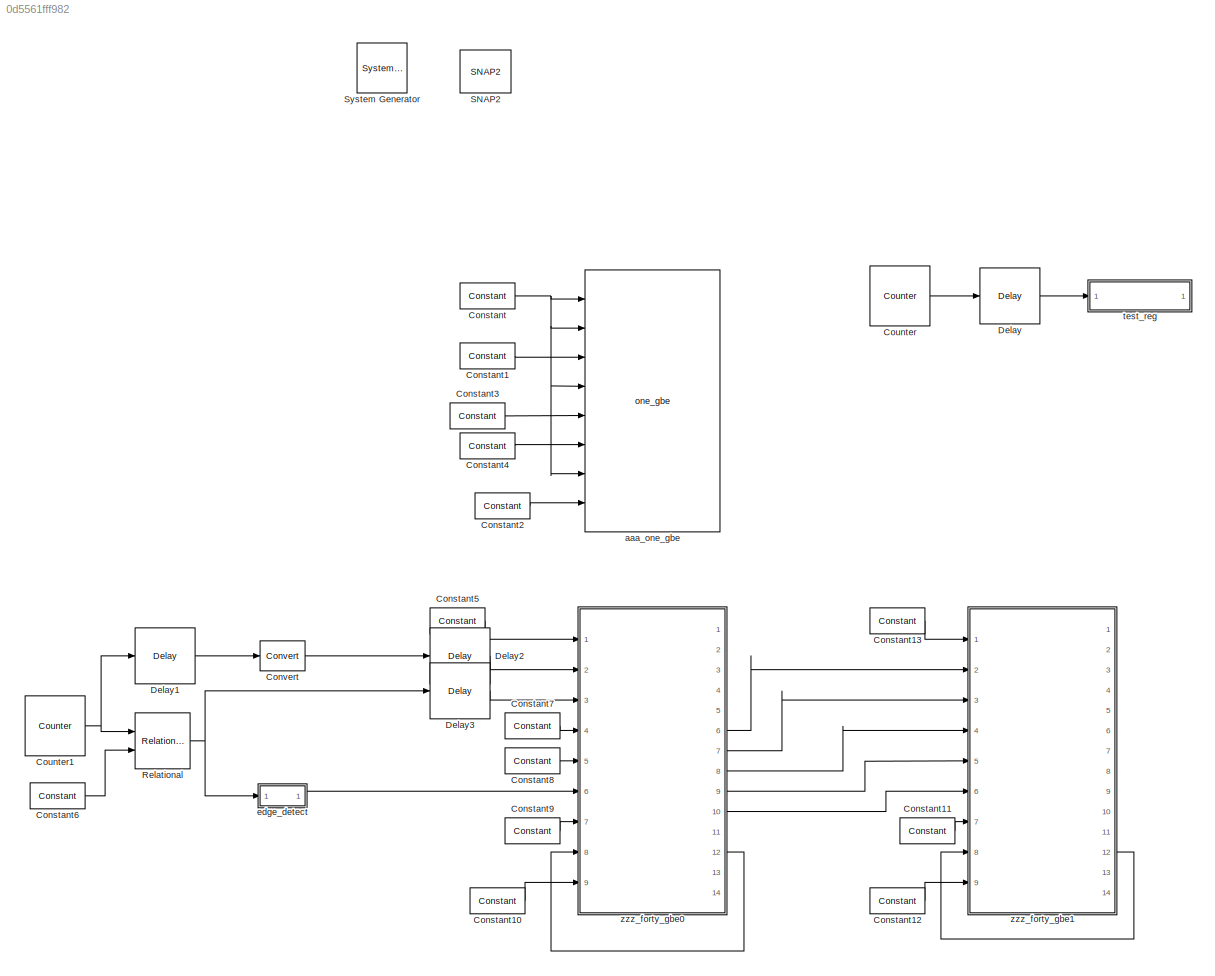
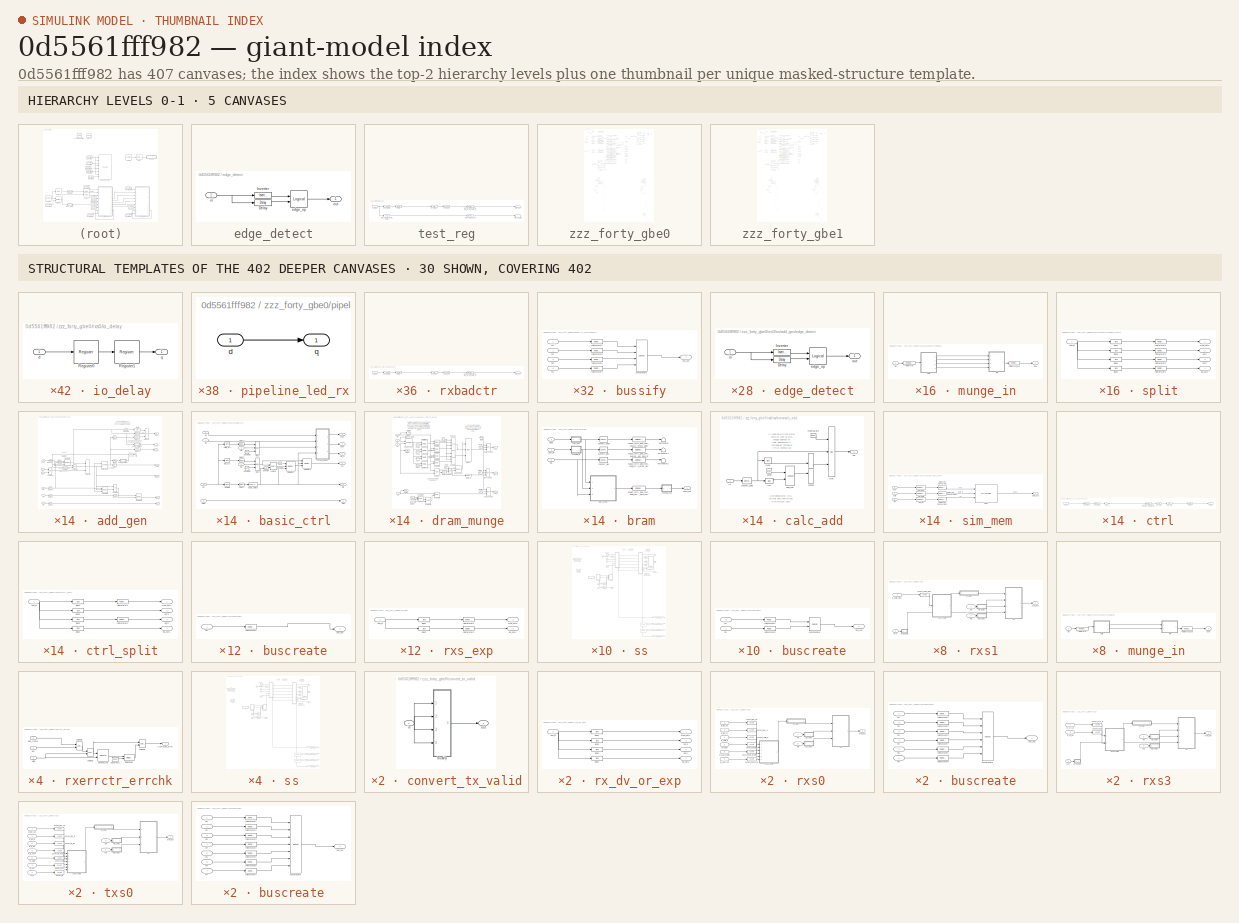
[diagram: thumbnail index - top-2 hierarchy levels (5 canvases) + 30 structural-template representatives of the remaining 402 canvases]
MODEL slx_0d5561fff982
KIND model
CONFIG AbsTol = auto
CONFIG EnableMultiTasking = off
CONFIG FixedStep = auto
CONFIG MaxStep = auto
CONFIG MinStep = auto
CONFIG RelTol = 1e-3
CONFIG SampleTimeConstraint = Unconstrained
CONFIG Solver = VariableStepDiscrete
CONFIG SolverName = VariableStepDiscrete
CONFIG StartTime = 0.0
CONFIG StopTime = 10.0
BLOCK [Reference]  System Generator  REF=xbsIndex_r4/ System Generator
  AttributesFormatString = System\nGenerator
  Ports = []
  SourceBlock = xbsIndex_r4/ System Generator
  SourceType = Xilinx System Generator Block
  Tag = genX
  UserDataPersistent = on
BLOCK [Reference] Constant  REF=xbsIndex_r4/Constant
  Ports = [0, 1]
  SourceBlock = xbsIndex_r4/Constant
  SourceType = Xilinx Constant Block Block
BLOCK [Reference] Constant1  REF=xbsIndex_r4/Constant
  Ports = [0, 1]
  SourceBlock = xbsIndex_r4/Constant
  SourceType = Xilinx Constant Block Block
BLOCK [Reference] Constant10  REF=xbsIndex_r4/Constant
  Ports = [0, 1]
  SourceBlock = xbsIndex_r4/Constant
  SourceType = Xilinx Constant Block Block
BLOCK [Reference] Constant11  REF=xbsIndex_r4/Constant
  Ports = [0, 1]
  SourceBlock = xbsIndex_r4/Constant
  SourceType = Xilinx Constant Block Block
BLOCK [Reference] Constant12  REF=xbsIndex_r4/Constant
  Ports = [0, 1]
  SourceBlock = xbsIndex_r4/Constant
  SourceType = Xilinx Constant Block Block
BLOCK [Reference] Constant13  REF=xbsIndex_r4/Constant
  Ports = [0, 1]
  SourceBlock = xbsIndex_r4/Constant
  SourceType = Xilinx Constant Block Block
BLOCK [Reference] Constant2  REF=xbsIndex_r4/Constant
  Ports = [0, 1]
  SourceBlock = xbsIndex_r4/Constant
  SourceType = Xilinx Constant Block Block
BLOCK [Reference] Constant3  REF=xbsIndex_r4/Constant
  Ports = [0, 1]
  SourceBlock = xbsIndex_r4/Constant
  SourceType = Xilinx Constant Block Block
BLOCK [Reference] Constant4  REF=xbsIndex_r4/Constant
  Ports = [0, 1]
  SourceBlock = xbsIndex_r4/Constant
  SourceType = Xilinx Constant Block Block
BLOCK [Reference] Constant5  REF=xbsIndex_r4/Constant
  Ports = [0, 1]
  SourceBlock = xbsIndex_r4/Constant
  SourceType = Xilinx Constant Block Block
BLOCK [Reference] Constant6  REF=xbsIndex_r4/Constant
  Ports = [0, 1]
  SourceBlock = xbsIndex_r4/Constant
  SourceType = Xilinx Constant Block Block
BLOCK [Reference] Constant7  REF=xbsIndex_r4/Constant
  Ports = [0, 1]
  SourceBlock = xbsIndex_r4/Constant
  SourceType = Xilinx Constant Block Block
BLOCK [Reference] Constant8  REF=xbsIndex_r4/Constant
  Ports = [0, 1]
  SourceBlock = xbsIndex_r4/Constant
  SourceType = Xilinx Constant Block Block
BLOCK [Reference] Constant9  REF=xbsIndex_r4/Constant
  Ports = [0, 1]
  SourceBlock = xbsIndex_r4/Constant
  SourceType = Xilinx Constant Block Block
BLOCK [Reference] Convert  REF=xbsIndex_r4/Convert
  Ports = [1, 1]
  SourceBlock = xbsIndex_r4/Convert
  SourceType = Xilinx Type Converter Block
BLOCK [Reference] Counter  REF=xbsIndex_r4/Counter
  Ports = [0, 1]
  SourceBlock = xbsIndex_r4/Counter
  SourceType = Xilinx Counter Block
BLOCK [Reference] Counter1  REF=xbsIndex_r4/Counter
  Ports = [0, 1]
  SourceBlock = xbsIndex_r4/Counter
  SourceType = Xilinx Counter Block
BLOCK [Reference] Delay  REF=xbsIndex_r4/Delay
  Ports = [1, 1]
  SourceBlock = xbsIndex_r4/Delay
  SourceType = Xilinx Delay Block
BLOCK [Reference] Delay1  REF=xbsIndex_r4/Delay
  Ports = [1, 1]
  SourceBlock = xbsIndex_r4/Delay
  SourceType = Xilinx Delay Block
BLOCK [Reference] Delay2  REF=xbsIndex_r4/Delay
  Ports = [1, 1]
  SourceBlock = xbsIndex_r4/Delay
  SourceType = Xilinx Delay Block
BLOCK [Reference] Delay3  REF=xbsIndex_r4/Delay
  Ports = [1, 1]
  SourceBlock = xbsIndex_r4/Delay
  SourceType = Xilinx Delay Block
BLOCK [Reference] Relational  REF=xbsIndex_r4/Relational
  Ports = [2, 1]
  SourceBlock = xbsIndex_r4/Relational
  SourceType = Xilinx Arithmetic Relational Operator Block
BLOCK [Reference] SNAP2  REF=xps_library/Platforms/SNAP2  (lib defined in mdl_00b5cec29cd0, mdl_02ab6ecaa3d1, +5 more)
  Ports = []
  SourceBlock = xps_library/Platforms/SNAP2
  SourceProductName = CASPER XPS Blockset
  SourceType = xsg core config
  Tag = xps:xsg
BLOCK [Reference] aaa_one_gbe  REF=xps_library/IO/one_gbe  (lib defined in mdl_00b5cec29cd0, mdl_02ab6ecaa3d1, +5 more)
  Ports = [8, 11]
  SourceBlock = xps_library/IO/one_gbe
  SourceProductName = CASPER XPS Blockset
  SourceType = one_GbE
  Tag = xps:onegbe
BLOCK [SubSystem] edge_detect
  AncestorBlock = casper_library_misc/edge_detect
  AttributesFormatString = falling edges\nactive high
  Ports = [1, 1]
  RequestExecContextInheritance = off
  UserDataPersistent = on
BLOCK [Reference] edge_detect/Delay  REF=xbsIndex_r4/Delay
  Ports = [1, 1]
  SourceBlock = xbsIndex_r4/Delay
  SourceType = Xilinx Delay Block
BLOCK [Reference] edge_detect/Inverter  REF=xbsIndex_r4/Inverter
  Ports = [1, 1]
  SourceBlock = xbsIndex_r4/Inverter
  SourceType = Xilinx Inverter Block
BLOCK [Reference] edge_detect/edge_op  REF=xbsIndex_r4/Logical
  Ports = [2, 1]
  SourceBlock = xbsIndex_r4/Logical
  SourceType = Xilinx Logical Block Block
BLOCK [Inport] edge_detect/in
  IconDisplay = Port number
BLOCK [Outport] edge_detect/out
  IconDisplay = Port number
BLOCK [SubSystem] test_reg
  AncestorBlock = xps_library/Memory/software_register
  AttributesFormatString = 1output:uf32.0 = 32 bits
  Ports = [1, 1]
  RequestExecContextInheritance = off
  Tag = xps:sw_reg
BLOCK [Reference] test_reg/assert_reg  REF=xbsIndex_r4/Assert
  Ports = [1, 1]
  SourceBlock = xbsIndex_r4/Assert
  SourceType = Xilinx Assert Block
BLOCK [Reference] test_reg/cast_gw  REF=xbsIndex_r4/Convert
  Ports = [1, 1]
  SourceBlock = xbsIndex_r4/Convert
  SourceType = Xilinx Type Converter Block
BLOCK [Reference] test_reg/io_delay  REF=xbsIndex_r4/Delay
  Ports = [1, 1]
  SourceBlock = xbsIndex_r4/Delay
  SourceType = Xilinx Delay Block
BLOCK [Inport] test_reg/out_reg
  IconDisplay = Port number
BLOCK [Reference] test_reg/reint1  REF=xbsIndex_r4/Reinterpret
  Ports = [1, 1]
  SourceBlock = xbsIndex_r4/Reinterpret
  SourceType = Xilinx Type Reinterpreter Block
BLOCK [Terminator] test_reg/sim_out
BLOCK [Outport] test_reg/sim_out_reg
  IconDisplay = Port number
BLOCK [Reference] test_reg/sim_out_reg_gw  REF=xbsIndex_r4/Gateway Out
  Ports = [1, 1]
  SourceBlock = xbsIndex_r4/Gateway Out
  SourceType = Xilinx Gateway Out Block
BLOCK [Reference] test_reg/sim_out_reg_sim_delay  REF=xbsIndex_r4/Delay
  Ports = [1, 1]
  SourceBlock = xbsIndex_r4/Delay
  SourceType = Xilinx Delay Block
BLOCK [Reference] test_reg/snap2_forty_gbe_test_dual_test_reg_user_data_in  REF=xbsIndex_r4/Gateway Out
  Ports = [1, 1]
  SourceBlock = xbsIndex_r4/Gateway Out
  SourceType = Xilinx Gateway Out Block
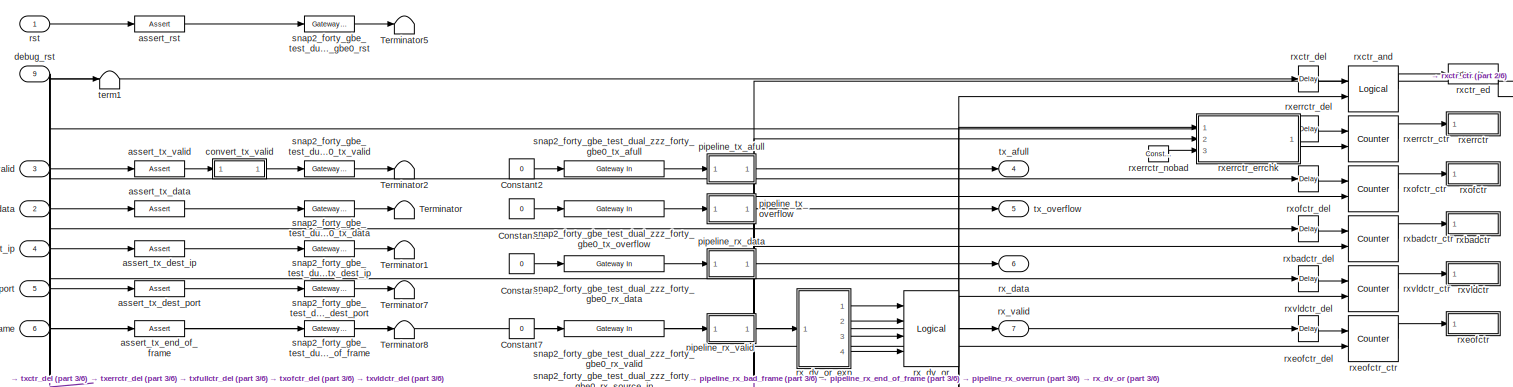
[diagram: zzz_forty_gbe0 - part 1/6, full width, top band]
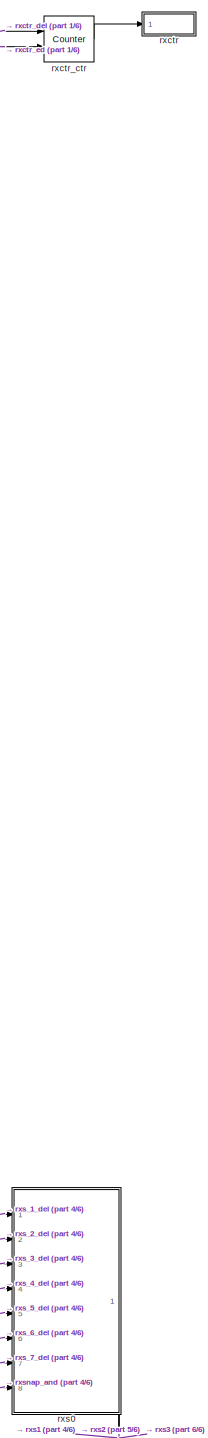
[diagram: zzz_forty_gbe0 - part 2/6, middle right region]
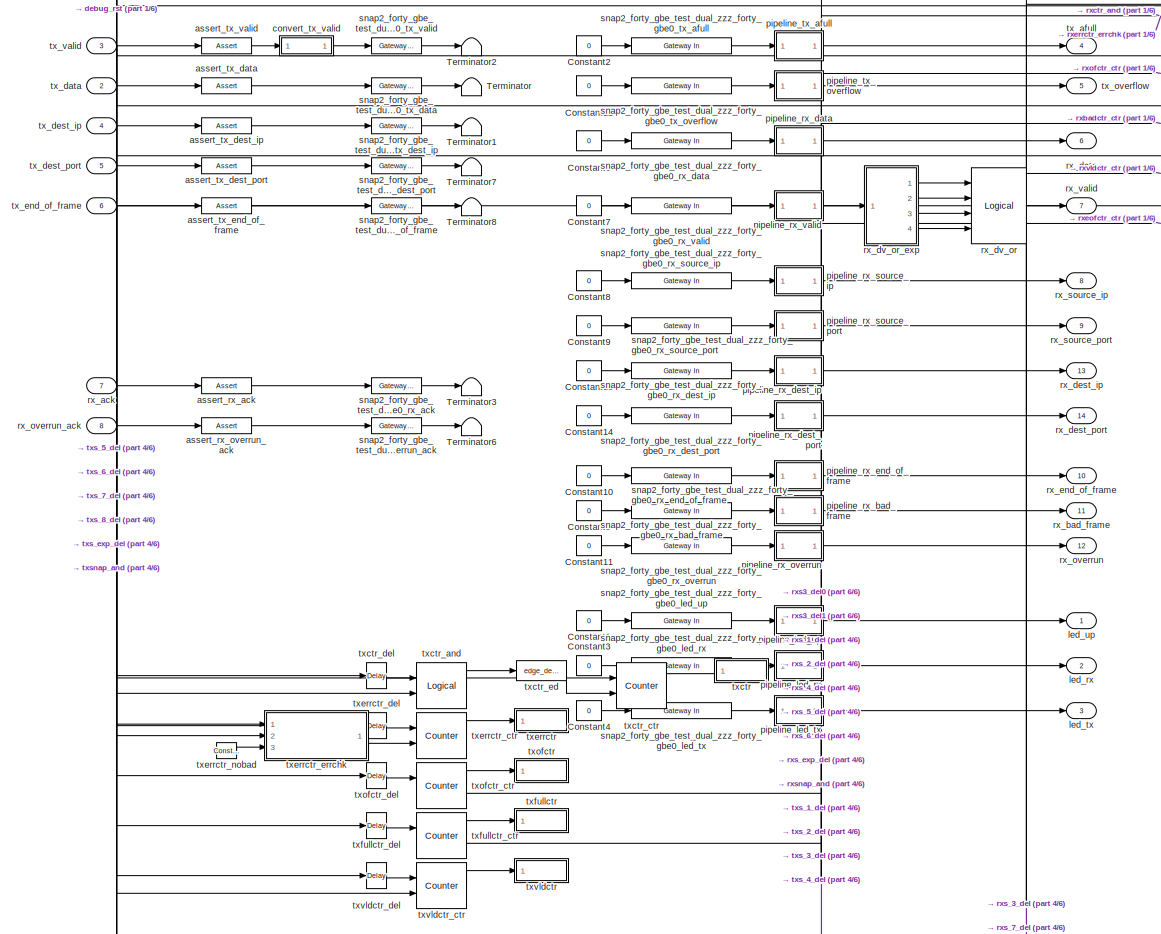
[diagram: zzz_forty_gbe0 - part 3/6, top left region]
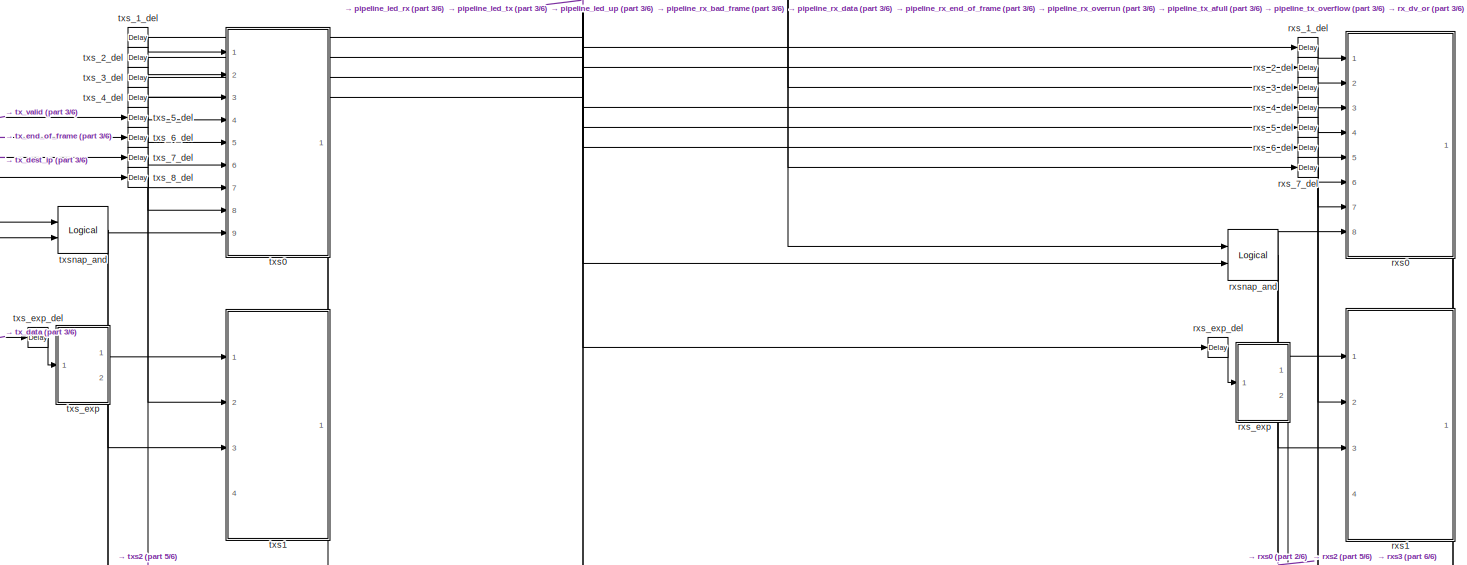
[diagram: zzz_forty_gbe0 - part 4/6, full width, middle band]
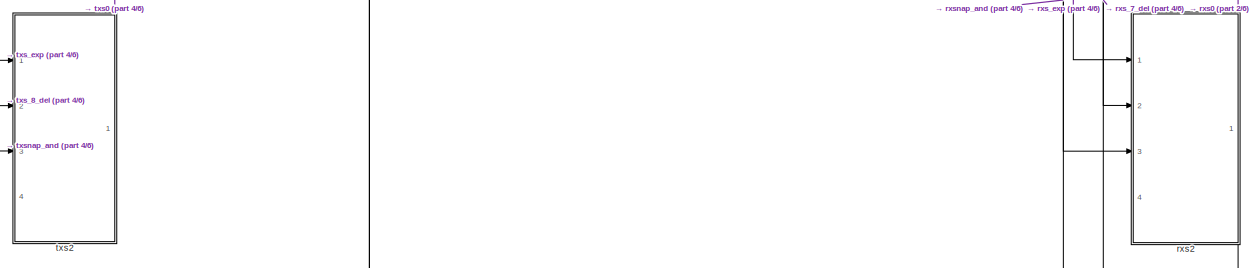
[diagram: zzz_forty_gbe0 - part 5/6, bottom center region]
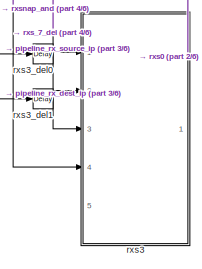
[diagram: zzz_forty_gbe0 - part 6/6, bottom right region]
BLOCK [SubSystem] zzz_forty_gbe0
  AncestorBlock = xps_library/IO/forty_gbe
  AttributesFormatString = incoming_latency=0
  Ports = [9, 14]
  RequestExecContextInheritance = off
  Tag = xps:forty_gbe
BLOCK [Constant] zzz_forty_gbe0/Constant1
  Value = 0
BLOCK [Constant] zzz_forty_gbe0/Constant10
  Value = 0
BLOCK [Constant] zzz_forty_gbe0/Constant11
  Value = 0
BLOCK [Constant] zzz_forty_gbe0/Constant12
  Value = 0
BLOCK [Constant] zzz_forty_gbe0/Constant13
  Value = 0
BLOCK [Constant] zzz_forty_gbe0/Constant14
  Value = 0
BLOCK [Constant] zzz_forty_gbe0/Constant2
  Value = 0
BLOCK [Constant] zzz_forty_gbe0/Constant3
  Value = 0
BLOCK [Constant] zzz_forty_gbe0/Constant4
  Value = 0
BLOCK [Constant] zzz_forty_gbe0/Constant5
  Value = 0
BLOCK [Constant] zzz_forty_gbe0/Constant6
  Value = 0
BLOCK [Constant] zzz_forty_gbe0/Constant7
  Value = 0
BLOCK [Constant] zzz_forty_gbe0/Constant8
  Value = 0
BLOCK [Constant] zzz_forty_gbe0/Constant9
  Value = 0
BLOCK [Terminator] zzz_forty_gbe0/Terminator
BLOCK [Terminator] zzz_forty_gbe0/Terminator1
BLOCK [Terminator] zzz_forty_gbe0/Terminator2
BLOCK [Terminator] zzz_forty_gbe0/Terminator3
BLOCK [Terminator] zzz_forty_gbe0/Terminator5
BLOCK [Terminator] zzz_forty_gbe0/Terminator6
BLOCK [Terminator] zzz_forty_gbe0/Terminator7
BLOCK [Terminator] zzz_forty_gbe0/Terminator8
BLOCK [Reference] zzz_forty_gbe0/assert_rst  REF=xbsIndex_r4/Assert
  Ports = [1, 1]
  SourceBlock = xbsIndex_r4/Assert
  SourceType = Xilinx Assert Block
BLOCK [Reference] zzz_forty_gbe0/assert_rx_ack  REF=xbsIndex_r4/Assert
  Ports = [1, 1]
  SourceBlock = xbsIndex_r4/Assert
  SourceType = Xilinx Assert Block
BLOCK [Reference] zzz_forty_gbe0/assert_rx_overrun_ack  REF=xbsIndex_r4/Assert
  Ports = [1, 1]
  SourceBlock = xbsIndex_r4/Assert
  SourceType = Xilinx Assert Block
BLOCK [Reference] zzz_forty_gbe0/assert_tx_data  REF=xbsIndex_r4/Assert
  Ports = [1, 1]
  SourceBlock = xbsIndex_r4/Assert
  SourceType = Xilinx Assert Block
BLOCK [Reference] zzz_forty_gbe0/assert_tx_dest_ip  REF=xbsIndex_r4/Assert
  Ports = [1, 1]
  SourceBlock = xbsIndex_r4/Assert
  SourceType = Xilinx Assert Block
BLOCK [Reference] zzz_forty_gbe0/assert_tx_dest_port  REF=xbsIndex_r4/Assert
  Ports = [1, 1]
  SourceBlock = xbsIndex_r4/Assert
  SourceType = Xilinx Assert Block
BLOCK [Reference] zzz_forty_gbe0/assert_tx_end_of_frame  REF=xbsIndex_r4/Assert
  Ports = [1, 1]
  SourceBlock = xbsIndex_r4/Assert
  SourceType = Xilinx Assert Block
BLOCK [Reference] zzz_forty_gbe0/assert_tx_valid  REF=xbsIndex_r4/Assert
  Ports = [1, 1]
  SourceBlock = xbsIndex_r4/Assert
  SourceType = Xilinx Assert Block
BLOCK [SubSystem] zzz_forty_gbe0/convert_tx_valid
  AncestorBlock = casper_library_bus/bus_replicate
  Ports = [1, 1]
  RequestExecContextInheritance = off
  UserDataPersistent = on
BLOCK [SubSystem] zzz_forty_gbe0/convert_tx_valid/bussify
  AncestorBlock = casper_library_flow_control/bus_create
  Ports = [4, 1]
  RequestExecContextInheritance = off
  UserDataPersistent = on
BLOCK [Outport] zzz_forty_gbe0/convert_tx_valid/bussify/bus_out
  IconDisplay = Port number
BLOCK [Reference] zzz_forty_gbe0/convert_tx_valid/bussify/concatenate  REF=xbsIndex_r4/Concat
  Ports = [4, 1]
  SourceBlock = xbsIndex_r4/Concat
  SourceType = Xilinx Bus Concatenator Block
BLOCK [Inport] zzz_forty_gbe0/convert_tx_valid/bussify/in1
  IconDisplay = Port number
BLOCK [Inport] zzz_forty_gbe0/convert_tx_valid/bussify/in2
  IconDisplay = Port number
  Port = 2
BLOCK [Inport] zzz_forty_gbe0/convert_tx_valid/bussify/in3
  IconDisplay = Port number
  Port = 3
BLOCK [Inport] zzz_forty_gbe0/convert_tx_valid/bussify/in4
  IconDisplay = Port number
  Port = 4
BLOCK [Reference] zzz_forty_gbe0/convert_tx_valid/bussify/reinterpret1  REF=xbsIndex_r4/Reinterpret
  Ports = [1, 1]
  SourceBlock = xbsIndex_r4/Reinterpret
  SourceType = Xilinx Type Reinterpreter Block
BLOCK [Reference] zzz_forty_gbe0/convert_tx_valid/bussify/reinterpret2  REF=xbsIndex_r4/Reinterpret
  Ports = [1, 1]
  SourceBlock = xbsIndex_r4/Reinterpret
  SourceType = Xilinx Type Reinterpreter Block
BLOCK [Reference] zzz_forty_gbe0/convert_tx_valid/bussify/reinterpret3  REF=xbsIndex_r4/Reinterpret
  Ports = [1, 1]
  SourceBlock = xbsIndex_r4/Reinterpret
  SourceType = Xilinx Type Reinterpreter Block
BLOCK [Reference] zzz_forty_gbe0/convert_tx_valid/bussify/reinterpret4  REF=xbsIndex_r4/Reinterpret
  Ports = [1, 1]
  SourceBlock = xbsIndex_r4/Reinterpret
  SourceType = Xilinx Type Reinterpreter Block
BLOCK [Inport] zzz_forty_gbe0/convert_tx_valid/in
  IconDisplay = Port number
BLOCK [Outport] zzz_forty_gbe0/convert_tx_valid/out
  IconDisplay = Port number
BLOCK [Inport] zzz_forty_gbe0/debug_rst
  IconDisplay = Port number
  Port = 9
BLOCK [Outport] zzz_forty_gbe0/led_rx
  IconDisplay = Port number
  Port = 2
BLOCK [Outport] zzz_forty_gbe0/led_tx
  IconDisplay = Port number
  Port = 3
BLOCK [Outport] zzz_forty_gbe0/led_up
  IconDisplay = Port number
BLOCK [SubSystem] zzz_forty_gbe0/pipeline_led_rx
  AncestorBlock = casper_library_delays/pipeline
  AttributesFormatString = Latency = %<latency>
  Ports = [1, 1]
  RequestExecContextInheritance = off
  UserDataPersistent = on
BLOCK [Inport] zzz_forty_gbe0/pipeline_led_rx/d
  IconDisplay = Port number
BLOCK [Outport] zzz_forty_gbe0/pipeline_led_rx/q
  IconDisplay = Port number
BLOCK [SubSystem] zzz_forty_gbe0/pipeline_led_tx
  AncestorBlock = casper_library_delays/pipeline
  AttributesFormatString = Latency = %<latency>
  Ports = [1, 1]
  RequestExecContextInheritance = off
  UserDataPersistent = on
BLOCK [Inport] zzz_forty_gbe0/pipeline_led_tx/d
  IconDisplay = Port number
BLOCK [Outport] zzz_forty_gbe0/pipeline_led_tx/q
  IconDisplay = Port number
BLOCK [SubSystem] zzz_forty_gbe0/pipeline_led_up
  AncestorBlock = casper_library_delays/pipeline
  AttributesFormatString = Latency = %<latency>
  Ports = [1, 1]
  RequestExecContextInheritance = off
  UserDataPersistent = on
BLOCK [Inport] zzz_forty_gbe0/pipeline_led_up/d
  IconDisplay = Port number
BLOCK [Outport] zzz_forty_gbe0/pipeline_led_up/q
  IconDisplay = Port number
BLOCK [SubSystem] zzz_forty_gbe0/pipeline_rx_bad_frame
  AncestorBlock = casper_library_delays/pipeline
  AttributesFormatString = Latency = %<latency>
  Ports = [1, 1]
  RequestExecContextInheritance = off
  UserDataPersistent = on
BLOCK [Inport] zzz_forty_gbe0/pipeline_rx_bad_frame/d
  IconDisplay = Port number
BLOCK [Outport] zzz_forty_gbe0/pipeline_rx_bad_frame/q
  IconDisplay = Port number
BLOCK [SubSystem] zzz_forty_gbe0/pipeline_rx_data
  AncestorBlock = casper_library_delays/pipeline
  AttributesFormatString = Latency = %<latency>
  Ports = [1, 1]
  RequestExecContextInheritance = off
  UserDataPersistent = on
BLOCK [Inport] zzz_forty_gbe0/pipeline_rx_data/d
  IconDisplay = Port number
BLOCK [Outport] zzz_forty_gbe0/pipeline_rx_data/q
  IconDisplay = Port number
BLOCK [SubSystem] zzz_forty_gbe0/pipeline_rx_dest_ip
  AncestorBlock = casper_library_delays/pipeline
  AttributesFormatString = Latency = %<latency>
  Ports = [1, 1]
  RequestExecContextInheritance = off
  UserDataPersistent = on
BLOCK [Inport] zzz_forty_gbe0/pipeline_rx_dest_ip/d
  IconDisplay = Port number
BLOCK [Outport] zzz_forty_gbe0/pipeline_rx_dest_ip/q
  IconDisplay = Port number
BLOCK [SubSystem] zzz_forty_gbe0/pipeline_rx_dest_port
  AncestorBlock = casper_library_delays/pipeline
  AttributesFormatString = Latency = %<latency>
  Ports = [1, 1]
  RequestExecContextInheritance = off
  UserDataPersistent = on
BLOCK [Inport] zzz_forty_gbe0/pipeline_rx_dest_port/d
  IconDisplay = Port number
BLOCK [Outport] zzz_forty_gbe0/pipeline_rx_dest_port/q
  IconDisplay = Port number
BLOCK [SubSystem] zzz_forty_gbe0/pipeline_rx_end_of_frame
  AncestorBlock = casper_library_delays/pipeline
  AttributesFormatString = Latency = %<latency>
  Ports = [1, 1]
  RequestExecContextInheritance = off
  UserDataPersistent = on
BLOCK [Inport] zzz_forty_gbe0/pipeline_rx_end_of_frame/d
  IconDisplay = Port number
BLOCK [Outport] zzz_forty_gbe0/pipeline_rx_end_of_frame/q
  IconDisplay = Port number
BLOCK [SubSystem] zzz_forty_gbe0/pipeline_rx_overrun
  AncestorBlock = casper_library_delays/pipeline
  AttributesFormatString = Latency = %<latency>
  Ports = [1, 1]
  RequestExecContextInheritance = off
  UserDataPersistent = on
BLOCK [Inport] zzz_forty_gbe0/pipeline_rx_overrun/d
  IconDisplay = Port number
BLOCK [Outport] zzz_forty_gbe0/pipeline_rx_overrun/q
  IconDisplay = Port number
BLOCK [SubSystem] zzz_forty_gbe0/pipeline_rx_source_ip
  AncestorBlock = casper_library_delays/pipeline
  AttributesFormatString = Latency = %<latency>
  Ports = [1, 1]
  RequestExecContextInheritance = off
  UserDataPersistent = on
BLOCK [Inport] zzz_forty_gbe0/pipeline_rx_source_ip/d
  IconDisplay = Port number
BLOCK [Outport] zzz_forty_gbe0/pipeline_rx_source_ip/q
  IconDisplay = Port number
BLOCK [SubSystem] zzz_forty_gbe0/pipeline_rx_source_port
  AncestorBlock = casper_library_delays/pipeline
  AttributesFormatString = Latency = %<latency>
  Ports = [1, 1]
  RequestExecContextInheritance = off
  UserDataPersistent = on
BLOCK [Inport] zzz_forty_gbe0/pipeline_rx_source_port/d
  IconDisplay = Port number
BLOCK [Outport] zzz_forty_gbe0/pipeline_rx_source_port/q
  IconDisplay = Port number
BLOCK [SubSystem] zzz_forty_gbe0/pipeline_rx_valid
  AncestorBlock = casper_library_delays/pipeline
  AttributesFormatString = Latency = %<latency>
  Ports = [1, 1]
  RequestExecContextInheritance = off
  UserDataPersistent = on
BLOCK [Inport] zzz_forty_gbe0/pipeline_rx_valid/d
  IconDisplay = Port number
BLOCK [Outport] zzz_forty_gbe0/pipeline_rx_valid/q
  IconDisplay = Port number
BLOCK [SubSystem] zzz_forty_gbe0/pipeline_tx_afull
  AncestorBlock = casper_library_delays/pipeline
  AttributesFormatString = Latency = %<latency>
  Ports = [1, 1]
  RequestExecContextInheritance = off
  UserDataPersistent = on
BLOCK [Inport] zzz_forty_gbe0/pipeline_tx_afull/d
  IconDisplay = Port number
BLOCK [Outport] zzz_forty_gbe0/pipeline_tx_afull/q
  IconDisplay = Port number
BLOCK [SubSystem] zzz_forty_gbe0/pipeline_tx_overflow
  AncestorBlock = casper_library_delays/pipeline
  AttributesFormatString = Latency = %<latency>
  Ports = [1, 1]
  RequestExecContextInheritance = off
  UserDataPersistent = on
BLOCK [Inport] zzz_forty_gbe0/pipeline_tx_overflow/d
  IconDisplay = Port number
BLOCK [Outport] zzz_forty_gbe0/pipeline_tx_overflow/q
  IconDisplay = Port number
BLOCK [Inport] zzz_forty_gbe0/rst
  IconDisplay = Port number
BLOCK [Inport] zzz_forty_gbe0/rx_ack
  IconDisplay = Port number
  Port = 7
BLOCK [Outport] zzz_forty_gbe0/rx_bad_frame
  IconDisplay = Port number
  Port = 11
BLOCK [Outport] zzz_forty_gbe0/rx_data
  IconDisplay = Port number
  Port = 6
BLOCK [Outport] zzz_forty_gbe0/rx_dest_ip
  IconDisplay = Port number
  Port = 13
BLOCK [Outport] zzz_forty_gbe0/rx_dest_port
  IconDisplay = Port number
  Port = 14
BLOCK [Reference] zzz_forty_gbe0/rx_dv_or  REF=xbsIndex_r4/Logical
  Ports = [4, 1]
  SourceBlock = xbsIndex_r4/Logical
  SourceType = Xilinx Logical Block Block
BLOCK [SubSystem] zzz_forty_gbe0/rx_dv_or_exp
  AncestorBlock = casper_library_flow_control/bus_expand
  AttributesFormatString = 4 outputs
  Ports = [1, 4]
  RequestExecContextInheritance = off
  UserDataPersistent = on
BLOCK [Inport] zzz_forty_gbe0/rx_dv_or_exp/bus_in
  IconDisplay = Port number
BLOCK [Outport] zzz_forty_gbe0/rx_dv_or_exp/lsb_out1
  IconDisplay = Port number
  Port = 4
BLOCK [Outport] zzz_forty_gbe0/rx_dv_or_exp/msb_out4
  IconDisplay = Port number
BLOCK [Outport] zzz_forty_gbe0/rx_dv_or_exp/out2
  IconDisplay = Port number
  Port = 3
BLOCK [Outport] zzz_forty_gbe0/rx_dv_or_exp/out3
  IconDisplay = Port number
  Port = 2
BLOCK [Reference] zzz_forty_gbe0/rx_dv_or_exp/slice1  REF=xbsIndex_r4/Slice
  Ports = [1, 1]
  SourceBlock = xbsIndex_r4/Slice
  SourceType = Xilinx Bit Slice Extractor Block
BLOCK [Reference] zzz_forty_gbe0/rx_dv_or_exp/slice2  REF=xbsIndex_r4/Slice
  Ports = [1, 1]
  SourceBlock = xbsIndex_r4/Slice
  SourceType = Xilinx Bit Slice Extractor Block
BLOCK [Reference] zzz_forty_gbe0/rx_dv_or_exp/slice3  REF=xbsIndex_r4/Slice
  Ports = [1, 1]
  SourceBlock = xbsIndex_r4/Slice
  SourceType = Xilinx Bit Slice Extractor Block
BLOCK [Reference] zzz_forty_gbe0/rx_dv_or_exp/slice4  REF=xbsIndex_r4/Slice
  Ports = [1, 1]
  SourceBlock = xbsIndex_r4/Slice
  SourceType = Xilinx Bit Slice Extractor Block
BLOCK [Outport] zzz_forty_gbe0/rx_end_of_frame
  IconDisplay = Port number
  Port = 10
BLOCK [Outport] zzz_forty_gbe0/rx_overrun
  IconDisplay = Port number
  Port = 12
BLOCK [Inport] zzz_forty_gbe0/rx_overrun_ack
  IconDisplay = Port number
  Port = 8
BLOCK [Outport] zzz_forty_gbe0/rx_source_ip
  IconDisplay = Port number
  Port = 8
BLOCK [Outport] zzz_forty_gbe0/rx_source_port
  IconDisplay = Port number
  Port = 9
BLOCK [Outport] zzz_forty_gbe0/rx_valid
  IconDisplay = Port number
  Port = 7
BLOCK [SubSystem] zzz_forty_gbe0/rxbadctr
  AncestorBlock = xps_library/Memory/software_register
  AttributesFormatString = 1output:uf16.0 = 16 bits
  Ports = [1]
  RequestExecContextInheritance = off
  Tag = xps:sw_reg
BLOCK [Reference] zzz_forty_gbe0/rxbadctr/assert_reg  REF=xbsIndex_r4/Assert
  Ports = [1, 1]
  SourceBlock = xbsIndex_r4/Assert
  SourceType = Xilinx Assert Block
BLOCK [Reference] zzz_forty_gbe0/rxbadctr/cast_gw  REF=xbsIndex_r4/Convert
  Ports = [1, 1]
  SourceBlock = xbsIndex_r4/Convert
  SourceType = Xilinx Type Converter Block
BLOCK [Reference] zzz_forty_gbe0/rxbadctr/io_delay  REF=xbsIndex_r4/Delay
  Ports = [1, 1]
  SourceBlock = xbsIndex_r4/Delay
  SourceType = Xilinx Delay Block
BLOCK [Inport] zzz_forty_gbe0/rxbadctr/out_reg
  IconDisplay = Port number
BLOCK [Reference] zzz_forty_gbe0/rxbadctr/reint1  REF=xbsIndex_r4/Reinterpret
  Ports = [1, 1]
  SourceBlock = xbsIndex_r4/Reinterpret
  SourceType = Xilinx Type Reinterpreter Block
BLOCK [Terminator] zzz_forty_gbe0/rxbadctr/sim_out
BLOCK [Reference] zzz_forty_gbe0/rxbadctr/snap2_forty_gbe_test_dual_zzz_forty_gbe0_rxbadctr_user_data_in  REF=xbsIndex_r4/Gateway Out
  Ports = [1, 1]
  SourceBlock = xbsIndex_r4/Gateway Out
  SourceType = Xilinx Gateway Out Block
BLOCK [Reference] zzz_forty_gbe0/rxbadctr_ctr  REF=xbsIndex_r4/Counter
  Ports = [2, 1]
  SourceBlock = xbsIndex_r4/Counter
  SourceType = Xilinx Counter Block
BLOCK [Reference] zzz_forty_gbe0/rxbadctr_del  REF=xbsIndex_r4/Delay
  Ports = [1, 1]
  SourceBlock = xbsIndex_r4/Delay
  SourceType = Xilinx Delay Block
BLOCK [SubSystem] zzz_forty_gbe0/rxctr
  AncestorBlock = xps_library/Memory/software_register
  AttributesFormatString = 1output:uf16.0 = 16 bits
  Ports = [1]
  RequestExecContextInheritance = off
  Tag = xps:sw_reg
BLOCK [Reference] zzz_forty_gbe0/rxctr/assert_reg  REF=xbsIndex_r4/Assert
  Ports = [1, 1]
  SourceBlock = xbsIndex_r4/Assert
  SourceType = Xilinx Assert Block
BLOCK [Reference] zzz_forty_gbe0/rxctr/cast_gw  REF=xbsIndex_r4/Convert
  Ports = [1, 1]
  SourceBlock = xbsIndex_r4/Convert
  SourceType = Xilinx Type Converter Block
BLOCK [Reference] zzz_forty_gbe0/rxctr/io_delay  REF=xbsIndex_r4/Delay
  Ports = [1, 1]
  SourceBlock = xbsIndex_r4/Delay
  SourceType = Xilinx Delay Block
BLOCK [Inport] zzz_forty_gbe0/rxctr/out_reg
  IconDisplay = Port number
BLOCK [Reference] zzz_forty_gbe0/rxctr/reint1  REF=xbsIndex_r4/Reinterpret
  Ports = [1, 1]
  SourceBlock = xbsIndex_r4/Reinterpret
  SourceType = Xilinx Type Reinterpreter Block
BLOCK [Terminator] zzz_forty_gbe0/rxctr/sim_out
BLOCK [Reference] zzz_forty_gbe0/rxctr/snap2_forty_gbe_test_dual_zzz_forty_gbe0_rxctr_user_data_in  REF=xbsIndex_r4/Gateway Out
  Ports = [1, 1]
  SourceBlock = xbsIndex_r4/Gateway Out
  SourceType = Xilinx Gateway Out Block
BLOCK [Reference] zzz_forty_gbe0/rxctr_and  REF=xbsIndex_r4/Logical
  Ports = [2, 1]
  SourceBlock = xbsIndex_r4/Logical
  SourceType = Xilinx Logical Block Block
BLOCK [Reference] zzz_forty_gbe0/rxctr_ctr  REF=xbsIndex_r4/Counter
  Ports = [2, 1]
  SourceBlock = xbsIndex_r4/Counter
  SourceType = Xilinx Counter Block
BLOCK [Reference] zzz_forty_gbe0/rxctr_del  REF=xbsIndex_r4/Delay
  Ports = [1, 1]
  SourceBlock = xbsIndex_r4/Delay
  SourceType = Xilinx Delay Block
BLOCK [Reference] zzz_forty_gbe0/rxctr_ed  REF=casper_library_misc/edge_detect  (lib defined in mdl_357510c33b49, mdl_57b5f564ae26, +4 more)
  AttributesFormatString = rising edges\nactive high
  Ports = [1, 1]
  SourceBlock = casper_library_misc/edge_detect
  SourceProductName = CASPER DSP Blockset
  SourceType = edge_detect
  UserDataPersistent = on
BLOCK [SubSystem] zzz_forty_gbe0/rxeofctr
  AncestorBlock = xps_library/Memory/software_register
  AttributesFormatString = 1output:uf16.0 = 16 bits
  Ports = [1]
  RequestExecContextInheritance = off
  Tag = xps:sw_reg
BLOCK [Reference] zzz_forty_gbe0/rxeofctr/assert_reg  REF=xbsIndex_r4/Assert
  Ports = [1, 1]
  SourceBlock = xbsIndex_r4/Assert
  SourceType = Xilinx Assert Block
BLOCK [Reference] zzz_forty_gbe0/rxeofctr/cast_gw  REF=xbsIndex_r4/Convert
  Ports = [1, 1]
  SourceBlock = xbsIndex_r4/Convert
  SourceType = Xilinx Type Converter Block
BLOCK [Reference] zzz_forty_gbe0/rxeofctr/io_delay  REF=xbsIndex_r4/Delay
  Ports = [1, 1]
  SourceBlock = xbsIndex_r4/Delay
  SourceType = Xilinx Delay Block
BLOCK [Inport] zzz_forty_gbe0/rxeofctr/out_reg
  IconDisplay = Port number
BLOCK [Reference] zzz_forty_gbe0/rxeofctr/reint1  REF=xbsIndex_r4/Reinterpret
  Ports = [1, 1]
  SourceBlock = xbsIndex_r4/Reinterpret
  SourceType = Xilinx Type Reinterpreter Block
BLOCK [Terminator] zzz_forty_gbe0/rxeofctr/sim_out
BLOCK [Reference] zzz_forty_gbe0/rxeofctr/snap2_forty_gbe_test_dual_zzz_forty_gbe0_rxeofctr_user_data_in  REF=xbsIndex_r4/Gateway Out
  Ports = [1, 1]
  SourceBlock = xbsIndex_r4/Gateway Out
  SourceType = Xilinx Gateway Out Block
BLOCK [Reference] zzz_forty_gbe0/rxeofctr_ctr  REF=xbsIndex_r4/Counter
  Ports = [2, 1]
  SourceBlock = xbsIndex_r4/Counter
  SourceType = Xilinx Counter Block
BLOCK [Reference] zzz_forty_gbe0/rxeofctr_del  REF=xbsIndex_r4/Delay
  Ports = [1, 1]
  SourceBlock = xbsIndex_r4/Delay
  SourceType = Xilinx Delay Block
BLOCK [SubSystem] zzz_forty_gbe0/rxerrctr
  AncestorBlock = xps_library/Memory/software_register
  AttributesFormatString = 1output:uf16.0 = 16 bits
  Ports = [1]
  RequestExecContextInheritance = off
  Tag = xps:sw_reg
BLOCK [Reference] zzz_forty_gbe0/rxerrctr/assert_reg  REF=xbsIndex_r4/Assert
  Ports = [1, 1]
  SourceBlock = xbsIndex_r4/Assert
  SourceType = Xilinx Assert Block
BLOCK [Reference] zzz_forty_gbe0/rxerrctr/cast_gw  REF=xbsIndex_r4/Convert
  Ports = [1, 1]
  SourceBlock = xbsIndex_r4/Convert
  SourceType = Xilinx Type Converter Block
BLOCK [Reference] zzz_forty_gbe0/rxerrctr/io_delay  REF=xbsIndex_r4/Delay
  Ports = [1, 1]
  SourceBlock = xbsIndex_r4/Delay
  SourceType = Xilinx Delay Block
BLOCK [Inport] zzz_forty_gbe0/rxerrctr/out_reg
  IconDisplay = Port number
BLOCK [Reference] zzz_forty_gbe0/rxerrctr/reint1  REF=xbsIndex_r4/Reinterpret
  Ports = [1, 1]
  SourceBlock = xbsIndex_r4/Reinterpret
  SourceType = Xilinx Type Reinterpreter Block
BLOCK [Terminator] zzz_forty_gbe0/rxerrctr/sim_out
BLOCK [Reference] zzz_forty_gbe0/rxerrctr/snap2_forty_gbe_test_dual_zzz_forty_gbe0_rxerrctr_user_data_in  REF=xbsIndex_r4/Gateway Out
  Ports = [1, 1]
  SourceBlock = xbsIndex_r4/Gateway Out
  SourceType = Xilinx Gateway Out Block
BLOCK [Reference] zzz_forty_gbe0/rxerrctr_ctr  REF=xbsIndex_r4/Counter
  Ports = [2, 1]
  SourceBlock = xbsIndex_r4/Counter
  SourceType = Xilinx Counter Block
BLOCK [Reference] zzz_forty_gbe0/rxerrctr_del  REF=xbsIndex_r4/Delay
  Ports = [1, 1]
  SourceBlock = xbsIndex_r4/Delay
  SourceType = Xilinx Delay Block
BLOCK [SubSystem] zzz_forty_gbe0/rxerrctr_errchk
  AncestorBlock = casper_library_communications/frame_len_checker
  Ports = [3, 1]
  RequestExecContextInheritance = off
  Tag = casper:frame_len_checker
BLOCK [Reference] zzz_forty_gbe0/rxerrctr_errchk/Constant2  REF=xbsIndex_r4/Constant
  Ports = [0, 1]
  SourceBlock = xbsIndex_r4/Constant
  SourceType = Xilinx Constant Block Block
BLOCK [Reference] zzz_forty_gbe0/rxerrctr_errchk/Logical1  REF=xbsIndex_r4/Logical
  Ports = [2, 1]
  SourceBlock = xbsIndex_r4/Logical
  SourceType = Xilinx Logical Block Block
BLOCK [Reference] zzz_forty_gbe0/rxerrctr_errchk/Logical5  REF=xbsIndex_r4/Logical
  Ports = [2, 1]
  SourceBlock = xbsIndex_r4/Logical
  SourceType = Xilinx Logical Block Block
BLOCK [Reference] zzz_forty_gbe0/rxerrctr_errchk/Logical6  REF=xbsIndex_r4/Logical
  Ports = [2, 1]
  SourceBlock = xbsIndex_r4/Logical
  SourceType = Xilinx Logical Block Block
BLOCK [Reference] zzz_forty_gbe0/rxerrctr_errchk/Relational1  REF=xbsIndex_r4/Relational
  Ports = [2, 1]
  SourceBlock = xbsIndex_r4/Relational
  SourceType = Xilinx Arithmetic Relational Operator Block
BLOCK [Inport] zzz_forty_gbe0/rxerrctr_errchk/bad_frame
  IconDisplay = Port number
  Port = 3
BLOCK [Inport] zzz_forty_gbe0/rxerrctr_errchk/eof
  IconDisplay = Port number
  Port = 2
BLOCK [Outport] zzz_forty_gbe0/rxerrctr_errchk/frame_len_error
  IconDisplay = Port number
BLOCK [Reference] zzz_forty_gbe0/rxerrctr_errchk/payload_cnt  REF=xbsIndex_r4/Counter
  Ports = [2, 1]
  SourceBlock = xbsIndex_r4/Counter
  SourceType = Xilinx Counter Block
BLOCK [Inport] zzz_forty_gbe0/rxerrctr_errchk/valid
  IconDisplay = Port number
BLOCK [Reference] zzz_forty_gbe0/rxerrctr_nobad  REF=xbsIndex_r4/Constant
  Ports = [0, 1]
  SourceBlock = xbsIndex_r4/Constant
  SourceType = Xilinx Constant Block Block
BLOCK [SubSystem] zzz_forty_gbe0/rxofctr
  AncestorBlock = xps_library/Memory/software_register
  AttributesFormatString = 1output:uf16.0 = 16 bits
  Ports = [1]
  RequestExecContextInheritance = off
  Tag = xps:sw_reg
BLOCK [Reference] zzz_forty_gbe0/rxofctr/assert_reg  REF=xbsIndex_r4/Assert
  Ports = [1, 1]
  SourceBlock = xbsIndex_r4/Assert
  SourceType = Xilinx Assert Block
BLOCK [Reference] zzz_forty_gbe0/rxofctr/cast_gw  REF=xbsIndex_r4/Convert
  Ports = [1, 1]
  SourceBlock = xbsIndex_r4/Convert
  SourceType = Xilinx Type Converter Block
BLOCK [Reference] zzz_forty_gbe0/rxofctr/io_delay  REF=xbsIndex_r4/Delay
  Ports = [1, 1]
  SourceBlock = xbsIndex_r4/Delay
  SourceType = Xilinx Delay Block
BLOCK [Inport] zzz_forty_gbe0/rxofctr/out_reg
  IconDisplay = Port number
BLOCK [Reference] zzz_forty_gbe0/rxofctr/reint1  REF=xbsIndex_r4/Reinterpret
  Ports = [1, 1]
  SourceBlock = xbsIndex_r4/Reinterpret
  SourceType = Xilinx Type Reinterpreter Block
BLOCK [Terminator] zzz_forty_gbe0/rxofctr/sim_out
BLOCK [Reference] zzz_forty_gbe0/rxofctr/snap2_forty_gbe_test_dual_zzz_forty_gbe0_rxofctr_user_data_in  REF=xbsIndex_r4/Gateway Out
  Ports = [1, 1]
  SourceBlock = xbsIndex_r4/Gateway Out
  SourceType = Xilinx Gateway Out Block
BLOCK [Reference] zzz_forty_gbe0/rxofctr_ctr  REF=xbsIndex_r4/Counter
  Ports = [2, 1]
  SourceBlock = xbsIndex_r4/Counter
  SourceType = Xilinx Counter Block
BLOCK [Reference] zzz_forty_gbe0/rxofctr_del  REF=xbsIndex_r4/Delay
  Ports = [1, 1]
  SourceBlock = xbsIndex_r4/Delay
  SourceType = Xilinx Delay Block
BLOCK [SubSystem] zzz_forty_gbe0/rxs0
  AncestorBlock = casper_library_scopes/bitfield_snapshot
  AttributesFormatString = snap(6):b,b,b,b,b,b = 6 bits\n8 wide, 1024 deep\ndebugID: 89280782
  Ports = [8, 1]
  RequestExecContextInheritance = off
  Tag = casper:bitsnap
  UserDataPersistent = on
BLOCK [Outport] zzz_forty_gbe0/rxs0/arm_out
  IconDisplay = Port number
BLOCK [Reference] zzz_forty_gbe0/rxs0/assert_bad_frame  REF=xbsIndex_r4/Assert
  Ports = [1, 1]
  SourceBlock = xbsIndex_r4/Assert
  SourceType = Xilinx Assert Block
BLOCK [Reference] zzz_forty_gbe0/rxs0/assert_eof_in  REF=xbsIndex_r4/Assert
  Ports = [1, 1]
  SourceBlock = xbsIndex_r4/Assert
  SourceType = Xilinx Assert Block
BLOCK [Reference] zzz_forty_gbe0/rxs0/assert_led_rx  REF=xbsIndex_r4/Assert
  Ports = [1, 1]
  SourceBlock = xbsIndex_r4/Assert
  SourceType = Xilinx Assert Block
BLOCK [Reference] zzz_forty_gbe0/rxs0/assert_led_up  REF=xbsIndex_r4/Assert
  Ports = [1, 1]
  SourceBlock = xbsIndex_r4/Assert
  SourceType = Xilinx Assert Block
BLOCK [Reference] zzz_forty_gbe0/rxs0/assert_overrun  REF=xbsIndex_r4/Assert
  Ports = [1, 1]
  SourceBlock = xbsIndex_r4/Assert
  SourceType = Xilinx Assert Block
BLOCK [Reference] zzz_forty_gbe0/rxs0/assert_valid_in  REF=xbsIndex_r4/Assert
  Ports = [1, 1]
  SourceBlock = xbsIndex_r4/Assert
  SourceType = Xilinx Assert Block
BLOCK [SubSystem] zzz_forty_gbe0/rxs0/buscreate
  AncestorBlock = casper_library_flow_control/bus_create
  Ports = [6, 1]
  RequestExecContextInheritance = off
  UserDataPersistent = on
BLOCK [Outport] zzz_forty_gbe0/rxs0/buscreate/bus_out
  IconDisplay = Port number
BLOCK [Reference] zzz_forty_gbe0/rxs0/buscreate/concatenate  REF=xbsIndex_r4/Concat
  Ports = [6, 1]
  SourceBlock = xbsIndex_r4/Concat
  SourceType = Xilinx Bus Concatenator Block
BLOCK [Inport] zzz_forty_gbe0/rxs0/buscreate/in1
  IconDisplay = Port number
BLOCK [Inport] zzz_forty_gbe0/rxs0/buscreate/in2
  IconDisplay = Port number
  Port = 2
BLOCK [Inport] zzz_forty_gbe0/rxs0/buscreate/in3
  IconDisplay = Port number
  Port = 3
BLOCK [Inport] zzz_forty_gbe0/rxs0/buscreate/in4
  IconDisplay = Port number
  Port = 4
BLOCK [Inport] zzz_forty_gbe0/rxs0/buscreate/in5
  IconDisplay = Port number
  Port = 5
BLOCK [Inport] zzz_forty_gbe0/rxs0/buscreate/in6
  IconDisplay = Port number
  Port = 6
BLOCK [Reference] zzz_forty_gbe0/rxs0/buscreate/reinterpret1  REF=xbsIndex_r4/Reinterpret
  Ports = [1, 1]
  SourceBlock = xbsIndex_r4/Reinterpret
  SourceType = Xilinx Type Reinterpreter Block
BLOCK [Reference] zzz_forty_gbe0/rxs0/buscreate/reinterpret2  REF=xbsIndex_r4/Reinterpret
  Ports = [1, 1]
  SourceBlock = xbsIndex_r4/Reinterpret
  SourceType = Xilinx Type Reinterpreter Block
BLOCK [Reference] zzz_forty_gbe0/rxs0/buscreate/reinterpret3  REF=xbsIndex_r4/Reinterpret
  Ports = [1, 1]
  SourceBlock = xbsIndex_r4/Reinterpret
  SourceType = Xilinx Type Reinterpreter Block
BLOCK [Reference] zzz_forty_gbe0/rxs0/buscreate/reinterpret4  REF=xbsIndex_r4/Reinterpret
  Ports = [1, 1]
  SourceBlock = xbsIndex_r4/Reinterpret
  SourceType = Xilinx Type Reinterpreter Block
BLOCK [Reference] zzz_forty_gbe0/rxs0/buscreate/reinterpret5  REF=xbsIndex_r4/Reinterpret
  Ports = [1, 1]
  SourceBlock = xbsIndex_r4/Reinterpret
  SourceType = Xilinx Type Reinterpreter Block
BLOCK [Reference] zzz_forty_gbe0/rxs0/buscreate/reinterpret6  REF=xbsIndex_r4/Reinterpret
  Ports = [1, 1]
  SourceBlock = xbsIndex_r4/Reinterpret
  SourceType = Xilinx Type Reinterpreter Block
BLOCK [Inport] zzz_forty_gbe0/rxs0/in_bad_frame
  IconDisplay = Port number
  Port = 5
BLOCK [Inport] zzz_forty_gbe0/rxs0/in_eof_in
  IconDisplay = Port number
  Port = 4
BLOCK [Inport] zzz_forty_gbe0/rxs0/in_led_rx
  IconDisplay = Port number
  Port = 2
BLOCK [Inport] zzz_forty_gbe0/rxs0/in_led_up
  IconDisplay = Port number
BLOCK [Inport] zzz_forty_gbe0/rxs0/in_overrun
  IconDisplay = Port number
  Port = 6
BLOCK [Inport] zzz_forty_gbe0/rxs0/in_valid_in
  IconDisplay = Port number
  Port = 3
BLOCK [SubSystem] zzz_forty_gbe0/rxs0/io_delay
  AncestorBlock = casper_library_delays/pipeline
  AttributesFormatString = Latency = %<latency>
  Ports = [1, 1]
  RequestExecContextInheritance = off
  UserDataPersistent = on
BLOCK [Reference] zzz_forty_gbe0/rxs0/io_delay/Register0  REF=xbsIndex_r4/Register
  Ports = [1, 1]
  SourceBlock = xbsIndex_r4/Register
  SourceType = Xilinx Register Block
BLOCK [Reference] zzz_forty_gbe0/rxs0/io_delay/Register1  REF=xbsIndex_r4/Register
  Ports = [1, 1]
  SourceBlock = xbsIndex_r4/Register
  SourceType = Xilinx Register Block
BLOCK [Inport] zzz_forty_gbe0/rxs0/io_delay/d
  IconDisplay = Port number
BLOCK [Outport] zzz_forty_gbe0/rxs0/io_delay/q
  IconDisplay = Port number
BLOCK [SubSystem] zzz_forty_gbe0/rxs0/ss
  AncestorBlock = casper_library_scopes/snapshot
  AttributesFormatString = 8 wide, 1024 deep\ndebugID: 106264206
  Ports = [3, 1]
  RequestExecContextInheritance = off
  Tag = casper:snapshot
  UserDataPersistent = on
BLOCK [Reference] zzz_forty_gbe0/rxs0/ss/add_del  REF=xbsIndex_r4/Delay
  Ports = [1, 1]
  SourceBlock = xbsIndex_r4/Delay
  SourceType = Xilinx Delay Block
BLOCK [SubSystem] zzz_forty_gbe0/rxs0/ss/add_gen
  AncestorBlock = casper_library_scopes/snapshot/add_gen
  Ports = [6, 7]
  RequestExecContextInheritance = off
BLOCK [Reference] zzz_forty_gbe0/rxs0/ss/add_gen/Concat  REF=xbsIndex_r4/Concat
  Ports = [3, 1]
  SourceBlock = xbsIndex_r4/Concat
  SourceType = Xilinx Bus Concatenator Block
BLOCK [Reference] zzz_forty_gbe0/rxs0/ss/add_gen/Convert  REF=xbsIndex_r4/Convert
  Ports = [1, 1]
  SourceBlock = xbsIndex_r4/Convert
  SourceType = Xilinx Type Converter Block
BLOCK [Reference] zzz_forty_gbe0/rxs0/ss/add_gen/Delay  REF=xbsIndex_r4/Delay
  Ports = [1, 1]
  SourceBlock = xbsIndex_r4/Delay
  SourceType = Xilinx Delay Block
BLOCK [Reference] zzz_forty_gbe0/rxs0/ss/add_gen/Delay1  REF=xbsIndex_r4/Delay
  Ports = [1, 1]
  SourceBlock = xbsIndex_r4/Delay
  SourceType = Xilinx Delay Block
BLOCK [Reference] zzz_forty_gbe0/rxs0/ss/add_gen/Delay2  REF=xbsIndex_r4/Delay
  Ports = [1, 1]
  SourceBlock = xbsIndex_r4/Delay
  SourceType = Xilinx Delay Block
BLOCK [Reference] zzz_forty_gbe0/rxs0/ss/add_gen/Delay3  REF=xbsIndex_r4/Delay
  Ports = [1, 1]
  SourceBlock = xbsIndex_r4/Delay
  SourceType = Xilinx Delay Block
BLOCK [Reference] zzz_forty_gbe0/rxs0/ss/add_gen/Delay4  REF=xbsIndex_r4/Delay
  Ports = [1, 1]
  SourceBlock = xbsIndex_r4/Delay
  SourceType = Xilinx Delay Block
BLOCK [Reference] zzz_forty_gbe0/rxs0/ss/add_gen/Delay5  REF=xbsIndex_r4/Delay
  Ports = [1, 1]
  SourceBlock = xbsIndex_r4/Delay
  SourceType = Xilinx Delay Block
BLOCK [Reference] zzz_forty_gbe0/rxs0/ss/add_gen/Delay6  REF=xbsIndex_r4/Delay
  Ports = [1, 1]
  SourceBlock = xbsIndex_r4/Delay
  SourceType = Xilinx Delay Block
BLOCK [Reference] zzz_forty_gbe0/rxs0/ss/add_gen/Delay7  REF=xbsIndex_r4/Delay
  Ports = [1, 1]
  SourceBlock = xbsIndex_r4/Delay
  SourceType = Xilinx Delay Block
BLOCK [Reference] zzz_forty_gbe0/rxs0/ss/add_gen/Inverter  REF=xbsIndex_r4/Inverter
  Ports = [1, 1]
  SourceBlock = xbsIndex_r4/Inverter
  SourceType = Xilinx Inverter Block
BLOCK [Reference] zzz_forty_gbe0/rxs0/ss/add_gen/Inverter1  REF=xbsIndex_r4/Inverter
  Ports = [1, 1]
  SourceBlock = xbsIndex_r4/Inverter
  SourceType = Xilinx Inverter Block
BLOCK [Reference] zzz_forty_gbe0/rxs0/ss/add_gen/Logical1  REF=xbsIndex_r4/Logical
  Ports = [2, 1]
  SourceBlock = xbsIndex_r4/Logical
  SourceType = Xilinx Logical Block Block
BLOCK [Reference] zzz_forty_gbe0/rxs0/ss/add_gen/Logical2  REF=xbsIndex_r4/Logical
  Ports = [2, 1]
  SourceBlock = xbsIndex_r4/Logical
  SourceType = Xilinx Logical Block Block
BLOCK [Reference] zzz_forty_gbe0/rxs0/ss/add_gen/Logical4  REF=xbsIndex_r4/Logical
  Ports = [2, 1]
  SourceBlock = xbsIndex_r4/Logical
  SourceType = Xilinx Logical Block Block
BLOCK [Reference] zzz_forty_gbe0/rxs0/ss/add_gen/Logical6  REF=xbsIndex_r4/Logical
  Ports = [3, 1]
  SourceBlock = xbsIndex_r4/Logical
  SourceType = Xilinx Logical Block Block
BLOCK [Reference] zzz_forty_gbe0/rxs0/ss/add_gen/Register3  REF=xbsIndex_r4/Register
  Ports = [3, 1]
  SourceBlock = xbsIndex_r4/Register
  SourceType = Xilinx Register Block
BLOCK [Reference] zzz_forty_gbe0/rxs0/ss/add_gen/Register4  REF=xbsIndex_r4/Register
  Ports = [2, 1]
  SourceBlock = xbsIndex_r4/Register
  SourceType = Xilinx Register Block
BLOCK [Reference] zzz_forty_gbe0/rxs0/ss/add_gen/Register5  REF=xbsIndex_r4/Register
  Ports = [3, 1]
  SourceBlock = xbsIndex_r4/Register
  SourceType = Xilinx Register Block
BLOCK [Reference] zzz_forty_gbe0/rxs0/ss/add_gen/Shift  REF=xbsIndex_r4/Shift
  Ports = [1, 1]
  SourceBlock = xbsIndex_r4/Shift
  SourceType = Xilinx Binary Shift Operator Block
BLOCK [Outport] zzz_forty_gbe0/rxs0/ss/add_gen/add
  IconDisplay = Port number
  Port = 2
BLOCK [Reference] zzz_forty_gbe0/rxs0/ss/add_gen/add_gen  REF=xbsIndex_r4/Counter
  Ports = [2, 1]
  SourceBlock = xbsIndex_r4/Counter
  SourceType = Xilinx Counter Block
BLOCK [Inport] zzz_forty_gbe0/rxs0/ss/add_gen/cont
  IconDisplay = Port number
  Port = 5
BLOCK [Inport] zzz_forty_gbe0/rxs0/ss/add_gen/din
  IconDisplay = Port number
  Port = 2
BLOCK [Outport] zzz_forty_gbe0/rxs0/ss/add_gen/done
  IconDisplay = Port number
  Port = 7
BLOCK [Outport] zzz_forty_gbe0/rxs0/ss/add_gen/dout
  IconDisplay = Port number
  Port = 3
BLOCK [SubSystem] zzz_forty_gbe0/rxs0/ss/add_gen/edge_detect
  AncestorBlock = casper_library_misc/edge_detect
  AttributesFormatString = both edges\nactive high
  Ports = [1, 1]
  RequestExecContextInheritance = off
  UserDataPersistent = on
BLOCK [Reference] zzz_forty_gbe0/rxs0/ss/add_gen/edge_detect/Delay  REF=xbsIndex_r4/Delay
  Ports = [1, 1]
  SourceBlock = xbsIndex_r4/Delay
  SourceType = Xilinx Delay Block
BLOCK [Reference] zzz_forty_gbe0/rxs0/ss/add_gen/edge_detect/Inverter  REF=xbsIndex_r4/Inverter
  Ports = [1, 1]
  SourceBlock = xbsIndex_r4/Inverter
  SourceType = Xilinx Inverter Block
BLOCK [Reference] zzz_forty_gbe0/rxs0/ss/add_gen/edge_detect/edge_op  REF=xbsIndex_r4/Logical
  Ports = [2, 1]
  SourceBlock = xbsIndex_r4/Logical
  SourceType = Xilinx Logical Block Block
BLOCK [Inport] zzz_forty_gbe0/rxs0/ss/add_gen/edge_detect/in
  IconDisplay = Port number
BLOCK [Outport] zzz_forty_gbe0/rxs0/ss/add_gen/edge_detect/out
  IconDisplay = Port number
BLOCK [SubSystem] zzz_forty_gbe0/rxs0/ss/add_gen/edge_detect1
  AncestorBlock = casper_library_scopes/snapshot/add_gen/edge_detect
  AttributesFormatString = both edges\nactive high
  Ports = [1, 1]
  RequestExecContextInheritance = off
  UserDataPersistent = on
BLOCK [Reference] zzz_forty_gbe0/rxs0/ss/add_gen/edge_detect1/Delay  REF=xbsIndex_r4/Delay
  Ports = [1, 1]
  SourceBlock = xbsIndex_r4/Delay
  SourceType = Xilinx Delay Block
BLOCK [Reference] zzz_forty_gbe0/rxs0/ss/add_gen/edge_detect1/Inverter  REF=xbsIndex_r4/Inverter
  Ports = [1, 1]
  SourceBlock = xbsIndex_r4/Inverter
  SourceType = Xilinx Inverter Block
BLOCK [Reference] zzz_forty_gbe0/rxs0/ss/add_gen/edge_detect1/edge_op  REF=xbsIndex_r4/Logical
  Ports = [2, 1]
  SourceBlock = xbsIndex_r4/Logical
  SourceType = Xilinx Logical Block Block
BLOCK [Inport] zzz_forty_gbe0/rxs0/ss/add_gen/edge_detect1/in
  IconDisplay = Port number
BLOCK [Outport] zzz_forty_gbe0/rxs0/ss/add_gen/edge_detect1/out
  IconDisplay = Port number
BLOCK [Outport] zzz_forty_gbe0/rxs0/ss/add_gen/en_cnt
  IconDisplay = Port number
  Port = 6
BLOCK [Inport] zzz_forty_gbe0/rxs0/ss/add_gen/go
  IconDisplay = Port number
  Port = 4
BLOCK [Inport] zzz_forty_gbe0/rxs0/ss/add_gen/init
  IconDisplay = Port number
  Port = 6
BLOCK [Reference] zzz_forty_gbe0/rxs0/ss/add_gen/slice1  REF=xbsIndex_r4/Slice
  Ports = [1, 1]
  SourceBlock = xbsIndex_r4/Slice
  SourceType = Xilinx Bit Slice Extractor Block
BLOCK [Reference] zzz_forty_gbe0/rxs0/ss/add_gen/slice2  REF=xbsIndex_r4/Slice
  Ports = [1, 1]
  SourceBlock = xbsIndex_r4/Slice
  SourceType = Xilinx Bit Slice Extractor Block
BLOCK [Reference] zzz_forty_gbe0/rxs0/ss/add_gen/slice3  REF=xbsIndex_r4/Slice
  Ports = [1, 1]
  SourceBlock = xbsIndex_r4/Slice
  SourceType = Xilinx Bit Slice Extractor Block
BLOCK [Outport] zzz_forty_gbe0/rxs0/ss/add_gen/status
  IconDisplay = Port number
  Port = 5
BLOCK [Inport] zzz_forty_gbe0/rxs0/ss/add_gen/vin
  IconDisplay = Port number
BLOCK [Outport] zzz_forty_gbe0/rxs0/ss/add_gen/vout
  IconDisplay = Port number
BLOCK [Inport] zzz_forty_gbe0/rxs0/ss/add_gen/we
  IconDisplay = Port number
  Port = 3
BLOCK [Outport] zzz_forty_gbe0/rxs0/ss/add_gen/we_o
  IconDisplay = Port number
  Port = 4
BLOCK [Reference] zzz_forty_gbe0/rxs0/ss/arm  REF=xbsIndex_r4/Constant
  Ports = [0, 1]
  SourceBlock = xbsIndex_r4/Constant
  SourceType = Xilinx Constant Block Block
BLOCK [Reference] zzz_forty_gbe0/rxs0/ss/arm_or  REF=xbsIndex_r4/Logical
  Ports = [2, 1]
  SourceBlock = xbsIndex_r4/Logical
  SourceType = Xilinx Logical Block Block
BLOCK [Outport] zzz_forty_gbe0/rxs0/ss/arm_out
  IconDisplay = Port number
BLOCK [SubSystem] zzz_forty_gbe0/rxs0/ss/basic_ctrl
  AncestorBlock = casper_library_scopes/snapshot/basic_ctrl
  Ports = [6, 6]
  RequestExecContextInheritance = off
BLOCK [Reference] zzz_forty_gbe0/rxs0/ss/basic_ctrl/Constant  REF=xbsIndex_r4/Constant
  Ports = [0, 1]
  SourceBlock = xbsIndex_r4/Constant
  SourceType = Xilinx Constant Block Block
BLOCK [Reference] zzz_forty_gbe0/rxs0/ss/basic_ctrl/Constant1  REF=xbsIndex_r4/Constant
  Ports = [0, 1]
  SourceBlock = xbsIndex_r4/Constant
  SourceType = Xilinx Constant Block Block
BLOCK [Reference] zzz_forty_gbe0/rxs0/ss/basic_ctrl/Constant2  REF=xbsIndex_r4/Constant
  Ports = [0, 1]
  SourceBlock = xbsIndex_r4/Constant
  SourceType = Xilinx Constant Block Block
BLOCK [Reference] zzz_forty_gbe0/rxs0/ss/basic_ctrl/Delay1  REF=xbsIndex_r4/Delay
  Ports = [1, 1]
  SourceBlock = xbsIndex_r4/Delay
  SourceType = Xilinx Delay Block
BLOCK [Reference] zzz_forty_gbe0/rxs0/ss/basic_ctrl/Delay2  REF=xbsIndex_r4/Delay
  Ports = [1, 1]
  SourceBlock = xbsIndex_r4/Delay
  SourceType = Xilinx Delay Block
BLOCK [Reference] zzz_forty_gbe0/rxs0/ss/basic_ctrl/Delay3  REF=xbsIndex_r4/Delay
  Ports = [1, 1]
  SourceBlock = xbsIndex_r4/Delay
  SourceType = Xilinx Delay Block
BLOCK [Reference] zzz_forty_gbe0/rxs0/ss/basic_ctrl/Inverter  REF=xbsIndex_r4/Inverter
  Ports = [1, 1]
  SourceBlock = xbsIndex_r4/Inverter
  SourceType = Xilinx Inverter Block
BLOCK [Reference] zzz_forty_gbe0/rxs0/ss/basic_ctrl/Logical  REF=xbsIndex_r4/Logical
  Ports = [2, 1]
  SourceBlock = xbsIndex_r4/Logical
  SourceType = Xilinx Logical Block Block
BLOCK [Reference] zzz_forty_gbe0/rxs0/ss/basic_ctrl/Mux1  REF=xbsIndex_r4/Mux
  Ports = [3, 1]
  SourceBlock = xbsIndex_r4/Mux
  SourceType = Xilinx Bus Multiplexer Block
BLOCK [Reference] zzz_forty_gbe0/rxs0/ss/basic_ctrl/Mux2  REF=xbsIndex_r4/Mux
  Ports = [3, 1]
  SourceBlock = xbsIndex_r4/Mux
  SourceType = Xilinx Bus Multiplexer Block
BLOCK [Reference] zzz_forty_gbe0/rxs0/ss/basic_ctrl/Register1  REF=xbsIndex_r4/Register
  Ports = [3, 1]
  SourceBlock = xbsIndex_r4/Register
  SourceType = Xilinx Register Block
BLOCK [Reference] zzz_forty_gbe0/rxs0/ss/basic_ctrl/Register6  REF=xbsIndex_r4/Register
  Ports = [3, 1]
  SourceBlock = xbsIndex_r4/Register
  SourceType = Xilinx Register Block
BLOCK [Inport] zzz_forty_gbe0/rxs0/ss/basic_ctrl/ctrl
  IconDisplay = Port number
  Port = 5
BLOCK [Inport] zzz_forty_gbe0/rxs0/ss/basic_ctrl/din
  IconDisplay = Port number
  Port = 2
BLOCK [Outport] zzz_forty_gbe0/rxs0/ss/basic_ctrl/dout
  IconDisplay = Port number
  Port = 2
BLOCK [SubSystem] zzz_forty_gbe0/rxs0/ss/basic_ctrl/dram_munge
  Ports = [4, 3]
  RequestExecContextInheritance = off
BLOCK [Reference] zzz_forty_gbe0/rxs0/ss/basic_ctrl/dram_munge/Concat  REF=xbsIndex_r4/Concat
  Ports = [4, 1]
  SourceBlock = xbsIndex_r4/Concat
  SourceType = Xilinx Bus Concatenator Block
BLOCK [Reference] zzz_forty_gbe0/rxs0/ss/basic_ctrl/dram_munge/Concat1  REF=xbsIndex_r4/Concat
  Ports = [4, 1]
  SourceBlock = xbsIndex_r4/Concat
  SourceType = Xilinx Bus Concatenator Block
BLOCK [Reference] zzz_forty_gbe0/rxs0/ss/basic_ctrl/dram_munge/Constant  REF=xbsIndex_r4/Constant
  Ports = [0, 1]
  SourceBlock = xbsIndex_r4/Constant
  SourceType = Xilinx Constant Block Block
BLOCK [Reference] zzz_forty_gbe0/rxs0/ss/basic_ctrl/dram_munge/Delay  REF=xbsIndex_r4/Delay
  Ports = [1, 1]
  SourceBlock = xbsIndex_r4/Delay
  SourceType = Xilinx Delay Block
BLOCK [Reference] zzz_forty_gbe0/rxs0/ss/basic_ctrl/dram_munge/Delay1  REF=xbsIndex_r4/Delay
  Ports = [1, 1]
  SourceBlock = xbsIndex_r4/Delay
  SourceType = Xilinx Delay Block
BLOCK [From] zzz_forty_gbe0/rxs0/ss/basic_ctrl/dram_munge/From
  CloseFcn = tagdialog Close
  GotoTag = init
BLOCK [From] zzz_forty_gbe0/rxs0/ss/basic_ctrl/dram_munge/From1
  CloseFcn = tagdialog Close
  GotoTag = we
BLOCK [From] zzz_forty_gbe0/rxs0/ss/basic_ctrl/dram_munge/From2
  CloseFcn = tagdialog Close
  GotoTag = din
BLOCK [From] zzz_forty_gbe0/rxs0/ss/basic_ctrl/dram_munge/From3
  CloseFcn = tagdialog Close
  GotoTag = init
BLOCK [From] zzz_forty_gbe0/rxs0/ss/basic_ctrl/dram_munge/From4
  CloseFcn = tagdialog Close
  GotoTag = we
BLOCK [From] zzz_forty_gbe0/rxs0/ss/basic_ctrl/dram_munge/From5
  CloseFcn = tagdialog Close
  GotoTag = vin
BLOCK [Goto] zzz_forty_gbe0/rxs0/ss/basic_ctrl/dram_munge/Goto
  GotoTag = init
BLOCK [Goto] zzz_forty_gbe0/rxs0/ss/basic_ctrl/dram_munge/Goto1
  GotoTag = we
BLOCK [Goto] zzz_forty_gbe0/rxs0/ss/basic_ctrl/dram_munge/Goto2
  GotoTag = din
BLOCK [Goto] zzz_forty_gbe0/rxs0/ss/basic_ctrl/dram_munge/Goto3
  GotoTag = vin
BLOCK [Reference] zzz_forty_gbe0/rxs0/ss/basic_ctrl/dram_munge/Logical  REF=xbsIndex_r4/Logical
  Ports = [2, 1]
  SourceBlock = xbsIndex_r4/Logical
  SourceType = Xilinx Logical Block Block
BLOCK [Reference] zzz_forty_gbe0/rxs0/ss/basic_ctrl/dram_munge/Logical1  REF=xbsIndex_r4/Logical
  Ports = [2, 1]
  SourceBlock = xbsIndex_r4/Logical
  SourceType = Xilinx Logical Block Block
BLOCK [Reference] zzz_forty_gbe0/rxs0/ss/basic_ctrl/dram_munge/Logical2  REF=xbsIndex_r4/Logical
  Ports = [2, 1]
  SourceBlock = xbsIndex_r4/Logical
  SourceType = Xilinx Logical Block Block
BLOCK [Reference] zzz_forty_gbe0/rxs0/ss/basic_ctrl/dram_munge/Mux1  REF=xbsIndex_r4/Mux
  Ports = [3, 1]
  SourceBlock = xbsIndex_r4/Mux
  SourceType = Xilinx Bus Multiplexer Block
BLOCK [Reference] zzz_forty_gbe0/rxs0/ss/basic_ctrl/dram_munge/Register  REF=xbsIndex_r4/Register
  Ports = [2, 1]
  SourceBlock = xbsIndex_r4/Register
  SourceType = Xilinx Register Block
BLOCK [Reference] zzz_forty_gbe0/rxs0/ss/basic_ctrl/dram_munge/Register1  REF=xbsIndex_r4/Register
  Ports = [2, 1]
  SourceBlock = xbsIndex_r4/Register
  SourceType = Xilinx Register Block
BLOCK [Reference] zzz_forty_gbe0/rxs0/ss/basic_ctrl/dram_munge/Register2  REF=xbsIndex_r4/Register
  Ports = [2, 1]
  SourceBlock = xbsIndex_r4/Register
  SourceType = Xilinx Register Block
BLOCK [Reference] zzz_forty_gbe0/rxs0/ss/basic_ctrl/dram_munge/Register3  REF=xbsIndex_r4/Register
  Ports = [2, 1]
  SourceBlock = xbsIndex_r4/Register
  SourceType = Xilinx Register Block
BLOCK [Reference] zzz_forty_gbe0/rxs0/ss/basic_ctrl/dram_munge/Register4  REF=xbsIndex_r4/Register
  Ports = [3, 1]
  SourceBlock = xbsIndex_r4/Register
  SourceType = Xilinx Register Block
BLOCK [Reference] zzz_forty_gbe0/rxs0/ss/basic_ctrl/dram_munge/Register5  REF=xbsIndex_r4/Register
  Ports = [2, 1]
  SourceBlock = xbsIndex_r4/Register
  SourceType = Xilinx Register Block
BLOCK [Reference] zzz_forty_gbe0/rxs0/ss/basic_ctrl/dram_munge/Relational  REF=xbsIndex_r4/Relational
  Ports = [2, 1]
  SourceBlock = xbsIndex_r4/Relational
  SourceType = Xilinx Arithmetic Relational Operator Block
BLOCK [Reference] zzz_forty_gbe0/rxs0/ss/basic_ctrl/dram_munge/Relational1  REF=xbsIndex_r4/Relational
  Ports = [2, 1]
  SourceBlock = xbsIndex_r4/Relational
  SourceType = Xilinx Arithmetic Relational Operator Block
BLOCK [Reference] zzz_forty_gbe0/rxs0/ss/basic_ctrl/dram_munge/Relational2  REF=xbsIndex_r4/Relational
  Ports = [2, 1]
  SourceBlock = xbsIndex_r4/Relational
  SourceType = Xilinx Arithmetic Relational Operator Block
BLOCK [Reference] zzz_forty_gbe0/rxs0/ss/basic_ctrl/dram_munge/Relational3  REF=xbsIndex_r4/Relational
  Ports = [2, 1]
  SourceBlock = xbsIndex_r4/Relational
  SourceType = Xilinx Arithmetic Relational Operator Block
BLOCK [Reference] zzz_forty_gbe0/rxs0/ss/basic_ctrl/dram_munge/con0  REF=xbsIndex_r4/Constant
  Ports = [0, 1]
  SourceBlock = xbsIndex_r4/Constant
  SourceType = Xilinx Constant Block Block
BLOCK [Reference] zzz_forty_gbe0/rxs0/ss/basic_ctrl/dram_munge/con1  REF=xbsIndex_r4/Constant
  Ports = [0, 1]
  SourceBlock = xbsIndex_r4/Constant
  SourceType = Xilinx Constant Block Block
BLOCK [Reference] zzz_forty_gbe0/rxs0/ss/basic_ctrl/dram_munge/con2  REF=xbsIndex_r4/Constant
  Ports = [0, 1]
  SourceBlock = xbsIndex_r4/Constant
  SourceType = Xilinx Constant Block Block
BLOCK [Reference] zzz_forty_gbe0/rxs0/ss/basic_ctrl/dram_munge/con3  REF=xbsIndex_r4/Constant
  Ports = [0, 1]
  SourceBlock = xbsIndex_r4/Constant
  SourceType = Xilinx Constant Block Block
BLOCK [Reference] zzz_forty_gbe0/rxs0/ss/basic_ctrl/dram_munge/data_choice  REF=xbsIndex_r4/Mux
  Ports = [3, 1]
  SourceBlock = xbsIndex_r4/Mux
  SourceType = Xilinx Bus Multiplexer Block
BLOCK [Inport] zzz_forty_gbe0/rxs0/ss/basic_ctrl/dram_munge/din
  IconDisplay = Port number
  Port = 2
BLOCK [Outport] zzz_forty_gbe0/rxs0/ss/basic_ctrl/dram_munge/dout
  IconDisplay = Port number
  Port = 2
BLOCK [Reference] zzz_forty_gbe0/rxs0/ss/basic_ctrl/dram_munge/dout_count  REF=xbsIndex_r4/Counter
  Ports = [2, 1]
  SourceBlock = xbsIndex_r4/Counter
  SourceType = Xilinx Counter Block
BLOCK [Reference] zzz_forty_gbe0/rxs0/ss/basic_ctrl/dram_munge/dram  REF=xbsIndex_r4/Constant
  Ports = [0, 1]
  SourceBlock = xbsIndex_r4/Constant
  SourceType = Xilinx Constant Block Block
BLOCK [Inport] zzz_forty_gbe0/rxs0/ss/basic_ctrl/dram_munge/init
  IconDisplay = Port number
  Port = 4
BLOCK [Reference] zzz_forty_gbe0/rxs0/ss/basic_ctrl/dram_munge/input_count  REF=xbsIndex_r4/Counter
  Ports = [2, 1]
  SourceBlock = xbsIndex_r4/Counter
  SourceType = Xilinx Counter Block
BLOCK [Inport] zzz_forty_gbe0/rxs0/ss/basic_ctrl/dram_munge/vin
  IconDisplay = Port number
BLOCK [Outport] zzz_forty_gbe0/rxs0/ss/basic_ctrl/dram_munge/vout
  IconDisplay = Port number
BLOCK [Reference] zzz_forty_gbe0/rxs0/ss/basic_ctrl/dram_munge/vout_choice  REF=xbsIndex_r4/Mux
  Ports = [3, 1]
  SourceBlock = xbsIndex_r4/Mux
  SourceType = Xilinx Bus Multiplexer Block
BLOCK [Inport] zzz_forty_gbe0/rxs0/ss/basic_ctrl/dram_munge/we
  IconDisplay = Port number
  Port = 3
BLOCK [Reference] zzz_forty_gbe0/rxs0/ss/basic_ctrl/dram_munge/we_choice  REF=xbsIndex_r4/Mux
  Ports = [3, 1]
  SourceBlock = xbsIndex_r4/Mux
  SourceType = Xilinx Bus Multiplexer Block
BLOCK [Outport] zzz_forty_gbe0/rxs0/ss/basic_ctrl/dram_munge/we_o
  IconDisplay = Port number
  Port = 3
BLOCK [Reference] zzz_forty_gbe0/rxs0/ss/basic_ctrl/edge_detect  REF=casper_library_misc/edge_detect  (lib defined in mdl_357510c33b49, mdl_57b5f564ae26, +4 more)
  AttributesFormatString = rising edges\nactive high
  Ports = [1, 1]
  SourceBlock = casper_library_misc/edge_detect
  SourceProductName = CASPER DSP Blockset
  SourceType = edge_detect
  UserDataPersistent = on
BLOCK [Reference] zzz_forty_gbe0/rxs0/ss/basic_ctrl/enable  REF=xbsIndex_r4/Slice
  Ports = [1, 1]
  SourceBlock = xbsIndex_r4/Slice
  SourceType = Xilinx Bit Slice Extractor Block
BLOCK [Outport] zzz_forty_gbe0/rxs0/ss/basic_ctrl/go
  IconDisplay = Port number
  Port = 4
BLOCK [Outport] zzz_forty_gbe0/rxs0/ss/basic_ctrl/init
  IconDisplay = Port number
  Port = 6
BLOCK [Outport] zzz_forty_gbe0/rxs0/ss/basic_ctrl/stop
  IconDisplay = Port number
  Port = 5
BLOCK [Inport] zzz_forty_gbe0/rxs0/ss/basic_ctrl/stopi
  IconDisplay = Port number
  Port = 6
BLOCK [Inport] zzz_forty_gbe0/rxs0/ss/basic_ctrl/trig
  IconDisplay = Port number
  Port = 4
BLOCK [Reference] zzz_forty_gbe0/rxs0/ss/basic_ctrl/trig_src  REF=xbsIndex_r4/Slice
  Ports = [1, 1]
  SourceBlock = xbsIndex_r4/Slice
  SourceType = Xilinx Bit Slice Extractor Block
BLOCK [Reference] zzz_forty_gbe0/rxs0/ss/basic_ctrl/valid_src  REF=xbsIndex_r4/Slice
  Ports = [1, 1]
  SourceBlock = xbsIndex_r4/Slice
  SourceType = Xilinx Bit Slice Extractor Block
BLOCK [Inport] zzz_forty_gbe0/rxs0/ss/basic_ctrl/vin
  IconDisplay = Port number
BLOCK [Outport] zzz_forty_gbe0/rxs0/ss/basic_ctrl/vout
  IconDisplay = Port number
BLOCK [Inport] zzz_forty_gbe0/rxs0/ss/basic_ctrl/we
  IconDisplay = Port number
  Port = 3
BLOCK [Outport] zzz_forty_gbe0/rxs0/ss/basic_ctrl/we_o
  IconDisplay = Port number
  Port = 3
BLOCK [SubSystem] zzz_forty_gbe0/rxs0/ss/bram
  AncestorBlock = xps_library/Memory/shared_bram
  Ports = [3, 1]
  RequestExecContextInheritance = off
  Tag = xps:bram
BLOCK [Terminator] zzz_forty_gbe0/rxs0/ss/bram/Terminator
BLOCK [Terminator] zzz_forty_gbe0/rxs0/ss/bram/Terminator1
BLOCK [Terminator] zzz_forty_gbe0/rxs0/ss/bram/Terminator2
BLOCK [Inport] zzz_forty_gbe0/rxs0/ss/bram/addr
  IconDisplay = Port number
BLOCK [SubSystem] zzz_forty_gbe0/rxs0/ss/bram/calc_add
  Ports = [1, 1]
  RequestExecContextInheritance = off
BLOCK [Reference] zzz_forty_gbe0/rxs0/ss/bram/calc_add/add_sub  REF=xbsIndex_r4/AddSub
  Ports = [2, 1]
  SourceBlock = xbsIndex_r4/AddSub
  SourceType = Xilinx Adder/Subtracter Block
BLOCK [Reference] zzz_forty_gbe0/rxs0/ss/bram/calc_add/concat  REF=xbsIndex_r4/Concat
  Ports = [2, 1]
  SourceBlock = xbsIndex_r4/Concat
  SourceType = Xilinx Bus Concatenator Block
BLOCK [Reference] zzz_forty_gbe0/rxs0/ss/bram/calc_add/const  REF=xbsIndex_r4/Constant
  Ports = [0, 1]
  SourceBlock = xbsIndex_r4/Constant
  SourceType = Xilinx Constant Block Block
BLOCK [Reference] zzz_forty_gbe0/rxs0/ss/bram/calc_add/convert_addr  REF=xbsIndex_r4/Convert
  Ports = [1, 1]
  SourceBlock = xbsIndex_r4/Convert
  SourceType = Xilinx Type Converter Block
BLOCK [Inport] zzz_forty_gbe0/rxs0/ss/bram/calc_add/in
  IconDisplay = Port number
BLOCK [Reference] zzz_forty_gbe0/rxs0/ss/bram/calc_add/lsw  REF=xbsIndex_r4/Slice
  Ports = [1, 1]
  SourceBlock = xbsIndex_r4/Slice
  SourceType = Xilinx Bit Slice Extractor Block
BLOCK [Reference] zzz_forty_gbe0/rxs0/ss/bram/calc_add/manipulate  REF=xbsIndex_r4/Constant
  Ports = [0, 1]
  SourceBlock = xbsIndex_r4/Constant
  SourceType = Xilinx Constant Block Block
BLOCK [Reference] zzz_forty_gbe0/rxs0/ss/bram/calc_add/msw  REF=xbsIndex_r4/Slice
  Ports = [1, 1]
  SourceBlock = xbsIndex_r4/Slice
  SourceType = Xilinx Bit Slice Extractor Block
BLOCK [Reference] zzz_forty_gbe0/rxs0/ss/bram/calc_add/mux  REF=xbsIndex_r4/Mux
  Ports = [3, 1]
  SourceBlock = xbsIndex_r4/Mux
  SourceType = Xilinx Bus Multiplexer Block
BLOCK [Outport] zzz_forty_gbe0/rxs0/ss/bram/calc_add/out
  IconDisplay = Port number
BLOCK [Reference] zzz_forty_gbe0/rxs0/ss/bram/convert_addr  REF=xbsIndex_r4/Convert
  Ports = [1, 1]
  SourceBlock = xbsIndex_r4/Convert
  SourceType = Xilinx Type Converter Block
BLOCK [Reference] zzz_forty_gbe0/rxs0/ss/bram/convert_din1  REF=xbsIndex_r4/Convert
  Ports = [1, 1]
  SourceBlock = xbsIndex_r4/Convert
  SourceType = Xilinx Type Converter Block
BLOCK [Reference] zzz_forty_gbe0/rxs0/ss/bram/convert_we  REF=xbsIndex_r4/Convert
  Ports = [1, 1]
  SourceBlock = xbsIndex_r4/Convert
  SourceType = Xilinx Type Converter Block
BLOCK [Inport] zzz_forty_gbe0/rxs0/ss/bram/data_in
  IconDisplay = Port number
  Port = 2
BLOCK [Outport] zzz_forty_gbe0/rxs0/ss/bram/data_out
  IconDisplay = Port number
BLOCK [SubSystem] zzz_forty_gbe0/rxs0/ss/bram/munge_in
  AncestorBlock = casper_library_flow_control/munge
  AttributesFormatString = split:8\njoin:0\nUnsigned [8,0]
  Ports = [1, 1]
  RequestExecContextInheritance = off
  UserDataPersistent = on
BLOCK [Inport] zzz_forty_gbe0/rxs0/ss/bram/munge_in/din
  IconDisplay = Port number
BLOCK [Outport] zzz_forty_gbe0/rxs0/ss/bram/munge_in/dout
  IconDisplay = Port number
BLOCK [Reference] zzz_forty_gbe0/rxs0/ss/bram/munge_in/reinterpret_out  REF=xbsIndex_r4/Reinterpret
  Ports = [1, 1]
  SourceBlock = xbsIndex_r4/Reinterpret
  SourceType = Xilinx Type Reinterpreter Block
BLOCK [SubSystem] zzz_forty_gbe0/rxs0/ss/bram/munge_out
  AncestorBlock = casper_library_flow_control/munge
  AttributesFormatString = split:8\njoin:0\nUnsigned [8,0]
  Ports = [1, 1]
  RequestExecContextInheritance = off
  UserDataPersistent = on
BLOCK [Inport] zzz_forty_gbe0/rxs0/ss/bram/munge_out/din
  IconDisplay = Port number
BLOCK [Outport] zzz_forty_gbe0/rxs0/ss/bram/munge_out/dout
  IconDisplay = Port number
BLOCK [Reference] zzz_forty_gbe0/rxs0/ss/bram/munge_out/reinterpret_out  REF=xbsIndex_r4/Reinterpret
  Ports = [1, 1]
  SourceBlock = xbsIndex_r4/Reinterpret
  SourceType = Xilinx Type Reinterpreter Block
BLOCK [SubSystem] zzz_forty_gbe0/rxs0/ss/bram/sim_mem
  Ports = [3, 1]
  RequestExecContextInheritance = off
BLOCK [DataTypeConversion] zzz_forty_gbe0/rxs0/ss/bram/sim_mem/Data Type Conversion
  OutDataTypeStr = single
  RndMeth = Floor
  SaturateOnIntegerOverflow = off
BLOCK [DataTypeConversion] zzz_forty_gbe0/rxs0/ss/bram/sim_mem/Data Type Conversion1
  OutDataTypeStr = double
  RndMeth = Floor
  SaturateOnIntegerOverflow = off
BLOCK [DataTypeConversion] zzz_forty_gbe0/rxs0/ss/bram/sim_mem/Data Type Conversion2
  OutDataTypeStr = boolean
  RndMeth = Floor
  SaturateOnIntegerOverflow = off
BLOCK [Inport] zzz_forty_gbe0/rxs0/ss/bram/sim_mem/addr
  IconDisplay = Port number
BLOCK [Inport] zzz_forty_gbe0/rxs0/ss/bram/sim_mem/data
  IconDisplay = Port number
  Port = 2
BLOCK [Outport] zzz_forty_gbe0/rxs0/ss/bram/sim_mem/data_out
  IconDisplay = Port number
BLOCK [M-S-Function] zzz_forty_gbe0/rxs0/ss/bram/sim_mem/sfunc
  FunctionName = shared_bram_sim_sfunc
  Parameters = depth_bits, latency, init_vals
  Ports = [3, 1]
BLOCK [Reference] zzz_forty_gbe0/rxs0/ss/bram/sim_mem/sim_addr  REF=xbsIndex_r4/Gateway Out
  Ports = [1, 1]
  SourceBlock = xbsIndex_r4/Gateway Out
  SourceType = Xilinx Gateway Out Block
BLOCK [Reference] zzz_forty_gbe0/rxs0/ss/bram/sim_mem/sim_data  REF=xbsIndex_r4/Gateway Out
  Ports = [1, 1]
  SourceBlock = xbsIndex_r4/Gateway Out
  SourceType = Xilinx Gateway Out Block
BLOCK [Reference] zzz_forty_gbe0/rxs0/ss/bram/sim_mem/sim_we  REF=xbsIndex_r4/Gateway Out
  Ports = [1, 1]
  SourceBlock = xbsIndex_r4/Gateway Out
  SourceType = Xilinx Gateway Out Block
BLOCK [Inport] zzz_forty_gbe0/rxs0/ss/bram/sim_mem/we
  IconDisplay = Port number
  Port = 3
BLOCK [Reference] zzz_forty_gbe0/rxs0/ss/bram/snap2_forty_gbe_test_dual_zzz_forty_gbe0_rxs0_ss_bram_addr  REF=xbsIndex_r4/Gateway Out
  Ports = [1, 1]
  SourceBlock = xbsIndex_r4/Gateway Out
  SourceType = Xilinx Gateway Out Block
BLOCK [Reference] zzz_forty_gbe0/rxs0/ss/bram/snap2_forty_gbe_test_dual_zzz_forty_gbe0_rxs0_ss_bram_data_in  REF=xbsIndex_r4/Gateway Out
  Ports = [1, 1]
  SourceBlock = xbsIndex_r4/Gateway Out
  SourceType = Xilinx Gateway Out Block
BLOCK [Reference] zzz_forty_gbe0/rxs0/ss/bram/snap2_forty_gbe_test_dual_zzz_forty_gbe0_rxs0_ss_bram_data_out  REF=xbsIndex_r4/Gateway In
  Ports = [1, 1]
  SourceBlock = xbsIndex_r4/Gateway In
  SourceType = Xilinx Gateway In Block
BLOCK [Reference] zzz_forty_gbe0/rxs0/ss/bram/snap2_forty_gbe_test_dual_zzz_forty_gbe0_rxs0_ss_bram_we  REF=xbsIndex_r4/Gateway Out
  Ports = [1, 1]
  SourceBlock = xbsIndex_r4/Gateway Out
  SourceType = Xilinx Gateway Out Block
BLOCK [Inport] zzz_forty_gbe0/rxs0/ss/bram/we
  IconDisplay = Port number
  Port = 3
BLOCK [Reference] zzz_forty_gbe0/rxs0/ss/cast  REF=xbsIndex_r4/Convert
  Ports = [1, 1]
  SourceBlock = xbsIndex_r4/Convert
  SourceType = Xilinx Type Converter Block
BLOCK [Reference] zzz_forty_gbe0/rxs0/ss/circ  REF=xbsIndex_r4/Constant
  Ports = [0, 1]
  SourceBlock = xbsIndex_r4/Constant
  SourceType = Xilinx Constant Block Block
BLOCK [Reference] zzz_forty_gbe0/rxs0/ss/circ_or  REF=xbsIndex_r4/Logical
  Ports = [2, 1]
  SourceBlock = xbsIndex_r4/Logical
  SourceType = Xilinx Logical Block Block
BLOCK [SubSystem] zzz_forty_gbe0/rxs0/ss/ctrl
  AncestorBlock = xps_library/Memory/software_register
  AttributesFormatString = 1input:uf32.0 = 32 bits
  Ports = [0, 1]
  RequestExecContextInheritance = off
  Tag = xps:sw_reg
BLOCK [DataTypeConversion] zzz_forty_gbe0/rxs0/ss/ctrl/convert1_1
  LockScale = on
  OutDataTypeStr = fixdt('ufix32_En0')
  RndMeth = Floor
  SaturateOnIntegerOverflow = off
BLOCK [DataTypeConversion] zzz_forty_gbe0/rxs0/ss/ctrl/convert2_1
  ConvertRealWorld = Stored Integer (SI)
  LockScale = on
  OutDataTypeStr = fixdt('ufix32_En0')
  RndMeth = Floor
  SaturateOnIntegerOverflow = off
BLOCK [Gain] zzz_forty_gbe0/rxs0/ss/ctrl/gain_1
  OutDataTypeStr = Inherit: Inherit via internal rule
  ParamDataTypeStr = Inherit: Inherit via internal rule
  SaturateOnIntegerOverflow = off
BLOCK [Outport] zzz_forty_gbe0/rxs0/ss/ctrl/in_reg
  IconDisplay = Port number
BLOCK [Reference] zzz_forty_gbe0/rxs0/ss/ctrl/io_delay  REF=xbsIndex_r4/Delay
  Ports = [1, 1]
  SourceBlock = xbsIndex_r4/Delay
  SourceType = Xilinx Delay Block
BLOCK [Reference] zzz_forty_gbe0/rxs0/ss/ctrl/reint1  REF=xbsIndex_r4/Reinterpret
  Ports = [1, 1]
  SourceBlock = xbsIndex_r4/Reinterpret
  SourceType = Xilinx Type Reinterpreter Block
BLOCK [Constant] zzz_forty_gbe0/rxs0/ss/ctrl/sim_1
  Value = 0
BLOCK [Reference] zzz_forty_gbe0/rxs0/ss/ctrl/slice_reg  REF=xbsIndex_r4/Slice
  Ports = [1, 1]
  SourceBlock = xbsIndex_r4/Slice
  SourceType = Xilinx Bit Slice Extractor Block
BLOCK [Reference] zzz_forty_gbe0/rxs0/ss/ctrl/snap2_forty_gbe_test_dual_zzz_forty_gbe0_rxs0_ss_ctrl_user_data_out  REF=xbsIndex_r4/Gateway In
  Ports = [1, 1]
  SourceBlock = xbsIndex_r4/Gateway In
  SourceType = Xilinx Gateway In Block
BLOCK [SubSystem] zzz_forty_gbe0/rxs0/ss/ctrl_combine
  AncestorBlock = casper_library_flow_control/bus_create
  Ports = [4, 1]
  RequestExecContextInheritance = off
  UserDataPersistent = on
BLOCK [Outport] zzz_forty_gbe0/rxs0/ss/ctrl_combine/bus_out
  IconDisplay = Port number
BLOCK [Reference] zzz_forty_gbe0/rxs0/ss/ctrl_combine/concatenate  REF=xbsIndex_r4/Concat
  Ports = [4, 1]
  SourceBlock = xbsIndex_r4/Concat
  SourceType = Xilinx Bus Concatenator Block
BLOCK [Inport] zzz_forty_gbe0/rxs0/ss/ctrl_combine/in1
  IconDisplay = Port number
BLOCK [Inport] zzz_forty_gbe0/rxs0/ss/ctrl_combine/in2
  IconDisplay = Port number
  Port = 2
BLOCK [Inport] zzz_forty_gbe0/rxs0/ss/ctrl_combine/in3
  IconDisplay = Port number
  Port = 3
BLOCK [Inport] zzz_forty_gbe0/rxs0/ss/ctrl_combine/in4
  IconDisplay = Port number
  Port = 4
BLOCK [Reference] zzz_forty_gbe0/rxs0/ss/ctrl_combine/reinterpret1  REF=xbsIndex_r4/Reinterpret
  Ports = [1, 1]
  SourceBlock = xbsIndex_r4/Reinterpret
  SourceType = Xilinx Type Reinterpreter Block
BLOCK [Reference] zzz_forty_gbe0/rxs0/ss/ctrl_combine/reinterpret2  REF=xbsIndex_r4/Reinterpret
  Ports = [1, 1]
  SourceBlock = xbsIndex_r4/Reinterpret
  SourceType = Xilinx Type Reinterpreter Block
BLOCK [Reference] zzz_forty_gbe0/rxs0/ss/ctrl_combine/reinterpret3  REF=xbsIndex_r4/Reinterpret
  Ports = [1, 1]
  SourceBlock = xbsIndex_r4/Reinterpret
  SourceType = Xilinx Type Reinterpreter Block
BLOCK [Reference] zzz_forty_gbe0/rxs0/ss/ctrl_combine/reinterpret4  REF=xbsIndex_r4/Reinterpret
  Ports = [1, 1]
  SourceBlock = xbsIndex_r4/Reinterpret
  SourceType = Xilinx Type Reinterpreter Block
BLOCK [SubSystem] zzz_forty_gbe0/rxs0/ss/ctrl_split
  AncestorBlock = casper_library_flow_control/bus_expand
  AttributesFormatString = 4 outputs: uf28.0,b,uf2.0,b,
  Ports = [1, 4]
  RequestExecContextInheritance = off
  UserDataPersistent = on
BLOCK [Inport] zzz_forty_gbe0/rxs0/ss/ctrl_split/bus_in
  IconDisplay = Port number
BLOCK [Outport] zzz_forty_gbe0/rxs0/ss/ctrl_split/lsb_out1
  IconDisplay = Port number
  Port = 4
BLOCK [Outport] zzz_forty_gbe0/rxs0/ss/ctrl_split/msb_out4
  IconDisplay = Port number
BLOCK [Outport] zzz_forty_gbe0/rxs0/ss/ctrl_split/out2
  IconDisplay = Port number
  Port = 3
BLOCK [Outport] zzz_forty_gbe0/rxs0/ss/ctrl_split/out3
  IconDisplay = Port number
  Port = 2
BLOCK [Reference] zzz_forty_gbe0/rxs0/ss/ctrl_split/reinterpret2  REF=xbsIndex_r4/Reinterpret
  Ports = [1, 1]
  SourceBlock = xbsIndex_r4/Reinterpret
  SourceType = Xilinx Type Reinterpreter Block
BLOCK [Reference] zzz_forty_gbe0/rxs0/ss/ctrl_split/reinterpret4  REF=xbsIndex_r4/Reinterpret
  Ports = [1, 1]
  SourceBlock = xbsIndex_r4/Reinterpret
  SourceType = Xilinx Type Reinterpreter Block
BLOCK [Reference] zzz_forty_gbe0/rxs0/ss/ctrl_split/slice1  REF=xbsIndex_r4/Slice
  Ports = [1, 1]
  SourceBlock = xbsIndex_r4/Slice
  SourceType = Xilinx Bit Slice Extractor Block
BLOCK [Reference] zzz_forty_gbe0/rxs0/ss/ctrl_split/slice2  REF=xbsIndex_r4/Slice
  Ports = [1, 1]
  SourceBlock = xbsIndex_r4/Slice
  SourceType = Xilinx Bit Slice Extractor Block
BLOCK [Reference] zzz_forty_gbe0/rxs0/ss/ctrl_split/slice3  REF=xbsIndex_r4/Slice
  Ports = [1, 1]
  SourceBlock = xbsIndex_r4/Slice
  SourceType = Xilinx Bit Slice Extractor Block
BLOCK [Reference] zzz_forty_gbe0/rxs0/ss/ctrl_split/slice4  REF=xbsIndex_r4/Slice
  Ports = [1, 1]
  SourceBlock = xbsIndex_r4/Slice
  SourceType = Xilinx Bit Slice Extractor Block
BLOCK [Reference] zzz_forty_gbe0/rxs0/ss/dat_del  REF=xbsIndex_r4/Delay
  Ports = [1, 1]
  SourceBlock = xbsIndex_r4/Delay
  SourceType = Xilinx Delay Block
BLOCK [Inport] zzz_forty_gbe0/rxs0/ss/din
  IconDisplay = Port number
BLOCK [Terminator] zzz_forty_gbe0/rxs0/ss/g_tr_en_cnt
BLOCK [Terminator] zzz_forty_gbe0/rxs0/ss/gbram
BLOCK [Goto] zzz_forty_gbe0/rxs0/ss/goto_ss_we1
  GotoTag = goto_89280782_we1
  TagVisibility = global
BLOCK [Goto] zzz_forty_gbe0/rxs0/ss/goto_ss_we2
  GotoTag = goto_89280782_we2
  TagVisibility = global
BLOCK [Reference] zzz_forty_gbe0/rxs0/ss/goto_ss_we2_const  REF=xbsIndex_r4/Constant
  Ports = [0, 1]
  SourceBlock = xbsIndex_r4/Constant
  SourceType = Xilinx Constant Block Block
BLOCK [Goto] zzz_forty_gbe0/rxs0/ss/goto_ss_we3
  GotoTag = goto_89280782_we3
  TagVisibility = global
BLOCK [Reference] zzz_forty_gbe0/rxs0/ss/goto_ss_we3_const  REF=xbsIndex_r4/Constant
  Ports = [0, 1]
  SourceBlock = xbsIndex_r4/Constant
  SourceType = Xilinx Constant Block Block
BLOCK [Goto] zzz_forty_gbe0/rxs0/ss/goto_ss_we4
  GotoTag = goto_89280782_we4
  TagVisibility = global
BLOCK [Terminator] zzz_forty_gbe0/rxs0/ss/gval
BLOCK [Reference] zzz_forty_gbe0/rxs0/ss/never  REF=xbsIndex_r4/Constant
  Ports = [0, 1]
  SourceBlock = xbsIndex_r4/Constant
  SourceType = Xilinx Constant Block Block
BLOCK [Reference] zzz_forty_gbe0/rxs0/ss/ri  REF=xbsIndex_r4/Reinterpret
  Ports = [1, 1]
  SourceBlock = xbsIndex_r4/Reinterpret
  SourceType = Xilinx Type Reinterpreter Block
BLOCK [SubSystem] zzz_forty_gbe0/rxs0/ss/status
  AncestorBlock = xps_library/Memory/software_register
  AttributesFormatString = 1output:uf32.0 = 32 bits
  Ports = [1]
  RequestExecContextInheritance = off
  Tag = xps:sw_reg
BLOCK [Reference] zzz_forty_gbe0/rxs0/ss/status/assert_reg  REF=xbsIndex_r4/Assert
  Ports = [1, 1]
  SourceBlock = xbsIndex_r4/Assert
  SourceType = Xilinx Assert Block
BLOCK [Reference] zzz_forty_gbe0/rxs0/ss/status/cast_gw  REF=xbsIndex_r4/Convert
  Ports = [1, 1]
  SourceBlock = xbsIndex_r4/Convert
  SourceType = Xilinx Type Converter Block
BLOCK [Reference] zzz_forty_gbe0/rxs0/ss/status/io_delay  REF=xbsIndex_r4/Delay
  Ports = [1, 1]
  SourceBlock = xbsIndex_r4/Delay
  SourceType = Xilinx Delay Block
BLOCK [Inport] zzz_forty_gbe0/rxs0/ss/status/out_reg
  IconDisplay = Port number
BLOCK [Reference] zzz_forty_gbe0/rxs0/ss/status/reint1  REF=xbsIndex_r4/Reinterpret
  Ports = [1, 1]
  SourceBlock = xbsIndex_r4/Reinterpret
  SourceType = Xilinx Type Reinterpreter Block
BLOCK [Terminator] zzz_forty_gbe0/rxs0/ss/status/sim_out
BLOCK [Reference] zzz_forty_gbe0/rxs0/ss/status/snap2_forty_gbe_test_dual_zzz_forty_gbe0_rxs0_ss_status_user_data_in  REF=xbsIndex_r4/Gateway Out
  Ports = [1, 1]
  SourceBlock = xbsIndex_r4/Gateway Out
  SourceType = Xilinx Gateway Out Block
BLOCK [Inport] zzz_forty_gbe0/rxs0/ss/trig
  IconDisplay = Port number
  Port = 3
BLOCK [Reference] zzz_forty_gbe0/rxs0/ss/vin_const  REF=xbsIndex_r4/Constant
  Ports = [0, 1]
  SourceBlock = xbsIndex_r4/Constant
  SourceType = Xilinx Constant Block Block
BLOCK [Inport] zzz_forty_gbe0/rxs0/ss/we
  IconDisplay = Port number
  Port = 2
BLOCK [Reference] zzz_forty_gbe0/rxs0/ss/we_del  REF=xbsIndex_r4/Delay
  Ports = [1, 1]
  SourceBlock = xbsIndex_r4/Delay
  SourceType = Xilinx Delay Block
BLOCK [Inport] zzz_forty_gbe0/rxs0/trig
  IconDisplay = Port number
  Port = 8
BLOCK [SubSystem] zzz_forty_gbe0/rxs0/trig_delay
  AncestorBlock = casper_library_delays/pipeline
  AttributesFormatString = Latency = %<latency>
  Ports = [1, 1]
  RequestExecContextInheritance = off
  UserDataPersistent = on
BLOCK [Reference] zzz_forty_gbe0/rxs0/trig_delay/Register0  REF=xbsIndex_r4/Register
  Ports = [1, 1]
  SourceBlock = xbsIndex_r4/Register
  SourceType = Xilinx Register Block
BLOCK [Reference] zzz_forty_gbe0/rxs0/trig_delay/Register1  REF=xbsIndex_r4/Register
  Ports = [1, 1]
  SourceBlock = xbsIndex_r4/Register
  SourceType = Xilinx Register Block
BLOCK [Inport] zzz_forty_gbe0/rxs0/trig_delay/d
  IconDisplay = Port number
BLOCK [Outport] zzz_forty_gbe0/rxs0/trig_delay/q
  IconDisplay = Port number
BLOCK [Inport] zzz_forty_gbe0/rxs0/we
  IconDisplay = Port number
  Port = 7
BLOCK [SubSystem] zzz_forty_gbe0/rxs0/we_delay
  AncestorBlock = casper_library_delays/pipeline
  AttributesFormatString = Latency = %<latency>
  Ports = [1, 1]
  RequestExecContextInheritance = off
  UserDataPersistent = on
BLOCK [Reference] zzz_forty_gbe0/rxs0/we_delay/Register0  REF=xbsIndex_r4/Register
  Ports = [1, 1]
  SourceBlock = xbsIndex_r4/Register
  SourceType = Xilinx Register Block
BLOCK [Reference] zzz_forty_gbe0/rxs0/we_delay/Register1  REF=xbsIndex_r4/Register
  Ports = [1, 1]
  SourceBlock = xbsIndex_r4/Register
  SourceType = Xilinx Register Block
BLOCK [Inport] zzz_forty_gbe0/rxs0/we_delay/d
  IconDisplay = Port number
BLOCK [Outport] zzz_forty_gbe0/rxs0/we_delay/q
  IconDisplay = Port number
BLOCK [SubSystem] zzz_forty_gbe0/rxs1
  AncestorBlock = casper_library_scopes/bitfield_snapshot
  AttributesFormatString = snap(1):uf128.0 = 128 bits\n128 wide, 1024 deep\ndebugID: 89310573
  Ports = [4, 1]
  RequestExecContextInheritance = off
  Tag = casper:bitsnap
  UserDataPersistent = on
BLOCK [Inport] zzz_forty_gbe0/rxs1/arm
  IconDisplay = Port number
  Port = 4
BLOCK [SubSystem] zzz_forty_gbe0/rxs1/arm_delay
  AncestorBlock = casper_library_delays/pipeline
  AttributesFormatString = Latency = %<latency>
  Ports = [1, 1]
  RequestExecContextInheritance = off
  UserDataPersistent = on
BLOCK [Inport] zzz_forty_gbe0/rxs1/arm_delay/d
  IconDisplay = Port number
BLOCK [Outport] zzz_forty_gbe0/rxs1/arm_delay/q
  IconDisplay = Port number
BLOCK [Outport] zzz_forty_gbe0/rxs1/arm_out
  IconDisplay = Port number
BLOCK [Reference] zzz_forty_gbe0/rxs1/assert_data_msw  REF=xbsIndex_r4/Assert
  Ports = [1, 1]
  SourceBlock = xbsIndex_r4/Assert
  SourceType = Xilinx Assert Block
BLOCK [SubSystem] zzz_forty_gbe0/rxs1/buscreate
  AncestorBlock = casper_library_flow_control/bus_create
  Ports = [1, 1]
  RequestExecContextInheritance = off
  UserDataPersistent = on
BLOCK [Outport] zzz_forty_gbe0/rxs1/buscreate/bus_out
  IconDisplay = Port number
BLOCK [Inport] zzz_forty_gbe0/rxs1/buscreate/in1
  IconDisplay = Port number
BLOCK [Reference] zzz_forty_gbe0/rxs1/buscreate/reinterpret1  REF=xbsIndex_r4/Reinterpret
  Ports = [1, 1]
  SourceBlock = xbsIndex_r4/Reinterpret
  SourceType = Xilinx Type Reinterpreter Block
BLOCK [Inport] zzz_forty_gbe0/rxs1/in_data_msw
  IconDisplay = Port number
BLOCK [SubSystem] zzz_forty_gbe0/rxs1/io_delay
  AncestorBlock = casper_library_delays/pipeline
  AttributesFormatString = Latency = %<latency>
  Ports = [1, 1]
  RequestExecContextInheritance = off
  UserDataPersistent = on
BLOCK [Reference] zzz_forty_gbe0/rxs1/io_delay/Register0  REF=xbsIndex_r4/Register
  Ports = [1, 1]
  SourceBlock = xbsIndex_r4/Register
  SourceType = Xilinx Register Block
BLOCK [Reference] zzz_forty_gbe0/rxs1/io_delay/Register1  REF=xbsIndex_r4/Register
  Ports = [1, 1]
  SourceBlock = xbsIndex_r4/Register
  SourceType = Xilinx Register Block
BLOCK [Inport] zzz_forty_gbe0/rxs1/io_delay/d
  IconDisplay = Port number
BLOCK [Outport] zzz_forty_gbe0/rxs1/io_delay/q
  IconDisplay = Port number
BLOCK [SubSystem] zzz_forty_gbe0/rxs1/ss
  AncestorBlock = casper_library_scopes/snapshot
  AttributesFormatString = 128 wide, 1024 deep\ndebugID: 106293997
  Ports = [4, 1]
  RequestExecContextInheritance = off
  Tag = casper:snapshot
  UserDataPersistent = on
BLOCK [Reference] zzz_forty_gbe0/rxs1/ss/add_del  REF=xbsIndex_r4/Delay
  Ports = [1, 1]
  SourceBlock = xbsIndex_r4/Delay
  SourceType = Xilinx Delay Block
BLOCK [SubSystem] zzz_forty_gbe0/rxs1/ss/add_gen
  AncestorBlock = casper_library_scopes/snapshot/add_gen
  Ports = [6, 7]
  RequestExecContextInheritance = off
BLOCK [Reference] zzz_forty_gbe0/rxs1/ss/add_gen/Concat  REF=xbsIndex_r4/Concat
  Ports = [3, 1]
  SourceBlock = xbsIndex_r4/Concat
  SourceType = Xilinx Bus Concatenator Block
BLOCK [Reference] zzz_forty_gbe0/rxs1/ss/add_gen/Convert  REF=xbsIndex_r4/Convert
  Ports = [1, 1]
  SourceBlock = xbsIndex_r4/Convert
  SourceType = Xilinx Type Converter Block
BLOCK [Reference] zzz_forty_gbe0/rxs1/ss/add_gen/Delay  REF=xbsIndex_r4/Delay
  Ports = [1, 1]
  SourceBlock = xbsIndex_r4/Delay
  SourceType = Xilinx Delay Block
BLOCK [Reference] zzz_forty_gbe0/rxs1/ss/add_gen/Delay1  REF=xbsIndex_r4/Delay
  Ports = [1, 1]
  SourceBlock = xbsIndex_r4/Delay
  SourceType = Xilinx Delay Block
BLOCK [Reference] zzz_forty_gbe0/rxs1/ss/add_gen/Delay2  REF=xbsIndex_r4/Delay
  Ports = [1, 1]
  SourceBlock = xbsIndex_r4/Delay
  SourceType = Xilinx Delay Block
BLOCK [Reference] zzz_forty_gbe0/rxs1/ss/add_gen/Delay3  REF=xbsIndex_r4/Delay
  Ports = [1, 1]
  SourceBlock = xbsIndex_r4/Delay
  SourceType = Xilinx Delay Block
BLOCK [Reference] zzz_forty_gbe0/rxs1/ss/add_gen/Delay4  REF=xbsIndex_r4/Delay
  Ports = [1, 1]
  SourceBlock = xbsIndex_r4/Delay
  SourceType = Xilinx Delay Block
BLOCK [Reference] zzz_forty_gbe0/rxs1/ss/add_gen/Delay5  REF=xbsIndex_r4/Delay
  Ports = [1, 1]
  SourceBlock = xbsIndex_r4/Delay
  SourceType = Xilinx Delay Block
BLOCK [Reference] zzz_forty_gbe0/rxs1/ss/add_gen/Delay6  REF=xbsIndex_r4/Delay
  Ports = [1, 1]
  SourceBlock = xbsIndex_r4/Delay
  SourceType = Xilinx Delay Block
BLOCK [Reference] zzz_forty_gbe0/rxs1/ss/add_gen/Delay7  REF=xbsIndex_r4/Delay
  Ports = [1, 1]
  SourceBlock = xbsIndex_r4/Delay
  SourceType = Xilinx Delay Block
BLOCK [Reference] zzz_forty_gbe0/rxs1/ss/add_gen/Inverter  REF=xbsIndex_r4/Inverter
  Ports = [1, 1]
  SourceBlock = xbsIndex_r4/Inverter
  SourceType = Xilinx Inverter Block
BLOCK [Reference] zzz_forty_gbe0/rxs1/ss/add_gen/Inverter1  REF=xbsIndex_r4/Inverter
  Ports = [1, 1]
  SourceBlock = xbsIndex_r4/Inverter
  SourceType = Xilinx Inverter Block
BLOCK [Reference] zzz_forty_gbe0/rxs1/ss/add_gen/Logical1  REF=xbsIndex_r4/Logical
  Ports = [2, 1]
  SourceBlock = xbsIndex_r4/Logical
  SourceType = Xilinx Logical Block Block
BLOCK [Reference] zzz_forty_gbe0/rxs1/ss/add_gen/Logical2  REF=xbsIndex_r4/Logical
  Ports = [2, 1]
  SourceBlock = xbsIndex_r4/Logical
  SourceType = Xilinx Logical Block Block
BLOCK [Reference] zzz_forty_gbe0/rxs1/ss/add_gen/Logical4  REF=xbsIndex_r4/Logical
  Ports = [2, 1]
  SourceBlock = xbsIndex_r4/Logical
  SourceType = Xilinx Logical Block Block
BLOCK [Reference] zzz_forty_gbe0/rxs1/ss/add_gen/Logical6  REF=xbsIndex_r4/Logical
  Ports = [3, 1]
  SourceBlock = xbsIndex_r4/Logical
  SourceType = Xilinx Logical Block Block
BLOCK [Reference] zzz_forty_gbe0/rxs1/ss/add_gen/Register3  REF=xbsIndex_r4/Register
  Ports = [3, 1]
  SourceBlock = xbsIndex_r4/Register
  SourceType = Xilinx Register Block
BLOCK [Reference] zzz_forty_gbe0/rxs1/ss/add_gen/Register4  REF=xbsIndex_r4/Register
  Ports = [2, 1]
  SourceBlock = xbsIndex_r4/Register
  SourceType = Xilinx Register Block
BLOCK [Reference] zzz_forty_gbe0/rxs1/ss/add_gen/Register5  REF=xbsIndex_r4/Register
  Ports = [3, 1]
  SourceBlock = xbsIndex_r4/Register
  SourceType = Xilinx Register Block
BLOCK [Reference] zzz_forty_gbe0/rxs1/ss/add_gen/Shift  REF=xbsIndex_r4/Shift
  Ports = [1, 1]
  SourceBlock = xbsIndex_r4/Shift
  SourceType = Xilinx Binary Shift Operator Block
BLOCK [Outport] zzz_forty_gbe0/rxs1/ss/add_gen/add
  IconDisplay = Port number
  Port = 2
BLOCK [Reference] zzz_forty_gbe0/rxs1/ss/add_gen/add_gen  REF=xbsIndex_r4/Counter
  Ports = [2, 1]
  SourceBlock = xbsIndex_r4/Counter
  SourceType = Xilinx Counter Block
BLOCK [Inport] zzz_forty_gbe0/rxs1/ss/add_gen/cont
  IconDisplay = Port number
  Port = 5
BLOCK [Inport] zzz_forty_gbe0/rxs1/ss/add_gen/din
  IconDisplay = Port number
  Port = 2
BLOCK [Outport] zzz_forty_gbe0/rxs1/ss/add_gen/done
  IconDisplay = Port number
  Port = 7
BLOCK [Outport] zzz_forty_gbe0/rxs1/ss/add_gen/dout
  IconDisplay = Port number
  Port = 3
BLOCK [SubSystem] zzz_forty_gbe0/rxs1/ss/add_gen/edge_detect
  AncestorBlock = casper_library_misc/edge_detect
  AttributesFormatString = both edges\nactive high
  Ports = [1, 1]
  RequestExecContextInheritance = off
  UserDataPersistent = on
BLOCK [Reference] zzz_forty_gbe0/rxs1/ss/add_gen/edge_detect/Delay  REF=xbsIndex_r4/Delay
  Ports = [1, 1]
  SourceBlock = xbsIndex_r4/Delay
  SourceType = Xilinx Delay Block
BLOCK [Reference] zzz_forty_gbe0/rxs1/ss/add_gen/edge_detect/Inverter  REF=xbsIndex_r4/Inverter
  Ports = [1, 1]
  SourceBlock = xbsIndex_r4/Inverter
  SourceType = Xilinx Inverter Block
BLOCK [Reference] zzz_forty_gbe0/rxs1/ss/add_gen/edge_detect/edge_op  REF=xbsIndex_r4/Logical
  Ports = [2, 1]
  SourceBlock = xbsIndex_r4/Logical
  SourceType = Xilinx Logical Block Block
BLOCK [Inport] zzz_forty_gbe0/rxs1/ss/add_gen/edge_detect/in
  IconDisplay = Port number
BLOCK [Outport] zzz_forty_gbe0/rxs1/ss/add_gen/edge_detect/out
  IconDisplay = Port number
BLOCK [SubSystem] zzz_forty_gbe0/rxs1/ss/add_gen/edge_detect1
  AncestorBlock = casper_library_scopes/snapshot/add_gen/edge_detect
  AttributesFormatString = both edges\nactive high
  Ports = [1, 1]
  RequestExecContextInheritance = off
  UserDataPersistent = on
BLOCK [Reference] zzz_forty_gbe0/rxs1/ss/add_gen/edge_detect1/Delay  REF=xbsIndex_r4/Delay
  Ports = [1, 1]
  SourceBlock = xbsIndex_r4/Delay
  SourceType = Xilinx Delay Block
BLOCK [Reference] zzz_forty_gbe0/rxs1/ss/add_gen/edge_detect1/Inverter  REF=xbsIndex_r4/Inverter
  Ports = [1, 1]
  SourceBlock = xbsIndex_r4/Inverter
  SourceType = Xilinx Inverter Block
BLOCK [Reference] zzz_forty_gbe0/rxs1/ss/add_gen/edge_detect1/edge_op  REF=xbsIndex_r4/Logical
  Ports = [2, 1]
  SourceBlock = xbsIndex_r4/Logical
  SourceType = Xilinx Logical Block Block
BLOCK [Inport] zzz_forty_gbe0/rxs1/ss/add_gen/edge_detect1/in
  IconDisplay = Port number
BLOCK [Outport] zzz_forty_gbe0/rxs1/ss/add_gen/edge_detect1/out
  IconDisplay = Port number
BLOCK [Outport] zzz_forty_gbe0/rxs1/ss/add_gen/en_cnt
  IconDisplay = Port number
  Port = 6
BLOCK [Inport] zzz_forty_gbe0/rxs1/ss/add_gen/go
  IconDisplay = Port number
  Port = 4
BLOCK [Inport] zzz_forty_gbe0/rxs1/ss/add_gen/init
  IconDisplay = Port number
  Port = 6
BLOCK [Reference] zzz_forty_gbe0/rxs1/ss/add_gen/slice1  REF=xbsIndex_r4/Slice
  Ports = [1, 1]
  SourceBlock = xbsIndex_r4/Slice
  SourceType = Xilinx Bit Slice Extractor Block
BLOCK [Reference] zzz_forty_gbe0/rxs1/ss/add_gen/slice2  REF=xbsIndex_r4/Slice
  Ports = [1, 1]
  SourceBlock = xbsIndex_r4/Slice
  SourceType = Xilinx Bit Slice Extractor Block
BLOCK [Reference] zzz_forty_gbe0/rxs1/ss/add_gen/slice3  REF=xbsIndex_r4/Slice
  Ports = [1, 1]
  SourceBlock = xbsIndex_r4/Slice
  SourceType = Xilinx Bit Slice Extractor Block
BLOCK [Outport] zzz_forty_gbe0/rxs1/ss/add_gen/status
  IconDisplay = Port number
  Port = 5
BLOCK [Inport] zzz_forty_gbe0/rxs1/ss/add_gen/vin
  IconDisplay = Port number
BLOCK [Outport] zzz_forty_gbe0/rxs1/ss/add_gen/vout
  IconDisplay = Port number
BLOCK [Inport] zzz_forty_gbe0/rxs1/ss/add_gen/we
  IconDisplay = Port number
  Port = 3
BLOCK [Outport] zzz_forty_gbe0/rxs1/ss/add_gen/we_o
  IconDisplay = Port number
  Port = 4
BLOCK [Inport] zzz_forty_gbe0/rxs1/ss/arm
  IconDisplay = Port number
  Port = 4
BLOCK [Reference] zzz_forty_gbe0/rxs1/ss/arm_or  REF=xbsIndex_r4/Logical
  Ports = [2, 1]
  SourceBlock = xbsIndex_r4/Logical
  SourceType = Xilinx Logical Block Block
BLOCK [Outport] zzz_forty_gbe0/rxs1/ss/arm_out
  IconDisplay = Port number
BLOCK [SubSystem] zzz_forty_gbe0/rxs1/ss/basic_ctrl
  AncestorBlock = casper_library_scopes/snapshot/basic_ctrl
  Ports = [6, 6]
  RequestExecContextInheritance = off
BLOCK [Reference] zzz_forty_gbe0/rxs1/ss/basic_ctrl/Constant  REF=xbsIndex_r4/Constant
  Ports = [0, 1]
  SourceBlock = xbsIndex_r4/Constant
  SourceType = Xilinx Constant Block Block
BLOCK [Reference] zzz_forty_gbe0/rxs1/ss/basic_ctrl/Constant1  REF=xbsIndex_r4/Constant
  Ports = [0, 1]
  SourceBlock = xbsIndex_r4/Constant
  SourceType = Xilinx Constant Block Block
BLOCK [Reference] zzz_forty_gbe0/rxs1/ss/basic_ctrl/Constant2  REF=xbsIndex_r4/Constant
  Ports = [0, 1]
  SourceBlock = xbsIndex_r4/Constant
  SourceType = Xilinx Constant Block Block
BLOCK [Reference] zzz_forty_gbe0/rxs1/ss/basic_ctrl/Delay1  REF=xbsIndex_r4/Delay
  Ports = [1, 1]
  SourceBlock = xbsIndex_r4/Delay
  SourceType = Xilinx Delay Block
BLOCK [Reference] zzz_forty_gbe0/rxs1/ss/basic_ctrl/Delay2  REF=xbsIndex_r4/Delay
  Ports = [1, 1]
  SourceBlock = xbsIndex_r4/Delay
  SourceType = Xilinx Delay Block
BLOCK [Reference] zzz_forty_gbe0/rxs1/ss/basic_ctrl/Delay3  REF=xbsIndex_r4/Delay
  Ports = [1, 1]
  SourceBlock = xbsIndex_r4/Delay
  SourceType = Xilinx Delay Block
BLOCK [Reference] zzz_forty_gbe0/rxs1/ss/basic_ctrl/Inverter  REF=xbsIndex_r4/Inverter
  Ports = [1, 1]
  SourceBlock = xbsIndex_r4/Inverter
  SourceType = Xilinx Inverter Block
BLOCK [Reference] zzz_forty_gbe0/rxs1/ss/basic_ctrl/Logical  REF=xbsIndex_r4/Logical
  Ports = [2, 1]
  SourceBlock = xbsIndex_r4/Logical
  SourceType = Xilinx Logical Block Block
BLOCK [Reference] zzz_forty_gbe0/rxs1/ss/basic_ctrl/Mux1  REF=xbsIndex_r4/Mux
  Ports = [3, 1]
  SourceBlock = xbsIndex_r4/Mux
  SourceType = Xilinx Bus Multiplexer Block
BLOCK [Reference] zzz_forty_gbe0/rxs1/ss/basic_ctrl/Mux2  REF=xbsIndex_r4/Mux
  Ports = [3, 1]
  SourceBlock = xbsIndex_r4/Mux
  SourceType = Xilinx Bus Multiplexer Block
BLOCK [Reference] zzz_forty_gbe0/rxs1/ss/basic_ctrl/Register1  REF=xbsIndex_r4/Register
  Ports = [3, 1]
  SourceBlock = xbsIndex_r4/Register
  SourceType = Xilinx Register Block
BLOCK [Reference] zzz_forty_gbe0/rxs1/ss/basic_ctrl/Register6  REF=xbsIndex_r4/Register
  Ports = [3, 1]
  SourceBlock = xbsIndex_r4/Register
  SourceType = Xilinx Register Block
BLOCK [Inport] zzz_forty_gbe0/rxs1/ss/basic_ctrl/ctrl
  IconDisplay = Port number
  Port = 5
BLOCK [Inport] zzz_forty_gbe0/rxs1/ss/basic_ctrl/din
  IconDisplay = Port number
  Port = 2
BLOCK [Outport] zzz_forty_gbe0/rxs1/ss/basic_ctrl/dout
  IconDisplay = Port number
  Port = 2
BLOCK [SubSystem] zzz_forty_gbe0/rxs1/ss/basic_ctrl/dram_munge
  Ports = [4, 3]
  RequestExecContextInheritance = off
BLOCK [Reference] zzz_forty_gbe0/rxs1/ss/basic_ctrl/dram_munge/Concat  REF=xbsIndex_r4/Concat
  Ports = [4, 1]
  SourceBlock = xbsIndex_r4/Concat
  SourceType = Xilinx Bus Concatenator Block
BLOCK [Reference] zzz_forty_gbe0/rxs1/ss/basic_ctrl/dram_munge/Concat1  REF=xbsIndex_r4/Concat
  Ports = [4, 1]
  SourceBlock = xbsIndex_r4/Concat
  SourceType = Xilinx Bus Concatenator Block
BLOCK [Reference] zzz_forty_gbe0/rxs1/ss/basic_ctrl/dram_munge/Constant  REF=xbsIndex_r4/Constant
  Ports = [0, 1]
  SourceBlock = xbsIndex_r4/Constant
  SourceType = Xilinx Constant Block Block
BLOCK [Reference] zzz_forty_gbe0/rxs1/ss/basic_ctrl/dram_munge/Delay  REF=xbsIndex_r4/Delay
  Ports = [1, 1]
  SourceBlock = xbsIndex_r4/Delay
  SourceType = Xilinx Delay Block
BLOCK [Reference] zzz_forty_gbe0/rxs1/ss/basic_ctrl/dram_munge/Delay1  REF=xbsIndex_r4/Delay
  Ports = [1, 1]
  SourceBlock = xbsIndex_r4/Delay
  SourceType = Xilinx Delay Block
BLOCK [From] zzz_forty_gbe0/rxs1/ss/basic_ctrl/dram_munge/From
  CloseFcn = tagdialog Close
  GotoTag = init
BLOCK [From] zzz_forty_gbe0/rxs1/ss/basic_ctrl/dram_munge/From1
  CloseFcn = tagdialog Close
  GotoTag = we
BLOCK [From] zzz_forty_gbe0/rxs1/ss/basic_ctrl/dram_munge/From2
  CloseFcn = tagdialog Close
  GotoTag = din
BLOCK [From] zzz_forty_gbe0/rxs1/ss/basic_ctrl/dram_munge/From3
  CloseFcn = tagdialog Close
  GotoTag = init
BLOCK [From] zzz_forty_gbe0/rxs1/ss/basic_ctrl/dram_munge/From4
  CloseFcn = tagdialog Close
  GotoTag = we
BLOCK [From] zzz_forty_gbe0/rxs1/ss/basic_ctrl/dram_munge/From5
  CloseFcn = tagdialog Close
  GotoTag = vin
BLOCK [Goto] zzz_forty_gbe0/rxs1/ss/basic_ctrl/dram_munge/Goto
  GotoTag = init
BLOCK [Goto] zzz_forty_gbe0/rxs1/ss/basic_ctrl/dram_munge/Goto1
  GotoTag = we
BLOCK [Goto] zzz_forty_gbe0/rxs1/ss/basic_ctrl/dram_munge/Goto2
  GotoTag = din
BLOCK [Goto] zzz_forty_gbe0/rxs1/ss/basic_ctrl/dram_munge/Goto3
  GotoTag = vin
BLOCK [Reference] zzz_forty_gbe0/rxs1/ss/basic_ctrl/dram_munge/Logical  REF=xbsIndex_r4/Logical
  Ports = [2, 1]
  SourceBlock = xbsIndex_r4/Logical
  SourceType = Xilinx Logical Block Block
BLOCK [Reference] zzz_forty_gbe0/rxs1/ss/basic_ctrl/dram_munge/Logical1  REF=xbsIndex_r4/Logical
  Ports = [2, 1]
  SourceBlock = xbsIndex_r4/Logical
  SourceType = Xilinx Logical Block Block
BLOCK [Reference] zzz_forty_gbe0/rxs1/ss/basic_ctrl/dram_munge/Logical2  REF=xbsIndex_r4/Logical
  Ports = [2, 1]
  SourceBlock = xbsIndex_r4/Logical
  SourceType = Xilinx Logical Block Block
BLOCK [Reference] zzz_forty_gbe0/rxs1/ss/basic_ctrl/dram_munge/Mux1  REF=xbsIndex_r4/Mux
  Ports = [3, 1]
  SourceBlock = xbsIndex_r4/Mux
  SourceType = Xilinx Bus Multiplexer Block
BLOCK [Reference] zzz_forty_gbe0/rxs1/ss/basic_ctrl/dram_munge/Register  REF=xbsIndex_r4/Register
  Ports = [2, 1]
  SourceBlock = xbsIndex_r4/Register
  SourceType = Xilinx Register Block
BLOCK [Reference] zzz_forty_gbe0/rxs1/ss/basic_ctrl/dram_munge/Register1  REF=xbsIndex_r4/Register
  Ports = [2, 1]
  SourceBlock = xbsIndex_r4/Register
  SourceType = Xilinx Register Block
BLOCK [Reference] zzz_forty_gbe0/rxs1/ss/basic_ctrl/dram_munge/Register2  REF=xbsIndex_r4/Register
  Ports = [2, 1]
  SourceBlock = xbsIndex_r4/Register
  SourceType = Xilinx Register Block
BLOCK [Reference] zzz_forty_gbe0/rxs1/ss/basic_ctrl/dram_munge/Register3  REF=xbsIndex_r4/Register
  Ports = [2, 1]
  SourceBlock = xbsIndex_r4/Register
  SourceType = Xilinx Register Block
BLOCK [Reference] zzz_forty_gbe0/rxs1/ss/basic_ctrl/dram_munge/Register4  REF=xbsIndex_r4/Register
  Ports = [3, 1]
  SourceBlock = xbsIndex_r4/Register
  SourceType = Xilinx Register Block
BLOCK [Reference] zzz_forty_gbe0/rxs1/ss/basic_ctrl/dram_munge/Register5  REF=xbsIndex_r4/Register
  Ports = [2, 1]
  SourceBlock = xbsIndex_r4/Register
  SourceType = Xilinx Register Block
BLOCK [Reference] zzz_forty_gbe0/rxs1/ss/basic_ctrl/dram_munge/Relational  REF=xbsIndex_r4/Relational
  Ports = [2, 1]
  SourceBlock = xbsIndex_r4/Relational
  SourceType = Xilinx Arithmetic Relational Operator Block
BLOCK [Reference] zzz_forty_gbe0/rxs1/ss/basic_ctrl/dram_munge/Relational1  REF=xbsIndex_r4/Relational
  Ports = [2, 1]
  SourceBlock = xbsIndex_r4/Relational
  SourceType = Xilinx Arithmetic Relational Operator Block
BLOCK [Reference] zzz_forty_gbe0/rxs1/ss/basic_ctrl/dram_munge/Relational2  REF=xbsIndex_r4/Relational
  Ports = [2, 1]
  SourceBlock = xbsIndex_r4/Relational
  SourceType = Xilinx Arithmetic Relational Operator Block
BLOCK [Reference] zzz_forty_gbe0/rxs1/ss/basic_ctrl/dram_munge/Relational3  REF=xbsIndex_r4/Relational
  Ports = [2, 1]
  SourceBlock = xbsIndex_r4/Relational
  SourceType = Xilinx Arithmetic Relational Operator Block
BLOCK [Reference] zzz_forty_gbe0/rxs1/ss/basic_ctrl/dram_munge/con0  REF=xbsIndex_r4/Constant
  Ports = [0, 1]
  SourceBlock = xbsIndex_r4/Constant
  SourceType = Xilinx Constant Block Block
BLOCK [Reference] zzz_forty_gbe0/rxs1/ss/basic_ctrl/dram_munge/con1  REF=xbsIndex_r4/Constant
  Ports = [0, 1]
  SourceBlock = xbsIndex_r4/Constant
  SourceType = Xilinx Constant Block Block
BLOCK [Reference] zzz_forty_gbe0/rxs1/ss/basic_ctrl/dram_munge/con2  REF=xbsIndex_r4/Constant
  Ports = [0, 1]
  SourceBlock = xbsIndex_r4/Constant
  SourceType = Xilinx Constant Block Block
BLOCK [Reference] zzz_forty_gbe0/rxs1/ss/basic_ctrl/dram_munge/con3  REF=xbsIndex_r4/Constant
  Ports = [0, 1]
  SourceBlock = xbsIndex_r4/Constant
  SourceType = Xilinx Constant Block Block
BLOCK [Reference] zzz_forty_gbe0/rxs1/ss/basic_ctrl/dram_munge/data_choice  REF=xbsIndex_r4/Mux
  Ports = [3, 1]
  SourceBlock = xbsIndex_r4/Mux
  SourceType = Xilinx Bus Multiplexer Block
BLOCK [Inport] zzz_forty_gbe0/rxs1/ss/basic_ctrl/dram_munge/din
  IconDisplay = Port number
  Port = 2
BLOCK [Outport] zzz_forty_gbe0/rxs1/ss/basic_ctrl/dram_munge/dout
  IconDisplay = Port number
  Port = 2
BLOCK [Reference] zzz_forty_gbe0/rxs1/ss/basic_ctrl/dram_munge/dout_count  REF=xbsIndex_r4/Counter
  Ports = [2, 1]
  SourceBlock = xbsIndex_r4/Counter
  SourceType = Xilinx Counter Block
BLOCK [Reference] zzz_forty_gbe0/rxs1/ss/basic_ctrl/dram_munge/dram  REF=xbsIndex_r4/Constant
  Ports = [0, 1]
  SourceBlock = xbsIndex_r4/Constant
  SourceType = Xilinx Constant Block Block
BLOCK [Inport] zzz_forty_gbe0/rxs1/ss/basic_ctrl/dram_munge/init
  IconDisplay = Port number
  Port = 4
BLOCK [Reference] zzz_forty_gbe0/rxs1/ss/basic_ctrl/dram_munge/input_count  REF=xbsIndex_r4/Counter
  Ports = [2, 1]
  SourceBlock = xbsIndex_r4/Counter
  SourceType = Xilinx Counter Block
BLOCK [Inport] zzz_forty_gbe0/rxs1/ss/basic_ctrl/dram_munge/vin
  IconDisplay = Port number
BLOCK [Outport] zzz_forty_gbe0/rxs1/ss/basic_ctrl/dram_munge/vout
  IconDisplay = Port number
BLOCK [Reference] zzz_forty_gbe0/rxs1/ss/basic_ctrl/dram_munge/vout_choice  REF=xbsIndex_r4/Mux
  Ports = [3, 1]
  SourceBlock = xbsIndex_r4/Mux
  SourceType = Xilinx Bus Multiplexer Block
BLOCK [Inport] zzz_forty_gbe0/rxs1/ss/basic_ctrl/dram_munge/we
  IconDisplay = Port number
  Port = 3
BLOCK [Reference] zzz_forty_gbe0/rxs1/ss/basic_ctrl/dram_munge/we_choice  REF=xbsIndex_r4/Mux
  Ports = [3, 1]
  SourceBlock = xbsIndex_r4/Mux
  SourceType = Xilinx Bus Multiplexer Block
BLOCK [Outport] zzz_forty_gbe0/rxs1/ss/basic_ctrl/dram_munge/we_o
  IconDisplay = Port number
  Port = 3
BLOCK [Reference] zzz_forty_gbe0/rxs1/ss/basic_ctrl/edge_detect  REF=casper_library_misc/edge_detect  (lib defined in mdl_357510c33b49, mdl_57b5f564ae26, +4 more)
  AttributesFormatString = rising edges\nactive high
  Ports = [1, 1]
  SourceBlock = casper_library_misc/edge_detect
  SourceProductName = CASPER DSP Blockset
  SourceType = edge_detect
  UserDataPersistent = on
BLOCK [Reference] zzz_forty_gbe0/rxs1/ss/basic_ctrl/enable  REF=xbsIndex_r4/Slice
  Ports = [1, 1]
  SourceBlock = xbsIndex_r4/Slice
  SourceType = Xilinx Bit Slice Extractor Block
BLOCK [Outport] zzz_forty_gbe0/rxs1/ss/basic_ctrl/go
  IconDisplay = Port number
  Port = 4
BLOCK [Outport] zzz_forty_gbe0/rxs1/ss/basic_ctrl/init
  IconDisplay = Port number
  Port = 6
BLOCK [Outport] zzz_forty_gbe0/rxs1/ss/basic_ctrl/stop
  IconDisplay = Port number
  Port = 5
BLOCK [Inport] zzz_forty_gbe0/rxs1/ss/basic_ctrl/stopi
  IconDisplay = Port number
  Port = 6
BLOCK [Inport] zzz_forty_gbe0/rxs1/ss/basic_ctrl/trig
  IconDisplay = Port number
  Port = 4
BLOCK [Reference] zzz_forty_gbe0/rxs1/ss/basic_ctrl/trig_src  REF=xbsIndex_r4/Slice
  Ports = [1, 1]
  SourceBlock = xbsIndex_r4/Slice
  SourceType = Xilinx Bit Slice Extractor Block
BLOCK [Reference] zzz_forty_gbe0/rxs1/ss/basic_ctrl/valid_src  REF=xbsIndex_r4/Slice
  Ports = [1, 1]
  SourceBlock = xbsIndex_r4/Slice
  SourceType = Xilinx Bit Slice Extractor Block
BLOCK [Inport] zzz_forty_gbe0/rxs1/ss/basic_ctrl/vin
  IconDisplay = Port number
BLOCK [Outport] zzz_forty_gbe0/rxs1/ss/basic_ctrl/vout
  IconDisplay = Port number
BLOCK [Inport] zzz_forty_gbe0/rxs1/ss/basic_ctrl/we
  IconDisplay = Port number
  Port = 3
BLOCK [Outport] zzz_forty_gbe0/rxs1/ss/basic_ctrl/we_o
  IconDisplay = Port number
  Port = 3
BLOCK [SubSystem] zzz_forty_gbe0/rxs1/ss/bram
  AncestorBlock = xps_library/Memory/shared_bram
  Ports = [3, 1]
  RequestExecContextInheritance = off
  Tag = xps:bram
BLOCK [Terminator] zzz_forty_gbe0/rxs1/ss/bram/Terminator
BLOCK [Terminator] zzz_forty_gbe0/rxs1/ss/bram/Terminator1
BLOCK [Terminator] zzz_forty_gbe0/rxs1/ss/bram/Terminator2
BLOCK [Inport] zzz_forty_gbe0/rxs1/ss/bram/addr
  IconDisplay = Port number
BLOCK [SubSystem] zzz_forty_gbe0/rxs1/ss/bram/calc_add
  Ports = [1, 1]
  RequestExecContextInheritance = off
BLOCK [Reference] zzz_forty_gbe0/rxs1/ss/bram/calc_add/add_sub  REF=xbsIndex_r4/AddSub
  Ports = [2, 1]
  SourceBlock = xbsIndex_r4/AddSub
  SourceType = Xilinx Adder/Subtracter Block
BLOCK [Reference] zzz_forty_gbe0/rxs1/ss/bram/calc_add/concat  REF=xbsIndex_r4/Concat
  Ports = [2, 1]
  SourceBlock = xbsIndex_r4/Concat
  SourceType = Xilinx Bus Concatenator Block
BLOCK [Reference] zzz_forty_gbe0/rxs1/ss/bram/calc_add/const  REF=xbsIndex_r4/Constant
  Ports = [0, 1]
  SourceBlock = xbsIndex_r4/Constant
  SourceType = Xilinx Constant Block Block
BLOCK [Reference] zzz_forty_gbe0/rxs1/ss/bram/calc_add/convert_addr  REF=xbsIndex_r4/Convert
  Ports = [1, 1]
  SourceBlock = xbsIndex_r4/Convert
  SourceType = Xilinx Type Converter Block
BLOCK [Inport] zzz_forty_gbe0/rxs1/ss/bram/calc_add/in
  IconDisplay = Port number
BLOCK [Reference] zzz_forty_gbe0/rxs1/ss/bram/calc_add/lsw  REF=xbsIndex_r4/Slice
  Ports = [1, 1]
  SourceBlock = xbsIndex_r4/Slice
  SourceType = Xilinx Bit Slice Extractor Block
BLOCK [Reference] zzz_forty_gbe0/rxs1/ss/bram/calc_add/manipulate  REF=xbsIndex_r4/Constant
  Ports = [0, 1]
  SourceBlock = xbsIndex_r4/Constant
  SourceType = Xilinx Constant Block Block
BLOCK [Reference] zzz_forty_gbe0/rxs1/ss/bram/calc_add/msw  REF=xbsIndex_r4/Slice
  Ports = [1, 1]
  SourceBlock = xbsIndex_r4/Slice
  SourceType = Xilinx Bit Slice Extractor Block
BLOCK [Reference] zzz_forty_gbe0/rxs1/ss/bram/calc_add/mux  REF=xbsIndex_r4/Mux
  Ports = [3, 1]
  SourceBlock = xbsIndex_r4/Mux
  SourceType = Xilinx Bus Multiplexer Block
BLOCK [Outport] zzz_forty_gbe0/rxs1/ss/bram/calc_add/out
  IconDisplay = Port number
BLOCK [Reference] zzz_forty_gbe0/rxs1/ss/bram/convert_addr  REF=xbsIndex_r4/Convert
  Ports = [1, 1]
  SourceBlock = xbsIndex_r4/Convert
  SourceType = Xilinx Type Converter Block
BLOCK [Reference] zzz_forty_gbe0/rxs1/ss/bram/convert_din1  REF=xbsIndex_r4/Convert
  Ports = [1, 1]
  SourceBlock = xbsIndex_r4/Convert
  SourceType = Xilinx Type Converter Block
BLOCK [Reference] zzz_forty_gbe0/rxs1/ss/bram/convert_we  REF=xbsIndex_r4/Convert
  Ports = [1, 1]
  SourceBlock = xbsIndex_r4/Convert
  SourceType = Xilinx Type Converter Block
BLOCK [Inport] zzz_forty_gbe0/rxs1/ss/bram/data_in
  IconDisplay = Port number
  Port = 2
BLOCK [Outport] zzz_forty_gbe0/rxs1/ss/bram/data_out
  IconDisplay = Port number
BLOCK [SubSystem] zzz_forty_gbe0/rxs1/ss/bram/munge_in
  AncestorBlock = casper_library_flow_control/munge
  AttributesFormatString = split:[32 32 32 32]\njoin:[3 2 1 0]\nUnsigned [128,0]
  Ports = [1, 1]
  RequestExecContextInheritance = off
  UserDataPersistent = on
BLOCK [Inport] zzz_forty_gbe0/rxs1/ss/bram/munge_in/din
  IconDisplay = Port number
BLOCK [Outport] zzz_forty_gbe0/rxs1/ss/bram/munge_in/dout
  IconDisplay = Port number
BLOCK [SubSystem] zzz_forty_gbe0/rxs1/ss/bram/munge_in/join
  AncestorBlock = casper_library_flow_control/bus_create
  Ports = [4, 1]
  RequestExecContextInheritance = off
  UserDataPersistent = on
BLOCK [Outport] zzz_forty_gbe0/rxs1/ss/bram/munge_in/join/bus_out
  IconDisplay = Port number
BLOCK [Reference] zzz_forty_gbe0/rxs1/ss/bram/munge_in/join/concatenate  REF=xbsIndex_r4/Concat
  Ports = [4, 1]
  SourceBlock = xbsIndex_r4/Concat
  SourceType = Xilinx Bus Concatenator Block
BLOCK [Inport] zzz_forty_gbe0/rxs1/ss/bram/munge_in/join/in1
  IconDisplay = Port number
BLOCK [Inport] zzz_forty_gbe0/rxs1/ss/bram/munge_in/join/in2
  IconDisplay = Port number
  Port = 2
BLOCK [Inport] zzz_forty_gbe0/rxs1/ss/bram/munge_in/join/in3
  IconDisplay = Port number
  Port = 3
BLOCK [Inport] zzz_forty_gbe0/rxs1/ss/bram/munge_in/join/in4
  IconDisplay = Port number
  Port = 4
BLOCK [Reference] zzz_forty_gbe0/rxs1/ss/bram/munge_in/join/reinterpret1  REF=xbsIndex_r4/Reinterpret
  Ports = [1, 1]
  SourceBlock = xbsIndex_r4/Reinterpret
  SourceType = Xilinx Type Reinterpreter Block
BLOCK [Reference] zzz_forty_gbe0/rxs1/ss/bram/munge_in/join/reinterpret2  REF=xbsIndex_r4/Reinterpret
  Ports = [1, 1]
  SourceBlock = xbsIndex_r4/Reinterpret
  SourceType = Xilinx Type Reinterpreter Block
BLOCK [Reference] zzz_forty_gbe0/rxs1/ss/bram/munge_in/join/reinterpret3  REF=xbsIndex_r4/Reinterpret
  Ports = [1, 1]
  SourceBlock = xbsIndex_r4/Reinterpret
  SourceType = Xilinx Type Reinterpreter Block
BLOCK [Reference] zzz_forty_gbe0/rxs1/ss/bram/munge_in/join/reinterpret4  REF=xbsIndex_r4/Reinterpret
  Ports = [1, 1]
  SourceBlock = xbsIndex_r4/Reinterpret
  SourceType = Xilinx Type Reinterpreter Block
BLOCK [Reference] zzz_forty_gbe0/rxs1/ss/bram/munge_in/reinterpret  REF=xbsIndex_r4/Reinterpret
  Ports = [1, 1]
  SourceBlock = xbsIndex_r4/Reinterpret
  SourceType = Xilinx Type Reinterpreter Block
BLOCK [Reference] zzz_forty_gbe0/rxs1/ss/bram/munge_in/reinterpret_out  REF=xbsIndex_r4/Reinterpret
  Ports = [1, 1]
  SourceBlock = xbsIndex_r4/Reinterpret
  SourceType = Xilinx Type Reinterpreter Block
BLOCK [SubSystem] zzz_forty_gbe0/rxs1/ss/bram/munge_in/split
  AncestorBlock = casper_library_flow_control/bus_expand
  AttributesFormatString = 4 outputs
  Ports = [1, 4]
  RequestExecContextInheritance = off
  UserDataPersistent = on
BLOCK [Inport] zzz_forty_gbe0/rxs1/ss/bram/munge_in/split/bus_in
  IconDisplay = Port number
BLOCK [Outport] zzz_forty_gbe0/rxs1/ss/bram/munge_in/split/lsb_out1
  IconDisplay = Port number
  Port = 4
BLOCK [Outport] zzz_forty_gbe0/rxs1/ss/bram/munge_in/split/msb_out4
  IconDisplay = Port number
BLOCK [Outport] zzz_forty_gbe0/rxs1/ss/bram/munge_in/split/out2
  IconDisplay = Port number
  Port = 3
BLOCK [Outport] zzz_forty_gbe0/rxs1/ss/bram/munge_in/split/out3
  IconDisplay = Port number
  Port = 2
BLOCK [Reference] zzz_forty_gbe0/rxs1/ss/bram/munge_in/split/reinterpret1  REF=xbsIndex_r4/Reinterpret
  Ports = [1, 1]
  SourceBlock = xbsIndex_r4/Reinterpret
  SourceType = Xilinx Type Reinterpreter Block
BLOCK [Reference] zzz_forty_gbe0/rxs1/ss/bram/munge_in/split/reinterpret2  REF=xbsIndex_r4/Reinterpret
  Ports = [1, 1]
  SourceBlock = xbsIndex_r4/Reinterpret
  SourceType = Xilinx Type Reinterpreter Block
BLOCK [Reference] zzz_forty_gbe0/rxs1/ss/bram/munge_in/split/reinterpret3  REF=xbsIndex_r4/Reinterpret
  Ports = [1, 1]
  SourceBlock = xbsIndex_r4/Reinterpret
  SourceType = Xilinx Type Reinterpreter Block
BLOCK [Reference] zzz_forty_gbe0/rxs1/ss/bram/munge_in/split/reinterpret4  REF=xbsIndex_r4/Reinterpret
  Ports = [1, 1]
  SourceBlock = xbsIndex_r4/Reinterpret
  SourceType = Xilinx Type Reinterpreter Block
BLOCK [Reference] zzz_forty_gbe0/rxs1/ss/bram/munge_in/split/slice1  REF=xbsIndex_r4/Slice
  Ports = [1, 1]
  SourceBlock = xbsIndex_r4/Slice
  SourceType = Xilinx Bit Slice Extractor Block
BLOCK [Reference] zzz_forty_gbe0/rxs1/ss/bram/munge_in/split/slice2  REF=xbsIndex_r4/Slice
  Ports = [1, 1]
  SourceBlock = xbsIndex_r4/Slice
  SourceType = Xilinx Bit Slice Extractor Block
BLOCK [Reference] zzz_forty_gbe0/rxs1/ss/bram/munge_in/split/slice3  REF=xbsIndex_r4/Slice
  Ports = [1, 1]
  SourceBlock = xbsIndex_r4/Slice
  SourceType = Xilinx Bit Slice Extractor Block
BLOCK [Reference] zzz_forty_gbe0/rxs1/ss/bram/munge_in/split/slice4  REF=xbsIndex_r4/Slice
  Ports = [1, 1]
  SourceBlock = xbsIndex_r4/Slice
  SourceType = Xilinx Bit Slice Extractor Block
BLOCK [SubSystem] zzz_forty_gbe0/rxs1/ss/bram/munge_out
  AncestorBlock = casper_library_flow_control/munge
  AttributesFormatString = split:[32 32 32 32]\njoin:[3 2 1 0]\nUnsigned [128,0]
  Ports = [1, 1]
  RequestExecContextInheritance = off
  UserDataPersistent = on
BLOCK [Inport] zzz_forty_gbe0/rxs1/ss/bram/munge_out/din
  IconDisplay = Port number
BLOCK [Outport] zzz_forty_gbe0/rxs1/ss/bram/munge_out/dout
  IconDisplay = Port number
BLOCK [SubSystem] zzz_forty_gbe0/rxs1/ss/bram/munge_out/join
  AncestorBlock = casper_library_flow_control/bus_create
  Ports = [4, 1]
  RequestExecContextInheritance = off
  UserDataPersistent = on
BLOCK [Outport] zzz_forty_gbe0/rxs1/ss/bram/munge_out/join/bus_out
  IconDisplay = Port number
BLOCK [Reference] zzz_forty_gbe0/rxs1/ss/bram/munge_out/join/concatenate  REF=xbsIndex_r4/Concat
  Ports = [4, 1]
  SourceBlock = xbsIndex_r4/Concat
  SourceType = Xilinx Bus Concatenator Block
BLOCK [Inport] zzz_forty_gbe0/rxs1/ss/bram/munge_out/join/in1
  IconDisplay = Port number
BLOCK [Inport] zzz_forty_gbe0/rxs1/ss/bram/munge_out/join/in2
  IconDisplay = Port number
  Port = 2
BLOCK [Inport] zzz_forty_gbe0/rxs1/ss/bram/munge_out/join/in3
  IconDisplay = Port number
  Port = 3
BLOCK [Inport] zzz_forty_gbe0/rxs1/ss/bram/munge_out/join/in4
  IconDisplay = Port number
  Port = 4
BLOCK [Reference] zzz_forty_gbe0/rxs1/ss/bram/munge_out/join/reinterpret1  REF=xbsIndex_r4/Reinterpret
  Ports = [1, 1]
  SourceBlock = xbsIndex_r4/Reinterpret
  SourceType = Xilinx Type Reinterpreter Block
BLOCK [Reference] zzz_forty_gbe0/rxs1/ss/bram/munge_out/join/reinterpret2  REF=xbsIndex_r4/Reinterpret
  Ports = [1, 1]
  SourceBlock = xbsIndex_r4/Reinterpret
  SourceType = Xilinx Type Reinterpreter Block
BLOCK [Reference] zzz_forty_gbe0/rxs1/ss/bram/munge_out/join/reinterpret3  REF=xbsIndex_r4/Reinterpret
  Ports = [1, 1]
  SourceBlock = xbsIndex_r4/Reinterpret
  SourceType = Xilinx Type Reinterpreter Block
BLOCK [Reference] zzz_forty_gbe0/rxs1/ss/bram/munge_out/join/reinterpret4  REF=xbsIndex_r4/Reinterpret
  Ports = [1, 1]
  SourceBlock = xbsIndex_r4/Reinterpret
  SourceType = Xilinx Type Reinterpreter Block
BLOCK [Reference] zzz_forty_gbe0/rxs1/ss/bram/munge_out/reinterpret  REF=xbsIndex_r4/Reinterpret
  Ports = [1, 1]
  SourceBlock = xbsIndex_r4/Reinterpret
  SourceType = Xilinx Type Reinterpreter Block
BLOCK [Reference] zzz_forty_gbe0/rxs1/ss/bram/munge_out/reinterpret_out  REF=xbsIndex_r4/Reinterpret
  Ports = [1, 1]
  SourceBlock = xbsIndex_r4/Reinterpret
  SourceType = Xilinx Type Reinterpreter Block
BLOCK [SubSystem] zzz_forty_gbe0/rxs1/ss/bram/munge_out/split
  AncestorBlock = casper_library_flow_control/bus_expand
  AttributesFormatString = 4 outputs
  Ports = [1, 4]
  RequestExecContextInheritance = off
  UserDataPersistent = on
BLOCK [Inport] zzz_forty_gbe0/rxs1/ss/bram/munge_out/split/bus_in
  IconDisplay = Port number
BLOCK [Outport] zzz_forty_gbe0/rxs1/ss/bram/munge_out/split/lsb_out1
  IconDisplay = Port number
  Port = 4
BLOCK [Outport] zzz_forty_gbe0/rxs1/ss/bram/munge_out/split/msb_out4
  IconDisplay = Port number
BLOCK [Outport] zzz_forty_gbe0/rxs1/ss/bram/munge_out/split/out2
  IconDisplay = Port number
  Port = 3
BLOCK [Outport] zzz_forty_gbe0/rxs1/ss/bram/munge_out/split/out3
  IconDisplay = Port number
  Port = 2
BLOCK [Reference] zzz_forty_gbe0/rxs1/ss/bram/munge_out/split/reinterpret1  REF=xbsIndex_r4/Reinterpret
  Ports = [1, 1]
  SourceBlock = xbsIndex_r4/Reinterpret
  SourceType = Xilinx Type Reinterpreter Block
BLOCK [Reference] zzz_forty_gbe0/rxs1/ss/bram/munge_out/split/reinterpret2  REF=xbsIndex_r4/Reinterpret
  Ports = [1, 1]
  SourceBlock = xbsIndex_r4/Reinterpret
  SourceType = Xilinx Type Reinterpreter Block
BLOCK [Reference] zzz_forty_gbe0/rxs1/ss/bram/munge_out/split/reinterpret3  REF=xbsIndex_r4/Reinterpret
  Ports = [1, 1]
  SourceBlock = xbsIndex_r4/Reinterpret
  SourceType = Xilinx Type Reinterpreter Block
BLOCK [Reference] zzz_forty_gbe0/rxs1/ss/bram/munge_out/split/reinterpret4  REF=xbsIndex_r4/Reinterpret
  Ports = [1, 1]
  SourceBlock = xbsIndex_r4/Reinterpret
  SourceType = Xilinx Type Reinterpreter Block
BLOCK [Reference] zzz_forty_gbe0/rxs1/ss/bram/munge_out/split/slice1  REF=xbsIndex_r4/Slice
  Ports = [1, 1]
  SourceBlock = xbsIndex_r4/Slice
  SourceType = Xilinx Bit Slice Extractor Block
BLOCK [Reference] zzz_forty_gbe0/rxs1/ss/bram/munge_out/split/slice2  REF=xbsIndex_r4/Slice
  Ports = [1, 1]
  SourceBlock = xbsIndex_r4/Slice
  SourceType = Xilinx Bit Slice Extractor Block
BLOCK [Reference] zzz_forty_gbe0/rxs1/ss/bram/munge_out/split/slice3  REF=xbsIndex_r4/Slice
  Ports = [1, 1]
  SourceBlock = xbsIndex_r4/Slice
  SourceType = Xilinx Bit Slice Extractor Block
BLOCK [Reference] zzz_forty_gbe0/rxs1/ss/bram/munge_out/split/slice4  REF=xbsIndex_r4/Slice
  Ports = [1, 1]
  SourceBlock = xbsIndex_r4/Slice
  SourceType = Xilinx Bit Slice Extractor Block
BLOCK [SubSystem] zzz_forty_gbe0/rxs1/ss/bram/sim_mem
  Ports = [3, 1]
  RequestExecContextInheritance = off
BLOCK [DataTypeConversion] zzz_forty_gbe0/rxs1/ss/bram/sim_mem/Data Type Conversion
  OutDataTypeStr = single
  RndMeth = Floor
  SaturateOnIntegerOverflow = off
BLOCK [DataTypeConversion] zzz_forty_gbe0/rxs1/ss/bram/sim_mem/Data Type Conversion1
  OutDataTypeStr = double
  RndMeth = Floor
  SaturateOnIntegerOverflow = off
BLOCK [DataTypeConversion] zzz_forty_gbe0/rxs1/ss/bram/sim_mem/Data Type Conversion2
  OutDataTypeStr = boolean
  RndMeth = Floor
  SaturateOnIntegerOverflow = off
BLOCK [Inport] zzz_forty_gbe0/rxs1/ss/bram/sim_mem/addr
  IconDisplay = Port number
BLOCK [Inport] zzz_forty_gbe0/rxs1/ss/bram/sim_mem/data
  IconDisplay = Port number
  Port = 2
BLOCK [Outport] zzz_forty_gbe0/rxs1/ss/bram/sim_mem/data_out
  IconDisplay = Port number
BLOCK [M-S-Function] zzz_forty_gbe0/rxs1/ss/bram/sim_mem/sfunc
  FunctionName = shared_bram_sim_sfunc
  Parameters = depth_bits, latency, init_vals
  Ports = [3, 1]
BLOCK [Reference] zzz_forty_gbe0/rxs1/ss/bram/sim_mem/sim_addr  REF=xbsIndex_r4/Gateway Out
  Ports = [1, 1]
  SourceBlock = xbsIndex_r4/Gateway Out
  SourceType = Xilinx Gateway Out Block
BLOCK [Reference] zzz_forty_gbe0/rxs1/ss/bram/sim_mem/sim_data  REF=xbsIndex_r4/Gateway Out
  Ports = [1, 1]
  SourceBlock = xbsIndex_r4/Gateway Out
  SourceType = Xilinx Gateway Out Block
BLOCK [Reference] zzz_forty_gbe0/rxs1/ss/bram/sim_mem/sim_we  REF=xbsIndex_r4/Gateway Out
  Ports = [1, 1]
  SourceBlock = xbsIndex_r4/Gateway Out
  SourceType = Xilinx Gateway Out Block
BLOCK [Inport] zzz_forty_gbe0/rxs1/ss/bram/sim_mem/we
  IconDisplay = Port number
  Port = 3
BLOCK [Reference] zzz_forty_gbe0/rxs1/ss/bram/snap2_forty_gbe_test_dual_zzz_forty_gbe0_rxs1_ss_bram_addr  REF=xbsIndex_r4/Gateway Out
  Ports = [1, 1]
  SourceBlock = xbsIndex_r4/Gateway Out
  SourceType = Xilinx Gateway Out Block
BLOCK [Reference] zzz_forty_gbe0/rxs1/ss/bram/snap2_forty_gbe_test_dual_zzz_forty_gbe0_rxs1_ss_bram_data_in  REF=xbsIndex_r4/Gateway Out
  Ports = [1, 1]
  SourceBlock = xbsIndex_r4/Gateway Out
  SourceType = Xilinx Gateway Out Block
BLOCK [Reference] zzz_forty_gbe0/rxs1/ss/bram/snap2_forty_gbe_test_dual_zzz_forty_gbe0_rxs1_ss_bram_data_out  REF=xbsIndex_r4/Gateway In
  Ports = [1, 1]
  SourceBlock = xbsIndex_r4/Gateway In
  SourceType = Xilinx Gateway In Block
BLOCK [Reference] zzz_forty_gbe0/rxs1/ss/bram/snap2_forty_gbe_test_dual_zzz_forty_gbe0_rxs1_ss_bram_we  REF=xbsIndex_r4/Gateway Out
  Ports = [1, 1]
  SourceBlock = xbsIndex_r4/Gateway Out
  SourceType = Xilinx Gateway Out Block
BLOCK [Inport] zzz_forty_gbe0/rxs1/ss/bram/we
  IconDisplay = Port number
  Port = 3
BLOCK [Reference] zzz_forty_gbe0/rxs1/ss/cast  REF=xbsIndex_r4/Convert
  Ports = [1, 1]
  SourceBlock = xbsIndex_r4/Convert
  SourceType = Xilinx Type Converter Block
BLOCK [Reference] zzz_forty_gbe0/rxs1/ss/circ  REF=xbsIndex_r4/Constant
  Ports = [0, 1]
  SourceBlock = xbsIndex_r4/Constant
  SourceType = Xilinx Constant Block Block
BLOCK [Reference] zzz_forty_gbe0/rxs1/ss/circ_or  REF=xbsIndex_r4/Logical
  Ports = [2, 1]
  SourceBlock = xbsIndex_r4/Logical
  SourceType = Xilinx Logical Block Block
BLOCK [SubSystem] zzz_forty_gbe0/rxs1/ss/ctrl
  AncestorBlock = xps_library/Memory/software_register
  AttributesFormatString = 1input:uf32.0 = 32 bits
  Ports = [0, 1]
  RequestExecContextInheritance = off
  Tag = xps:sw_reg
BLOCK [DataTypeConversion] zzz_forty_gbe0/rxs1/ss/ctrl/convert1_1
  LockScale = on
  OutDataTypeStr = fixdt('ufix32_En0')
  RndMeth = Floor
  SaturateOnIntegerOverflow = off
BLOCK [DataTypeConversion] zzz_forty_gbe0/rxs1/ss/ctrl/convert2_1
  ConvertRealWorld = Stored Integer (SI)
  LockScale = on
  OutDataTypeStr = fixdt('ufix32_En0')
  RndMeth = Floor
  SaturateOnIntegerOverflow = off
BLOCK [Gain] zzz_forty_gbe0/rxs1/ss/ctrl/gain_1
  OutDataTypeStr = Inherit: Inherit via internal rule
  ParamDataTypeStr = Inherit: Inherit via internal rule
  SaturateOnIntegerOverflow = off
BLOCK [Outport] zzz_forty_gbe0/rxs1/ss/ctrl/in_reg
  IconDisplay = Port number
BLOCK [Reference] zzz_forty_gbe0/rxs1/ss/ctrl/io_delay  REF=xbsIndex_r4/Delay
  Ports = [1, 1]
  SourceBlock = xbsIndex_r4/Delay
  SourceType = Xilinx Delay Block
BLOCK [Reference] zzz_forty_gbe0/rxs1/ss/ctrl/reint1  REF=xbsIndex_r4/Reinterpret
  Ports = [1, 1]
  SourceBlock = xbsIndex_r4/Reinterpret
  SourceType = Xilinx Type Reinterpreter Block
BLOCK [Constant] zzz_forty_gbe0/rxs1/ss/ctrl/sim_1
  Value = 0
BLOCK [Reference] zzz_forty_gbe0/rxs1/ss/ctrl/slice_reg  REF=xbsIndex_r4/Slice
  Ports = [1, 1]
  SourceBlock = xbsIndex_r4/Slice
  SourceType = Xilinx Bit Slice Extractor Block
BLOCK [Reference] zzz_forty_gbe0/rxs1/ss/ctrl/snap2_forty_gbe_test_dual_zzz_forty_gbe0_rxs1_ss_ctrl_user_data_out  REF=xbsIndex_r4/Gateway In
  Ports = [1, 1]
  SourceBlock = xbsIndex_r4/Gateway In
  SourceType = Xilinx Gateway In Block
BLOCK [SubSystem] zzz_forty_gbe0/rxs1/ss/ctrl_combine
  AncestorBlock = casper_library_flow_control/bus_create
  Ports = [4, 1]
  RequestExecContextInheritance = off
  UserDataPersistent = on
BLOCK [Outport] zzz_forty_gbe0/rxs1/ss/ctrl_combine/bus_out
  IconDisplay = Port number
BLOCK [Reference] zzz_forty_gbe0/rxs1/ss/ctrl_combine/concatenate  REF=xbsIndex_r4/Concat
  Ports = [4, 1]
  SourceBlock = xbsIndex_r4/Concat
  SourceType = Xilinx Bus Concatenator Block
BLOCK [Inport] zzz_forty_gbe0/rxs1/ss/ctrl_combine/in1
  IconDisplay = Port number
BLOCK [Inport] zzz_forty_gbe0/rxs1/ss/ctrl_combine/in2
  IconDisplay = Port number
  Port = 2
BLOCK [Inport] zzz_forty_gbe0/rxs1/ss/ctrl_combine/in3
  IconDisplay = Port number
  Port = 3
BLOCK [Inport] zzz_forty_gbe0/rxs1/ss/ctrl_combine/in4
  IconDisplay = Port number
  Port = 4
BLOCK [Reference] zzz_forty_gbe0/rxs1/ss/ctrl_combine/reinterpret1  REF=xbsIndex_r4/Reinterpret
  Ports = [1, 1]
  SourceBlock = xbsIndex_r4/Reinterpret
  SourceType = Xilinx Type Reinterpreter Block
BLOCK [Reference] zzz_forty_gbe0/rxs1/ss/ctrl_combine/reinterpret2  REF=xbsIndex_r4/Reinterpret
  Ports = [1, 1]
  SourceBlock = xbsIndex_r4/Reinterpret
  SourceType = Xilinx Type Reinterpreter Block
BLOCK [Reference] zzz_forty_gbe0/rxs1/ss/ctrl_combine/reinterpret3  REF=xbsIndex_r4/Reinterpret
  Ports = [1, 1]
  SourceBlock = xbsIndex_r4/Reinterpret
  SourceType = Xilinx Type Reinterpreter Block
BLOCK [Reference] zzz_forty_gbe0/rxs1/ss/ctrl_combine/reinterpret4  REF=xbsIndex_r4/Reinterpret
  Ports = [1, 1]
  SourceBlock = xbsIndex_r4/Reinterpret
  SourceType = Xilinx Type Reinterpreter Block
BLOCK [SubSystem] zzz_forty_gbe0/rxs1/ss/ctrl_split
  AncestorBlock = casper_library_flow_control/bus_expand
  AttributesFormatString = 4 outputs: uf28.0,b,uf2.0,b,
  Ports = [1, 4]
  RequestExecContextInheritance = off
  UserDataPersistent = on
BLOCK [Inport] zzz_forty_gbe0/rxs1/ss/ctrl_split/bus_in
  IconDisplay = Port number
BLOCK [Outport] zzz_forty_gbe0/rxs1/ss/ctrl_split/lsb_out1
  IconDisplay = Port number
  Port = 4
BLOCK [Outport] zzz_forty_gbe0/rxs1/ss/ctrl_split/msb_out4
  IconDisplay = Port number
BLOCK [Outport] zzz_forty_gbe0/rxs1/ss/ctrl_split/out2
  IconDisplay = Port number
  Port = 3
BLOCK [Outport] zzz_forty_gbe0/rxs1/ss/ctrl_split/out3
  IconDisplay = Port number
  Port = 2
BLOCK [Reference] zzz_forty_gbe0/rxs1/ss/ctrl_split/reinterpret2  REF=xbsIndex_r4/Reinterpret
  Ports = [1, 1]
  SourceBlock = xbsIndex_r4/Reinterpret
  SourceType = Xilinx Type Reinterpreter Block
BLOCK [Reference] zzz_forty_gbe0/rxs1/ss/ctrl_split/reinterpret4  REF=xbsIndex_r4/Reinterpret
  Ports = [1, 1]
  SourceBlock = xbsIndex_r4/Reinterpret
  SourceType = Xilinx Type Reinterpreter Block
BLOCK [Reference] zzz_forty_gbe0/rxs1/ss/ctrl_split/slice1  REF=xbsIndex_r4/Slice
  Ports = [1, 1]
  SourceBlock = xbsIndex_r4/Slice
  SourceType = Xilinx Bit Slice Extractor Block
BLOCK [Reference] zzz_forty_gbe0/rxs1/ss/ctrl_split/slice2  REF=xbsIndex_r4/Slice
  Ports = [1, 1]
  SourceBlock = xbsIndex_r4/Slice
  SourceType = Xilinx Bit Slice Extractor Block
BLOCK [Reference] zzz_forty_gbe0/rxs1/ss/ctrl_split/slice3  REF=xbsIndex_r4/Slice
  Ports = [1, 1]
  SourceBlock = xbsIndex_r4/Slice
  SourceType = Xilinx Bit Slice Extractor Block
BLOCK [Reference] zzz_forty_gbe0/rxs1/ss/ctrl_split/slice4  REF=xbsIndex_r4/Slice
  Ports = [1, 1]
  SourceBlock = xbsIndex_r4/Slice
  SourceType = Xilinx Bit Slice Extractor Block
BLOCK [Reference] zzz_forty_gbe0/rxs1/ss/dat_del  REF=xbsIndex_r4/Delay
  Ports = [1, 1]
  SourceBlock = xbsIndex_r4/Delay
  SourceType = Xilinx Delay Block
BLOCK [Inport] zzz_forty_gbe0/rxs1/ss/din
  IconDisplay = Port number
BLOCK [Terminator] zzz_forty_gbe0/rxs1/ss/g_tr_en_cnt
BLOCK [Terminator] zzz_forty_gbe0/rxs1/ss/gbram
BLOCK [Goto] zzz_forty_gbe0/rxs1/ss/goto_ss_we1
  GotoTag = goto_89310573_we1
  TagVisibility = global
BLOCK [Goto] zzz_forty_gbe0/rxs1/ss/goto_ss_we2
  GotoTag = goto_89310573_we2
  TagVisibility = global
BLOCK [Reference] zzz_forty_gbe0/rxs1/ss/goto_ss_we2_const  REF=xbsIndex_r4/Constant
  Ports = [0, 1]
  SourceBlock = xbsIndex_r4/Constant
  SourceType = Xilinx Constant Block Block
BLOCK [Goto] zzz_forty_gbe0/rxs1/ss/goto_ss_we3
  GotoTag = goto_89310573_we3
  TagVisibility = global
BLOCK [Reference] zzz_forty_gbe0/rxs1/ss/goto_ss_we3_const  REF=xbsIndex_r4/Constant
  Ports = [0, 1]
  SourceBlock = xbsIndex_r4/Constant
  SourceType = Xilinx Constant Block Block
BLOCK [Goto] zzz_forty_gbe0/rxs1/ss/goto_ss_we4
  GotoTag = goto_89310573_we4
  TagVisibility = global
BLOCK [Terminator] zzz_forty_gbe0/rxs1/ss/gval
BLOCK [Reference] zzz_forty_gbe0/rxs1/ss/never  REF=xbsIndex_r4/Constant
  Ports = [0, 1]
  SourceBlock = xbsIndex_r4/Constant
  SourceType = Xilinx Constant Block Block
BLOCK [Reference] zzz_forty_gbe0/rxs1/ss/ri  REF=xbsIndex_r4/Reinterpret
  Ports = [1, 1]
  SourceBlock = xbsIndex_r4/Reinterpret
  SourceType = Xilinx Type Reinterpreter Block
BLOCK [SubSystem] zzz_forty_gbe0/rxs1/ss/status
  AncestorBlock = xps_library/Memory/software_register
  AttributesFormatString = 1output:uf32.0 = 32 bits
  Ports = [1]
  RequestExecContextInheritance = off
  Tag = xps:sw_reg
BLOCK [Reference] zzz_forty_gbe0/rxs1/ss/status/assert_reg  REF=xbsIndex_r4/Assert
  Ports = [1, 1]
  SourceBlock = xbsIndex_r4/Assert
  SourceType = Xilinx Assert Block
BLOCK [Reference] zzz_forty_gbe0/rxs1/ss/status/cast_gw  REF=xbsIndex_r4/Convert
  Ports = [1, 1]
  SourceBlock = xbsIndex_r4/Convert
  SourceType = Xilinx Type Converter Block
BLOCK [Reference] zzz_forty_gbe0/rxs1/ss/status/io_delay  REF=xbsIndex_r4/Delay
  Ports = [1, 1]
  SourceBlock = xbsIndex_r4/Delay
  SourceType = Xilinx Delay Block
BLOCK [Inport] zzz_forty_gbe0/rxs1/ss/status/out_reg
  IconDisplay = Port number
BLOCK [Reference] zzz_forty_gbe0/rxs1/ss/status/reint1  REF=xbsIndex_r4/Reinterpret
  Ports = [1, 1]
  SourceBlock = xbsIndex_r4/Reinterpret
  SourceType = Xilinx Type Reinterpreter Block
BLOCK [Terminator] zzz_forty_gbe0/rxs1/ss/status/sim_out
BLOCK [Reference] zzz_forty_gbe0/rxs1/ss/status/snap2_forty_gbe_test_dual_zzz_forty_gbe0_rxs1_ss_status_user_data_in  REF=xbsIndex_r4/Gateway Out
  Ports = [1, 1]
  SourceBlock = xbsIndex_r4/Gateway Out
  SourceType = Xilinx Gateway Out Block
BLOCK [Inport] zzz_forty_gbe0/rxs1/ss/trig
  IconDisplay = Port number
  Port = 3
BLOCK [Reference] zzz_forty_gbe0/rxs1/ss/vin_const  REF=xbsIndex_r4/Constant
  Ports = [0, 1]
  SourceBlock = xbsIndex_r4/Constant
  SourceType = Xilinx Constant Block Block
BLOCK [Inport] zzz_forty_gbe0/rxs1/ss/we
  IconDisplay = Port number
  Port = 2
BLOCK [Reference] zzz_forty_gbe0/rxs1/ss/we_del  REF=xbsIndex_r4/Delay
  Ports = [1, 1]
  SourceBlock = xbsIndex_r4/Delay
  SourceType = Xilinx Delay Block
BLOCK [Inport] zzz_forty_gbe0/rxs1/trig
  IconDisplay = Port number
  Port = 3
BLOCK [SubSystem] zzz_forty_gbe0/rxs1/trig_delay
  AncestorBlock = casper_library_delays/pipeline
  AttributesFormatString = Latency = %<latency>
  Ports = [1, 1]
  RequestExecContextInheritance = off
  UserDataPersistent = on
BLOCK [Reference] zzz_forty_gbe0/rxs1/trig_delay/Register0  REF=xbsIndex_r4/Register
  Ports = [1, 1]
  SourceBlock = xbsIndex_r4/Register
  SourceType = Xilinx Register Block
BLOCK [Reference] zzz_forty_gbe0/rxs1/trig_delay/Register1  REF=xbsIndex_r4/Register
  Ports = [1, 1]
  SourceBlock = xbsIndex_r4/Register
  SourceType = Xilinx Register Block
BLOCK [Inport] zzz_forty_gbe0/rxs1/trig_delay/d
  IconDisplay = Port number
BLOCK [Outport] zzz_forty_gbe0/rxs1/trig_delay/q
  IconDisplay = Port number
BLOCK [Inport] zzz_forty_gbe0/rxs1/we
  IconDisplay = Port number
  Port = 2
BLOCK [SubSystem] zzz_forty_gbe0/rxs1/we_delay
  AncestorBlock = casper_library_delays/pipeline
  AttributesFormatString = Latency = %<latency>
  Ports = [1, 1]
  RequestExecContextInheritance = off
  UserDataPersistent = on
BLOCK [Reference] zzz_forty_gbe0/rxs1/we_delay/Register0  REF=xbsIndex_r4/Register
  Ports = [1, 1]
  SourceBlock = xbsIndex_r4/Register
  SourceType = Xilinx Register Block
BLOCK [Reference] zzz_forty_gbe0/rxs1/we_delay/Register1  REF=xbsIndex_r4/Register
  Ports = [1, 1]
  SourceBlock = xbsIndex_r4/Register
  SourceType = Xilinx Register Block
BLOCK [Inport] zzz_forty_gbe0/rxs1/we_delay/d
  IconDisplay = Port number
BLOCK [Outport] zzz_forty_gbe0/rxs1/we_delay/q
  IconDisplay = Port number
BLOCK [SubSystem] zzz_forty_gbe0/rxs2
  AncestorBlock = casper_library_scopes/bitfield_snapshot
  AttributesFormatString = snap(1):uf128.0 = 128 bits\n128 wide, 1024 deep\ndebugID: 89340364
  Ports = [4, 1]
  RequestExecContextInheritance = off
  Tag = casper:bitsnap
  UserDataPersistent = on
BLOCK [Inport] zzz_forty_gbe0/rxs2/arm
  IconDisplay = Port number
  Port = 4
BLOCK [SubSystem] zzz_forty_gbe0/rxs2/arm_delay
  AncestorBlock = casper_library_delays/pipeline
  AttributesFormatString = Latency = %<latency>
  Ports = [1, 1]
  RequestExecContextInheritance = off
  UserDataPersistent = on
BLOCK [Inport] zzz_forty_gbe0/rxs2/arm_delay/d
  IconDisplay = Port number
BLOCK [Outport] zzz_forty_gbe0/rxs2/arm_delay/q
  IconDisplay = Port number
BLOCK [Outport] zzz_forty_gbe0/rxs2/arm_out
  IconDisplay = Port number
BLOCK [Reference] zzz_forty_gbe0/rxs2/assert_data_lsw  REF=xbsIndex_r4/Assert
  Ports = [1, 1]
  SourceBlock = xbsIndex_r4/Assert
  SourceType = Xilinx Assert Block
BLOCK [SubSystem] zzz_forty_gbe0/rxs2/buscreate
  AncestorBlock = casper_library_flow_control/bus_create
  Ports = [1, 1]
  RequestExecContextInheritance = off
  UserDataPersistent = on
BLOCK [Outport] zzz_forty_gbe0/rxs2/buscreate/bus_out
  IconDisplay = Port number
BLOCK [Inport] zzz_forty_gbe0/rxs2/buscreate/in1
  IconDisplay = Port number
BLOCK [Reference] zzz_forty_gbe0/rxs2/buscreate/reinterpret1  REF=xbsIndex_r4/Reinterpret
  Ports = [1, 1]
  SourceBlock = xbsIndex_r4/Reinterpret
  SourceType = Xilinx Type Reinterpreter Block
BLOCK [Inport] zzz_forty_gbe0/rxs2/in_data_lsw
  IconDisplay = Port number
BLOCK [SubSystem] zzz_forty_gbe0/rxs2/io_delay
  AncestorBlock = casper_library_delays/pipeline
  AttributesFormatString = Latency = %<latency>
  Ports = [1, 1]
  RequestExecContextInheritance = off
  UserDataPersistent = on
BLOCK [Reference] zzz_forty_gbe0/rxs2/io_delay/Register0  REF=xbsIndex_r4/Register
  Ports = [1, 1]
  SourceBlock = xbsIndex_r4/Register
  SourceType = Xilinx Register Block
BLOCK [Reference] zzz_forty_gbe0/rxs2/io_delay/Register1  REF=xbsIndex_r4/Register
  Ports = [1, 1]
  SourceBlock = xbsIndex_r4/Register
  SourceType = Xilinx Register Block
BLOCK [Inport] zzz_forty_gbe0/rxs2/io_delay/d
  IconDisplay = Port number
BLOCK [Outport] zzz_forty_gbe0/rxs2/io_delay/q
  IconDisplay = Port number
BLOCK [SubSystem] zzz_forty_gbe0/rxs2/ss
  AncestorBlock = casper_library_scopes/snapshot
  AttributesFormatString = 128 wide, 1024 deep\ndebugID: 106323788
  Ports = [4, 1]
  RequestExecContextInheritance = off
  Tag = casper:snapshot
  UserDataPersistent = on
BLOCK [Reference] zzz_forty_gbe0/rxs2/ss/add_del  REF=xbsIndex_r4/Delay
  Ports = [1, 1]
  SourceBlock = xbsIndex_r4/Delay
  SourceType = Xilinx Delay Block
BLOCK [SubSystem] zzz_forty_gbe0/rxs2/ss/add_gen
  AncestorBlock = casper_library_scopes/snapshot/add_gen
  Ports = [6, 7]
  RequestExecContextInheritance = off
BLOCK [Reference] zzz_forty_gbe0/rxs2/ss/add_gen/Concat  REF=xbsIndex_r4/Concat
  Ports = [3, 1]
  SourceBlock = xbsIndex_r4/Concat
  SourceType = Xilinx Bus Concatenator Block
BLOCK [Reference] zzz_forty_gbe0/rxs2/ss/add_gen/Convert  REF=xbsIndex_r4/Convert
  Ports = [1, 1]
  SourceBlock = xbsIndex_r4/Convert
  SourceType = Xilinx Type Converter Block
BLOCK [Reference] zzz_forty_gbe0/rxs2/ss/add_gen/Delay  REF=xbsIndex_r4/Delay
  Ports = [1, 1]
  SourceBlock = xbsIndex_r4/Delay
  SourceType = Xilinx Delay Block
BLOCK [Reference] zzz_forty_gbe0/rxs2/ss/add_gen/Delay1  REF=xbsIndex_r4/Delay
  Ports = [1, 1]
  SourceBlock = xbsIndex_r4/Delay
  SourceType = Xilinx Delay Block
BLOCK [Reference] zzz_forty_gbe0/rxs2/ss/add_gen/Delay2  REF=xbsIndex_r4/Delay
  Ports = [1, 1]
  SourceBlock = xbsIndex_r4/Delay
  SourceType = Xilinx Delay Block
BLOCK [Reference] zzz_forty_gbe0/rxs2/ss/add_gen/Delay3  REF=xbsIndex_r4/Delay
  Ports = [1, 1]
  SourceBlock = xbsIndex_r4/Delay
  SourceType = Xilinx Delay Block
BLOCK [Reference] zzz_forty_gbe0/rxs2/ss/add_gen/Delay4  REF=xbsIndex_r4/Delay
  Ports = [1, 1]
  SourceBlock = xbsIndex_r4/Delay
  SourceType = Xilinx Delay Block
BLOCK [Reference] zzz_forty_gbe0/rxs2/ss/add_gen/Delay5  REF=xbsIndex_r4/Delay
  Ports = [1, 1]
  SourceBlock = xbsIndex_r4/Delay
  SourceType = Xilinx Delay Block
BLOCK [Reference] zzz_forty_gbe0/rxs2/ss/add_gen/Delay6  REF=xbsIndex_r4/Delay
  Ports = [1, 1]
  SourceBlock = xbsIndex_r4/Delay
  SourceType = Xilinx Delay Block
BLOCK [Reference] zzz_forty_gbe0/rxs2/ss/add_gen/Delay7  REF=xbsIndex_r4/Delay
  Ports = [1, 1]
  SourceBlock = xbsIndex_r4/Delay
  SourceType = Xilinx Delay Block
BLOCK [Reference] zzz_forty_gbe0/rxs2/ss/add_gen/Inverter  REF=xbsIndex_r4/Inverter
  Ports = [1, 1]
  SourceBlock = xbsIndex_r4/Inverter
  SourceType = Xilinx Inverter Block
BLOCK [Reference] zzz_forty_gbe0/rxs2/ss/add_gen/Inverter1  REF=xbsIndex_r4/Inverter
  Ports = [1, 1]
  SourceBlock = xbsIndex_r4/Inverter
  SourceType = Xilinx Inverter Block
BLOCK [Reference] zzz_forty_gbe0/rxs2/ss/add_gen/Logical1  REF=xbsIndex_r4/Logical
  Ports = [2, 1]
  SourceBlock = xbsIndex_r4/Logical
  SourceType = Xilinx Logical Block Block
BLOCK [Reference] zzz_forty_gbe0/rxs2/ss/add_gen/Logical2  REF=xbsIndex_r4/Logical
  Ports = [2, 1]
  SourceBlock = xbsIndex_r4/Logical
  SourceType = Xilinx Logical Block Block
BLOCK [Reference] zzz_forty_gbe0/rxs2/ss/add_gen/Logical4  REF=xbsIndex_r4/Logical
  Ports = [2, 1]
  SourceBlock = xbsIndex_r4/Logical
  SourceType = Xilinx Logical Block Block
BLOCK [Reference] zzz_forty_gbe0/rxs2/ss/add_gen/Logical6  REF=xbsIndex_r4/Logical
  Ports = [3, 1]
  SourceBlock = xbsIndex_r4/Logical
  SourceType = Xilinx Logical Block Block
BLOCK [Reference] zzz_forty_gbe0/rxs2/ss/add_gen/Register3  REF=xbsIndex_r4/Register
  Ports = [3, 1]
  SourceBlock = xbsIndex_r4/Register
  SourceType = Xilinx Register Block
BLOCK [Reference] zzz_forty_gbe0/rxs2/ss/add_gen/Register4  REF=xbsIndex_r4/Register
  Ports = [2, 1]
  SourceBlock = xbsIndex_r4/Register
  SourceType = Xilinx Register Block
BLOCK [Reference] zzz_forty_gbe0/rxs2/ss/add_gen/Register5  REF=xbsIndex_r4/Register
  Ports = [3, 1]
  SourceBlock = xbsIndex_r4/Register
  SourceType = Xilinx Register Block
BLOCK [Reference] zzz_forty_gbe0/rxs2/ss/add_gen/Shift  REF=xbsIndex_r4/Shift
  Ports = [1, 1]
  SourceBlock = xbsIndex_r4/Shift
  SourceType = Xilinx Binary Shift Operator Block
BLOCK [Outport] zzz_forty_gbe0/rxs2/ss/add_gen/add
  IconDisplay = Port number
  Port = 2
BLOCK [Reference] zzz_forty_gbe0/rxs2/ss/add_gen/add_gen  REF=xbsIndex_r4/Counter
  Ports = [2, 1]
  SourceBlock = xbsIndex_r4/Counter
  SourceType = Xilinx Counter Block
BLOCK [Inport] zzz_forty_gbe0/rxs2/ss/add_gen/cont
  IconDisplay = Port number
  Port = 5
BLOCK [Inport] zzz_forty_gbe0/rxs2/ss/add_gen/din
  IconDisplay = Port number
  Port = 2
BLOCK [Outport] zzz_forty_gbe0/rxs2/ss/add_gen/done
  IconDisplay = Port number
  Port = 7
BLOCK [Outport] zzz_forty_gbe0/rxs2/ss/add_gen/dout
  IconDisplay = Port number
  Port = 3
BLOCK [SubSystem] zzz_forty_gbe0/rxs2/ss/add_gen/edge_detect
  AncestorBlock = casper_library_misc/edge_detect
  AttributesFormatString = both edges\nactive high
  Ports = [1, 1]
  RequestExecContextInheritance = off
  UserDataPersistent = on
BLOCK [Reference] zzz_forty_gbe0/rxs2/ss/add_gen/edge_detect/Delay  REF=xbsIndex_r4/Delay
  Ports = [1, 1]
  SourceBlock = xbsIndex_r4/Delay
  SourceType = Xilinx Delay Block
BLOCK [Reference] zzz_forty_gbe0/rxs2/ss/add_gen/edge_detect/Inverter  REF=xbsIndex_r4/Inverter
  Ports = [1, 1]
  SourceBlock = xbsIndex_r4/Inverter
  SourceType = Xilinx Inverter Block
BLOCK [Reference] zzz_forty_gbe0/rxs2/ss/add_gen/edge_detect/edge_op  REF=xbsIndex_r4/Logical
  Ports = [2, 1]
  SourceBlock = xbsIndex_r4/Logical
  SourceType = Xilinx Logical Block Block
BLOCK [Inport] zzz_forty_gbe0/rxs2/ss/add_gen/edge_detect/in
  IconDisplay = Port number
BLOCK [Outport] zzz_forty_gbe0/rxs2/ss/add_gen/edge_detect/out
  IconDisplay = Port number
BLOCK [SubSystem] zzz_forty_gbe0/rxs2/ss/add_gen/edge_detect1
  AncestorBlock = casper_library_scopes/snapshot/add_gen/edge_detect
  AttributesFormatString = both edges\nactive high
  Ports = [1, 1]
  RequestExecContextInheritance = off
  UserDataPersistent = on
BLOCK [Reference] zzz_forty_gbe0/rxs2/ss/add_gen/edge_detect1/Delay  REF=xbsIndex_r4/Delay
  Ports = [1, 1]
  SourceBlock = xbsIndex_r4/Delay
  SourceType = Xilinx Delay Block
BLOCK [Reference] zzz_forty_gbe0/rxs2/ss/add_gen/edge_detect1/Inverter  REF=xbsIndex_r4/Inverter
  Ports = [1, 1]
  SourceBlock = xbsIndex_r4/Inverter
  SourceType = Xilinx Inverter Block
BLOCK [Reference] zzz_forty_gbe0/rxs2/ss/add_gen/edge_detect1/edge_op  REF=xbsIndex_r4/Logical
  Ports = [2, 1]
  SourceBlock = xbsIndex_r4/Logical
  SourceType = Xilinx Logical Block Block
BLOCK [Inport] zzz_forty_gbe0/rxs2/ss/add_gen/edge_detect1/in
  IconDisplay = Port number
BLOCK [Outport] zzz_forty_gbe0/rxs2/ss/add_gen/edge_detect1/out
  IconDisplay = Port number
BLOCK [Outport] zzz_forty_gbe0/rxs2/ss/add_gen/en_cnt
  IconDisplay = Port number
  Port = 6
BLOCK [Inport] zzz_forty_gbe0/rxs2/ss/add_gen/go
  IconDisplay = Port number
  Port = 4
BLOCK [Inport] zzz_forty_gbe0/rxs2/ss/add_gen/init
  IconDisplay = Port number
  Port = 6
BLOCK [Reference] zzz_forty_gbe0/rxs2/ss/add_gen/slice1  REF=xbsIndex_r4/Slice
  Ports = [1, 1]
  SourceBlock = xbsIndex_r4/Slice
  SourceType = Xilinx Bit Slice Extractor Block
BLOCK [Reference] zzz_forty_gbe0/rxs2/ss/add_gen/slice2  REF=xbsIndex_r4/Slice
  Ports = [1, 1]
  SourceBlock = xbsIndex_r4/Slice
  SourceType = Xilinx Bit Slice Extractor Block
BLOCK [Reference] zzz_forty_gbe0/rxs2/ss/add_gen/slice3  REF=xbsIndex_r4/Slice
  Ports = [1, 1]
  SourceBlock = xbsIndex_r4/Slice
  SourceType = Xilinx Bit Slice Extractor Block
BLOCK [Outport] zzz_forty_gbe0/rxs2/ss/add_gen/status
  IconDisplay = Port number
  Port = 5
BLOCK [Inport] zzz_forty_gbe0/rxs2/ss/add_gen/vin
  IconDisplay = Port number
BLOCK [Outport] zzz_forty_gbe0/rxs2/ss/add_gen/vout
  IconDisplay = Port number
BLOCK [Inport] zzz_forty_gbe0/rxs2/ss/add_gen/we
  IconDisplay = Port number
  Port = 3
BLOCK [Outport] zzz_forty_gbe0/rxs2/ss/add_gen/we_o
  IconDisplay = Port number
  Port = 4
BLOCK [Inport] zzz_forty_gbe0/rxs2/ss/arm
  IconDisplay = Port number
  Port = 4
BLOCK [Reference] zzz_forty_gbe0/rxs2/ss/arm_or  REF=xbsIndex_r4/Logical
  Ports = [2, 1]
  SourceBlock = xbsIndex_r4/Logical
  SourceType = Xilinx Logical Block Block
BLOCK [Outport] zzz_forty_gbe0/rxs2/ss/arm_out
  IconDisplay = Port number
BLOCK [SubSystem] zzz_forty_gbe0/rxs2/ss/basic_ctrl
  AncestorBlock = casper_library_scopes/snapshot/basic_ctrl
  Ports = [6, 6]
  RequestExecContextInheritance = off
BLOCK [Reference] zzz_forty_gbe0/rxs2/ss/basic_ctrl/Constant  REF=xbsIndex_r4/Constant
  Ports = [0, 1]
  SourceBlock = xbsIndex_r4/Constant
  SourceType = Xilinx Constant Block Block
BLOCK [Reference] zzz_forty_gbe0/rxs2/ss/basic_ctrl/Constant1  REF=xbsIndex_r4/Constant
  Ports = [0, 1]
  SourceBlock = xbsIndex_r4/Constant
  SourceType = Xilinx Constant Block Block
BLOCK [Reference] zzz_forty_gbe0/rxs2/ss/basic_ctrl/Constant2  REF=xbsIndex_r4/Constant
  Ports = [0, 1]
  SourceBlock = xbsIndex_r4/Constant
  SourceType = Xilinx Constant Block Block
BLOCK [Reference] zzz_forty_gbe0/rxs2/ss/basic_ctrl/Delay1  REF=xbsIndex_r4/Delay
  Ports = [1, 1]
  SourceBlock = xbsIndex_r4/Delay
  SourceType = Xilinx Delay Block
BLOCK [Reference] zzz_forty_gbe0/rxs2/ss/basic_ctrl/Delay2  REF=xbsIndex_r4/Delay
  Ports = [1, 1]
  SourceBlock = xbsIndex_r4/Delay
  SourceType = Xilinx Delay Block
BLOCK [Reference] zzz_forty_gbe0/rxs2/ss/basic_ctrl/Delay3  REF=xbsIndex_r4/Delay
  Ports = [1, 1]
  SourceBlock = xbsIndex_r4/Delay
  SourceType = Xilinx Delay Block
BLOCK [Reference] zzz_forty_gbe0/rxs2/ss/basic_ctrl/Inverter  REF=xbsIndex_r4/Inverter
  Ports = [1, 1]
  SourceBlock = xbsIndex_r4/Inverter
  SourceType = Xilinx Inverter Block
BLOCK [Reference] zzz_forty_gbe0/rxs2/ss/basic_ctrl/Logical  REF=xbsIndex_r4/Logical
  Ports = [2, 1]
  SourceBlock = xbsIndex_r4/Logical
  SourceType = Xilinx Logical Block Block
BLOCK [Reference] zzz_forty_gbe0/rxs2/ss/basic_ctrl/Mux1  REF=xbsIndex_r4/Mux
  Ports = [3, 1]
  SourceBlock = xbsIndex_r4/Mux
  SourceType = Xilinx Bus Multiplexer Block
BLOCK [Reference] zzz_forty_gbe0/rxs2/ss/basic_ctrl/Mux2  REF=xbsIndex_r4/Mux
  Ports = [3, 1]
  SourceBlock = xbsIndex_r4/Mux
  SourceType = Xilinx Bus Multiplexer Block
BLOCK [Reference] zzz_forty_gbe0/rxs2/ss/basic_ctrl/Register1  REF=xbsIndex_r4/Register
  Ports = [3, 1]
  SourceBlock = xbsIndex_r4/Register
  SourceType = Xilinx Register Block
BLOCK [Reference] zzz_forty_gbe0/rxs2/ss/basic_ctrl/Register6  REF=xbsIndex_r4/Register
  Ports = [3, 1]
  SourceBlock = xbsIndex_r4/Register
  SourceType = Xilinx Register Block
BLOCK [Inport] zzz_forty_gbe0/rxs2/ss/basic_ctrl/ctrl
  IconDisplay = Port number
  Port = 5
BLOCK [Inport] zzz_forty_gbe0/rxs2/ss/basic_ctrl/din
  IconDisplay = Port number
  Port = 2
BLOCK [Outport] zzz_forty_gbe0/rxs2/ss/basic_ctrl/dout
  IconDisplay = Port number
  Port = 2
BLOCK [SubSystem] zzz_forty_gbe0/rxs2/ss/basic_ctrl/dram_munge
  Ports = [4, 3]
  RequestExecContextInheritance = off
BLOCK [Reference] zzz_forty_gbe0/rxs2/ss/basic_ctrl/dram_munge/Concat  REF=xbsIndex_r4/Concat
  Ports = [4, 1]
  SourceBlock = xbsIndex_r4/Concat
  SourceType = Xilinx Bus Concatenator Block
BLOCK [Reference] zzz_forty_gbe0/rxs2/ss/basic_ctrl/dram_munge/Concat1  REF=xbsIndex_r4/Concat
  Ports = [4, 1]
  SourceBlock = xbsIndex_r4/Concat
  SourceType = Xilinx Bus Concatenator Block
BLOCK [Reference] zzz_forty_gbe0/rxs2/ss/basic_ctrl/dram_munge/Constant  REF=xbsIndex_r4/Constant
  Ports = [0, 1]
  SourceBlock = xbsIndex_r4/Constant
  SourceType = Xilinx Constant Block Block
BLOCK [Reference] zzz_forty_gbe0/rxs2/ss/basic_ctrl/dram_munge/Delay  REF=xbsIndex_r4/Delay
  Ports = [1, 1]
  SourceBlock = xbsIndex_r4/Delay
  SourceType = Xilinx Delay Block
BLOCK [Reference] zzz_forty_gbe0/rxs2/ss/basic_ctrl/dram_munge/Delay1  REF=xbsIndex_r4/Delay
  Ports = [1, 1]
  SourceBlock = xbsIndex_r4/Delay
  SourceType = Xilinx Delay Block
BLOCK [From] zzz_forty_gbe0/rxs2/ss/basic_ctrl/dram_munge/From
  CloseFcn = tagdialog Close
  GotoTag = init
BLOCK [From] zzz_forty_gbe0/rxs2/ss/basic_ctrl/dram_munge/From1
  CloseFcn = tagdialog Close
  GotoTag = we
BLOCK [From] zzz_forty_gbe0/rxs2/ss/basic_ctrl/dram_munge/From2
  CloseFcn = tagdialog Close
  GotoTag = din
BLOCK [From] zzz_forty_gbe0/rxs2/ss/basic_ctrl/dram_munge/From3
  CloseFcn = tagdialog Close
  GotoTag = init
BLOCK [From] zzz_forty_gbe0/rxs2/ss/basic_ctrl/dram_munge/From4
  CloseFcn = tagdialog Close
  GotoTag = we
BLOCK [From] zzz_forty_gbe0/rxs2/ss/basic_ctrl/dram_munge/From5
  CloseFcn = tagdialog Close
  GotoTag = vin
BLOCK [Goto] zzz_forty_gbe0/rxs2/ss/basic_ctrl/dram_munge/Goto
  GotoTag = init
BLOCK [Goto] zzz_forty_gbe0/rxs2/ss/basic_ctrl/dram_munge/Goto1
  GotoTag = we
BLOCK [Goto] zzz_forty_gbe0/rxs2/ss/basic_ctrl/dram_munge/Goto2
  GotoTag = din
BLOCK [Goto] zzz_forty_gbe0/rxs2/ss/basic_ctrl/dram_munge/Goto3
  GotoTag = vin
BLOCK [Reference] zzz_forty_gbe0/rxs2/ss/basic_ctrl/dram_munge/Logical  REF=xbsIndex_r4/Logical
  Ports = [2, 1]
  SourceBlock = xbsIndex_r4/Logical
  SourceType = Xilinx Logical Block Block
BLOCK [Reference] zzz_forty_gbe0/rxs2/ss/basic_ctrl/dram_munge/Logical1  REF=xbsIndex_r4/Logical
  Ports = [2, 1]
  SourceBlock = xbsIndex_r4/Logical
  SourceType = Xilinx Logical Block Block
BLOCK [Reference] zzz_forty_gbe0/rxs2/ss/basic_ctrl/dram_munge/Logical2  REF=xbsIndex_r4/Logical
  Ports = [2, 1]
  SourceBlock = xbsIndex_r4/Logical
  SourceType = Xilinx Logical Block Block
BLOCK [Reference] zzz_forty_gbe0/rxs2/ss/basic_ctrl/dram_munge/Mux1  REF=xbsIndex_r4/Mux
  Ports = [3, 1]
  SourceBlock = xbsIndex_r4/Mux
  SourceType = Xilinx Bus Multiplexer Block
BLOCK [Reference] zzz_forty_gbe0/rxs2/ss/basic_ctrl/dram_munge/Register  REF=xbsIndex_r4/Register
  Ports = [2, 1]
  SourceBlock = xbsIndex_r4/Register
  SourceType = Xilinx Register Block
BLOCK [Reference] zzz_forty_gbe0/rxs2/ss/basic_ctrl/dram_munge/Register1  REF=xbsIndex_r4/Register
  Ports = [2, 1]
  SourceBlock = xbsIndex_r4/Register
  SourceType = Xilinx Register Block
BLOCK [Reference] zzz_forty_gbe0/rxs2/ss/basic_ctrl/dram_munge/Register2  REF=xbsIndex_r4/Register
  Ports = [2, 1]
  SourceBlock = xbsIndex_r4/Register
  SourceType = Xilinx Register Block
BLOCK [Reference] zzz_forty_gbe0/rxs2/ss/basic_ctrl/dram_munge/Register3  REF=xbsIndex_r4/Register
  Ports = [2, 1]
  SourceBlock = xbsIndex_r4/Register
  SourceType = Xilinx Register Block
BLOCK [Reference] zzz_forty_gbe0/rxs2/ss/basic_ctrl/dram_munge/Register4  REF=xbsIndex_r4/Register
  Ports = [3, 1]
  SourceBlock = xbsIndex_r4/Register
  SourceType = Xilinx Register Block
BLOCK [Reference] zzz_forty_gbe0/rxs2/ss/basic_ctrl/dram_munge/Register5  REF=xbsIndex_r4/Register
  Ports = [2, 1]
  SourceBlock = xbsIndex_r4/Register
  SourceType = Xilinx Register Block
BLOCK [Reference] zzz_forty_gbe0/rxs2/ss/basic_ctrl/dram_munge/Relational  REF=xbsIndex_r4/Relational
  Ports = [2, 1]
  SourceBlock = xbsIndex_r4/Relational
  SourceType = Xilinx Arithmetic Relational Operator Block
BLOCK [Reference] zzz_forty_gbe0/rxs2/ss/basic_ctrl/dram_munge/Relational1  REF=xbsIndex_r4/Relational
  Ports = [2, 1]
  SourceBlock = xbsIndex_r4/Relational
  SourceType = Xilinx Arithmetic Relational Operator Block
BLOCK [Reference] zzz_forty_gbe0/rxs2/ss/basic_ctrl/dram_munge/Relational2  REF=xbsIndex_r4/Relational
  Ports = [2, 1]
  SourceBlock = xbsIndex_r4/Relational
  SourceType = Xilinx Arithmetic Relational Operator Block
BLOCK [Reference] zzz_forty_gbe0/rxs2/ss/basic_ctrl/dram_munge/Relational3  REF=xbsIndex_r4/Relational
  Ports = [2, 1]
  SourceBlock = xbsIndex_r4/Relational
  SourceType = Xilinx Arithmetic Relational Operator Block
BLOCK [Reference] zzz_forty_gbe0/rxs2/ss/basic_ctrl/dram_munge/con0  REF=xbsIndex_r4/Constant
  Ports = [0, 1]
  SourceBlock = xbsIndex_r4/Constant
  SourceType = Xilinx Constant Block Block
BLOCK [Reference] zzz_forty_gbe0/rxs2/ss/basic_ctrl/dram_munge/con1  REF=xbsIndex_r4/Constant
  Ports = [0, 1]
  SourceBlock = xbsIndex_r4/Constant
  SourceType = Xilinx Constant Block Block
BLOCK [Reference] zzz_forty_gbe0/rxs2/ss/basic_ctrl/dram_munge/con2  REF=xbsIndex_r4/Constant
  Ports = [0, 1]
  SourceBlock = xbsIndex_r4/Constant
  SourceType = Xilinx Constant Block Block
BLOCK [Reference] zzz_forty_gbe0/rxs2/ss/basic_ctrl/dram_munge/con3  REF=xbsIndex_r4/Constant
  Ports = [0, 1]
  SourceBlock = xbsIndex_r4/Constant
  SourceType = Xilinx Constant Block Block
BLOCK [Reference] zzz_forty_gbe0/rxs2/ss/basic_ctrl/dram_munge/data_choice  REF=xbsIndex_r4/Mux
  Ports = [3, 1]
  SourceBlock = xbsIndex_r4/Mux
  SourceType = Xilinx Bus Multiplexer Block
BLOCK [Inport] zzz_forty_gbe0/rxs2/ss/basic_ctrl/dram_munge/din
  IconDisplay = Port number
  Port = 2
BLOCK [Outport] zzz_forty_gbe0/rxs2/ss/basic_ctrl/dram_munge/dout
  IconDisplay = Port number
  Port = 2
BLOCK [Reference] zzz_forty_gbe0/rxs2/ss/basic_ctrl/dram_munge/dout_count  REF=xbsIndex_r4/Counter
  Ports = [2, 1]
  SourceBlock = xbsIndex_r4/Counter
  SourceType = Xilinx Counter Block
BLOCK [Reference] zzz_forty_gbe0/rxs2/ss/basic_ctrl/dram_munge/dram  REF=xbsIndex_r4/Constant
  Ports = [0, 1]
  SourceBlock = xbsIndex_r4/Constant
  SourceType = Xilinx Constant Block Block
BLOCK [Inport] zzz_forty_gbe0/rxs2/ss/basic_ctrl/dram_munge/init
  IconDisplay = Port number
  Port = 4
BLOCK [Reference] zzz_forty_gbe0/rxs2/ss/basic_ctrl/dram_munge/input_count  REF=xbsIndex_r4/Counter
  Ports = [2, 1]
  SourceBlock = xbsIndex_r4/Counter
  SourceType = Xilinx Counter Block
BLOCK [Inport] zzz_forty_gbe0/rxs2/ss/basic_ctrl/dram_munge/vin
  IconDisplay = Port number
BLOCK [Outport] zzz_forty_gbe0/rxs2/ss/basic_ctrl/dram_munge/vout
  IconDisplay = Port number
BLOCK [Reference] zzz_forty_gbe0/rxs2/ss/basic_ctrl/dram_munge/vout_choice  REF=xbsIndex_r4/Mux
  Ports = [3, 1]
  SourceBlock = xbsIndex_r4/Mux
  SourceType = Xilinx Bus Multiplexer Block
BLOCK [Inport] zzz_forty_gbe0/rxs2/ss/basic_ctrl/dram_munge/we
  IconDisplay = Port number
  Port = 3
BLOCK [Reference] zzz_forty_gbe0/rxs2/ss/basic_ctrl/dram_munge/we_choice  REF=xbsIndex_r4/Mux
  Ports = [3, 1]
  SourceBlock = xbsIndex_r4/Mux
  SourceType = Xilinx Bus Multiplexer Block
BLOCK [Outport] zzz_forty_gbe0/rxs2/ss/basic_ctrl/dram_munge/we_o
  IconDisplay = Port number
  Port = 3
BLOCK [Reference] zzz_forty_gbe0/rxs2/ss/basic_ctrl/edge_detect  REF=casper_library_misc/edge_detect  (lib defined in mdl_357510c33b49, mdl_57b5f564ae26, +4 more)
  AttributesFormatString = rising edges\nactive high
  Ports = [1, 1]
  SourceBlock = casper_library_misc/edge_detect
  SourceProductName = CASPER DSP Blockset
  SourceType = edge_detect
  UserDataPersistent = on
BLOCK [Reference] zzz_forty_gbe0/rxs2/ss/basic_ctrl/enable  REF=xbsIndex_r4/Slice
  Ports = [1, 1]
  SourceBlock = xbsIndex_r4/Slice
  SourceType = Xilinx Bit Slice Extractor Block
BLOCK [Outport] zzz_forty_gbe0/rxs2/ss/basic_ctrl/go
  IconDisplay = Port number
  Port = 4
BLOCK [Outport] zzz_forty_gbe0/rxs2/ss/basic_ctrl/init
  IconDisplay = Port number
  Port = 6
BLOCK [Outport] zzz_forty_gbe0/rxs2/ss/basic_ctrl/stop
  IconDisplay = Port number
  Port = 5
BLOCK [Inport] zzz_forty_gbe0/rxs2/ss/basic_ctrl/stopi
  IconDisplay = Port number
  Port = 6
BLOCK [Inport] zzz_forty_gbe0/rxs2/ss/basic_ctrl/trig
  IconDisplay = Port number
  Port = 4
BLOCK [Reference] zzz_forty_gbe0/rxs2/ss/basic_ctrl/trig_src  REF=xbsIndex_r4/Slice
  Ports = [1, 1]
  SourceBlock = xbsIndex_r4/Slice
  SourceType = Xilinx Bit Slice Extractor Block
BLOCK [Reference] zzz_forty_gbe0/rxs2/ss/basic_ctrl/valid_src  REF=xbsIndex_r4/Slice
  Ports = [1, 1]
  SourceBlock = xbsIndex_r4/Slice
  SourceType = Xilinx Bit Slice Extractor Block
BLOCK [Inport] zzz_forty_gbe0/rxs2/ss/basic_ctrl/vin
  IconDisplay = Port number
BLOCK [Outport] zzz_forty_gbe0/rxs2/ss/basic_ctrl/vout
  IconDisplay = Port number
BLOCK [Inport] zzz_forty_gbe0/rxs2/ss/basic_ctrl/we
  IconDisplay = Port number
  Port = 3
BLOCK [Outport] zzz_forty_gbe0/rxs2/ss/basic_ctrl/we_o
  IconDisplay = Port number
  Port = 3
BLOCK [SubSystem] zzz_forty_gbe0/rxs2/ss/bram
  AncestorBlock = xps_library/Memory/shared_bram
  Ports = [3, 1]
  RequestExecContextInheritance = off
  Tag = xps:bram
BLOCK [Terminator] zzz_forty_gbe0/rxs2/ss/bram/Terminator
BLOCK [Terminator] zzz_forty_gbe0/rxs2/ss/bram/Terminator1
BLOCK [Terminator] zzz_forty_gbe0/rxs2/ss/bram/Terminator2
BLOCK [Inport] zzz_forty_gbe0/rxs2/ss/bram/addr
  IconDisplay = Port number
BLOCK [SubSystem] zzz_forty_gbe0/rxs2/ss/bram/calc_add
  Ports = [1, 1]
  RequestExecContextInheritance = off
BLOCK [Reference] zzz_forty_gbe0/rxs2/ss/bram/calc_add/add_sub  REF=xbsIndex_r4/AddSub
  Ports = [2, 1]
  SourceBlock = xbsIndex_r4/AddSub
  SourceType = Xilinx Adder/Subtracter Block
BLOCK [Reference] zzz_forty_gbe0/rxs2/ss/bram/calc_add/concat  REF=xbsIndex_r4/Concat
  Ports = [2, 1]
  SourceBlock = xbsIndex_r4/Concat
  SourceType = Xilinx Bus Concatenator Block
BLOCK [Reference] zzz_forty_gbe0/rxs2/ss/bram/calc_add/const  REF=xbsIndex_r4/Constant
  Ports = [0, 1]
  SourceBlock = xbsIndex_r4/Constant
  SourceType = Xilinx Constant Block Block
BLOCK [Reference] zzz_forty_gbe0/rxs2/ss/bram/calc_add/convert_addr  REF=xbsIndex_r4/Convert
  Ports = [1, 1]
  SourceBlock = xbsIndex_r4/Convert
  SourceType = Xilinx Type Converter Block
BLOCK [Inport] zzz_forty_gbe0/rxs2/ss/bram/calc_add/in
  IconDisplay = Port number
BLOCK [Reference] zzz_forty_gbe0/rxs2/ss/bram/calc_add/lsw  REF=xbsIndex_r4/Slice
  Ports = [1, 1]
  SourceBlock = xbsIndex_r4/Slice
  SourceType = Xilinx Bit Slice Extractor Block
BLOCK [Reference] zzz_forty_gbe0/rxs2/ss/bram/calc_add/manipulate  REF=xbsIndex_r4/Constant
  Ports = [0, 1]
  SourceBlock = xbsIndex_r4/Constant
  SourceType = Xilinx Constant Block Block
BLOCK [Reference] zzz_forty_gbe0/rxs2/ss/bram/calc_add/msw  REF=xbsIndex_r4/Slice
  Ports = [1, 1]
  SourceBlock = xbsIndex_r4/Slice
  SourceType = Xilinx Bit Slice Extractor Block
BLOCK [Reference] zzz_forty_gbe0/rxs2/ss/bram/calc_add/mux  REF=xbsIndex_r4/Mux
  Ports = [3, 1]
  SourceBlock = xbsIndex_r4/Mux
  SourceType = Xilinx Bus Multiplexer Block
BLOCK [Outport] zzz_forty_gbe0/rxs2/ss/bram/calc_add/out
  IconDisplay = Port number
BLOCK [Reference] zzz_forty_gbe0/rxs2/ss/bram/convert_addr  REF=xbsIndex_r4/Convert
  Ports = [1, 1]
  SourceBlock = xbsIndex_r4/Convert
  SourceType = Xilinx Type Converter Block
BLOCK [Reference] zzz_forty_gbe0/rxs2/ss/bram/convert_din1  REF=xbsIndex_r4/Convert
  Ports = [1, 1]
  SourceBlock = xbsIndex_r4/Convert
  SourceType = Xilinx Type Converter Block
BLOCK [Reference] zzz_forty_gbe0/rxs2/ss/bram/convert_we  REF=xbsIndex_r4/Convert
  Ports = [1, 1]
  SourceBlock = xbsIndex_r4/Convert
  SourceType = Xilinx Type Converter Block
BLOCK [Inport] zzz_forty_gbe0/rxs2/ss/bram/data_in
  IconDisplay = Port number
  Port = 2
BLOCK [Outport] zzz_forty_gbe0/rxs2/ss/bram/data_out
  IconDisplay = Port number
BLOCK [SubSystem] zzz_forty_gbe0/rxs2/ss/bram/munge_in
  AncestorBlock = casper_library_flow_control/munge
  AttributesFormatString = split:[32 32 32 32]\njoin:[3 2 1 0]\nUnsigned [128,0]
  Ports = [1, 1]
  RequestExecContextInheritance = off
  UserDataPersistent = on
BLOCK [Inport] zzz_forty_gbe0/rxs2/ss/bram/munge_in/din
  IconDisplay = Port number
BLOCK [Outport] zzz_forty_gbe0/rxs2/ss/bram/munge_in/dout
  IconDisplay = Port number
BLOCK [SubSystem] zzz_forty_gbe0/rxs2/ss/bram/munge_in/join
  AncestorBlock = casper_library_flow_control/bus_create
  Ports = [4, 1]
  RequestExecContextInheritance = off
  UserDataPersistent = on
BLOCK [Outport] zzz_forty_gbe0/rxs2/ss/bram/munge_in/join/bus_out
  IconDisplay = Port number
BLOCK [Reference] zzz_forty_gbe0/rxs2/ss/bram/munge_in/join/concatenate  REF=xbsIndex_r4/Concat
  Ports = [4, 1]
  SourceBlock = xbsIndex_r4/Concat
  SourceType = Xilinx Bus Concatenator Block
BLOCK [Inport] zzz_forty_gbe0/rxs2/ss/bram/munge_in/join/in1
  IconDisplay = Port number
BLOCK [Inport] zzz_forty_gbe0/rxs2/ss/bram/munge_in/join/in2
  IconDisplay = Port number
  Port = 2
BLOCK [Inport] zzz_forty_gbe0/rxs2/ss/bram/munge_in/join/in3
  IconDisplay = Port number
  Port = 3
BLOCK [Inport] zzz_forty_gbe0/rxs2/ss/bram/munge_in/join/in4
  IconDisplay = Port number
  Port = 4
BLOCK [Reference] zzz_forty_gbe0/rxs2/ss/bram/munge_in/join/reinterpret1  REF=xbsIndex_r4/Reinterpret
  Ports = [1, 1]
  SourceBlock = xbsIndex_r4/Reinterpret
  SourceType = Xilinx Type Reinterpreter Block
BLOCK [Reference] zzz_forty_gbe0/rxs2/ss/bram/munge_in/join/reinterpret2  REF=xbsIndex_r4/Reinterpret
  Ports = [1, 1]
  SourceBlock = xbsIndex_r4/Reinterpret
  SourceType = Xilinx Type Reinterpreter Block
BLOCK [Reference] zzz_forty_gbe0/rxs2/ss/bram/munge_in/join/reinterpret3  REF=xbsIndex_r4/Reinterpret
  Ports = [1, 1]
  SourceBlock = xbsIndex_r4/Reinterpret
  SourceType = Xilinx Type Reinterpreter Block
BLOCK [Reference] zzz_forty_gbe0/rxs2/ss/bram/munge_in/join/reinterpret4  REF=xbsIndex_r4/Reinterpret
  Ports = [1, 1]
  SourceBlock = xbsIndex_r4/Reinterpret
  SourceType = Xilinx Type Reinterpreter Block
BLOCK [Reference] zzz_forty_gbe0/rxs2/ss/bram/munge_in/reinterpret  REF=xbsIndex_r4/Reinterpret
  Ports = [1, 1]
  SourceBlock = xbsIndex_r4/Reinterpret
  SourceType = Xilinx Type Reinterpreter Block
BLOCK [Reference] zzz_forty_gbe0/rxs2/ss/bram/munge_in/reinterpret_out  REF=xbsIndex_r4/Reinterpret
  Ports = [1, 1]
  SourceBlock = xbsIndex_r4/Reinterpret
  SourceType = Xilinx Type Reinterpreter Block
BLOCK [SubSystem] zzz_forty_gbe0/rxs2/ss/bram/munge_in/split
  AncestorBlock = casper_library_flow_control/bus_expand
  AttributesFormatString = 4 outputs
  Ports = [1, 4]
  RequestExecContextInheritance = off
  UserDataPersistent = on
BLOCK [Inport] zzz_forty_gbe0/rxs2/ss/bram/munge_in/split/bus_in
  IconDisplay = Port number
BLOCK [Outport] zzz_forty_gbe0/rxs2/ss/bram/munge_in/split/lsb_out1
  IconDisplay = Port number
  Port = 4
BLOCK [Outport] zzz_forty_gbe0/rxs2/ss/bram/munge_in/split/msb_out4
  IconDisplay = Port number
BLOCK [Outport] zzz_forty_gbe0/rxs2/ss/bram/munge_in/split/out2
  IconDisplay = Port number
  Port = 3
BLOCK [Outport] zzz_forty_gbe0/rxs2/ss/bram/munge_in/split/out3
  IconDisplay = Port number
  Port = 2
BLOCK [Reference] zzz_forty_gbe0/rxs2/ss/bram/munge_in/split/reinterpret1  REF=xbsIndex_r4/Reinterpret
  Ports = [1, 1]
  SourceBlock = xbsIndex_r4/Reinterpret
  SourceType = Xilinx Type Reinterpreter Block
BLOCK [Reference] zzz_forty_gbe0/rxs2/ss/bram/munge_in/split/reinterpret2  REF=xbsIndex_r4/Reinterpret
  Ports = [1, 1]
  SourceBlock = xbsIndex_r4/Reinterpret
  SourceType = Xilinx Type Reinterpreter Block
BLOCK [Reference] zzz_forty_gbe0/rxs2/ss/bram/munge_in/split/reinterpret3  REF=xbsIndex_r4/Reinterpret
  Ports = [1, 1]
  SourceBlock = xbsIndex_r4/Reinterpret
  SourceType = Xilinx Type Reinterpreter Block
BLOCK [Reference] zzz_forty_gbe0/rxs2/ss/bram/munge_in/split/reinterpret4  REF=xbsIndex_r4/Reinterpret
  Ports = [1, 1]
  SourceBlock = xbsIndex_r4/Reinterpret
  SourceType = Xilinx Type Reinterpreter Block
BLOCK [Reference] zzz_forty_gbe0/rxs2/ss/bram/munge_in/split/slice1  REF=xbsIndex_r4/Slice
  Ports = [1, 1]
  SourceBlock = xbsIndex_r4/Slice
  SourceType = Xilinx Bit Slice Extractor Block
BLOCK [Reference] zzz_forty_gbe0/rxs2/ss/bram/munge_in/split/slice2  REF=xbsIndex_r4/Slice
  Ports = [1, 1]
  SourceBlock = xbsIndex_r4/Slice
  SourceType = Xilinx Bit Slice Extractor Block
BLOCK [Reference] zzz_forty_gbe0/rxs2/ss/bram/munge_in/split/slice3  REF=xbsIndex_r4/Slice
  Ports = [1, 1]
  SourceBlock = xbsIndex_r4/Slice
  SourceType = Xilinx Bit Slice Extractor Block
BLOCK [Reference] zzz_forty_gbe0/rxs2/ss/bram/munge_in/split/slice4  REF=xbsIndex_r4/Slice
  Ports = [1, 1]
  SourceBlock = xbsIndex_r4/Slice
  SourceType = Xilinx Bit Slice Extractor Block
BLOCK [SubSystem] zzz_forty_gbe0/rxs2/ss/bram/munge_out
  AncestorBlock = casper_library_flow_control/munge
  AttributesFormatString = split:[32 32 32 32]\njoin:[3 2 1 0]\nUnsigned [128,0]
  Ports = [1, 1]
  RequestExecContextInheritance = off
  UserDataPersistent = on
BLOCK [Inport] zzz_forty_gbe0/rxs2/ss/bram/munge_out/din
  IconDisplay = Port number
BLOCK [Outport] zzz_forty_gbe0/rxs2/ss/bram/munge_out/dout
  IconDisplay = Port number
BLOCK [SubSystem] zzz_forty_gbe0/rxs2/ss/bram/munge_out/join
  AncestorBlock = casper_library_flow_control/bus_create
  Ports = [4, 1]
  RequestExecContextInheritance = off
  UserDataPersistent = on
BLOCK [Outport] zzz_forty_gbe0/rxs2/ss/bram/munge_out/join/bus_out
  IconDisplay = Port number
BLOCK [Reference] zzz_forty_gbe0/rxs2/ss/bram/munge_out/join/concatenate  REF=xbsIndex_r4/Concat
  Ports = [4, 1]
  SourceBlock = xbsIndex_r4/Concat
  SourceType = Xilinx Bus Concatenator Block
BLOCK [Inport] zzz_forty_gbe0/rxs2/ss/bram/munge_out/join/in1
  IconDisplay = Port number
BLOCK [Inport] zzz_forty_gbe0/rxs2/ss/bram/munge_out/join/in2
  IconDisplay = Port number
  Port = 2
BLOCK [Inport] zzz_forty_gbe0/rxs2/ss/bram/munge_out/join/in3
  IconDisplay = Port number
  Port = 3
BLOCK [Inport] zzz_forty_gbe0/rxs2/ss/bram/munge_out/join/in4
  IconDisplay = Port number
  Port = 4
BLOCK [Reference] zzz_forty_gbe0/rxs2/ss/bram/munge_out/join/reinterpret1  REF=xbsIndex_r4/Reinterpret
  Ports = [1, 1]
  SourceBlock = xbsIndex_r4/Reinterpret
  SourceType = Xilinx Type Reinterpreter Block
BLOCK [Reference] zzz_forty_gbe0/rxs2/ss/bram/munge_out/join/reinterpret2  REF=xbsIndex_r4/Reinterpret
  Ports = [1, 1]
  SourceBlock = xbsIndex_r4/Reinterpret
  SourceType = Xilinx Type Reinterpreter Block
BLOCK [Reference] zzz_forty_gbe0/rxs2/ss/bram/munge_out/join/reinterpret3  REF=xbsIndex_r4/Reinterpret
  Ports = [1, 1]
  SourceBlock = xbsIndex_r4/Reinterpret
  SourceType = Xilinx Type Reinterpreter Block
BLOCK [Reference] zzz_forty_gbe0/rxs2/ss/bram/munge_out/join/reinterpret4  REF=xbsIndex_r4/Reinterpret
  Ports = [1, 1]
  SourceBlock = xbsIndex_r4/Reinterpret
  SourceType = Xilinx Type Reinterpreter Block
BLOCK [Reference] zzz_forty_gbe0/rxs2/ss/bram/munge_out/reinterpret  REF=xbsIndex_r4/Reinterpret
  Ports = [1, 1]
  SourceBlock = xbsIndex_r4/Reinterpret
  SourceType = Xilinx Type Reinterpreter Block
BLOCK [Reference] zzz_forty_gbe0/rxs2/ss/bram/munge_out/reinterpret_out  REF=xbsIndex_r4/Reinterpret
  Ports = [1, 1]
  SourceBlock = xbsIndex_r4/Reinterpret
  SourceType = Xilinx Type Reinterpreter Block
BLOCK [SubSystem] zzz_forty_gbe0/rxs2/ss/bram/munge_out/split
  AncestorBlock = casper_library_flow_control/bus_expand
  AttributesFormatString = 4 outputs
  Ports = [1, 4]
  RequestExecContextInheritance = off
  UserDataPersistent = on
BLOCK [Inport] zzz_forty_gbe0/rxs2/ss/bram/munge_out/split/bus_in
  IconDisplay = Port number
BLOCK [Outport] zzz_forty_gbe0/rxs2/ss/bram/munge_out/split/lsb_out1
  IconDisplay = Port number
  Port = 4
BLOCK [Outport] zzz_forty_gbe0/rxs2/ss/bram/munge_out/split/msb_out4
  IconDisplay = Port number
BLOCK [Outport] zzz_forty_gbe0/rxs2/ss/bram/munge_out/split/out2
  IconDisplay = Port number
  Port = 3
BLOCK [Outport] zzz_forty_gbe0/rxs2/ss/bram/munge_out/split/out3
  IconDisplay = Port number
  Port = 2
BLOCK [Reference] zzz_forty_gbe0/rxs2/ss/bram/munge_out/split/reinterpret1  REF=xbsIndex_r4/Reinterpret
  Ports = [1, 1]
  SourceBlock = xbsIndex_r4/Reinterpret
  SourceType = Xilinx Type Reinterpreter Block
BLOCK [Reference] zzz_forty_gbe0/rxs2/ss/bram/munge_out/split/reinterpret2  REF=xbsIndex_r4/Reinterpret
  Ports = [1, 1]
  SourceBlock = xbsIndex_r4/Reinterpret
  SourceType = Xilinx Type Reinterpreter Block
BLOCK [Reference] zzz_forty_gbe0/rxs2/ss/bram/munge_out/split/reinterpret3  REF=xbsIndex_r4/Reinterpret
  Ports = [1, 1]
  SourceBlock = xbsIndex_r4/Reinterpret
  SourceType = Xilinx Type Reinterpreter Block
BLOCK [Reference] zzz_forty_gbe0/rxs2/ss/bram/munge_out/split/reinterpret4  REF=xbsIndex_r4/Reinterpret
  Ports = [1, 1]
  SourceBlock = xbsIndex_r4/Reinterpret
  SourceType = Xilinx Type Reinterpreter Block
BLOCK [Reference] zzz_forty_gbe0/rxs2/ss/bram/munge_out/split/slice1  REF=xbsIndex_r4/Slice
  Ports = [1, 1]
  SourceBlock = xbsIndex_r4/Slice
  SourceType = Xilinx Bit Slice Extractor Block
BLOCK [Reference] zzz_forty_gbe0/rxs2/ss/bram/munge_out/split/slice2  REF=xbsIndex_r4/Slice
  Ports = [1, 1]
  SourceBlock = xbsIndex_r4/Slice
  SourceType = Xilinx Bit Slice Extractor Block
BLOCK [Reference] zzz_forty_gbe0/rxs2/ss/bram/munge_out/split/slice3  REF=xbsIndex_r4/Slice
  Ports = [1, 1]
  SourceBlock = xbsIndex_r4/Slice
  SourceType = Xilinx Bit Slice Extractor Block
BLOCK [Reference] zzz_forty_gbe0/rxs2/ss/bram/munge_out/split/slice4  REF=xbsIndex_r4/Slice
  Ports = [1, 1]
  SourceBlock = xbsIndex_r4/Slice
  SourceType = Xilinx Bit Slice Extractor Block
BLOCK [SubSystem] zzz_forty_gbe0/rxs2/ss/bram/sim_mem
  Ports = [3, 1]
  RequestExecContextInheritance = off
BLOCK [DataTypeConversion] zzz_forty_gbe0/rxs2/ss/bram/sim_mem/Data Type Conversion
  OutDataTypeStr = single
  RndMeth = Floor
  SaturateOnIntegerOverflow = off
BLOCK [DataTypeConversion] zzz_forty_gbe0/rxs2/ss/bram/sim_mem/Data Type Conversion1
  OutDataTypeStr = double
  RndMeth = Floor
  SaturateOnIntegerOverflow = off
BLOCK [DataTypeConversion] zzz_forty_gbe0/rxs2/ss/bram/sim_mem/Data Type Conversion2
  OutDataTypeStr = boolean
  RndMeth = Floor
  SaturateOnIntegerOverflow = off
BLOCK [Inport] zzz_forty_gbe0/rxs2/ss/bram/sim_mem/addr
  IconDisplay = Port number
BLOCK [Inport] zzz_forty_gbe0/rxs2/ss/bram/sim_mem/data
  IconDisplay = Port number
  Port = 2
BLOCK [Outport] zzz_forty_gbe0/rxs2/ss/bram/sim_mem/data_out
  IconDisplay = Port number
BLOCK [M-S-Function] zzz_forty_gbe0/rxs2/ss/bram/sim_mem/sfunc
  FunctionName = shared_bram_sim_sfunc
  Parameters = depth_bits, latency, init_vals
  Ports = [3, 1]
BLOCK [Reference] zzz_forty_gbe0/rxs2/ss/bram/sim_mem/sim_addr  REF=xbsIndex_r4/Gateway Out
  Ports = [1, 1]
  SourceBlock = xbsIndex_r4/Gateway Out
  SourceType = Xilinx Gateway Out Block
BLOCK [Reference] zzz_forty_gbe0/rxs2/ss/bram/sim_mem/sim_data  REF=xbsIndex_r4/Gateway Out
  Ports = [1, 1]
  SourceBlock = xbsIndex_r4/Gateway Out
  SourceType = Xilinx Gateway Out Block
BLOCK [Reference] zzz_forty_gbe0/rxs2/ss/bram/sim_mem/sim_we  REF=xbsIndex_r4/Gateway Out
  Ports = [1, 1]
  SourceBlock = xbsIndex_r4/Gateway Out
  SourceType = Xilinx Gateway Out Block
BLOCK [Inport] zzz_forty_gbe0/rxs2/ss/bram/sim_mem/we
  IconDisplay = Port number
  Port = 3
BLOCK [Reference] zzz_forty_gbe0/rxs2/ss/bram/snap2_forty_gbe_test_dual_zzz_forty_gbe0_rxs2_ss_bram_addr  REF=xbsIndex_r4/Gateway Out
  Ports = [1, 1]
  SourceBlock = xbsIndex_r4/Gateway Out
  SourceType = Xilinx Gateway Out Block
BLOCK [Reference] zzz_forty_gbe0/rxs2/ss/bram/snap2_forty_gbe_test_dual_zzz_forty_gbe0_rxs2_ss_bram_data_in  REF=xbsIndex_r4/Gateway Out
  Ports = [1, 1]
  SourceBlock = xbsIndex_r4/Gateway Out
  SourceType = Xilinx Gateway Out Block
BLOCK [Reference] zzz_forty_gbe0/rxs2/ss/bram/snap2_forty_gbe_test_dual_zzz_forty_gbe0_rxs2_ss_bram_data_out  REF=xbsIndex_r4/Gateway In
  Ports = [1, 1]
  SourceBlock = xbsIndex_r4/Gateway In
  SourceType = Xilinx Gateway In Block
BLOCK [Reference] zzz_forty_gbe0/rxs2/ss/bram/snap2_forty_gbe_test_dual_zzz_forty_gbe0_rxs2_ss_bram_we  REF=xbsIndex_r4/Gateway Out
  Ports = [1, 1]
  SourceBlock = xbsIndex_r4/Gateway Out
  SourceType = Xilinx Gateway Out Block
BLOCK [Inport] zzz_forty_gbe0/rxs2/ss/bram/we
  IconDisplay = Port number
  Port = 3
BLOCK [Reference] zzz_forty_gbe0/rxs2/ss/cast  REF=xbsIndex_r4/Convert
  Ports = [1, 1]
  SourceBlock = xbsIndex_r4/Convert
  SourceType = Xilinx Type Converter Block
BLOCK [Reference] zzz_forty_gbe0/rxs2/ss/circ  REF=xbsIndex_r4/Constant
  Ports = [0, 1]
  SourceBlock = xbsIndex_r4/Constant
  SourceType = Xilinx Constant Block Block
BLOCK [Reference] zzz_forty_gbe0/rxs2/ss/circ_or  REF=xbsIndex_r4/Logical
  Ports = [2, 1]
  SourceBlock = xbsIndex_r4/Logical
  SourceType = Xilinx Logical Block Block
BLOCK [SubSystem] zzz_forty_gbe0/rxs2/ss/ctrl
  AncestorBlock = xps_library/Memory/software_register
  AttributesFormatString = 1input:uf32.0 = 32 bits
  Ports = [0, 1]
  RequestExecContextInheritance = off
  Tag = xps:sw_reg
BLOCK [DataTypeConversion] zzz_forty_gbe0/rxs2/ss/ctrl/convert1_1
  LockScale = on
  OutDataTypeStr = fixdt('ufix32_En0')
  RndMeth = Floor
  SaturateOnIntegerOverflow = off
BLOCK [DataTypeConversion] zzz_forty_gbe0/rxs2/ss/ctrl/convert2_1
  ConvertRealWorld = Stored Integer (SI)
  LockScale = on
  OutDataTypeStr = fixdt('ufix32_En0')
  RndMeth = Floor
  SaturateOnIntegerOverflow = off
BLOCK [Gain] zzz_forty_gbe0/rxs2/ss/ctrl/gain_1
  OutDataTypeStr = Inherit: Inherit via internal rule
  ParamDataTypeStr = Inherit: Inherit via internal rule
  SaturateOnIntegerOverflow = off
BLOCK [Outport] zzz_forty_gbe0/rxs2/ss/ctrl/in_reg
  IconDisplay = Port number
BLOCK [Reference] zzz_forty_gbe0/rxs2/ss/ctrl/io_delay  REF=xbsIndex_r4/Delay
  Ports = [1, 1]
  SourceBlock = xbsIndex_r4/Delay
  SourceType = Xilinx Delay Block
BLOCK [Reference] zzz_forty_gbe0/rxs2/ss/ctrl/reint1  REF=xbsIndex_r4/Reinterpret
  Ports = [1, 1]
  SourceBlock = xbsIndex_r4/Reinterpret
  SourceType = Xilinx Type Reinterpreter Block
BLOCK [Constant] zzz_forty_gbe0/rxs2/ss/ctrl/sim_1
  Value = 0
BLOCK [Reference] zzz_forty_gbe0/rxs2/ss/ctrl/slice_reg  REF=xbsIndex_r4/Slice
  Ports = [1, 1]
  SourceBlock = xbsIndex_r4/Slice
  SourceType = Xilinx Bit Slice Extractor Block
BLOCK [Reference] zzz_forty_gbe0/rxs2/ss/ctrl/snap2_forty_gbe_test_dual_zzz_forty_gbe0_rxs2_ss_ctrl_user_data_out  REF=xbsIndex_r4/Gateway In
  Ports = [1, 1]
  SourceBlock = xbsIndex_r4/Gateway In
  SourceType = Xilinx Gateway In Block
BLOCK [SubSystem] zzz_forty_gbe0/rxs2/ss/ctrl_combine
  AncestorBlock = casper_library_flow_control/bus_create
  Ports = [4, 1]
  RequestExecContextInheritance = off
  UserDataPersistent = on
BLOCK [Outport] zzz_forty_gbe0/rxs2/ss/ctrl_combine/bus_out
  IconDisplay = Port number
BLOCK [Reference] zzz_forty_gbe0/rxs2/ss/ctrl_combine/concatenate  REF=xbsIndex_r4/Concat
  Ports = [4, 1]
  SourceBlock = xbsIndex_r4/Concat
  SourceType = Xilinx Bus Concatenator Block
BLOCK [Inport] zzz_forty_gbe0/rxs2/ss/ctrl_combine/in1
  IconDisplay = Port number
BLOCK [Inport] zzz_forty_gbe0/rxs2/ss/ctrl_combine/in2
  IconDisplay = Port number
  Port = 2
BLOCK [Inport] zzz_forty_gbe0/rxs2/ss/ctrl_combine/in3
  IconDisplay = Port number
  Port = 3
BLOCK [Inport] zzz_forty_gbe0/rxs2/ss/ctrl_combine/in4
  IconDisplay = Port number
  Port = 4
BLOCK [Reference] zzz_forty_gbe0/rxs2/ss/ctrl_combine/reinterpret1  REF=xbsIndex_r4/Reinterpret
  Ports = [1, 1]
  SourceBlock = xbsIndex_r4/Reinterpret
  SourceType = Xilinx Type Reinterpreter Block
BLOCK [Reference] zzz_forty_gbe0/rxs2/ss/ctrl_combine/reinterpret2  REF=xbsIndex_r4/Reinterpret
  Ports = [1, 1]
  SourceBlock = xbsIndex_r4/Reinterpret
  SourceType = Xilinx Type Reinterpreter Block
BLOCK [Reference] zzz_forty_gbe0/rxs2/ss/ctrl_combine/reinterpret3  REF=xbsIndex_r4/Reinterpret
  Ports = [1, 1]
  SourceBlock = xbsIndex_r4/Reinterpret
  SourceType = Xilinx Type Reinterpreter Block
BLOCK [Reference] zzz_forty_gbe0/rxs2/ss/ctrl_combine/reinterpret4  REF=xbsIndex_r4/Reinterpret
  Ports = [1, 1]
  SourceBlock = xbsIndex_r4/Reinterpret
  SourceType = Xilinx Type Reinterpreter Block
BLOCK [SubSystem] zzz_forty_gbe0/rxs2/ss/ctrl_split
  AncestorBlock = casper_library_flow_control/bus_expand
  AttributesFormatString = 4 outputs: uf28.0,b,uf2.0,b,
  Ports = [1, 4]
  RequestExecContextInheritance = off
  UserDataPersistent = on
BLOCK [Inport] zzz_forty_gbe0/rxs2/ss/ctrl_split/bus_in
  IconDisplay = Port number
BLOCK [Outport] zzz_forty_gbe0/rxs2/ss/ctrl_split/lsb_out1
  IconDisplay = Port number
  Port = 4
BLOCK [Outport] zzz_forty_gbe0/rxs2/ss/ctrl_split/msb_out4
  IconDisplay = Port number
BLOCK [Outport] zzz_forty_gbe0/rxs2/ss/ctrl_split/out2
  IconDisplay = Port number
  Port = 3
BLOCK [Outport] zzz_forty_gbe0/rxs2/ss/ctrl_split/out3
  IconDisplay = Port number
  Port = 2
BLOCK [Reference] zzz_forty_gbe0/rxs2/ss/ctrl_split/reinterpret2  REF=xbsIndex_r4/Reinterpret
  Ports = [1, 1]
  SourceBlock = xbsIndex_r4/Reinterpret
  SourceType = Xilinx Type Reinterpreter Block
BLOCK [Reference] zzz_forty_gbe0/rxs2/ss/ctrl_split/reinterpret4  REF=xbsIndex_r4/Reinterpret
  Ports = [1, 1]
  SourceBlock = xbsIndex_r4/Reinterpret
  SourceType = Xilinx Type Reinterpreter Block
BLOCK [Reference] zzz_forty_gbe0/rxs2/ss/ctrl_split/slice1  REF=xbsIndex_r4/Slice
  Ports = [1, 1]
  SourceBlock = xbsIndex_r4/Slice
  SourceType = Xilinx Bit Slice Extractor Block
BLOCK [Reference] zzz_forty_gbe0/rxs2/ss/ctrl_split/slice2  REF=xbsIndex_r4/Slice
  Ports = [1, 1]
  SourceBlock = xbsIndex_r4/Slice
  SourceType = Xilinx Bit Slice Extractor Block
BLOCK [Reference] zzz_forty_gbe0/rxs2/ss/ctrl_split/slice3  REF=xbsIndex_r4/Slice
  Ports = [1, 1]
  SourceBlock = xbsIndex_r4/Slice
  SourceType = Xilinx Bit Slice Extractor Block
BLOCK [Reference] zzz_forty_gbe0/rxs2/ss/ctrl_split/slice4  REF=xbsIndex_r4/Slice
  Ports = [1, 1]
  SourceBlock = xbsIndex_r4/Slice
  SourceType = Xilinx Bit Slice Extractor Block
BLOCK [Reference] zzz_forty_gbe0/rxs2/ss/dat_del  REF=xbsIndex_r4/Delay
  Ports = [1, 1]
  SourceBlock = xbsIndex_r4/Delay
  SourceType = Xilinx Delay Block
BLOCK [Inport] zzz_forty_gbe0/rxs2/ss/din
  IconDisplay = Port number
BLOCK [Terminator] zzz_forty_gbe0/rxs2/ss/g_tr_en_cnt
BLOCK [Terminator] zzz_forty_gbe0/rxs2/ss/gbram
BLOCK [Goto] zzz_forty_gbe0/rxs2/ss/goto_ss_we1
  GotoTag = goto_89340364_we1
  TagVisibility = global
BLOCK [Goto] zzz_forty_gbe0/rxs2/ss/goto_ss_we2
  GotoTag = goto_89340364_we2
  TagVisibility = global
BLOCK [Reference] zzz_forty_gbe0/rxs2/ss/goto_ss_we2_const  REF=xbsIndex_r4/Constant
  Ports = [0, 1]
  SourceBlock = xbsIndex_r4/Constant
  SourceType = Xilinx Constant Block Block
BLOCK [Goto] zzz_forty_gbe0/rxs2/ss/goto_ss_we3
  GotoTag = goto_89340364_we3
  TagVisibility = global
BLOCK [Reference] zzz_forty_gbe0/rxs2/ss/goto_ss_we3_const  REF=xbsIndex_r4/Constant
  Ports = [0, 1]
  SourceBlock = xbsIndex_r4/Constant
  SourceType = Xilinx Constant Block Block
BLOCK [Goto] zzz_forty_gbe0/rxs2/ss/goto_ss_we4
  GotoTag = goto_89340364_we4
  TagVisibility = global
BLOCK [Terminator] zzz_forty_gbe0/rxs2/ss/gval
BLOCK [Reference] zzz_forty_gbe0/rxs2/ss/never  REF=xbsIndex_r4/Constant
  Ports = [0, 1]
  SourceBlock = xbsIndex_r4/Constant
  SourceType = Xilinx Constant Block Block
BLOCK [Reference] zzz_forty_gbe0/rxs2/ss/ri  REF=xbsIndex_r4/Reinterpret
  Ports = [1, 1]
  SourceBlock = xbsIndex_r4/Reinterpret
  SourceType = Xilinx Type Reinterpreter Block
BLOCK [SubSystem] zzz_forty_gbe0/rxs2/ss/status
  AncestorBlock = xps_library/Memory/software_register
  AttributesFormatString = 1output:uf32.0 = 32 bits
  Ports = [1]
  RequestExecContextInheritance = off
  Tag = xps:sw_reg
BLOCK [Reference] zzz_forty_gbe0/rxs2/ss/status/assert_reg  REF=xbsIndex_r4/Assert
  Ports = [1, 1]
  SourceBlock = xbsIndex_r4/Assert
  SourceType = Xilinx Assert Block
BLOCK [Reference] zzz_forty_gbe0/rxs2/ss/status/cast_gw  REF=xbsIndex_r4/Convert
  Ports = [1, 1]
  SourceBlock = xbsIndex_r4/Convert
  SourceType = Xilinx Type Converter Block
BLOCK [Reference] zzz_forty_gbe0/rxs2/ss/status/io_delay  REF=xbsIndex_r4/Delay
  Ports = [1, 1]
  SourceBlock = xbsIndex_r4/Delay
  SourceType = Xilinx Delay Block
BLOCK [Inport] zzz_forty_gbe0/rxs2/ss/status/out_reg
  IconDisplay = Port number
BLOCK [Reference] zzz_forty_gbe0/rxs2/ss/status/reint1  REF=xbsIndex_r4/Reinterpret
  Ports = [1, 1]
  SourceBlock = xbsIndex_r4/Reinterpret
  SourceType = Xilinx Type Reinterpreter Block
BLOCK [Terminator] zzz_forty_gbe0/rxs2/ss/status/sim_out
BLOCK [Reference] zzz_forty_gbe0/rxs2/ss/status/snap2_forty_gbe_test_dual_zzz_forty_gbe0_rxs2_ss_status_user_data_in  REF=xbsIndex_r4/Gateway Out
  Ports = [1, 1]
  SourceBlock = xbsIndex_r4/Gateway Out
  SourceType = Xilinx Gateway Out Block
BLOCK [Inport] zzz_forty_gbe0/rxs2/ss/trig
  IconDisplay = Port number
  Port = 3
BLOCK [Reference] zzz_forty_gbe0/rxs2/ss/vin_const  REF=xbsIndex_r4/Constant
  Ports = [0, 1]
  SourceBlock = xbsIndex_r4/Constant
  SourceType = Xilinx Constant Block Block
BLOCK [Inport] zzz_forty_gbe0/rxs2/ss/we
  IconDisplay = Port number
  Port = 2
BLOCK [Reference] zzz_forty_gbe0/rxs2/ss/we_del  REF=xbsIndex_r4/Delay
  Ports = [1, 1]
  SourceBlock = xbsIndex_r4/Delay
  SourceType = Xilinx Delay Block
BLOCK [Inport] zzz_forty_gbe0/rxs2/trig
  IconDisplay = Port number
  Port = 3
BLOCK [SubSystem] zzz_forty_gbe0/rxs2/trig_delay
  AncestorBlock = casper_library_delays/pipeline
  AttributesFormatString = Latency = %<latency>
  Ports = [1, 1]
  RequestExecContextInheritance = off
  UserDataPersistent = on
BLOCK [Reference] zzz_forty_gbe0/rxs2/trig_delay/Register0  REF=xbsIndex_r4/Register
  Ports = [1, 1]
  SourceBlock = xbsIndex_r4/Register
  SourceType = Xilinx Register Block
BLOCK [Reference] zzz_forty_gbe0/rxs2/trig_delay/Register1  REF=xbsIndex_r4/Register
  Ports = [1, 1]
  SourceBlock = xbsIndex_r4/Register
  SourceType = Xilinx Register Block
BLOCK [Inport] zzz_forty_gbe0/rxs2/trig_delay/d
  IconDisplay = Port number
BLOCK [Outport] zzz_forty_gbe0/rxs2/trig_delay/q
  IconDisplay = Port number
BLOCK [Inport] zzz_forty_gbe0/rxs2/we
  IconDisplay = Port number
  Port = 2
BLOCK [SubSystem] zzz_forty_gbe0/rxs2/we_delay
  AncestorBlock = casper_library_delays/pipeline
  AttributesFormatString = Latency = %<latency>
  Ports = [1, 1]
  RequestExecContextInheritance = off
  UserDataPersistent = on
BLOCK [Reference] zzz_forty_gbe0/rxs2/we_delay/Register0  REF=xbsIndex_r4/Register
  Ports = [1, 1]
  SourceBlock = xbsIndex_r4/Register
  SourceType = Xilinx Register Block
BLOCK [Reference] zzz_forty_gbe0/rxs2/we_delay/Register1  REF=xbsIndex_r4/Register
  Ports = [1, 1]
  SourceBlock = xbsIndex_r4/Register
  SourceType = Xilinx Register Block
BLOCK [Inport] zzz_forty_gbe0/rxs2/we_delay/d
  IconDisplay = Port number
BLOCK [Outport] zzz_forty_gbe0/rxs2/we_delay/q
  IconDisplay = Port number
BLOCK [SubSystem] zzz_forty_gbe0/rxs3
  AncestorBlock = casper_library_scopes/bitfield_snapshot
  AttributesFormatString = snap(2):uf32.0,uf32.0 = 64 bits\n64 wide, 1024 deep\ndebugID: 89370155
  Ports = [5, 1]
  RequestExecContextInheritance = off
  Tag = casper:bitsnap
  UserDataPersistent = on
BLOCK [Inport] zzz_forty_gbe0/rxs3/arm
  IconDisplay = Port number
  Port = 5
BLOCK [SubSystem] zzz_forty_gbe0/rxs3/arm_delay
  AncestorBlock = casper_library_delays/pipeline
  AttributesFormatString = Latency = %<latency>
  Ports = [1, 1]
  RequestExecContextInheritance = off
  UserDataPersistent = on
BLOCK [Inport] zzz_forty_gbe0/rxs3/arm_delay/d
  IconDisplay = Port number
BLOCK [Outport] zzz_forty_gbe0/rxs3/arm_delay/q
  IconDisplay = Port number
BLOCK [Outport] zzz_forty_gbe0/rxs3/arm_out
  IconDisplay = Port number
BLOCK [Reference] zzz_forty_gbe0/rxs3/assert_dst_ip  REF=xbsIndex_r4/Assert
  Ports = [1, 1]
  SourceBlock = xbsIndex_r4/Assert
  SourceType = Xilinx Assert Block
BLOCK [Reference] zzz_forty_gbe0/rxs3/assert_src_ip  REF=xbsIndex_r4/Assert
  Ports = [1, 1]
  SourceBlock = xbsIndex_r4/Assert
  SourceType = Xilinx Assert Block
BLOCK [SubSystem] zzz_forty_gbe0/rxs3/buscreate
  AncestorBlock = casper_library_flow_control/bus_create
  Ports = [2, 1]
  RequestExecContextInheritance = off
  UserDataPersistent = on
BLOCK [Outport] zzz_forty_gbe0/rxs3/buscreate/bus_out
  IconDisplay = Port number
BLOCK [Reference] zzz_forty_gbe0/rxs3/buscreate/concatenate  REF=xbsIndex_r4/Concat
  Ports = [2, 1]
  SourceBlock = xbsIndex_r4/Concat
  SourceType = Xilinx Bus Concatenator Block
BLOCK [Inport] zzz_forty_gbe0/rxs3/buscreate/in1
  IconDisplay = Port number
BLOCK [Inport] zzz_forty_gbe0/rxs3/buscreate/in2
  IconDisplay = Port number
  Port = 2
BLOCK [Reference] zzz_forty_gbe0/rxs3/buscreate/reinterpret1  REF=xbsIndex_r4/Reinterpret
  Ports = [1, 1]
  SourceBlock = xbsIndex_r4/Reinterpret
  SourceType = Xilinx Type Reinterpreter Block
BLOCK [Reference] zzz_forty_gbe0/rxs3/buscreate/reinterpret2  REF=xbsIndex_r4/Reinterpret
  Ports = [1, 1]
  SourceBlock = xbsIndex_r4/Reinterpret
  SourceType = Xilinx Type Reinterpreter Block
BLOCK [Inport] zzz_forty_gbe0/rxs3/in_dst_ip
  IconDisplay = Port number
  Port = 2
BLOCK [Inport] zzz_forty_gbe0/rxs3/in_src_ip
  IconDisplay = Port number
BLOCK [SubSystem] zzz_forty_gbe0/rxs3/io_delay
  AncestorBlock = casper_library_delays/pipeline
  AttributesFormatString = Latency = %<latency>
  Ports = [1, 1]
  RequestExecContextInheritance = off
  UserDataPersistent = on
BLOCK [Reference] zzz_forty_gbe0/rxs3/io_delay/Register0  REF=xbsIndex_r4/Register
  Ports = [1, 1]
  SourceBlock = xbsIndex_r4/Register
  SourceType = Xilinx Register Block
BLOCK [Reference] zzz_forty_gbe0/rxs3/io_delay/Register1  REF=xbsIndex_r4/Register
  Ports = [1, 1]
  SourceBlock = xbsIndex_r4/Register
  SourceType = Xilinx Register Block
BLOCK [Inport] zzz_forty_gbe0/rxs3/io_delay/d
  IconDisplay = Port number
BLOCK [Outport] zzz_forty_gbe0/rxs3/io_delay/q
  IconDisplay = Port number
BLOCK [SubSystem] zzz_forty_gbe0/rxs3/ss
  AncestorBlock = casper_library_scopes/snapshot
  AttributesFormatString = 64 wide, 1024 deep\ndebugID: 106353579
  Ports = [4, 1]
  RequestExecContextInheritance = off
  Tag = casper:snapshot
  UserDataPersistent = on
BLOCK [Reference] zzz_forty_gbe0/rxs3/ss/add_del  REF=xbsIndex_r4/Delay
  Ports = [1, 1]
  SourceBlock = xbsIndex_r4/Delay
  SourceType = Xilinx Delay Block
BLOCK [SubSystem] zzz_forty_gbe0/rxs3/ss/add_gen
  AncestorBlock = casper_library_scopes/snapshot/add_gen
  Ports = [6, 7]
  RequestExecContextInheritance = off
BLOCK [Reference] zzz_forty_gbe0/rxs3/ss/add_gen/Concat  REF=xbsIndex_r4/Concat
  Ports = [3, 1]
  SourceBlock = xbsIndex_r4/Concat
  SourceType = Xilinx Bus Concatenator Block
BLOCK [Reference] zzz_forty_gbe0/rxs3/ss/add_gen/Convert  REF=xbsIndex_r4/Convert
  Ports = [1, 1]
  SourceBlock = xbsIndex_r4/Convert
  SourceType = Xilinx Type Converter Block
BLOCK [Reference] zzz_forty_gbe0/rxs3/ss/add_gen/Delay  REF=xbsIndex_r4/Delay
  Ports = [1, 1]
  SourceBlock = xbsIndex_r4/Delay
  SourceType = Xilinx Delay Block
BLOCK [Reference] zzz_forty_gbe0/rxs3/ss/add_gen/Delay1  REF=xbsIndex_r4/Delay
  Ports = [1, 1]
  SourceBlock = xbsIndex_r4/Delay
  SourceType = Xilinx Delay Block
BLOCK [Reference] zzz_forty_gbe0/rxs3/ss/add_gen/Delay2  REF=xbsIndex_r4/Delay
  Ports = [1, 1]
  SourceBlock = xbsIndex_r4/Delay
  SourceType = Xilinx Delay Block
BLOCK [Reference] zzz_forty_gbe0/rxs3/ss/add_gen/Delay3  REF=xbsIndex_r4/Delay
  Ports = [1, 1]
  SourceBlock = xbsIndex_r4/Delay
  SourceType = Xilinx Delay Block
BLOCK [Reference] zzz_forty_gbe0/rxs3/ss/add_gen/Delay4  REF=xbsIndex_r4/Delay
  Ports = [1, 1]
  SourceBlock = xbsIndex_r4/Delay
  SourceType = Xilinx Delay Block
BLOCK [Reference] zzz_forty_gbe0/rxs3/ss/add_gen/Delay5  REF=xbsIndex_r4/Delay
  Ports = [1, 1]
  SourceBlock = xbsIndex_r4/Delay
  SourceType = Xilinx Delay Block
BLOCK [Reference] zzz_forty_gbe0/rxs3/ss/add_gen/Delay6  REF=xbsIndex_r4/Delay
  Ports = [1, 1]
  SourceBlock = xbsIndex_r4/Delay
  SourceType = Xilinx Delay Block
BLOCK [Reference] zzz_forty_gbe0/rxs3/ss/add_gen/Delay7  REF=xbsIndex_r4/Delay
  Ports = [1, 1]
  SourceBlock = xbsIndex_r4/Delay
  SourceType = Xilinx Delay Block
BLOCK [Reference] zzz_forty_gbe0/rxs3/ss/add_gen/Inverter  REF=xbsIndex_r4/Inverter
  Ports = [1, 1]
  SourceBlock = xbsIndex_r4/Inverter
  SourceType = Xilinx Inverter Block
BLOCK [Reference] zzz_forty_gbe0/rxs3/ss/add_gen/Inverter1  REF=xbsIndex_r4/Inverter
  Ports = [1, 1]
  SourceBlock = xbsIndex_r4/Inverter
  SourceType = Xilinx Inverter Block
BLOCK [Reference] zzz_forty_gbe0/rxs3/ss/add_gen/Logical1  REF=xbsIndex_r4/Logical
  Ports = [2, 1]
  SourceBlock = xbsIndex_r4/Logical
  SourceType = Xilinx Logical Block Block
BLOCK [Reference] zzz_forty_gbe0/rxs3/ss/add_gen/Logical2  REF=xbsIndex_r4/Logical
  Ports = [2, 1]
  SourceBlock = xbsIndex_r4/Logical
  SourceType = Xilinx Logical Block Block
BLOCK [Reference] zzz_forty_gbe0/rxs3/ss/add_gen/Logical4  REF=xbsIndex_r4/Logical
  Ports = [2, 1]
  SourceBlock = xbsIndex_r4/Logical
  SourceType = Xilinx Logical Block Block
BLOCK [Reference] zzz_forty_gbe0/rxs3/ss/add_gen/Logical6  REF=xbsIndex_r4/Logical
  Ports = [3, 1]
  SourceBlock = xbsIndex_r4/Logical
  SourceType = Xilinx Logical Block Block
BLOCK [Reference] zzz_forty_gbe0/rxs3/ss/add_gen/Register3  REF=xbsIndex_r4/Register
  Ports = [3, 1]
  SourceBlock = xbsIndex_r4/Register
  SourceType = Xilinx Register Block
BLOCK [Reference] zzz_forty_gbe0/rxs3/ss/add_gen/Register4  REF=xbsIndex_r4/Register
  Ports = [2, 1]
  SourceBlock = xbsIndex_r4/Register
  SourceType = Xilinx Register Block
BLOCK [Reference] zzz_forty_gbe0/rxs3/ss/add_gen/Register5  REF=xbsIndex_r4/Register
  Ports = [3, 1]
  SourceBlock = xbsIndex_r4/Register
  SourceType = Xilinx Register Block
BLOCK [Reference] zzz_forty_gbe0/rxs3/ss/add_gen/Shift  REF=xbsIndex_r4/Shift
  Ports = [1, 1]
  SourceBlock = xbsIndex_r4/Shift
  SourceType = Xilinx Binary Shift Operator Block
BLOCK [Outport] zzz_forty_gbe0/rxs3/ss/add_gen/add
  IconDisplay = Port number
  Port = 2
BLOCK [Reference] zzz_forty_gbe0/rxs3/ss/add_gen/add_gen  REF=xbsIndex_r4/Counter
  Ports = [2, 1]
  SourceBlock = xbsIndex_r4/Counter
  SourceType = Xilinx Counter Block
BLOCK [Inport] zzz_forty_gbe0/rxs3/ss/add_gen/cont
  IconDisplay = Port number
  Port = 5
BLOCK [Inport] zzz_forty_gbe0/rxs3/ss/add_gen/din
  IconDisplay = Port number
  Port = 2
BLOCK [Outport] zzz_forty_gbe0/rxs3/ss/add_gen/done
  IconDisplay = Port number
  Port = 7
BLOCK [Outport] zzz_forty_gbe0/rxs3/ss/add_gen/dout
  IconDisplay = Port number
  Port = 3
BLOCK [SubSystem] zzz_forty_gbe0/rxs3/ss/add_gen/edge_detect
  AncestorBlock = casper_library_misc/edge_detect
  AttributesFormatString = both edges\nactive high
  Ports = [1, 1]
  RequestExecContextInheritance = off
  UserDataPersistent = on
BLOCK [Reference] zzz_forty_gbe0/rxs3/ss/add_gen/edge_detect/Delay  REF=xbsIndex_r4/Delay
  Ports = [1, 1]
  SourceBlock = xbsIndex_r4/Delay
  SourceType = Xilinx Delay Block
BLOCK [Reference] zzz_forty_gbe0/rxs3/ss/add_gen/edge_detect/Inverter  REF=xbsIndex_r4/Inverter
  Ports = [1, 1]
  SourceBlock = xbsIndex_r4/Inverter
  SourceType = Xilinx Inverter Block
BLOCK [Reference] zzz_forty_gbe0/rxs3/ss/add_gen/edge_detect/edge_op  REF=xbsIndex_r4/Logical
  Ports = [2, 1]
  SourceBlock = xbsIndex_r4/Logical
  SourceType = Xilinx Logical Block Block
BLOCK [Inport] zzz_forty_gbe0/rxs3/ss/add_gen/edge_detect/in
  IconDisplay = Port number
BLOCK [Outport] zzz_forty_gbe0/rxs3/ss/add_gen/edge_detect/out
  IconDisplay = Port number
BLOCK [SubSystem] zzz_forty_gbe0/rxs3/ss/add_gen/edge_detect1
  AncestorBlock = casper_library_scopes/snapshot/add_gen/edge_detect
  AttributesFormatString = both edges\nactive high
  Ports = [1, 1]
  RequestExecContextInheritance = off
  UserDataPersistent = on
BLOCK [Reference] zzz_forty_gbe0/rxs3/ss/add_gen/edge_detect1/Delay  REF=xbsIndex_r4/Delay
  Ports = [1, 1]
  SourceBlock = xbsIndex_r4/Delay
  SourceType = Xilinx Delay Block
BLOCK [Reference] zzz_forty_gbe0/rxs3/ss/add_gen/edge_detect1/Inverter  REF=xbsIndex_r4/Inverter
  Ports = [1, 1]
  SourceBlock = xbsIndex_r4/Inverter
  SourceType = Xilinx Inverter Block
BLOCK [Reference] zzz_forty_gbe0/rxs3/ss/add_gen/edge_detect1/edge_op  REF=xbsIndex_r4/Logical
  Ports = [2, 1]
  SourceBlock = xbsIndex_r4/Logical
  SourceType = Xilinx Logical Block Block
BLOCK [Inport] zzz_forty_gbe0/rxs3/ss/add_gen/edge_detect1/in
  IconDisplay = Port number
BLOCK [Outport] zzz_forty_gbe0/rxs3/ss/add_gen/edge_detect1/out
  IconDisplay = Port number
BLOCK [Outport] zzz_forty_gbe0/rxs3/ss/add_gen/en_cnt
  IconDisplay = Port number
  Port = 6
BLOCK [Inport] zzz_forty_gbe0/rxs3/ss/add_gen/go
  IconDisplay = Port number
  Port = 4
BLOCK [Inport] zzz_forty_gbe0/rxs3/ss/add_gen/init
  IconDisplay = Port number
  Port = 6
BLOCK [Reference] zzz_forty_gbe0/rxs3/ss/add_gen/slice1  REF=xbsIndex_r4/Slice
  Ports = [1, 1]
  SourceBlock = xbsIndex_r4/Slice
  SourceType = Xilinx Bit Slice Extractor Block
BLOCK [Reference] zzz_forty_gbe0/rxs3/ss/add_gen/slice2  REF=xbsIndex_r4/Slice
  Ports = [1, 1]
  SourceBlock = xbsIndex_r4/Slice
  SourceType = Xilinx Bit Slice Extractor Block
BLOCK [Reference] zzz_forty_gbe0/rxs3/ss/add_gen/slice3  REF=xbsIndex_r4/Slice
  Ports = [1, 1]
  SourceBlock = xbsIndex_r4/Slice
  SourceType = Xilinx Bit Slice Extractor Block
BLOCK [Outport] zzz_forty_gbe0/rxs3/ss/add_gen/status
  IconDisplay = Port number
  Port = 5
BLOCK [Inport] zzz_forty_gbe0/rxs3/ss/add_gen/vin
  IconDisplay = Port number
BLOCK [Outport] zzz_forty_gbe0/rxs3/ss/add_gen/vout
  IconDisplay = Port number
BLOCK [Inport] zzz_forty_gbe0/rxs3/ss/add_gen/we
  IconDisplay = Port number
  Port = 3
BLOCK [Outport] zzz_forty_gbe0/rxs3/ss/add_gen/we_o
  IconDisplay = Port number
  Port = 4
BLOCK [Inport] zzz_forty_gbe0/rxs3/ss/arm
  IconDisplay = Port number
  Port = 4
BLOCK [Reference] zzz_forty_gbe0/rxs3/ss/arm_or  REF=xbsIndex_r4/Logical
  Ports = [2, 1]
  SourceBlock = xbsIndex_r4/Logical
  SourceType = Xilinx Logical Block Block
BLOCK [Outport] zzz_forty_gbe0/rxs3/ss/arm_out
  IconDisplay = Port number
BLOCK [SubSystem] zzz_forty_gbe0/rxs3/ss/basic_ctrl
  AncestorBlock = casper_library_scopes/snapshot/basic_ctrl
  Ports = [6, 6]
  RequestExecContextInheritance = off
BLOCK [Reference] zzz_forty_gbe0/rxs3/ss/basic_ctrl/Constant  REF=xbsIndex_r4/Constant
  Ports = [0, 1]
  SourceBlock = xbsIndex_r4/Constant
  SourceType = Xilinx Constant Block Block
BLOCK [Reference] zzz_forty_gbe0/rxs3/ss/basic_ctrl/Constant1  REF=xbsIndex_r4/Constant
  Ports = [0, 1]
  SourceBlock = xbsIndex_r4/Constant
  SourceType = Xilinx Constant Block Block
BLOCK [Reference] zzz_forty_gbe0/rxs3/ss/basic_ctrl/Constant2  REF=xbsIndex_r4/Constant
  Ports = [0, 1]
  SourceBlock = xbsIndex_r4/Constant
  SourceType = Xilinx Constant Block Block
BLOCK [Reference] zzz_forty_gbe0/rxs3/ss/basic_ctrl/Delay1  REF=xbsIndex_r4/Delay
  Ports = [1, 1]
  SourceBlock = xbsIndex_r4/Delay
  SourceType = Xilinx Delay Block
BLOCK [Reference] zzz_forty_gbe0/rxs3/ss/basic_ctrl/Delay2  REF=xbsIndex_r4/Delay
  Ports = [1, 1]
  SourceBlock = xbsIndex_r4/Delay
  SourceType = Xilinx Delay Block
BLOCK [Reference] zzz_forty_gbe0/rxs3/ss/basic_ctrl/Delay3  REF=xbsIndex_r4/Delay
  Ports = [1, 1]
  SourceBlock = xbsIndex_r4/Delay
  SourceType = Xilinx Delay Block
BLOCK [Reference] zzz_forty_gbe0/rxs3/ss/basic_ctrl/Inverter  REF=xbsIndex_r4/Inverter
  Ports = [1, 1]
  SourceBlock = xbsIndex_r4/Inverter
  SourceType = Xilinx Inverter Block
BLOCK [Reference] zzz_forty_gbe0/rxs3/ss/basic_ctrl/Logical  REF=xbsIndex_r4/Logical
  Ports = [2, 1]
  SourceBlock = xbsIndex_r4/Logical
  SourceType = Xilinx Logical Block Block
BLOCK [Reference] zzz_forty_gbe0/rxs3/ss/basic_ctrl/Mux1  REF=xbsIndex_r4/Mux
  Ports = [3, 1]
  SourceBlock = xbsIndex_r4/Mux
  SourceType = Xilinx Bus Multiplexer Block
BLOCK [Reference] zzz_forty_gbe0/rxs3/ss/basic_ctrl/Mux2  REF=xbsIndex_r4/Mux
  Ports = [3, 1]
  SourceBlock = xbsIndex_r4/Mux
  SourceType = Xilinx Bus Multiplexer Block
BLOCK [Reference] zzz_forty_gbe0/rxs3/ss/basic_ctrl/Register1  REF=xbsIndex_r4/Register
  Ports = [3, 1]
  SourceBlock = xbsIndex_r4/Register
  SourceType = Xilinx Register Block
BLOCK [Reference] zzz_forty_gbe0/rxs3/ss/basic_ctrl/Register6  REF=xbsIndex_r4/Register
  Ports = [3, 1]
  SourceBlock = xbsIndex_r4/Register
  SourceType = Xilinx Register Block
BLOCK [Inport] zzz_forty_gbe0/rxs3/ss/basic_ctrl/ctrl
  IconDisplay = Port number
  Port = 5
BLOCK [Inport] zzz_forty_gbe0/rxs3/ss/basic_ctrl/din
  IconDisplay = Port number
  Port = 2
BLOCK [Outport] zzz_forty_gbe0/rxs3/ss/basic_ctrl/dout
  IconDisplay = Port number
  Port = 2
BLOCK [SubSystem] zzz_forty_gbe0/rxs3/ss/basic_ctrl/dram_munge
  Ports = [4, 3]
  RequestExecContextInheritance = off
BLOCK [Reference] zzz_forty_gbe0/rxs3/ss/basic_ctrl/dram_munge/Concat  REF=xbsIndex_r4/Concat
  Ports = [4, 1]
  SourceBlock = xbsIndex_r4/Concat
  SourceType = Xilinx Bus Concatenator Block
BLOCK [Reference] zzz_forty_gbe0/rxs3/ss/basic_ctrl/dram_munge/Concat1  REF=xbsIndex_r4/Concat
  Ports = [4, 1]
  SourceBlock = xbsIndex_r4/Concat
  SourceType = Xilinx Bus Concatenator Block
BLOCK [Reference] zzz_forty_gbe0/rxs3/ss/basic_ctrl/dram_munge/Constant  REF=xbsIndex_r4/Constant
  Ports = [0, 1]
  SourceBlock = xbsIndex_r4/Constant
  SourceType = Xilinx Constant Block Block
BLOCK [Reference] zzz_forty_gbe0/rxs3/ss/basic_ctrl/dram_munge/Delay  REF=xbsIndex_r4/Delay
  Ports = [1, 1]
  SourceBlock = xbsIndex_r4/Delay
  SourceType = Xilinx Delay Block
BLOCK [Reference] zzz_forty_gbe0/rxs3/ss/basic_ctrl/dram_munge/Delay1  REF=xbsIndex_r4/Delay
  Ports = [1, 1]
  SourceBlock = xbsIndex_r4/Delay
  SourceType = Xilinx Delay Block
BLOCK [From] zzz_forty_gbe0/rxs3/ss/basic_ctrl/dram_munge/From
  CloseFcn = tagdialog Close
  GotoTag = init
BLOCK [From] zzz_forty_gbe0/rxs3/ss/basic_ctrl/dram_munge/From1
  CloseFcn = tagdialog Close
  GotoTag = we
BLOCK [From] zzz_forty_gbe0/rxs3/ss/basic_ctrl/dram_munge/From2
  CloseFcn = tagdialog Close
  GotoTag = din
BLOCK [From] zzz_forty_gbe0/rxs3/ss/basic_ctrl/dram_munge/From3
  CloseFcn = tagdialog Close
  GotoTag = init
BLOCK [From] zzz_forty_gbe0/rxs3/ss/basic_ctrl/dram_munge/From4
  CloseFcn = tagdialog Close
  GotoTag = we
BLOCK [From] zzz_forty_gbe0/rxs3/ss/basic_ctrl/dram_munge/From5
  CloseFcn = tagdialog Close
  GotoTag = vin
BLOCK [Goto] zzz_forty_gbe0/rxs3/ss/basic_ctrl/dram_munge/Goto
  GotoTag = init
BLOCK [Goto] zzz_forty_gbe0/rxs3/ss/basic_ctrl/dram_munge/Goto1
  GotoTag = we
BLOCK [Goto] zzz_forty_gbe0/rxs3/ss/basic_ctrl/dram_munge/Goto2
  GotoTag = din
BLOCK [Goto] zzz_forty_gbe0/rxs3/ss/basic_ctrl/dram_munge/Goto3
  GotoTag = vin
BLOCK [Reference] zzz_forty_gbe0/rxs3/ss/basic_ctrl/dram_munge/Logical  REF=xbsIndex_r4/Logical
  Ports = [2, 1]
  SourceBlock = xbsIndex_r4/Logical
  SourceType = Xilinx Logical Block Block
BLOCK [Reference] zzz_forty_gbe0/rxs3/ss/basic_ctrl/dram_munge/Logical1  REF=xbsIndex_r4/Logical
  Ports = [2, 1]
  SourceBlock = xbsIndex_r4/Logical
  SourceType = Xilinx Logical Block Block
BLOCK [Reference] zzz_forty_gbe0/rxs3/ss/basic_ctrl/dram_munge/Logical2  REF=xbsIndex_r4/Logical
  Ports = [2, 1]
  SourceBlock = xbsIndex_r4/Logical
  SourceType = Xilinx Logical Block Block
BLOCK [Reference] zzz_forty_gbe0/rxs3/ss/basic_ctrl/dram_munge/Mux1  REF=xbsIndex_r4/Mux
  Ports = [3, 1]
  SourceBlock = xbsIndex_r4/Mux
  SourceType = Xilinx Bus Multiplexer Block
BLOCK [Reference] zzz_forty_gbe0/rxs3/ss/basic_ctrl/dram_munge/Register  REF=xbsIndex_r4/Register
  Ports = [2, 1]
  SourceBlock = xbsIndex_r4/Register
  SourceType = Xilinx Register Block
BLOCK [Reference] zzz_forty_gbe0/rxs3/ss/basic_ctrl/dram_munge/Register1  REF=xbsIndex_r4/Register
  Ports = [2, 1]
  SourceBlock = xbsIndex_r4/Register
  SourceType = Xilinx Register Block
BLOCK [Reference] zzz_forty_gbe0/rxs3/ss/basic_ctrl/dram_munge/Register2  REF=xbsIndex_r4/Register
  Ports = [2, 1]
  SourceBlock = xbsIndex_r4/Register
  SourceType = Xilinx Register Block
BLOCK [Reference] zzz_forty_gbe0/rxs3/ss/basic_ctrl/dram_munge/Register3  REF=xbsIndex_r4/Register
  Ports = [2, 1]
  SourceBlock = xbsIndex_r4/Register
  SourceType = Xilinx Register Block
BLOCK [Reference] zzz_forty_gbe0/rxs3/ss/basic_ctrl/dram_munge/Register4  REF=xbsIndex_r4/Register
  Ports = [3, 1]
  SourceBlock = xbsIndex_r4/Register
  SourceType = Xilinx Register Block
BLOCK [Reference] zzz_forty_gbe0/rxs3/ss/basic_ctrl/dram_munge/Register5  REF=xbsIndex_r4/Register
  Ports = [2, 1]
  SourceBlock = xbsIndex_r4/Register
  SourceType = Xilinx Register Block
BLOCK [Reference] zzz_forty_gbe0/rxs3/ss/basic_ctrl/dram_munge/Relational  REF=xbsIndex_r4/Relational
  Ports = [2, 1]
  SourceBlock = xbsIndex_r4/Relational
  SourceType = Xilinx Arithmetic Relational Operator Block
BLOCK [Reference] zzz_forty_gbe0/rxs3/ss/basic_ctrl/dram_munge/Relational1  REF=xbsIndex_r4/Relational
  Ports = [2, 1]
  SourceBlock = xbsIndex_r4/Relational
  SourceType = Xilinx Arithmetic Relational Operator Block
BLOCK [Reference] zzz_forty_gbe0/rxs3/ss/basic_ctrl/dram_munge/Relational2  REF=xbsIndex_r4/Relational
  Ports = [2, 1]
  SourceBlock = xbsIndex_r4/Relational
  SourceType = Xilinx Arithmetic Relational Operator Block
BLOCK [Reference] zzz_forty_gbe0/rxs3/ss/basic_ctrl/dram_munge/Relational3  REF=xbsIndex_r4/Relational
  Ports = [2, 1]
  SourceBlock = xbsIndex_r4/Relational
  SourceType = Xilinx Arithmetic Relational Operator Block
BLOCK [Reference] zzz_forty_gbe0/rxs3/ss/basic_ctrl/dram_munge/con0  REF=xbsIndex_r4/Constant
  Ports = [0, 1]
  SourceBlock = xbsIndex_r4/Constant
  SourceType = Xilinx Constant Block Block
BLOCK [Reference] zzz_forty_gbe0/rxs3/ss/basic_ctrl/dram_munge/con1  REF=xbsIndex_r4/Constant
  Ports = [0, 1]
  SourceBlock = xbsIndex_r4/Constant
  SourceType = Xilinx Constant Block Block
BLOCK [Reference] zzz_forty_gbe0/rxs3/ss/basic_ctrl/dram_munge/con2  REF=xbsIndex_r4/Constant
  Ports = [0, 1]
  SourceBlock = xbsIndex_r4/Constant
  SourceType = Xilinx Constant Block Block
BLOCK [Reference] zzz_forty_gbe0/rxs3/ss/basic_ctrl/dram_munge/con3  REF=xbsIndex_r4/Constant
  Ports = [0, 1]
  SourceBlock = xbsIndex_r4/Constant
  SourceType = Xilinx Constant Block Block
BLOCK [Reference] zzz_forty_gbe0/rxs3/ss/basic_ctrl/dram_munge/data_choice  REF=xbsIndex_r4/Mux
  Ports = [3, 1]
  SourceBlock = xbsIndex_r4/Mux
  SourceType = Xilinx Bus Multiplexer Block
BLOCK [Inport] zzz_forty_gbe0/rxs3/ss/basic_ctrl/dram_munge/din
  IconDisplay = Port number
  Port = 2
BLOCK [Outport] zzz_forty_gbe0/rxs3/ss/basic_ctrl/dram_munge/dout
  IconDisplay = Port number
  Port = 2
BLOCK [Reference] zzz_forty_gbe0/rxs3/ss/basic_ctrl/dram_munge/dout_count  REF=xbsIndex_r4/Counter
  Ports = [2, 1]
  SourceBlock = xbsIndex_r4/Counter
  SourceType = Xilinx Counter Block
BLOCK [Reference] zzz_forty_gbe0/rxs3/ss/basic_ctrl/dram_munge/dram  REF=xbsIndex_r4/Constant
  Ports = [0, 1]
  SourceBlock = xbsIndex_r4/Constant
  SourceType = Xilinx Constant Block Block
BLOCK [Inport] zzz_forty_gbe0/rxs3/ss/basic_ctrl/dram_munge/init
  IconDisplay = Port number
  Port = 4
BLOCK [Reference] zzz_forty_gbe0/rxs3/ss/basic_ctrl/dram_munge/input_count  REF=xbsIndex_r4/Counter
  Ports = [2, 1]
  SourceBlock = xbsIndex_r4/Counter
  SourceType = Xilinx Counter Block
BLOCK [Inport] zzz_forty_gbe0/rxs3/ss/basic_ctrl/dram_munge/vin
  IconDisplay = Port number
BLOCK [Outport] zzz_forty_gbe0/rxs3/ss/basic_ctrl/dram_munge/vout
  IconDisplay = Port number
BLOCK [Reference] zzz_forty_gbe0/rxs3/ss/basic_ctrl/dram_munge/vout_choice  REF=xbsIndex_r4/Mux
  Ports = [3, 1]
  SourceBlock = xbsIndex_r4/Mux
  SourceType = Xilinx Bus Multiplexer Block
BLOCK [Inport] zzz_forty_gbe0/rxs3/ss/basic_ctrl/dram_munge/we
  IconDisplay = Port number
  Port = 3
BLOCK [Reference] zzz_forty_gbe0/rxs3/ss/basic_ctrl/dram_munge/we_choice  REF=xbsIndex_r4/Mux
  Ports = [3, 1]
  SourceBlock = xbsIndex_r4/Mux
  SourceType = Xilinx Bus Multiplexer Block
BLOCK [Outport] zzz_forty_gbe0/rxs3/ss/basic_ctrl/dram_munge/we_o
  IconDisplay = Port number
  Port = 3
BLOCK [Reference] zzz_forty_gbe0/rxs3/ss/basic_ctrl/edge_detect  REF=casper_library_misc/edge_detect  (lib defined in mdl_357510c33b49, mdl_57b5f564ae26, +4 more)
  AttributesFormatString = rising edges\nactive high
  Ports = [1, 1]
  SourceBlock = casper_library_misc/edge_detect
  SourceProductName = CASPER DSP Blockset
  SourceType = edge_detect
  UserDataPersistent = on
BLOCK [Reference] zzz_forty_gbe0/rxs3/ss/basic_ctrl/enable  REF=xbsIndex_r4/Slice
  Ports = [1, 1]
  SourceBlock = xbsIndex_r4/Slice
  SourceType = Xilinx Bit Slice Extractor Block
BLOCK [Outport] zzz_forty_gbe0/rxs3/ss/basic_ctrl/go
  IconDisplay = Port number
  Port = 4
BLOCK [Outport] zzz_forty_gbe0/rxs3/ss/basic_ctrl/init
  IconDisplay = Port number
  Port = 6
BLOCK [Outport] zzz_forty_gbe0/rxs3/ss/basic_ctrl/stop
  IconDisplay = Port number
  Port = 5
BLOCK [Inport] zzz_forty_gbe0/rxs3/ss/basic_ctrl/stopi
  IconDisplay = Port number
  Port = 6
BLOCK [Inport] zzz_forty_gbe0/rxs3/ss/basic_ctrl/trig
  IconDisplay = Port number
  Port = 4
BLOCK [Reference] zzz_forty_gbe0/rxs3/ss/basic_ctrl/trig_src  REF=xbsIndex_r4/Slice
  Ports = [1, 1]
  SourceBlock = xbsIndex_r4/Slice
  SourceType = Xilinx Bit Slice Extractor Block
BLOCK [Reference] zzz_forty_gbe0/rxs3/ss/basic_ctrl/valid_src  REF=xbsIndex_r4/Slice
  Ports = [1, 1]
  SourceBlock = xbsIndex_r4/Slice
  SourceType = Xilinx Bit Slice Extractor Block
BLOCK [Inport] zzz_forty_gbe0/rxs3/ss/basic_ctrl/vin
  IconDisplay = Port number
BLOCK [Outport] zzz_forty_gbe0/rxs3/ss/basic_ctrl/vout
  IconDisplay = Port number
BLOCK [Inport] zzz_forty_gbe0/rxs3/ss/basic_ctrl/we
  IconDisplay = Port number
  Port = 3
BLOCK [Outport] zzz_forty_gbe0/rxs3/ss/basic_ctrl/we_o
  IconDisplay = Port number
  Port = 3
BLOCK [SubSystem] zzz_forty_gbe0/rxs3/ss/bram
  AncestorBlock = xps_library/Memory/shared_bram
  Ports = [3, 1]
  RequestExecContextInheritance = off
  Tag = xps:bram
BLOCK [Terminator] zzz_forty_gbe0/rxs3/ss/bram/Terminator
BLOCK [Terminator] zzz_forty_gbe0/rxs3/ss/bram/Terminator1
BLOCK [Terminator] zzz_forty_gbe0/rxs3/ss/bram/Terminator2
BLOCK [Inport] zzz_forty_gbe0/rxs3/ss/bram/addr
  IconDisplay = Port number
BLOCK [SubSystem] zzz_forty_gbe0/rxs3/ss/bram/calc_add
  Ports = [1, 1]
  RequestExecContextInheritance = off
BLOCK [Reference] zzz_forty_gbe0/rxs3/ss/bram/calc_add/add_sub  REF=xbsIndex_r4/AddSub
  Ports = [2, 1]
  SourceBlock = xbsIndex_r4/AddSub
  SourceType = Xilinx Adder/Subtracter Block
BLOCK [Reference] zzz_forty_gbe0/rxs3/ss/bram/calc_add/concat  REF=xbsIndex_r4/Concat
  Ports = [2, 1]
  SourceBlock = xbsIndex_r4/Concat
  SourceType = Xilinx Bus Concatenator Block
BLOCK [Reference] zzz_forty_gbe0/rxs3/ss/bram/calc_add/const  REF=xbsIndex_r4/Constant
  Ports = [0, 1]
  SourceBlock = xbsIndex_r4/Constant
  SourceType = Xilinx Constant Block Block
BLOCK [Reference] zzz_forty_gbe0/rxs3/ss/bram/calc_add/convert_addr  REF=xbsIndex_r4/Convert
  Ports = [1, 1]
  SourceBlock = xbsIndex_r4/Convert
  SourceType = Xilinx Type Converter Block
BLOCK [Inport] zzz_forty_gbe0/rxs3/ss/bram/calc_add/in
  IconDisplay = Port number
BLOCK [Reference] zzz_forty_gbe0/rxs3/ss/bram/calc_add/lsw  REF=xbsIndex_r4/Slice
  Ports = [1, 1]
  SourceBlock = xbsIndex_r4/Slice
  SourceType = Xilinx Bit Slice Extractor Block
BLOCK [Reference] zzz_forty_gbe0/rxs3/ss/bram/calc_add/manipulate  REF=xbsIndex_r4/Constant
  Ports = [0, 1]
  SourceBlock = xbsIndex_r4/Constant
  SourceType = Xilinx Constant Block Block
BLOCK [Reference] zzz_forty_gbe0/rxs3/ss/bram/calc_add/msw  REF=xbsIndex_r4/Slice
  Ports = [1, 1]
  SourceBlock = xbsIndex_r4/Slice
  SourceType = Xilinx Bit Slice Extractor Block
BLOCK [Reference] zzz_forty_gbe0/rxs3/ss/bram/calc_add/mux  REF=xbsIndex_r4/Mux
  Ports = [3, 1]
  SourceBlock = xbsIndex_r4/Mux
  SourceType = Xilinx Bus Multiplexer Block
BLOCK [Outport] zzz_forty_gbe0/rxs3/ss/bram/calc_add/out
  IconDisplay = Port number
BLOCK [Reference] zzz_forty_gbe0/rxs3/ss/bram/convert_addr  REF=xbsIndex_r4/Convert
  Ports = [1, 1]
  SourceBlock = xbsIndex_r4/Convert
  SourceType = Xilinx Type Converter Block
BLOCK [Reference] zzz_forty_gbe0/rxs3/ss/bram/convert_din1  REF=xbsIndex_r4/Convert
  Ports = [1, 1]
  SourceBlock = xbsIndex_r4/Convert
  SourceType = Xilinx Type Converter Block
BLOCK [Reference] zzz_forty_gbe0/rxs3/ss/bram/convert_we  REF=xbsIndex_r4/Convert
  Ports = [1, 1]
  SourceBlock = xbsIndex_r4/Convert
  SourceType = Xilinx Type Converter Block
BLOCK [Inport] zzz_forty_gbe0/rxs3/ss/bram/data_in
  IconDisplay = Port number
  Port = 2
BLOCK [Outport] zzz_forty_gbe0/rxs3/ss/bram/data_out
  IconDisplay = Port number
BLOCK [SubSystem] zzz_forty_gbe0/rxs3/ss/bram/munge_in
  AncestorBlock = casper_library_flow_control/munge
  AttributesFormatString = split:[32 32]\njoin:[1 0]\nUnsigned [64,0]
  Ports = [1, 1]
  RequestExecContextInheritance = off
  UserDataPersistent = on
BLOCK [Inport] zzz_forty_gbe0/rxs3/ss/bram/munge_in/din
  IconDisplay = Port number
BLOCK [Outport] zzz_forty_gbe0/rxs3/ss/bram/munge_in/dout
  IconDisplay = Port number
BLOCK [SubSystem] zzz_forty_gbe0/rxs3/ss/bram/munge_in/join
  AncestorBlock = casper_library_flow_control/bus_create
  Ports = [2, 1]
  RequestExecContextInheritance = off
  UserDataPersistent = on
BLOCK [Outport] zzz_forty_gbe0/rxs3/ss/bram/munge_in/join/bus_out
  IconDisplay = Port number
BLOCK [Reference] zzz_forty_gbe0/rxs3/ss/bram/munge_in/join/concatenate  REF=xbsIndex_r4/Concat
  Ports = [2, 1]
  SourceBlock = xbsIndex_r4/Concat
  SourceType = Xilinx Bus Concatenator Block
BLOCK [Inport] zzz_forty_gbe0/rxs3/ss/bram/munge_in/join/in1
  IconDisplay = Port number
BLOCK [Inport] zzz_forty_gbe0/rxs3/ss/bram/munge_in/join/in2
  IconDisplay = Port number
  Port = 2
BLOCK [Reference] zzz_forty_gbe0/rxs3/ss/bram/munge_in/join/reinterpret1  REF=xbsIndex_r4/Reinterpret
  Ports = [1, 1]
  SourceBlock = xbsIndex_r4/Reinterpret
  SourceType = Xilinx Type Reinterpreter Block
BLOCK [Reference] zzz_forty_gbe0/rxs3/ss/bram/munge_in/join/reinterpret2  REF=xbsIndex_r4/Reinterpret
  Ports = [1, 1]
  SourceBlock = xbsIndex_r4/Reinterpret
  SourceType = Xilinx Type Reinterpreter Block
BLOCK [Reference] zzz_forty_gbe0/rxs3/ss/bram/munge_in/reinterpret  REF=xbsIndex_r4/Reinterpret
  Ports = [1, 1]
  SourceBlock = xbsIndex_r4/Reinterpret
  SourceType = Xilinx Type Reinterpreter Block
BLOCK [Reference] zzz_forty_gbe0/rxs3/ss/bram/munge_in/reinterpret_out  REF=xbsIndex_r4/Reinterpret
  Ports = [1, 1]
  SourceBlock = xbsIndex_r4/Reinterpret
  SourceType = Xilinx Type Reinterpreter Block
BLOCK [SubSystem] zzz_forty_gbe0/rxs3/ss/bram/munge_in/split
  AncestorBlock = casper_library_flow_control/bus_expand
  AttributesFormatString = 2 outputs
  Ports = [1, 2]
  RequestExecContextInheritance = off
  UserDataPersistent = on
BLOCK [Inport] zzz_forty_gbe0/rxs3/ss/bram/munge_in/split/bus_in
  IconDisplay = Port number
BLOCK [Outport] zzz_forty_gbe0/rxs3/ss/bram/munge_in/split/lsb_out1
  IconDisplay = Port number
  Port = 2
BLOCK [Outport] zzz_forty_gbe0/rxs3/ss/bram/munge_in/split/msb_out2
  IconDisplay = Port number
BLOCK [Reference] zzz_forty_gbe0/rxs3/ss/bram/munge_in/split/reinterpret1  REF=xbsIndex_r4/Reinterpret
  Ports = [1, 1]
  SourceBlock = xbsIndex_r4/Reinterpret
  SourceType = Xilinx Type Reinterpreter Block
BLOCK [Reference] zzz_forty_gbe0/rxs3/ss/bram/munge_in/split/reinterpret2  REF=xbsIndex_r4/Reinterpret
  Ports = [1, 1]
  SourceBlock = xbsIndex_r4/Reinterpret
  SourceType = Xilinx Type Reinterpreter Block
BLOCK [Reference] zzz_forty_gbe0/rxs3/ss/bram/munge_in/split/slice1  REF=xbsIndex_r4/Slice
  Ports = [1, 1]
  SourceBlock = xbsIndex_r4/Slice
  SourceType = Xilinx Bit Slice Extractor Block
BLOCK [Reference] zzz_forty_gbe0/rxs3/ss/bram/munge_in/split/slice2  REF=xbsIndex_r4/Slice
  Ports = [1, 1]
  SourceBlock = xbsIndex_r4/Slice
  SourceType = Xilinx Bit Slice Extractor Block
BLOCK [SubSystem] zzz_forty_gbe0/rxs3/ss/bram/munge_out
  AncestorBlock = casper_library_flow_control/munge
  AttributesFormatString = split:[32 32]\njoin:[1 0]\nUnsigned [64,0]
  Ports = [1, 1]
  RequestExecContextInheritance = off
  UserDataPersistent = on
BLOCK [Inport] zzz_forty_gbe0/rxs3/ss/bram/munge_out/din
  IconDisplay = Port number
BLOCK [Outport] zzz_forty_gbe0/rxs3/ss/bram/munge_out/dout
  IconDisplay = Port number
BLOCK [SubSystem] zzz_forty_gbe0/rxs3/ss/bram/munge_out/join
  AncestorBlock = casper_library_flow_control/bus_create
  Ports = [2, 1]
  RequestExecContextInheritance = off
  UserDataPersistent = on
BLOCK [Outport] zzz_forty_gbe0/rxs3/ss/bram/munge_out/join/bus_out
  IconDisplay = Port number
BLOCK [Reference] zzz_forty_gbe0/rxs3/ss/bram/munge_out/join/concatenate  REF=xbsIndex_r4/Concat
  Ports = [2, 1]
  SourceBlock = xbsIndex_r4/Concat
  SourceType = Xilinx Bus Concatenator Block
BLOCK [Inport] zzz_forty_gbe0/rxs3/ss/bram/munge_out/join/in1
  IconDisplay = Port number
BLOCK [Inport] zzz_forty_gbe0/rxs3/ss/bram/munge_out/join/in2
  IconDisplay = Port number
  Port = 2
BLOCK [Reference] zzz_forty_gbe0/rxs3/ss/bram/munge_out/join/reinterpret1  REF=xbsIndex_r4/Reinterpret
  Ports = [1, 1]
  SourceBlock = xbsIndex_r4/Reinterpret
  SourceType = Xilinx Type Reinterpreter Block
BLOCK [Reference] zzz_forty_gbe0/rxs3/ss/bram/munge_out/join/reinterpret2  REF=xbsIndex_r4/Reinterpret
  Ports = [1, 1]
  SourceBlock = xbsIndex_r4/Reinterpret
  SourceType = Xilinx Type Reinterpreter Block
BLOCK [Reference] zzz_forty_gbe0/rxs3/ss/bram/munge_out/reinterpret  REF=xbsIndex_r4/Reinterpret
  Ports = [1, 1]
  SourceBlock = xbsIndex_r4/Reinterpret
  SourceType = Xilinx Type Reinterpreter Block
BLOCK [Reference] zzz_forty_gbe0/rxs3/ss/bram/munge_out/reinterpret_out  REF=xbsIndex_r4/Reinterpret
  Ports = [1, 1]
  SourceBlock = xbsIndex_r4/Reinterpret
  SourceType = Xilinx Type Reinterpreter Block
BLOCK [SubSystem] zzz_forty_gbe0/rxs3/ss/bram/munge_out/split
  AncestorBlock = casper_library_flow_control/bus_expand
  AttributesFormatString = 2 outputs
  Ports = [1, 2]
  RequestExecContextInheritance = off
  UserDataPersistent = on
BLOCK [Inport] zzz_forty_gbe0/rxs3/ss/bram/munge_out/split/bus_in
  IconDisplay = Port number
BLOCK [Outport] zzz_forty_gbe0/rxs3/ss/bram/munge_out/split/lsb_out1
  IconDisplay = Port number
  Port = 2
BLOCK [Outport] zzz_forty_gbe0/rxs3/ss/bram/munge_out/split/msb_out2
  IconDisplay = Port number
BLOCK [Reference] zzz_forty_gbe0/rxs3/ss/bram/munge_out/split/reinterpret1  REF=xbsIndex_r4/Reinterpret
  Ports = [1, 1]
  SourceBlock = xbsIndex_r4/Reinterpret
  SourceType = Xilinx Type Reinterpreter Block
BLOCK [Reference] zzz_forty_gbe0/rxs3/ss/bram/munge_out/split/reinterpret2  REF=xbsIndex_r4/Reinterpret
  Ports = [1, 1]
  SourceBlock = xbsIndex_r4/Reinterpret
  SourceType = Xilinx Type Reinterpreter Block
BLOCK [Reference] zzz_forty_gbe0/rxs3/ss/bram/munge_out/split/slice1  REF=xbsIndex_r4/Slice
  Ports = [1, 1]
  SourceBlock = xbsIndex_r4/Slice
  SourceType = Xilinx Bit Slice Extractor Block
BLOCK [Reference] zzz_forty_gbe0/rxs3/ss/bram/munge_out/split/slice2  REF=xbsIndex_r4/Slice
  Ports = [1, 1]
  SourceBlock = xbsIndex_r4/Slice
  SourceType = Xilinx Bit Slice Extractor Block
BLOCK [SubSystem] zzz_forty_gbe0/rxs3/ss/bram/sim_mem
  Ports = [3, 1]
  RequestExecContextInheritance = off
BLOCK [DataTypeConversion] zzz_forty_gbe0/rxs3/ss/bram/sim_mem/Data Type Conversion
  OutDataTypeStr = single
  RndMeth = Floor
  SaturateOnIntegerOverflow = off
BLOCK [DataTypeConversion] zzz_forty_gbe0/rxs3/ss/bram/sim_mem/Data Type Conversion1
  OutDataTypeStr = double
  RndMeth = Floor
  SaturateOnIntegerOverflow = off
BLOCK [DataTypeConversion] zzz_forty_gbe0/rxs3/ss/bram/sim_mem/Data Type Conversion2
  OutDataTypeStr = boolean
  RndMeth = Floor
  SaturateOnIntegerOverflow = off
BLOCK [Inport] zzz_forty_gbe0/rxs3/ss/bram/sim_mem/addr
  IconDisplay = Port number
BLOCK [Inport] zzz_forty_gbe0/rxs3/ss/bram/sim_mem/data
  IconDisplay = Port number
  Port = 2
BLOCK [Outport] zzz_forty_gbe0/rxs3/ss/bram/sim_mem/data_out
  IconDisplay = Port number
BLOCK [M-S-Function] zzz_forty_gbe0/rxs3/ss/bram/sim_mem/sfunc
  FunctionName = shared_bram_sim_sfunc
  Parameters = depth_bits, latency, init_vals
  Ports = [3, 1]
BLOCK [Reference] zzz_forty_gbe0/rxs3/ss/bram/sim_mem/sim_addr  REF=xbsIndex_r4/Gateway Out
  Ports = [1, 1]
  SourceBlock = xbsIndex_r4/Gateway Out
  SourceType = Xilinx Gateway Out Block
BLOCK [Reference] zzz_forty_gbe0/rxs3/ss/bram/sim_mem/sim_data  REF=xbsIndex_r4/Gateway Out
  Ports = [1, 1]
  SourceBlock = xbsIndex_r4/Gateway Out
  SourceType = Xilinx Gateway Out Block
BLOCK [Reference] zzz_forty_gbe0/rxs3/ss/bram/sim_mem/sim_we  REF=xbsIndex_r4/Gateway Out
  Ports = [1, 1]
  SourceBlock = xbsIndex_r4/Gateway Out
  SourceType = Xilinx Gateway Out Block
BLOCK [Inport] zzz_forty_gbe0/rxs3/ss/bram/sim_mem/we
  IconDisplay = Port number
  Port = 3
BLOCK [Reference] zzz_forty_gbe0/rxs3/ss/bram/snap2_forty_gbe_test_dual_zzz_forty_gbe0_rxs3_ss_bram_addr  REF=xbsIndex_r4/Gateway Out
  Ports = [1, 1]
  SourceBlock = xbsIndex_r4/Gateway Out
  SourceType = Xilinx Gateway Out Block
BLOCK [Reference] zzz_forty_gbe0/rxs3/ss/bram/snap2_forty_gbe_test_dual_zzz_forty_gbe0_rxs3_ss_bram_data_in  REF=xbsIndex_r4/Gateway Out
  Ports = [1, 1]
  SourceBlock = xbsIndex_r4/Gateway Out
  SourceType = Xilinx Gateway Out Block
BLOCK [Reference] zzz_forty_gbe0/rxs3/ss/bram/snap2_forty_gbe_test_dual_zzz_forty_gbe0_rxs3_ss_bram_data_out  REF=xbsIndex_r4/Gateway In
  Ports = [1, 1]
  SourceBlock = xbsIndex_r4/Gateway In
  SourceType = Xilinx Gateway In Block
BLOCK [Reference] zzz_forty_gbe0/rxs3/ss/bram/snap2_forty_gbe_test_dual_zzz_forty_gbe0_rxs3_ss_bram_we  REF=xbsIndex_r4/Gateway Out
  Ports = [1, 1]
  SourceBlock = xbsIndex_r4/Gateway Out
  SourceType = Xilinx Gateway Out Block
BLOCK [Inport] zzz_forty_gbe0/rxs3/ss/bram/we
  IconDisplay = Port number
  Port = 3
BLOCK [Reference] zzz_forty_gbe0/rxs3/ss/cast  REF=xbsIndex_r4/Convert
  Ports = [1, 1]
  SourceBlock = xbsIndex_r4/Convert
  SourceType = Xilinx Type Converter Block
BLOCK [Reference] zzz_forty_gbe0/rxs3/ss/circ  REF=xbsIndex_r4/Constant
  Ports = [0, 1]
  SourceBlock = xbsIndex_r4/Constant
  SourceType = Xilinx Constant Block Block
BLOCK [Reference] zzz_forty_gbe0/rxs3/ss/circ_or  REF=xbsIndex_r4/Logical
  Ports = [2, 1]
  SourceBlock = xbsIndex_r4/Logical
  SourceType = Xilinx Logical Block Block
BLOCK [SubSystem] zzz_forty_gbe0/rxs3/ss/ctrl
  AncestorBlock = xps_library/Memory/software_register
  AttributesFormatString = 1input:uf32.0 = 32 bits
  Ports = [0, 1]
  RequestExecContextInheritance = off
  Tag = xps:sw_reg
BLOCK [DataTypeConversion] zzz_forty_gbe0/rxs3/ss/ctrl/convert1_1
  LockScale = on
  OutDataTypeStr = fixdt('ufix32_En0')
  RndMeth = Floor
  SaturateOnIntegerOverflow = off
BLOCK [DataTypeConversion] zzz_forty_gbe0/rxs3/ss/ctrl/convert2_1
  ConvertRealWorld = Stored Integer (SI)
  LockScale = on
  OutDataTypeStr = fixdt('ufix32_En0')
  RndMeth = Floor
  SaturateOnIntegerOverflow = off
BLOCK [Gain] zzz_forty_gbe0/rxs3/ss/ctrl/gain_1
  OutDataTypeStr = Inherit: Inherit via internal rule
  ParamDataTypeStr = Inherit: Inherit via internal rule
  SaturateOnIntegerOverflow = off
BLOCK [Outport] zzz_forty_gbe0/rxs3/ss/ctrl/in_reg
  IconDisplay = Port number
BLOCK [Reference] zzz_forty_gbe0/rxs3/ss/ctrl/io_delay  REF=xbsIndex_r4/Delay
  Ports = [1, 1]
  SourceBlock = xbsIndex_r4/Delay
  SourceType = Xilinx Delay Block
BLOCK [Reference] zzz_forty_gbe0/rxs3/ss/ctrl/reint1  REF=xbsIndex_r4/Reinterpret
  Ports = [1, 1]
  SourceBlock = xbsIndex_r4/Reinterpret
  SourceType = Xilinx Type Reinterpreter Block
BLOCK [Constant] zzz_forty_gbe0/rxs3/ss/ctrl/sim_1
  Value = 0
BLOCK [Reference] zzz_forty_gbe0/rxs3/ss/ctrl/slice_reg  REF=xbsIndex_r4/Slice
  Ports = [1, 1]
  SourceBlock = xbsIndex_r4/Slice
  SourceType = Xilinx Bit Slice Extractor Block
BLOCK [Reference] zzz_forty_gbe0/rxs3/ss/ctrl/snap2_forty_gbe_test_dual_zzz_forty_gbe0_rxs3_ss_ctrl_user_data_out  REF=xbsIndex_r4/Gateway In
  Ports = [1, 1]
  SourceBlock = xbsIndex_r4/Gateway In
  SourceType = Xilinx Gateway In Block
BLOCK [SubSystem] zzz_forty_gbe0/rxs3/ss/ctrl_combine
  AncestorBlock = casper_library_flow_control/bus_create
  Ports = [4, 1]
  RequestExecContextInheritance = off
  UserDataPersistent = on
BLOCK [Outport] zzz_forty_gbe0/rxs3/ss/ctrl_combine/bus_out
  IconDisplay = Port number
BLOCK [Reference] zzz_forty_gbe0/rxs3/ss/ctrl_combine/concatenate  REF=xbsIndex_r4/Concat
  Ports = [4, 1]
  SourceBlock = xbsIndex_r4/Concat
  SourceType = Xilinx Bus Concatenator Block
BLOCK [Inport] zzz_forty_gbe0/rxs3/ss/ctrl_combine/in1
  IconDisplay = Port number
BLOCK [Inport] zzz_forty_gbe0/rxs3/ss/ctrl_combine/in2
  IconDisplay = Port number
  Port = 2
BLOCK [Inport] zzz_forty_gbe0/rxs3/ss/ctrl_combine/in3
  IconDisplay = Port number
  Port = 3
BLOCK [Inport] zzz_forty_gbe0/rxs3/ss/ctrl_combine/in4
  IconDisplay = Port number
  Port = 4
BLOCK [Reference] zzz_forty_gbe0/rxs3/ss/ctrl_combine/reinterpret1  REF=xbsIndex_r4/Reinterpret
  Ports = [1, 1]
  SourceBlock = xbsIndex_r4/Reinterpret
  SourceType = Xilinx Type Reinterpreter Block
BLOCK [Reference] zzz_forty_gbe0/rxs3/ss/ctrl_combine/reinterpret2  REF=xbsIndex_r4/Reinterpret
  Ports = [1, 1]
  SourceBlock = xbsIndex_r4/Reinterpret
  SourceType = Xilinx Type Reinterpreter Block
BLOCK [Reference] zzz_forty_gbe0/rxs3/ss/ctrl_combine/reinterpret3  REF=xbsIndex_r4/Reinterpret
  Ports = [1, 1]
  SourceBlock = xbsIndex_r4/Reinterpret
  SourceType = Xilinx Type Reinterpreter Block
BLOCK [Reference] zzz_forty_gbe0/rxs3/ss/ctrl_combine/reinterpret4  REF=xbsIndex_r4/Reinterpret
  Ports = [1, 1]
  SourceBlock = xbsIndex_r4/Reinterpret
  SourceType = Xilinx Type Reinterpreter Block
BLOCK [SubSystem] zzz_forty_gbe0/rxs3/ss/ctrl_split
  AncestorBlock = casper_library_flow_control/bus_expand
  AttributesFormatString = 4 outputs: uf28.0,b,uf2.0,b,
  Ports = [1, 4]
  RequestExecContextInheritance = off
  UserDataPersistent = on
BLOCK [Inport] zzz_forty_gbe0/rxs3/ss/ctrl_split/bus_in
  IconDisplay = Port number
BLOCK [Outport] zzz_forty_gbe0/rxs3/ss/ctrl_split/lsb_out1
  IconDisplay = Port number
  Port = 4
BLOCK [Outport] zzz_forty_gbe0/rxs3/ss/ctrl_split/msb_out4
  IconDisplay = Port number
BLOCK [Outport] zzz_forty_gbe0/rxs3/ss/ctrl_split/out2
  IconDisplay = Port number
  Port = 3
BLOCK [Outport] zzz_forty_gbe0/rxs3/ss/ctrl_split/out3
  IconDisplay = Port number
  Port = 2
BLOCK [Reference] zzz_forty_gbe0/rxs3/ss/ctrl_split/reinterpret2  REF=xbsIndex_r4/Reinterpret
  Ports = [1, 1]
  SourceBlock = xbsIndex_r4/Reinterpret
  SourceType = Xilinx Type Reinterpreter Block
BLOCK [Reference] zzz_forty_gbe0/rxs3/ss/ctrl_split/reinterpret4  REF=xbsIndex_r4/Reinterpret
  Ports = [1, 1]
  SourceBlock = xbsIndex_r4/Reinterpret
  SourceType = Xilinx Type Reinterpreter Block
BLOCK [Reference] zzz_forty_gbe0/rxs3/ss/ctrl_split/slice1  REF=xbsIndex_r4/Slice
  Ports = [1, 1]
  SourceBlock = xbsIndex_r4/Slice
  SourceType = Xilinx Bit Slice Extractor Block
BLOCK [Reference] zzz_forty_gbe0/rxs3/ss/ctrl_split/slice2  REF=xbsIndex_r4/Slice
  Ports = [1, 1]
  SourceBlock = xbsIndex_r4/Slice
  SourceType = Xilinx Bit Slice Extractor Block
BLOCK [Reference] zzz_forty_gbe0/rxs3/ss/ctrl_split/slice3  REF=xbsIndex_r4/Slice
  Ports = [1, 1]
  SourceBlock = xbsIndex_r4/Slice
  SourceType = Xilinx Bit Slice Extractor Block
BLOCK [Reference] zzz_forty_gbe0/rxs3/ss/ctrl_split/slice4  REF=xbsIndex_r4/Slice
  Ports = [1, 1]
  SourceBlock = xbsIndex_r4/Slice
  SourceType = Xilinx Bit Slice Extractor Block
BLOCK [Reference] zzz_forty_gbe0/rxs3/ss/dat_del  REF=xbsIndex_r4/Delay
  Ports = [1, 1]
  SourceBlock = xbsIndex_r4/Delay
  SourceType = Xilinx Delay Block
BLOCK [Inport] zzz_forty_gbe0/rxs3/ss/din
  IconDisplay = Port number
BLOCK [Terminator] zzz_forty_gbe0/rxs3/ss/g_tr_en_cnt
BLOCK [Terminator] zzz_forty_gbe0/rxs3/ss/gbram
BLOCK [Goto] zzz_forty_gbe0/rxs3/ss/goto_ss_we1
  GotoTag = goto_89370155_we1
  TagVisibility = global
BLOCK [Goto] zzz_forty_gbe0/rxs3/ss/goto_ss_we2
  GotoTag = goto_89370155_we2
  TagVisibility = global
BLOCK [Reference] zzz_forty_gbe0/rxs3/ss/goto_ss_we2_const  REF=xbsIndex_r4/Constant
  Ports = [0, 1]
  SourceBlock = xbsIndex_r4/Constant
  SourceType = Xilinx Constant Block Block
BLOCK [Goto] zzz_forty_gbe0/rxs3/ss/goto_ss_we3
  GotoTag = goto_89370155_we3
  TagVisibility = global
BLOCK [Reference] zzz_forty_gbe0/rxs3/ss/goto_ss_we3_const  REF=xbsIndex_r4/Constant
  Ports = [0, 1]
  SourceBlock = xbsIndex_r4/Constant
  SourceType = Xilinx Constant Block Block
BLOCK [Goto] zzz_forty_gbe0/rxs3/ss/goto_ss_we4
  GotoTag = goto_89370155_we4
  TagVisibility = global
BLOCK [Terminator] zzz_forty_gbe0/rxs3/ss/gval
BLOCK [Reference] zzz_forty_gbe0/rxs3/ss/never  REF=xbsIndex_r4/Constant
  Ports = [0, 1]
  SourceBlock = xbsIndex_r4/Constant
  SourceType = Xilinx Constant Block Block
BLOCK [Reference] zzz_forty_gbe0/rxs3/ss/ri  REF=xbsIndex_r4/Reinterpret
  Ports = [1, 1]
  SourceBlock = xbsIndex_r4/Reinterpret
  SourceType = Xilinx Type Reinterpreter Block
BLOCK [SubSystem] zzz_forty_gbe0/rxs3/ss/status
  AncestorBlock = xps_library/Memory/software_register
  AttributesFormatString = 1output:uf32.0 = 32 bits
  Ports = [1]
  RequestExecContextInheritance = off
  Tag = xps:sw_reg
BLOCK [Reference] zzz_forty_gbe0/rxs3/ss/status/assert_reg  REF=xbsIndex_r4/Assert
  Ports = [1, 1]
  SourceBlock = xbsIndex_r4/Assert
  SourceType = Xilinx Assert Block
BLOCK [Reference] zzz_forty_gbe0/rxs3/ss/status/cast_gw  REF=xbsIndex_r4/Convert
  Ports = [1, 1]
  SourceBlock = xbsIndex_r4/Convert
  SourceType = Xilinx Type Converter Block
BLOCK [Reference] zzz_forty_gbe0/rxs3/ss/status/io_delay  REF=xbsIndex_r4/Delay
  Ports = [1, 1]
  SourceBlock = xbsIndex_r4/Delay
  SourceType = Xilinx Delay Block
BLOCK [Inport] zzz_forty_gbe0/rxs3/ss/status/out_reg
  IconDisplay = Port number
BLOCK [Reference] zzz_forty_gbe0/rxs3/ss/status/reint1  REF=xbsIndex_r4/Reinterpret
  Ports = [1, 1]
  SourceBlock = xbsIndex_r4/Reinterpret
  SourceType = Xilinx Type Reinterpreter Block
BLOCK [Terminator] zzz_forty_gbe0/rxs3/ss/status/sim_out
BLOCK [Reference] zzz_forty_gbe0/rxs3/ss/status/snap2_forty_gbe_test_dual_zzz_forty_gbe0_rxs3_ss_status_user_data_in  REF=xbsIndex_r4/Gateway Out
  Ports = [1, 1]
  SourceBlock = xbsIndex_r4/Gateway Out
  SourceType = Xilinx Gateway Out Block
BLOCK [Inport] zzz_forty_gbe0/rxs3/ss/trig
  IconDisplay = Port number
  Port = 3
BLOCK [Reference] zzz_forty_gbe0/rxs3/ss/vin_const  REF=xbsIndex_r4/Constant
  Ports = [0, 1]
  SourceBlock = xbsIndex_r4/Constant
  SourceType = Xilinx Constant Block Block
BLOCK [Inport] zzz_forty_gbe0/rxs3/ss/we
  IconDisplay = Port number
  Port = 2
BLOCK [Reference] zzz_forty_gbe0/rxs3/ss/we_del  REF=xbsIndex_r4/Delay
  Ports = [1, 1]
  SourceBlock = xbsIndex_r4/Delay
  SourceType = Xilinx Delay Block
BLOCK [Inport] zzz_forty_gbe0/rxs3/trig
  IconDisplay = Port number
  Port = 4
BLOCK [SubSystem] zzz_forty_gbe0/rxs3/trig_delay
  AncestorBlock = casper_library_delays/pipeline
  AttributesFormatString = Latency = %<latency>
  Ports = [1, 1]
  RequestExecContextInheritance = off
  UserDataPersistent = on
BLOCK [Reference] zzz_forty_gbe0/rxs3/trig_delay/Register0  REF=xbsIndex_r4/Register
  Ports = [1, 1]
  SourceBlock = xbsIndex_r4/Register
  SourceType = Xilinx Register Block
BLOCK [Reference] zzz_forty_gbe0/rxs3/trig_delay/Register1  REF=xbsIndex_r4/Register
  Ports = [1, 1]
  SourceBlock = xbsIndex_r4/Register
  SourceType = Xilinx Register Block
BLOCK [Inport] zzz_forty_gbe0/rxs3/trig_delay/d
  IconDisplay = Port number
BLOCK [Outport] zzz_forty_gbe0/rxs3/trig_delay/q
  IconDisplay = Port number
BLOCK [Inport] zzz_forty_gbe0/rxs3/we
  IconDisplay = Port number
  Port = 3
BLOCK [SubSystem] zzz_forty_gbe0/rxs3/we_delay
  AncestorBlock = casper_library_delays/pipeline
  AttributesFormatString = Latency = %<latency>
  Ports = [1, 1]
  RequestExecContextInheritance = off
  UserDataPersistent = on
BLOCK [Reference] zzz_forty_gbe0/rxs3/we_delay/Register0  REF=xbsIndex_r4/Register
  Ports = [1, 1]
  SourceBlock = xbsIndex_r4/Register
  SourceType = Xilinx Register Block
BLOCK [Reference] zzz_forty_gbe0/rxs3/we_delay/Register1  REF=xbsIndex_r4/Register
  Ports = [1, 1]
  SourceBlock = xbsIndex_r4/Register
  SourceType = Xilinx Register Block
BLOCK [Inport] zzz_forty_gbe0/rxs3/we_delay/d
  IconDisplay = Port number
BLOCK [Outport] zzz_forty_gbe0/rxs3/we_delay/q
  IconDisplay = Port number
BLOCK [Reference] zzz_forty_gbe0/rxs3_del0  REF=xbsIndex_r4/Delay
  Ports = [1, 1]
  SourceBlock = xbsIndex_r4/Delay
  SourceType = Xilinx Delay Block
BLOCK [Reference] zzz_forty_gbe0/rxs3_del1  REF=xbsIndex_r4/Delay
  Ports = [1, 1]
  SourceBlock = xbsIndex_r4/Delay
  SourceType = Xilinx Delay Block
BLOCK [Reference] zzz_forty_gbe0/rxs_1_del  REF=xbsIndex_r4/Delay
  Ports = [1, 1]
  SourceBlock = xbsIndex_r4/Delay
  SourceType = Xilinx Delay Block
BLOCK [Reference] zzz_forty_gbe0/rxs_2_del  REF=xbsIndex_r4/Delay
  Ports = [1, 1]
  SourceBlock = xbsIndex_r4/Delay
  SourceType = Xilinx Delay Block
BLOCK [Reference] zzz_forty_gbe0/rxs_3_del  REF=xbsIndex_r4/Delay
  Ports = [1, 1]
  SourceBlock = xbsIndex_r4/Delay
  SourceType = Xilinx Delay Block
BLOCK [Reference] zzz_forty_gbe0/rxs_4_del  REF=xbsIndex_r4/Delay
  Ports = [1, 1]
  SourceBlock = xbsIndex_r4/Delay
  SourceType = Xilinx Delay Block
BLOCK [Reference] zzz_forty_gbe0/rxs_5_del  REF=xbsIndex_r4/Delay
  Ports = [1, 1]
  SourceBlock = xbsIndex_r4/Delay
  SourceType = Xilinx Delay Block
BLOCK [Reference] zzz_forty_gbe0/rxs_6_del  REF=xbsIndex_r4/Delay
  Ports = [1, 1]
  SourceBlock = xbsIndex_r4/Delay
  SourceType = Xilinx Delay Block
BLOCK [Reference] zzz_forty_gbe0/rxs_7_del  REF=xbsIndex_r4/Delay
  Ports = [1, 1]
  SourceBlock = xbsIndex_r4/Delay
  SourceType = Xilinx Delay Block
BLOCK [SubSystem] zzz_forty_gbe0/rxs_exp
  AncestorBlock = casper_library_flow_control/bus_expand
  AttributesFormatString = 2 outputs
  Ports = [1, 2]
  RequestExecContextInheritance = off
  UserDataPersistent = on
BLOCK [Inport] zzz_forty_gbe0/rxs_exp/bus_in
  IconDisplay = Port number
BLOCK [Outport] zzz_forty_gbe0/rxs_exp/lsb_out1
  IconDisplay = Port number
  Port = 2
BLOCK [Outport] zzz_forty_gbe0/rxs_exp/msb_out2
  IconDisplay = Port number
BLOCK [Reference] zzz_forty_gbe0/rxs_exp/reinterpret1  REF=xbsIndex_r4/Reinterpret
  Ports = [1, 1]
  SourceBlock = xbsIndex_r4/Reinterpret
  SourceType = Xilinx Type Reinterpreter Block
BLOCK [Reference] zzz_forty_gbe0/rxs_exp/reinterpret2  REF=xbsIndex_r4/Reinterpret
  Ports = [1, 1]
  SourceBlock = xbsIndex_r4/Reinterpret
  SourceType = Xilinx Type Reinterpreter Block
BLOCK [Reference] zzz_forty_gbe0/rxs_exp/slice1  REF=xbsIndex_r4/Slice
  Ports = [1, 1]
  SourceBlock = xbsIndex_r4/Slice
  SourceType = Xilinx Bit Slice Extractor Block
BLOCK [Reference] zzz_forty_gbe0/rxs_exp/slice2  REF=xbsIndex_r4/Slice
  Ports = [1, 1]
  SourceBlock = xbsIndex_r4/Slice
  SourceType = Xilinx Bit Slice Extractor Block
BLOCK [Reference] zzz_forty_gbe0/rxs_exp_del  REF=xbsIndex_r4/Delay
  Ports = [1, 1]
  SourceBlock = xbsIndex_r4/Delay
  SourceType = Xilinx Delay Block
BLOCK [Reference] zzz_forty_gbe0/rxsnap_and  REF=xbsIndex_r4/Logical
  Ports = [2, 1]
  SourceBlock = xbsIndex_r4/Logical
  SourceType = Xilinx Logical Block Block
BLOCK [SubSystem] zzz_forty_gbe0/rxvldctr
  AncestorBlock = xps_library/Memory/software_register
  AttributesFormatString = 1output:uf16.0 = 16 bits
  Ports = [1]
  RequestExecContextInheritance = off
  Tag = xps:sw_reg
BLOCK [Reference] zzz_forty_gbe0/rxvldctr/assert_reg  REF=xbsIndex_r4/Assert
  Ports = [1, 1]
  SourceBlock = xbsIndex_r4/Assert
  SourceType = Xilinx Assert Block
BLOCK [Reference] zzz_forty_gbe0/rxvldctr/cast_gw  REF=xbsIndex_r4/Convert
  Ports = [1, 1]
  SourceBlock = xbsIndex_r4/Convert
  SourceType = Xilinx Type Converter Block
BLOCK [Reference] zzz_forty_gbe0/rxvldctr/io_delay  REF=xbsIndex_r4/Delay
  Ports = [1, 1]
  SourceBlock = xbsIndex_r4/Delay
  SourceType = Xilinx Delay Block
BLOCK [Inport] zzz_forty_gbe0/rxvldctr/out_reg
  IconDisplay = Port number
BLOCK [Reference] zzz_forty_gbe0/rxvldctr/reint1  REF=xbsIndex_r4/Reinterpret
  Ports = [1, 1]
  SourceBlock = xbsIndex_r4/Reinterpret
  SourceType = Xilinx Type Reinterpreter Block
BLOCK [Terminator] zzz_forty_gbe0/rxvldctr/sim_out
BLOCK [Reference] zzz_forty_gbe0/rxvldctr/snap2_forty_gbe_test_dual_zzz_forty_gbe0_rxvldctr_user_data_in  REF=xbsIndex_r4/Gateway Out
  Ports = [1, 1]
  SourceBlock = xbsIndex_r4/Gateway Out
  SourceType = Xilinx Gateway Out Block
BLOCK [Reference] zzz_forty_gbe0/rxvldctr_ctr  REF=xbsIndex_r4/Counter
  Ports = [2, 1]
  SourceBlock = xbsIndex_r4/Counter
  SourceType = Xilinx Counter Block
BLOCK [Reference] zzz_forty_gbe0/rxvldctr_del  REF=xbsIndex_r4/Delay
  Ports = [1, 1]
  SourceBlock = xbsIndex_r4/Delay
  SourceType = Xilinx Delay Block
BLOCK [Reference] zzz_forty_gbe0/snap2_forty_gbe_test_dual_zzz_forty_gbe0_led_rx  REF=xbsIndex_r4/Gateway In
  Ports = [1, 1]
  SourceBlock = xbsIndex_r4/Gateway In
  SourceType = Xilinx Gateway In Block
BLOCK [Reference] zzz_forty_gbe0/snap2_forty_gbe_test_dual_zzz_forty_gbe0_led_tx  REF=xbsIndex_r4/Gateway In
  Ports = [1, 1]
  SourceBlock = xbsIndex_r4/Gateway In
  SourceType = Xilinx Gateway In Block
BLOCK [Reference] zzz_forty_gbe0/snap2_forty_gbe_test_dual_zzz_forty_gbe0_led_up  REF=xbsIndex_r4/Gateway In
  Ports = [1, 1]
  SourceBlock = xbsIndex_r4/Gateway In
  SourceType = Xilinx Gateway In Block
BLOCK [Reference] zzz_forty_gbe0/snap2_forty_gbe_test_dual_zzz_forty_gbe0_rst  REF=xbsIndex_r4/Gateway Out
  Ports = [1, 1]
  SourceBlock = xbsIndex_r4/Gateway Out
  SourceType = Xilinx Gateway Out Block
BLOCK [Reference] zzz_forty_gbe0/snap2_forty_gbe_test_dual_zzz_forty_gbe0_rx_ack  REF=xbsIndex_r4/Gateway Out
  Ports = [1, 1]
  SourceBlock = xbsIndex_r4/Gateway Out
  SourceType = Xilinx Gateway Out Block
BLOCK [Reference] zzz_forty_gbe0/snap2_forty_gbe_test_dual_zzz_forty_gbe0_rx_bad_frame  REF=xbsIndex_r4/Gateway In
  Ports = [1, 1]
  SourceBlock = xbsIndex_r4/Gateway In
  SourceType = Xilinx Gateway In Block
BLOCK [Reference] zzz_forty_gbe0/snap2_forty_gbe_test_dual_zzz_forty_gbe0_rx_data  REF=xbsIndex_r4/Gateway In
  Ports = [1, 1]
  SourceBlock = xbsIndex_r4/Gateway In
  SourceType = Xilinx Gateway In Block
BLOCK [Reference] zzz_forty_gbe0/snap2_forty_gbe_test_dual_zzz_forty_gbe0_rx_dest_ip  REF=xbsIndex_r4/Gateway In
  Ports = [1, 1]
  SourceBlock = xbsIndex_r4/Gateway In
  SourceType = Xilinx Gateway In Block
BLOCK [Reference] zzz_forty_gbe0/snap2_forty_gbe_test_dual_zzz_forty_gbe0_rx_dest_port  REF=xbsIndex_r4/Gateway In
  Ports = [1, 1]
  SourceBlock = xbsIndex_r4/Gateway In
  SourceType = Xilinx Gateway In Block
BLOCK [Reference] zzz_forty_gbe0/snap2_forty_gbe_test_dual_zzz_forty_gbe0_rx_end_of_frame  REF=xbsIndex_r4/Gateway In
  Ports = [1, 1]
  SourceBlock = xbsIndex_r4/Gateway In
  SourceType = Xilinx Gateway In Block
BLOCK [Reference] zzz_forty_gbe0/snap2_forty_gbe_test_dual_zzz_forty_gbe0_rx_overrun  REF=xbsIndex_r4/Gateway In
  Ports = [1, 1]
  SourceBlock = xbsIndex_r4/Gateway In
  SourceType = Xilinx Gateway In Block
BLOCK [Reference] zzz_forty_gbe0/snap2_forty_gbe_test_dual_zzz_forty_gbe0_rx_overrun_ack  REF=xbsIndex_r4/Gateway Out
  Ports = [1, 1]
  SourceBlock = xbsIndex_r4/Gateway Out
  SourceType = Xilinx Gateway Out Block
BLOCK [Reference] zzz_forty_gbe0/snap2_forty_gbe_test_dual_zzz_forty_gbe0_rx_source_ip  REF=xbsIndex_r4/Gateway In
  Ports = [1, 1]
  SourceBlock = xbsIndex_r4/Gateway In
  SourceType = Xilinx Gateway In Block
BLOCK [Reference] zzz_forty_gbe0/snap2_forty_gbe_test_dual_zzz_forty_gbe0_rx_source_port  REF=xbsIndex_r4/Gateway In
  Ports = [1, 1]
  SourceBlock = xbsIndex_r4/Gateway In
  SourceType = Xilinx Gateway In Block
BLOCK [Reference] zzz_forty_gbe0/snap2_forty_gbe_test_dual_zzz_forty_gbe0_rx_valid  REF=xbsIndex_r4/Gateway In
  Ports = [1, 1]
  SourceBlock = xbsIndex_r4/Gateway In
  SourceType = Xilinx Gateway In Block
BLOCK [Reference] zzz_forty_gbe0/snap2_forty_gbe_test_dual_zzz_forty_gbe0_tx_afull  REF=xbsIndex_r4/Gateway In
  Ports = [1, 1]
  SourceBlock = xbsIndex_r4/Gateway In
  SourceType = Xilinx Gateway In Block
BLOCK [Reference] zzz_forty_gbe0/snap2_forty_gbe_test_dual_zzz_forty_gbe0_tx_data  REF=xbsIndex_r4/Gateway Out
  Ports = [1, 1]
  SourceBlock = xbsIndex_r4/Gateway Out
  SourceType = Xilinx Gateway Out Block
BLOCK [Reference] zzz_forty_gbe0/snap2_forty_gbe_test_dual_zzz_forty_gbe0_tx_dest_ip  REF=xbsIndex_r4/Gateway Out
  Ports = [1, 1]
  SourceBlock = xbsIndex_r4/Gateway Out
  SourceType = Xilinx Gateway Out Block
BLOCK [Reference] zzz_forty_gbe0/snap2_forty_gbe_test_dual_zzz_forty_gbe0_tx_dest_port  REF=xbsIndex_r4/Gateway Out
  Ports = [1, 1]
  SourceBlock = xbsIndex_r4/Gateway Out
  SourceType = Xilinx Gateway Out Block
BLOCK [Reference] zzz_forty_gbe0/snap2_forty_gbe_test_dual_zzz_forty_gbe0_tx_end_of_frame  REF=xbsIndex_r4/Gateway Out
  Ports = [1, 1]
  SourceBlock = xbsIndex_r4/Gateway Out
  SourceType = Xilinx Gateway Out Block
BLOCK [Reference] zzz_forty_gbe0/snap2_forty_gbe_test_dual_zzz_forty_gbe0_tx_overflow  REF=xbsIndex_r4/Gateway In
  Ports = [1, 1]
  SourceBlock = xbsIndex_r4/Gateway In
  SourceType = Xilinx Gateway In Block
BLOCK [Reference] zzz_forty_gbe0/snap2_forty_gbe_test_dual_zzz_forty_gbe0_tx_valid  REF=xbsIndex_r4/Gateway Out
  Ports = [1, 1]
  SourceBlock = xbsIndex_r4/Gateway Out
  SourceType = Xilinx Gateway Out Block
BLOCK [Terminator] zzz_forty_gbe0/term1
BLOCK [Outport] zzz_forty_gbe0/tx_afull
  IconDisplay = Port number
  Port = 4
BLOCK [Inport] zzz_forty_gbe0/tx_data
  IconDisplay = Port number
  Port = 2
BLOCK [Inport] zzz_forty_gbe0/tx_dest_ip
  IconDisplay = Port number
  Port = 4
BLOCK [Inport] zzz_forty_gbe0/tx_dest_port
  IconDisplay = Port number
  Port = 5
BLOCK [Inport] zzz_forty_gbe0/tx_end_of_frame
  IconDisplay = Port number
  Port = 6
BLOCK [Outport] zzz_forty_gbe0/tx_overflow
  IconDisplay = Port number
  Port = 5
BLOCK [Inport] zzz_forty_gbe0/tx_valid
  IconDisplay = Port number
  Port = 3
BLOCK [SubSystem] zzz_forty_gbe0/txctr
  AncestorBlock = xps_library/Memory/software_register
  AttributesFormatString = 1output:uf16.0 = 16 bits
  Ports = [1]
  RequestExecContextInheritance = off
  Tag = xps:sw_reg
BLOCK [Reference] zzz_forty_gbe0/txctr/assert_reg  REF=xbsIndex_r4/Assert
  Ports = [1, 1]
  SourceBlock = xbsIndex_r4/Assert
  SourceType = Xilinx Assert Block
BLOCK [Reference] zzz_forty_gbe0/txctr/cast_gw  REF=xbsIndex_r4/Convert
  Ports = [1, 1]
  SourceBlock = xbsIndex_r4/Convert
  SourceType = Xilinx Type Converter Block
BLOCK [Reference] zzz_forty_gbe0/txctr/io_delay  REF=xbsIndex_r4/Delay
  Ports = [1, 1]
  SourceBlock = xbsIndex_r4/Delay
  SourceType = Xilinx Delay Block
BLOCK [Inport] zzz_forty_gbe0/txctr/out_reg
  IconDisplay = Port number
BLOCK [Reference] zzz_forty_gbe0/txctr/reint1  REF=xbsIndex_r4/Reinterpret
  Ports = [1, 1]
  SourceBlock = xbsIndex_r4/Reinterpret
  SourceType = Xilinx Type Reinterpreter Block
BLOCK [Terminator] zzz_forty_gbe0/txctr/sim_out
BLOCK [Reference] zzz_forty_gbe0/txctr/snap2_forty_gbe_test_dual_zzz_forty_gbe0_txctr_user_data_in  REF=xbsIndex_r4/Gateway Out
  Ports = [1, 1]
  SourceBlock = xbsIndex_r4/Gateway Out
  SourceType = Xilinx Gateway Out Block
BLOCK [Reference] zzz_forty_gbe0/txctr_and  REF=xbsIndex_r4/Logical
  Ports = [2, 1]
  SourceBlock = xbsIndex_r4/Logical
  SourceType = Xilinx Logical Block Block
BLOCK [Reference] zzz_forty_gbe0/txctr_ctr  REF=xbsIndex_r4/Counter
  Ports = [2, 1]
  SourceBlock = xbsIndex_r4/Counter
  SourceType = Xilinx Counter Block
BLOCK [Reference] zzz_forty_gbe0/txctr_del  REF=xbsIndex_r4/Delay
  Ports = [1, 1]
  SourceBlock = xbsIndex_r4/Delay
  SourceType = Xilinx Delay Block
BLOCK [Reference] zzz_forty_gbe0/txctr_ed  REF=casper_library_misc/edge_detect  (lib defined in mdl_357510c33b49, mdl_57b5f564ae26, +4 more)
  AttributesFormatString = rising edges\nactive high
  Ports = [1, 1]
  SourceBlock = casper_library_misc/edge_detect
  SourceProductName = CASPER DSP Blockset
  SourceType = edge_detect
  UserDataPersistent = on
BLOCK [SubSystem] zzz_forty_gbe0/txerrctr
  AncestorBlock = xps_library/Memory/software_register
  AttributesFormatString = 1output:uf16.0 = 16 bits
  Ports = [1]
  RequestExecContextInheritance = off
  Tag = xps:sw_reg
BLOCK [Reference] zzz_forty_gbe0/txerrctr/assert_reg  REF=xbsIndex_r4/Assert
  Ports = [1, 1]
  SourceBlock = xbsIndex_r4/Assert
  SourceType = Xilinx Assert Block
BLOCK [Reference] zzz_forty_gbe0/txerrctr/cast_gw  REF=xbsIndex_r4/Convert
  Ports = [1, 1]
  SourceBlock = xbsIndex_r4/Convert
  SourceType = Xilinx Type Converter Block
BLOCK [Reference] zzz_forty_gbe0/txerrctr/io_delay  REF=xbsIndex_r4/Delay
  Ports = [1, 1]
  SourceBlock = xbsIndex_r4/Delay
  SourceType = Xilinx Delay Block
BLOCK [Inport] zzz_forty_gbe0/txerrctr/out_reg
  IconDisplay = Port number
BLOCK [Reference] zzz_forty_gbe0/txerrctr/reint1  REF=xbsIndex_r4/Reinterpret
  Ports = [1, 1]
  SourceBlock = xbsIndex_r4/Reinterpret
  SourceType = Xilinx Type Reinterpreter Block
BLOCK [Terminator] zzz_forty_gbe0/txerrctr/sim_out
BLOCK [Reference] zzz_forty_gbe0/txerrctr/snap2_forty_gbe_test_dual_zzz_forty_gbe0_txerrctr_user_data_in  REF=xbsIndex_r4/Gateway Out
  Ports = [1, 1]
  SourceBlock = xbsIndex_r4/Gateway Out
  SourceType = Xilinx Gateway Out Block
BLOCK [Reference] zzz_forty_gbe0/txerrctr_ctr  REF=xbsIndex_r4/Counter
  Ports = [2, 1]
  SourceBlock = xbsIndex_r4/Counter
  SourceType = Xilinx Counter Block
BLOCK [Reference] zzz_forty_gbe0/txerrctr_del  REF=xbsIndex_r4/Delay
  Ports = [1, 1]
  SourceBlock = xbsIndex_r4/Delay
  SourceType = Xilinx Delay Block
BLOCK [SubSystem] zzz_forty_gbe0/txerrctr_errchk
  AncestorBlock = casper_library_communications/frame_len_checker
  Ports = [3, 1]
  RequestExecContextInheritance = off
  Tag = casper:frame_len_checker
BLOCK [Reference] zzz_forty_gbe0/txerrctr_errchk/Constant2  REF=xbsIndex_r4/Constant
  Ports = [0, 1]
  SourceBlock = xbsIndex_r4/Constant
  SourceType = Xilinx Constant Block Block
BLOCK [Reference] zzz_forty_gbe0/txerrctr_errchk/Logical1  REF=xbsIndex_r4/Logical
  Ports = [2, 1]
  SourceBlock = xbsIndex_r4/Logical
  SourceType = Xilinx Logical Block Block
BLOCK [Reference] zzz_forty_gbe0/txerrctr_errchk/Logical5  REF=xbsIndex_r4/Logical
  Ports = [2, 1]
  SourceBlock = xbsIndex_r4/Logical
  SourceType = Xilinx Logical Block Block
BLOCK [Reference] zzz_forty_gbe0/txerrctr_errchk/Logical6  REF=xbsIndex_r4/Logical
  Ports = [2, 1]
  SourceBlock = xbsIndex_r4/Logical
  SourceType = Xilinx Logical Block Block
BLOCK [Reference] zzz_forty_gbe0/txerrctr_errchk/Relational1  REF=xbsIndex_r4/Relational
  Ports = [2, 1]
  SourceBlock = xbsIndex_r4/Relational
  SourceType = Xilinx Arithmetic Relational Operator Block
BLOCK [Inport] zzz_forty_gbe0/txerrctr_errchk/bad_frame
  IconDisplay = Port number
  Port = 3
BLOCK [Inport] zzz_forty_gbe0/txerrctr_errchk/eof
  IconDisplay = Port number
  Port = 2
BLOCK [Outport] zzz_forty_gbe0/txerrctr_errchk/frame_len_error
  IconDisplay = Port number
BLOCK [Reference] zzz_forty_gbe0/txerrctr_errchk/payload_cnt  REF=xbsIndex_r4/Counter
  Ports = [2, 1]
  SourceBlock = xbsIndex_r4/Counter
  SourceType = Xilinx Counter Block
BLOCK [Inport] zzz_forty_gbe0/txerrctr_errchk/valid
  IconDisplay = Port number
BLOCK [Reference] zzz_forty_gbe0/txerrctr_nobad  REF=xbsIndex_r4/Constant
  Ports = [0, 1]
  SourceBlock = xbsIndex_r4/Constant
  SourceType = Xilinx Constant Block Block
BLOCK [SubSystem] zzz_forty_gbe0/txfullctr
  AncestorBlock = xps_library/Memory/software_register
  AttributesFormatString = 1output:uf16.0 = 16 bits
  Ports = [1]
  RequestExecContextInheritance = off
  Tag = xps:sw_reg
BLOCK [Reference] zzz_forty_gbe0/txfullctr/assert_reg  REF=xbsIndex_r4/Assert
  Ports = [1, 1]
  SourceBlock = xbsIndex_r4/Assert
  SourceType = Xilinx Assert Block
BLOCK [Reference] zzz_forty_gbe0/txfullctr/cast_gw  REF=xbsIndex_r4/Convert
  Ports = [1, 1]
  SourceBlock = xbsIndex_r4/Convert
  SourceType = Xilinx Type Converter Block
BLOCK [Reference] zzz_forty_gbe0/txfullctr/io_delay  REF=xbsIndex_r4/Delay
  Ports = [1, 1]
  SourceBlock = xbsIndex_r4/Delay
  SourceType = Xilinx Delay Block
BLOCK [Inport] zzz_forty_gbe0/txfullctr/out_reg
  IconDisplay = Port number
BLOCK [Reference] zzz_forty_gbe0/txfullctr/reint1  REF=xbsIndex_r4/Reinterpret
  Ports = [1, 1]
  SourceBlock = xbsIndex_r4/Reinterpret
  SourceType = Xilinx Type Reinterpreter Block
BLOCK [Terminator] zzz_forty_gbe0/txfullctr/sim_out
BLOCK [Reference] zzz_forty_gbe0/txfullctr/snap2_forty_gbe_test_dual_zzz_forty_gbe0_txfullctr_user_data_in  REF=xbsIndex_r4/Gateway Out
  Ports = [1, 1]
  SourceBlock = xbsIndex_r4/Gateway Out
  SourceType = Xilinx Gateway Out Block
BLOCK [Reference] zzz_forty_gbe0/txfullctr_ctr  REF=xbsIndex_r4/Counter
  Ports = [2, 1]
  SourceBlock = xbsIndex_r4/Counter
  SourceType = Xilinx Counter Block
BLOCK [Reference] zzz_forty_gbe0/txfullctr_del  REF=xbsIndex_r4/Delay
  Ports = [1, 1]
  SourceBlock = xbsIndex_r4/Delay
  SourceType = Xilinx Delay Block
BLOCK [SubSystem] zzz_forty_gbe0/txofctr
  AncestorBlock = xps_library/Memory/software_register
  AttributesFormatString = 1output:uf16.0 = 16 bits
  Ports = [1]
  RequestExecContextInheritance = off
  Tag = xps:sw_reg
BLOCK [Reference] zzz_forty_gbe0/txofctr/assert_reg  REF=xbsIndex_r4/Assert
  Ports = [1, 1]
  SourceBlock = xbsIndex_r4/Assert
  SourceType = Xilinx Assert Block
BLOCK [Reference] zzz_forty_gbe0/txofctr/cast_gw  REF=xbsIndex_r4/Convert
  Ports = [1, 1]
  SourceBlock = xbsIndex_r4/Convert
  SourceType = Xilinx Type Converter Block
BLOCK [Reference] zzz_forty_gbe0/txofctr/io_delay  REF=xbsIndex_r4/Delay
  Ports = [1, 1]
  SourceBlock = xbsIndex_r4/Delay
  SourceType = Xilinx Delay Block
BLOCK [Inport] zzz_forty_gbe0/txofctr/out_reg
  IconDisplay = Port number
BLOCK [Reference] zzz_forty_gbe0/txofctr/reint1  REF=xbsIndex_r4/Reinterpret
  Ports = [1, 1]
  SourceBlock = xbsIndex_r4/Reinterpret
  SourceType = Xilinx Type Reinterpreter Block
BLOCK [Terminator] zzz_forty_gbe0/txofctr/sim_out
BLOCK [Reference] zzz_forty_gbe0/txofctr/snap2_forty_gbe_test_dual_zzz_forty_gbe0_txofctr_user_data_in  REF=xbsIndex_r4/Gateway Out
  Ports = [1, 1]
  SourceBlock = xbsIndex_r4/Gateway Out
  SourceType = Xilinx Gateway Out Block
BLOCK [Reference] zzz_forty_gbe0/txofctr_ctr  REF=xbsIndex_r4/Counter
  Ports = [2, 1]
  SourceBlock = xbsIndex_r4/Counter
  SourceType = Xilinx Counter Block
BLOCK [Reference] zzz_forty_gbe0/txofctr_del  REF=xbsIndex_r4/Delay
  Ports = [1, 1]
  SourceBlock = xbsIndex_r4/Delay
  SourceType = Xilinx Delay Block
BLOCK [SubSystem] zzz_forty_gbe0/txs0
  AncestorBlock = casper_library_scopes/bitfield_snapshot
  AttributesFormatString = snap(7):b,b,b,b,b,b,uf32.0 = 38 bits\n64 wide, 1024 deep\ndebugID: 119457680
  Ports = [9, 1]
  RequestExecContextInheritance = off
  Tag = casper:bitsnap
  UserDataPersistent = on
BLOCK [Outport] zzz_forty_gbe0/txs0/arm_out
  IconDisplay = Port number
BLOCK [Reference] zzz_forty_gbe0/txs0/assert_eof  REF=xbsIndex_r4/Assert
  Ports = [1, 1]
  SourceBlock = xbsIndex_r4/Assert
  SourceType = Xilinx Assert Block
BLOCK [Reference] zzz_forty_gbe0/txs0/assert_ip  REF=xbsIndex_r4/Assert
  Ports = [1, 1]
  SourceBlock = xbsIndex_r4/Assert
  SourceType = Xilinx Assert Block
BLOCK [Reference] zzz_forty_gbe0/txs0/assert_led_tx  REF=xbsIndex_r4/Assert
  Ports = [1, 1]
  SourceBlock = xbsIndex_r4/Assert
  SourceType = Xilinx Assert Block
BLOCK [Reference] zzz_forty_gbe0/txs0/assert_link_up  REF=xbsIndex_r4/Assert
  Ports = [1, 1]
  SourceBlock = xbsIndex_r4/Assert
  SourceType = Xilinx Assert Block
BLOCK [Reference] zzz_forty_gbe0/txs0/assert_tx_full  REF=xbsIndex_r4/Assert
  Ports = [1, 1]
  SourceBlock = xbsIndex_r4/Assert
  SourceType = Xilinx Assert Block
BLOCK [Reference] zzz_forty_gbe0/txs0/assert_tx_over  REF=xbsIndex_r4/Assert
  Ports = [1, 1]
  SourceBlock = xbsIndex_r4/Assert
  SourceType = Xilinx Assert Block
BLOCK [Reference] zzz_forty_gbe0/txs0/assert_valid  REF=xbsIndex_r4/Assert
  Ports = [1, 1]
  SourceBlock = xbsIndex_r4/Assert
  SourceType = Xilinx Assert Block
BLOCK [SubSystem] zzz_forty_gbe0/txs0/buscreate
  AncestorBlock = casper_library_flow_control/bus_create
  Ports = [7, 1]
  RequestExecContextInheritance = off
  UserDataPersistent = on
BLOCK [Outport] zzz_forty_gbe0/txs0/buscreate/bus_out
  IconDisplay = Port number
BLOCK [Reference] zzz_forty_gbe0/txs0/buscreate/concatenate  REF=xbsIndex_r4/Concat
  Ports = [7, 1]
  SourceBlock = xbsIndex_r4/Concat
  SourceType = Xilinx Bus Concatenator Block
BLOCK [Inport] zzz_forty_gbe0/txs0/buscreate/in1
  IconDisplay = Port number
BLOCK [Inport] zzz_forty_gbe0/txs0/buscreate/in2
  IconDisplay = Port number
  Port = 2
BLOCK [Inport] zzz_forty_gbe0/txs0/buscreate/in3
  IconDisplay = Port number
  Port = 3
BLOCK [Inport] zzz_forty_gbe0/txs0/buscreate/in4
  IconDisplay = Port number
  Port = 4
BLOCK [Inport] zzz_forty_gbe0/txs0/buscreate/in5
  IconDisplay = Port number
  Port = 5
BLOCK [Inport] zzz_forty_gbe0/txs0/buscreate/in6
  IconDisplay = Port number
  Port = 6
BLOCK [Inport] zzz_forty_gbe0/txs0/buscreate/in7
  IconDisplay = Port number
  Port = 7
BLOCK [Reference] zzz_forty_gbe0/txs0/buscreate/reinterpret1  REF=xbsIndex_r4/Reinterpret
  Ports = [1, 1]
  SourceBlock = xbsIndex_r4/Reinterpret
  SourceType = Xilinx Type Reinterpreter Block
BLOCK [Reference] zzz_forty_gbe0/txs0/buscreate/reinterpret2  REF=xbsIndex_r4/Reinterpret
  Ports = [1, 1]
  SourceBlock = xbsIndex_r4/Reinterpret
  SourceType = Xilinx Type Reinterpreter Block
BLOCK [Reference] zzz_forty_gbe0/txs0/buscreate/reinterpret3  REF=xbsIndex_r4/Reinterpret
  Ports = [1, 1]
  SourceBlock = xbsIndex_r4/Reinterpret
  SourceType = Xilinx Type Reinterpreter Block
BLOCK [Reference] zzz_forty_gbe0/txs0/buscreate/reinterpret4  REF=xbsIndex_r4/Reinterpret
  Ports = [1, 1]
  SourceBlock = xbsIndex_r4/Reinterpret
  SourceType = Xilinx Type Reinterpreter Block
BLOCK [Reference] zzz_forty_gbe0/txs0/buscreate/reinterpret5  REF=xbsIndex_r4/Reinterpret
  Ports = [1, 1]
  SourceBlock = xbsIndex_r4/Reinterpret
  SourceType = Xilinx Type Reinterpreter Block
BLOCK [Reference] zzz_forty_gbe0/txs0/buscreate/reinterpret6  REF=xbsIndex_r4/Reinterpret
  Ports = [1, 1]
  SourceBlock = xbsIndex_r4/Reinterpret
  SourceType = Xilinx Type Reinterpreter Block
BLOCK [Reference] zzz_forty_gbe0/txs0/buscreate/reinterpret7  REF=xbsIndex_r4/Reinterpret
  Ports = [1, 1]
  SourceBlock = xbsIndex_r4/Reinterpret
  SourceType = Xilinx Type Reinterpreter Block
BLOCK [Inport] zzz_forty_gbe0/txs0/in_eof
  IconDisplay = Port number
  Port = 6
BLOCK [Inport] zzz_forty_gbe0/txs0/in_ip
  IconDisplay = Port number
  Port = 7
BLOCK [Inport] zzz_forty_gbe0/txs0/in_led_tx
  IconDisplay = Port number
  Port = 2
BLOCK [Inport] zzz_forty_gbe0/txs0/in_link_up
  IconDisplay = Port number
BLOCK [Inport] zzz_forty_gbe0/txs0/in_tx_full
  IconDisplay = Port number
  Port = 3
BLOCK [Inport] zzz_forty_gbe0/txs0/in_tx_over
  IconDisplay = Port number
  Port = 4
BLOCK [Inport] zzz_forty_gbe0/txs0/in_valid
  IconDisplay = Port number
  Port = 5
BLOCK [SubSystem] zzz_forty_gbe0/txs0/io_delay
  AncestorBlock = casper_library_delays/pipeline
  AttributesFormatString = Latency = %<latency>
  Ports = [1, 1]
  RequestExecContextInheritance = off
  UserDataPersistent = on
BLOCK [Reference] zzz_forty_gbe0/txs0/io_delay/Register0  REF=xbsIndex_r4/Register
  Ports = [1, 1]
  SourceBlock = xbsIndex_r4/Register
  SourceType = Xilinx Register Block
BLOCK [Reference] zzz_forty_gbe0/txs0/io_delay/Register1  REF=xbsIndex_r4/Register
  Ports = [1, 1]
  SourceBlock = xbsIndex_r4/Register
  SourceType = Xilinx Register Block
BLOCK [Inport] zzz_forty_gbe0/txs0/io_delay/d
  IconDisplay = Port number
BLOCK [Outport] zzz_forty_gbe0/txs0/io_delay/q
  IconDisplay = Port number
BLOCK [SubSystem] zzz_forty_gbe0/txs0/ss
  AncestorBlock = casper_library_scopes/snapshot
  AttributesFormatString = 64 wide, 1024 deep\ndebugID: 2223376
  Ports = [3, 1]
  RequestExecContextInheritance = off
  Tag = casper:snapshot
  UserDataPersistent = on
BLOCK [Reference] zzz_forty_gbe0/txs0/ss/add_del  REF=xbsIndex_r4/Delay
  Ports = [1, 1]
  SourceBlock = xbsIndex_r4/Delay
  SourceType = Xilinx Delay Block
BLOCK [SubSystem] zzz_forty_gbe0/txs0/ss/add_gen
  AncestorBlock = casper_library_scopes/snapshot/add_gen
  Ports = [6, 7]
  RequestExecContextInheritance = off
BLOCK [Reference] zzz_forty_gbe0/txs0/ss/add_gen/Concat  REF=xbsIndex_r4/Concat
  Ports = [3, 1]
  SourceBlock = xbsIndex_r4/Concat
  SourceType = Xilinx Bus Concatenator Block
BLOCK [Reference] zzz_forty_gbe0/txs0/ss/add_gen/Convert  REF=xbsIndex_r4/Convert
  Ports = [1, 1]
  SourceBlock = xbsIndex_r4/Convert
  SourceType = Xilinx Type Converter Block
BLOCK [Reference] zzz_forty_gbe0/txs0/ss/add_gen/Delay  REF=xbsIndex_r4/Delay
  Ports = [1, 1]
  SourceBlock = xbsIndex_r4/Delay
  SourceType = Xilinx Delay Block
BLOCK [Reference] zzz_forty_gbe0/txs0/ss/add_gen/Delay1  REF=xbsIndex_r4/Delay
  Ports = [1, 1]
  SourceBlock = xbsIndex_r4/Delay
  SourceType = Xilinx Delay Block
BLOCK [Reference] zzz_forty_gbe0/txs0/ss/add_gen/Delay2  REF=xbsIndex_r4/Delay
  Ports = [1, 1]
  SourceBlock = xbsIndex_r4/Delay
  SourceType = Xilinx Delay Block
BLOCK [Reference] zzz_forty_gbe0/txs0/ss/add_gen/Delay3  REF=xbsIndex_r4/Delay
  Ports = [1, 1]
  SourceBlock = xbsIndex_r4/Delay
  SourceType = Xilinx Delay Block
BLOCK [Reference] zzz_forty_gbe0/txs0/ss/add_gen/Delay4  REF=xbsIndex_r4/Delay
  Ports = [1, 1]
  SourceBlock = xbsIndex_r4/Delay
  SourceType = Xilinx Delay Block
BLOCK [Reference] zzz_forty_gbe0/txs0/ss/add_gen/Delay5  REF=xbsIndex_r4/Delay
  Ports = [1, 1]
  SourceBlock = xbsIndex_r4/Delay
  SourceType = Xilinx Delay Block
BLOCK [Reference] zzz_forty_gbe0/txs0/ss/add_gen/Delay6  REF=xbsIndex_r4/Delay
  Ports = [1, 1]
  SourceBlock = xbsIndex_r4/Delay
  SourceType = Xilinx Delay Block
BLOCK [Reference] zzz_forty_gbe0/txs0/ss/add_gen/Delay7  REF=xbsIndex_r4/Delay
  Ports = [1, 1]
  SourceBlock = xbsIndex_r4/Delay
  SourceType = Xilinx Delay Block
BLOCK [Reference] zzz_forty_gbe0/txs0/ss/add_gen/Inverter  REF=xbsIndex_r4/Inverter
  Ports = [1, 1]
  SourceBlock = xbsIndex_r4/Inverter
  SourceType = Xilinx Inverter Block
BLOCK [Reference] zzz_forty_gbe0/txs0/ss/add_gen/Inverter1  REF=xbsIndex_r4/Inverter
  Ports = [1, 1]
  SourceBlock = xbsIndex_r4/Inverter
  SourceType = Xilinx Inverter Block
BLOCK [Reference] zzz_forty_gbe0/txs0/ss/add_gen/Logical1  REF=xbsIndex_r4/Logical
  Ports = [2, 1]
  SourceBlock = xbsIndex_r4/Logical
  SourceType = Xilinx Logical Block Block
BLOCK [Reference] zzz_forty_gbe0/txs0/ss/add_gen/Logical2  REF=xbsIndex_r4/Logical
  Ports = [2, 1]
  SourceBlock = xbsIndex_r4/Logical
  SourceType = Xilinx Logical Block Block
BLOCK [Reference] zzz_forty_gbe0/txs0/ss/add_gen/Logical4  REF=xbsIndex_r4/Logical
  Ports = [2, 1]
  SourceBlock = xbsIndex_r4/Logical
  SourceType = Xilinx Logical Block Block
BLOCK [Reference] zzz_forty_gbe0/txs0/ss/add_gen/Logical6  REF=xbsIndex_r4/Logical
  Ports = [3, 1]
  SourceBlock = xbsIndex_r4/Logical
  SourceType = Xilinx Logical Block Block
BLOCK [Reference] zzz_forty_gbe0/txs0/ss/add_gen/Register3  REF=xbsIndex_r4/Register
  Ports = [3, 1]
  SourceBlock = xbsIndex_r4/Register
  SourceType = Xilinx Register Block
BLOCK [Reference] zzz_forty_gbe0/txs0/ss/add_gen/Register4  REF=xbsIndex_r4/Register
  Ports = [2, 1]
  SourceBlock = xbsIndex_r4/Register
  SourceType = Xilinx Register Block
BLOCK [Reference] zzz_forty_gbe0/txs0/ss/add_gen/Register5  REF=xbsIndex_r4/Register
  Ports = [3, 1]
  SourceBlock = xbsIndex_r4/Register
  SourceType = Xilinx Register Block
BLOCK [Reference] zzz_forty_gbe0/txs0/ss/add_gen/Shift  REF=xbsIndex_r4/Shift
  Ports = [1, 1]
  SourceBlock = xbsIndex_r4/Shift
  SourceType = Xilinx Binary Shift Operator Block
BLOCK [Outport] zzz_forty_gbe0/txs0/ss/add_gen/add
  IconDisplay = Port number
  Port = 2
BLOCK [Reference] zzz_forty_gbe0/txs0/ss/add_gen/add_gen  REF=xbsIndex_r4/Counter
  Ports = [2, 1]
  SourceBlock = xbsIndex_r4/Counter
  SourceType = Xilinx Counter Block
BLOCK [Inport] zzz_forty_gbe0/txs0/ss/add_gen/cont
  IconDisplay = Port number
  Port = 5
BLOCK [Inport] zzz_forty_gbe0/txs0/ss/add_gen/din
  IconDisplay = Port number
  Port = 2
BLOCK [Outport] zzz_forty_gbe0/txs0/ss/add_gen/done
  IconDisplay = Port number
  Port = 7
BLOCK [Outport] zzz_forty_gbe0/txs0/ss/add_gen/dout
  IconDisplay = Port number
  Port = 3
BLOCK [SubSystem] zzz_forty_gbe0/txs0/ss/add_gen/edge_detect
  AncestorBlock = casper_library_misc/edge_detect
  AttributesFormatString = both edges\nactive high
  Ports = [1, 1]
  RequestExecContextInheritance = off
  UserDataPersistent = on
BLOCK [Reference] zzz_forty_gbe0/txs0/ss/add_gen/edge_detect/Delay  REF=xbsIndex_r4/Delay
  Ports = [1, 1]
  SourceBlock = xbsIndex_r4/Delay
  SourceType = Xilinx Delay Block
BLOCK [Reference] zzz_forty_gbe0/txs0/ss/add_gen/edge_detect/Inverter  REF=xbsIndex_r4/Inverter
  Ports = [1, 1]
  SourceBlock = xbsIndex_r4/Inverter
  SourceType = Xilinx Inverter Block
BLOCK [Reference] zzz_forty_gbe0/txs0/ss/add_gen/edge_detect/edge_op  REF=xbsIndex_r4/Logical
  Ports = [2, 1]
  SourceBlock = xbsIndex_r4/Logical
  SourceType = Xilinx Logical Block Block
BLOCK [Inport] zzz_forty_gbe0/txs0/ss/add_gen/edge_detect/in
  IconDisplay = Port number
BLOCK [Outport] zzz_forty_gbe0/txs0/ss/add_gen/edge_detect/out
  IconDisplay = Port number
BLOCK [SubSystem] zzz_forty_gbe0/txs0/ss/add_gen/edge_detect1
  AncestorBlock = casper_library_scopes/snapshot/add_gen/edge_detect
  AttributesFormatString = both edges\nactive high
  Ports = [1, 1]
  RequestExecContextInheritance = off
  UserDataPersistent = on
BLOCK [Reference] zzz_forty_gbe0/txs0/ss/add_gen/edge_detect1/Delay  REF=xbsIndex_r4/Delay
  Ports = [1, 1]
  SourceBlock = xbsIndex_r4/Delay
  SourceType = Xilinx Delay Block
BLOCK [Reference] zzz_forty_gbe0/txs0/ss/add_gen/edge_detect1/Inverter  REF=xbsIndex_r4/Inverter
  Ports = [1, 1]
  SourceBlock = xbsIndex_r4/Inverter
  SourceType = Xilinx Inverter Block
BLOCK [Reference] zzz_forty_gbe0/txs0/ss/add_gen/edge_detect1/edge_op  REF=xbsIndex_r4/Logical
  Ports = [2, 1]
  SourceBlock = xbsIndex_r4/Logical
  SourceType = Xilinx Logical Block Block
BLOCK [Inport] zzz_forty_gbe0/txs0/ss/add_gen/edge_detect1/in
  IconDisplay = Port number
BLOCK [Outport] zzz_forty_gbe0/txs0/ss/add_gen/edge_detect1/out
  IconDisplay = Port number
BLOCK [Outport] zzz_forty_gbe0/txs0/ss/add_gen/en_cnt
  IconDisplay = Port number
  Port = 6
BLOCK [Inport] zzz_forty_gbe0/txs0/ss/add_gen/go
  IconDisplay = Port number
  Port = 4
BLOCK [Inport] zzz_forty_gbe0/txs0/ss/add_gen/init
  IconDisplay = Port number
  Port = 6
BLOCK [Reference] zzz_forty_gbe0/txs0/ss/add_gen/slice1  REF=xbsIndex_r4/Slice
  Ports = [1, 1]
  SourceBlock = xbsIndex_r4/Slice
  SourceType = Xilinx Bit Slice Extractor Block
BLOCK [Reference] zzz_forty_gbe0/txs0/ss/add_gen/slice2  REF=xbsIndex_r4/Slice
  Ports = [1, 1]
  SourceBlock = xbsIndex_r4/Slice
  SourceType = Xilinx Bit Slice Extractor Block
BLOCK [Reference] zzz_forty_gbe0/txs0/ss/add_gen/slice3  REF=xbsIndex_r4/Slice
  Ports = [1, 1]
  SourceBlock = xbsIndex_r4/Slice
  SourceType = Xilinx Bit Slice Extractor Block
BLOCK [Outport] zzz_forty_gbe0/txs0/ss/add_gen/status
  IconDisplay = Port number
  Port = 5
BLOCK [Inport] zzz_forty_gbe0/txs0/ss/add_gen/vin
  IconDisplay = Port number
BLOCK [Outport] zzz_forty_gbe0/txs0/ss/add_gen/vout
  IconDisplay = Port number
BLOCK [Inport] zzz_forty_gbe0/txs0/ss/add_gen/we
  IconDisplay = Port number
  Port = 3
BLOCK [Outport] zzz_forty_gbe0/txs0/ss/add_gen/we_o
  IconDisplay = Port number
  Port = 4
BLOCK [Reference] zzz_forty_gbe0/txs0/ss/arm  REF=xbsIndex_r4/Constant
  Ports = [0, 1]
  SourceBlock = xbsIndex_r4/Constant
  SourceType = Xilinx Constant Block Block
BLOCK [Reference] zzz_forty_gbe0/txs0/ss/arm_or  REF=xbsIndex_r4/Logical
  Ports = [2, 1]
  SourceBlock = xbsIndex_r4/Logical
  SourceType = Xilinx Logical Block Block
BLOCK [Outport] zzz_forty_gbe0/txs0/ss/arm_out
  IconDisplay = Port number
BLOCK [SubSystem] zzz_forty_gbe0/txs0/ss/basic_ctrl
  AncestorBlock = casper_library_scopes/snapshot/basic_ctrl
  Ports = [6, 6]
  RequestExecContextInheritance = off
BLOCK [Reference] zzz_forty_gbe0/txs0/ss/basic_ctrl/Constant  REF=xbsIndex_r4/Constant
  Ports = [0, 1]
  SourceBlock = xbsIndex_r4/Constant
  SourceType = Xilinx Constant Block Block
BLOCK [Reference] zzz_forty_gbe0/txs0/ss/basic_ctrl/Constant1  REF=xbsIndex_r4/Constant
  Ports = [0, 1]
  SourceBlock = xbsIndex_r4/Constant
  SourceType = Xilinx Constant Block Block
BLOCK [Reference] zzz_forty_gbe0/txs0/ss/basic_ctrl/Constant2  REF=xbsIndex_r4/Constant
  Ports = [0, 1]
  SourceBlock = xbsIndex_r4/Constant
  SourceType = Xilinx Constant Block Block
BLOCK [Reference] zzz_forty_gbe0/txs0/ss/basic_ctrl/Delay1  REF=xbsIndex_r4/Delay
  Ports = [1, 1]
  SourceBlock = xbsIndex_r4/Delay
  SourceType = Xilinx Delay Block
BLOCK [Reference] zzz_forty_gbe0/txs0/ss/basic_ctrl/Delay2  REF=xbsIndex_r4/Delay
  Ports = [1, 1]
  SourceBlock = xbsIndex_r4/Delay
  SourceType = Xilinx Delay Block
BLOCK [Reference] zzz_forty_gbe0/txs0/ss/basic_ctrl/Delay3  REF=xbsIndex_r4/Delay
  Ports = [1, 1]
  SourceBlock = xbsIndex_r4/Delay
  SourceType = Xilinx Delay Block
BLOCK [Reference] zzz_forty_gbe0/txs0/ss/basic_ctrl/Inverter  REF=xbsIndex_r4/Inverter
  Ports = [1, 1]
  SourceBlock = xbsIndex_r4/Inverter
  SourceType = Xilinx Inverter Block
BLOCK [Reference] zzz_forty_gbe0/txs0/ss/basic_ctrl/Logical  REF=xbsIndex_r4/Logical
  Ports = [2, 1]
  SourceBlock = xbsIndex_r4/Logical
  SourceType = Xilinx Logical Block Block
BLOCK [Reference] zzz_forty_gbe0/txs0/ss/basic_ctrl/Mux1  REF=xbsIndex_r4/Mux
  Ports = [3, 1]
  SourceBlock = xbsIndex_r4/Mux
  SourceType = Xilinx Bus Multiplexer Block
BLOCK [Reference] zzz_forty_gbe0/txs0/ss/basic_ctrl/Mux2  REF=xbsIndex_r4/Mux
  Ports = [3, 1]
  SourceBlock = xbsIndex_r4/Mux
  SourceType = Xilinx Bus Multiplexer Block
BLOCK [Reference] zzz_forty_gbe0/txs0/ss/basic_ctrl/Register1  REF=xbsIndex_r4/Register
  Ports = [3, 1]
  SourceBlock = xbsIndex_r4/Register
  SourceType = Xilinx Register Block
BLOCK [Reference] zzz_forty_gbe0/txs0/ss/basic_ctrl/Register6  REF=xbsIndex_r4/Register
  Ports = [3, 1]
  SourceBlock = xbsIndex_r4/Register
  SourceType = Xilinx Register Block
BLOCK [Inport] zzz_forty_gbe0/txs0/ss/basic_ctrl/ctrl
  IconDisplay = Port number
  Port = 5
BLOCK [Inport] zzz_forty_gbe0/txs0/ss/basic_ctrl/din
  IconDisplay = Port number
  Port = 2
BLOCK [Outport] zzz_forty_gbe0/txs0/ss/basic_ctrl/dout
  IconDisplay = Port number
  Port = 2
BLOCK [SubSystem] zzz_forty_gbe0/txs0/ss/basic_ctrl/dram_munge
  Ports = [4, 3]
  RequestExecContextInheritance = off
BLOCK [Reference] zzz_forty_gbe0/txs0/ss/basic_ctrl/dram_munge/Concat  REF=xbsIndex_r4/Concat
  Ports = [4, 1]
  SourceBlock = xbsIndex_r4/Concat
  SourceType = Xilinx Bus Concatenator Block
BLOCK [Reference] zzz_forty_gbe0/txs0/ss/basic_ctrl/dram_munge/Concat1  REF=xbsIndex_r4/Concat
  Ports = [4, 1]
  SourceBlock = xbsIndex_r4/Concat
  SourceType = Xilinx Bus Concatenator Block
BLOCK [Reference] zzz_forty_gbe0/txs0/ss/basic_ctrl/dram_munge/Constant  REF=xbsIndex_r4/Constant
  Ports = [0, 1]
  SourceBlock = xbsIndex_r4/Constant
  SourceType = Xilinx Constant Block Block
BLOCK [Reference] zzz_forty_gbe0/txs0/ss/basic_ctrl/dram_munge/Delay  REF=xbsIndex_r4/Delay
  Ports = [1, 1]
  SourceBlock = xbsIndex_r4/Delay
  SourceType = Xilinx Delay Block
BLOCK [Reference] zzz_forty_gbe0/txs0/ss/basic_ctrl/dram_munge/Delay1  REF=xbsIndex_r4/Delay
  Ports = [1, 1]
  SourceBlock = xbsIndex_r4/Delay
  SourceType = Xilinx Delay Block
BLOCK [From] zzz_forty_gbe0/txs0/ss/basic_ctrl/dram_munge/From
  CloseFcn = tagdialog Close
  GotoTag = init
BLOCK [From] zzz_forty_gbe0/txs0/ss/basic_ctrl/dram_munge/From1
  CloseFcn = tagdialog Close
  GotoTag = we
BLOCK [From] zzz_forty_gbe0/txs0/ss/basic_ctrl/dram_munge/From2
  CloseFcn = tagdialog Close
  GotoTag = din
BLOCK [From] zzz_forty_gbe0/txs0/ss/basic_ctrl/dram_munge/From3
  CloseFcn = tagdialog Close
  GotoTag = init
BLOCK [From] zzz_forty_gbe0/txs0/ss/basic_ctrl/dram_munge/From4
  CloseFcn = tagdialog Close
  GotoTag = we
BLOCK [From] zzz_forty_gbe0/txs0/ss/basic_ctrl/dram_munge/From5
  CloseFcn = tagdialog Close
  GotoTag = vin
BLOCK [Goto] zzz_forty_gbe0/txs0/ss/basic_ctrl/dram_munge/Goto
  GotoTag = init
BLOCK [Goto] zzz_forty_gbe0/txs0/ss/basic_ctrl/dram_munge/Goto1
  GotoTag = we
BLOCK [Goto] zzz_forty_gbe0/txs0/ss/basic_ctrl/dram_munge/Goto2
  GotoTag = din
BLOCK [Goto] zzz_forty_gbe0/txs0/ss/basic_ctrl/dram_munge/Goto3
  GotoTag = vin
BLOCK [Reference] zzz_forty_gbe0/txs0/ss/basic_ctrl/dram_munge/Logical  REF=xbsIndex_r4/Logical
  Ports = [2, 1]
  SourceBlock = xbsIndex_r4/Logical
  SourceType = Xilinx Logical Block Block
BLOCK [Reference] zzz_forty_gbe0/txs0/ss/basic_ctrl/dram_munge/Logical1  REF=xbsIndex_r4/Logical
  Ports = [2, 1]
  SourceBlock = xbsIndex_r4/Logical
  SourceType = Xilinx Logical Block Block
BLOCK [Reference] zzz_forty_gbe0/txs0/ss/basic_ctrl/dram_munge/Logical2  REF=xbsIndex_r4/Logical
  Ports = [2, 1]
  SourceBlock = xbsIndex_r4/Logical
  SourceType = Xilinx Logical Block Block
BLOCK [Reference] zzz_forty_gbe0/txs0/ss/basic_ctrl/dram_munge/Mux1  REF=xbsIndex_r4/Mux
  Ports = [3, 1]
  SourceBlock = xbsIndex_r4/Mux
  SourceType = Xilinx Bus Multiplexer Block
BLOCK [Reference] zzz_forty_gbe0/txs0/ss/basic_ctrl/dram_munge/Register  REF=xbsIndex_r4/Register
  Ports = [2, 1]
  SourceBlock = xbsIndex_r4/Register
  SourceType = Xilinx Register Block
BLOCK [Reference] zzz_forty_gbe0/txs0/ss/basic_ctrl/dram_munge/Register1  REF=xbsIndex_r4/Register
  Ports = [2, 1]
  SourceBlock = xbsIndex_r4/Register
  SourceType = Xilinx Register Block
BLOCK [Reference] zzz_forty_gbe0/txs0/ss/basic_ctrl/dram_munge/Register2  REF=xbsIndex_r4/Register
  Ports = [2, 1]
  SourceBlock = xbsIndex_r4/Register
  SourceType = Xilinx Register Block
BLOCK [Reference] zzz_forty_gbe0/txs0/ss/basic_ctrl/dram_munge/Register3  REF=xbsIndex_r4/Register
  Ports = [2, 1]
  SourceBlock = xbsIndex_r4/Register
  SourceType = Xilinx Register Block
BLOCK [Reference] zzz_forty_gbe0/txs0/ss/basic_ctrl/dram_munge/Register4  REF=xbsIndex_r4/Register
  Ports = [3, 1]
  SourceBlock = xbsIndex_r4/Register
  SourceType = Xilinx Register Block
BLOCK [Reference] zzz_forty_gbe0/txs0/ss/basic_ctrl/dram_munge/Register5  REF=xbsIndex_r4/Register
  Ports = [2, 1]
  SourceBlock = xbsIndex_r4/Register
  SourceType = Xilinx Register Block
BLOCK [Reference] zzz_forty_gbe0/txs0/ss/basic_ctrl/dram_munge/Relational  REF=xbsIndex_r4/Relational
  Ports = [2, 1]
  SourceBlock = xbsIndex_r4/Relational
  SourceType = Xilinx Arithmetic Relational Operator Block
BLOCK [Reference] zzz_forty_gbe0/txs0/ss/basic_ctrl/dram_munge/Relational1  REF=xbsIndex_r4/Relational
  Ports = [2, 1]
  SourceBlock = xbsIndex_r4/Relational
  SourceType = Xilinx Arithmetic Relational Operator Block
BLOCK [Reference] zzz_forty_gbe0/txs0/ss/basic_ctrl/dram_munge/Relational2  REF=xbsIndex_r4/Relational
  Ports = [2, 1]
  SourceBlock = xbsIndex_r4/Relational
  SourceType = Xilinx Arithmetic Relational Operator Block
BLOCK [Reference] zzz_forty_gbe0/txs0/ss/basic_ctrl/dram_munge/Relational3  REF=xbsIndex_r4/Relational
  Ports = [2, 1]
  SourceBlock = xbsIndex_r4/Relational
  SourceType = Xilinx Arithmetic Relational Operator Block
BLOCK [Reference] zzz_forty_gbe0/txs0/ss/basic_ctrl/dram_munge/con0  REF=xbsIndex_r4/Constant
  Ports = [0, 1]
  SourceBlock = xbsIndex_r4/Constant
  SourceType = Xilinx Constant Block Block
BLOCK [Reference] zzz_forty_gbe0/txs0/ss/basic_ctrl/dram_munge/con1  REF=xbsIndex_r4/Constant
  Ports = [0, 1]
  SourceBlock = xbsIndex_r4/Constant
  SourceType = Xilinx Constant Block Block
BLOCK [Reference] zzz_forty_gbe0/txs0/ss/basic_ctrl/dram_munge/con2  REF=xbsIndex_r4/Constant
  Ports = [0, 1]
  SourceBlock = xbsIndex_r4/Constant
  SourceType = Xilinx Constant Block Block
BLOCK [Reference] zzz_forty_gbe0/txs0/ss/basic_ctrl/dram_munge/con3  REF=xbsIndex_r4/Constant
  Ports = [0, 1]
  SourceBlock = xbsIndex_r4/Constant
  SourceType = Xilinx Constant Block Block
BLOCK [Reference] zzz_forty_gbe0/txs0/ss/basic_ctrl/dram_munge/data_choice  REF=xbsIndex_r4/Mux
  Ports = [3, 1]
  SourceBlock = xbsIndex_r4/Mux
  SourceType = Xilinx Bus Multiplexer Block
BLOCK [Inport] zzz_forty_gbe0/txs0/ss/basic_ctrl/dram_munge/din
  IconDisplay = Port number
  Port = 2
BLOCK [Outport] zzz_forty_gbe0/txs0/ss/basic_ctrl/dram_munge/dout
  IconDisplay = Port number
  Port = 2
BLOCK [Reference] zzz_forty_gbe0/txs0/ss/basic_ctrl/dram_munge/dout_count  REF=xbsIndex_r4/Counter
  Ports = [2, 1]
  SourceBlock = xbsIndex_r4/Counter
  SourceType = Xilinx Counter Block
BLOCK [Reference] zzz_forty_gbe0/txs0/ss/basic_ctrl/dram_munge/dram  REF=xbsIndex_r4/Constant
  Ports = [0, 1]
  SourceBlock = xbsIndex_r4/Constant
  SourceType = Xilinx Constant Block Block
BLOCK [Inport] zzz_forty_gbe0/txs0/ss/basic_ctrl/dram_munge/init
  IconDisplay = Port number
  Port = 4
BLOCK [Reference] zzz_forty_gbe0/txs0/ss/basic_ctrl/dram_munge/input_count  REF=xbsIndex_r4/Counter
  Ports = [2, 1]
  SourceBlock = xbsIndex_r4/Counter
  SourceType = Xilinx Counter Block
BLOCK [Inport] zzz_forty_gbe0/txs0/ss/basic_ctrl/dram_munge/vin
  IconDisplay = Port number
BLOCK [Outport] zzz_forty_gbe0/txs0/ss/basic_ctrl/dram_munge/vout
  IconDisplay = Port number
BLOCK [Reference] zzz_forty_gbe0/txs0/ss/basic_ctrl/dram_munge/vout_choice  REF=xbsIndex_r4/Mux
  Ports = [3, 1]
  SourceBlock = xbsIndex_r4/Mux
  SourceType = Xilinx Bus Multiplexer Block
BLOCK [Inport] zzz_forty_gbe0/txs0/ss/basic_ctrl/dram_munge/we
  IconDisplay = Port number
  Port = 3
BLOCK [Reference] zzz_forty_gbe0/txs0/ss/basic_ctrl/dram_munge/we_choice  REF=xbsIndex_r4/Mux
  Ports = [3, 1]
  SourceBlock = xbsIndex_r4/Mux
  SourceType = Xilinx Bus Multiplexer Block
BLOCK [Outport] zzz_forty_gbe0/txs0/ss/basic_ctrl/dram_munge/we_o
  IconDisplay = Port number
  Port = 3
BLOCK [Reference] zzz_forty_gbe0/txs0/ss/basic_ctrl/edge_detect  REF=casper_library_misc/edge_detect  (lib defined in mdl_357510c33b49, mdl_57b5f564ae26, +4 more)
  AttributesFormatString = rising edges\nactive high
  Ports = [1, 1]
  SourceBlock = casper_library_misc/edge_detect
  SourceProductName = CASPER DSP Blockset
  SourceType = edge_detect
  UserDataPersistent = on
BLOCK [Reference] zzz_forty_gbe0/txs0/ss/basic_ctrl/enable  REF=xbsIndex_r4/Slice
  Ports = [1, 1]
  SourceBlock = xbsIndex_r4/Slice
  SourceType = Xilinx Bit Slice Extractor Block
BLOCK [Outport] zzz_forty_gbe0/txs0/ss/basic_ctrl/go
  IconDisplay = Port number
  Port = 4
BLOCK [Outport] zzz_forty_gbe0/txs0/ss/basic_ctrl/init
  IconDisplay = Port number
  Port = 6
BLOCK [Outport] zzz_forty_gbe0/txs0/ss/basic_ctrl/stop
  IconDisplay = Port number
  Port = 5
BLOCK [Inport] zzz_forty_gbe0/txs0/ss/basic_ctrl/stopi
  IconDisplay = Port number
  Port = 6
BLOCK [Inport] zzz_forty_gbe0/txs0/ss/basic_ctrl/trig
  IconDisplay = Port number
  Port = 4
BLOCK [Reference] zzz_forty_gbe0/txs0/ss/basic_ctrl/trig_src  REF=xbsIndex_r4/Slice
  Ports = [1, 1]
  SourceBlock = xbsIndex_r4/Slice
  SourceType = Xilinx Bit Slice Extractor Block
BLOCK [Reference] zzz_forty_gbe0/txs0/ss/basic_ctrl/valid_src  REF=xbsIndex_r4/Slice
  Ports = [1, 1]
  SourceBlock = xbsIndex_r4/Slice
  SourceType = Xilinx Bit Slice Extractor Block
BLOCK [Inport] zzz_forty_gbe0/txs0/ss/basic_ctrl/vin
  IconDisplay = Port number
BLOCK [Outport] zzz_forty_gbe0/txs0/ss/basic_ctrl/vout
  IconDisplay = Port number
BLOCK [Inport] zzz_forty_gbe0/txs0/ss/basic_ctrl/we
  IconDisplay = Port number
  Port = 3
BLOCK [Outport] zzz_forty_gbe0/txs0/ss/basic_ctrl/we_o
  IconDisplay = Port number
  Port = 3
BLOCK [SubSystem] zzz_forty_gbe0/txs0/ss/bram
  AncestorBlock = xps_library/Memory/shared_bram
  Ports = [3, 1]
  RequestExecContextInheritance = off
  Tag = xps:bram
BLOCK [Terminator] zzz_forty_gbe0/txs0/ss/bram/Terminator
BLOCK [Terminator] zzz_forty_gbe0/txs0/ss/bram/Terminator1
BLOCK [Terminator] zzz_forty_gbe0/txs0/ss/bram/Terminator2
BLOCK [Inport] zzz_forty_gbe0/txs0/ss/bram/addr
  IconDisplay = Port number
BLOCK [SubSystem] zzz_forty_gbe0/txs0/ss/bram/calc_add
  Ports = [1, 1]
  RequestExecContextInheritance = off
BLOCK [Reference] zzz_forty_gbe0/txs0/ss/bram/calc_add/add_sub  REF=xbsIndex_r4/AddSub
  Ports = [2, 1]
  SourceBlock = xbsIndex_r4/AddSub
  SourceType = Xilinx Adder/Subtracter Block
BLOCK [Reference] zzz_forty_gbe0/txs0/ss/bram/calc_add/concat  REF=xbsIndex_r4/Concat
  Ports = [2, 1]
  SourceBlock = xbsIndex_r4/Concat
  SourceType = Xilinx Bus Concatenator Block
BLOCK [Reference] zzz_forty_gbe0/txs0/ss/bram/calc_add/const  REF=xbsIndex_r4/Constant
  Ports = [0, 1]
  SourceBlock = xbsIndex_r4/Constant
  SourceType = Xilinx Constant Block Block
BLOCK [Reference] zzz_forty_gbe0/txs0/ss/bram/calc_add/convert_addr  REF=xbsIndex_r4/Convert
  Ports = [1, 1]
  SourceBlock = xbsIndex_r4/Convert
  SourceType = Xilinx Type Converter Block
BLOCK [Inport] zzz_forty_gbe0/txs0/ss/bram/calc_add/in
  IconDisplay = Port number
BLOCK [Reference] zzz_forty_gbe0/txs0/ss/bram/calc_add/lsw  REF=xbsIndex_r4/Slice
  Ports = [1, 1]
  SourceBlock = xbsIndex_r4/Slice
  SourceType = Xilinx Bit Slice Extractor Block
BLOCK [Reference] zzz_forty_gbe0/txs0/ss/bram/calc_add/manipulate  REF=xbsIndex_r4/Constant
  Ports = [0, 1]
  SourceBlock = xbsIndex_r4/Constant
  SourceType = Xilinx Constant Block Block
BLOCK [Reference] zzz_forty_gbe0/txs0/ss/bram/calc_add/msw  REF=xbsIndex_r4/Slice
  Ports = [1, 1]
  SourceBlock = xbsIndex_r4/Slice
  SourceType = Xilinx Bit Slice Extractor Block
BLOCK [Reference] zzz_forty_gbe0/txs0/ss/bram/calc_add/mux  REF=xbsIndex_r4/Mux
  Ports = [3, 1]
  SourceBlock = xbsIndex_r4/Mux
  SourceType = Xilinx Bus Multiplexer Block
BLOCK [Outport] zzz_forty_gbe0/txs0/ss/bram/calc_add/out
  IconDisplay = Port number
BLOCK [Reference] zzz_forty_gbe0/txs0/ss/bram/convert_addr  REF=xbsIndex_r4/Convert
  Ports = [1, 1]
  SourceBlock = xbsIndex_r4/Convert
  SourceType = Xilinx Type Converter Block
BLOCK [Reference] zzz_forty_gbe0/txs0/ss/bram/convert_din1  REF=xbsIndex_r4/Convert
  Ports = [1, 1]
  SourceBlock = xbsIndex_r4/Convert
  SourceType = Xilinx Type Converter Block
BLOCK [Reference] zzz_forty_gbe0/txs0/ss/bram/convert_we  REF=xbsIndex_r4/Convert
  Ports = [1, 1]
  SourceBlock = xbsIndex_r4/Convert
  SourceType = Xilinx Type Converter Block
BLOCK [Inport] zzz_forty_gbe0/txs0/ss/bram/data_in
  IconDisplay = Port number
  Port = 2
BLOCK [Outport] zzz_forty_gbe0/txs0/ss/bram/data_out
  IconDisplay = Port number
BLOCK [SubSystem] zzz_forty_gbe0/txs0/ss/bram/munge_in
  AncestorBlock = casper_library_flow_control/munge
  AttributesFormatString = split:[32 32]\njoin:[1 0]\nUnsigned [64,0]
  Ports = [1, 1]
  RequestExecContextInheritance = off
  UserDataPersistent = on
BLOCK [Inport] zzz_forty_gbe0/txs0/ss/bram/munge_in/din
  IconDisplay = Port number
BLOCK [Outport] zzz_forty_gbe0/txs0/ss/bram/munge_in/dout
  IconDisplay = Port number
BLOCK [SubSystem] zzz_forty_gbe0/txs0/ss/bram/munge_in/join
  AncestorBlock = casper_library_flow_control/bus_create
  Ports = [2, 1]
  RequestExecContextInheritance = off
  UserDataPersistent = on
BLOCK [Outport] zzz_forty_gbe0/txs0/ss/bram/munge_in/join/bus_out
  IconDisplay = Port number
BLOCK [Reference] zzz_forty_gbe0/txs0/ss/bram/munge_in/join/concatenate  REF=xbsIndex_r4/Concat
  Ports = [2, 1]
  SourceBlock = xbsIndex_r4/Concat
  SourceType = Xilinx Bus Concatenator Block
BLOCK [Inport] zzz_forty_gbe0/txs0/ss/bram/munge_in/join/in1
  IconDisplay = Port number
BLOCK [Inport] zzz_forty_gbe0/txs0/ss/bram/munge_in/join/in2
  IconDisplay = Port number
  Port = 2
BLOCK [Reference] zzz_forty_gbe0/txs0/ss/bram/munge_in/join/reinterpret1  REF=xbsIndex_r4/Reinterpret
  Ports = [1, 1]
  SourceBlock = xbsIndex_r4/Reinterpret
  SourceType = Xilinx Type Reinterpreter Block
BLOCK [Reference] zzz_forty_gbe0/txs0/ss/bram/munge_in/join/reinterpret2  REF=xbsIndex_r4/Reinterpret
  Ports = [1, 1]
  SourceBlock = xbsIndex_r4/Reinterpret
  SourceType = Xilinx Type Reinterpreter Block
BLOCK [Reference] zzz_forty_gbe0/txs0/ss/bram/munge_in/reinterpret  REF=xbsIndex_r4/Reinterpret
  Ports = [1, 1]
  SourceBlock = xbsIndex_r4/Reinterpret
  SourceType = Xilinx Type Reinterpreter Block
BLOCK [Reference] zzz_forty_gbe0/txs0/ss/bram/munge_in/reinterpret_out  REF=xbsIndex_r4/Reinterpret
  Ports = [1, 1]
  SourceBlock = xbsIndex_r4/Reinterpret
  SourceType = Xilinx Type Reinterpreter Block
BLOCK [SubSystem] zzz_forty_gbe0/txs0/ss/bram/munge_in/split
  AncestorBlock = casper_library_flow_control/bus_expand
  AttributesFormatString = 2 outputs
  Ports = [1, 2]
  RequestExecContextInheritance = off
  UserDataPersistent = on
BLOCK [Inport] zzz_forty_gbe0/txs0/ss/bram/munge_in/split/bus_in
  IconDisplay = Port number
BLOCK [Outport] zzz_forty_gbe0/txs0/ss/bram/munge_in/split/lsb_out1
  IconDisplay = Port number
  Port = 2
BLOCK [Outport] zzz_forty_gbe0/txs0/ss/bram/munge_in/split/msb_out2
  IconDisplay = Port number
BLOCK [Reference] zzz_forty_gbe0/txs0/ss/bram/munge_in/split/reinterpret1  REF=xbsIndex_r4/Reinterpret
  Ports = [1, 1]
  SourceBlock = xbsIndex_r4/Reinterpret
  SourceType = Xilinx Type Reinterpreter Block
BLOCK [Reference] zzz_forty_gbe0/txs0/ss/bram/munge_in/split/reinterpret2  REF=xbsIndex_r4/Reinterpret
  Ports = [1, 1]
  SourceBlock = xbsIndex_r4/Reinterpret
  SourceType = Xilinx Type Reinterpreter Block
BLOCK [Reference] zzz_forty_gbe0/txs0/ss/bram/munge_in/split/slice1  REF=xbsIndex_r4/Slice
  Ports = [1, 1]
  SourceBlock = xbsIndex_r4/Slice
  SourceType = Xilinx Bit Slice Extractor Block
BLOCK [Reference] zzz_forty_gbe0/txs0/ss/bram/munge_in/split/slice2  REF=xbsIndex_r4/Slice
  Ports = [1, 1]
  SourceBlock = xbsIndex_r4/Slice
  SourceType = Xilinx Bit Slice Extractor Block
BLOCK [SubSystem] zzz_forty_gbe0/txs0/ss/bram/munge_out
  AncestorBlock = casper_library_flow_control/munge
  AttributesFormatString = split:[32 32]\njoin:[1 0]\nUnsigned [64,0]
  Ports = [1, 1]
  RequestExecContextInheritance = off
  UserDataPersistent = on
BLOCK [Inport] zzz_forty_gbe0/txs0/ss/bram/munge_out/din
  IconDisplay = Port number
BLOCK [Outport] zzz_forty_gbe0/txs0/ss/bram/munge_out/dout
  IconDisplay = Port number
BLOCK [SubSystem] zzz_forty_gbe0/txs0/ss/bram/munge_out/join
  AncestorBlock = casper_library_flow_control/bus_create
  Ports = [2, 1]
  RequestExecContextInheritance = off
  UserDataPersistent = on
BLOCK [Outport] zzz_forty_gbe0/txs0/ss/bram/munge_out/join/bus_out
  IconDisplay = Port number
BLOCK [Reference] zzz_forty_gbe0/txs0/ss/bram/munge_out/join/concatenate  REF=xbsIndex_r4/Concat
  Ports = [2, 1]
  SourceBlock = xbsIndex_r4/Concat
  SourceType = Xilinx Bus Concatenator Block
BLOCK [Inport] zzz_forty_gbe0/txs0/ss/bram/munge_out/join/in1
  IconDisplay = Port number
BLOCK [Inport] zzz_forty_gbe0/txs0/ss/bram/munge_out/join/in2
  IconDisplay = Port number
  Port = 2
BLOCK [Reference] zzz_forty_gbe0/txs0/ss/bram/munge_out/join/reinterpret1  REF=xbsIndex_r4/Reinterpret
  Ports = [1, 1]
  SourceBlock = xbsIndex_r4/Reinterpret
  SourceType = Xilinx Type Reinterpreter Block
BLOCK [Reference] zzz_forty_gbe0/txs0/ss/bram/munge_out/join/reinterpret2  REF=xbsIndex_r4/Reinterpret
  Ports = [1, 1]
  SourceBlock = xbsIndex_r4/Reinterpret
  SourceType = Xilinx Type Reinterpreter Block
BLOCK [Reference] zzz_forty_gbe0/txs0/ss/bram/munge_out/reinterpret  REF=xbsIndex_r4/Reinterpret
  Ports = [1, 1]
  SourceBlock = xbsIndex_r4/Reinterpret
  SourceType = Xilinx Type Reinterpreter Block
BLOCK [Reference] zzz_forty_gbe0/txs0/ss/bram/munge_out/reinterpret_out  REF=xbsIndex_r4/Reinterpret
  Ports = [1, 1]
  SourceBlock = xbsIndex_r4/Reinterpret
  SourceType = Xilinx Type Reinterpreter Block
BLOCK [SubSystem] zzz_forty_gbe0/txs0/ss/bram/munge_out/split
  AncestorBlock = casper_library_flow_control/bus_expand
  AttributesFormatString = 2 outputs
  Ports = [1, 2]
  RequestExecContextInheritance = off
  UserDataPersistent = on
BLOCK [Inport] zzz_forty_gbe0/txs0/ss/bram/munge_out/split/bus_in
  IconDisplay = Port number
BLOCK [Outport] zzz_forty_gbe0/txs0/ss/bram/munge_out/split/lsb_out1
  IconDisplay = Port number
  Port = 2
BLOCK [Outport] zzz_forty_gbe0/txs0/ss/bram/munge_out/split/msb_out2
  IconDisplay = Port number
BLOCK [Reference] zzz_forty_gbe0/txs0/ss/bram/munge_out/split/reinterpret1  REF=xbsIndex_r4/Reinterpret
  Ports = [1, 1]
  SourceBlock = xbsIndex_r4/Reinterpret
  SourceType = Xilinx Type Reinterpreter Block
BLOCK [Reference] zzz_forty_gbe0/txs0/ss/bram/munge_out/split/reinterpret2  REF=xbsIndex_r4/Reinterpret
  Ports = [1, 1]
  SourceBlock = xbsIndex_r4/Reinterpret
  SourceType = Xilinx Type Reinterpreter Block
BLOCK [Reference] zzz_forty_gbe0/txs0/ss/bram/munge_out/split/slice1  REF=xbsIndex_r4/Slice
  Ports = [1, 1]
  SourceBlock = xbsIndex_r4/Slice
  SourceType = Xilinx Bit Slice Extractor Block
BLOCK [Reference] zzz_forty_gbe0/txs0/ss/bram/munge_out/split/slice2  REF=xbsIndex_r4/Slice
  Ports = [1, 1]
  SourceBlock = xbsIndex_r4/Slice
  SourceType = Xilinx Bit Slice Extractor Block
BLOCK [SubSystem] zzz_forty_gbe0/txs0/ss/bram/sim_mem
  Ports = [3, 1]
  RequestExecContextInheritance = off
BLOCK [DataTypeConversion] zzz_forty_gbe0/txs0/ss/bram/sim_mem/Data Type Conversion
  OutDataTypeStr = single
  RndMeth = Floor
  SaturateOnIntegerOverflow = off
BLOCK [DataTypeConversion] zzz_forty_gbe0/txs0/ss/bram/sim_mem/Data Type Conversion1
  OutDataTypeStr = double
  RndMeth = Floor
  SaturateOnIntegerOverflow = off
BLOCK [DataTypeConversion] zzz_forty_gbe0/txs0/ss/bram/sim_mem/Data Type Conversion2
  OutDataTypeStr = boolean
  RndMeth = Floor
  SaturateOnIntegerOverflow = off
BLOCK [Inport] zzz_forty_gbe0/txs0/ss/bram/sim_mem/addr
  IconDisplay = Port number
BLOCK [Inport] zzz_forty_gbe0/txs0/ss/bram/sim_mem/data
  IconDisplay = Port number
  Port = 2
BLOCK [Outport] zzz_forty_gbe0/txs0/ss/bram/sim_mem/data_out
  IconDisplay = Port number
BLOCK [M-S-Function] zzz_forty_gbe0/txs0/ss/bram/sim_mem/sfunc
  FunctionName = shared_bram_sim_sfunc
  Parameters = depth_bits, latency, init_vals
  Ports = [3, 1]
BLOCK [Reference] zzz_forty_gbe0/txs0/ss/bram/sim_mem/sim_addr  REF=xbsIndex_r4/Gateway Out
  Ports = [1, 1]
  SourceBlock = xbsIndex_r4/Gateway Out
  SourceType = Xilinx Gateway Out Block
BLOCK [Reference] zzz_forty_gbe0/txs0/ss/bram/sim_mem/sim_data  REF=xbsIndex_r4/Gateway Out
  Ports = [1, 1]
  SourceBlock = xbsIndex_r4/Gateway Out
  SourceType = Xilinx Gateway Out Block
BLOCK [Reference] zzz_forty_gbe0/txs0/ss/bram/sim_mem/sim_we  REF=xbsIndex_r4/Gateway Out
  Ports = [1, 1]
  SourceBlock = xbsIndex_r4/Gateway Out
  SourceType = Xilinx Gateway Out Block
BLOCK [Inport] zzz_forty_gbe0/txs0/ss/bram/sim_mem/we
  IconDisplay = Port number
  Port = 3
BLOCK [Reference] zzz_forty_gbe0/txs0/ss/bram/snap2_forty_gbe_test_dual_zzz_forty_gbe0_txs0_ss_bram_addr  REF=xbsIndex_r4/Gateway Out
  Ports = [1, 1]
  SourceBlock = xbsIndex_r4/Gateway Out
  SourceType = Xilinx Gateway Out Block
BLOCK [Reference] zzz_forty_gbe0/txs0/ss/bram/snap2_forty_gbe_test_dual_zzz_forty_gbe0_txs0_ss_bram_data_in  REF=xbsIndex_r4/Gateway Out
  Ports = [1, 1]
  SourceBlock = xbsIndex_r4/Gateway Out
  SourceType = Xilinx Gateway Out Block
BLOCK [Reference] zzz_forty_gbe0/txs0/ss/bram/snap2_forty_gbe_test_dual_zzz_forty_gbe0_txs0_ss_bram_data_out  REF=xbsIndex_r4/Gateway In
  Ports = [1, 1]
  SourceBlock = xbsIndex_r4/Gateway In
  SourceType = Xilinx Gateway In Block
BLOCK [Reference] zzz_forty_gbe0/txs0/ss/bram/snap2_forty_gbe_test_dual_zzz_forty_gbe0_txs0_ss_bram_we  REF=xbsIndex_r4/Gateway Out
  Ports = [1, 1]
  SourceBlock = xbsIndex_r4/Gateway Out
  SourceType = Xilinx Gateway Out Block
BLOCK [Inport] zzz_forty_gbe0/txs0/ss/bram/we
  IconDisplay = Port number
  Port = 3
BLOCK [Reference] zzz_forty_gbe0/txs0/ss/cast  REF=xbsIndex_r4/Convert
  Ports = [1, 1]
  SourceBlock = xbsIndex_r4/Convert
  SourceType = Xilinx Type Converter Block
BLOCK [Reference] zzz_forty_gbe0/txs0/ss/circ  REF=xbsIndex_r4/Constant
  Ports = [0, 1]
  SourceBlock = xbsIndex_r4/Constant
  SourceType = Xilinx Constant Block Block
BLOCK [Reference] zzz_forty_gbe0/txs0/ss/circ_or  REF=xbsIndex_r4/Logical
  Ports = [2, 1]
  SourceBlock = xbsIndex_r4/Logical
  SourceType = Xilinx Logical Block Block
BLOCK [SubSystem] zzz_forty_gbe0/txs0/ss/ctrl
  AncestorBlock = xps_library/Memory/software_register
  AttributesFormatString = 1input:uf32.0 = 32 bits
  Ports = [0, 1]
  RequestExecContextInheritance = off
  Tag = xps:sw_reg
BLOCK [DataTypeConversion] zzz_forty_gbe0/txs0/ss/ctrl/convert1_1
  LockScale = on
  OutDataTypeStr = fixdt('ufix32_En0')
  RndMeth = Floor
  SaturateOnIntegerOverflow = off
BLOCK [DataTypeConversion] zzz_forty_gbe0/txs0/ss/ctrl/convert2_1
  ConvertRealWorld = Stored Integer (SI)
  LockScale = on
  OutDataTypeStr = fixdt('ufix32_En0')
  RndMeth = Floor
  SaturateOnIntegerOverflow = off
BLOCK [Gain] zzz_forty_gbe0/txs0/ss/ctrl/gain_1
  OutDataTypeStr = Inherit: Inherit via internal rule
  ParamDataTypeStr = Inherit: Inherit via internal rule
  SaturateOnIntegerOverflow = off
BLOCK [Outport] zzz_forty_gbe0/txs0/ss/ctrl/in_reg
  IconDisplay = Port number
BLOCK [Reference] zzz_forty_gbe0/txs0/ss/ctrl/io_delay  REF=xbsIndex_r4/Delay
  Ports = [1, 1]
  SourceBlock = xbsIndex_r4/Delay
  SourceType = Xilinx Delay Block
BLOCK [Reference] zzz_forty_gbe0/txs0/ss/ctrl/reint1  REF=xbsIndex_r4/Reinterpret
  Ports = [1, 1]
  SourceBlock = xbsIndex_r4/Reinterpret
  SourceType = Xilinx Type Reinterpreter Block
BLOCK [Constant] zzz_forty_gbe0/txs0/ss/ctrl/sim_1
  Value = 0
BLOCK [Reference] zzz_forty_gbe0/txs0/ss/ctrl/slice_reg  REF=xbsIndex_r4/Slice
  Ports = [1, 1]
  SourceBlock = xbsIndex_r4/Slice
  SourceType = Xilinx Bit Slice Extractor Block
BLOCK [Reference] zzz_forty_gbe0/txs0/ss/ctrl/snap2_forty_gbe_test_dual_zzz_forty_gbe0_txs0_ss_ctrl_user_data_out  REF=xbsIndex_r4/Gateway In
  Ports = [1, 1]
  SourceBlock = xbsIndex_r4/Gateway In
  SourceType = Xilinx Gateway In Block
BLOCK [SubSystem] zzz_forty_gbe0/txs0/ss/ctrl_combine
  AncestorBlock = casper_library_flow_control/bus_create
  Ports = [4, 1]
  RequestExecContextInheritance = off
  UserDataPersistent = on
BLOCK [Outport] zzz_forty_gbe0/txs0/ss/ctrl_combine/bus_out
  IconDisplay = Port number
BLOCK [Reference] zzz_forty_gbe0/txs0/ss/ctrl_combine/concatenate  REF=xbsIndex_r4/Concat
  Ports = [4, 1]
  SourceBlock = xbsIndex_r4/Concat
  SourceType = Xilinx Bus Concatenator Block
BLOCK [Inport] zzz_forty_gbe0/txs0/ss/ctrl_combine/in1
  IconDisplay = Port number
BLOCK [Inport] zzz_forty_gbe0/txs0/ss/ctrl_combine/in2
  IconDisplay = Port number
  Port = 2
BLOCK [Inport] zzz_forty_gbe0/txs0/ss/ctrl_combine/in3
  IconDisplay = Port number
  Port = 3
BLOCK [Inport] zzz_forty_gbe0/txs0/ss/ctrl_combine/in4
  IconDisplay = Port number
  Port = 4
BLOCK [Reference] zzz_forty_gbe0/txs0/ss/ctrl_combine/reinterpret1  REF=xbsIndex_r4/Reinterpret
  Ports = [1, 1]
  SourceBlock = xbsIndex_r4/Reinterpret
  SourceType = Xilinx Type Reinterpreter Block
BLOCK [Reference] zzz_forty_gbe0/txs0/ss/ctrl_combine/reinterpret2  REF=xbsIndex_r4/Reinterpret
  Ports = [1, 1]
  SourceBlock = xbsIndex_r4/Reinterpret
  SourceType = Xilinx Type Reinterpreter Block
BLOCK [Reference] zzz_forty_gbe0/txs0/ss/ctrl_combine/reinterpret3  REF=xbsIndex_r4/Reinterpret
  Ports = [1, 1]
  SourceBlock = xbsIndex_r4/Reinterpret
  SourceType = Xilinx Type Reinterpreter Block
BLOCK [Reference] zzz_forty_gbe0/txs0/ss/ctrl_combine/reinterpret4  REF=xbsIndex_r4/Reinterpret
  Ports = [1, 1]
  SourceBlock = xbsIndex_r4/Reinterpret
  SourceType = Xilinx Type Reinterpreter Block
BLOCK [SubSystem] zzz_forty_gbe0/txs0/ss/ctrl_split
  AncestorBlock = casper_library_flow_control/bus_expand
  AttributesFormatString = 4 outputs: uf28.0,b,uf2.0,b,
  Ports = [1, 4]
  RequestExecContextInheritance = off
  UserDataPersistent = on
BLOCK [Inport] zzz_forty_gbe0/txs0/ss/ctrl_split/bus_in
  IconDisplay = Port number
BLOCK [Outport] zzz_forty_gbe0/txs0/ss/ctrl_split/lsb_out1
  IconDisplay = Port number
  Port = 4
BLOCK [Outport] zzz_forty_gbe0/txs0/ss/ctrl_split/msb_out4
  IconDisplay = Port number
BLOCK [Outport] zzz_forty_gbe0/txs0/ss/ctrl_split/out2
  IconDisplay = Port number
  Port = 3
BLOCK [Outport] zzz_forty_gbe0/txs0/ss/ctrl_split/out3
  IconDisplay = Port number
  Port = 2
BLOCK [Reference] zzz_forty_gbe0/txs0/ss/ctrl_split/reinterpret2  REF=xbsIndex_r4/Reinterpret
  Ports = [1, 1]
  SourceBlock = xbsIndex_r4/Reinterpret
  SourceType = Xilinx Type Reinterpreter Block
BLOCK [Reference] zzz_forty_gbe0/txs0/ss/ctrl_split/reinterpret4  REF=xbsIndex_r4/Reinterpret
  Ports = [1, 1]
  SourceBlock = xbsIndex_r4/Reinterpret
  SourceType = Xilinx Type Reinterpreter Block
BLOCK [Reference] zzz_forty_gbe0/txs0/ss/ctrl_split/slice1  REF=xbsIndex_r4/Slice
  Ports = [1, 1]
  SourceBlock = xbsIndex_r4/Slice
  SourceType = Xilinx Bit Slice Extractor Block
BLOCK [Reference] zzz_forty_gbe0/txs0/ss/ctrl_split/slice2  REF=xbsIndex_r4/Slice
  Ports = [1, 1]
  SourceBlock = xbsIndex_r4/Slice
  SourceType = Xilinx Bit Slice Extractor Block
BLOCK [Reference] zzz_forty_gbe0/txs0/ss/ctrl_split/slice3  REF=xbsIndex_r4/Slice
  Ports = [1, 1]
  SourceBlock = xbsIndex_r4/Slice
  SourceType = Xilinx Bit Slice Extractor Block
BLOCK [Reference] zzz_forty_gbe0/txs0/ss/ctrl_split/slice4  REF=xbsIndex_r4/Slice
  Ports = [1, 1]
  SourceBlock = xbsIndex_r4/Slice
  SourceType = Xilinx Bit Slice Extractor Block
BLOCK [Reference] zzz_forty_gbe0/txs0/ss/dat_del  REF=xbsIndex_r4/Delay
  Ports = [1, 1]
  SourceBlock = xbsIndex_r4/Delay
  SourceType = Xilinx Delay Block
BLOCK [Inport] zzz_forty_gbe0/txs0/ss/din
  IconDisplay = Port number
BLOCK [Terminator] zzz_forty_gbe0/txs0/ss/g_tr_en_cnt
BLOCK [Terminator] zzz_forty_gbe0/txs0/ss/gbram
BLOCK [Goto] zzz_forty_gbe0/txs0/ss/goto_ss_we1
  GotoTag = goto_119457680_we1
  TagVisibility = global
BLOCK [Goto] zzz_forty_gbe0/txs0/ss/goto_ss_we2
  GotoTag = goto_119457680_we2
  TagVisibility = global
BLOCK [Reference] zzz_forty_gbe0/txs0/ss/goto_ss_we2_const  REF=xbsIndex_r4/Constant
  Ports = [0, 1]
  SourceBlock = xbsIndex_r4/Constant
  SourceType = Xilinx Constant Block Block
BLOCK [Goto] zzz_forty_gbe0/txs0/ss/goto_ss_we3
  GotoTag = goto_119457680_we3
  TagVisibility = global
BLOCK [Reference] zzz_forty_gbe0/txs0/ss/goto_ss_we3_const  REF=xbsIndex_r4/Constant
  Ports = [0, 1]
  SourceBlock = xbsIndex_r4/Constant
  SourceType = Xilinx Constant Block Block
BLOCK [Goto] zzz_forty_gbe0/txs0/ss/goto_ss_we4
  GotoTag = goto_119457680_we4
  TagVisibility = global
BLOCK [Terminator] zzz_forty_gbe0/txs0/ss/gval
BLOCK [Reference] zzz_forty_gbe0/txs0/ss/never  REF=xbsIndex_r4/Constant
  Ports = [0, 1]
  SourceBlock = xbsIndex_r4/Constant
  SourceType = Xilinx Constant Block Block
BLOCK [Reference] zzz_forty_gbe0/txs0/ss/ri  REF=xbsIndex_r4/Reinterpret
  Ports = [1, 1]
  SourceBlock = xbsIndex_r4/Reinterpret
  SourceType = Xilinx Type Reinterpreter Block
BLOCK [SubSystem] zzz_forty_gbe0/txs0/ss/status
  AncestorBlock = xps_library/Memory/software_register
  AttributesFormatString = 1output:uf32.0 = 32 bits
  Ports = [1]
  RequestExecContextInheritance = off
  Tag = xps:sw_reg
BLOCK [Reference] zzz_forty_gbe0/txs0/ss/status/assert_reg  REF=xbsIndex_r4/Assert
  Ports = [1, 1]
  SourceBlock = xbsIndex_r4/Assert
  SourceType = Xilinx Assert Block
BLOCK [Reference] zzz_forty_gbe0/txs0/ss/status/cast_gw  REF=xbsIndex_r4/Convert
  Ports = [1, 1]
  SourceBlock = xbsIndex_r4/Convert
  SourceType = Xilinx Type Converter Block
BLOCK [Reference] zzz_forty_gbe0/txs0/ss/status/io_delay  REF=xbsIndex_r4/Delay
  Ports = [1, 1]
  SourceBlock = xbsIndex_r4/Delay
  SourceType = Xilinx Delay Block
BLOCK [Inport] zzz_forty_gbe0/txs0/ss/status/out_reg
  IconDisplay = Port number
BLOCK [Reference] zzz_forty_gbe0/txs0/ss/status/reint1  REF=xbsIndex_r4/Reinterpret
  Ports = [1, 1]
  SourceBlock = xbsIndex_r4/Reinterpret
  SourceType = Xilinx Type Reinterpreter Block
BLOCK [Terminator] zzz_forty_gbe0/txs0/ss/status/sim_out
BLOCK [Reference] zzz_forty_gbe0/txs0/ss/status/snap2_forty_gbe_test_dual_zzz_forty_gbe0_txs0_ss_status_user_data_in  REF=xbsIndex_r4/Gateway Out
  Ports = [1, 1]
  SourceBlock = xbsIndex_r4/Gateway Out
  SourceType = Xilinx Gateway Out Block
BLOCK [Inport] zzz_forty_gbe0/txs0/ss/trig
  IconDisplay = Port number
  Port = 3
BLOCK [Reference] zzz_forty_gbe0/txs0/ss/vin_const  REF=xbsIndex_r4/Constant
  Ports = [0, 1]
  SourceBlock = xbsIndex_r4/Constant
  SourceType = Xilinx Constant Block Block
BLOCK [Inport] zzz_forty_gbe0/txs0/ss/we
  IconDisplay = Port number
  Port = 2
BLOCK [Reference] zzz_forty_gbe0/txs0/ss/we_del  REF=xbsIndex_r4/Delay
  Ports = [1, 1]
  SourceBlock = xbsIndex_r4/Delay
  SourceType = Xilinx Delay Block
BLOCK [Inport] zzz_forty_gbe0/txs0/trig
  IconDisplay = Port number
  Port = 9
BLOCK [SubSystem] zzz_forty_gbe0/txs0/trig_delay
  AncestorBlock = casper_library_delays/pipeline
  AttributesFormatString = Latency = %<latency>
  Ports = [1, 1]
  RequestExecContextInheritance = off
  UserDataPersistent = on
BLOCK [Reference] zzz_forty_gbe0/txs0/trig_delay/Register0  REF=xbsIndex_r4/Register
  Ports = [1, 1]
  SourceBlock = xbsIndex_r4/Register
  SourceType = Xilinx Register Block
BLOCK [Reference] zzz_forty_gbe0/txs0/trig_delay/Register1  REF=xbsIndex_r4/Register
  Ports = [1, 1]
  SourceBlock = xbsIndex_r4/Register
  SourceType = Xilinx Register Block
BLOCK [Inport] zzz_forty_gbe0/txs0/trig_delay/d
  IconDisplay = Port number
BLOCK [Outport] zzz_forty_gbe0/txs0/trig_delay/q
  IconDisplay = Port number
BLOCK [Inport] zzz_forty_gbe0/txs0/we
  IconDisplay = Port number
  Port = 8
BLOCK [SubSystem] zzz_forty_gbe0/txs0/we_delay
  AncestorBlock = casper_library_delays/pipeline
  AttributesFormatString = Latency = %<latency>
  Ports = [1, 1]
  RequestExecContextInheritance = off
  UserDataPersistent = on
BLOCK [Reference] zzz_forty_gbe0/txs0/we_delay/Register0  REF=xbsIndex_r4/Register
  Ports = [1, 1]
  SourceBlock = xbsIndex_r4/Register
  SourceType = Xilinx Register Block
BLOCK [Reference] zzz_forty_gbe0/txs0/we_delay/Register1  REF=xbsIndex_r4/Register
  Ports = [1, 1]
  SourceBlock = xbsIndex_r4/Register
  SourceType = Xilinx Register Block
BLOCK [Inport] zzz_forty_gbe0/txs0/we_delay/d
  IconDisplay = Port number
BLOCK [Outport] zzz_forty_gbe0/txs0/we_delay/q
  IconDisplay = Port number
BLOCK [SubSystem] zzz_forty_gbe0/txs1
  AncestorBlock = casper_library_scopes/bitfield_snapshot
  AttributesFormatString = snap(1):uf128.0 = 128 bits\n128 wide, 1024 deep\ndebugID: 119487471
  Ports = [4, 1]
  RequestExecContextInheritance = off
  Tag = casper:bitsnap
  UserDataPersistent = on
BLOCK [Inport] zzz_forty_gbe0/txs1/arm
  IconDisplay = Port number
  Port = 4
BLOCK [SubSystem] zzz_forty_gbe0/txs1/arm_delay
  AncestorBlock = casper_library_delays/pipeline
  AttributesFormatString = Latency = %<latency>
  Ports = [1, 1]
  RequestExecContextInheritance = off
  UserDataPersistent = on
BLOCK [Inport] zzz_forty_gbe0/txs1/arm_delay/d
  IconDisplay = Port number
BLOCK [Outport] zzz_forty_gbe0/txs1/arm_delay/q
  IconDisplay = Port number
BLOCK [Outport] zzz_forty_gbe0/txs1/arm_out
  IconDisplay = Port number
BLOCK [Reference] zzz_forty_gbe0/txs1/assert_data_msw  REF=xbsIndex_r4/Assert
  Ports = [1, 1]
  SourceBlock = xbsIndex_r4/Assert
  SourceType = Xilinx Assert Block
BLOCK [SubSystem] zzz_forty_gbe0/txs1/buscreate
  AncestorBlock = casper_library_flow_control/bus_create
  Ports = [1, 1]
  RequestExecContextInheritance = off
  UserDataPersistent = on
BLOCK [Outport] zzz_forty_gbe0/txs1/buscreate/bus_out
  IconDisplay = Port number
BLOCK [Inport] zzz_forty_gbe0/txs1/buscreate/in1
  IconDisplay = Port number
BLOCK [Reference] zzz_forty_gbe0/txs1/buscreate/reinterpret1  REF=xbsIndex_r4/Reinterpret
  Ports = [1, 1]
  SourceBlock = xbsIndex_r4/Reinterpret
  SourceType = Xilinx Type Reinterpreter Block
BLOCK [Inport] zzz_forty_gbe0/txs1/in_data_msw
  IconDisplay = Port number
BLOCK [SubSystem] zzz_forty_gbe0/txs1/io_delay
  AncestorBlock = casper_library_delays/pipeline
  AttributesFormatString = Latency = %<latency>
  Ports = [1, 1]
  RequestExecContextInheritance = off
  UserDataPersistent = on
BLOCK [Reference] zzz_forty_gbe0/txs1/io_delay/Register0  REF=xbsIndex_r4/Register
  Ports = [1, 1]
  SourceBlock = xbsIndex_r4/Register
  SourceType = Xilinx Register Block
BLOCK [Reference] zzz_forty_gbe0/txs1/io_delay/Register1  REF=xbsIndex_r4/Register
  Ports = [1, 1]
  SourceBlock = xbsIndex_r4/Register
  SourceType = Xilinx Register Block
BLOCK [Inport] zzz_forty_gbe0/txs1/io_delay/d
  IconDisplay = Port number
BLOCK [Outport] zzz_forty_gbe0/txs1/io_delay/q
  IconDisplay = Port number
BLOCK [SubSystem] zzz_forty_gbe0/txs1/ss
  AncestorBlock = casper_library_scopes/snapshot
  AttributesFormatString = 128 wide, 1024 deep\ndebugID: 2253167
  Ports = [4, 1]
  RequestExecContextInheritance = off
  Tag = casper:snapshot
  UserDataPersistent = on
BLOCK [Reference] zzz_forty_gbe0/txs1/ss/add_del  REF=xbsIndex_r4/Delay
  Ports = [1, 1]
  SourceBlock = xbsIndex_r4/Delay
  SourceType = Xilinx Delay Block
BLOCK [SubSystem] zzz_forty_gbe0/txs1/ss/add_gen
  AncestorBlock = casper_library_scopes/snapshot/add_gen
  Ports = [6, 7]
  RequestExecContextInheritance = off
BLOCK [Reference] zzz_forty_gbe0/txs1/ss/add_gen/Concat  REF=xbsIndex_r4/Concat
  Ports = [3, 1]
  SourceBlock = xbsIndex_r4/Concat
  SourceType = Xilinx Bus Concatenator Block
BLOCK [Reference] zzz_forty_gbe0/txs1/ss/add_gen/Convert  REF=xbsIndex_r4/Convert
  Ports = [1, 1]
  SourceBlock = xbsIndex_r4/Convert
  SourceType = Xilinx Type Converter Block
BLOCK [Reference] zzz_forty_gbe0/txs1/ss/add_gen/Delay  REF=xbsIndex_r4/Delay
  Ports = [1, 1]
  SourceBlock = xbsIndex_r4/Delay
  SourceType = Xilinx Delay Block
BLOCK [Reference] zzz_forty_gbe0/txs1/ss/add_gen/Delay1  REF=xbsIndex_r4/Delay
  Ports = [1, 1]
  SourceBlock = xbsIndex_r4/Delay
  SourceType = Xilinx Delay Block
BLOCK [Reference] zzz_forty_gbe0/txs1/ss/add_gen/Delay2  REF=xbsIndex_r4/Delay
  Ports = [1, 1]
  SourceBlock = xbsIndex_r4/Delay
  SourceType = Xilinx Delay Block
BLOCK [Reference] zzz_forty_gbe0/txs1/ss/add_gen/Delay3  REF=xbsIndex_r4/Delay
  Ports = [1, 1]
  SourceBlock = xbsIndex_r4/Delay
  SourceType = Xilinx Delay Block
BLOCK [Reference] zzz_forty_gbe0/txs1/ss/add_gen/Delay4  REF=xbsIndex_r4/Delay
  Ports = [1, 1]
  SourceBlock = xbsIndex_r4/Delay
  SourceType = Xilinx Delay Block
BLOCK [Reference] zzz_forty_gbe0/txs1/ss/add_gen/Delay5  REF=xbsIndex_r4/Delay
  Ports = [1, 1]
  SourceBlock = xbsIndex_r4/Delay
  SourceType = Xilinx Delay Block
BLOCK [Reference] zzz_forty_gbe0/txs1/ss/add_gen/Delay6  REF=xbsIndex_r4/Delay
  Ports = [1, 1]
  SourceBlock = xbsIndex_r4/Delay
  SourceType = Xilinx Delay Block
BLOCK [Reference] zzz_forty_gbe0/txs1/ss/add_gen/Delay7  REF=xbsIndex_r4/Delay
  Ports = [1, 1]
  SourceBlock = xbsIndex_r4/Delay
  SourceType = Xilinx Delay Block
BLOCK [Reference] zzz_forty_gbe0/txs1/ss/add_gen/Inverter  REF=xbsIndex_r4/Inverter
  Ports = [1, 1]
  SourceBlock = xbsIndex_r4/Inverter
  SourceType = Xilinx Inverter Block
BLOCK [Reference] zzz_forty_gbe0/txs1/ss/add_gen/Inverter1  REF=xbsIndex_r4/Inverter
  Ports = [1, 1]
  SourceBlock = xbsIndex_r4/Inverter
  SourceType = Xilinx Inverter Block
BLOCK [Reference] zzz_forty_gbe0/txs1/ss/add_gen/Logical1  REF=xbsIndex_r4/Logical
  Ports = [2, 1]
  SourceBlock = xbsIndex_r4/Logical
  SourceType = Xilinx Logical Block Block
BLOCK [Reference] zzz_forty_gbe0/txs1/ss/add_gen/Logical2  REF=xbsIndex_r4/Logical
  Ports = [2, 1]
  SourceBlock = xbsIndex_r4/Logical
  SourceType = Xilinx Logical Block Block
BLOCK [Reference] zzz_forty_gbe0/txs1/ss/add_gen/Logical4  REF=xbsIndex_r4/Logical
  Ports = [2, 1]
  SourceBlock = xbsIndex_r4/Logical
  SourceType = Xilinx Logical Block Block
BLOCK [Reference] zzz_forty_gbe0/txs1/ss/add_gen/Logical6  REF=xbsIndex_r4/Logical
  Ports = [3, 1]
  SourceBlock = xbsIndex_r4/Logical
  SourceType = Xilinx Logical Block Block
BLOCK [Reference] zzz_forty_gbe0/txs1/ss/add_gen/Register3  REF=xbsIndex_r4/Register
  Ports = [3, 1]
  SourceBlock = xbsIndex_r4/Register
  SourceType = Xilinx Register Block
BLOCK [Reference] zzz_forty_gbe0/txs1/ss/add_gen/Register4  REF=xbsIndex_r4/Register
  Ports = [2, 1]
  SourceBlock = xbsIndex_r4/Register
  SourceType = Xilinx Register Block
BLOCK [Reference] zzz_forty_gbe0/txs1/ss/add_gen/Register5  REF=xbsIndex_r4/Register
  Ports = [3, 1]
  SourceBlock = xbsIndex_r4/Register
  SourceType = Xilinx Register Block
BLOCK [Reference] zzz_forty_gbe0/txs1/ss/add_gen/Shift  REF=xbsIndex_r4/Shift
  Ports = [1, 1]
  SourceBlock = xbsIndex_r4/Shift
  SourceType = Xilinx Binary Shift Operator Block
BLOCK [Outport] zzz_forty_gbe0/txs1/ss/add_gen/add
  IconDisplay = Port number
  Port = 2
BLOCK [Reference] zzz_forty_gbe0/txs1/ss/add_gen/add_gen  REF=xbsIndex_r4/Counter
  Ports = [2, 1]
  SourceBlock = xbsIndex_r4/Counter
  SourceType = Xilinx Counter Block
BLOCK [Inport] zzz_forty_gbe0/txs1/ss/add_gen/cont
  IconDisplay = Port number
  Port = 5
BLOCK [Inport] zzz_forty_gbe0/txs1/ss/add_gen/din
  IconDisplay = Port number
  Port = 2
BLOCK [Outport] zzz_forty_gbe0/txs1/ss/add_gen/done
  IconDisplay = Port number
  Port = 7
BLOCK [Outport] zzz_forty_gbe0/txs1/ss/add_gen/dout
  IconDisplay = Port number
  Port = 3
BLOCK [SubSystem] zzz_forty_gbe0/txs1/ss/add_gen/edge_detect
  AncestorBlock = casper_library_misc/edge_detect
  AttributesFormatString = both edges\nactive high
  Ports = [1, 1]
  RequestExecContextInheritance = off
  UserDataPersistent = on
BLOCK [Reference] zzz_forty_gbe0/txs1/ss/add_gen/edge_detect/Delay  REF=xbsIndex_r4/Delay
  Ports = [1, 1]
  SourceBlock = xbsIndex_r4/Delay
  SourceType = Xilinx Delay Block
BLOCK [Reference] zzz_forty_gbe0/txs1/ss/add_gen/edge_detect/Inverter  REF=xbsIndex_r4/Inverter
  Ports = [1, 1]
  SourceBlock = xbsIndex_r4/Inverter
  SourceType = Xilinx Inverter Block
BLOCK [Reference] zzz_forty_gbe0/txs1/ss/add_gen/edge_detect/edge_op  REF=xbsIndex_r4/Logical
  Ports = [2, 1]
  SourceBlock = xbsIndex_r4/Logical
  SourceType = Xilinx Logical Block Block
BLOCK [Inport] zzz_forty_gbe0/txs1/ss/add_gen/edge_detect/in
  IconDisplay = Port number
BLOCK [Outport] zzz_forty_gbe0/txs1/ss/add_gen/edge_detect/out
  IconDisplay = Port number
BLOCK [SubSystem] zzz_forty_gbe0/txs1/ss/add_gen/edge_detect1
  AncestorBlock = casper_library_scopes/snapshot/add_gen/edge_detect
  AttributesFormatString = both edges\nactive high
  Ports = [1, 1]
  RequestExecContextInheritance = off
  UserDataPersistent = on
BLOCK [Reference] zzz_forty_gbe0/txs1/ss/add_gen/edge_detect1/Delay  REF=xbsIndex_r4/Delay
  Ports = [1, 1]
  SourceBlock = xbsIndex_r4/Delay
  SourceType = Xilinx Delay Block
BLOCK [Reference] zzz_forty_gbe0/txs1/ss/add_gen/edge_detect1/Inverter  REF=xbsIndex_r4/Inverter
  Ports = [1, 1]
  SourceBlock = xbsIndex_r4/Inverter
  SourceType = Xilinx Inverter Block
BLOCK [Reference] zzz_forty_gbe0/txs1/ss/add_gen/edge_detect1/edge_op  REF=xbsIndex_r4/Logical
  Ports = [2, 1]
  SourceBlock = xbsIndex_r4/Logical
  SourceType = Xilinx Logical Block Block
BLOCK [Inport] zzz_forty_gbe0/txs1/ss/add_gen/edge_detect1/in
  IconDisplay = Port number
BLOCK [Outport] zzz_forty_gbe0/txs1/ss/add_gen/edge_detect1/out
  IconDisplay = Port number
BLOCK [Outport] zzz_forty_gbe0/txs1/ss/add_gen/en_cnt
  IconDisplay = Port number
  Port = 6
BLOCK [Inport] zzz_forty_gbe0/txs1/ss/add_gen/go
  IconDisplay = Port number
  Port = 4
BLOCK [Inport] zzz_forty_gbe0/txs1/ss/add_gen/init
  IconDisplay = Port number
  Port = 6
BLOCK [Reference] zzz_forty_gbe0/txs1/ss/add_gen/slice1  REF=xbsIndex_r4/Slice
  Ports = [1, 1]
  SourceBlock = xbsIndex_r4/Slice
  SourceType = Xilinx Bit Slice Extractor Block
BLOCK [Reference] zzz_forty_gbe0/txs1/ss/add_gen/slice2  REF=xbsIndex_r4/Slice
  Ports = [1, 1]
  SourceBlock = xbsIndex_r4/Slice
  SourceType = Xilinx Bit Slice Extractor Block
BLOCK [Reference] zzz_forty_gbe0/txs1/ss/add_gen/slice3  REF=xbsIndex_r4/Slice
  Ports = [1, 1]
  SourceBlock = xbsIndex_r4/Slice
  SourceType = Xilinx Bit Slice Extractor Block
BLOCK [Outport] zzz_forty_gbe0/txs1/ss/add_gen/status
  IconDisplay = Port number
  Port = 5
BLOCK [Inport] zzz_forty_gbe0/txs1/ss/add_gen/vin
  IconDisplay = Port number
BLOCK [Outport] zzz_forty_gbe0/txs1/ss/add_gen/vout
  IconDisplay = Port number
BLOCK [Inport] zzz_forty_gbe0/txs1/ss/add_gen/we
  IconDisplay = Port number
  Port = 3
BLOCK [Outport] zzz_forty_gbe0/txs1/ss/add_gen/we_o
  IconDisplay = Port number
  Port = 4
BLOCK [Inport] zzz_forty_gbe0/txs1/ss/arm
  IconDisplay = Port number
  Port = 4
BLOCK [Reference] zzz_forty_gbe0/txs1/ss/arm_or  REF=xbsIndex_r4/Logical
  Ports = [2, 1]
  SourceBlock = xbsIndex_r4/Logical
  SourceType = Xilinx Logical Block Block
BLOCK [Outport] zzz_forty_gbe0/txs1/ss/arm_out
  IconDisplay = Port number
BLOCK [SubSystem] zzz_forty_gbe0/txs1/ss/basic_ctrl
  AncestorBlock = casper_library_scopes/snapshot/basic_ctrl
  Ports = [6, 6]
  RequestExecContextInheritance = off
BLOCK [Reference] zzz_forty_gbe0/txs1/ss/basic_ctrl/Constant  REF=xbsIndex_r4/Constant
  Ports = [0, 1]
  SourceBlock = xbsIndex_r4/Constant
  SourceType = Xilinx Constant Block Block
BLOCK [Reference] zzz_forty_gbe0/txs1/ss/basic_ctrl/Constant1  REF=xbsIndex_r4/Constant
  Ports = [0, 1]
  SourceBlock = xbsIndex_r4/Constant
  SourceType = Xilinx Constant Block Block
BLOCK [Reference] zzz_forty_gbe0/txs1/ss/basic_ctrl/Constant2  REF=xbsIndex_r4/Constant
  Ports = [0, 1]
  SourceBlock = xbsIndex_r4/Constant
  SourceType = Xilinx Constant Block Block
BLOCK [Reference] zzz_forty_gbe0/txs1/ss/basic_ctrl/Delay1  REF=xbsIndex_r4/Delay
  Ports = [1, 1]
  SourceBlock = xbsIndex_r4/Delay
  SourceType = Xilinx Delay Block
BLOCK [Reference] zzz_forty_gbe0/txs1/ss/basic_ctrl/Delay2  REF=xbsIndex_r4/Delay
  Ports = [1, 1]
  SourceBlock = xbsIndex_r4/Delay
  SourceType = Xilinx Delay Block
BLOCK [Reference] zzz_forty_gbe0/txs1/ss/basic_ctrl/Delay3  REF=xbsIndex_r4/Delay
  Ports = [1, 1]
  SourceBlock = xbsIndex_r4/Delay
  SourceType = Xilinx Delay Block
BLOCK [Reference] zzz_forty_gbe0/txs1/ss/basic_ctrl/Inverter  REF=xbsIndex_r4/Inverter
  Ports = [1, 1]
  SourceBlock = xbsIndex_r4/Inverter
  SourceType = Xilinx Inverter Block
BLOCK [Reference] zzz_forty_gbe0/txs1/ss/basic_ctrl/Logical  REF=xbsIndex_r4/Logical
  Ports = [2, 1]
  SourceBlock = xbsIndex_r4/Logical
  SourceType = Xilinx Logical Block Block
BLOCK [Reference] zzz_forty_gbe0/txs1/ss/basic_ctrl/Mux1  REF=xbsIndex_r4/Mux
  Ports = [3, 1]
  SourceBlock = xbsIndex_r4/Mux
  SourceType = Xilinx Bus Multiplexer Block
BLOCK [Reference] zzz_forty_gbe0/txs1/ss/basic_ctrl/Mux2  REF=xbsIndex_r4/Mux
  Ports = [3, 1]
  SourceBlock = xbsIndex_r4/Mux
  SourceType = Xilinx Bus Multiplexer Block
BLOCK [Reference] zzz_forty_gbe0/txs1/ss/basic_ctrl/Register1  REF=xbsIndex_r4/Register
  Ports = [3, 1]
  SourceBlock = xbsIndex_r4/Register
  SourceType = Xilinx Register Block
BLOCK [Reference] zzz_forty_gbe0/txs1/ss/basic_ctrl/Register6  REF=xbsIndex_r4/Register
  Ports = [3, 1]
  SourceBlock = xbsIndex_r4/Register
  SourceType = Xilinx Register Block
BLOCK [Inport] zzz_forty_gbe0/txs1/ss/basic_ctrl/ctrl
  IconDisplay = Port number
  Port = 5
BLOCK [Inport] zzz_forty_gbe0/txs1/ss/basic_ctrl/din
  IconDisplay = Port number
  Port = 2
BLOCK [Outport] zzz_forty_gbe0/txs1/ss/basic_ctrl/dout
  IconDisplay = Port number
  Port = 2
BLOCK [SubSystem] zzz_forty_gbe0/txs1/ss/basic_ctrl/dram_munge
  Ports = [4, 3]
  RequestExecContextInheritance = off
BLOCK [Reference] zzz_forty_gbe0/txs1/ss/basic_ctrl/dram_munge/Concat  REF=xbsIndex_r4/Concat
  Ports = [4, 1]
  SourceBlock = xbsIndex_r4/Concat
  SourceType = Xilinx Bus Concatenator Block
BLOCK [Reference] zzz_forty_gbe0/txs1/ss/basic_ctrl/dram_munge/Concat1  REF=xbsIndex_r4/Concat
  Ports = [4, 1]
  SourceBlock = xbsIndex_r4/Concat
  SourceType = Xilinx Bus Concatenator Block
BLOCK [Reference] zzz_forty_gbe0/txs1/ss/basic_ctrl/dram_munge/Constant  REF=xbsIndex_r4/Constant
  Ports = [0, 1]
  SourceBlock = xbsIndex_r4/Constant
  SourceType = Xilinx Constant Block Block
BLOCK [Reference] zzz_forty_gbe0/txs1/ss/basic_ctrl/dram_munge/Delay  REF=xbsIndex_r4/Delay
  Ports = [1, 1]
  SourceBlock = xbsIndex_r4/Delay
  SourceType = Xilinx Delay Block
BLOCK [Reference] zzz_forty_gbe0/txs1/ss/basic_ctrl/dram_munge/Delay1  REF=xbsIndex_r4/Delay
  Ports = [1, 1]
  SourceBlock = xbsIndex_r4/Delay
  SourceType = Xilinx Delay Block
BLOCK [From] zzz_forty_gbe0/txs1/ss/basic_ctrl/dram_munge/From
  CloseFcn = tagdialog Close
  GotoTag = init
BLOCK [From] zzz_forty_gbe0/txs1/ss/basic_ctrl/dram_munge/From1
  CloseFcn = tagdialog Close
  GotoTag = we
BLOCK [From] zzz_forty_gbe0/txs1/ss/basic_ctrl/dram_munge/From2
  CloseFcn = tagdialog Close
  GotoTag = din
BLOCK [From] zzz_forty_gbe0/txs1/ss/basic_ctrl/dram_munge/From3
  CloseFcn = tagdialog Close
  GotoTag = init
BLOCK [From] zzz_forty_gbe0/txs1/ss/basic_ctrl/dram_munge/From4
  CloseFcn = tagdialog Close
  GotoTag = we
BLOCK [From] zzz_forty_gbe0/txs1/ss/basic_ctrl/dram_munge/From5
  CloseFcn = tagdialog Close
  GotoTag = vin
BLOCK [Goto] zzz_forty_gbe0/txs1/ss/basic_ctrl/dram_munge/Goto
  GotoTag = init
BLOCK [Goto] zzz_forty_gbe0/txs1/ss/basic_ctrl/dram_munge/Goto1
  GotoTag = we
BLOCK [Goto] zzz_forty_gbe0/txs1/ss/basic_ctrl/dram_munge/Goto2
  GotoTag = din
BLOCK [Goto] zzz_forty_gbe0/txs1/ss/basic_ctrl/dram_munge/Goto3
  GotoTag = vin
BLOCK [Reference] zzz_forty_gbe0/txs1/ss/basic_ctrl/dram_munge/Logical  REF=xbsIndex_r4/Logical
  Ports = [2, 1]
  SourceBlock = xbsIndex_r4/Logical
  SourceType = Xilinx Logical Block Block
BLOCK [Reference] zzz_forty_gbe0/txs1/ss/basic_ctrl/dram_munge/Logical1  REF=xbsIndex_r4/Logical
  Ports = [2, 1]
  SourceBlock = xbsIndex_r4/Logical
  SourceType = Xilinx Logical Block Block
BLOCK [Reference] zzz_forty_gbe0/txs1/ss/basic_ctrl/dram_munge/Logical2  REF=xbsIndex_r4/Logical
  Ports = [2, 1]
  SourceBlock = xbsIndex_r4/Logical
  SourceType = Xilinx Logical Block Block
BLOCK [Reference] zzz_forty_gbe0/txs1/ss/basic_ctrl/dram_munge/Mux1  REF=xbsIndex_r4/Mux
  Ports = [3, 1]
  SourceBlock = xbsIndex_r4/Mux
  SourceType = Xilinx Bus Multiplexer Block
BLOCK [Reference] zzz_forty_gbe0/txs1/ss/basic_ctrl/dram_munge/Register  REF=xbsIndex_r4/Register
  Ports = [2, 1]
  SourceBlock = xbsIndex_r4/Register
  SourceType = Xilinx Register Block
BLOCK [Reference] zzz_forty_gbe0/txs1/ss/basic_ctrl/dram_munge/Register1  REF=xbsIndex_r4/Register
  Ports = [2, 1]
  SourceBlock = xbsIndex_r4/Register
  SourceType = Xilinx Register Block
BLOCK [Reference] zzz_forty_gbe0/txs1/ss/basic_ctrl/dram_munge/Register2  REF=xbsIndex_r4/Register
  Ports = [2, 1]
  SourceBlock = xbsIndex_r4/Register
  SourceType = Xilinx Register Block
BLOCK [Reference] zzz_forty_gbe0/txs1/ss/basic_ctrl/dram_munge/Register3  REF=xbsIndex_r4/Register
  Ports = [2, 1]
  SourceBlock = xbsIndex_r4/Register
  SourceType = Xilinx Register Block
BLOCK [Reference] zzz_forty_gbe0/txs1/ss/basic_ctrl/dram_munge/Register4  REF=xbsIndex_r4/Register
  Ports = [3, 1]
  SourceBlock = xbsIndex_r4/Register
  SourceType = Xilinx Register Block
BLOCK [Reference] zzz_forty_gbe0/txs1/ss/basic_ctrl/dram_munge/Register5  REF=xbsIndex_r4/Register
  Ports = [2, 1]
  SourceBlock = xbsIndex_r4/Register
  SourceType = Xilinx Register Block
BLOCK [Reference] zzz_forty_gbe0/txs1/ss/basic_ctrl/dram_munge/Relational  REF=xbsIndex_r4/Relational
  Ports = [2, 1]
  SourceBlock = xbsIndex_r4/Relational
  SourceType = Xilinx Arithmetic Relational Operator Block
BLOCK [Reference] zzz_forty_gbe0/txs1/ss/basic_ctrl/dram_munge/Relational1  REF=xbsIndex_r4/Relational
  Ports = [2, 1]
  SourceBlock = xbsIndex_r4/Relational
  SourceType = Xilinx Arithmetic Relational Operator Block
BLOCK [Reference] zzz_forty_gbe0/txs1/ss/basic_ctrl/dram_munge/Relational2  REF=xbsIndex_r4/Relational
  Ports = [2, 1]
  SourceBlock = xbsIndex_r4/Relational
  SourceType = Xilinx Arithmetic Relational Operator Block
BLOCK [Reference] zzz_forty_gbe0/txs1/ss/basic_ctrl/dram_munge/Relational3  REF=xbsIndex_r4/Relational
  Ports = [2, 1]
  SourceBlock = xbsIndex_r4/Relational
  SourceType = Xilinx Arithmetic Relational Operator Block
BLOCK [Reference] zzz_forty_gbe0/txs1/ss/basic_ctrl/dram_munge/con0  REF=xbsIndex_r4/Constant
  Ports = [0, 1]
  SourceBlock = xbsIndex_r4/Constant
  SourceType = Xilinx Constant Block Block
BLOCK [Reference] zzz_forty_gbe0/txs1/ss/basic_ctrl/dram_munge/con1  REF=xbsIndex_r4/Constant
  Ports = [0, 1]
  SourceBlock = xbsIndex_r4/Constant
  SourceType = Xilinx Constant Block Block
BLOCK [Reference] zzz_forty_gbe0/txs1/ss/basic_ctrl/dram_munge/con2  REF=xbsIndex_r4/Constant
  Ports = [0, 1]
  SourceBlock = xbsIndex_r4/Constant
  SourceType = Xilinx Constant Block Block
BLOCK [Reference] zzz_forty_gbe0/txs1/ss/basic_ctrl/dram_munge/con3  REF=xbsIndex_r4/Constant
  Ports = [0, 1]
  SourceBlock = xbsIndex_r4/Constant
  SourceType = Xilinx Constant Block Block
BLOCK [Reference] zzz_forty_gbe0/txs1/ss/basic_ctrl/dram_munge/data_choice  REF=xbsIndex_r4/Mux
  Ports = [3, 1]
  SourceBlock = xbsIndex_r4/Mux
  SourceType = Xilinx Bus Multiplexer Block
BLOCK [Inport] zzz_forty_gbe0/txs1/ss/basic_ctrl/dram_munge/din
  IconDisplay = Port number
  Port = 2
BLOCK [Outport] zzz_forty_gbe0/txs1/ss/basic_ctrl/dram_munge/dout
  IconDisplay = Port number
  Port = 2
BLOCK [Reference] zzz_forty_gbe0/txs1/ss/basic_ctrl/dram_munge/dout_count  REF=xbsIndex_r4/Counter
  Ports = [2, 1]
  SourceBlock = xbsIndex_r4/Counter
  SourceType = Xilinx Counter Block
BLOCK [Reference] zzz_forty_gbe0/txs1/ss/basic_ctrl/dram_munge/dram  REF=xbsIndex_r4/Constant
  Ports = [0, 1]
  SourceBlock = xbsIndex_r4/Constant
  SourceType = Xilinx Constant Block Block
BLOCK [Inport] zzz_forty_gbe0/txs1/ss/basic_ctrl/dram_munge/init
  IconDisplay = Port number
  Port = 4
BLOCK [Reference] zzz_forty_gbe0/txs1/ss/basic_ctrl/dram_munge/input_count  REF=xbsIndex_r4/Counter
  Ports = [2, 1]
  SourceBlock = xbsIndex_r4/Counter
  SourceType = Xilinx Counter Block
BLOCK [Inport] zzz_forty_gbe0/txs1/ss/basic_ctrl/dram_munge/vin
  IconDisplay = Port number
BLOCK [Outport] zzz_forty_gbe0/txs1/ss/basic_ctrl/dram_munge/vout
  IconDisplay = Port number
BLOCK [Reference] zzz_forty_gbe0/txs1/ss/basic_ctrl/dram_munge/vout_choice  REF=xbsIndex_r4/Mux
  Ports = [3, 1]
  SourceBlock = xbsIndex_r4/Mux
  SourceType = Xilinx Bus Multiplexer Block
BLOCK [Inport] zzz_forty_gbe0/txs1/ss/basic_ctrl/dram_munge/we
  IconDisplay = Port number
  Port = 3
BLOCK [Reference] zzz_forty_gbe0/txs1/ss/basic_ctrl/dram_munge/we_choice  REF=xbsIndex_r4/Mux
  Ports = [3, 1]
  SourceBlock = xbsIndex_r4/Mux
  SourceType = Xilinx Bus Multiplexer Block
BLOCK [Outport] zzz_forty_gbe0/txs1/ss/basic_ctrl/dram_munge/we_o
  IconDisplay = Port number
  Port = 3
BLOCK [Reference] zzz_forty_gbe0/txs1/ss/basic_ctrl/edge_detect  REF=casper_library_misc/edge_detect  (lib defined in mdl_357510c33b49, mdl_57b5f564ae26, +4 more)
  AttributesFormatString = rising edges\nactive high
  Ports = [1, 1]
  SourceBlock = casper_library_misc/edge_detect
  SourceProductName = CASPER DSP Blockset
  SourceType = edge_detect
  UserDataPersistent = on
BLOCK [Reference] zzz_forty_gbe0/txs1/ss/basic_ctrl/enable  REF=xbsIndex_r4/Slice
  Ports = [1, 1]
  SourceBlock = xbsIndex_r4/Slice
  SourceType = Xilinx Bit Slice Extractor Block
BLOCK [Outport] zzz_forty_gbe0/txs1/ss/basic_ctrl/go
  IconDisplay = Port number
  Port = 4
BLOCK [Outport] zzz_forty_gbe0/txs1/ss/basic_ctrl/init
  IconDisplay = Port number
  Port = 6
BLOCK [Outport] zzz_forty_gbe0/txs1/ss/basic_ctrl/stop
  IconDisplay = Port number
  Port = 5
BLOCK [Inport] zzz_forty_gbe0/txs1/ss/basic_ctrl/stopi
  IconDisplay = Port number
  Port = 6
BLOCK [Inport] zzz_forty_gbe0/txs1/ss/basic_ctrl/trig
  IconDisplay = Port number
  Port = 4
BLOCK [Reference] zzz_forty_gbe0/txs1/ss/basic_ctrl/trig_src  REF=xbsIndex_r4/Slice
  Ports = [1, 1]
  SourceBlock = xbsIndex_r4/Slice
  SourceType = Xilinx Bit Slice Extractor Block
BLOCK [Reference] zzz_forty_gbe0/txs1/ss/basic_ctrl/valid_src  REF=xbsIndex_r4/Slice
  Ports = [1, 1]
  SourceBlock = xbsIndex_r4/Slice
  SourceType = Xilinx Bit Slice Extractor Block
BLOCK [Inport] zzz_forty_gbe0/txs1/ss/basic_ctrl/vin
  IconDisplay = Port number
BLOCK [Outport] zzz_forty_gbe0/txs1/ss/basic_ctrl/vout
  IconDisplay = Port number
BLOCK [Inport] zzz_forty_gbe0/txs1/ss/basic_ctrl/we
  IconDisplay = Port number
  Port = 3
BLOCK [Outport] zzz_forty_gbe0/txs1/ss/basic_ctrl/we_o
  IconDisplay = Port number
  Port = 3
BLOCK [SubSystem] zzz_forty_gbe0/txs1/ss/bram
  AncestorBlock = xps_library/Memory/shared_bram
  Ports = [3, 1]
  RequestExecContextInheritance = off
  Tag = xps:bram
BLOCK [Terminator] zzz_forty_gbe0/txs1/ss/bram/Terminator
BLOCK [Terminator] zzz_forty_gbe0/txs1/ss/bram/Terminator1
BLOCK [Terminator] zzz_forty_gbe0/txs1/ss/bram/Terminator2
BLOCK [Inport] zzz_forty_gbe0/txs1/ss/bram/addr
  IconDisplay = Port number
BLOCK [SubSystem] zzz_forty_gbe0/txs1/ss/bram/calc_add
  Ports = [1, 1]
  RequestExecContextInheritance = off
BLOCK [Reference] zzz_forty_gbe0/txs1/ss/bram/calc_add/add_sub  REF=xbsIndex_r4/AddSub
  Ports = [2, 1]
  SourceBlock = xbsIndex_r4/AddSub
  SourceType = Xilinx Adder/Subtracter Block
BLOCK [Reference] zzz_forty_gbe0/txs1/ss/bram/calc_add/concat  REF=xbsIndex_r4/Concat
  Ports = [2, 1]
  SourceBlock = xbsIndex_r4/Concat
  SourceType = Xilinx Bus Concatenator Block
BLOCK [Reference] zzz_forty_gbe0/txs1/ss/bram/calc_add/const  REF=xbsIndex_r4/Constant
  Ports = [0, 1]
  SourceBlock = xbsIndex_r4/Constant
  SourceType = Xilinx Constant Block Block
BLOCK [Reference] zzz_forty_gbe0/txs1/ss/bram/calc_add/convert_addr  REF=xbsIndex_r4/Convert
  Ports = [1, 1]
  SourceBlock = xbsIndex_r4/Convert
  SourceType = Xilinx Type Converter Block
BLOCK [Inport] zzz_forty_gbe0/txs1/ss/bram/calc_add/in
  IconDisplay = Port number
BLOCK [Reference] zzz_forty_gbe0/txs1/ss/bram/calc_add/lsw  REF=xbsIndex_r4/Slice
  Ports = [1, 1]
  SourceBlock = xbsIndex_r4/Slice
  SourceType = Xilinx Bit Slice Extractor Block
BLOCK [Reference] zzz_forty_gbe0/txs1/ss/bram/calc_add/manipulate  REF=xbsIndex_r4/Constant
  Ports = [0, 1]
  SourceBlock = xbsIndex_r4/Constant
  SourceType = Xilinx Constant Block Block
BLOCK [Reference] zzz_forty_gbe0/txs1/ss/bram/calc_add/msw  REF=xbsIndex_r4/Slice
  Ports = [1, 1]
  SourceBlock = xbsIndex_r4/Slice
  SourceType = Xilinx Bit Slice Extractor Block
BLOCK [Reference] zzz_forty_gbe0/txs1/ss/bram/calc_add/mux  REF=xbsIndex_r4/Mux
  Ports = [3, 1]
  SourceBlock = xbsIndex_r4/Mux
  SourceType = Xilinx Bus Multiplexer Block
BLOCK [Outport] zzz_forty_gbe0/txs1/ss/bram/calc_add/out
  IconDisplay = Port number
BLOCK [Reference] zzz_forty_gbe0/txs1/ss/bram/convert_addr  REF=xbsIndex_r4/Convert
  Ports = [1, 1]
  SourceBlock = xbsIndex_r4/Convert
  SourceType = Xilinx Type Converter Block
BLOCK [Reference] zzz_forty_gbe0/txs1/ss/bram/convert_din1  REF=xbsIndex_r4/Convert
  Ports = [1, 1]
  SourceBlock = xbsIndex_r4/Convert
  SourceType = Xilinx Type Converter Block
BLOCK [Reference] zzz_forty_gbe0/txs1/ss/bram/convert_we  REF=xbsIndex_r4/Convert
  Ports = [1, 1]
  SourceBlock = xbsIndex_r4/Convert
  SourceType = Xilinx Type Converter Block
BLOCK [Inport] zzz_forty_gbe0/txs1/ss/bram/data_in
  IconDisplay = Port number
  Port = 2
BLOCK [Outport] zzz_forty_gbe0/txs1/ss/bram/data_out
  IconDisplay = Port number
BLOCK [SubSystem] zzz_forty_gbe0/txs1/ss/bram/munge_in
  AncestorBlock = casper_library_flow_control/munge
  AttributesFormatString = split:[32 32 32 32]\njoin:[3 2 1 0]\nUnsigned [128,0]
  Ports = [1, 1]
  RequestExecContextInheritance = off
  UserDataPersistent = on
BLOCK [Inport] zzz_forty_gbe0/txs1/ss/bram/munge_in/din
  IconDisplay = Port number
BLOCK [Outport] zzz_forty_gbe0/txs1/ss/bram/munge_in/dout
  IconDisplay = Port number
BLOCK [SubSystem] zzz_forty_gbe0/txs1/ss/bram/munge_in/join
  AncestorBlock = casper_library_flow_control/bus_create
  Ports = [4, 1]
  RequestExecContextInheritance = off
  UserDataPersistent = on
BLOCK [Outport] zzz_forty_gbe0/txs1/ss/bram/munge_in/join/bus_out
  IconDisplay = Port number
BLOCK [Reference] zzz_forty_gbe0/txs1/ss/bram/munge_in/join/concatenate  REF=xbsIndex_r4/Concat
  Ports = [4, 1]
  SourceBlock = xbsIndex_r4/Concat
  SourceType = Xilinx Bus Concatenator Block
BLOCK [Inport] zzz_forty_gbe0/txs1/ss/bram/munge_in/join/in1
  IconDisplay = Port number
BLOCK [Inport] zzz_forty_gbe0/txs1/ss/bram/munge_in/join/in2
  IconDisplay = Port number
  Port = 2
BLOCK [Inport] zzz_forty_gbe0/txs1/ss/bram/munge_in/join/in3
  IconDisplay = Port number
  Port = 3
BLOCK [Inport] zzz_forty_gbe0/txs1/ss/bram/munge_in/join/in4
  IconDisplay = Port number
  Port = 4
BLOCK [Reference] zzz_forty_gbe0/txs1/ss/bram/munge_in/join/reinterpret1  REF=xbsIndex_r4/Reinterpret
  Ports = [1, 1]
  SourceBlock = xbsIndex_r4/Reinterpret
  SourceType = Xilinx Type Reinterpreter Block
BLOCK [Reference] zzz_forty_gbe0/txs1/ss/bram/munge_in/join/reinterpret2  REF=xbsIndex_r4/Reinterpret
  Ports = [1, 1]
  SourceBlock = xbsIndex_r4/Reinterpret
  SourceType = Xilinx Type Reinterpreter Block
BLOCK [Reference] zzz_forty_gbe0/txs1/ss/bram/munge_in/join/reinterpret3  REF=xbsIndex_r4/Reinterpret
  Ports = [1, 1]
  SourceBlock = xbsIndex_r4/Reinterpret
  SourceType = Xilinx Type Reinterpreter Block
BLOCK [Reference] zzz_forty_gbe0/txs1/ss/bram/munge_in/join/reinterpret4  REF=xbsIndex_r4/Reinterpret
  Ports = [1, 1]
  SourceBlock = xbsIndex_r4/Reinterpret
  SourceType = Xilinx Type Reinterpreter Block
BLOCK [Reference] zzz_forty_gbe0/txs1/ss/bram/munge_in/reinterpret  REF=xbsIndex_r4/Reinterpret
  Ports = [1, 1]
  SourceBlock = xbsIndex_r4/Reinterpret
  SourceType = Xilinx Type Reinterpreter Block
BLOCK [Reference] zzz_forty_gbe0/txs1/ss/bram/munge_in/reinterpret_out  REF=xbsIndex_r4/Reinterpret
  Ports = [1, 1]
  SourceBlock = xbsIndex_r4/Reinterpret
  SourceType = Xilinx Type Reinterpreter Block
BLOCK [SubSystem] zzz_forty_gbe0/txs1/ss/bram/munge_in/split
  AncestorBlock = casper_library_flow_control/bus_expand
  AttributesFormatString = 4 outputs
  Ports = [1, 4]
  RequestExecContextInheritance = off
  UserDataPersistent = on
BLOCK [Inport] zzz_forty_gbe0/txs1/ss/bram/munge_in/split/bus_in
  IconDisplay = Port number
BLOCK [Outport] zzz_forty_gbe0/txs1/ss/bram/munge_in/split/lsb_out1
  IconDisplay = Port number
  Port = 4
BLOCK [Outport] zzz_forty_gbe0/txs1/ss/bram/munge_in/split/msb_out4
  IconDisplay = Port number
BLOCK [Outport] zzz_forty_gbe0/txs1/ss/bram/munge_in/split/out2
  IconDisplay = Port number
  Port = 3
BLOCK [Outport] zzz_forty_gbe0/txs1/ss/bram/munge_in/split/out3
  IconDisplay = Port number
  Port = 2
BLOCK [Reference] zzz_forty_gbe0/txs1/ss/bram/munge_in/split/reinterpret1  REF=xbsIndex_r4/Reinterpret
  Ports = [1, 1]
  SourceBlock = xbsIndex_r4/Reinterpret
  SourceType = Xilinx Type Reinterpreter Block
BLOCK [Reference] zzz_forty_gbe0/txs1/ss/bram/munge_in/split/reinterpret2  REF=xbsIndex_r4/Reinterpret
  Ports = [1, 1]
  SourceBlock = xbsIndex_r4/Reinterpret
  SourceType = Xilinx Type Reinterpreter Block
BLOCK [Reference] zzz_forty_gbe0/txs1/ss/bram/munge_in/split/reinterpret3  REF=xbsIndex_r4/Reinterpret
  Ports = [1, 1]
  SourceBlock = xbsIndex_r4/Reinterpret
  SourceType = Xilinx Type Reinterpreter Block
BLOCK [Reference] zzz_forty_gbe0/txs1/ss/bram/munge_in/split/reinterpret4  REF=xbsIndex_r4/Reinterpret
  Ports = [1, 1]
  SourceBlock = xbsIndex_r4/Reinterpret
  SourceType = Xilinx Type Reinterpreter Block
BLOCK [Reference] zzz_forty_gbe0/txs1/ss/bram/munge_in/split/slice1  REF=xbsIndex_r4/Slice
  Ports = [1, 1]
  SourceBlock = xbsIndex_r4/Slice
  SourceType = Xilinx Bit Slice Extractor Block
BLOCK [Reference] zzz_forty_gbe0/txs1/ss/bram/munge_in/split/slice2  REF=xbsIndex_r4/Slice
  Ports = [1, 1]
  SourceBlock = xbsIndex_r4/Slice
  SourceType = Xilinx Bit Slice Extractor Block
BLOCK [Reference] zzz_forty_gbe0/txs1/ss/bram/munge_in/split/slice3  REF=xbsIndex_r4/Slice
  Ports = [1, 1]
  SourceBlock = xbsIndex_r4/Slice
  SourceType = Xilinx Bit Slice Extractor Block
BLOCK [Reference] zzz_forty_gbe0/txs1/ss/bram/munge_in/split/slice4  REF=xbsIndex_r4/Slice
  Ports = [1, 1]
  SourceBlock = xbsIndex_r4/Slice
  SourceType = Xilinx Bit Slice Extractor Block
BLOCK [SubSystem] zzz_forty_gbe0/txs1/ss/bram/munge_out
  AncestorBlock = casper_library_flow_control/munge
  AttributesFormatString = split:[32 32 32 32]\njoin:[3 2 1 0]\nUnsigned [128,0]
  Ports = [1, 1]
  RequestExecContextInheritance = off
  UserDataPersistent = on
BLOCK [Inport] zzz_forty_gbe0/txs1/ss/bram/munge_out/din
  IconDisplay = Port number
BLOCK [Outport] zzz_forty_gbe0/txs1/ss/bram/munge_out/dout
  IconDisplay = Port number
BLOCK [SubSystem] zzz_forty_gbe0/txs1/ss/bram/munge_out/join
  AncestorBlock = casper_library_flow_control/bus_create
  Ports = [4, 1]
  RequestExecContextInheritance = off
  UserDataPersistent = on
BLOCK [Outport] zzz_forty_gbe0/txs1/ss/bram/munge_out/join/bus_out
  IconDisplay = Port number
BLOCK [Reference] zzz_forty_gbe0/txs1/ss/bram/munge_out/join/concatenate  REF=xbsIndex_r4/Concat
  Ports = [4, 1]
  SourceBlock = xbsIndex_r4/Concat
  SourceType = Xilinx Bus Concatenator Block
BLOCK [Inport] zzz_forty_gbe0/txs1/ss/bram/munge_out/join/in1
  IconDisplay = Port number
BLOCK [Inport] zzz_forty_gbe0/txs1/ss/bram/munge_out/join/in2
  IconDisplay = Port number
  Port = 2
BLOCK [Inport] zzz_forty_gbe0/txs1/ss/bram/munge_out/join/in3
  IconDisplay = Port number
  Port = 3
BLOCK [Inport] zzz_forty_gbe0/txs1/ss/bram/munge_out/join/in4
  IconDisplay = Port number
  Port = 4
BLOCK [Reference] zzz_forty_gbe0/txs1/ss/bram/munge_out/join/reinterpret1  REF=xbsIndex_r4/Reinterpret
  Ports = [1, 1]
  SourceBlock = xbsIndex_r4/Reinterpret
  SourceType = Xilinx Type Reinterpreter Block
BLOCK [Reference] zzz_forty_gbe0/txs1/ss/bram/munge_out/join/reinterpret2  REF=xbsIndex_r4/Reinterpret
  Ports = [1, 1]
  SourceBlock = xbsIndex_r4/Reinterpret
  SourceType = Xilinx Type Reinterpreter Block
BLOCK [Reference] zzz_forty_gbe0/txs1/ss/bram/munge_out/join/reinterpret3  REF=xbsIndex_r4/Reinterpret
  Ports = [1, 1]
  SourceBlock = xbsIndex_r4/Reinterpret
  SourceType = Xilinx Type Reinterpreter Block
BLOCK [Reference] zzz_forty_gbe0/txs1/ss/bram/munge_out/join/reinterpret4  REF=xbsIndex_r4/Reinterpret
  Ports = [1, 1]
  SourceBlock = xbsIndex_r4/Reinterpret
  SourceType = Xilinx Type Reinterpreter Block
BLOCK [Reference] zzz_forty_gbe0/txs1/ss/bram/munge_out/reinterpret  REF=xbsIndex_r4/Reinterpret
  Ports = [1, 1]
  SourceBlock = xbsIndex_r4/Reinterpret
  SourceType = Xilinx Type Reinterpreter Block
BLOCK [Reference] zzz_forty_gbe0/txs1/ss/bram/munge_out/reinterpret_out  REF=xbsIndex_r4/Reinterpret
  Ports = [1, 1]
  SourceBlock = xbsIndex_r4/Reinterpret
  SourceType = Xilinx Type Reinterpreter Block
BLOCK [SubSystem] zzz_forty_gbe0/txs1/ss/bram/munge_out/split
  AncestorBlock = casper_library_flow_control/bus_expand
  AttributesFormatString = 4 outputs
  Ports = [1, 4]
  RequestExecContextInheritance = off
  UserDataPersistent = on
BLOCK [Inport] zzz_forty_gbe0/txs1/ss/bram/munge_out/split/bus_in
  IconDisplay = Port number
BLOCK [Outport] zzz_forty_gbe0/txs1/ss/bram/munge_out/split/lsb_out1
  IconDisplay = Port number
  Port = 4
BLOCK [Outport] zzz_forty_gbe0/txs1/ss/bram/munge_out/split/msb_out4
  IconDisplay = Port number
BLOCK [Outport] zzz_forty_gbe0/txs1/ss/bram/munge_out/split/out2
  IconDisplay = Port number
  Port = 3
BLOCK [Outport] zzz_forty_gbe0/txs1/ss/bram/munge_out/split/out3
  IconDisplay = Port number
  Port = 2
BLOCK [Reference] zzz_forty_gbe0/txs1/ss/bram/munge_out/split/reinterpret1  REF=xbsIndex_r4/Reinterpret
  Ports = [1, 1]
  SourceBlock = xbsIndex_r4/Reinterpret
  SourceType = Xilinx Type Reinterpreter Block
BLOCK [Reference] zzz_forty_gbe0/txs1/ss/bram/munge_out/split/reinterpret2  REF=xbsIndex_r4/Reinterpret
  Ports = [1, 1]
  SourceBlock = xbsIndex_r4/Reinterpret
  SourceType = Xilinx Type Reinterpreter Block
BLOCK [Reference] zzz_forty_gbe0/txs1/ss/bram/munge_out/split/reinterpret3  REF=xbsIndex_r4/Reinterpret
  Ports = [1, 1]
  SourceBlock = xbsIndex_r4/Reinterpret
  SourceType = Xilinx Type Reinterpreter Block
BLOCK [Reference] zzz_forty_gbe0/txs1/ss/bram/munge_out/split/reinterpret4  REF=xbsIndex_r4/Reinterpret
  Ports = [1, 1]
  SourceBlock = xbsIndex_r4/Reinterpret
  SourceType = Xilinx Type Reinterpreter Block
BLOCK [Reference] zzz_forty_gbe0/txs1/ss/bram/munge_out/split/slice1  REF=xbsIndex_r4/Slice
  Ports = [1, 1]
  SourceBlock = xbsIndex_r4/Slice
  SourceType = Xilinx Bit Slice Extractor Block
BLOCK [Reference] zzz_forty_gbe0/txs1/ss/bram/munge_out/split/slice2  REF=xbsIndex_r4/Slice
  Ports = [1, 1]
  SourceBlock = xbsIndex_r4/Slice
  SourceType = Xilinx Bit Slice Extractor Block
BLOCK [Reference] zzz_forty_gbe0/txs1/ss/bram/munge_out/split/slice3  REF=xbsIndex_r4/Slice
  Ports = [1, 1]
  SourceBlock = xbsIndex_r4/Slice
  SourceType = Xilinx Bit Slice Extractor Block
BLOCK [Reference] zzz_forty_gbe0/txs1/ss/bram/munge_out/split/slice4  REF=xbsIndex_r4/Slice
  Ports = [1, 1]
  SourceBlock = xbsIndex_r4/Slice
  SourceType = Xilinx Bit Slice Extractor Block
BLOCK [SubSystem] zzz_forty_gbe0/txs1/ss/bram/sim_mem
  Ports = [3, 1]
  RequestExecContextInheritance = off
BLOCK [DataTypeConversion] zzz_forty_gbe0/txs1/ss/bram/sim_mem/Data Type Conversion
  OutDataTypeStr = single
  RndMeth = Floor
  SaturateOnIntegerOverflow = off
BLOCK [DataTypeConversion] zzz_forty_gbe0/txs1/ss/bram/sim_mem/Data Type Conversion1
  OutDataTypeStr = double
  RndMeth = Floor
  SaturateOnIntegerOverflow = off
BLOCK [DataTypeConversion] zzz_forty_gbe0/txs1/ss/bram/sim_mem/Data Type Conversion2
  OutDataTypeStr = boolean
  RndMeth = Floor
  SaturateOnIntegerOverflow = off
BLOCK [Inport] zzz_forty_gbe0/txs1/ss/bram/sim_mem/addr
  IconDisplay = Port number
BLOCK [Inport] zzz_forty_gbe0/txs1/ss/bram/sim_mem/data
  IconDisplay = Port number
  Port = 2
BLOCK [Outport] zzz_forty_gbe0/txs1/ss/bram/sim_mem/data_out
  IconDisplay = Port number
BLOCK [M-S-Function] zzz_forty_gbe0/txs1/ss/bram/sim_mem/sfunc
  FunctionName = shared_bram_sim_sfunc
  Parameters = depth_bits, latency, init_vals
  Ports = [3, 1]
BLOCK [Reference] zzz_forty_gbe0/txs1/ss/bram/sim_mem/sim_addr  REF=xbsIndex_r4/Gateway Out
  Ports = [1, 1]
  SourceBlock = xbsIndex_r4/Gateway Out
  SourceType = Xilinx Gateway Out Block
BLOCK [Reference] zzz_forty_gbe0/txs1/ss/bram/sim_mem/sim_data  REF=xbsIndex_r4/Gateway Out
  Ports = [1, 1]
  SourceBlock = xbsIndex_r4/Gateway Out
  SourceType = Xilinx Gateway Out Block
BLOCK [Reference] zzz_forty_gbe0/txs1/ss/bram/sim_mem/sim_we  REF=xbsIndex_r4/Gateway Out
  Ports = [1, 1]
  SourceBlock = xbsIndex_r4/Gateway Out
  SourceType = Xilinx Gateway Out Block
BLOCK [Inport] zzz_forty_gbe0/txs1/ss/bram/sim_mem/we
  IconDisplay = Port number
  Port = 3
BLOCK [Reference] zzz_forty_gbe0/txs1/ss/bram/snap2_forty_gbe_test_dual_zzz_forty_gbe0_txs1_ss_bram_addr  REF=xbsIndex_r4/Gateway Out
  Ports = [1, 1]
  SourceBlock = xbsIndex_r4/Gateway Out
  SourceType = Xilinx Gateway Out Block
BLOCK [Reference] zzz_forty_gbe0/txs1/ss/bram/snap2_forty_gbe_test_dual_zzz_forty_gbe0_txs1_ss_bram_data_in  REF=xbsIndex_r4/Gateway Out
  Ports = [1, 1]
  SourceBlock = xbsIndex_r4/Gateway Out
  SourceType = Xilinx Gateway Out Block
BLOCK [Reference] zzz_forty_gbe0/txs1/ss/bram/snap2_forty_gbe_test_dual_zzz_forty_gbe0_txs1_ss_bram_data_out  REF=xbsIndex_r4/Gateway In
  Ports = [1, 1]
  SourceBlock = xbsIndex_r4/Gateway In
  SourceType = Xilinx Gateway In Block
BLOCK [Reference] zzz_forty_gbe0/txs1/ss/bram/snap2_forty_gbe_test_dual_zzz_forty_gbe0_txs1_ss_bram_we  REF=xbsIndex_r4/Gateway Out
  Ports = [1, 1]
  SourceBlock = xbsIndex_r4/Gateway Out
  SourceType = Xilinx Gateway Out Block
BLOCK [Inport] zzz_forty_gbe0/txs1/ss/bram/we
  IconDisplay = Port number
  Port = 3
BLOCK [Reference] zzz_forty_gbe0/txs1/ss/cast  REF=xbsIndex_r4/Convert
  Ports = [1, 1]
  SourceBlock = xbsIndex_r4/Convert
  SourceType = Xilinx Type Converter Block
BLOCK [Reference] zzz_forty_gbe0/txs1/ss/circ  REF=xbsIndex_r4/Constant
  Ports = [0, 1]
  SourceBlock = xbsIndex_r4/Constant
  SourceType = Xilinx Constant Block Block
BLOCK [Reference] zzz_forty_gbe0/txs1/ss/circ_or  REF=xbsIndex_r4/Logical
  Ports = [2, 1]
  SourceBlock = xbsIndex_r4/Logical
  SourceType = Xilinx Logical Block Block
BLOCK [SubSystem] zzz_forty_gbe0/txs1/ss/ctrl
  AncestorBlock = xps_library/Memory/software_register
  AttributesFormatString = 1input:uf32.0 = 32 bits
  Ports = [0, 1]
  RequestExecContextInheritance = off
  Tag = xps:sw_reg
BLOCK [DataTypeConversion] zzz_forty_gbe0/txs1/ss/ctrl/convert1_1
  LockScale = on
  OutDataTypeStr = fixdt('ufix32_En0')
  RndMeth = Floor
  SaturateOnIntegerOverflow = off
BLOCK [DataTypeConversion] zzz_forty_gbe0/txs1/ss/ctrl/convert2_1
  ConvertRealWorld = Stored Integer (SI)
  LockScale = on
  OutDataTypeStr = fixdt('ufix32_En0')
  RndMeth = Floor
  SaturateOnIntegerOverflow = off
BLOCK [Gain] zzz_forty_gbe0/txs1/ss/ctrl/gain_1
  OutDataTypeStr = Inherit: Inherit via internal rule
  ParamDataTypeStr = Inherit: Inherit via internal rule
  SaturateOnIntegerOverflow = off
BLOCK [Outport] zzz_forty_gbe0/txs1/ss/ctrl/in_reg
  IconDisplay = Port number
BLOCK [Reference] zzz_forty_gbe0/txs1/ss/ctrl/io_delay  REF=xbsIndex_r4/Delay
  Ports = [1, 1]
  SourceBlock = xbsIndex_r4/Delay
  SourceType = Xilinx Delay Block
BLOCK [Reference] zzz_forty_gbe0/txs1/ss/ctrl/reint1  REF=xbsIndex_r4/Reinterpret
  Ports = [1, 1]
  SourceBlock = xbsIndex_r4/Reinterpret
  SourceType = Xilinx Type Reinterpreter Block
BLOCK [Constant] zzz_forty_gbe0/txs1/ss/ctrl/sim_1
  Value = 0
BLOCK [Reference] zzz_forty_gbe0/txs1/ss/ctrl/slice_reg  REF=xbsIndex_r4/Slice
  Ports = [1, 1]
  SourceBlock = xbsIndex_r4/Slice
  SourceType = Xilinx Bit Slice Extractor Block
BLOCK [Reference] zzz_forty_gbe0/txs1/ss/ctrl/snap2_forty_gbe_test_dual_zzz_forty_gbe0_txs1_ss_ctrl_user_data_out  REF=xbsIndex_r4/Gateway In
  Ports = [1, 1]
  SourceBlock = xbsIndex_r4/Gateway In
  SourceType = Xilinx Gateway In Block
BLOCK [SubSystem] zzz_forty_gbe0/txs1/ss/ctrl_combine
  AncestorBlock = casper_library_flow_control/bus_create
  Ports = [4, 1]
  RequestExecContextInheritance = off
  UserDataPersistent = on
BLOCK [Outport] zzz_forty_gbe0/txs1/ss/ctrl_combine/bus_out
  IconDisplay = Port number
BLOCK [Reference] zzz_forty_gbe0/txs1/ss/ctrl_combine/concatenate  REF=xbsIndex_r4/Concat
  Ports = [4, 1]
  SourceBlock = xbsIndex_r4/Concat
  SourceType = Xilinx Bus Concatenator Block
BLOCK [Inport] zzz_forty_gbe0/txs1/ss/ctrl_combine/in1
  IconDisplay = Port number
BLOCK [Inport] zzz_forty_gbe0/txs1/ss/ctrl_combine/in2
  IconDisplay = Port number
  Port = 2
BLOCK [Inport] zzz_forty_gbe0/txs1/ss/ctrl_combine/in3
  IconDisplay = Port number
  Port = 3
BLOCK [Inport] zzz_forty_gbe0/txs1/ss/ctrl_combine/in4
  IconDisplay = Port number
  Port = 4
BLOCK [Reference] zzz_forty_gbe0/txs1/ss/ctrl_combine/reinterpret1  REF=xbsIndex_r4/Reinterpret
  Ports = [1, 1]
  SourceBlock = xbsIndex_r4/Reinterpret
  SourceType = Xilinx Type Reinterpreter Block
BLOCK [Reference] zzz_forty_gbe0/txs1/ss/ctrl_combine/reinterpret2  REF=xbsIndex_r4/Reinterpret
  Ports = [1, 1]
  SourceBlock = xbsIndex_r4/Reinterpret
  SourceType = Xilinx Type Reinterpreter Block
BLOCK [Reference] zzz_forty_gbe0/txs1/ss/ctrl_combine/reinterpret3  REF=xbsIndex_r4/Reinterpret
  Ports = [1, 1]
  SourceBlock = xbsIndex_r4/Reinterpret
  SourceType = Xilinx Type Reinterpreter Block
BLOCK [Reference] zzz_forty_gbe0/txs1/ss/ctrl_combine/reinterpret4  REF=xbsIndex_r4/Reinterpret
  Ports = [1, 1]
  SourceBlock = xbsIndex_r4/Reinterpret
  SourceType = Xilinx Type Reinterpreter Block
BLOCK [SubSystem] zzz_forty_gbe0/txs1/ss/ctrl_split
  AncestorBlock = casper_library_flow_control/bus_expand
  AttributesFormatString = 4 outputs: uf28.0,b,uf2.0,b,
  Ports = [1, 4]
  RequestExecContextInheritance = off
  UserDataPersistent = on
BLOCK [Inport] zzz_forty_gbe0/txs1/ss/ctrl_split/bus_in
  IconDisplay = Port number
BLOCK [Outport] zzz_forty_gbe0/txs1/ss/ctrl_split/lsb_out1
  IconDisplay = Port number
  Port = 4
BLOCK [Outport] zzz_forty_gbe0/txs1/ss/ctrl_split/msb_out4
  IconDisplay = Port number
BLOCK [Outport] zzz_forty_gbe0/txs1/ss/ctrl_split/out2
  IconDisplay = Port number
  Port = 3
BLOCK [Outport] zzz_forty_gbe0/txs1/ss/ctrl_split/out3
  IconDisplay = Port number
  Port = 2
BLOCK [Reference] zzz_forty_gbe0/txs1/ss/ctrl_split/reinterpret2  REF=xbsIndex_r4/Reinterpret
  Ports = [1, 1]
  SourceBlock = xbsIndex_r4/Reinterpret
  SourceType = Xilinx Type Reinterpreter Block
BLOCK [Reference] zzz_forty_gbe0/txs1/ss/ctrl_split/reinterpret4  REF=xbsIndex_r4/Reinterpret
  Ports = [1, 1]
  SourceBlock = xbsIndex_r4/Reinterpret
  SourceType = Xilinx Type Reinterpreter Block
BLOCK [Reference] zzz_forty_gbe0/txs1/ss/ctrl_split/slice1  REF=xbsIndex_r4/Slice
  Ports = [1, 1]
  SourceBlock = xbsIndex_r4/Slice
  SourceType = Xilinx Bit Slice Extractor Block
BLOCK [Reference] zzz_forty_gbe0/txs1/ss/ctrl_split/slice2  REF=xbsIndex_r4/Slice
  Ports = [1, 1]
  SourceBlock = xbsIndex_r4/Slice
  SourceType = Xilinx Bit Slice Extractor Block
BLOCK [Reference] zzz_forty_gbe0/txs1/ss/ctrl_split/slice3  REF=xbsIndex_r4/Slice
  Ports = [1, 1]
  SourceBlock = xbsIndex_r4/Slice
  SourceType = Xilinx Bit Slice Extractor Block
BLOCK [Reference] zzz_forty_gbe0/txs1/ss/ctrl_split/slice4  REF=xbsIndex_r4/Slice
  Ports = [1, 1]
  SourceBlock = xbsIndex_r4/Slice
  SourceType = Xilinx Bit Slice Extractor Block
BLOCK [Reference] zzz_forty_gbe0/txs1/ss/dat_del  REF=xbsIndex_r4/Delay
  Ports = [1, 1]
  SourceBlock = xbsIndex_r4/Delay
  SourceType = Xilinx Delay Block
BLOCK [Inport] zzz_forty_gbe0/txs1/ss/din
  IconDisplay = Port number
BLOCK [Terminator] zzz_forty_gbe0/txs1/ss/g_tr_en_cnt
BLOCK [Terminator] zzz_forty_gbe0/txs1/ss/gbram
BLOCK [Goto] zzz_forty_gbe0/txs1/ss/goto_ss_we1
  GotoTag = goto_119487471_we1
  TagVisibility = global
BLOCK [Goto] zzz_forty_gbe0/txs1/ss/goto_ss_we2
  GotoTag = goto_119487471_we2
  TagVisibility = global
BLOCK [Reference] zzz_forty_gbe0/txs1/ss/goto_ss_we2_const  REF=xbsIndex_r4/Constant
  Ports = [0, 1]
  SourceBlock = xbsIndex_r4/Constant
  SourceType = Xilinx Constant Block Block
BLOCK [Goto] zzz_forty_gbe0/txs1/ss/goto_ss_we3
  GotoTag = goto_119487471_we3
  TagVisibility = global
BLOCK [Reference] zzz_forty_gbe0/txs1/ss/goto_ss_we3_const  REF=xbsIndex_r4/Constant
  Ports = [0, 1]
  SourceBlock = xbsIndex_r4/Constant
  SourceType = Xilinx Constant Block Block
BLOCK [Goto] zzz_forty_gbe0/txs1/ss/goto_ss_we4
  GotoTag = goto_119487471_we4
  TagVisibility = global
BLOCK [Terminator] zzz_forty_gbe0/txs1/ss/gval
BLOCK [Reference] zzz_forty_gbe0/txs1/ss/never  REF=xbsIndex_r4/Constant
  Ports = [0, 1]
  SourceBlock = xbsIndex_r4/Constant
  SourceType = Xilinx Constant Block Block
BLOCK [Reference] zzz_forty_gbe0/txs1/ss/ri  REF=xbsIndex_r4/Reinterpret
  Ports = [1, 1]
  SourceBlock = xbsIndex_r4/Reinterpret
  SourceType = Xilinx Type Reinterpreter Block
BLOCK [SubSystem] zzz_forty_gbe0/txs1/ss/status
  AncestorBlock = xps_library/Memory/software_register
  AttributesFormatString = 1output:uf32.0 = 32 bits
  Ports = [1]
  RequestExecContextInheritance = off
  Tag = xps:sw_reg
BLOCK [Reference] zzz_forty_gbe0/txs1/ss/status/assert_reg  REF=xbsIndex_r4/Assert
  Ports = [1, 1]
  SourceBlock = xbsIndex_r4/Assert
  SourceType = Xilinx Assert Block
BLOCK [Reference] zzz_forty_gbe0/txs1/ss/status/cast_gw  REF=xbsIndex_r4/Convert
  Ports = [1, 1]
  SourceBlock = xbsIndex_r4/Convert
  SourceType = Xilinx Type Converter Block
BLOCK [Reference] zzz_forty_gbe0/txs1/ss/status/io_delay  REF=xbsIndex_r4/Delay
  Ports = [1, 1]
  SourceBlock = xbsIndex_r4/Delay
  SourceType = Xilinx Delay Block
BLOCK [Inport] zzz_forty_gbe0/txs1/ss/status/out_reg
  IconDisplay = Port number
BLOCK [Reference] zzz_forty_gbe0/txs1/ss/status/reint1  REF=xbsIndex_r4/Reinterpret
  Ports = [1, 1]
  SourceBlock = xbsIndex_r4/Reinterpret
  SourceType = Xilinx Type Reinterpreter Block
BLOCK [Terminator] zzz_forty_gbe0/txs1/ss/status/sim_out
BLOCK [Reference] zzz_forty_gbe0/txs1/ss/status/snap2_forty_gbe_test_dual_zzz_forty_gbe0_txs1_ss_status_user_data_in  REF=xbsIndex_r4/Gateway Out
  Ports = [1, 1]
  SourceBlock = xbsIndex_r4/Gateway Out
  SourceType = Xilinx Gateway Out Block
BLOCK [Inport] zzz_forty_gbe0/txs1/ss/trig
  IconDisplay = Port number
  Port = 3
BLOCK [Reference] zzz_forty_gbe0/txs1/ss/vin_const  REF=xbsIndex_r4/Constant
  Ports = [0, 1]
  SourceBlock = xbsIndex_r4/Constant
  SourceType = Xilinx Constant Block Block
BLOCK [Inport] zzz_forty_gbe0/txs1/ss/we
  IconDisplay = Port number
  Port = 2
BLOCK [Reference] zzz_forty_gbe0/txs1/ss/we_del  REF=xbsIndex_r4/Delay
  Ports = [1, 1]
  SourceBlock = xbsIndex_r4/Delay
  SourceType = Xilinx Delay Block
BLOCK [Inport] zzz_forty_gbe0/txs1/trig
  IconDisplay = Port number
  Port = 3
BLOCK [SubSystem] zzz_forty_gbe0/txs1/trig_delay
  AncestorBlock = casper_library_delays/pipeline
  AttributesFormatString = Latency = %<latency>
  Ports = [1, 1]
  RequestExecContextInheritance = off
  UserDataPersistent = on
BLOCK [Reference] zzz_forty_gbe0/txs1/trig_delay/Register0  REF=xbsIndex_r4/Register
  Ports = [1, 1]
  SourceBlock = xbsIndex_r4/Register
  SourceType = Xilinx Register Block
BLOCK [Reference] zzz_forty_gbe0/txs1/trig_delay/Register1  REF=xbsIndex_r4/Register
  Ports = [1, 1]
  SourceBlock = xbsIndex_r4/Register
  SourceType = Xilinx Register Block
BLOCK [Inport] zzz_forty_gbe0/txs1/trig_delay/d
  IconDisplay = Port number
BLOCK [Outport] zzz_forty_gbe0/txs1/trig_delay/q
  IconDisplay = Port number
BLOCK [Inport] zzz_forty_gbe0/txs1/we
  IconDisplay = Port number
  Port = 2
BLOCK [SubSystem] zzz_forty_gbe0/txs1/we_delay
  AncestorBlock = casper_library_delays/pipeline
  AttributesFormatString = Latency = %<latency>
  Ports = [1, 1]
  RequestExecContextInheritance = off
  UserDataPersistent = on
BLOCK [Reference] zzz_forty_gbe0/txs1/we_delay/Register0  REF=xbsIndex_r4/Register
  Ports = [1, 1]
  SourceBlock = xbsIndex_r4/Register
  SourceType = Xilinx Register Block
BLOCK [Reference] zzz_forty_gbe0/txs1/we_delay/Register1  REF=xbsIndex_r4/Register
  Ports = [1, 1]
  SourceBlock = xbsIndex_r4/Register
  SourceType = Xilinx Register Block
BLOCK [Inport] zzz_forty_gbe0/txs1/we_delay/d
  IconDisplay = Port number
BLOCK [Outport] zzz_forty_gbe0/txs1/we_delay/q
  IconDisplay = Port number
BLOCK [SubSystem] zzz_forty_gbe0/txs2
  AncestorBlock = casper_library_scopes/bitfield_snapshot
  AttributesFormatString = snap(1):uf128.0 = 128 bits\n128 wide, 1024 deep\ndebugID: 119517262
  Ports = [4, 1]
  RequestExecContextInheritance = off
  Tag = casper:bitsnap
  UserDataPersistent = on
BLOCK [Inport] zzz_forty_gbe0/txs2/arm
  IconDisplay = Port number
  Port = 4
BLOCK [SubSystem] zzz_forty_gbe0/txs2/arm_delay
  AncestorBlock = casper_library_delays/pipeline
  AttributesFormatString = Latency = %<latency>
  Ports = [1, 1]
  RequestExecContextInheritance = off
  UserDataPersistent = on
BLOCK [Inport] zzz_forty_gbe0/txs2/arm_delay/d
  IconDisplay = Port number
BLOCK [Outport] zzz_forty_gbe0/txs2/arm_delay/q
  IconDisplay = Port number
BLOCK [Outport] zzz_forty_gbe0/txs2/arm_out
  IconDisplay = Port number
BLOCK [Reference] zzz_forty_gbe0/txs2/assert_data_lsw  REF=xbsIndex_r4/Assert
  Ports = [1, 1]
  SourceBlock = xbsIndex_r4/Assert
  SourceType = Xilinx Assert Block
BLOCK [SubSystem] zzz_forty_gbe0/txs2/buscreate
  AncestorBlock = casper_library_flow_control/bus_create
  Ports = [1, 1]
  RequestExecContextInheritance = off
  UserDataPersistent = on
BLOCK [Outport] zzz_forty_gbe0/txs2/buscreate/bus_out
  IconDisplay = Port number
BLOCK [Inport] zzz_forty_gbe0/txs2/buscreate/in1
  IconDisplay = Port number
BLOCK [Reference] zzz_forty_gbe0/txs2/buscreate/reinterpret1  REF=xbsIndex_r4/Reinterpret
  Ports = [1, 1]
  SourceBlock = xbsIndex_r4/Reinterpret
  SourceType = Xilinx Type Reinterpreter Block
BLOCK [Inport] zzz_forty_gbe0/txs2/in_data_lsw
  IconDisplay = Port number
BLOCK [SubSystem] zzz_forty_gbe0/txs2/io_delay
  AncestorBlock = casper_library_delays/pipeline
  AttributesFormatString = Latency = %<latency>
  Ports = [1, 1]
  RequestExecContextInheritance = off
  UserDataPersistent = on
BLOCK [Reference] zzz_forty_gbe0/txs2/io_delay/Register0  REF=xbsIndex_r4/Register
  Ports = [1, 1]
  SourceBlock = xbsIndex_r4/Register
  SourceType = Xilinx Register Block
BLOCK [Reference] zzz_forty_gbe0/txs2/io_delay/Register1  REF=xbsIndex_r4/Register
  Ports = [1, 1]
  SourceBlock = xbsIndex_r4/Register
  SourceType = Xilinx Register Block
BLOCK [Inport] zzz_forty_gbe0/txs2/io_delay/d
  IconDisplay = Port number
BLOCK [Outport] zzz_forty_gbe0/txs2/io_delay/q
  IconDisplay = Port number
BLOCK [SubSystem] zzz_forty_gbe0/txs2/ss
  AncestorBlock = casper_library_scopes/snapshot
  AttributesFormatString = 128 wide, 1024 deep\ndebugID: 2282958
  Ports = [4, 1]
  RequestExecContextInheritance = off
  Tag = casper:snapshot
  UserDataPersistent = on
BLOCK [Reference] zzz_forty_gbe0/txs2/ss/add_del  REF=xbsIndex_r4/Delay
  Ports = [1, 1]
  SourceBlock = xbsIndex_r4/Delay
  SourceType = Xilinx Delay Block
BLOCK [SubSystem] zzz_forty_gbe0/txs2/ss/add_gen
  AncestorBlock = casper_library_scopes/snapshot/add_gen
  Ports = [6, 7]
  RequestExecContextInheritance = off
BLOCK [Reference] zzz_forty_gbe0/txs2/ss/add_gen/Concat  REF=xbsIndex_r4/Concat
  Ports = [3, 1]
  SourceBlock = xbsIndex_r4/Concat
  SourceType = Xilinx Bus Concatenator Block
BLOCK [Reference] zzz_forty_gbe0/txs2/ss/add_gen/Convert  REF=xbsIndex_r4/Convert
  Ports = [1, 1]
  SourceBlock = xbsIndex_r4/Convert
  SourceType = Xilinx Type Converter Block
BLOCK [Reference] zzz_forty_gbe0/txs2/ss/add_gen/Delay  REF=xbsIndex_r4/Delay
  Ports = [1, 1]
  SourceBlock = xbsIndex_r4/Delay
  SourceType = Xilinx Delay Block
BLOCK [Reference] zzz_forty_gbe0/txs2/ss/add_gen/Delay1  REF=xbsIndex_r4/Delay
  Ports = [1, 1]
  SourceBlock = xbsIndex_r4/Delay
  SourceType = Xilinx Delay Block
BLOCK [Reference] zzz_forty_gbe0/txs2/ss/add_gen/Delay2  REF=xbsIndex_r4/Delay
  Ports = [1, 1]
  SourceBlock = xbsIndex_r4/Delay
  SourceType = Xilinx Delay Block
BLOCK [Reference] zzz_forty_gbe0/txs2/ss/add_gen/Delay3  REF=xbsIndex_r4/Delay
  Ports = [1, 1]
  SourceBlock = xbsIndex_r4/Delay
  SourceType = Xilinx Delay Block
BLOCK [Reference] zzz_forty_gbe0/txs2/ss/add_gen/Delay4  REF=xbsIndex_r4/Delay
  Ports = [1, 1]
  SourceBlock = xbsIndex_r4/Delay
  SourceType = Xilinx Delay Block
BLOCK [Reference] zzz_forty_gbe0/txs2/ss/add_gen/Delay5  REF=xbsIndex_r4/Delay
  Ports = [1, 1]
  SourceBlock = xbsIndex_r4/Delay
  SourceType = Xilinx Delay Block
BLOCK [Reference] zzz_forty_gbe0/txs2/ss/add_gen/Delay6  REF=xbsIndex_r4/Delay
  Ports = [1, 1]
  SourceBlock = xbsIndex_r4/Delay
  SourceType = Xilinx Delay Block
BLOCK [Reference] zzz_forty_gbe0/txs2/ss/add_gen/Delay7  REF=xbsIndex_r4/Delay
  Ports = [1, 1]
  SourceBlock = xbsIndex_r4/Delay
  SourceType = Xilinx Delay Block
BLOCK [Reference] zzz_forty_gbe0/txs2/ss/add_gen/Inverter  REF=xbsIndex_r4/Inverter
  Ports = [1, 1]
  SourceBlock = xbsIndex_r4/Inverter
  SourceType = Xilinx Inverter Block
BLOCK [Reference] zzz_forty_gbe0/txs2/ss/add_gen/Inverter1  REF=xbsIndex_r4/Inverter
  Ports = [1, 1]
  SourceBlock = xbsIndex_r4/Inverter
  SourceType = Xilinx Inverter Block
BLOCK [Reference] zzz_forty_gbe0/txs2/ss/add_gen/Logical1  REF=xbsIndex_r4/Logical
  Ports = [2, 1]
  SourceBlock = xbsIndex_r4/Logical
  SourceType = Xilinx Logical Block Block
BLOCK [Reference] zzz_forty_gbe0/txs2/ss/add_gen/Logical2  REF=xbsIndex_r4/Logical
  Ports = [2, 1]
  SourceBlock = xbsIndex_r4/Logical
  SourceType = Xilinx Logical Block Block
BLOCK [Reference] zzz_forty_gbe0/txs2/ss/add_gen/Logical4  REF=xbsIndex_r4/Logical
  Ports = [2, 1]
  SourceBlock = xbsIndex_r4/Logical
  SourceType = Xilinx Logical Block Block
BLOCK [Reference] zzz_forty_gbe0/txs2/ss/add_gen/Logical6  REF=xbsIndex_r4/Logical
  Ports = [3, 1]
  SourceBlock = xbsIndex_r4/Logical
  SourceType = Xilinx Logical Block Block
BLOCK [Reference] zzz_forty_gbe0/txs2/ss/add_gen/Register3  REF=xbsIndex_r4/Register
  Ports = [3, 1]
  SourceBlock = xbsIndex_r4/Register
  SourceType = Xilinx Register Block
BLOCK [Reference] zzz_forty_gbe0/txs2/ss/add_gen/Register4  REF=xbsIndex_r4/Register
  Ports = [2, 1]
  SourceBlock = xbsIndex_r4/Register
  SourceType = Xilinx Register Block
BLOCK [Reference] zzz_forty_gbe0/txs2/ss/add_gen/Register5  REF=xbsIndex_r4/Register
  Ports = [3, 1]
  SourceBlock = xbsIndex_r4/Register
  SourceType = Xilinx Register Block
BLOCK [Reference] zzz_forty_gbe0/txs2/ss/add_gen/Shift  REF=xbsIndex_r4/Shift
  Ports = [1, 1]
  SourceBlock = xbsIndex_r4/Shift
  SourceType = Xilinx Binary Shift Operator Block
BLOCK [Outport] zzz_forty_gbe0/txs2/ss/add_gen/add
  IconDisplay = Port number
  Port = 2
BLOCK [Reference] zzz_forty_gbe0/txs2/ss/add_gen/add_gen  REF=xbsIndex_r4/Counter
  Ports = [2, 1]
  SourceBlock = xbsIndex_r4/Counter
  SourceType = Xilinx Counter Block
BLOCK [Inport] zzz_forty_gbe0/txs2/ss/add_gen/cont
  IconDisplay = Port number
  Port = 5
BLOCK [Inport] zzz_forty_gbe0/txs2/ss/add_gen/din
  IconDisplay = Port number
  Port = 2
BLOCK [Outport] zzz_forty_gbe0/txs2/ss/add_gen/done
  IconDisplay = Port number
  Port = 7
BLOCK [Outport] zzz_forty_gbe0/txs2/ss/add_gen/dout
  IconDisplay = Port number
  Port = 3
BLOCK [SubSystem] zzz_forty_gbe0/txs2/ss/add_gen/edge_detect
  AncestorBlock = casper_library_misc/edge_detect
  AttributesFormatString = both edges\nactive high
  Ports = [1, 1]
  RequestExecContextInheritance = off
  UserDataPersistent = on
BLOCK [Reference] zzz_forty_gbe0/txs2/ss/add_gen/edge_detect/Delay  REF=xbsIndex_r4/Delay
  Ports = [1, 1]
  SourceBlock = xbsIndex_r4/Delay
  SourceType = Xilinx Delay Block
BLOCK [Reference] zzz_forty_gbe0/txs2/ss/add_gen/edge_detect/Inverter  REF=xbsIndex_r4/Inverter
  Ports = [1, 1]
  SourceBlock = xbsIndex_r4/Inverter
  SourceType = Xilinx Inverter Block
BLOCK [Reference] zzz_forty_gbe0/txs2/ss/add_gen/edge_detect/edge_op  REF=xbsIndex_r4/Logical
  Ports = [2, 1]
  SourceBlock = xbsIndex_r4/Logical
  SourceType = Xilinx Logical Block Block
BLOCK [Inport] zzz_forty_gbe0/txs2/ss/add_gen/edge_detect/in
  IconDisplay = Port number
BLOCK [Outport] zzz_forty_gbe0/txs2/ss/add_gen/edge_detect/out
  IconDisplay = Port number
BLOCK [SubSystem] zzz_forty_gbe0/txs2/ss/add_gen/edge_detect1
  AncestorBlock = casper_library_scopes/snapshot/add_gen/edge_detect
  AttributesFormatString = both edges\nactive high
  Ports = [1, 1]
  RequestExecContextInheritance = off
  UserDataPersistent = on
BLOCK [Reference] zzz_forty_gbe0/txs2/ss/add_gen/edge_detect1/Delay  REF=xbsIndex_r4/Delay
  Ports = [1, 1]
  SourceBlock = xbsIndex_r4/Delay
  SourceType = Xilinx Delay Block
BLOCK [Reference] zzz_forty_gbe0/txs2/ss/add_gen/edge_detect1/Inverter  REF=xbsIndex_r4/Inverter
  Ports = [1, 1]
  SourceBlock = xbsIndex_r4/Inverter
  SourceType = Xilinx Inverter Block
BLOCK [Reference] zzz_forty_gbe0/txs2/ss/add_gen/edge_detect1/edge_op  REF=xbsIndex_r4/Logical
  Ports = [2, 1]
  SourceBlock = xbsIndex_r4/Logical
  SourceType = Xilinx Logical Block Block
BLOCK [Inport] zzz_forty_gbe0/txs2/ss/add_gen/edge_detect1/in
  IconDisplay = Port number
BLOCK [Outport] zzz_forty_gbe0/txs2/ss/add_gen/edge_detect1/out
  IconDisplay = Port number
BLOCK [Outport] zzz_forty_gbe0/txs2/ss/add_gen/en_cnt
  IconDisplay = Port number
  Port = 6
BLOCK [Inport] zzz_forty_gbe0/txs2/ss/add_gen/go
  IconDisplay = Port number
  Port = 4
BLOCK [Inport] zzz_forty_gbe0/txs2/ss/add_gen/init
  IconDisplay = Port number
  Port = 6
BLOCK [Reference] zzz_forty_gbe0/txs2/ss/add_gen/slice1  REF=xbsIndex_r4/Slice
  Ports = [1, 1]
  SourceBlock = xbsIndex_r4/Slice
  SourceType = Xilinx Bit Slice Extractor Block
BLOCK [Reference] zzz_forty_gbe0/txs2/ss/add_gen/slice2  REF=xbsIndex_r4/Slice
  Ports = [1, 1]
  SourceBlock = xbsIndex_r4/Slice
  SourceType = Xilinx Bit Slice Extractor Block
BLOCK [Reference] zzz_forty_gbe0/txs2/ss/add_gen/slice3  REF=xbsIndex_r4/Slice
  Ports = [1, 1]
  SourceBlock = xbsIndex_r4/Slice
  SourceType = Xilinx Bit Slice Extractor Block
BLOCK [Outport] zzz_forty_gbe0/txs2/ss/add_gen/status
  IconDisplay = Port number
  Port = 5
BLOCK [Inport] zzz_forty_gbe0/txs2/ss/add_gen/vin
  IconDisplay = Port number
BLOCK [Outport] zzz_forty_gbe0/txs2/ss/add_gen/vout
  IconDisplay = Port number
BLOCK [Inport] zzz_forty_gbe0/txs2/ss/add_gen/we
  IconDisplay = Port number
  Port = 3
BLOCK [Outport] zzz_forty_gbe0/txs2/ss/add_gen/we_o
  IconDisplay = Port number
  Port = 4
BLOCK [Inport] zzz_forty_gbe0/txs2/ss/arm
  IconDisplay = Port number
  Port = 4
BLOCK [Reference] zzz_forty_gbe0/txs2/ss/arm_or  REF=xbsIndex_r4/Logical
  Ports = [2, 1]
  SourceBlock = xbsIndex_r4/Logical
  SourceType = Xilinx Logical Block Block
BLOCK [Outport] zzz_forty_gbe0/txs2/ss/arm_out
  IconDisplay = Port number
BLOCK [SubSystem] zzz_forty_gbe0/txs2/ss/basic_ctrl
  AncestorBlock = casper_library_scopes/snapshot/basic_ctrl
  Ports = [6, 6]
  RequestExecContextInheritance = off
BLOCK [Reference] zzz_forty_gbe0/txs2/ss/basic_ctrl/Constant  REF=xbsIndex_r4/Constant
  Ports = [0, 1]
  SourceBlock = xbsIndex_r4/Constant
  SourceType = Xilinx Constant Block Block
BLOCK [Reference] zzz_forty_gbe0/txs2/ss/basic_ctrl/Constant1  REF=xbsIndex_r4/Constant
  Ports = [0, 1]
  SourceBlock = xbsIndex_r4/Constant
  SourceType = Xilinx Constant Block Block
BLOCK [Reference] zzz_forty_gbe0/txs2/ss/basic_ctrl/Constant2  REF=xbsIndex_r4/Constant
  Ports = [0, 1]
  SourceBlock = xbsIndex_r4/Constant
  SourceType = Xilinx Constant Block Block
BLOCK [Reference] zzz_forty_gbe0/txs2/ss/basic_ctrl/Delay1  REF=xbsIndex_r4/Delay
  Ports = [1, 1]
  SourceBlock = xbsIndex_r4/Delay
  SourceType = Xilinx Delay Block
BLOCK [Reference] zzz_forty_gbe0/txs2/ss/basic_ctrl/Delay2  REF=xbsIndex_r4/Delay
  Ports = [1, 1]
  SourceBlock = xbsIndex_r4/Delay
  SourceType = Xilinx Delay Block
BLOCK [Reference] zzz_forty_gbe0/txs2/ss/basic_ctrl/Delay3  REF=xbsIndex_r4/Delay
  Ports = [1, 1]
  SourceBlock = xbsIndex_r4/Delay
  SourceType = Xilinx Delay Block
BLOCK [Reference] zzz_forty_gbe0/txs2/ss/basic_ctrl/Inverter  REF=xbsIndex_r4/Inverter
  Ports = [1, 1]
  SourceBlock = xbsIndex_r4/Inverter
  SourceType = Xilinx Inverter Block
BLOCK [Reference] zzz_forty_gbe0/txs2/ss/basic_ctrl/Logical  REF=xbsIndex_r4/Logical
  Ports = [2, 1]
  SourceBlock = xbsIndex_r4/Logical
  SourceType = Xilinx Logical Block Block
BLOCK [Reference] zzz_forty_gbe0/txs2/ss/basic_ctrl/Mux1  REF=xbsIndex_r4/Mux
  Ports = [3, 1]
  SourceBlock = xbsIndex_r4/Mux
  SourceType = Xilinx Bus Multiplexer Block
BLOCK [Reference] zzz_forty_gbe0/txs2/ss/basic_ctrl/Mux2  REF=xbsIndex_r4/Mux
  Ports = [3, 1]
  SourceBlock = xbsIndex_r4/Mux
  SourceType = Xilinx Bus Multiplexer Block
BLOCK [Reference] zzz_forty_gbe0/txs2/ss/basic_ctrl/Register1  REF=xbsIndex_r4/Register
  Ports = [3, 1]
  SourceBlock = xbsIndex_r4/Register
  SourceType = Xilinx Register Block
BLOCK [Reference] zzz_forty_gbe0/txs2/ss/basic_ctrl/Register6  REF=xbsIndex_r4/Register
  Ports = [3, 1]
  SourceBlock = xbsIndex_r4/Register
  SourceType = Xilinx Register Block
BLOCK [Inport] zzz_forty_gbe0/txs2/ss/basic_ctrl/ctrl
  IconDisplay = Port number
  Port = 5
BLOCK [Inport] zzz_forty_gbe0/txs2/ss/basic_ctrl/din
  IconDisplay = Port number
  Port = 2
BLOCK [Outport] zzz_forty_gbe0/txs2/ss/basic_ctrl/dout
  IconDisplay = Port number
  Port = 2
BLOCK [SubSystem] zzz_forty_gbe0/txs2/ss/basic_ctrl/dram_munge
  Ports = [4, 3]
  RequestExecContextInheritance = off
BLOCK [Reference] zzz_forty_gbe0/txs2/ss/basic_ctrl/dram_munge/Concat  REF=xbsIndex_r4/Concat
  Ports = [4, 1]
  SourceBlock = xbsIndex_r4/Concat
  SourceType = Xilinx Bus Concatenator Block
BLOCK [Reference] zzz_forty_gbe0/txs2/ss/basic_ctrl/dram_munge/Concat1  REF=xbsIndex_r4/Concat
  Ports = [4, 1]
  SourceBlock = xbsIndex_r4/Concat
  SourceType = Xilinx Bus Concatenator Block
BLOCK [Reference] zzz_forty_gbe0/txs2/ss/basic_ctrl/dram_munge/Constant  REF=xbsIndex_r4/Constant
  Ports = [0, 1]
  SourceBlock = xbsIndex_r4/Constant
  SourceType = Xilinx Constant Block Block
BLOCK [Reference] zzz_forty_gbe0/txs2/ss/basic_ctrl/dram_munge/Delay  REF=xbsIndex_r4/Delay
  Ports = [1, 1]
  SourceBlock = xbsIndex_r4/Delay
  SourceType = Xilinx Delay Block
BLOCK [Reference] zzz_forty_gbe0/txs2/ss/basic_ctrl/dram_munge/Delay1  REF=xbsIndex_r4/Delay
  Ports = [1, 1]
  SourceBlock = xbsIndex_r4/Delay
  SourceType = Xilinx Delay Block
BLOCK [From] zzz_forty_gbe0/txs2/ss/basic_ctrl/dram_munge/From
  CloseFcn = tagdialog Close
  GotoTag = init
BLOCK [From] zzz_forty_gbe0/txs2/ss/basic_ctrl/dram_munge/From1
  CloseFcn = tagdialog Close
  GotoTag = we
BLOCK [From] zzz_forty_gbe0/txs2/ss/basic_ctrl/dram_munge/From2
  CloseFcn = tagdialog Close
  GotoTag = din
BLOCK [From] zzz_forty_gbe0/txs2/ss/basic_ctrl/dram_munge/From3
  CloseFcn = tagdialog Close
  GotoTag = init
BLOCK [From] zzz_forty_gbe0/txs2/ss/basic_ctrl/dram_munge/From4
  CloseFcn = tagdialog Close
  GotoTag = we
BLOCK [From] zzz_forty_gbe0/txs2/ss/basic_ctrl/dram_munge/From5
  CloseFcn = tagdialog Close
  GotoTag = vin
BLOCK [Goto] zzz_forty_gbe0/txs2/ss/basic_ctrl/dram_munge/Goto
  GotoTag = init
BLOCK [Goto] zzz_forty_gbe0/txs2/ss/basic_ctrl/dram_munge/Goto1
  GotoTag = we
BLOCK [Goto] zzz_forty_gbe0/txs2/ss/basic_ctrl/dram_munge/Goto2
  GotoTag = din
BLOCK [Goto] zzz_forty_gbe0/txs2/ss/basic_ctrl/dram_munge/Goto3
  GotoTag = vin
BLOCK [Reference] zzz_forty_gbe0/txs2/ss/basic_ctrl/dram_munge/Logical  REF=xbsIndex_r4/Logical
  Ports = [2, 1]
  SourceBlock = xbsIndex_r4/Logical
  SourceType = Xilinx Logical Block Block
BLOCK [Reference] zzz_forty_gbe0/txs2/ss/basic_ctrl/dram_munge/Logical1  REF=xbsIndex_r4/Logical
  Ports = [2, 1]
  SourceBlock = xbsIndex_r4/Logical
  SourceType = Xilinx Logical Block Block
BLOCK [Reference] zzz_forty_gbe0/txs2/ss/basic_ctrl/dram_munge/Logical2  REF=xbsIndex_r4/Logical
  Ports = [2, 1]
  SourceBlock = xbsIndex_r4/Logical
  SourceType = Xilinx Logical Block Block
BLOCK [Reference] zzz_forty_gbe0/txs2/ss/basic_ctrl/dram_munge/Mux1  REF=xbsIndex_r4/Mux
  Ports = [3, 1]
  SourceBlock = xbsIndex_r4/Mux
  SourceType = Xilinx Bus Multiplexer Block
BLOCK [Reference] zzz_forty_gbe0/txs2/ss/basic_ctrl/dram_munge/Register  REF=xbsIndex_r4/Register
  Ports = [2, 1]
  SourceBlock = xbsIndex_r4/Register
  SourceType = Xilinx Register Block
BLOCK [Reference] zzz_forty_gbe0/txs2/ss/basic_ctrl/dram_munge/Register1  REF=xbsIndex_r4/Register
  Ports = [2, 1]
  SourceBlock = xbsIndex_r4/Register
  SourceType = Xilinx Register Block
BLOCK [Reference] zzz_forty_gbe0/txs2/ss/basic_ctrl/dram_munge/Register2  REF=xbsIndex_r4/Register
  Ports = [2, 1]
  SourceBlock = xbsIndex_r4/Register
  SourceType = Xilinx Register Block
BLOCK [Reference] zzz_forty_gbe0/txs2/ss/basic_ctrl/dram_munge/Register3  REF=xbsIndex_r4/Register
  Ports = [2, 1]
  SourceBlock = xbsIndex_r4/Register
  SourceType = Xilinx Register Block
BLOCK [Reference] zzz_forty_gbe0/txs2/ss/basic_ctrl/dram_munge/Register4  REF=xbsIndex_r4/Register
  Ports = [3, 1]
  SourceBlock = xbsIndex_r4/Register
  SourceType = Xilinx Register Block
BLOCK [Reference] zzz_forty_gbe0/txs2/ss/basic_ctrl/dram_munge/Register5  REF=xbsIndex_r4/Register
  Ports = [2, 1]
  SourceBlock = xbsIndex_r4/Register
  SourceType = Xilinx Register Block
BLOCK [Reference] zzz_forty_gbe0/txs2/ss/basic_ctrl/dram_munge/Relational  REF=xbsIndex_r4/Relational
  Ports = [2, 1]
  SourceBlock = xbsIndex_r4/Relational
  SourceType = Xilinx Arithmetic Relational Operator Block
BLOCK [Reference] zzz_forty_gbe0/txs2/ss/basic_ctrl/dram_munge/Relational1  REF=xbsIndex_r4/Relational
  Ports = [2, 1]
  SourceBlock = xbsIndex_r4/Relational
  SourceType = Xilinx Arithmetic Relational Operator Block
BLOCK [Reference] zzz_forty_gbe0/txs2/ss/basic_ctrl/dram_munge/Relational2  REF=xbsIndex_r4/Relational
  Ports = [2, 1]
  SourceBlock = xbsIndex_r4/Relational
  SourceType = Xilinx Arithmetic Relational Operator Block
BLOCK [Reference] zzz_forty_gbe0/txs2/ss/basic_ctrl/dram_munge/Relational3  REF=xbsIndex_r4/Relational
  Ports = [2, 1]
  SourceBlock = xbsIndex_r4/Relational
  SourceType = Xilinx Arithmetic Relational Operator Block
BLOCK [Reference] zzz_forty_gbe0/txs2/ss/basic_ctrl/dram_munge/con0  REF=xbsIndex_r4/Constant
  Ports = [0, 1]
  SourceBlock = xbsIndex_r4/Constant
  SourceType = Xilinx Constant Block Block
BLOCK [Reference] zzz_forty_gbe0/txs2/ss/basic_ctrl/dram_munge/con1  REF=xbsIndex_r4/Constant
  Ports = [0, 1]
  SourceBlock = xbsIndex_r4/Constant
  SourceType = Xilinx Constant Block Block
BLOCK [Reference] zzz_forty_gbe0/txs2/ss/basic_ctrl/dram_munge/con2  REF=xbsIndex_r4/Constant
  Ports = [0, 1]
  SourceBlock = xbsIndex_r4/Constant
  SourceType = Xilinx Constant Block Block
BLOCK [Reference] zzz_forty_gbe0/txs2/ss/basic_ctrl/dram_munge/con3  REF=xbsIndex_r4/Constant
  Ports = [0, 1]
  SourceBlock = xbsIndex_r4/Constant
  SourceType = Xilinx Constant Block Block
BLOCK [Reference] zzz_forty_gbe0/txs2/ss/basic_ctrl/dram_munge/data_choice  REF=xbsIndex_r4/Mux
  Ports = [3, 1]
  SourceBlock = xbsIndex_r4/Mux
  SourceType = Xilinx Bus Multiplexer Block
BLOCK [Inport] zzz_forty_gbe0/txs2/ss/basic_ctrl/dram_munge/din
  IconDisplay = Port number
  Port = 2
BLOCK [Outport] zzz_forty_gbe0/txs2/ss/basic_ctrl/dram_munge/dout
  IconDisplay = Port number
  Port = 2
BLOCK [Reference] zzz_forty_gbe0/txs2/ss/basic_ctrl/dram_munge/dout_count  REF=xbsIndex_r4/Counter
  Ports = [2, 1]
  SourceBlock = xbsIndex_r4/Counter
  SourceType = Xilinx Counter Block
BLOCK [Reference] zzz_forty_gbe0/txs2/ss/basic_ctrl/dram_munge/dram  REF=xbsIndex_r4/Constant
  Ports = [0, 1]
  SourceBlock = xbsIndex_r4/Constant
  SourceType = Xilinx Constant Block Block
BLOCK [Inport] zzz_forty_gbe0/txs2/ss/basic_ctrl/dram_munge/init
  IconDisplay = Port number
  Port = 4
BLOCK [Reference] zzz_forty_gbe0/txs2/ss/basic_ctrl/dram_munge/input_count  REF=xbsIndex_r4/Counter
  Ports = [2, 1]
  SourceBlock = xbsIndex_r4/Counter
  SourceType = Xilinx Counter Block
BLOCK [Inport] zzz_forty_gbe0/txs2/ss/basic_ctrl/dram_munge/vin
  IconDisplay = Port number
BLOCK [Outport] zzz_forty_gbe0/txs2/ss/basic_ctrl/dram_munge/vout
  IconDisplay = Port number
BLOCK [Reference] zzz_forty_gbe0/txs2/ss/basic_ctrl/dram_munge/vout_choice  REF=xbsIndex_r4/Mux
  Ports = [3, 1]
  SourceBlock = xbsIndex_r4/Mux
  SourceType = Xilinx Bus Multiplexer Block
BLOCK [Inport] zzz_forty_gbe0/txs2/ss/basic_ctrl/dram_munge/we
  IconDisplay = Port number
  Port = 3
BLOCK [Reference] zzz_forty_gbe0/txs2/ss/basic_ctrl/dram_munge/we_choice  REF=xbsIndex_r4/Mux
  Ports = [3, 1]
  SourceBlock = xbsIndex_r4/Mux
  SourceType = Xilinx Bus Multiplexer Block
BLOCK [Outport] zzz_forty_gbe0/txs2/ss/basic_ctrl/dram_munge/we_o
  IconDisplay = Port number
  Port = 3
BLOCK [Reference] zzz_forty_gbe0/txs2/ss/basic_ctrl/edge_detect  REF=casper_library_misc/edge_detect  (lib defined in mdl_357510c33b49, mdl_57b5f564ae26, +4 more)
  AttributesFormatString = rising edges\nactive high
  Ports = [1, 1]
  SourceBlock = casper_library_misc/edge_detect
  SourceProductName = CASPER DSP Blockset
  SourceType = edge_detect
  UserDataPersistent = on
BLOCK [Reference] zzz_forty_gbe0/txs2/ss/basic_ctrl/enable  REF=xbsIndex_r4/Slice
  Ports = [1, 1]
  SourceBlock = xbsIndex_r4/Slice
  SourceType = Xilinx Bit Slice Extractor Block
BLOCK [Outport] zzz_forty_gbe0/txs2/ss/basic_ctrl/go
  IconDisplay = Port number
  Port = 4
BLOCK [Outport] zzz_forty_gbe0/txs2/ss/basic_ctrl/init
  IconDisplay = Port number
  Port = 6
BLOCK [Outport] zzz_forty_gbe0/txs2/ss/basic_ctrl/stop
  IconDisplay = Port number
  Port = 5
BLOCK [Inport] zzz_forty_gbe0/txs2/ss/basic_ctrl/stopi
  IconDisplay = Port number
  Port = 6
BLOCK [Inport] zzz_forty_gbe0/txs2/ss/basic_ctrl/trig
  IconDisplay = Port number
  Port = 4
BLOCK [Reference] zzz_forty_gbe0/txs2/ss/basic_ctrl/trig_src  REF=xbsIndex_r4/Slice
  Ports = [1, 1]
  SourceBlock = xbsIndex_r4/Slice
  SourceType = Xilinx Bit Slice Extractor Block
BLOCK [Reference] zzz_forty_gbe0/txs2/ss/basic_ctrl/valid_src  REF=xbsIndex_r4/Slice
  Ports = [1, 1]
  SourceBlock = xbsIndex_r4/Slice
  SourceType = Xilinx Bit Slice Extractor Block
BLOCK [Inport] zzz_forty_gbe0/txs2/ss/basic_ctrl/vin
  IconDisplay = Port number
BLOCK [Outport] zzz_forty_gbe0/txs2/ss/basic_ctrl/vout
  IconDisplay = Port number
BLOCK [Inport] zzz_forty_gbe0/txs2/ss/basic_ctrl/we
  IconDisplay = Port number
  Port = 3
BLOCK [Outport] zzz_forty_gbe0/txs2/ss/basic_ctrl/we_o
  IconDisplay = Port number
  Port = 3
BLOCK [SubSystem] zzz_forty_gbe0/txs2/ss/bram
  AncestorBlock = xps_library/Memory/shared_bram
  Ports = [3, 1]
  RequestExecContextInheritance = off
  Tag = xps:bram
BLOCK [Terminator] zzz_forty_gbe0/txs2/ss/bram/Terminator
BLOCK [Terminator] zzz_forty_gbe0/txs2/ss/bram/Terminator1
BLOCK [Terminator] zzz_forty_gbe0/txs2/ss/bram/Terminator2
BLOCK [Inport] zzz_forty_gbe0/txs2/ss/bram/addr
  IconDisplay = Port number
BLOCK [SubSystem] zzz_forty_gbe0/txs2/ss/bram/calc_add
  Ports = [1, 1]
  RequestExecContextInheritance = off
BLOCK [Reference] zzz_forty_gbe0/txs2/ss/bram/calc_add/add_sub  REF=xbsIndex_r4/AddSub
  Ports = [2, 1]
  SourceBlock = xbsIndex_r4/AddSub
  SourceType = Xilinx Adder/Subtracter Block
BLOCK [Reference] zzz_forty_gbe0/txs2/ss/bram/calc_add/concat  REF=xbsIndex_r4/Concat
  Ports = [2, 1]
  SourceBlock = xbsIndex_r4/Concat
  SourceType = Xilinx Bus Concatenator Block
BLOCK [Reference] zzz_forty_gbe0/txs2/ss/bram/calc_add/const  REF=xbsIndex_r4/Constant
  Ports = [0, 1]
  SourceBlock = xbsIndex_r4/Constant
  SourceType = Xilinx Constant Block Block
BLOCK [Reference] zzz_forty_gbe0/txs2/ss/bram/calc_add/convert_addr  REF=xbsIndex_r4/Convert
  Ports = [1, 1]
  SourceBlock = xbsIndex_r4/Convert
  SourceType = Xilinx Type Converter Block
BLOCK [Inport] zzz_forty_gbe0/txs2/ss/bram/calc_add/in
  IconDisplay = Port number
BLOCK [Reference] zzz_forty_gbe0/txs2/ss/bram/calc_add/lsw  REF=xbsIndex_r4/Slice
  Ports = [1, 1]
  SourceBlock = xbsIndex_r4/Slice
  SourceType = Xilinx Bit Slice Extractor Block
BLOCK [Reference] zzz_forty_gbe0/txs2/ss/bram/calc_add/manipulate  REF=xbsIndex_r4/Constant
  Ports = [0, 1]
  SourceBlock = xbsIndex_r4/Constant
  SourceType = Xilinx Constant Block Block
BLOCK [Reference] zzz_forty_gbe0/txs2/ss/bram/calc_add/msw  REF=xbsIndex_r4/Slice
  Ports = [1, 1]
  SourceBlock = xbsIndex_r4/Slice
  SourceType = Xilinx Bit Slice Extractor Block
BLOCK [Reference] zzz_forty_gbe0/txs2/ss/bram/calc_add/mux  REF=xbsIndex_r4/Mux
  Ports = [3, 1]
  SourceBlock = xbsIndex_r4/Mux
  SourceType = Xilinx Bus Multiplexer Block
BLOCK [Outport] zzz_forty_gbe0/txs2/ss/bram/calc_add/out
  IconDisplay = Port number
BLOCK [Reference] zzz_forty_gbe0/txs2/ss/bram/convert_addr  REF=xbsIndex_r4/Convert
  Ports = [1, 1]
  SourceBlock = xbsIndex_r4/Convert
  SourceType = Xilinx Type Converter Block
BLOCK [Reference] zzz_forty_gbe0/txs2/ss/bram/convert_din1  REF=xbsIndex_r4/Convert
  Ports = [1, 1]
  SourceBlock = xbsIndex_r4/Convert
  SourceType = Xilinx Type Converter Block
BLOCK [Reference] zzz_forty_gbe0/txs2/ss/bram/convert_we  REF=xbsIndex_r4/Convert
  Ports = [1, 1]
  SourceBlock = xbsIndex_r4/Convert
  SourceType = Xilinx Type Converter Block
BLOCK [Inport] zzz_forty_gbe0/txs2/ss/bram/data_in
  IconDisplay = Port number
  Port = 2
BLOCK [Outport] zzz_forty_gbe0/txs2/ss/bram/data_out
  IconDisplay = Port number
BLOCK [SubSystem] zzz_forty_gbe0/txs2/ss/bram/munge_in
  AncestorBlock = casper_library_flow_control/munge
  AttributesFormatString = split:[32 32 32 32]\njoin:[3 2 1 0]\nUnsigned [128,0]
  Ports = [1, 1]
  RequestExecContextInheritance = off
  UserDataPersistent = on
BLOCK [Inport] zzz_forty_gbe0/txs2/ss/bram/munge_in/din
  IconDisplay = Port number
BLOCK [Outport] zzz_forty_gbe0/txs2/ss/bram/munge_in/dout
  IconDisplay = Port number
BLOCK [SubSystem] zzz_forty_gbe0/txs2/ss/bram/munge_in/join
  AncestorBlock = casper_library_flow_control/bus_create
  Ports = [4, 1]
  RequestExecContextInheritance = off
  UserDataPersistent = on
BLOCK [Outport] zzz_forty_gbe0/txs2/ss/bram/munge_in/join/bus_out
  IconDisplay = Port number
BLOCK [Reference] zzz_forty_gbe0/txs2/ss/bram/munge_in/join/concatenate  REF=xbsIndex_r4/Concat
  Ports = [4, 1]
  SourceBlock = xbsIndex_r4/Concat
  SourceType = Xilinx Bus Concatenator Block
BLOCK [Inport] zzz_forty_gbe0/txs2/ss/bram/munge_in/join/in1
  IconDisplay = Port number
BLOCK [Inport] zzz_forty_gbe0/txs2/ss/bram/munge_in/join/in2
  IconDisplay = Port number
  Port = 2
BLOCK [Inport] zzz_forty_gbe0/txs2/ss/bram/munge_in/join/in3
  IconDisplay = Port number
  Port = 3
BLOCK [Inport] zzz_forty_gbe0/txs2/ss/bram/munge_in/join/in4
  IconDisplay = Port number
  Port = 4
BLOCK [Reference] zzz_forty_gbe0/txs2/ss/bram/munge_in/join/reinterpret1  REF=xbsIndex_r4/Reinterpret
  Ports = [1, 1]
  SourceBlock = xbsIndex_r4/Reinterpret
  SourceType = Xilinx Type Reinterpreter Block
BLOCK [Reference] zzz_forty_gbe0/txs2/ss/bram/munge_in/join/reinterpret2  REF=xbsIndex_r4/Reinterpret
  Ports = [1, 1]
  SourceBlock = xbsIndex_r4/Reinterpret
  SourceType = Xilinx Type Reinterpreter Block
BLOCK [Reference] zzz_forty_gbe0/txs2/ss/bram/munge_in/join/reinterpret3  REF=xbsIndex_r4/Reinterpret
  Ports = [1, 1]
  SourceBlock = xbsIndex_r4/Reinterpret
  SourceType = Xilinx Type Reinterpreter Block
BLOCK [Reference] zzz_forty_gbe0/txs2/ss/bram/munge_in/join/reinterpret4  REF=xbsIndex_r4/Reinterpret
  Ports = [1, 1]
  SourceBlock = xbsIndex_r4/Reinterpret
  SourceType = Xilinx Type Reinterpreter Block
BLOCK [Reference] zzz_forty_gbe0/txs2/ss/bram/munge_in/reinterpret  REF=xbsIndex_r4/Reinterpret
  Ports = [1, 1]
  SourceBlock = xbsIndex_r4/Reinterpret
  SourceType = Xilinx Type Reinterpreter Block
BLOCK [Reference] zzz_forty_gbe0/txs2/ss/bram/munge_in/reinterpret_out  REF=xbsIndex_r4/Reinterpret
  Ports = [1, 1]
  SourceBlock = xbsIndex_r4/Reinterpret
  SourceType = Xilinx Type Reinterpreter Block
BLOCK [SubSystem] zzz_forty_gbe0/txs2/ss/bram/munge_in/split
  AncestorBlock = casper_library_flow_control/bus_expand
  AttributesFormatString = 4 outputs
  Ports = [1, 4]
  RequestExecContextInheritance = off
  UserDataPersistent = on
BLOCK [Inport] zzz_forty_gbe0/txs2/ss/bram/munge_in/split/bus_in
  IconDisplay = Port number
BLOCK [Outport] zzz_forty_gbe0/txs2/ss/bram/munge_in/split/lsb_out1
  IconDisplay = Port number
  Port = 4
BLOCK [Outport] zzz_forty_gbe0/txs2/ss/bram/munge_in/split/msb_out4
  IconDisplay = Port number
BLOCK [Outport] zzz_forty_gbe0/txs2/ss/bram/munge_in/split/out2
  IconDisplay = Port number
  Port = 3
BLOCK [Outport] zzz_forty_gbe0/txs2/ss/bram/munge_in/split/out3
  IconDisplay = Port number
  Port = 2
BLOCK [Reference] zzz_forty_gbe0/txs2/ss/bram/munge_in/split/reinterpret1  REF=xbsIndex_r4/Reinterpret
  Ports = [1, 1]
  SourceBlock = xbsIndex_r4/Reinterpret
  SourceType = Xilinx Type Reinterpreter Block
BLOCK [Reference] zzz_forty_gbe0/txs2/ss/bram/munge_in/split/reinterpret2  REF=xbsIndex_r4/Reinterpret
  Ports = [1, 1]
  SourceBlock = xbsIndex_r4/Reinterpret
  SourceType = Xilinx Type Reinterpreter Block
BLOCK [Reference] zzz_forty_gbe0/txs2/ss/bram/munge_in/split/reinterpret3  REF=xbsIndex_r4/Reinterpret
  Ports = [1, 1]
  SourceBlock = xbsIndex_r4/Reinterpret
  SourceType = Xilinx Type Reinterpreter Block
BLOCK [Reference] zzz_forty_gbe0/txs2/ss/bram/munge_in/split/reinterpret4  REF=xbsIndex_r4/Reinterpret
  Ports = [1, 1]
  SourceBlock = xbsIndex_r4/Reinterpret
  SourceType = Xilinx Type Reinterpreter Block
BLOCK [Reference] zzz_forty_gbe0/txs2/ss/bram/munge_in/split/slice1  REF=xbsIndex_r4/Slice
  Ports = [1, 1]
  SourceBlock = xbsIndex_r4/Slice
  SourceType = Xilinx Bit Slice Extractor Block
BLOCK [Reference] zzz_forty_gbe0/txs2/ss/bram/munge_in/split/slice2  REF=xbsIndex_r4/Slice
  Ports = [1, 1]
  SourceBlock = xbsIndex_r4/Slice
  SourceType = Xilinx Bit Slice Extractor Block
BLOCK [Reference] zzz_forty_gbe0/txs2/ss/bram/munge_in/split/slice3  REF=xbsIndex_r4/Slice
  Ports = [1, 1]
  SourceBlock = xbsIndex_r4/Slice
  SourceType = Xilinx Bit Slice Extractor Block
BLOCK [Reference] zzz_forty_gbe0/txs2/ss/bram/munge_in/split/slice4  REF=xbsIndex_r4/Slice
  Ports = [1, 1]
  SourceBlock = xbsIndex_r4/Slice
  SourceType = Xilinx Bit Slice Extractor Block
BLOCK [SubSystem] zzz_forty_gbe0/txs2/ss/bram/munge_out
  AncestorBlock = casper_library_flow_control/munge
  AttributesFormatString = split:[32 32 32 32]\njoin:[3 2 1 0]\nUnsigned [128,0]
  Ports = [1, 1]
  RequestExecContextInheritance = off
  UserDataPersistent = on
BLOCK [Inport] zzz_forty_gbe0/txs2/ss/bram/munge_out/din
  IconDisplay = Port number
BLOCK [Outport] zzz_forty_gbe0/txs2/ss/bram/munge_out/dout
  IconDisplay = Port number
BLOCK [SubSystem] zzz_forty_gbe0/txs2/ss/bram/munge_out/join
  AncestorBlock = casper_library_flow_control/bus_create
  Ports = [4, 1]
  RequestExecContextInheritance = off
  UserDataPersistent = on
BLOCK [Outport] zzz_forty_gbe0/txs2/ss/bram/munge_out/join/bus_out
  IconDisplay = Port number
BLOCK [Reference] zzz_forty_gbe0/txs2/ss/bram/munge_out/join/concatenate  REF=xbsIndex_r4/Concat
  Ports = [4, 1]
  SourceBlock = xbsIndex_r4/Concat
  SourceType = Xilinx Bus Concatenator Block
BLOCK [Inport] zzz_forty_gbe0/txs2/ss/bram/munge_out/join/in1
  IconDisplay = Port number
BLOCK [Inport] zzz_forty_gbe0/txs2/ss/bram/munge_out/join/in2
  IconDisplay = Port number
  Port = 2
BLOCK [Inport] zzz_forty_gbe0/txs2/ss/bram/munge_out/join/in3
  IconDisplay = Port number
  Port = 3
BLOCK [Inport] zzz_forty_gbe0/txs2/ss/bram/munge_out/join/in4
  IconDisplay = Port number
  Port = 4
BLOCK [Reference] zzz_forty_gbe0/txs2/ss/bram/munge_out/join/reinterpret1  REF=xbsIndex_r4/Reinterpret
  Ports = [1, 1]
  SourceBlock = xbsIndex_r4/Reinterpret
  SourceType = Xilinx Type Reinterpreter Block
BLOCK [Reference] zzz_forty_gbe0/txs2/ss/bram/munge_out/join/reinterpret2  REF=xbsIndex_r4/Reinterpret
  Ports = [1, 1]
  SourceBlock = xbsIndex_r4/Reinterpret
  SourceType = Xilinx Type Reinterpreter Block
BLOCK [Reference] zzz_forty_gbe0/txs2/ss/bram/munge_out/join/reinterpret3  REF=xbsIndex_r4/Reinterpret
  Ports = [1, 1]
  SourceBlock = xbsIndex_r4/Reinterpret
  SourceType = Xilinx Type Reinterpreter Block
BLOCK [Reference] zzz_forty_gbe0/txs2/ss/bram/munge_out/join/reinterpret4  REF=xbsIndex_r4/Reinterpret
  Ports = [1, 1]
  SourceBlock = xbsIndex_r4/Reinterpret
  SourceType = Xilinx Type Reinterpreter Block
BLOCK [Reference] zzz_forty_gbe0/txs2/ss/bram/munge_out/reinterpret  REF=xbsIndex_r4/Reinterpret
  Ports = [1, 1]
  SourceBlock = xbsIndex_r4/Reinterpret
  SourceType = Xilinx Type Reinterpreter Block
BLOCK [Reference] zzz_forty_gbe0/txs2/ss/bram/munge_out/reinterpret_out  REF=xbsIndex_r4/Reinterpret
  Ports = [1, 1]
  SourceBlock = xbsIndex_r4/Reinterpret
  SourceType = Xilinx Type Reinterpreter Block
BLOCK [SubSystem] zzz_forty_gbe0/txs2/ss/bram/munge_out/split
  AncestorBlock = casper_library_flow_control/bus_expand
  AttributesFormatString = 4 outputs
  Ports = [1, 4]
  RequestExecContextInheritance = off
  UserDataPersistent = on
BLOCK [Inport] zzz_forty_gbe0/txs2/ss/bram/munge_out/split/bus_in
  IconDisplay = Port number
BLOCK [Outport] zzz_forty_gbe0/txs2/ss/bram/munge_out/split/lsb_out1
  IconDisplay = Port number
  Port = 4
BLOCK [Outport] zzz_forty_gbe0/txs2/ss/bram/munge_out/split/msb_out4
  IconDisplay = Port number
BLOCK [Outport] zzz_forty_gbe0/txs2/ss/bram/munge_out/split/out2
  IconDisplay = Port number
  Port = 3
BLOCK [Outport] zzz_forty_gbe0/txs2/ss/bram/munge_out/split/out3
  IconDisplay = Port number
  Port = 2
BLOCK [Reference] zzz_forty_gbe0/txs2/ss/bram/munge_out/split/reinterpret1  REF=xbsIndex_r4/Reinterpret
  Ports = [1, 1]
  SourceBlock = xbsIndex_r4/Reinterpret
  SourceType = Xilinx Type Reinterpreter Block
BLOCK [Reference] zzz_forty_gbe0/txs2/ss/bram/munge_out/split/reinterpret2  REF=xbsIndex_r4/Reinterpret
  Ports = [1, 1]
  SourceBlock = xbsIndex_r4/Reinterpret
  SourceType = Xilinx Type Reinterpreter Block
BLOCK [Reference] zzz_forty_gbe0/txs2/ss/bram/munge_out/split/reinterpret3  REF=xbsIndex_r4/Reinterpret
  Ports = [1, 1]
  SourceBlock = xbsIndex_r4/Reinterpret
  SourceType = Xilinx Type Reinterpreter Block
BLOCK [Reference] zzz_forty_gbe0/txs2/ss/bram/munge_out/split/reinterpret4  REF=xbsIndex_r4/Reinterpret
  Ports = [1, 1]
  SourceBlock = xbsIndex_r4/Reinterpret
  SourceType = Xilinx Type Reinterpreter Block
BLOCK [Reference] zzz_forty_gbe0/txs2/ss/bram/munge_out/split/slice1  REF=xbsIndex_r4/Slice
  Ports = [1, 1]
  SourceBlock = xbsIndex_r4/Slice
  SourceType = Xilinx Bit Slice Extractor Block
BLOCK [Reference] zzz_forty_gbe0/txs2/ss/bram/munge_out/split/slice2  REF=xbsIndex_r4/Slice
  Ports = [1, 1]
  SourceBlock = xbsIndex_r4/Slice
  SourceType = Xilinx Bit Slice Extractor Block
BLOCK [Reference] zzz_forty_gbe0/txs2/ss/bram/munge_out/split/slice3  REF=xbsIndex_r4/Slice
  Ports = [1, 1]
  SourceBlock = xbsIndex_r4/Slice
  SourceType = Xilinx Bit Slice Extractor Block
BLOCK [Reference] zzz_forty_gbe0/txs2/ss/bram/munge_out/split/slice4  REF=xbsIndex_r4/Slice
  Ports = [1, 1]
  SourceBlock = xbsIndex_r4/Slice
  SourceType = Xilinx Bit Slice Extractor Block
BLOCK [SubSystem] zzz_forty_gbe0/txs2/ss/bram/sim_mem
  Ports = [3, 1]
  RequestExecContextInheritance = off
BLOCK [DataTypeConversion] zzz_forty_gbe0/txs2/ss/bram/sim_mem/Data Type Conversion
  OutDataTypeStr = single
  RndMeth = Floor
  SaturateOnIntegerOverflow = off
BLOCK [DataTypeConversion] zzz_forty_gbe0/txs2/ss/bram/sim_mem/Data Type Conversion1
  OutDataTypeStr = double
  RndMeth = Floor
  SaturateOnIntegerOverflow = off
BLOCK [DataTypeConversion] zzz_forty_gbe0/txs2/ss/bram/sim_mem/Data Type Conversion2
  OutDataTypeStr = boolean
  RndMeth = Floor
  SaturateOnIntegerOverflow = off
BLOCK [Inport] zzz_forty_gbe0/txs2/ss/bram/sim_mem/addr
  IconDisplay = Port number
BLOCK [Inport] zzz_forty_gbe0/txs2/ss/bram/sim_mem/data
  IconDisplay = Port number
  Port = 2
BLOCK [Outport] zzz_forty_gbe0/txs2/ss/bram/sim_mem/data_out
  IconDisplay = Port number
BLOCK [M-S-Function] zzz_forty_gbe0/txs2/ss/bram/sim_mem/sfunc
  FunctionName = shared_bram_sim_sfunc
  Parameters = depth_bits, latency, init_vals
  Ports = [3, 1]
BLOCK [Reference] zzz_forty_gbe0/txs2/ss/bram/sim_mem/sim_addr  REF=xbsIndex_r4/Gateway Out
  Ports = [1, 1]
  SourceBlock = xbsIndex_r4/Gateway Out
  SourceType = Xilinx Gateway Out Block
BLOCK [Reference] zzz_forty_gbe0/txs2/ss/bram/sim_mem/sim_data  REF=xbsIndex_r4/Gateway Out
  Ports = [1, 1]
  SourceBlock = xbsIndex_r4/Gateway Out
  SourceType = Xilinx Gateway Out Block
BLOCK [Reference] zzz_forty_gbe0/txs2/ss/bram/sim_mem/sim_we  REF=xbsIndex_r4/Gateway Out
  Ports = [1, 1]
  SourceBlock = xbsIndex_r4/Gateway Out
  SourceType = Xilinx Gateway Out Block
BLOCK [Inport] zzz_forty_gbe0/txs2/ss/bram/sim_mem/we
  IconDisplay = Port number
  Port = 3
BLOCK [Reference] zzz_forty_gbe0/txs2/ss/bram/snap2_forty_gbe_test_dual_zzz_forty_gbe0_txs2_ss_bram_addr  REF=xbsIndex_r4/Gateway Out
  Ports = [1, 1]
  SourceBlock = xbsIndex_r4/Gateway Out
  SourceType = Xilinx Gateway Out Block
BLOCK [Reference] zzz_forty_gbe0/txs2/ss/bram/snap2_forty_gbe_test_dual_zzz_forty_gbe0_txs2_ss_bram_data_in  REF=xbsIndex_r4/Gateway Out
  Ports = [1, 1]
  SourceBlock = xbsIndex_r4/Gateway Out
  SourceType = Xilinx Gateway Out Block
BLOCK [Reference] zzz_forty_gbe0/txs2/ss/bram/snap2_forty_gbe_test_dual_zzz_forty_gbe0_txs2_ss_bram_data_out  REF=xbsIndex_r4/Gateway In
  Ports = [1, 1]
  SourceBlock = xbsIndex_r4/Gateway In
  SourceType = Xilinx Gateway In Block
BLOCK [Reference] zzz_forty_gbe0/txs2/ss/bram/snap2_forty_gbe_test_dual_zzz_forty_gbe0_txs2_ss_bram_we  REF=xbsIndex_r4/Gateway Out
  Ports = [1, 1]
  SourceBlock = xbsIndex_r4/Gateway Out
  SourceType = Xilinx Gateway Out Block
BLOCK [Inport] zzz_forty_gbe0/txs2/ss/bram/we
  IconDisplay = Port number
  Port = 3
BLOCK [Reference] zzz_forty_gbe0/txs2/ss/cast  REF=xbsIndex_r4/Convert
  Ports = [1, 1]
  SourceBlock = xbsIndex_r4/Convert
  SourceType = Xilinx Type Converter Block
BLOCK [Reference] zzz_forty_gbe0/txs2/ss/circ  REF=xbsIndex_r4/Constant
  Ports = [0, 1]
  SourceBlock = xbsIndex_r4/Constant
  SourceType = Xilinx Constant Block Block
BLOCK [Reference] zzz_forty_gbe0/txs2/ss/circ_or  REF=xbsIndex_r4/Logical
  Ports = [2, 1]
  SourceBlock = xbsIndex_r4/Logical
  SourceType = Xilinx Logical Block Block
BLOCK [SubSystem] zzz_forty_gbe0/txs2/ss/ctrl
  AncestorBlock = xps_library/Memory/software_register
  AttributesFormatString = 1input:uf32.0 = 32 bits
  Ports = [0, 1]
  RequestExecContextInheritance = off
  Tag = xps:sw_reg
BLOCK [DataTypeConversion] zzz_forty_gbe0/txs2/ss/ctrl/convert1_1
  LockScale = on
  OutDataTypeStr = fixdt('ufix32_En0')
  RndMeth = Floor
  SaturateOnIntegerOverflow = off
BLOCK [DataTypeConversion] zzz_forty_gbe0/txs2/ss/ctrl/convert2_1
  ConvertRealWorld = Stored Integer (SI)
  LockScale = on
  OutDataTypeStr = fixdt('ufix32_En0')
  RndMeth = Floor
  SaturateOnIntegerOverflow = off
BLOCK [Gain] zzz_forty_gbe0/txs2/ss/ctrl/gain_1
  OutDataTypeStr = Inherit: Inherit via internal rule
  ParamDataTypeStr = Inherit: Inherit via internal rule
  SaturateOnIntegerOverflow = off
BLOCK [Outport] zzz_forty_gbe0/txs2/ss/ctrl/in_reg
  IconDisplay = Port number
BLOCK [Reference] zzz_forty_gbe0/txs2/ss/ctrl/io_delay  REF=xbsIndex_r4/Delay
  Ports = [1, 1]
  SourceBlock = xbsIndex_r4/Delay
  SourceType = Xilinx Delay Block
BLOCK [Reference] zzz_forty_gbe0/txs2/ss/ctrl/reint1  REF=xbsIndex_r4/Reinterpret
  Ports = [1, 1]
  SourceBlock = xbsIndex_r4/Reinterpret
  SourceType = Xilinx Type Reinterpreter Block
BLOCK [Constant] zzz_forty_gbe0/txs2/ss/ctrl/sim_1
  Value = 0
BLOCK [Reference] zzz_forty_gbe0/txs2/ss/ctrl/slice_reg  REF=xbsIndex_r4/Slice
  Ports = [1, 1]
  SourceBlock = xbsIndex_r4/Slice
  SourceType = Xilinx Bit Slice Extractor Block
BLOCK [Reference] zzz_forty_gbe0/txs2/ss/ctrl/snap2_forty_gbe_test_dual_zzz_forty_gbe0_txs2_ss_ctrl_user_data_out  REF=xbsIndex_r4/Gateway In
  Ports = [1, 1]
  SourceBlock = xbsIndex_r4/Gateway In
  SourceType = Xilinx Gateway In Block
BLOCK [SubSystem] zzz_forty_gbe0/txs2/ss/ctrl_combine
  AncestorBlock = casper_library_flow_control/bus_create
  Ports = [4, 1]
  RequestExecContextInheritance = off
  UserDataPersistent = on
BLOCK [Outport] zzz_forty_gbe0/txs2/ss/ctrl_combine/bus_out
  IconDisplay = Port number
BLOCK [Reference] zzz_forty_gbe0/txs2/ss/ctrl_combine/concatenate  REF=xbsIndex_r4/Concat
  Ports = [4, 1]
  SourceBlock = xbsIndex_r4/Concat
  SourceType = Xilinx Bus Concatenator Block
BLOCK [Inport] zzz_forty_gbe0/txs2/ss/ctrl_combine/in1
  IconDisplay = Port number
BLOCK [Inport] zzz_forty_gbe0/txs2/ss/ctrl_combine/in2
  IconDisplay = Port number
  Port = 2
BLOCK [Inport] zzz_forty_gbe0/txs2/ss/ctrl_combine/in3
  IconDisplay = Port number
  Port = 3
BLOCK [Inport] zzz_forty_gbe0/txs2/ss/ctrl_combine/in4
  IconDisplay = Port number
  Port = 4
BLOCK [Reference] zzz_forty_gbe0/txs2/ss/ctrl_combine/reinterpret1  REF=xbsIndex_r4/Reinterpret
  Ports = [1, 1]
  SourceBlock = xbsIndex_r4/Reinterpret
  SourceType = Xilinx Type Reinterpreter Block
BLOCK [Reference] zzz_forty_gbe0/txs2/ss/ctrl_combine/reinterpret2  REF=xbsIndex_r4/Reinterpret
  Ports = [1, 1]
  SourceBlock = xbsIndex_r4/Reinterpret
  SourceType = Xilinx Type Reinterpreter Block
BLOCK [Reference] zzz_forty_gbe0/txs2/ss/ctrl_combine/reinterpret3  REF=xbsIndex_r4/Reinterpret
  Ports = [1, 1]
  SourceBlock = xbsIndex_r4/Reinterpret
  SourceType = Xilinx Type Reinterpreter Block
BLOCK [Reference] zzz_forty_gbe0/txs2/ss/ctrl_combine/reinterpret4  REF=xbsIndex_r4/Reinterpret
  Ports = [1, 1]
  SourceBlock = xbsIndex_r4/Reinterpret
  SourceType = Xilinx Type Reinterpreter Block
BLOCK [SubSystem] zzz_forty_gbe0/txs2/ss/ctrl_split
  AncestorBlock = casper_library_flow_control/bus_expand
  AttributesFormatString = 4 outputs: uf28.0,b,uf2.0,b,
  Ports = [1, 4]
  RequestExecContextInheritance = off
  UserDataPersistent = on
BLOCK [Inport] zzz_forty_gbe0/txs2/ss/ctrl_split/bus_in
  IconDisplay = Port number
BLOCK [Outport] zzz_forty_gbe0/txs2/ss/ctrl_split/lsb_out1
  IconDisplay = Port number
  Port = 4
BLOCK [Outport] zzz_forty_gbe0/txs2/ss/ctrl_split/msb_out4
  IconDisplay = Port number
BLOCK [Outport] zzz_forty_gbe0/txs2/ss/ctrl_split/out2
  IconDisplay = Port number
  Port = 3
BLOCK [Outport] zzz_forty_gbe0/txs2/ss/ctrl_split/out3
  IconDisplay = Port number
  Port = 2
BLOCK [Reference] zzz_forty_gbe0/txs2/ss/ctrl_split/reinterpret2  REF=xbsIndex_r4/Reinterpret
  Ports = [1, 1]
  SourceBlock = xbsIndex_r4/Reinterpret
  SourceType = Xilinx Type Reinterpreter Block
BLOCK [Reference] zzz_forty_gbe0/txs2/ss/ctrl_split/reinterpret4  REF=xbsIndex_r4/Reinterpret
  Ports = [1, 1]
  SourceBlock = xbsIndex_r4/Reinterpret
  SourceType = Xilinx Type Reinterpreter Block
BLOCK [Reference] zzz_forty_gbe0/txs2/ss/ctrl_split/slice1  REF=xbsIndex_r4/Slice
  Ports = [1, 1]
  SourceBlock = xbsIndex_r4/Slice
  SourceType = Xilinx Bit Slice Extractor Block
BLOCK [Reference] zzz_forty_gbe0/txs2/ss/ctrl_split/slice2  REF=xbsIndex_r4/Slice
  Ports = [1, 1]
  SourceBlock = xbsIndex_r4/Slice
  SourceType = Xilinx Bit Slice Extractor Block
BLOCK [Reference] zzz_forty_gbe0/txs2/ss/ctrl_split/slice3  REF=xbsIndex_r4/Slice
  Ports = [1, 1]
  SourceBlock = xbsIndex_r4/Slice
  SourceType = Xilinx Bit Slice Extractor Block
BLOCK [Reference] zzz_forty_gbe0/txs2/ss/ctrl_split/slice4  REF=xbsIndex_r4/Slice
  Ports = [1, 1]
  SourceBlock = xbsIndex_r4/Slice
  SourceType = Xilinx Bit Slice Extractor Block
BLOCK [Reference] zzz_forty_gbe0/txs2/ss/dat_del  REF=xbsIndex_r4/Delay
  Ports = [1, 1]
  SourceBlock = xbsIndex_r4/Delay
  SourceType = Xilinx Delay Block
BLOCK [Inport] zzz_forty_gbe0/txs2/ss/din
  IconDisplay = Port number
BLOCK [Terminator] zzz_forty_gbe0/txs2/ss/g_tr_en_cnt
BLOCK [Terminator] zzz_forty_gbe0/txs2/ss/gbram
BLOCK [Goto] zzz_forty_gbe0/txs2/ss/goto_ss_we1
  GotoTag = goto_119517262_we1
  TagVisibility = global
BLOCK [Goto] zzz_forty_gbe0/txs2/ss/goto_ss_we2
  GotoTag = goto_119517262_we2
  TagVisibility = global
BLOCK [Reference] zzz_forty_gbe0/txs2/ss/goto_ss_we2_const  REF=xbsIndex_r4/Constant
  Ports = [0, 1]
  SourceBlock = xbsIndex_r4/Constant
  SourceType = Xilinx Constant Block Block
BLOCK [Goto] zzz_forty_gbe0/txs2/ss/goto_ss_we3
  GotoTag = goto_119517262_we3
  TagVisibility = global
BLOCK [Reference] zzz_forty_gbe0/txs2/ss/goto_ss_we3_const  REF=xbsIndex_r4/Constant
  Ports = [0, 1]
  SourceBlock = xbsIndex_r4/Constant
  SourceType = Xilinx Constant Block Block
BLOCK [Goto] zzz_forty_gbe0/txs2/ss/goto_ss_we4
  GotoTag = goto_119517262_we4
  TagVisibility = global
BLOCK [Terminator] zzz_forty_gbe0/txs2/ss/gval
BLOCK [Reference] zzz_forty_gbe0/txs2/ss/never  REF=xbsIndex_r4/Constant
  Ports = [0, 1]
  SourceBlock = xbsIndex_r4/Constant
  SourceType = Xilinx Constant Block Block
BLOCK [Reference] zzz_forty_gbe0/txs2/ss/ri  REF=xbsIndex_r4/Reinterpret
  Ports = [1, 1]
  SourceBlock = xbsIndex_r4/Reinterpret
  SourceType = Xilinx Type Reinterpreter Block
BLOCK [SubSystem] zzz_forty_gbe0/txs2/ss/status
  AncestorBlock = xps_library/Memory/software_register
  AttributesFormatString = 1output:uf32.0 = 32 bits
  Ports = [1]
  RequestExecContextInheritance = off
  Tag = xps:sw_reg
BLOCK [Reference] zzz_forty_gbe0/txs2/ss/status/assert_reg  REF=xbsIndex_r4/Assert
  Ports = [1, 1]
  SourceBlock = xbsIndex_r4/Assert
  SourceType = Xilinx Assert Block
BLOCK [Reference] zzz_forty_gbe0/txs2/ss/status/cast_gw  REF=xbsIndex_r4/Convert
  Ports = [1, 1]
  SourceBlock = xbsIndex_r4/Convert
  SourceType = Xilinx Type Converter Block
BLOCK [Reference] zzz_forty_gbe0/txs2/ss/status/io_delay  REF=xbsIndex_r4/Delay
  Ports = [1, 1]
  SourceBlock = xbsIndex_r4/Delay
  SourceType = Xilinx Delay Block
BLOCK [Inport] zzz_forty_gbe0/txs2/ss/status/out_reg
  IconDisplay = Port number
BLOCK [Reference] zzz_forty_gbe0/txs2/ss/status/reint1  REF=xbsIndex_r4/Reinterpret
  Ports = [1, 1]
  SourceBlock = xbsIndex_r4/Reinterpret
  SourceType = Xilinx Type Reinterpreter Block
BLOCK [Terminator] zzz_forty_gbe0/txs2/ss/status/sim_out
BLOCK [Reference] zzz_forty_gbe0/txs2/ss/status/snap2_forty_gbe_test_dual_zzz_forty_gbe0_txs2_ss_status_user_data_in  REF=xbsIndex_r4/Gateway Out
  Ports = [1, 1]
  SourceBlock = xbsIndex_r4/Gateway Out
  SourceType = Xilinx Gateway Out Block
BLOCK [Inport] zzz_forty_gbe0/txs2/ss/trig
  IconDisplay = Port number
  Port = 3
BLOCK [Reference] zzz_forty_gbe0/txs2/ss/vin_const  REF=xbsIndex_r4/Constant
  Ports = [0, 1]
  SourceBlock = xbsIndex_r4/Constant
  SourceType = Xilinx Constant Block Block
BLOCK [Inport] zzz_forty_gbe0/txs2/ss/we
  IconDisplay = Port number
  Port = 2
BLOCK [Reference] zzz_forty_gbe0/txs2/ss/we_del  REF=xbsIndex_r4/Delay
  Ports = [1, 1]
  SourceBlock = xbsIndex_r4/Delay
  SourceType = Xilinx Delay Block
BLOCK [Inport] zzz_forty_gbe0/txs2/trig
  IconDisplay = Port number
  Port = 3
BLOCK [SubSystem] zzz_forty_gbe0/txs2/trig_delay
  AncestorBlock = casper_library_delays/pipeline
  AttributesFormatString = Latency = %<latency>
  Ports = [1, 1]
  RequestExecContextInheritance = off
  UserDataPersistent = on
BLOCK [Reference] zzz_forty_gbe0/txs2/trig_delay/Register0  REF=xbsIndex_r4/Register
  Ports = [1, 1]
  SourceBlock = xbsIndex_r4/Register
  SourceType = Xilinx Register Block
BLOCK [Reference] zzz_forty_gbe0/txs2/trig_delay/Register1  REF=xbsIndex_r4/Register
  Ports = [1, 1]
  SourceBlock = xbsIndex_r4/Register
  SourceType = Xilinx Register Block
BLOCK [Inport] zzz_forty_gbe0/txs2/trig_delay/d
  IconDisplay = Port number
BLOCK [Outport] zzz_forty_gbe0/txs2/trig_delay/q
  IconDisplay = Port number
BLOCK [Inport] zzz_forty_gbe0/txs2/we
  IconDisplay = Port number
  Port = 2
BLOCK [SubSystem] zzz_forty_gbe0/txs2/we_delay
  AncestorBlock = casper_library_delays/pipeline
  AttributesFormatString = Latency = %<latency>
  Ports = [1, 1]
  RequestExecContextInheritance = off
  UserDataPersistent = on
BLOCK [Reference] zzz_forty_gbe0/txs2/we_delay/Register0  REF=xbsIndex_r4/Register
  Ports = [1, 1]
  SourceBlock = xbsIndex_r4/Register
  SourceType = Xilinx Register Block
BLOCK [Reference] zzz_forty_gbe0/txs2/we_delay/Register1  REF=xbsIndex_r4/Register
  Ports = [1, 1]
  SourceBlock = xbsIndex_r4/Register
  SourceType = Xilinx Register Block
BLOCK [Inport] zzz_forty_gbe0/txs2/we_delay/d
  IconDisplay = Port number
BLOCK [Outport] zzz_forty_gbe0/txs2/we_delay/q
  IconDisplay = Port number
BLOCK [Reference] zzz_forty_gbe0/txs_1_del  REF=xbsIndex_r4/Delay
  Ports = [1, 1]
  SourceBlock = xbsIndex_r4/Delay
  SourceType = Xilinx Delay Block
BLOCK [Reference] zzz_forty_gbe0/txs_2_del  REF=xbsIndex_r4/Delay
  Ports = [1, 1]
  SourceBlock = xbsIndex_r4/Delay
  SourceType = Xilinx Delay Block
BLOCK [Reference] zzz_forty_gbe0/txs_3_del  REF=xbsIndex_r4/Delay
  Ports = [1, 1]
  SourceBlock = xbsIndex_r4/Delay
  SourceType = Xilinx Delay Block
BLOCK [Reference] zzz_forty_gbe0/txs_4_del  REF=xbsIndex_r4/Delay
  Ports = [1, 1]
  SourceBlock = xbsIndex_r4/Delay
  SourceType = Xilinx Delay Block
BLOCK [Reference] zzz_forty_gbe0/txs_5_del  REF=xbsIndex_r4/Delay
  Ports = [1, 1]
  SourceBlock = xbsIndex_r4/Delay
  SourceType = Xilinx Delay Block
BLOCK [Reference] zzz_forty_gbe0/txs_6_del  REF=xbsIndex_r4/Delay
  Ports = [1, 1]
  SourceBlock = xbsIndex_r4/Delay
  SourceType = Xilinx Delay Block
BLOCK [Reference] zzz_forty_gbe0/txs_7_del  REF=xbsIndex_r4/Delay
  Ports = [1, 1]
  SourceBlock = xbsIndex_r4/Delay
  SourceType = Xilinx Delay Block
BLOCK [Reference] zzz_forty_gbe0/txs_8_del  REF=xbsIndex_r4/Delay
  Ports = [1, 1]
  SourceBlock = xbsIndex_r4/Delay
  SourceType = Xilinx Delay Block
BLOCK [SubSystem] zzz_forty_gbe0/txs_exp
  AncestorBlock = casper_library_flow_control/bus_expand
  AttributesFormatString = 2 outputs
  Ports = [1, 2]
  RequestExecContextInheritance = off
  UserDataPersistent = on
BLOCK [Inport] zzz_forty_gbe0/txs_exp/bus_in
  IconDisplay = Port number
BLOCK [Outport] zzz_forty_gbe0/txs_exp/lsb_out1
  IconDisplay = Port number
  Port = 2
BLOCK [Outport] zzz_forty_gbe0/txs_exp/msb_out2
  IconDisplay = Port number
BLOCK [Reference] zzz_forty_gbe0/txs_exp/reinterpret1  REF=xbsIndex_r4/Reinterpret
  Ports = [1, 1]
  SourceBlock = xbsIndex_r4/Reinterpret
  SourceType = Xilinx Type Reinterpreter Block
BLOCK [Reference] zzz_forty_gbe0/txs_exp/reinterpret2  REF=xbsIndex_r4/Reinterpret
  Ports = [1, 1]
  SourceBlock = xbsIndex_r4/Reinterpret
  SourceType = Xilinx Type Reinterpreter Block
BLOCK [Reference] zzz_forty_gbe0/txs_exp/slice1  REF=xbsIndex_r4/Slice
  Ports = [1, 1]
  SourceBlock = xbsIndex_r4/Slice
  SourceType = Xilinx Bit Slice Extractor Block
BLOCK [Reference] zzz_forty_gbe0/txs_exp/slice2  REF=xbsIndex_r4/Slice
  Ports = [1, 1]
  SourceBlock = xbsIndex_r4/Slice
  SourceType = Xilinx Bit Slice Extractor Block
BLOCK [Reference] zzz_forty_gbe0/txs_exp_del  REF=xbsIndex_r4/Delay
  Ports = [1, 1]
  SourceBlock = xbsIndex_r4/Delay
  SourceType = Xilinx Delay Block
BLOCK [Reference] zzz_forty_gbe0/txsnap_and  REF=xbsIndex_r4/Logical
  Ports = [2, 1]
  SourceBlock = xbsIndex_r4/Logical
  SourceType = Xilinx Logical Block Block
BLOCK [SubSystem] zzz_forty_gbe0/txvldctr
  AncestorBlock = xps_library/Memory/software_register
  AttributesFormatString = 1output:uf16.0 = 16 bits
  Ports = [1]
  RequestExecContextInheritance = off
  Tag = xps:sw_reg
BLOCK [Reference] zzz_forty_gbe0/txvldctr/assert_reg  REF=xbsIndex_r4/Assert
  Ports = [1, 1]
  SourceBlock = xbsIndex_r4/Assert
  SourceType = Xilinx Assert Block
BLOCK [Reference] zzz_forty_gbe0/txvldctr/cast_gw  REF=xbsIndex_r4/Convert
  Ports = [1, 1]
  SourceBlock = xbsIndex_r4/Convert
  SourceType = Xilinx Type Converter Block
BLOCK [Reference] zzz_forty_gbe0/txvldctr/io_delay  REF=xbsIndex_r4/Delay
  Ports = [1, 1]
  SourceBlock = xbsIndex_r4/Delay
  SourceType = Xilinx Delay Block
BLOCK [Inport] zzz_forty_gbe0/txvldctr/out_reg
  IconDisplay = Port number
BLOCK [Reference] zzz_forty_gbe0/txvldctr/reint1  REF=xbsIndex_r4/Reinterpret
  Ports = [1, 1]
  SourceBlock = xbsIndex_r4/Reinterpret
  SourceType = Xilinx Type Reinterpreter Block
BLOCK [Terminator] zzz_forty_gbe0/txvldctr/sim_out
BLOCK [Reference] zzz_forty_gbe0/txvldctr/snap2_forty_gbe_test_dual_zzz_forty_gbe0_txvldctr_user_data_in  REF=xbsIndex_r4/Gateway Out
  Ports = [1, 1]
  SourceBlock = xbsIndex_r4/Gateway Out
  SourceType = Xilinx Gateway Out Block
BLOCK [Reference] zzz_forty_gbe0/txvldctr_ctr  REF=xbsIndex_r4/Counter
  Ports = [2, 1]
  SourceBlock = xbsIndex_r4/Counter
  SourceType = Xilinx Counter Block
BLOCK [Reference] zzz_forty_gbe0/txvldctr_del  REF=xbsIndex_r4/Delay
  Ports = [1, 1]
  SourceBlock = xbsIndex_r4/Delay
  SourceType = Xilinx Delay Block
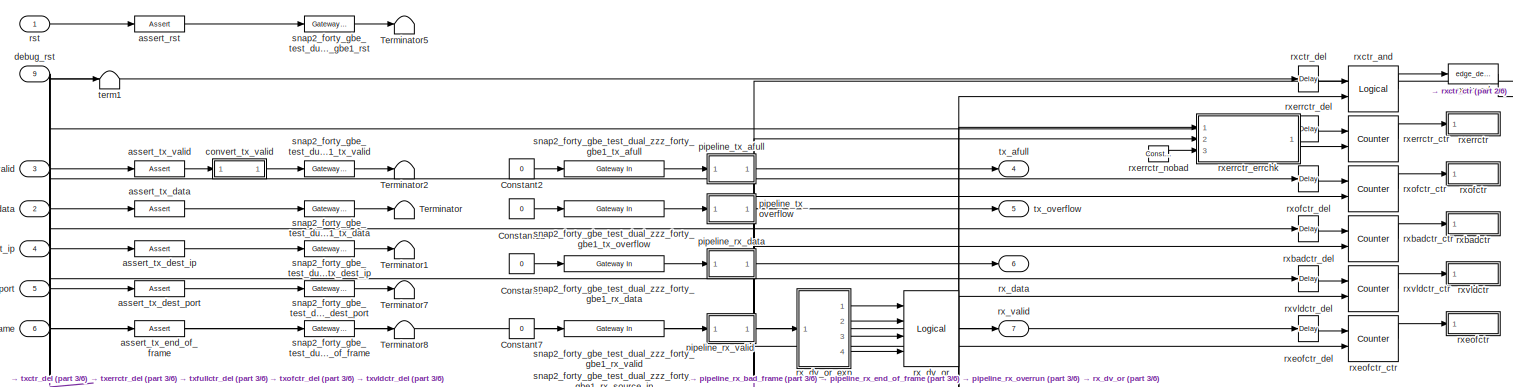
[diagram: zzz_forty_gbe1 - part 1/6, full width, top band]
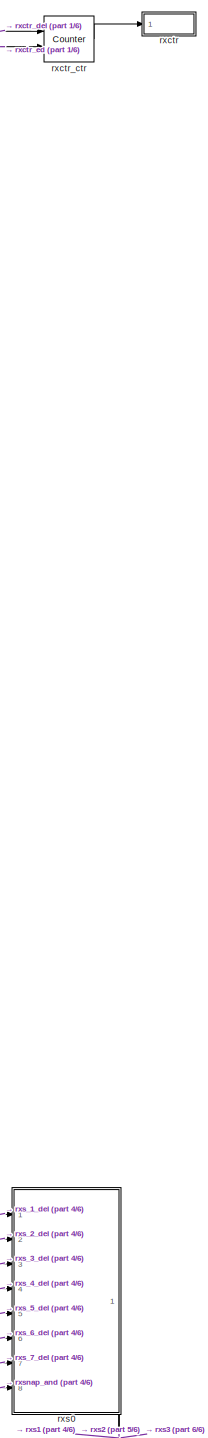
[diagram: zzz_forty_gbe1 - part 2/6, middle right region]
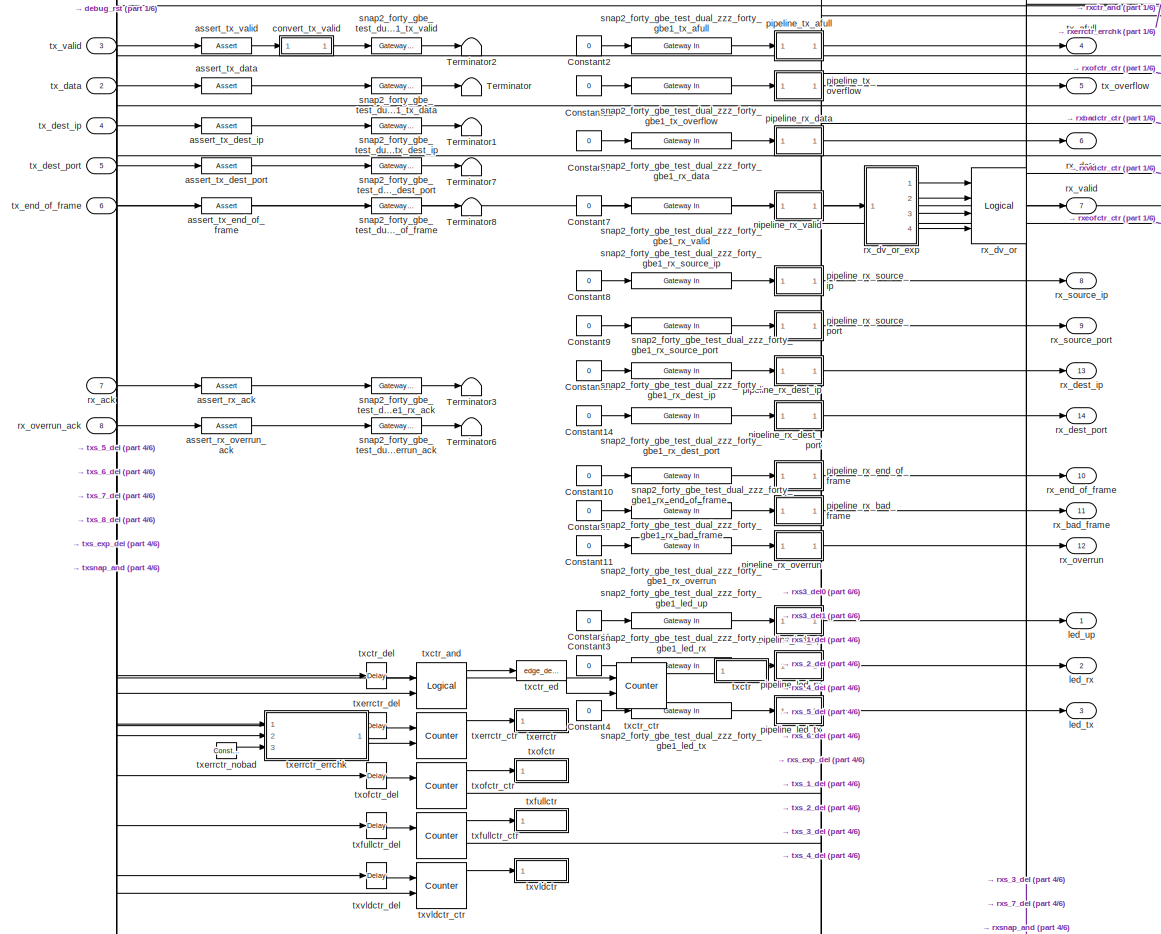
[diagram: zzz_forty_gbe1 - part 3/6, top left region]
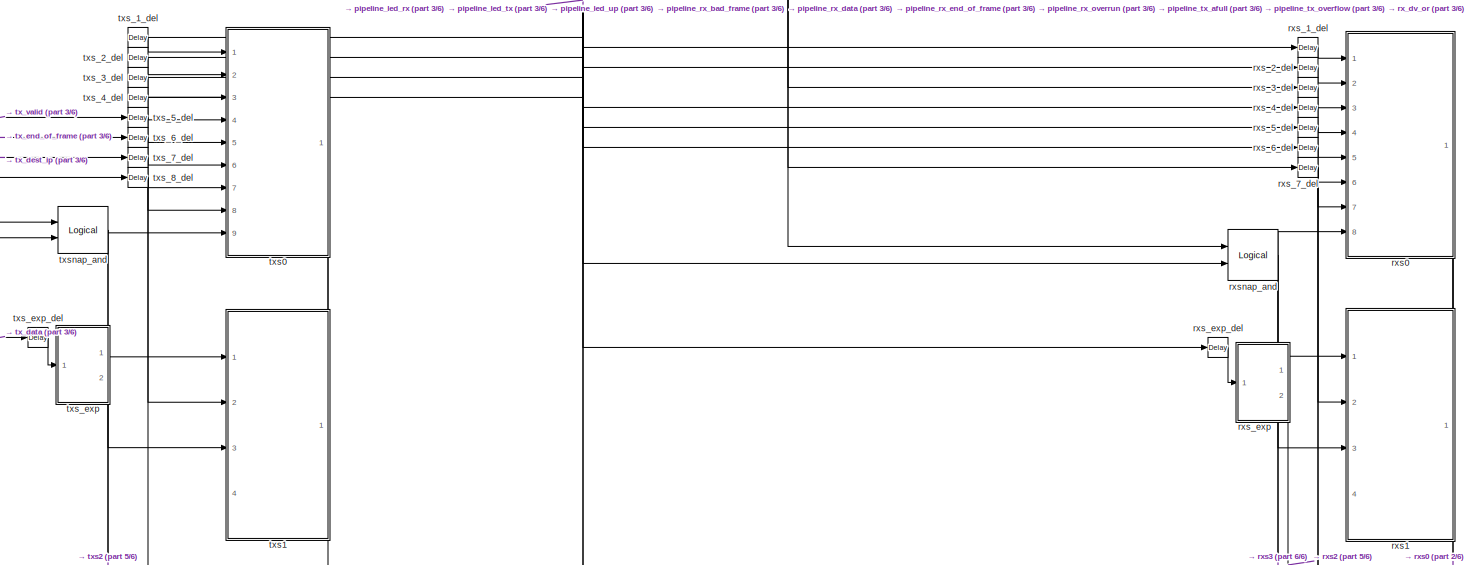
[diagram: zzz_forty_gbe1 - part 4/6, full width, middle band]
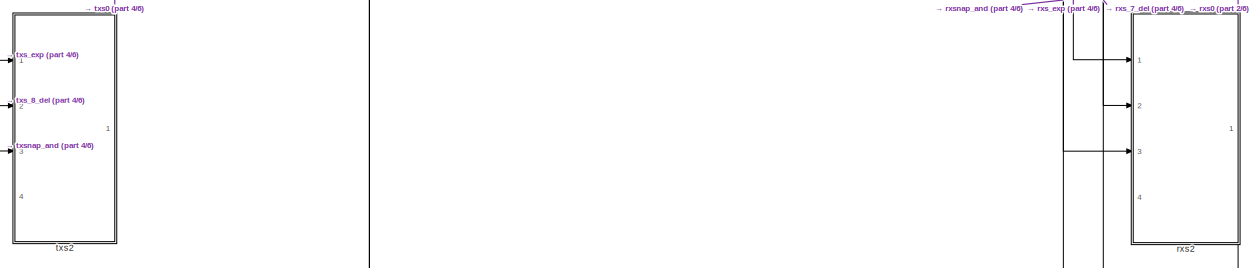
[diagram: zzz_forty_gbe1 - part 5/6, bottom center region]
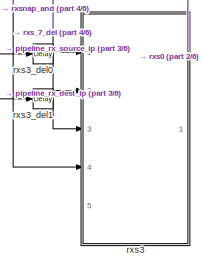
[diagram: zzz_forty_gbe1 - part 6/6, bottom right region]
BLOCK [SubSystem] zzz_forty_gbe1
  AncestorBlock = xps_library/IO/forty_gbe
  AttributesFormatString = incoming_latency=0
  Ports = [9, 14]
  RequestExecContextInheritance = off
  Tag = xps:forty_gbe
BLOCK [Constant] zzz_forty_gbe1/Constant1
  Value = 0
BLOCK [Constant] zzz_forty_gbe1/Constant10
  Value = 0
BLOCK [Constant] zzz_forty_gbe1/Constant11
  Value = 0
BLOCK [Constant] zzz_forty_gbe1/Constant12
  Value = 0
BLOCK [Constant] zzz_forty_gbe1/Constant13
  Value = 0
BLOCK [Constant] zzz_forty_gbe1/Constant14
  Value = 0
BLOCK [Constant] zzz_forty_gbe1/Constant2
  Value = 0
BLOCK [Constant] zzz_forty_gbe1/Constant3
  Value = 0
BLOCK [Constant] zzz_forty_gbe1/Constant4
  Value = 0
BLOCK [Constant] zzz_forty_gbe1/Constant5
  Value = 0
BLOCK [Constant] zzz_forty_gbe1/Constant6
  Value = 0
BLOCK [Constant] zzz_forty_gbe1/Constant7
  Value = 0
BLOCK [Constant] zzz_forty_gbe1/Constant8
  Value = 0
BLOCK [Constant] zzz_forty_gbe1/Constant9
  Value = 0
BLOCK [Terminator] zzz_forty_gbe1/Terminator
BLOCK [Terminator] zzz_forty_gbe1/Terminator1
BLOCK [Terminator] zzz_forty_gbe1/Terminator2
BLOCK [Terminator] zzz_forty_gbe1/Terminator3
BLOCK [Terminator] zzz_forty_gbe1/Terminator5
BLOCK [Terminator] zzz_forty_gbe1/Terminator6
BLOCK [Terminator] zzz_forty_gbe1/Terminator7
BLOCK [Terminator] zzz_forty_gbe1/Terminator8
BLOCK [Reference] zzz_forty_gbe1/assert_rst  REF=xbsIndex_r4/Assert
  Ports = [1, 1]
  SourceBlock = xbsIndex_r4/Assert
  SourceType = Xilinx Assert Block
BLOCK [Reference] zzz_forty_gbe1/assert_rx_ack  REF=xbsIndex_r4/Assert
  Ports = [1, 1]
  SourceBlock = xbsIndex_r4/Assert
  SourceType = Xilinx Assert Block
BLOCK [Reference] zzz_forty_gbe1/assert_rx_overrun_ack  REF=xbsIndex_r4/Assert
  Ports = [1, 1]
  SourceBlock = xbsIndex_r4/Assert
  SourceType = Xilinx Assert Block
BLOCK [Reference] zzz_forty_gbe1/assert_tx_data  REF=xbsIndex_r4/Assert
  Ports = [1, 1]
  SourceBlock = xbsIndex_r4/Assert
  SourceType = Xilinx Assert Block
BLOCK [Reference] zzz_forty_gbe1/assert_tx_dest_ip  REF=xbsIndex_r4/Assert
  Ports = [1, 1]
  SourceBlock = xbsIndex_r4/Assert
  SourceType = Xilinx Assert Block
BLOCK [Reference] zzz_forty_gbe1/assert_tx_dest_port  REF=xbsIndex_r4/Assert
  Ports = [1, 1]
  SourceBlock = xbsIndex_r4/Assert
  SourceType = Xilinx Assert Block
BLOCK [Reference] zzz_forty_gbe1/assert_tx_end_of_frame  REF=xbsIndex_r4/Assert
  Ports = [1, 1]
  SourceBlock = xbsIndex_r4/Assert
  SourceType = Xilinx Assert Block
BLOCK [Reference] zzz_forty_gbe1/assert_tx_valid  REF=xbsIndex_r4/Assert
  Ports = [1, 1]
  SourceBlock = xbsIndex_r4/Assert
  SourceType = Xilinx Assert Block
BLOCK [SubSystem] zzz_forty_gbe1/convert_tx_valid
  AncestorBlock = casper_library_bus/bus_replicate
  Ports = [1, 1]
  RequestExecContextInheritance = off
  UserDataPersistent = on
BLOCK [SubSystem] zzz_forty_gbe1/convert_tx_valid/bussify
  AncestorBlock = casper_library_flow_control/bus_create
  Ports = [4, 1]
  RequestExecContextInheritance = off
  UserDataPersistent = on
BLOCK [Outport] zzz_forty_gbe1/convert_tx_valid/bussify/bus_out
  IconDisplay = Port number
BLOCK [Reference] zzz_forty_gbe1/convert_tx_valid/bussify/concatenate  REF=xbsIndex_r4/Concat
  Ports = [4, 1]
  SourceBlock = xbsIndex_r4/Concat
  SourceType = Xilinx Bus Concatenator Block
BLOCK [Inport] zzz_forty_gbe1/convert_tx_valid/bussify/in1
  IconDisplay = Port number
BLOCK [Inport] zzz_forty_gbe1/convert_tx_valid/bussify/in2
  IconDisplay = Port number
  Port = 2
BLOCK [Inport] zzz_forty_gbe1/convert_tx_valid/bussify/in3
  IconDisplay = Port number
  Port = 3
BLOCK [Inport] zzz_forty_gbe1/convert_tx_valid/bussify/in4
  IconDisplay = Port number
  Port = 4
BLOCK [Reference] zzz_forty_gbe1/convert_tx_valid/bussify/reinterpret1  REF=xbsIndex_r4/Reinterpret
  Ports = [1, 1]
  SourceBlock = xbsIndex_r4/Reinterpret
  SourceType = Xilinx Type Reinterpreter Block
BLOCK [Reference] zzz_forty_gbe1/convert_tx_valid/bussify/reinterpret2  REF=xbsIndex_r4/Reinterpret
  Ports = [1, 1]
  SourceBlock = xbsIndex_r4/Reinterpret
  SourceType = Xilinx Type Reinterpreter Block
BLOCK [Reference] zzz_forty_gbe1/convert_tx_valid/bussify/reinterpret3  REF=xbsIndex_r4/Reinterpret
  Ports = [1, 1]
  SourceBlock = xbsIndex_r4/Reinterpret
  SourceType = Xilinx Type Reinterpreter Block
BLOCK [Reference] zzz_forty_gbe1/convert_tx_valid/bussify/reinterpret4  REF=xbsIndex_r4/Reinterpret
  Ports = [1, 1]
  SourceBlock = xbsIndex_r4/Reinterpret
  SourceType = Xilinx Type Reinterpreter Block
BLOCK [Inport] zzz_forty_gbe1/convert_tx_valid/in
  IconDisplay = Port number
BLOCK [Outport] zzz_forty_gbe1/convert_tx_valid/out
  IconDisplay = Port number
BLOCK [Inport] zzz_forty_gbe1/debug_rst
  IconDisplay = Port number
  Port = 9
BLOCK [Outport] zzz_forty_gbe1/led_rx
  IconDisplay = Port number
  Port = 2
BLOCK [Outport] zzz_forty_gbe1/led_tx
  IconDisplay = Port number
  Port = 3
BLOCK [Outport] zzz_forty_gbe1/led_up
  IconDisplay = Port number
BLOCK [SubSystem] zzz_forty_gbe1/pipeline_led_rx
  AncestorBlock = casper_library_delays/pipeline
  AttributesFormatString = Latency = %<latency>
  Ports = [1, 1]
  RequestExecContextInheritance = off
  UserDataPersistent = on
BLOCK [Inport] zzz_forty_gbe1/pipeline_led_rx/d
  IconDisplay = Port number
BLOCK [Outport] zzz_forty_gbe1/pipeline_led_rx/q
  IconDisplay = Port number
BLOCK [SubSystem] zzz_forty_gbe1/pipeline_led_tx
  AncestorBlock = casper_library_delays/pipeline
  AttributesFormatString = Latency = %<latency>
  Ports = [1, 1]
  RequestExecContextInheritance = off
  UserDataPersistent = on
BLOCK [Inport] zzz_forty_gbe1/pipeline_led_tx/d
  IconDisplay = Port number
BLOCK [Outport] zzz_forty_gbe1/pipeline_led_tx/q
  IconDisplay = Port number
BLOCK [SubSystem] zzz_forty_gbe1/pipeline_led_up
  AncestorBlock = casper_library_delays/pipeline
  AttributesFormatString = Latency = %<latency>
  Ports = [1, 1]
  RequestExecContextInheritance = off
  UserDataPersistent = on
BLOCK [Inport] zzz_forty_gbe1/pipeline_led_up/d
  IconDisplay = Port number
BLOCK [Outport] zzz_forty_gbe1/pipeline_led_up/q
  IconDisplay = Port number
BLOCK [SubSystem] zzz_forty_gbe1/pipeline_rx_bad_frame
  AncestorBlock = casper_library_delays/pipeline
  AttributesFormatString = Latency = %<latency>
  Ports = [1, 1]
  RequestExecContextInheritance = off
  UserDataPersistent = on
BLOCK [Inport] zzz_forty_gbe1/pipeline_rx_bad_frame/d
  IconDisplay = Port number
BLOCK [Outport] zzz_forty_gbe1/pipeline_rx_bad_frame/q
  IconDisplay = Port number
BLOCK [SubSystem] zzz_forty_gbe1/pipeline_rx_data
  AncestorBlock = casper_library_delays/pipeline
  AttributesFormatString = Latency = %<latency>
  Ports = [1, 1]
  RequestExecContextInheritance = off
  UserDataPersistent = on
BLOCK [Inport] zzz_forty_gbe1/pipeline_rx_data/d
  IconDisplay = Port number
BLOCK [Outport] zzz_forty_gbe1/pipeline_rx_data/q
  IconDisplay = Port number
BLOCK [SubSystem] zzz_forty_gbe1/pipeline_rx_dest_ip
  AncestorBlock = casper_library_delays/pipeline
  AttributesFormatString = Latency = %<latency>
  Ports = [1, 1]
  RequestExecContextInheritance = off
  UserDataPersistent = on
BLOCK [Inport] zzz_forty_gbe1/pipeline_rx_dest_ip/d
  IconDisplay = Port number
BLOCK [Outport] zzz_forty_gbe1/pipeline_rx_dest_ip/q
  IconDisplay = Port number
BLOCK [SubSystem] zzz_forty_gbe1/pipeline_rx_dest_port
  AncestorBlock = casper_library_delays/pipeline
  AttributesFormatString = Latency = %<latency>
  Ports = [1, 1]
  RequestExecContextInheritance = off
  UserDataPersistent = on
BLOCK [Inport] zzz_forty_gbe1/pipeline_rx_dest_port/d
  IconDisplay = Port number
BLOCK [Outport] zzz_forty_gbe1/pipeline_rx_dest_port/q
  IconDisplay = Port number
BLOCK [SubSystem] zzz_forty_gbe1/pipeline_rx_end_of_frame
  AncestorBlock = casper_library_delays/pipeline
  AttributesFormatString = Latency = %<latency>
  Ports = [1, 1]
  RequestExecContextInheritance = off
  UserDataPersistent = on
BLOCK [Inport] zzz_forty_gbe1/pipeline_rx_end_of_frame/d
  IconDisplay = Port number
BLOCK [Outport] zzz_forty_gbe1/pipeline_rx_end_of_frame/q
  IconDisplay = Port number
BLOCK [SubSystem] zzz_forty_gbe1/pipeline_rx_overrun
  AncestorBlock = casper_library_delays/pipeline
  AttributesFormatString = Latency = %<latency>
  Ports = [1, 1]
  RequestExecContextInheritance = off
  UserDataPersistent = on
BLOCK [Inport] zzz_forty_gbe1/pipeline_rx_overrun/d
  IconDisplay = Port number
BLOCK [Outport] zzz_forty_gbe1/pipeline_rx_overrun/q
  IconDisplay = Port number
BLOCK [SubSystem] zzz_forty_gbe1/pipeline_rx_source_ip
  AncestorBlock = casper_library_delays/pipeline
  AttributesFormatString = Latency = %<latency>
  Ports = [1, 1]
  RequestExecContextInheritance = off
  UserDataPersistent = on
BLOCK [Inport] zzz_forty_gbe1/pipeline_rx_source_ip/d
  IconDisplay = Port number
BLOCK [Outport] zzz_forty_gbe1/pipeline_rx_source_ip/q
  IconDisplay = Port number
BLOCK [SubSystem] zzz_forty_gbe1/pipeline_rx_source_port
  AncestorBlock = casper_library_delays/pipeline
  AttributesFormatString = Latency = %<latency>
  Ports = [1, 1]
  RequestExecContextInheritance = off
  UserDataPersistent = on
BLOCK [Inport] zzz_forty_gbe1/pipeline_rx_source_port/d
  IconDisplay = Port number
BLOCK [Outport] zzz_forty_gbe1/pipeline_rx_source_port/q
  IconDisplay = Port number
BLOCK [SubSystem] zzz_forty_gbe1/pipeline_rx_valid
  AncestorBlock = casper_library_delays/pipeline
  AttributesFormatString = Latency = %<latency>
  Ports = [1, 1]
  RequestExecContextInheritance = off
  UserDataPersistent = on
BLOCK [Inport] zzz_forty_gbe1/pipeline_rx_valid/d
  IconDisplay = Port number
BLOCK [Outport] zzz_forty_gbe1/pipeline_rx_valid/q
  IconDisplay = Port number
BLOCK [SubSystem] zzz_forty_gbe1/pipeline_tx_afull
  AncestorBlock = casper_library_delays/pipeline
  AttributesFormatString = Latency = %<latency>
  Ports = [1, 1]
  RequestExecContextInheritance = off
  UserDataPersistent = on
BLOCK [Inport] zzz_forty_gbe1/pipeline_tx_afull/d
  IconDisplay = Port number
BLOCK [Outport] zzz_forty_gbe1/pipeline_tx_afull/q
  IconDisplay = Port number
BLOCK [SubSystem] zzz_forty_gbe1/pipeline_tx_overflow
  AncestorBlock = casper_library_delays/pipeline
  AttributesFormatString = Latency = %<latency>
  Ports = [1, 1]
  RequestExecContextInheritance = off
  UserDataPersistent = on
BLOCK [Inport] zzz_forty_gbe1/pipeline_tx_overflow/d
  IconDisplay = Port number
BLOCK [Outport] zzz_forty_gbe1/pipeline_tx_overflow/q
  IconDisplay = Port number
BLOCK [Inport] zzz_forty_gbe1/rst
  IconDisplay = Port number
BLOCK [Inport] zzz_forty_gbe1/rx_ack
  IconDisplay = Port number
  Port = 7
BLOCK [Outport] zzz_forty_gbe1/rx_bad_frame
  IconDisplay = Port number
  Port = 11
BLOCK [Outport] zzz_forty_gbe1/rx_data
  IconDisplay = Port number
  Port = 6
BLOCK [Outport] zzz_forty_gbe1/rx_dest_ip
  IconDisplay = Port number
  Port = 13
BLOCK [Outport] zzz_forty_gbe1/rx_dest_port
  IconDisplay = Port number
  Port = 14
BLOCK [Reference] zzz_forty_gbe1/rx_dv_or  REF=xbsIndex_r4/Logical
  Ports = [4, 1]
  SourceBlock = xbsIndex_r4/Logical
  SourceType = Xilinx Logical Block Block
BLOCK [SubSystem] zzz_forty_gbe1/rx_dv_or_exp
  AncestorBlock = casper_library_flow_control/bus_expand
  AttributesFormatString = 4 outputs
  Ports = [1, 4]
  RequestExecContextInheritance = off
  UserDataPersistent = on
BLOCK [Inport] zzz_forty_gbe1/rx_dv_or_exp/bus_in
  IconDisplay = Port number
BLOCK [Outport] zzz_forty_gbe1/rx_dv_or_exp/lsb_out1
  IconDisplay = Port number
  Port = 4
BLOCK [Outport] zzz_forty_gbe1/rx_dv_or_exp/msb_out4
  IconDisplay = Port number
BLOCK [Outport] zzz_forty_gbe1/rx_dv_or_exp/out2
  IconDisplay = Port number
  Port = 3
BLOCK [Outport] zzz_forty_gbe1/rx_dv_or_exp/out3
  IconDisplay = Port number
  Port = 2
BLOCK [Reference] zzz_forty_gbe1/rx_dv_or_exp/slice1  REF=xbsIndex_r4/Slice
  Ports = [1, 1]
  SourceBlock = xbsIndex_r4/Slice
  SourceType = Xilinx Bit Slice Extractor Block
BLOCK [Reference] zzz_forty_gbe1/rx_dv_or_exp/slice2  REF=xbsIndex_r4/Slice
  Ports = [1, 1]
  SourceBlock = xbsIndex_r4/Slice
  SourceType = Xilinx Bit Slice Extractor Block
BLOCK [Reference] zzz_forty_gbe1/rx_dv_or_exp/slice3  REF=xbsIndex_r4/Slice
  Ports = [1, 1]
  SourceBlock = xbsIndex_r4/Slice
  SourceType = Xilinx Bit Slice Extractor Block
BLOCK [Reference] zzz_forty_gbe1/rx_dv_or_exp/slice4  REF=xbsIndex_r4/Slice
  Ports = [1, 1]
  SourceBlock = xbsIndex_r4/Slice
  SourceType = Xilinx Bit Slice Extractor Block
BLOCK [Outport] zzz_forty_gbe1/rx_end_of_frame
  IconDisplay = Port number
  Port = 10
BLOCK [Outport] zzz_forty_gbe1/rx_overrun
  IconDisplay = Port number
  Port = 12
BLOCK [Inport] zzz_forty_gbe1/rx_overrun_ack
  IconDisplay = Port number
  Port = 8
BLOCK [Outport] zzz_forty_gbe1/rx_source_ip
  IconDisplay = Port number
  Port = 8
BLOCK [Outport] zzz_forty_gbe1/rx_source_port
  IconDisplay = Port number
  Port = 9
BLOCK [Outport] zzz_forty_gbe1/rx_valid
  IconDisplay = Port number
  Port = 7
BLOCK [SubSystem] zzz_forty_gbe1/rxbadctr
  AncestorBlock = xps_library/Memory/software_register
  AttributesFormatString = 1output:uf16.0 = 16 bits
  Ports = [1]
  RequestExecContextInheritance = off
  Tag = xps:sw_reg
BLOCK [Reference] zzz_forty_gbe1/rxbadctr/assert_reg  REF=xbsIndex_r4/Assert
  Ports = [1, 1]
  SourceBlock = xbsIndex_r4/Assert
  SourceType = Xilinx Assert Block
BLOCK [Reference] zzz_forty_gbe1/rxbadctr/cast_gw  REF=xbsIndex_r4/Convert
  Ports = [1, 1]
  SourceBlock = xbsIndex_r4/Convert
  SourceType = Xilinx Type Converter Block
BLOCK [Reference] zzz_forty_gbe1/rxbadctr/io_delay  REF=xbsIndex_r4/Delay
  Ports = [1, 1]
  SourceBlock = xbsIndex_r4/Delay
  SourceType = Xilinx Delay Block
BLOCK [Inport] zzz_forty_gbe1/rxbadctr/out_reg
  IconDisplay = Port number
BLOCK [Reference] zzz_forty_gbe1/rxbadctr/reint1  REF=xbsIndex_r4/Reinterpret
  Ports = [1, 1]
  SourceBlock = xbsIndex_r4/Reinterpret
  SourceType = Xilinx Type Reinterpreter Block
BLOCK [Terminator] zzz_forty_gbe1/rxbadctr/sim_out
BLOCK [Reference] zzz_forty_gbe1/rxbadctr/snap2_forty_gbe_test_dual_zzz_forty_gbe1_rxbadctr_user_data_in  REF=xbsIndex_r4/Gateway Out
  Ports = [1, 1]
  SourceBlock = xbsIndex_r4/Gateway Out
  SourceType = Xilinx Gateway Out Block
BLOCK [Reference] zzz_forty_gbe1/rxbadctr_ctr  REF=xbsIndex_r4/Counter
  Ports = [2, 1]
  SourceBlock = xbsIndex_r4/Counter
  SourceType = Xilinx Counter Block
BLOCK [Reference] zzz_forty_gbe1/rxbadctr_del  REF=xbsIndex_r4/Delay
  Ports = [1, 1]
  SourceBlock = xbsIndex_r4/Delay
  SourceType = Xilinx Delay Block
BLOCK [SubSystem] zzz_forty_gbe1/rxctr
  AncestorBlock = xps_library/Memory/software_register
  AttributesFormatString = 1output:uf16.0 = 16 bits
  Ports = [1]
  RequestExecContextInheritance = off
  Tag = xps:sw_reg
BLOCK [Reference] zzz_forty_gbe1/rxctr/assert_reg  REF=xbsIndex_r4/Assert
  Ports = [1, 1]
  SourceBlock = xbsIndex_r4/Assert
  SourceType = Xilinx Assert Block
BLOCK [Reference] zzz_forty_gbe1/rxctr/cast_gw  REF=xbsIndex_r4/Convert
  Ports = [1, 1]
  SourceBlock = xbsIndex_r4/Convert
  SourceType = Xilinx Type Converter Block
BLOCK [Reference] zzz_forty_gbe1/rxctr/io_delay  REF=xbsIndex_r4/Delay
  Ports = [1, 1]
  SourceBlock = xbsIndex_r4/Delay
  SourceType = Xilinx Delay Block
BLOCK [Inport] zzz_forty_gbe1/rxctr/out_reg
  IconDisplay = Port number
BLOCK [Reference] zzz_forty_gbe1/rxctr/reint1  REF=xbsIndex_r4/Reinterpret
  Ports = [1, 1]
  SourceBlock = xbsIndex_r4/Reinterpret
  SourceType = Xilinx Type Reinterpreter Block
BLOCK [Terminator] zzz_forty_gbe1/rxctr/sim_out
BLOCK [Reference] zzz_forty_gbe1/rxctr/snap2_forty_gbe_test_dual_zzz_forty_gbe1_rxctr_user_data_in  REF=xbsIndex_r4/Gateway Out
  Ports = [1, 1]
  SourceBlock = xbsIndex_r4/Gateway Out
  SourceType = Xilinx Gateway Out Block
BLOCK [Reference] zzz_forty_gbe1/rxctr_and  REF=xbsIndex_r4/Logical
  Ports = [2, 1]
  SourceBlock = xbsIndex_r4/Logical
  SourceType = Xilinx Logical Block Block
BLOCK [Reference] zzz_forty_gbe1/rxctr_ctr  REF=xbsIndex_r4/Counter
  Ports = [2, 1]
  SourceBlock = xbsIndex_r4/Counter
  SourceType = Xilinx Counter Block
BLOCK [Reference] zzz_forty_gbe1/rxctr_del  REF=xbsIndex_r4/Delay
  Ports = [1, 1]
  SourceBlock = xbsIndex_r4/Delay
  SourceType = Xilinx Delay Block
BLOCK [Reference] zzz_forty_gbe1/rxctr_ed  REF=casper_library_misc/edge_detect  (lib defined in mdl_357510c33b49, mdl_57b5f564ae26, +4 more)
  AttributesFormatString = rising edges\nactive high
  Ports = [1, 1]
  SourceBlock = casper_library_misc/edge_detect
  SourceProductName = CASPER DSP Blockset
  SourceType = edge_detect
  UserDataPersistent = on
BLOCK [SubSystem] zzz_forty_gbe1/rxeofctr
  AncestorBlock = xps_library/Memory/software_register
  AttributesFormatString = 1output:uf16.0 = 16 bits
  Ports = [1]
  RequestExecContextInheritance = off
  Tag = xps:sw_reg
BLOCK [Reference] zzz_forty_gbe1/rxeofctr/assert_reg  REF=xbsIndex_r4/Assert
  Ports = [1, 1]
  SourceBlock = xbsIndex_r4/Assert
  SourceType = Xilinx Assert Block
BLOCK [Reference] zzz_forty_gbe1/rxeofctr/cast_gw  REF=xbsIndex_r4/Convert
  Ports = [1, 1]
  SourceBlock = xbsIndex_r4/Convert
  SourceType = Xilinx Type Converter Block
BLOCK [Reference] zzz_forty_gbe1/rxeofctr/io_delay  REF=xbsIndex_r4/Delay
  Ports = [1, 1]
  SourceBlock = xbsIndex_r4/Delay
  SourceType = Xilinx Delay Block
BLOCK [Inport] zzz_forty_gbe1/rxeofctr/out_reg
  IconDisplay = Port number
BLOCK [Reference] zzz_forty_gbe1/rxeofctr/reint1  REF=xbsIndex_r4/Reinterpret
  Ports = [1, 1]
  SourceBlock = xbsIndex_r4/Reinterpret
  SourceType = Xilinx Type Reinterpreter Block
BLOCK [Terminator] zzz_forty_gbe1/rxeofctr/sim_out
BLOCK [Reference] zzz_forty_gbe1/rxeofctr/snap2_forty_gbe_test_dual_zzz_forty_gbe1_rxeofctr_user_data_in  REF=xbsIndex_r4/Gateway Out
  Ports = [1, 1]
  SourceBlock = xbsIndex_r4/Gateway Out
  SourceType = Xilinx Gateway Out Block
BLOCK [Reference] zzz_forty_gbe1/rxeofctr_ctr  REF=xbsIndex_r4/Counter
  Ports = [2, 1]
  SourceBlock = xbsIndex_r4/Counter
  SourceType = Xilinx Counter Block
BLOCK [Reference] zzz_forty_gbe1/rxeofctr_del  REF=xbsIndex_r4/Delay
  Ports = [1, 1]
  SourceBlock = xbsIndex_r4/Delay
  SourceType = Xilinx Delay Block
BLOCK [SubSystem] zzz_forty_gbe1/rxerrctr
  AncestorBlock = xps_library/Memory/software_register
  AttributesFormatString = 1output:uf16.0 = 16 bits
  Ports = [1]
  RequestExecContextInheritance = off
  Tag = xps:sw_reg
BLOCK [Reference] zzz_forty_gbe1/rxerrctr/assert_reg  REF=xbsIndex_r4/Assert
  Ports = [1, 1]
  SourceBlock = xbsIndex_r4/Assert
  SourceType = Xilinx Assert Block
BLOCK [Reference] zzz_forty_gbe1/rxerrctr/cast_gw  REF=xbsIndex_r4/Convert
  Ports = [1, 1]
  SourceBlock = xbsIndex_r4/Convert
  SourceType = Xilinx Type Converter Block
BLOCK [Reference] zzz_forty_gbe1/rxerrctr/io_delay  REF=xbsIndex_r4/Delay
  Ports = [1, 1]
  SourceBlock = xbsIndex_r4/Delay
  SourceType = Xilinx Delay Block
BLOCK [Inport] zzz_forty_gbe1/rxerrctr/out_reg
  IconDisplay = Port number
BLOCK [Reference] zzz_forty_gbe1/rxerrctr/reint1  REF=xbsIndex_r4/Reinterpret
  Ports = [1, 1]
  SourceBlock = xbsIndex_r4/Reinterpret
  SourceType = Xilinx Type Reinterpreter Block
BLOCK [Terminator] zzz_forty_gbe1/rxerrctr/sim_out
BLOCK [Reference] zzz_forty_gbe1/rxerrctr/snap2_forty_gbe_test_dual_zzz_forty_gbe1_rxerrctr_user_data_in  REF=xbsIndex_r4/Gateway Out
  Ports = [1, 1]
  SourceBlock = xbsIndex_r4/Gateway Out
  SourceType = Xilinx Gateway Out Block
BLOCK [Reference] zzz_forty_gbe1/rxerrctr_ctr  REF=xbsIndex_r4/Counter
  Ports = [2, 1]
  SourceBlock = xbsIndex_r4/Counter
  SourceType = Xilinx Counter Block
BLOCK [Reference] zzz_forty_gbe1/rxerrctr_del  REF=xbsIndex_r4/Delay
  Ports = [1, 1]
  SourceBlock = xbsIndex_r4/Delay
  SourceType = Xilinx Delay Block
BLOCK [SubSystem] zzz_forty_gbe1/rxerrctr_errchk
  AncestorBlock = casper_library_communications/frame_len_checker
  Ports = [3, 1]
  RequestExecContextInheritance = off
  Tag = casper:frame_len_checker
BLOCK [Reference] zzz_forty_gbe1/rxerrctr_errchk/Constant2  REF=xbsIndex_r4/Constant
  Ports = [0, 1]
  SourceBlock = xbsIndex_r4/Constant
  SourceType = Xilinx Constant Block Block
BLOCK [Reference] zzz_forty_gbe1/rxerrctr_errchk/Logical1  REF=xbsIndex_r4/Logical
  Ports = [2, 1]
  SourceBlock = xbsIndex_r4/Logical
  SourceType = Xilinx Logical Block Block
BLOCK [Reference] zzz_forty_gbe1/rxerrctr_errchk/Logical5  REF=xbsIndex_r4/Logical
  Ports = [2, 1]
  SourceBlock = xbsIndex_r4/Logical
  SourceType = Xilinx Logical Block Block
BLOCK [Reference] zzz_forty_gbe1/rxerrctr_errchk/Logical6  REF=xbsIndex_r4/Logical
  Ports = [2, 1]
  SourceBlock = xbsIndex_r4/Logical
  SourceType = Xilinx Logical Block Block
BLOCK [Reference] zzz_forty_gbe1/rxerrctr_errchk/Relational1  REF=xbsIndex_r4/Relational
  Ports = [2, 1]
  SourceBlock = xbsIndex_r4/Relational
  SourceType = Xilinx Arithmetic Relational Operator Block
BLOCK [Inport] zzz_forty_gbe1/rxerrctr_errchk/bad_frame
  IconDisplay = Port number
  Port = 3
BLOCK [Inport] zzz_forty_gbe1/rxerrctr_errchk/eof
  IconDisplay = Port number
  Port = 2
BLOCK [Outport] zzz_forty_gbe1/rxerrctr_errchk/frame_len_error
  IconDisplay = Port number
BLOCK [Reference] zzz_forty_gbe1/rxerrctr_errchk/payload_cnt  REF=xbsIndex_r4/Counter
  Ports = [2, 1]
  SourceBlock = xbsIndex_r4/Counter
  SourceType = Xilinx Counter Block
BLOCK [Inport] zzz_forty_gbe1/rxerrctr_errchk/valid
  IconDisplay = Port number
BLOCK [Reference] zzz_forty_gbe1/rxerrctr_nobad  REF=xbsIndex_r4/Constant
  Ports = [0, 1]
  SourceBlock = xbsIndex_r4/Constant
  SourceType = Xilinx Constant Block Block
BLOCK [SubSystem] zzz_forty_gbe1/rxofctr
  AncestorBlock = xps_library/Memory/software_register
  AttributesFormatString = 1output:uf16.0 = 16 bits
  Ports = [1]
  RequestExecContextInheritance = off
  Tag = xps:sw_reg
BLOCK [Reference] zzz_forty_gbe1/rxofctr/assert_reg  REF=xbsIndex_r4/Assert
  Ports = [1, 1]
  SourceBlock = xbsIndex_r4/Assert
  SourceType = Xilinx Assert Block
BLOCK [Reference] zzz_forty_gbe1/rxofctr/cast_gw  REF=xbsIndex_r4/Convert
  Ports = [1, 1]
  SourceBlock = xbsIndex_r4/Convert
  SourceType = Xilinx Type Converter Block
BLOCK [Reference] zzz_forty_gbe1/rxofctr/io_delay  REF=xbsIndex_r4/Delay
  Ports = [1, 1]
  SourceBlock = xbsIndex_r4/Delay
  SourceType = Xilinx Delay Block
BLOCK [Inport] zzz_forty_gbe1/rxofctr/out_reg
  IconDisplay = Port number
BLOCK [Reference] zzz_forty_gbe1/rxofctr/reint1  REF=xbsIndex_r4/Reinterpret
  Ports = [1, 1]
  SourceBlock = xbsIndex_r4/Reinterpret
  SourceType = Xilinx Type Reinterpreter Block
BLOCK [Terminator] zzz_forty_gbe1/rxofctr/sim_out
BLOCK [Reference] zzz_forty_gbe1/rxofctr/snap2_forty_gbe_test_dual_zzz_forty_gbe1_rxofctr_user_data_in  REF=xbsIndex_r4/Gateway Out
  Ports = [1, 1]
  SourceBlock = xbsIndex_r4/Gateway Out
  SourceType = Xilinx Gateway Out Block
BLOCK [Reference] zzz_forty_gbe1/rxofctr_ctr  REF=xbsIndex_r4/Counter
  Ports = [2, 1]
  SourceBlock = xbsIndex_r4/Counter
  SourceType = Xilinx Counter Block
BLOCK [Reference] zzz_forty_gbe1/rxofctr_del  REF=xbsIndex_r4/Delay
  Ports = [1, 1]
  SourceBlock = xbsIndex_r4/Delay
  SourceType = Xilinx Delay Block
BLOCK [SubSystem] zzz_forty_gbe1/rxs0
  AncestorBlock = casper_library_scopes/bitfield_snapshot
  AttributesFormatString = snap(6):b,b,b,b,b,b = 6 bits\n8 wide, 1024 deep\ndebugID: 26656783
  Ports = [8, 1]
  RequestExecContextInheritance = off
  Tag = casper:bitsnap
  UserDataPersistent = on
BLOCK [Outport] zzz_forty_gbe1/rxs0/arm_out
  IconDisplay = Port number
BLOCK [Reference] zzz_forty_gbe1/rxs0/assert_bad_frame  REF=xbsIndex_r4/Assert
  Ports = [1, 1]
  SourceBlock = xbsIndex_r4/Assert
  SourceType = Xilinx Assert Block
BLOCK [Reference] zzz_forty_gbe1/rxs0/assert_eof_in  REF=xbsIndex_r4/Assert
  Ports = [1, 1]
  SourceBlock = xbsIndex_r4/Assert
  SourceType = Xilinx Assert Block
BLOCK [Reference] zzz_forty_gbe1/rxs0/assert_led_rx  REF=xbsIndex_r4/Assert
  Ports = [1, 1]
  SourceBlock = xbsIndex_r4/Assert
  SourceType = Xilinx Assert Block
BLOCK [Reference] zzz_forty_gbe1/rxs0/assert_led_up  REF=xbsIndex_r4/Assert
  Ports = [1, 1]
  SourceBlock = xbsIndex_r4/Assert
  SourceType = Xilinx Assert Block
BLOCK [Reference] zzz_forty_gbe1/rxs0/assert_overrun  REF=xbsIndex_r4/Assert
  Ports = [1, 1]
  SourceBlock = xbsIndex_r4/Assert
  SourceType = Xilinx Assert Block
BLOCK [Reference] zzz_forty_gbe1/rxs0/assert_valid_in  REF=xbsIndex_r4/Assert
  Ports = [1, 1]
  SourceBlock = xbsIndex_r4/Assert
  SourceType = Xilinx Assert Block
BLOCK [SubSystem] zzz_forty_gbe1/rxs0/buscreate
  AncestorBlock = casper_library_flow_control/bus_create
  Ports = [6, 1]
  RequestExecContextInheritance = off
  UserDataPersistent = on
BLOCK [Outport] zzz_forty_gbe1/rxs0/buscreate/bus_out
  IconDisplay = Port number
BLOCK [Reference] zzz_forty_gbe1/rxs0/buscreate/concatenate  REF=xbsIndex_r4/Concat
  Ports = [6, 1]
  SourceBlock = xbsIndex_r4/Concat
  SourceType = Xilinx Bus Concatenator Block
BLOCK [Inport] zzz_forty_gbe1/rxs0/buscreate/in1
  IconDisplay = Port number
BLOCK [Inport] zzz_forty_gbe1/rxs0/buscreate/in2
  IconDisplay = Port number
  Port = 2
BLOCK [Inport] zzz_forty_gbe1/rxs0/buscreate/in3
  IconDisplay = Port number
  Port = 3
BLOCK [Inport] zzz_forty_gbe1/rxs0/buscreate/in4
  IconDisplay = Port number
  Port = 4
BLOCK [Inport] zzz_forty_gbe1/rxs0/buscreate/in5
  IconDisplay = Port number
  Port = 5
BLOCK [Inport] zzz_forty_gbe1/rxs0/buscreate/in6
  IconDisplay = Port number
  Port = 6
BLOCK [Reference] zzz_forty_gbe1/rxs0/buscreate/reinterpret1  REF=xbsIndex_r4/Reinterpret
  Ports = [1, 1]
  SourceBlock = xbsIndex_r4/Reinterpret
  SourceType = Xilinx Type Reinterpreter Block
BLOCK [Reference] zzz_forty_gbe1/rxs0/buscreate/reinterpret2  REF=xbsIndex_r4/Reinterpret
  Ports = [1, 1]
  SourceBlock = xbsIndex_r4/Reinterpret
  SourceType = Xilinx Type Reinterpreter Block
BLOCK [Reference] zzz_forty_gbe1/rxs0/buscreate/reinterpret3  REF=xbsIndex_r4/Reinterpret
  Ports = [1, 1]
  SourceBlock = xbsIndex_r4/Reinterpret
  SourceType = Xilinx Type Reinterpreter Block
BLOCK [Reference] zzz_forty_gbe1/rxs0/buscreate/reinterpret4  REF=xbsIndex_r4/Reinterpret
  Ports = [1, 1]
  SourceBlock = xbsIndex_r4/Reinterpret
  SourceType = Xilinx Type Reinterpreter Block
BLOCK [Reference] zzz_forty_gbe1/rxs0/buscreate/reinterpret5  REF=xbsIndex_r4/Reinterpret
  Ports = [1, 1]
  SourceBlock = xbsIndex_r4/Reinterpret
  SourceType = Xilinx Type Reinterpreter Block
BLOCK [Reference] zzz_forty_gbe1/rxs0/buscreate/reinterpret6  REF=xbsIndex_r4/Reinterpret
  Ports = [1, 1]
  SourceBlock = xbsIndex_r4/Reinterpret
  SourceType = Xilinx Type Reinterpreter Block
BLOCK [Inport] zzz_forty_gbe1/rxs0/in_bad_frame
  IconDisplay = Port number
  Port = 5
BLOCK [Inport] zzz_forty_gbe1/rxs0/in_eof_in
  IconDisplay = Port number
  Port = 4
BLOCK [Inport] zzz_forty_gbe1/rxs0/in_led_rx
  IconDisplay = Port number
  Port = 2
BLOCK [Inport] zzz_forty_gbe1/rxs0/in_led_up
  IconDisplay = Port number
BLOCK [Inport] zzz_forty_gbe1/rxs0/in_overrun
  IconDisplay = Port number
  Port = 6
BLOCK [Inport] zzz_forty_gbe1/rxs0/in_valid_in
  IconDisplay = Port number
  Port = 3
BLOCK [SubSystem] zzz_forty_gbe1/rxs0/io_delay
  AncestorBlock = casper_library_delays/pipeline
  AttributesFormatString = Latency = %<latency>
  Ports = [1, 1]
  RequestExecContextInheritance = off
  UserDataPersistent = on
BLOCK [Reference] zzz_forty_gbe1/rxs0/io_delay/Register0  REF=xbsIndex_r4/Register
  Ports = [1, 1]
  SourceBlock = xbsIndex_r4/Register
  SourceType = Xilinx Register Block
BLOCK [Reference] zzz_forty_gbe1/rxs0/io_delay/Register1  REF=xbsIndex_r4/Register
  Ports = [1, 1]
  SourceBlock = xbsIndex_r4/Register
  SourceType = Xilinx Register Block
BLOCK [Inport] zzz_forty_gbe1/rxs0/io_delay/d
  IconDisplay = Port number
BLOCK [Outport] zzz_forty_gbe1/rxs0/io_delay/q
  IconDisplay = Port number
BLOCK [SubSystem] zzz_forty_gbe1/rxs0/ss
  AncestorBlock = casper_library_scopes/snapshot
  AttributesFormatString = 8 wide, 1024 deep\ndebugID: 106264206
  Ports = [3, 1]
  RequestExecContextInheritance = off
  Tag = casper:snapshot
  UserDataPersistent = on
BLOCK [Reference] zzz_forty_gbe1/rxs0/ss/add_del  REF=xbsIndex_r4/Delay
  Ports = [1, 1]
  SourceBlock = xbsIndex_r4/Delay
  SourceType = Xilinx Delay Block
BLOCK [SubSystem] zzz_forty_gbe1/rxs0/ss/add_gen
  AncestorBlock = casper_library_scopes/snapshot/add_gen
  Ports = [6, 7]
  RequestExecContextInheritance = off
BLOCK [Reference] zzz_forty_gbe1/rxs0/ss/add_gen/Concat  REF=xbsIndex_r4/Concat
  Ports = [3, 1]
  SourceBlock = xbsIndex_r4/Concat
  SourceType = Xilinx Bus Concatenator Block
BLOCK [Reference] zzz_forty_gbe1/rxs0/ss/add_gen/Convert  REF=xbsIndex_r4/Convert
  Ports = [1, 1]
  SourceBlock = xbsIndex_r4/Convert
  SourceType = Xilinx Type Converter Block
BLOCK [Reference] zzz_forty_gbe1/rxs0/ss/add_gen/Delay  REF=xbsIndex_r4/Delay
  Ports = [1, 1]
  SourceBlock = xbsIndex_r4/Delay
  SourceType = Xilinx Delay Block
BLOCK [Reference] zzz_forty_gbe1/rxs0/ss/add_gen/Delay1  REF=xbsIndex_r4/Delay
  Ports = [1, 1]
  SourceBlock = xbsIndex_r4/Delay
  SourceType = Xilinx Delay Block
BLOCK [Reference] zzz_forty_gbe1/rxs0/ss/add_gen/Delay2  REF=xbsIndex_r4/Delay
  Ports = [1, 1]
  SourceBlock = xbsIndex_r4/Delay
  SourceType = Xilinx Delay Block
BLOCK [Reference] zzz_forty_gbe1/rxs0/ss/add_gen/Delay3  REF=xbsIndex_r4/Delay
  Ports = [1, 1]
  SourceBlock = xbsIndex_r4/Delay
  SourceType = Xilinx Delay Block
BLOCK [Reference] zzz_forty_gbe1/rxs0/ss/add_gen/Delay4  REF=xbsIndex_r4/Delay
  Ports = [1, 1]
  SourceBlock = xbsIndex_r4/Delay
  SourceType = Xilinx Delay Block
BLOCK [Reference] zzz_forty_gbe1/rxs0/ss/add_gen/Delay5  REF=xbsIndex_r4/Delay
  Ports = [1, 1]
  SourceBlock = xbsIndex_r4/Delay
  SourceType = Xilinx Delay Block
BLOCK [Reference] zzz_forty_gbe1/rxs0/ss/add_gen/Delay6  REF=xbsIndex_r4/Delay
  Ports = [1, 1]
  SourceBlock = xbsIndex_r4/Delay
  SourceType = Xilinx Delay Block
BLOCK [Reference] zzz_forty_gbe1/rxs0/ss/add_gen/Delay7  REF=xbsIndex_r4/Delay
  Ports = [1, 1]
  SourceBlock = xbsIndex_r4/Delay
  SourceType = Xilinx Delay Block
BLOCK [Reference] zzz_forty_gbe1/rxs0/ss/add_gen/Inverter  REF=xbsIndex_r4/Inverter
  Ports = [1, 1]
  SourceBlock = xbsIndex_r4/Inverter
  SourceType = Xilinx Inverter Block
BLOCK [Reference] zzz_forty_gbe1/rxs0/ss/add_gen/Inverter1  REF=xbsIndex_r4/Inverter
  Ports = [1, 1]
  SourceBlock = xbsIndex_r4/Inverter
  SourceType = Xilinx Inverter Block
BLOCK [Reference] zzz_forty_gbe1/rxs0/ss/add_gen/Logical1  REF=xbsIndex_r4/Logical
  Ports = [2, 1]
  SourceBlock = xbsIndex_r4/Logical
  SourceType = Xilinx Logical Block Block
BLOCK [Reference] zzz_forty_gbe1/rxs0/ss/add_gen/Logical2  REF=xbsIndex_r4/Logical
  Ports = [2, 1]
  SourceBlock = xbsIndex_r4/Logical
  SourceType = Xilinx Logical Block Block
BLOCK [Reference] zzz_forty_gbe1/rxs0/ss/add_gen/Logical4  REF=xbsIndex_r4/Logical
  Ports = [2, 1]
  SourceBlock = xbsIndex_r4/Logical
  SourceType = Xilinx Logical Block Block
BLOCK [Reference] zzz_forty_gbe1/rxs0/ss/add_gen/Logical6  REF=xbsIndex_r4/Logical
  Ports = [3, 1]
  SourceBlock = xbsIndex_r4/Logical
  SourceType = Xilinx Logical Block Block
BLOCK [Reference] zzz_forty_gbe1/rxs0/ss/add_gen/Register3  REF=xbsIndex_r4/Register
  Ports = [3, 1]
  SourceBlock = xbsIndex_r4/Register
  SourceType = Xilinx Register Block
BLOCK [Reference] zzz_forty_gbe1/rxs0/ss/add_gen/Register4  REF=xbsIndex_r4/Register
  Ports = [2, 1]
  SourceBlock = xbsIndex_r4/Register
  SourceType = Xilinx Register Block
BLOCK [Reference] zzz_forty_gbe1/rxs0/ss/add_gen/Register5  REF=xbsIndex_r4/Register
  Ports = [3, 1]
  SourceBlock = xbsIndex_r4/Register
  SourceType = Xilinx Register Block
BLOCK [Reference] zzz_forty_gbe1/rxs0/ss/add_gen/Shift  REF=xbsIndex_r4/Shift
  Ports = [1, 1]
  SourceBlock = xbsIndex_r4/Shift
  SourceType = Xilinx Binary Shift Operator Block
BLOCK [Outport] zzz_forty_gbe1/rxs0/ss/add_gen/add
  IconDisplay = Port number
  Port = 2
BLOCK [Reference] zzz_forty_gbe1/rxs0/ss/add_gen/add_gen  REF=xbsIndex_r4/Counter
  Ports = [2, 1]
  SourceBlock = xbsIndex_r4/Counter
  SourceType = Xilinx Counter Block
BLOCK [Inport] zzz_forty_gbe1/rxs0/ss/add_gen/cont
  IconDisplay = Port number
  Port = 5
BLOCK [Inport] zzz_forty_gbe1/rxs0/ss/add_gen/din
  IconDisplay = Port number
  Port = 2
BLOCK [Outport] zzz_forty_gbe1/rxs0/ss/add_gen/done
  IconDisplay = Port number
  Port = 7
BLOCK [Outport] zzz_forty_gbe1/rxs0/ss/add_gen/dout
  IconDisplay = Port number
  Port = 3
BLOCK [SubSystem] zzz_forty_gbe1/rxs0/ss/add_gen/edge_detect
  AncestorBlock = casper_library_misc/edge_detect
  AttributesFormatString = both edges\nactive high
  Ports = [1, 1]
  RequestExecContextInheritance = off
  UserDataPersistent = on
BLOCK [Reference] zzz_forty_gbe1/rxs0/ss/add_gen/edge_detect/Delay  REF=xbsIndex_r4/Delay
  Ports = [1, 1]
  SourceBlock = xbsIndex_r4/Delay
  SourceType = Xilinx Delay Block
BLOCK [Reference] zzz_forty_gbe1/rxs0/ss/add_gen/edge_detect/Inverter  REF=xbsIndex_r4/Inverter
  Ports = [1, 1]
  SourceBlock = xbsIndex_r4/Inverter
  SourceType = Xilinx Inverter Block
BLOCK [Reference] zzz_forty_gbe1/rxs0/ss/add_gen/edge_detect/edge_op  REF=xbsIndex_r4/Logical
  Ports = [2, 1]
  SourceBlock = xbsIndex_r4/Logical
  SourceType = Xilinx Logical Block Block
BLOCK [Inport] zzz_forty_gbe1/rxs0/ss/add_gen/edge_detect/in
  IconDisplay = Port number
BLOCK [Outport] zzz_forty_gbe1/rxs0/ss/add_gen/edge_detect/out
  IconDisplay = Port number
BLOCK [SubSystem] zzz_forty_gbe1/rxs0/ss/add_gen/edge_detect1
  AncestorBlock = casper_library_scopes/snapshot/add_gen/edge_detect
  AttributesFormatString = both edges\nactive high
  Ports = [1, 1]
  RequestExecContextInheritance = off
  UserDataPersistent = on
BLOCK [Reference] zzz_forty_gbe1/rxs0/ss/add_gen/edge_detect1/Delay  REF=xbsIndex_r4/Delay
  Ports = [1, 1]
  SourceBlock = xbsIndex_r4/Delay
  SourceType = Xilinx Delay Block
BLOCK [Reference] zzz_forty_gbe1/rxs0/ss/add_gen/edge_detect1/Inverter  REF=xbsIndex_r4/Inverter
  Ports = [1, 1]
  SourceBlock = xbsIndex_r4/Inverter
  SourceType = Xilinx Inverter Block
BLOCK [Reference] zzz_forty_gbe1/rxs0/ss/add_gen/edge_detect1/edge_op  REF=xbsIndex_r4/Logical
  Ports = [2, 1]
  SourceBlock = xbsIndex_r4/Logical
  SourceType = Xilinx Logical Block Block
BLOCK [Inport] zzz_forty_gbe1/rxs0/ss/add_gen/edge_detect1/in
  IconDisplay = Port number
BLOCK [Outport] zzz_forty_gbe1/rxs0/ss/add_gen/edge_detect1/out
  IconDisplay = Port number
BLOCK [Outport] zzz_forty_gbe1/rxs0/ss/add_gen/en_cnt
  IconDisplay = Port number
  Port = 6
BLOCK [Inport] zzz_forty_gbe1/rxs0/ss/add_gen/go
  IconDisplay = Port number
  Port = 4
BLOCK [Inport] zzz_forty_gbe1/rxs0/ss/add_gen/init
  IconDisplay = Port number
  Port = 6
BLOCK [Reference] zzz_forty_gbe1/rxs0/ss/add_gen/slice1  REF=xbsIndex_r4/Slice
  Ports = [1, 1]
  SourceBlock = xbsIndex_r4/Slice
  SourceType = Xilinx Bit Slice Extractor Block
BLOCK [Reference] zzz_forty_gbe1/rxs0/ss/add_gen/slice2  REF=xbsIndex_r4/Slice
  Ports = [1, 1]
  SourceBlock = xbsIndex_r4/Slice
  SourceType = Xilinx Bit Slice Extractor Block
BLOCK [Reference] zzz_forty_gbe1/rxs0/ss/add_gen/slice3  REF=xbsIndex_r4/Slice
  Ports = [1, 1]
  SourceBlock = xbsIndex_r4/Slice
  SourceType = Xilinx Bit Slice Extractor Block
BLOCK [Outport] zzz_forty_gbe1/rxs0/ss/add_gen/status
  IconDisplay = Port number
  Port = 5
BLOCK [Inport] zzz_forty_gbe1/rxs0/ss/add_gen/vin
  IconDisplay = Port number
BLOCK [Outport] zzz_forty_gbe1/rxs0/ss/add_gen/vout
  IconDisplay = Port number
BLOCK [Inport] zzz_forty_gbe1/rxs0/ss/add_gen/we
  IconDisplay = Port number
  Port = 3
BLOCK [Outport] zzz_forty_gbe1/rxs0/ss/add_gen/we_o
  IconDisplay = Port number
  Port = 4
BLOCK [Reference] zzz_forty_gbe1/rxs0/ss/arm  REF=xbsIndex_r4/Constant
  Ports = [0, 1]
  SourceBlock = xbsIndex_r4/Constant
  SourceType = Xilinx Constant Block Block
BLOCK [Reference] zzz_forty_gbe1/rxs0/ss/arm_or  REF=xbsIndex_r4/Logical
  Ports = [2, 1]
  SourceBlock = xbsIndex_r4/Logical
  SourceType = Xilinx Logical Block Block
BLOCK [Outport] zzz_forty_gbe1/rxs0/ss/arm_out
  IconDisplay = Port number
BLOCK [SubSystem] zzz_forty_gbe1/rxs0/ss/basic_ctrl
  AncestorBlock = casper_library_scopes/snapshot/basic_ctrl
  Ports = [6, 6]
  RequestExecContextInheritance = off
BLOCK [Reference] zzz_forty_gbe1/rxs0/ss/basic_ctrl/Constant  REF=xbsIndex_r4/Constant
  Ports = [0, 1]
  SourceBlock = xbsIndex_r4/Constant
  SourceType = Xilinx Constant Block Block
BLOCK [Reference] zzz_forty_gbe1/rxs0/ss/basic_ctrl/Constant1  REF=xbsIndex_r4/Constant
  Ports = [0, 1]
  SourceBlock = xbsIndex_r4/Constant
  SourceType = Xilinx Constant Block Block
BLOCK [Reference] zzz_forty_gbe1/rxs0/ss/basic_ctrl/Constant2  REF=xbsIndex_r4/Constant
  Ports = [0, 1]
  SourceBlock = xbsIndex_r4/Constant
  SourceType = Xilinx Constant Block Block
BLOCK [Reference] zzz_forty_gbe1/rxs0/ss/basic_ctrl/Delay1  REF=xbsIndex_r4/Delay
  Ports = [1, 1]
  SourceBlock = xbsIndex_r4/Delay
  SourceType = Xilinx Delay Block
BLOCK [Reference] zzz_forty_gbe1/rxs0/ss/basic_ctrl/Delay2  REF=xbsIndex_r4/Delay
  Ports = [1, 1]
  SourceBlock = xbsIndex_r4/Delay
  SourceType = Xilinx Delay Block
BLOCK [Reference] zzz_forty_gbe1/rxs0/ss/basic_ctrl/Delay3  REF=xbsIndex_r4/Delay
  Ports = [1, 1]
  SourceBlock = xbsIndex_r4/Delay
  SourceType = Xilinx Delay Block
BLOCK [Reference] zzz_forty_gbe1/rxs0/ss/basic_ctrl/Inverter  REF=xbsIndex_r4/Inverter
  Ports = [1, 1]
  SourceBlock = xbsIndex_r4/Inverter
  SourceType = Xilinx Inverter Block
BLOCK [Reference] zzz_forty_gbe1/rxs0/ss/basic_ctrl/Logical  REF=xbsIndex_r4/Logical
  Ports = [2, 1]
  SourceBlock = xbsIndex_r4/Logical
  SourceType = Xilinx Logical Block Block
BLOCK [Reference] zzz_forty_gbe1/rxs0/ss/basic_ctrl/Mux1  REF=xbsIndex_r4/Mux
  Ports = [3, 1]
  SourceBlock = xbsIndex_r4/Mux
  SourceType = Xilinx Bus Multiplexer Block
BLOCK [Reference] zzz_forty_gbe1/rxs0/ss/basic_ctrl/Mux2  REF=xbsIndex_r4/Mux
  Ports = [3, 1]
  SourceBlock = xbsIndex_r4/Mux
  SourceType = Xilinx Bus Multiplexer Block
BLOCK [Reference] zzz_forty_gbe1/rxs0/ss/basic_ctrl/Register1  REF=xbsIndex_r4/Register
  Ports = [3, 1]
  SourceBlock = xbsIndex_r4/Register
  SourceType = Xilinx Register Block
BLOCK [Reference] zzz_forty_gbe1/rxs0/ss/basic_ctrl/Register6  REF=xbsIndex_r4/Register
  Ports = [3, 1]
  SourceBlock = xbsIndex_r4/Register
  SourceType = Xilinx Register Block
BLOCK [Inport] zzz_forty_gbe1/rxs0/ss/basic_ctrl/ctrl
  IconDisplay = Port number
  Port = 5
BLOCK [Inport] zzz_forty_gbe1/rxs0/ss/basic_ctrl/din
  IconDisplay = Port number
  Port = 2
BLOCK [Outport] zzz_forty_gbe1/rxs0/ss/basic_ctrl/dout
  IconDisplay = Port number
  Port = 2
BLOCK [SubSystem] zzz_forty_gbe1/rxs0/ss/basic_ctrl/dram_munge
  Ports = [4, 3]
  RequestExecContextInheritance = off
BLOCK [Reference] zzz_forty_gbe1/rxs0/ss/basic_ctrl/dram_munge/Concat  REF=xbsIndex_r4/Concat
  Ports = [4, 1]
  SourceBlock = xbsIndex_r4/Concat
  SourceType = Xilinx Bus Concatenator Block
BLOCK [Reference] zzz_forty_gbe1/rxs0/ss/basic_ctrl/dram_munge/Concat1  REF=xbsIndex_r4/Concat
  Ports = [4, 1]
  SourceBlock = xbsIndex_r4/Concat
  SourceType = Xilinx Bus Concatenator Block
BLOCK [Reference] zzz_forty_gbe1/rxs0/ss/basic_ctrl/dram_munge/Constant  REF=xbsIndex_r4/Constant
  Ports = [0, 1]
  SourceBlock = xbsIndex_r4/Constant
  SourceType = Xilinx Constant Block Block
BLOCK [Reference] zzz_forty_gbe1/rxs0/ss/basic_ctrl/dram_munge/Delay  REF=xbsIndex_r4/Delay
  Ports = [1, 1]
  SourceBlock = xbsIndex_r4/Delay
  SourceType = Xilinx Delay Block
BLOCK [Reference] zzz_forty_gbe1/rxs0/ss/basic_ctrl/dram_munge/Delay1  REF=xbsIndex_r4/Delay
  Ports = [1, 1]
  SourceBlock = xbsIndex_r4/Delay
  SourceType = Xilinx Delay Block
BLOCK [From] zzz_forty_gbe1/rxs0/ss/basic_ctrl/dram_munge/From
  CloseFcn = tagdialog Close
  GotoTag = init
BLOCK [From] zzz_forty_gbe1/rxs0/ss/basic_ctrl/dram_munge/From1
  CloseFcn = tagdialog Close
  GotoTag = we
BLOCK [From] zzz_forty_gbe1/rxs0/ss/basic_ctrl/dram_munge/From2
  CloseFcn = tagdialog Close
  GotoTag = din
BLOCK [From] zzz_forty_gbe1/rxs0/ss/basic_ctrl/dram_munge/From3
  CloseFcn = tagdialog Close
  GotoTag = init
BLOCK [From] zzz_forty_gbe1/rxs0/ss/basic_ctrl/dram_munge/From4
  CloseFcn = tagdialog Close
  GotoTag = we
BLOCK [From] zzz_forty_gbe1/rxs0/ss/basic_ctrl/dram_munge/From5
  CloseFcn = tagdialog Close
  GotoTag = vin
BLOCK [Goto] zzz_forty_gbe1/rxs0/ss/basic_ctrl/dram_munge/Goto
  GotoTag = init
BLOCK [Goto] zzz_forty_gbe1/rxs0/ss/basic_ctrl/dram_munge/Goto1
  GotoTag = we
BLOCK [Goto] zzz_forty_gbe1/rxs0/ss/basic_ctrl/dram_munge/Goto2
  GotoTag = din
BLOCK [Goto] zzz_forty_gbe1/rxs0/ss/basic_ctrl/dram_munge/Goto3
  GotoTag = vin
BLOCK [Reference] zzz_forty_gbe1/rxs0/ss/basic_ctrl/dram_munge/Logical  REF=xbsIndex_r4/Logical
  Ports = [2, 1]
  SourceBlock = xbsIndex_r4/Logical
  SourceType = Xilinx Logical Block Block
BLOCK [Reference] zzz_forty_gbe1/rxs0/ss/basic_ctrl/dram_munge/Logical1  REF=xbsIndex_r4/Logical
  Ports = [2, 1]
  SourceBlock = xbsIndex_r4/Logical
  SourceType = Xilinx Logical Block Block
BLOCK [Reference] zzz_forty_gbe1/rxs0/ss/basic_ctrl/dram_munge/Logical2  REF=xbsIndex_r4/Logical
  Ports = [2, 1]
  SourceBlock = xbsIndex_r4/Logical
  SourceType = Xilinx Logical Block Block
BLOCK [Reference] zzz_forty_gbe1/rxs0/ss/basic_ctrl/dram_munge/Mux1  REF=xbsIndex_r4/Mux
  Ports = [3, 1]
  SourceBlock = xbsIndex_r4/Mux
  SourceType = Xilinx Bus Multiplexer Block
BLOCK [Reference] zzz_forty_gbe1/rxs0/ss/basic_ctrl/dram_munge/Register  REF=xbsIndex_r4/Register
  Ports = [2, 1]
  SourceBlock = xbsIndex_r4/Register
  SourceType = Xilinx Register Block
BLOCK [Reference] zzz_forty_gbe1/rxs0/ss/basic_ctrl/dram_munge/Register1  REF=xbsIndex_r4/Register
  Ports = [2, 1]
  SourceBlock = xbsIndex_r4/Register
  SourceType = Xilinx Register Block
BLOCK [Reference] zzz_forty_gbe1/rxs0/ss/basic_ctrl/dram_munge/Register2  REF=xbsIndex_r4/Register
  Ports = [2, 1]
  SourceBlock = xbsIndex_r4/Register
  SourceType = Xilinx Register Block
BLOCK [Reference] zzz_forty_gbe1/rxs0/ss/basic_ctrl/dram_munge/Register3  REF=xbsIndex_r4/Register
  Ports = [2, 1]
  SourceBlock = xbsIndex_r4/Register
  SourceType = Xilinx Register Block
BLOCK [Reference] zzz_forty_gbe1/rxs0/ss/basic_ctrl/dram_munge/Register4  REF=xbsIndex_r4/Register
  Ports = [3, 1]
  SourceBlock = xbsIndex_r4/Register
  SourceType = Xilinx Register Block
BLOCK [Reference] zzz_forty_gbe1/rxs0/ss/basic_ctrl/dram_munge/Register5  REF=xbsIndex_r4/Register
  Ports = [2, 1]
  SourceBlock = xbsIndex_r4/Register
  SourceType = Xilinx Register Block
BLOCK [Reference] zzz_forty_gbe1/rxs0/ss/basic_ctrl/dram_munge/Relational  REF=xbsIndex_r4/Relational
  Ports = [2, 1]
  SourceBlock = xbsIndex_r4/Relational
  SourceType = Xilinx Arithmetic Relational Operator Block
BLOCK [Reference] zzz_forty_gbe1/rxs0/ss/basic_ctrl/dram_munge/Relational1  REF=xbsIndex_r4/Relational
  Ports = [2, 1]
  SourceBlock = xbsIndex_r4/Relational
  SourceType = Xilinx Arithmetic Relational Operator Block
BLOCK [Reference] zzz_forty_gbe1/rxs0/ss/basic_ctrl/dram_munge/Relational2  REF=xbsIndex_r4/Relational
  Ports = [2, 1]
  SourceBlock = xbsIndex_r4/Relational
  SourceType = Xilinx Arithmetic Relational Operator Block
BLOCK [Reference] zzz_forty_gbe1/rxs0/ss/basic_ctrl/dram_munge/Relational3  REF=xbsIndex_r4/Relational
  Ports = [2, 1]
  SourceBlock = xbsIndex_r4/Relational
  SourceType = Xilinx Arithmetic Relational Operator Block
BLOCK [Reference] zzz_forty_gbe1/rxs0/ss/basic_ctrl/dram_munge/con0  REF=xbsIndex_r4/Constant
  Ports = [0, 1]
  SourceBlock = xbsIndex_r4/Constant
  SourceType = Xilinx Constant Block Block
BLOCK [Reference] zzz_forty_gbe1/rxs0/ss/basic_ctrl/dram_munge/con1  REF=xbsIndex_r4/Constant
  Ports = [0, 1]
  SourceBlock = xbsIndex_r4/Constant
  SourceType = Xilinx Constant Block Block
BLOCK [Reference] zzz_forty_gbe1/rxs0/ss/basic_ctrl/dram_munge/con2  REF=xbsIndex_r4/Constant
  Ports = [0, 1]
  SourceBlock = xbsIndex_r4/Constant
  SourceType = Xilinx Constant Block Block
BLOCK [Reference] zzz_forty_gbe1/rxs0/ss/basic_ctrl/dram_munge/con3  REF=xbsIndex_r4/Constant
  Ports = [0, 1]
  SourceBlock = xbsIndex_r4/Constant
  SourceType = Xilinx Constant Block Block
BLOCK [Reference] zzz_forty_gbe1/rxs0/ss/basic_ctrl/dram_munge/data_choice  REF=xbsIndex_r4/Mux
  Ports = [3, 1]
  SourceBlock = xbsIndex_r4/Mux
  SourceType = Xilinx Bus Multiplexer Block
BLOCK [Inport] zzz_forty_gbe1/rxs0/ss/basic_ctrl/dram_munge/din
  IconDisplay = Port number
  Port = 2
BLOCK [Outport] zzz_forty_gbe1/rxs0/ss/basic_ctrl/dram_munge/dout
  IconDisplay = Port number
  Port = 2
BLOCK [Reference] zzz_forty_gbe1/rxs0/ss/basic_ctrl/dram_munge/dout_count  REF=xbsIndex_r4/Counter
  Ports = [2, 1]
  SourceBlock = xbsIndex_r4/Counter
  SourceType = Xilinx Counter Block
BLOCK [Reference] zzz_forty_gbe1/rxs0/ss/basic_ctrl/dram_munge/dram  REF=xbsIndex_r4/Constant
  Ports = [0, 1]
  SourceBlock = xbsIndex_r4/Constant
  SourceType = Xilinx Constant Block Block
BLOCK [Inport] zzz_forty_gbe1/rxs0/ss/basic_ctrl/dram_munge/init
  IconDisplay = Port number
  Port = 4
BLOCK [Reference] zzz_forty_gbe1/rxs0/ss/basic_ctrl/dram_munge/input_count  REF=xbsIndex_r4/Counter
  Ports = [2, 1]
  SourceBlock = xbsIndex_r4/Counter
  SourceType = Xilinx Counter Block
BLOCK [Inport] zzz_forty_gbe1/rxs0/ss/basic_ctrl/dram_munge/vin
  IconDisplay = Port number
BLOCK [Outport] zzz_forty_gbe1/rxs0/ss/basic_ctrl/dram_munge/vout
  IconDisplay = Port number
BLOCK [Reference] zzz_forty_gbe1/rxs0/ss/basic_ctrl/dram_munge/vout_choice  REF=xbsIndex_r4/Mux
  Ports = [3, 1]
  SourceBlock = xbsIndex_r4/Mux
  SourceType = Xilinx Bus Multiplexer Block
BLOCK [Inport] zzz_forty_gbe1/rxs0/ss/basic_ctrl/dram_munge/we
  IconDisplay = Port number
  Port = 3
BLOCK [Reference] zzz_forty_gbe1/rxs0/ss/basic_ctrl/dram_munge/we_choice  REF=xbsIndex_r4/Mux
  Ports = [3, 1]
  SourceBlock = xbsIndex_r4/Mux
  SourceType = Xilinx Bus Multiplexer Block
BLOCK [Outport] zzz_forty_gbe1/rxs0/ss/basic_ctrl/dram_munge/we_o
  IconDisplay = Port number
  Port = 3
BLOCK [Reference] zzz_forty_gbe1/rxs0/ss/basic_ctrl/edge_detect  REF=casper_library_misc/edge_detect  (lib defined in mdl_357510c33b49, mdl_57b5f564ae26, +4 more)
  AttributesFormatString = rising edges\nactive high
  Ports = [1, 1]
  SourceBlock = casper_library_misc/edge_detect
  SourceProductName = CASPER DSP Blockset
  SourceType = edge_detect
  UserDataPersistent = on
BLOCK [Reference] zzz_forty_gbe1/rxs0/ss/basic_ctrl/enable  REF=xbsIndex_r4/Slice
  Ports = [1, 1]
  SourceBlock = xbsIndex_r4/Slice
  SourceType = Xilinx Bit Slice Extractor Block
BLOCK [Outport] zzz_forty_gbe1/rxs0/ss/basic_ctrl/go
  IconDisplay = Port number
  Port = 4
BLOCK [Outport] zzz_forty_gbe1/rxs0/ss/basic_ctrl/init
  IconDisplay = Port number
  Port = 6
BLOCK [Outport] zzz_forty_gbe1/rxs0/ss/basic_ctrl/stop
  IconDisplay = Port number
  Port = 5
BLOCK [Inport] zzz_forty_gbe1/rxs0/ss/basic_ctrl/stopi
  IconDisplay = Port number
  Port = 6
BLOCK [Inport] zzz_forty_gbe1/rxs0/ss/basic_ctrl/trig
  IconDisplay = Port number
  Port = 4
BLOCK [Reference] zzz_forty_gbe1/rxs0/ss/basic_ctrl/trig_src  REF=xbsIndex_r4/Slice
  Ports = [1, 1]
  SourceBlock = xbsIndex_r4/Slice
  SourceType = Xilinx Bit Slice Extractor Block
BLOCK [Reference] zzz_forty_gbe1/rxs0/ss/basic_ctrl/valid_src  REF=xbsIndex_r4/Slice
  Ports = [1, 1]
  SourceBlock = xbsIndex_r4/Slice
  SourceType = Xilinx Bit Slice Extractor Block
BLOCK [Inport] zzz_forty_gbe1/rxs0/ss/basic_ctrl/vin
  IconDisplay = Port number
BLOCK [Outport] zzz_forty_gbe1/rxs0/ss/basic_ctrl/vout
  IconDisplay = Port number
BLOCK [Inport] zzz_forty_gbe1/rxs0/ss/basic_ctrl/we
  IconDisplay = Port number
  Port = 3
BLOCK [Outport] zzz_forty_gbe1/rxs0/ss/basic_ctrl/we_o
  IconDisplay = Port number
  Port = 3
BLOCK [SubSystem] zzz_forty_gbe1/rxs0/ss/bram
  AncestorBlock = xps_library/Memory/shared_bram
  Ports = [3, 1]
  RequestExecContextInheritance = off
  Tag = xps:bram
BLOCK [Terminator] zzz_forty_gbe1/rxs0/ss/bram/Terminator
BLOCK [Terminator] zzz_forty_gbe1/rxs0/ss/bram/Terminator1
BLOCK [Terminator] zzz_forty_gbe1/rxs0/ss/bram/Terminator2
BLOCK [Inport] zzz_forty_gbe1/rxs0/ss/bram/addr
  IconDisplay = Port number
BLOCK [SubSystem] zzz_forty_gbe1/rxs0/ss/bram/calc_add
  Ports = [1, 1]
  RequestExecContextInheritance = off
BLOCK [Reference] zzz_forty_gbe1/rxs0/ss/bram/calc_add/add_sub  REF=xbsIndex_r4/AddSub
  Ports = [2, 1]
  SourceBlock = xbsIndex_r4/AddSub
  SourceType = Xilinx Adder/Subtracter Block
BLOCK [Reference] zzz_forty_gbe1/rxs0/ss/bram/calc_add/concat  REF=xbsIndex_r4/Concat
  Ports = [2, 1]
  SourceBlock = xbsIndex_r4/Concat
  SourceType = Xilinx Bus Concatenator Block
BLOCK [Reference] zzz_forty_gbe1/rxs0/ss/bram/calc_add/const  REF=xbsIndex_r4/Constant
  Ports = [0, 1]
  SourceBlock = xbsIndex_r4/Constant
  SourceType = Xilinx Constant Block Block
BLOCK [Reference] zzz_forty_gbe1/rxs0/ss/bram/calc_add/convert_addr  REF=xbsIndex_r4/Convert
  Ports = [1, 1]
  SourceBlock = xbsIndex_r4/Convert
  SourceType = Xilinx Type Converter Block
BLOCK [Inport] zzz_forty_gbe1/rxs0/ss/bram/calc_add/in
  IconDisplay = Port number
BLOCK [Reference] zzz_forty_gbe1/rxs0/ss/bram/calc_add/lsw  REF=xbsIndex_r4/Slice
  Ports = [1, 1]
  SourceBlock = xbsIndex_r4/Slice
  SourceType = Xilinx Bit Slice Extractor Block
BLOCK [Reference] zzz_forty_gbe1/rxs0/ss/bram/calc_add/manipulate  REF=xbsIndex_r4/Constant
  Ports = [0, 1]
  SourceBlock = xbsIndex_r4/Constant
  SourceType = Xilinx Constant Block Block
BLOCK [Reference] zzz_forty_gbe1/rxs0/ss/bram/calc_add/msw  REF=xbsIndex_r4/Slice
  Ports = [1, 1]
  SourceBlock = xbsIndex_r4/Slice
  SourceType = Xilinx Bit Slice Extractor Block
BLOCK [Reference] zzz_forty_gbe1/rxs0/ss/bram/calc_add/mux  REF=xbsIndex_r4/Mux
  Ports = [3, 1]
  SourceBlock = xbsIndex_r4/Mux
  SourceType = Xilinx Bus Multiplexer Block
BLOCK [Outport] zzz_forty_gbe1/rxs0/ss/bram/calc_add/out
  IconDisplay = Port number
BLOCK [Reference] zzz_forty_gbe1/rxs0/ss/bram/convert_addr  REF=xbsIndex_r4/Convert
  Ports = [1, 1]
  SourceBlock = xbsIndex_r4/Convert
  SourceType = Xilinx Type Converter Block
BLOCK [Reference] zzz_forty_gbe1/rxs0/ss/bram/convert_din1  REF=xbsIndex_r4/Convert
  Ports = [1, 1]
  SourceBlock = xbsIndex_r4/Convert
  SourceType = Xilinx Type Converter Block
BLOCK [Reference] zzz_forty_gbe1/rxs0/ss/bram/convert_we  REF=xbsIndex_r4/Convert
  Ports = [1, 1]
  SourceBlock = xbsIndex_r4/Convert
  SourceType = Xilinx Type Converter Block
BLOCK [Inport] zzz_forty_gbe1/rxs0/ss/bram/data_in
  IconDisplay = Port number
  Port = 2
BLOCK [Outport] zzz_forty_gbe1/rxs0/ss/bram/data_out
  IconDisplay = Port number
BLOCK [SubSystem] zzz_forty_gbe1/rxs0/ss/bram/munge_in
  AncestorBlock = casper_library_flow_control/munge
  AttributesFormatString = split:8\njoin:0\nUnsigned [8,0]
  Ports = [1, 1]
  RequestExecContextInheritance = off
  UserDataPersistent = on
BLOCK [Inport] zzz_forty_gbe1/rxs0/ss/bram/munge_in/din
  IconDisplay = Port number
BLOCK [Outport] zzz_forty_gbe1/rxs0/ss/bram/munge_in/dout
  IconDisplay = Port number
BLOCK [Reference] zzz_forty_gbe1/rxs0/ss/bram/munge_in/reinterpret_out  REF=xbsIndex_r4/Reinterpret
  Ports = [1, 1]
  SourceBlock = xbsIndex_r4/Reinterpret
  SourceType = Xilinx Type Reinterpreter Block
BLOCK [SubSystem] zzz_forty_gbe1/rxs0/ss/bram/munge_out
  AncestorBlock = casper_library_flow_control/munge
  AttributesFormatString = split:8\njoin:0\nUnsigned [8,0]
  Ports = [1, 1]
  RequestExecContextInheritance = off
  UserDataPersistent = on
BLOCK [Inport] zzz_forty_gbe1/rxs0/ss/bram/munge_out/din
  IconDisplay = Port number
BLOCK [Outport] zzz_forty_gbe1/rxs0/ss/bram/munge_out/dout
  IconDisplay = Port number
BLOCK [Reference] zzz_forty_gbe1/rxs0/ss/bram/munge_out/reinterpret_out  REF=xbsIndex_r4/Reinterpret
  Ports = [1, 1]
  SourceBlock = xbsIndex_r4/Reinterpret
  SourceType = Xilinx Type Reinterpreter Block
BLOCK [SubSystem] zzz_forty_gbe1/rxs0/ss/bram/sim_mem
  Ports = [3, 1]
  RequestExecContextInheritance = off
BLOCK [DataTypeConversion] zzz_forty_gbe1/rxs0/ss/bram/sim_mem/Data Type Conversion
  OutDataTypeStr = single
  RndMeth = Floor
  SaturateOnIntegerOverflow = off
BLOCK [DataTypeConversion] zzz_forty_gbe1/rxs0/ss/bram/sim_mem/Data Type Conversion1
  OutDataTypeStr = double
  RndMeth = Floor
  SaturateOnIntegerOverflow = off
BLOCK [DataTypeConversion] zzz_forty_gbe1/rxs0/ss/bram/sim_mem/Data Type Conversion2
  OutDataTypeStr = boolean
  RndMeth = Floor
  SaturateOnIntegerOverflow = off
BLOCK [Inport] zzz_forty_gbe1/rxs0/ss/bram/sim_mem/addr
  IconDisplay = Port number
BLOCK [Inport] zzz_forty_gbe1/rxs0/ss/bram/sim_mem/data
  IconDisplay = Port number
  Port = 2
BLOCK [Outport] zzz_forty_gbe1/rxs0/ss/bram/sim_mem/data_out
  IconDisplay = Port number
BLOCK [M-S-Function] zzz_forty_gbe1/rxs0/ss/bram/sim_mem/sfunc
  FunctionName = shared_bram_sim_sfunc
  Parameters = depth_bits, latency, init_vals
  Ports = [3, 1]
BLOCK [Reference] zzz_forty_gbe1/rxs0/ss/bram/sim_mem/sim_addr  REF=xbsIndex_r4/Gateway Out
  Ports = [1, 1]
  SourceBlock = xbsIndex_r4/Gateway Out
  SourceType = Xilinx Gateway Out Block
BLOCK [Reference] zzz_forty_gbe1/rxs0/ss/bram/sim_mem/sim_data  REF=xbsIndex_r4/Gateway Out
  Ports = [1, 1]
  SourceBlock = xbsIndex_r4/Gateway Out
  SourceType = Xilinx Gateway Out Block
BLOCK [Reference] zzz_forty_gbe1/rxs0/ss/bram/sim_mem/sim_we  REF=xbsIndex_r4/Gateway Out
  Ports = [1, 1]
  SourceBlock = xbsIndex_r4/Gateway Out
  SourceType = Xilinx Gateway Out Block
BLOCK [Inport] zzz_forty_gbe1/rxs0/ss/bram/sim_mem/we
  IconDisplay = Port number
  Port = 3
BLOCK [Reference] zzz_forty_gbe1/rxs0/ss/bram/snap2_forty_gbe_test_dual_zzz_forty_gbe1_rxs0_ss_bram_addr  REF=xbsIndex_r4/Gateway Out
  Ports = [1, 1]
  SourceBlock = xbsIndex_r4/Gateway Out
  SourceType = Xilinx Gateway Out Block
BLOCK [Reference] zzz_forty_gbe1/rxs0/ss/bram/snap2_forty_gbe_test_dual_zzz_forty_gbe1_rxs0_ss_bram_data_in  REF=xbsIndex_r4/Gateway Out
  Ports = [1, 1]
  SourceBlock = xbsIndex_r4/Gateway Out
  SourceType = Xilinx Gateway Out Block
BLOCK [Reference] zzz_forty_gbe1/rxs0/ss/bram/snap2_forty_gbe_test_dual_zzz_forty_gbe1_rxs0_ss_bram_data_out  REF=xbsIndex_r4/Gateway In
  Ports = [1, 1]
  SourceBlock = xbsIndex_r4/Gateway In
  SourceType = Xilinx Gateway In Block
BLOCK [Reference] zzz_forty_gbe1/rxs0/ss/bram/snap2_forty_gbe_test_dual_zzz_forty_gbe1_rxs0_ss_bram_we  REF=xbsIndex_r4/Gateway Out
  Ports = [1, 1]
  SourceBlock = xbsIndex_r4/Gateway Out
  SourceType = Xilinx Gateway Out Block
BLOCK [Inport] zzz_forty_gbe1/rxs0/ss/bram/we
  IconDisplay = Port number
  Port = 3
BLOCK [Reference] zzz_forty_gbe1/rxs0/ss/cast  REF=xbsIndex_r4/Convert
  Ports = [1, 1]
  SourceBlock = xbsIndex_r4/Convert
  SourceType = Xilinx Type Converter Block
BLOCK [Reference] zzz_forty_gbe1/rxs0/ss/circ  REF=xbsIndex_r4/Constant
  Ports = [0, 1]
  SourceBlock = xbsIndex_r4/Constant
  SourceType = Xilinx Constant Block Block
BLOCK [Reference] zzz_forty_gbe1/rxs0/ss/circ_or  REF=xbsIndex_r4/Logical
  Ports = [2, 1]
  SourceBlock = xbsIndex_r4/Logical
  SourceType = Xilinx Logical Block Block
BLOCK [SubSystem] zzz_forty_gbe1/rxs0/ss/ctrl
  AncestorBlock = xps_library/Memory/software_register
  AttributesFormatString = 1input:uf32.0 = 32 bits
  Ports = [0, 1]
  RequestExecContextInheritance = off
  Tag = xps:sw_reg
BLOCK [DataTypeConversion] zzz_forty_gbe1/rxs0/ss/ctrl/convert1_1
  LockScale = on
  OutDataTypeStr = fixdt('ufix32_En0')
  RndMeth = Floor
  SaturateOnIntegerOverflow = off
BLOCK [DataTypeConversion] zzz_forty_gbe1/rxs0/ss/ctrl/convert2_1
  ConvertRealWorld = Stored Integer (SI)
  LockScale = on
  OutDataTypeStr = fixdt('ufix32_En0')
  RndMeth = Floor
  SaturateOnIntegerOverflow = off
BLOCK [Gain] zzz_forty_gbe1/rxs0/ss/ctrl/gain_1
  OutDataTypeStr = Inherit: Inherit via internal rule
  ParamDataTypeStr = Inherit: Inherit via internal rule
  SaturateOnIntegerOverflow = off
BLOCK [Outport] zzz_forty_gbe1/rxs0/ss/ctrl/in_reg
  IconDisplay = Port number
BLOCK [Reference] zzz_forty_gbe1/rxs0/ss/ctrl/io_delay  REF=xbsIndex_r4/Delay
  Ports = [1, 1]
  SourceBlock = xbsIndex_r4/Delay
  SourceType = Xilinx Delay Block
BLOCK [Reference] zzz_forty_gbe1/rxs0/ss/ctrl/reint1  REF=xbsIndex_r4/Reinterpret
  Ports = [1, 1]
  SourceBlock = xbsIndex_r4/Reinterpret
  SourceType = Xilinx Type Reinterpreter Block
BLOCK [Constant] zzz_forty_gbe1/rxs0/ss/ctrl/sim_1
  Value = 0
BLOCK [Reference] zzz_forty_gbe1/rxs0/ss/ctrl/slice_reg  REF=xbsIndex_r4/Slice
  Ports = [1, 1]
  SourceBlock = xbsIndex_r4/Slice
  SourceType = Xilinx Bit Slice Extractor Block
BLOCK [Reference] zzz_forty_gbe1/rxs0/ss/ctrl/snap2_forty_gbe_test_dual_zzz_forty_gbe1_rxs0_ss_ctrl_user_data_out  REF=xbsIndex_r4/Gateway In
  Ports = [1, 1]
  SourceBlock = xbsIndex_r4/Gateway In
  SourceType = Xilinx Gateway In Block
BLOCK [SubSystem] zzz_forty_gbe1/rxs0/ss/ctrl_combine
  AncestorBlock = casper_library_flow_control/bus_create
  Ports = [4, 1]
  RequestExecContextInheritance = off
  UserDataPersistent = on
BLOCK [Outport] zzz_forty_gbe1/rxs0/ss/ctrl_combine/bus_out
  IconDisplay = Port number
BLOCK [Reference] zzz_forty_gbe1/rxs0/ss/ctrl_combine/concatenate  REF=xbsIndex_r4/Concat
  Ports = [4, 1]
  SourceBlock = xbsIndex_r4/Concat
  SourceType = Xilinx Bus Concatenator Block
BLOCK [Inport] zzz_forty_gbe1/rxs0/ss/ctrl_combine/in1
  IconDisplay = Port number
BLOCK [Inport] zzz_forty_gbe1/rxs0/ss/ctrl_combine/in2
  IconDisplay = Port number
  Port = 2
BLOCK [Inport] zzz_forty_gbe1/rxs0/ss/ctrl_combine/in3
  IconDisplay = Port number
  Port = 3
BLOCK [Inport] zzz_forty_gbe1/rxs0/ss/ctrl_combine/in4
  IconDisplay = Port number
  Port = 4
BLOCK [Reference] zzz_forty_gbe1/rxs0/ss/ctrl_combine/reinterpret1  REF=xbsIndex_r4/Reinterpret
  Ports = [1, 1]
  SourceBlock = xbsIndex_r4/Reinterpret
  SourceType = Xilinx Type Reinterpreter Block
BLOCK [Reference] zzz_forty_gbe1/rxs0/ss/ctrl_combine/reinterpret2  REF=xbsIndex_r4/Reinterpret
  Ports = [1, 1]
  SourceBlock = xbsIndex_r4/Reinterpret
  SourceType = Xilinx Type Reinterpreter Block
BLOCK [Reference] zzz_forty_gbe1/rxs0/ss/ctrl_combine/reinterpret3  REF=xbsIndex_r4/Reinterpret
  Ports = [1, 1]
  SourceBlock = xbsIndex_r4/Reinterpret
  SourceType = Xilinx Type Reinterpreter Block
BLOCK [Reference] zzz_forty_gbe1/rxs0/ss/ctrl_combine/reinterpret4  REF=xbsIndex_r4/Reinterpret
  Ports = [1, 1]
  SourceBlock = xbsIndex_r4/Reinterpret
  SourceType = Xilinx Type Reinterpreter Block
BLOCK [SubSystem] zzz_forty_gbe1/rxs0/ss/ctrl_split
  AncestorBlock = casper_library_flow_control/bus_expand
  AttributesFormatString = 4 outputs: uf28.0,b,uf2.0,b,
  Ports = [1, 4]
  RequestExecContextInheritance = off
  UserDataPersistent = on
BLOCK [Inport] zzz_forty_gbe1/rxs0/ss/ctrl_split/bus_in
  IconDisplay = Port number
BLOCK [Outport] zzz_forty_gbe1/rxs0/ss/ctrl_split/lsb_out1
  IconDisplay = Port number
  Port = 4
BLOCK [Outport] zzz_forty_gbe1/rxs0/ss/ctrl_split/msb_out4
  IconDisplay = Port number
BLOCK [Outport] zzz_forty_gbe1/rxs0/ss/ctrl_split/out2
  IconDisplay = Port number
  Port = 3
BLOCK [Outport] zzz_forty_gbe1/rxs0/ss/ctrl_split/out3
  IconDisplay = Port number
  Port = 2
BLOCK [Reference] zzz_forty_gbe1/rxs0/ss/ctrl_split/reinterpret2  REF=xbsIndex_r4/Reinterpret
  Ports = [1, 1]
  SourceBlock = xbsIndex_r4/Reinterpret
  SourceType = Xilinx Type Reinterpreter Block
BLOCK [Reference] zzz_forty_gbe1/rxs0/ss/ctrl_split/reinterpret4  REF=xbsIndex_r4/Reinterpret
  Ports = [1, 1]
  SourceBlock = xbsIndex_r4/Reinterpret
  SourceType = Xilinx Type Reinterpreter Block
BLOCK [Reference] zzz_forty_gbe1/rxs0/ss/ctrl_split/slice1  REF=xbsIndex_r4/Slice
  Ports = [1, 1]
  SourceBlock = xbsIndex_r4/Slice
  SourceType = Xilinx Bit Slice Extractor Block
BLOCK [Reference] zzz_forty_gbe1/rxs0/ss/ctrl_split/slice2  REF=xbsIndex_r4/Slice
  Ports = [1, 1]
  SourceBlock = xbsIndex_r4/Slice
  SourceType = Xilinx Bit Slice Extractor Block
BLOCK [Reference] zzz_forty_gbe1/rxs0/ss/ctrl_split/slice3  REF=xbsIndex_r4/Slice
  Ports = [1, 1]
  SourceBlock = xbsIndex_r4/Slice
  SourceType = Xilinx Bit Slice Extractor Block
BLOCK [Reference] zzz_forty_gbe1/rxs0/ss/ctrl_split/slice4  REF=xbsIndex_r4/Slice
  Ports = [1, 1]
  SourceBlock = xbsIndex_r4/Slice
  SourceType = Xilinx Bit Slice Extractor Block
BLOCK [Reference] zzz_forty_gbe1/rxs0/ss/dat_del  REF=xbsIndex_r4/Delay
  Ports = [1, 1]
  SourceBlock = xbsIndex_r4/Delay
  SourceType = Xilinx Delay Block
BLOCK [Inport] zzz_forty_gbe1/rxs0/ss/din
  IconDisplay = Port number
BLOCK [Terminator] zzz_forty_gbe1/rxs0/ss/g_tr_en_cnt
BLOCK [Terminator] zzz_forty_gbe1/rxs0/ss/gbram
BLOCK [Goto] zzz_forty_gbe1/rxs0/ss/goto_ss_we1
  GotoTag = goto_26656783_we1
  TagVisibility = global
BLOCK [Goto] zzz_forty_gbe1/rxs0/ss/goto_ss_we2
  GotoTag = goto_26656783_we2
  TagVisibility = global
BLOCK [Reference] zzz_forty_gbe1/rxs0/ss/goto_ss_we2_const  REF=xbsIndex_r4/Constant
  Ports = [0, 1]
  SourceBlock = xbsIndex_r4/Constant
  SourceType = Xilinx Constant Block Block
BLOCK [Goto] zzz_forty_gbe1/rxs0/ss/goto_ss_we3
  GotoTag = goto_26656783_we3
  TagVisibility = global
BLOCK [Reference] zzz_forty_gbe1/rxs0/ss/goto_ss_we3_const  REF=xbsIndex_r4/Constant
  Ports = [0, 1]
  SourceBlock = xbsIndex_r4/Constant
  SourceType = Xilinx Constant Block Block
BLOCK [Goto] zzz_forty_gbe1/rxs0/ss/goto_ss_we4
  GotoTag = goto_26656783_we4
  TagVisibility = global
BLOCK [Terminator] zzz_forty_gbe1/rxs0/ss/gval
BLOCK [Reference] zzz_forty_gbe1/rxs0/ss/never  REF=xbsIndex_r4/Constant
  Ports = [0, 1]
  SourceBlock = xbsIndex_r4/Constant
  SourceType = Xilinx Constant Block Block
BLOCK [Reference] zzz_forty_gbe1/rxs0/ss/ri  REF=xbsIndex_r4/Reinterpret
  Ports = [1, 1]
  SourceBlock = xbsIndex_r4/Reinterpret
  SourceType = Xilinx Type Reinterpreter Block
BLOCK [SubSystem] zzz_forty_gbe1/rxs0/ss/status
  AncestorBlock = xps_library/Memory/software_register
  AttributesFormatString = 1output:uf32.0 = 32 bits
  Ports = [1]
  RequestExecContextInheritance = off
  Tag = xps:sw_reg
BLOCK [Reference] zzz_forty_gbe1/rxs0/ss/status/assert_reg  REF=xbsIndex_r4/Assert
  Ports = [1, 1]
  SourceBlock = xbsIndex_r4/Assert
  SourceType = Xilinx Assert Block
BLOCK [Reference] zzz_forty_gbe1/rxs0/ss/status/cast_gw  REF=xbsIndex_r4/Convert
  Ports = [1, 1]
  SourceBlock = xbsIndex_r4/Convert
  SourceType = Xilinx Type Converter Block
BLOCK [Reference] zzz_forty_gbe1/rxs0/ss/status/io_delay  REF=xbsIndex_r4/Delay
  Ports = [1, 1]
  SourceBlock = xbsIndex_r4/Delay
  SourceType = Xilinx Delay Block
BLOCK [Inport] zzz_forty_gbe1/rxs0/ss/status/out_reg
  IconDisplay = Port number
BLOCK [Reference] zzz_forty_gbe1/rxs0/ss/status/reint1  REF=xbsIndex_r4/Reinterpret
  Ports = [1, 1]
  SourceBlock = xbsIndex_r4/Reinterpret
  SourceType = Xilinx Type Reinterpreter Block
BLOCK [Terminator] zzz_forty_gbe1/rxs0/ss/status/sim_out
BLOCK [Reference] zzz_forty_gbe1/rxs0/ss/status/snap2_forty_gbe_test_dual_zzz_forty_gbe1_rxs0_ss_status_user_data_in  REF=xbsIndex_r4/Gateway Out
  Ports = [1, 1]
  SourceBlock = xbsIndex_r4/Gateway Out
  SourceType = Xilinx Gateway Out Block
BLOCK [Inport] zzz_forty_gbe1/rxs0/ss/trig
  IconDisplay = Port number
  Port = 3
BLOCK [Reference] zzz_forty_gbe1/rxs0/ss/vin_const  REF=xbsIndex_r4/Constant
  Ports = [0, 1]
  SourceBlock = xbsIndex_r4/Constant
  SourceType = Xilinx Constant Block Block
BLOCK [Inport] zzz_forty_gbe1/rxs0/ss/we
  IconDisplay = Port number
  Port = 2
BLOCK [Reference] zzz_forty_gbe1/rxs0/ss/we_del  REF=xbsIndex_r4/Delay
  Ports = [1, 1]
  SourceBlock = xbsIndex_r4/Delay
  SourceType = Xilinx Delay Block
BLOCK [Inport] zzz_forty_gbe1/rxs0/trig
  IconDisplay = Port number
  Port = 8
BLOCK [SubSystem] zzz_forty_gbe1/rxs0/trig_delay
  AncestorBlock = casper_library_delays/pipeline
  AttributesFormatString = Latency = %<latency>
  Ports = [1, 1]
  RequestExecContextInheritance = off
  UserDataPersistent = on
BLOCK [Reference] zzz_forty_gbe1/rxs0/trig_delay/Register0  REF=xbsIndex_r4/Register
  Ports = [1, 1]
  SourceBlock = xbsIndex_r4/Register
  SourceType = Xilinx Register Block
BLOCK [Reference] zzz_forty_gbe1/rxs0/trig_delay/Register1  REF=xbsIndex_r4/Register
  Ports = [1, 1]
  SourceBlock = xbsIndex_r4/Register
  SourceType = Xilinx Register Block
BLOCK [Inport] zzz_forty_gbe1/rxs0/trig_delay/d
  IconDisplay = Port number
BLOCK [Outport] zzz_forty_gbe1/rxs0/trig_delay/q
  IconDisplay = Port number
BLOCK [Inport] zzz_forty_gbe1/rxs0/we
  IconDisplay = Port number
  Port = 7
BLOCK [SubSystem] zzz_forty_gbe1/rxs0/we_delay
  AncestorBlock = casper_library_delays/pipeline
  AttributesFormatString = Latency = %<latency>
  Ports = [1, 1]
  RequestExecContextInheritance = off
  UserDataPersistent = on
BLOCK [Reference] zzz_forty_gbe1/rxs0/we_delay/Register0  REF=xbsIndex_r4/Register
  Ports = [1, 1]
  SourceBlock = xbsIndex_r4/Register
  SourceType = Xilinx Register Block
BLOCK [Reference] zzz_forty_gbe1/rxs0/we_delay/Register1  REF=xbsIndex_r4/Register
  Ports = [1, 1]
  SourceBlock = xbsIndex_r4/Register
  SourceType = Xilinx Register Block
BLOCK [Inport] zzz_forty_gbe1/rxs0/we_delay/d
  IconDisplay = Port number
BLOCK [Outport] zzz_forty_gbe1/rxs0/we_delay/q
  IconDisplay = Port number
BLOCK [SubSystem] zzz_forty_gbe1/rxs1
  AncestorBlock = casper_library_scopes/bitfield_snapshot
  AttributesFormatString = snap(1):uf128.0 = 128 bits\n128 wide, 1024 deep\ndebugID: 26686574
  Ports = [4, 1]
  RequestExecContextInheritance = off
  Tag = casper:bitsnap
  UserDataPersistent = on
BLOCK [Inport] zzz_forty_gbe1/rxs1/arm
  IconDisplay = Port number
  Port = 4
BLOCK [SubSystem] zzz_forty_gbe1/rxs1/arm_delay
  AncestorBlock = casper_library_delays/pipeline
  AttributesFormatString = Latency = %<latency>
  Ports = [1, 1]
  RequestExecContextInheritance = off
  UserDataPersistent = on
BLOCK [Inport] zzz_forty_gbe1/rxs1/arm_delay/d
  IconDisplay = Port number
BLOCK [Outport] zzz_forty_gbe1/rxs1/arm_delay/q
  IconDisplay = Port number
BLOCK [Outport] zzz_forty_gbe1/rxs1/arm_out
  IconDisplay = Port number
BLOCK [Reference] zzz_forty_gbe1/rxs1/assert_data_msw  REF=xbsIndex_r4/Assert
  Ports = [1, 1]
  SourceBlock = xbsIndex_r4/Assert
  SourceType = Xilinx Assert Block
BLOCK [SubSystem] zzz_forty_gbe1/rxs1/buscreate
  AncestorBlock = casper_library_flow_control/bus_create
  Ports = [1, 1]
  RequestExecContextInheritance = off
  UserDataPersistent = on
BLOCK [Outport] zzz_forty_gbe1/rxs1/buscreate/bus_out
  IconDisplay = Port number
BLOCK [Inport] zzz_forty_gbe1/rxs1/buscreate/in1
  IconDisplay = Port number
BLOCK [Reference] zzz_forty_gbe1/rxs1/buscreate/reinterpret1  REF=xbsIndex_r4/Reinterpret
  Ports = [1, 1]
  SourceBlock = xbsIndex_r4/Reinterpret
  SourceType = Xilinx Type Reinterpreter Block
BLOCK [Inport] zzz_forty_gbe1/rxs1/in_data_msw
  IconDisplay = Port number
BLOCK [SubSystem] zzz_forty_gbe1/rxs1/io_delay
  AncestorBlock = casper_library_delays/pipeline
  AttributesFormatString = Latency = %<latency>
  Ports = [1, 1]
  RequestExecContextInheritance = off
  UserDataPersistent = on
BLOCK [Reference] zzz_forty_gbe1/rxs1/io_delay/Register0  REF=xbsIndex_r4/Register
  Ports = [1, 1]
  SourceBlock = xbsIndex_r4/Register
  SourceType = Xilinx Register Block
BLOCK [Reference] zzz_forty_gbe1/rxs1/io_delay/Register1  REF=xbsIndex_r4/Register
  Ports = [1, 1]
  SourceBlock = xbsIndex_r4/Register
  SourceType = Xilinx Register Block
BLOCK [Inport] zzz_forty_gbe1/rxs1/io_delay/d
  IconDisplay = Port number
BLOCK [Outport] zzz_forty_gbe1/rxs1/io_delay/q
  IconDisplay = Port number
BLOCK [SubSystem] zzz_forty_gbe1/rxs1/ss
  AncestorBlock = casper_library_scopes/snapshot
  AttributesFormatString = 128 wide, 1024 deep\ndebugID: 106293997
  Ports = [4, 1]
  RequestExecContextInheritance = off
  Tag = casper:snapshot
  UserDataPersistent = on
BLOCK [Reference] zzz_forty_gbe1/rxs1/ss/add_del  REF=xbsIndex_r4/Delay
  Ports = [1, 1]
  SourceBlock = xbsIndex_r4/Delay
  SourceType = Xilinx Delay Block
BLOCK [SubSystem] zzz_forty_gbe1/rxs1/ss/add_gen
  AncestorBlock = casper_library_scopes/snapshot/add_gen
  Ports = [6, 7]
  RequestExecContextInheritance = off
BLOCK [Reference] zzz_forty_gbe1/rxs1/ss/add_gen/Concat  REF=xbsIndex_r4/Concat
  Ports = [3, 1]
  SourceBlock = xbsIndex_r4/Concat
  SourceType = Xilinx Bus Concatenator Block
BLOCK [Reference] zzz_forty_gbe1/rxs1/ss/add_gen/Convert  REF=xbsIndex_r4/Convert
  Ports = [1, 1]
  SourceBlock = xbsIndex_r4/Convert
  SourceType = Xilinx Type Converter Block
BLOCK [Reference] zzz_forty_gbe1/rxs1/ss/add_gen/Delay  REF=xbsIndex_r4/Delay
  Ports = [1, 1]
  SourceBlock = xbsIndex_r4/Delay
  SourceType = Xilinx Delay Block
BLOCK [Reference] zzz_forty_gbe1/rxs1/ss/add_gen/Delay1  REF=xbsIndex_r4/Delay
  Ports = [1, 1]
  SourceBlock = xbsIndex_r4/Delay
  SourceType = Xilinx Delay Block
BLOCK [Reference] zzz_forty_gbe1/rxs1/ss/add_gen/Delay2  REF=xbsIndex_r4/Delay
  Ports = [1, 1]
  SourceBlock = xbsIndex_r4/Delay
  SourceType = Xilinx Delay Block
BLOCK [Reference] zzz_forty_gbe1/rxs1/ss/add_gen/Delay3  REF=xbsIndex_r4/Delay
  Ports = [1, 1]
  SourceBlock = xbsIndex_r4/Delay
  SourceType = Xilinx Delay Block
BLOCK [Reference] zzz_forty_gbe1/rxs1/ss/add_gen/Delay4  REF=xbsIndex_r4/Delay
  Ports = [1, 1]
  SourceBlock = xbsIndex_r4/Delay
  SourceType = Xilinx Delay Block
BLOCK [Reference] zzz_forty_gbe1/rxs1/ss/add_gen/Delay5  REF=xbsIndex_r4/Delay
  Ports = [1, 1]
  SourceBlock = xbsIndex_r4/Delay
  SourceType = Xilinx Delay Block
BLOCK [Reference] zzz_forty_gbe1/rxs1/ss/add_gen/Delay6  REF=xbsIndex_r4/Delay
  Ports = [1, 1]
  SourceBlock = xbsIndex_r4/Delay
  SourceType = Xilinx Delay Block
BLOCK [Reference] zzz_forty_gbe1/rxs1/ss/add_gen/Delay7  REF=xbsIndex_r4/Delay
  Ports = [1, 1]
  SourceBlock = xbsIndex_r4/Delay
  SourceType = Xilinx Delay Block
BLOCK [Reference] zzz_forty_gbe1/rxs1/ss/add_gen/Inverter  REF=xbsIndex_r4/Inverter
  Ports = [1, 1]
  SourceBlock = xbsIndex_r4/Inverter
  SourceType = Xilinx Inverter Block
BLOCK [Reference] zzz_forty_gbe1/rxs1/ss/add_gen/Inverter1  REF=xbsIndex_r4/Inverter
  Ports = [1, 1]
  SourceBlock = xbsIndex_r4/Inverter
  SourceType = Xilinx Inverter Block
BLOCK [Reference] zzz_forty_gbe1/rxs1/ss/add_gen/Logical1  REF=xbsIndex_r4/Logical
  Ports = [2, 1]
  SourceBlock = xbsIndex_r4/Logical
  SourceType = Xilinx Logical Block Block
BLOCK [Reference] zzz_forty_gbe1/rxs1/ss/add_gen/Logical2  REF=xbsIndex_r4/Logical
  Ports = [2, 1]
  SourceBlock = xbsIndex_r4/Logical
  SourceType = Xilinx Logical Block Block
BLOCK [Reference] zzz_forty_gbe1/rxs1/ss/add_gen/Logical4  REF=xbsIndex_r4/Logical
  Ports = [2, 1]
  SourceBlock = xbsIndex_r4/Logical
  SourceType = Xilinx Logical Block Block
BLOCK [Reference] zzz_forty_gbe1/rxs1/ss/add_gen/Logical6  REF=xbsIndex_r4/Logical
  Ports = [3, 1]
  SourceBlock = xbsIndex_r4/Logical
  SourceType = Xilinx Logical Block Block
BLOCK [Reference] zzz_forty_gbe1/rxs1/ss/add_gen/Register3  REF=xbsIndex_r4/Register
  Ports = [3, 1]
  SourceBlock = xbsIndex_r4/Register
  SourceType = Xilinx Register Block
BLOCK [Reference] zzz_forty_gbe1/rxs1/ss/add_gen/Register4  REF=xbsIndex_r4/Register
  Ports = [2, 1]
  SourceBlock = xbsIndex_r4/Register
  SourceType = Xilinx Register Block
BLOCK [Reference] zzz_forty_gbe1/rxs1/ss/add_gen/Register5  REF=xbsIndex_r4/Register
  Ports = [3, 1]
  SourceBlock = xbsIndex_r4/Register
  SourceType = Xilinx Register Block
BLOCK [Reference] zzz_forty_gbe1/rxs1/ss/add_gen/Shift  REF=xbsIndex_r4/Shift
  Ports = [1, 1]
  SourceBlock = xbsIndex_r4/Shift
  SourceType = Xilinx Binary Shift Operator Block
BLOCK [Outport] zzz_forty_gbe1/rxs1/ss/add_gen/add
  IconDisplay = Port number
  Port = 2
BLOCK [Reference] zzz_forty_gbe1/rxs1/ss/add_gen/add_gen  REF=xbsIndex_r4/Counter
  Ports = [2, 1]
  SourceBlock = xbsIndex_r4/Counter
  SourceType = Xilinx Counter Block
BLOCK [Inport] zzz_forty_gbe1/rxs1/ss/add_gen/cont
  IconDisplay = Port number
  Port = 5
BLOCK [Inport] zzz_forty_gbe1/rxs1/ss/add_gen/din
  IconDisplay = Port number
  Port = 2
BLOCK [Outport] zzz_forty_gbe1/rxs1/ss/add_gen/done
  IconDisplay = Port number
  Port = 7
BLOCK [Outport] zzz_forty_gbe1/rxs1/ss/add_gen/dout
  IconDisplay = Port number
  Port = 3
BLOCK [SubSystem] zzz_forty_gbe1/rxs1/ss/add_gen/edge_detect
  AncestorBlock = casper_library_misc/edge_detect
  AttributesFormatString = both edges\nactive high
  Ports = [1, 1]
  RequestExecContextInheritance = off
  UserDataPersistent = on
BLOCK [Reference] zzz_forty_gbe1/rxs1/ss/add_gen/edge_detect/Delay  REF=xbsIndex_r4/Delay
  Ports = [1, 1]
  SourceBlock = xbsIndex_r4/Delay
  SourceType = Xilinx Delay Block
BLOCK [Reference] zzz_forty_gbe1/rxs1/ss/add_gen/edge_detect/Inverter  REF=xbsIndex_r4/Inverter
  Ports = [1, 1]
  SourceBlock = xbsIndex_r4/Inverter
  SourceType = Xilinx Inverter Block
BLOCK [Reference] zzz_forty_gbe1/rxs1/ss/add_gen/edge_detect/edge_op  REF=xbsIndex_r4/Logical
  Ports = [2, 1]
  SourceBlock = xbsIndex_r4/Logical
  SourceType = Xilinx Logical Block Block
BLOCK [Inport] zzz_forty_gbe1/rxs1/ss/add_gen/edge_detect/in
  IconDisplay = Port number
BLOCK [Outport] zzz_forty_gbe1/rxs1/ss/add_gen/edge_detect/out
  IconDisplay = Port number
BLOCK [SubSystem] zzz_forty_gbe1/rxs1/ss/add_gen/edge_detect1
  AncestorBlock = casper_library_scopes/snapshot/add_gen/edge_detect
  AttributesFormatString = both edges\nactive high
  Ports = [1, 1]
  RequestExecContextInheritance = off
  UserDataPersistent = on
BLOCK [Reference] zzz_forty_gbe1/rxs1/ss/add_gen/edge_detect1/Delay  REF=xbsIndex_r4/Delay
  Ports = [1, 1]
  SourceBlock = xbsIndex_r4/Delay
  SourceType = Xilinx Delay Block
BLOCK [Reference] zzz_forty_gbe1/rxs1/ss/add_gen/edge_detect1/Inverter  REF=xbsIndex_r4/Inverter
  Ports = [1, 1]
  SourceBlock = xbsIndex_r4/Inverter
  SourceType = Xilinx Inverter Block
BLOCK [Reference] zzz_forty_gbe1/rxs1/ss/add_gen/edge_detect1/edge_op  REF=xbsIndex_r4/Logical
  Ports = [2, 1]
  SourceBlock = xbsIndex_r4/Logical
  SourceType = Xilinx Logical Block Block
BLOCK [Inport] zzz_forty_gbe1/rxs1/ss/add_gen/edge_detect1/in
  IconDisplay = Port number
BLOCK [Outport] zzz_forty_gbe1/rxs1/ss/add_gen/edge_detect1/out
  IconDisplay = Port number
BLOCK [Outport] zzz_forty_gbe1/rxs1/ss/add_gen/en_cnt
  IconDisplay = Port number
  Port = 6
BLOCK [Inport] zzz_forty_gbe1/rxs1/ss/add_gen/go
  IconDisplay = Port number
  Port = 4
BLOCK [Inport] zzz_forty_gbe1/rxs1/ss/add_gen/init
  IconDisplay = Port number
  Port = 6
BLOCK [Reference] zzz_forty_gbe1/rxs1/ss/add_gen/slice1  REF=xbsIndex_r4/Slice
  Ports = [1, 1]
  SourceBlock = xbsIndex_r4/Slice
  SourceType = Xilinx Bit Slice Extractor Block
BLOCK [Reference] zzz_forty_gbe1/rxs1/ss/add_gen/slice2  REF=xbsIndex_r4/Slice
  Ports = [1, 1]
  SourceBlock = xbsIndex_r4/Slice
  SourceType = Xilinx Bit Slice Extractor Block
BLOCK [Reference] zzz_forty_gbe1/rxs1/ss/add_gen/slice3  REF=xbsIndex_r4/Slice
  Ports = [1, 1]
  SourceBlock = xbsIndex_r4/Slice
  SourceType = Xilinx Bit Slice Extractor Block
BLOCK [Outport] zzz_forty_gbe1/rxs1/ss/add_gen/status
  IconDisplay = Port number
  Port = 5
BLOCK [Inport] zzz_forty_gbe1/rxs1/ss/add_gen/vin
  IconDisplay = Port number
BLOCK [Outport] zzz_forty_gbe1/rxs1/ss/add_gen/vout
  IconDisplay = Port number
BLOCK [Inport] zzz_forty_gbe1/rxs1/ss/add_gen/we
  IconDisplay = Port number
  Port = 3
BLOCK [Outport] zzz_forty_gbe1/rxs1/ss/add_gen/we_o
  IconDisplay = Port number
  Port = 4
BLOCK [Inport] zzz_forty_gbe1/rxs1/ss/arm
  IconDisplay = Port number
  Port = 4
BLOCK [Reference] zzz_forty_gbe1/rxs1/ss/arm_or  REF=xbsIndex_r4/Logical
  Ports = [2, 1]
  SourceBlock = xbsIndex_r4/Logical
  SourceType = Xilinx Logical Block Block
BLOCK [Outport] zzz_forty_gbe1/rxs1/ss/arm_out
  IconDisplay = Port number
BLOCK [SubSystem] zzz_forty_gbe1/rxs1/ss/basic_ctrl
  AncestorBlock = casper_library_scopes/snapshot/basic_ctrl
  Ports = [6, 6]
  RequestExecContextInheritance = off
BLOCK [Reference] zzz_forty_gbe1/rxs1/ss/basic_ctrl/Constant  REF=xbsIndex_r4/Constant
  Ports = [0, 1]
  SourceBlock = xbsIndex_r4/Constant
  SourceType = Xilinx Constant Block Block
BLOCK [Reference] zzz_forty_gbe1/rxs1/ss/basic_ctrl/Constant1  REF=xbsIndex_r4/Constant
  Ports = [0, 1]
  SourceBlock = xbsIndex_r4/Constant
  SourceType = Xilinx Constant Block Block
BLOCK [Reference] zzz_forty_gbe1/rxs1/ss/basic_ctrl/Constant2  REF=xbsIndex_r4/Constant
  Ports = [0, 1]
  SourceBlock = xbsIndex_r4/Constant
  SourceType = Xilinx Constant Block Block
BLOCK [Reference] zzz_forty_gbe1/rxs1/ss/basic_ctrl/Delay1  REF=xbsIndex_r4/Delay
  Ports = [1, 1]
  SourceBlock = xbsIndex_r4/Delay
  SourceType = Xilinx Delay Block
BLOCK [Reference] zzz_forty_gbe1/rxs1/ss/basic_ctrl/Delay2  REF=xbsIndex_r4/Delay
  Ports = [1, 1]
  SourceBlock = xbsIndex_r4/Delay
  SourceType = Xilinx Delay Block
BLOCK [Reference] zzz_forty_gbe1/rxs1/ss/basic_ctrl/Delay3  REF=xbsIndex_r4/Delay
  Ports = [1, 1]
  SourceBlock = xbsIndex_r4/Delay
  SourceType = Xilinx Delay Block
BLOCK [Reference] zzz_forty_gbe1/rxs1/ss/basic_ctrl/Inverter  REF=xbsIndex_r4/Inverter
  Ports = [1, 1]
  SourceBlock = xbsIndex_r4/Inverter
  SourceType = Xilinx Inverter Block
BLOCK [Reference] zzz_forty_gbe1/rxs1/ss/basic_ctrl/Logical  REF=xbsIndex_r4/Logical
  Ports = [2, 1]
  SourceBlock = xbsIndex_r4/Logical
  SourceType = Xilinx Logical Block Block
BLOCK [Reference] zzz_forty_gbe1/rxs1/ss/basic_ctrl/Mux1  REF=xbsIndex_r4/Mux
  Ports = [3, 1]
  SourceBlock = xbsIndex_r4/Mux
  SourceType = Xilinx Bus Multiplexer Block
BLOCK [Reference] zzz_forty_gbe1/rxs1/ss/basic_ctrl/Mux2  REF=xbsIndex_r4/Mux
  Ports = [3, 1]
  SourceBlock = xbsIndex_r4/Mux
  SourceType = Xilinx Bus Multiplexer Block
BLOCK [Reference] zzz_forty_gbe1/rxs1/ss/basic_ctrl/Register1  REF=xbsIndex_r4/Register
  Ports = [3, 1]
  SourceBlock = xbsIndex_r4/Register
  SourceType = Xilinx Register Block
BLOCK [Reference] zzz_forty_gbe1/rxs1/ss/basic_ctrl/Register6  REF=xbsIndex_r4/Register
  Ports = [3, 1]
  SourceBlock = xbsIndex_r4/Register
  SourceType = Xilinx Register Block
BLOCK [Inport] zzz_forty_gbe1/rxs1/ss/basic_ctrl/ctrl
  IconDisplay = Port number
  Port = 5
BLOCK [Inport] zzz_forty_gbe1/rxs1/ss/basic_ctrl/din
  IconDisplay = Port number
  Port = 2
BLOCK [Outport] zzz_forty_gbe1/rxs1/ss/basic_ctrl/dout
  IconDisplay = Port number
  Port = 2
BLOCK [SubSystem] zzz_forty_gbe1/rxs1/ss/basic_ctrl/dram_munge
  Ports = [4, 3]
  RequestExecContextInheritance = off
BLOCK [Reference] zzz_forty_gbe1/rxs1/ss/basic_ctrl/dram_munge/Concat  REF=xbsIndex_r4/Concat
  Ports = [4, 1]
  SourceBlock = xbsIndex_r4/Concat
  SourceType = Xilinx Bus Concatenator Block
BLOCK [Reference] zzz_forty_gbe1/rxs1/ss/basic_ctrl/dram_munge/Concat1  REF=xbsIndex_r4/Concat
  Ports = [4, 1]
  SourceBlock = xbsIndex_r4/Concat
  SourceType = Xilinx Bus Concatenator Block
BLOCK [Reference] zzz_forty_gbe1/rxs1/ss/basic_ctrl/dram_munge/Constant  REF=xbsIndex_r4/Constant
  Ports = [0, 1]
  SourceBlock = xbsIndex_r4/Constant
  SourceType = Xilinx Constant Block Block
BLOCK [Reference] zzz_forty_gbe1/rxs1/ss/basic_ctrl/dram_munge/Delay  REF=xbsIndex_r4/Delay
  Ports = [1, 1]
  SourceBlock = xbsIndex_r4/Delay
  SourceType = Xilinx Delay Block
BLOCK [Reference] zzz_forty_gbe1/rxs1/ss/basic_ctrl/dram_munge/Delay1  REF=xbsIndex_r4/Delay
  Ports = [1, 1]
  SourceBlock = xbsIndex_r4/Delay
  SourceType = Xilinx Delay Block
BLOCK [From] zzz_forty_gbe1/rxs1/ss/basic_ctrl/dram_munge/From
  CloseFcn = tagdialog Close
  GotoTag = init
BLOCK [From] zzz_forty_gbe1/rxs1/ss/basic_ctrl/dram_munge/From1
  CloseFcn = tagdialog Close
  GotoTag = we
BLOCK [From] zzz_forty_gbe1/rxs1/ss/basic_ctrl/dram_munge/From2
  CloseFcn = tagdialog Close
  GotoTag = din
BLOCK [From] zzz_forty_gbe1/rxs1/ss/basic_ctrl/dram_munge/From3
  CloseFcn = tagdialog Close
  GotoTag = init
BLOCK [From] zzz_forty_gbe1/rxs1/ss/basic_ctrl/dram_munge/From4
  CloseFcn = tagdialog Close
  GotoTag = we
BLOCK [From] zzz_forty_gbe1/rxs1/ss/basic_ctrl/dram_munge/From5
  CloseFcn = tagdialog Close
  GotoTag = vin
BLOCK [Goto] zzz_forty_gbe1/rxs1/ss/basic_ctrl/dram_munge/Goto
  GotoTag = init
BLOCK [Goto] zzz_forty_gbe1/rxs1/ss/basic_ctrl/dram_munge/Goto1
  GotoTag = we
BLOCK [Goto] zzz_forty_gbe1/rxs1/ss/basic_ctrl/dram_munge/Goto2
  GotoTag = din
BLOCK [Goto] zzz_forty_gbe1/rxs1/ss/basic_ctrl/dram_munge/Goto3
  GotoTag = vin
BLOCK [Reference] zzz_forty_gbe1/rxs1/ss/basic_ctrl/dram_munge/Logical  REF=xbsIndex_r4/Logical
  Ports = [2, 1]
  SourceBlock = xbsIndex_r4/Logical
  SourceType = Xilinx Logical Block Block
BLOCK [Reference] zzz_forty_gbe1/rxs1/ss/basic_ctrl/dram_munge/Logical1  REF=xbsIndex_r4/Logical
  Ports = [2, 1]
  SourceBlock = xbsIndex_r4/Logical
  SourceType = Xilinx Logical Block Block
BLOCK [Reference] zzz_forty_gbe1/rxs1/ss/basic_ctrl/dram_munge/Logical2  REF=xbsIndex_r4/Logical
  Ports = [2, 1]
  SourceBlock = xbsIndex_r4/Logical
  SourceType = Xilinx Logical Block Block
BLOCK [Reference] zzz_forty_gbe1/rxs1/ss/basic_ctrl/dram_munge/Mux1  REF=xbsIndex_r4/Mux
  Ports = [3, 1]
  SourceBlock = xbsIndex_r4/Mux
  SourceType = Xilinx Bus Multiplexer Block
BLOCK [Reference] zzz_forty_gbe1/rxs1/ss/basic_ctrl/dram_munge/Register  REF=xbsIndex_r4/Register
  Ports = [2, 1]
  SourceBlock = xbsIndex_r4/Register
  SourceType = Xilinx Register Block
BLOCK [Reference] zzz_forty_gbe1/rxs1/ss/basic_ctrl/dram_munge/Register1  REF=xbsIndex_r4/Register
  Ports = [2, 1]
  SourceBlock = xbsIndex_r4/Register
  SourceType = Xilinx Register Block
BLOCK [Reference] zzz_forty_gbe1/rxs1/ss/basic_ctrl/dram_munge/Register2  REF=xbsIndex_r4/Register
  Ports = [2, 1]
  SourceBlock = xbsIndex_r4/Register
  SourceType = Xilinx Register Block
BLOCK [Reference] zzz_forty_gbe1/rxs1/ss/basic_ctrl/dram_munge/Register3  REF=xbsIndex_r4/Register
  Ports = [2, 1]
  SourceBlock = xbsIndex_r4/Register
  SourceType = Xilinx Register Block
BLOCK [Reference] zzz_forty_gbe1/rxs1/ss/basic_ctrl/dram_munge/Register4  REF=xbsIndex_r4/Register
  Ports = [3, 1]
  SourceBlock = xbsIndex_r4/Register
  SourceType = Xilinx Register Block
BLOCK [Reference] zzz_forty_gbe1/rxs1/ss/basic_ctrl/dram_munge/Register5  REF=xbsIndex_r4/Register
  Ports = [2, 1]
  SourceBlock = xbsIndex_r4/Register
  SourceType = Xilinx Register Block
BLOCK [Reference] zzz_forty_gbe1/rxs1/ss/basic_ctrl/dram_munge/Relational  REF=xbsIndex_r4/Relational
  Ports = [2, 1]
  SourceBlock = xbsIndex_r4/Relational
  SourceType = Xilinx Arithmetic Relational Operator Block
BLOCK [Reference] zzz_forty_gbe1/rxs1/ss/basic_ctrl/dram_munge/Relational1  REF=xbsIndex_r4/Relational
  Ports = [2, 1]
  SourceBlock = xbsIndex_r4/Relational
  SourceType = Xilinx Arithmetic Relational Operator Block
BLOCK [Reference] zzz_forty_gbe1/rxs1/ss/basic_ctrl/dram_munge/Relational2  REF=xbsIndex_r4/Relational
  Ports = [2, 1]
  SourceBlock = xbsIndex_r4/Relational
  SourceType = Xilinx Arithmetic Relational Operator Block
BLOCK [Reference] zzz_forty_gbe1/rxs1/ss/basic_ctrl/dram_munge/Relational3  REF=xbsIndex_r4/Relational
  Ports = [2, 1]
  SourceBlock = xbsIndex_r4/Relational
  SourceType = Xilinx Arithmetic Relational Operator Block
BLOCK [Reference] zzz_forty_gbe1/rxs1/ss/basic_ctrl/dram_munge/con0  REF=xbsIndex_r4/Constant
  Ports = [0, 1]
  SourceBlock = xbsIndex_r4/Constant
  SourceType = Xilinx Constant Block Block
BLOCK [Reference] zzz_forty_gbe1/rxs1/ss/basic_ctrl/dram_munge/con1  REF=xbsIndex_r4/Constant
  Ports = [0, 1]
  SourceBlock = xbsIndex_r4/Constant
  SourceType = Xilinx Constant Block Block
BLOCK [Reference] zzz_forty_gbe1/rxs1/ss/basic_ctrl/dram_munge/con2  REF=xbsIndex_r4/Constant
  Ports = [0, 1]
  SourceBlock = xbsIndex_r4/Constant
  SourceType = Xilinx Constant Block Block
BLOCK [Reference] zzz_forty_gbe1/rxs1/ss/basic_ctrl/dram_munge/con3  REF=xbsIndex_r4/Constant
  Ports = [0, 1]
  SourceBlock = xbsIndex_r4/Constant
  SourceType = Xilinx Constant Block Block
BLOCK [Reference] zzz_forty_gbe1/rxs1/ss/basic_ctrl/dram_munge/data_choice  REF=xbsIndex_r4/Mux
  Ports = [3, 1]
  SourceBlock = xbsIndex_r4/Mux
  SourceType = Xilinx Bus Multiplexer Block
BLOCK [Inport] zzz_forty_gbe1/rxs1/ss/basic_ctrl/dram_munge/din
  IconDisplay = Port number
  Port = 2
BLOCK [Outport] zzz_forty_gbe1/rxs1/ss/basic_ctrl/dram_munge/dout
  IconDisplay = Port number
  Port = 2
BLOCK [Reference] zzz_forty_gbe1/rxs1/ss/basic_ctrl/dram_munge/dout_count  REF=xbsIndex_r4/Counter
  Ports = [2, 1]
  SourceBlock = xbsIndex_r4/Counter
  SourceType = Xilinx Counter Block
BLOCK [Reference] zzz_forty_gbe1/rxs1/ss/basic_ctrl/dram_munge/dram  REF=xbsIndex_r4/Constant
  Ports = [0, 1]
  SourceBlock = xbsIndex_r4/Constant
  SourceType = Xilinx Constant Block Block
BLOCK [Inport] zzz_forty_gbe1/rxs1/ss/basic_ctrl/dram_munge/init
  IconDisplay = Port number
  Port = 4
BLOCK [Reference] zzz_forty_gbe1/rxs1/ss/basic_ctrl/dram_munge/input_count  REF=xbsIndex_r4/Counter
  Ports = [2, 1]
  SourceBlock = xbsIndex_r4/Counter
  SourceType = Xilinx Counter Block
BLOCK [Inport] zzz_forty_gbe1/rxs1/ss/basic_ctrl/dram_munge/vin
  IconDisplay = Port number
BLOCK [Outport] zzz_forty_gbe1/rxs1/ss/basic_ctrl/dram_munge/vout
  IconDisplay = Port number
BLOCK [Reference] zzz_forty_gbe1/rxs1/ss/basic_ctrl/dram_munge/vout_choice  REF=xbsIndex_r4/Mux
  Ports = [3, 1]
  SourceBlock = xbsIndex_r4/Mux
  SourceType = Xilinx Bus Multiplexer Block
BLOCK [Inport] zzz_forty_gbe1/rxs1/ss/basic_ctrl/dram_munge/we
  IconDisplay = Port number
  Port = 3
BLOCK [Reference] zzz_forty_gbe1/rxs1/ss/basic_ctrl/dram_munge/we_choice  REF=xbsIndex_r4/Mux
  Ports = [3, 1]
  SourceBlock = xbsIndex_r4/Mux
  SourceType = Xilinx Bus Multiplexer Block
BLOCK [Outport] zzz_forty_gbe1/rxs1/ss/basic_ctrl/dram_munge/we_o
  IconDisplay = Port number
  Port = 3
BLOCK [Reference] zzz_forty_gbe1/rxs1/ss/basic_ctrl/edge_detect  REF=casper_library_misc/edge_detect  (lib defined in mdl_357510c33b49, mdl_57b5f564ae26, +4 more)
  AttributesFormatString = rising edges\nactive high
  Ports = [1, 1]
  SourceBlock = casper_library_misc/edge_detect
  SourceProductName = CASPER DSP Blockset
  SourceType = edge_detect
  UserDataPersistent = on
BLOCK [Reference] zzz_forty_gbe1/rxs1/ss/basic_ctrl/enable  REF=xbsIndex_r4/Slice
  Ports = [1, 1]
  SourceBlock = xbsIndex_r4/Slice
  SourceType = Xilinx Bit Slice Extractor Block
BLOCK [Outport] zzz_forty_gbe1/rxs1/ss/basic_ctrl/go
  IconDisplay = Port number
  Port = 4
BLOCK [Outport] zzz_forty_gbe1/rxs1/ss/basic_ctrl/init
  IconDisplay = Port number
  Port = 6
BLOCK [Outport] zzz_forty_gbe1/rxs1/ss/basic_ctrl/stop
  IconDisplay = Port number
  Port = 5
BLOCK [Inport] zzz_forty_gbe1/rxs1/ss/basic_ctrl/stopi
  IconDisplay = Port number
  Port = 6
BLOCK [Inport] zzz_forty_gbe1/rxs1/ss/basic_ctrl/trig
  IconDisplay = Port number
  Port = 4
BLOCK [Reference] zzz_forty_gbe1/rxs1/ss/basic_ctrl/trig_src  REF=xbsIndex_r4/Slice
  Ports = [1, 1]
  SourceBlock = xbsIndex_r4/Slice
  SourceType = Xilinx Bit Slice Extractor Block
BLOCK [Reference] zzz_forty_gbe1/rxs1/ss/basic_ctrl/valid_src  REF=xbsIndex_r4/Slice
  Ports = [1, 1]
  SourceBlock = xbsIndex_r4/Slice
  SourceType = Xilinx Bit Slice Extractor Block
BLOCK [Inport] zzz_forty_gbe1/rxs1/ss/basic_ctrl/vin
  IconDisplay = Port number
BLOCK [Outport] zzz_forty_gbe1/rxs1/ss/basic_ctrl/vout
  IconDisplay = Port number
BLOCK [Inport] zzz_forty_gbe1/rxs1/ss/basic_ctrl/we
  IconDisplay = Port number
  Port = 3
BLOCK [Outport] zzz_forty_gbe1/rxs1/ss/basic_ctrl/we_o
  IconDisplay = Port number
  Port = 3
BLOCK [SubSystem] zzz_forty_gbe1/rxs1/ss/bram
  AncestorBlock = xps_library/Memory/shared_bram
  Ports = [3, 1]
  RequestExecContextInheritance = off
  Tag = xps:bram
BLOCK [Terminator] zzz_forty_gbe1/rxs1/ss/bram/Terminator
BLOCK [Terminator] zzz_forty_gbe1/rxs1/ss/bram/Terminator1
BLOCK [Terminator] zzz_forty_gbe1/rxs1/ss/bram/Terminator2
BLOCK [Inport] zzz_forty_gbe1/rxs1/ss/bram/addr
  IconDisplay = Port number
BLOCK [SubSystem] zzz_forty_gbe1/rxs1/ss/bram/calc_add
  Ports = [1, 1]
  RequestExecContextInheritance = off
BLOCK [Reference] zzz_forty_gbe1/rxs1/ss/bram/calc_add/add_sub  REF=xbsIndex_r4/AddSub
  Ports = [2, 1]
  SourceBlock = xbsIndex_r4/AddSub
  SourceType = Xilinx Adder/Subtracter Block
BLOCK [Reference] zzz_forty_gbe1/rxs1/ss/bram/calc_add/concat  REF=xbsIndex_r4/Concat
  Ports = [2, 1]
  SourceBlock = xbsIndex_r4/Concat
  SourceType = Xilinx Bus Concatenator Block
BLOCK [Reference] zzz_forty_gbe1/rxs1/ss/bram/calc_add/const  REF=xbsIndex_r4/Constant
  Ports = [0, 1]
  SourceBlock = xbsIndex_r4/Constant
  SourceType = Xilinx Constant Block Block
BLOCK [Reference] zzz_forty_gbe1/rxs1/ss/bram/calc_add/convert_addr  REF=xbsIndex_r4/Convert
  Ports = [1, 1]
  SourceBlock = xbsIndex_r4/Convert
  SourceType = Xilinx Type Converter Block
BLOCK [Inport] zzz_forty_gbe1/rxs1/ss/bram/calc_add/in
  IconDisplay = Port number
BLOCK [Reference] zzz_forty_gbe1/rxs1/ss/bram/calc_add/lsw  REF=xbsIndex_r4/Slice
  Ports = [1, 1]
  SourceBlock = xbsIndex_r4/Slice
  SourceType = Xilinx Bit Slice Extractor Block
BLOCK [Reference] zzz_forty_gbe1/rxs1/ss/bram/calc_add/manipulate  REF=xbsIndex_r4/Constant
  Ports = [0, 1]
  SourceBlock = xbsIndex_r4/Constant
  SourceType = Xilinx Constant Block Block
BLOCK [Reference] zzz_forty_gbe1/rxs1/ss/bram/calc_add/msw  REF=xbsIndex_r4/Slice
  Ports = [1, 1]
  SourceBlock = xbsIndex_r4/Slice
  SourceType = Xilinx Bit Slice Extractor Block
BLOCK [Reference] zzz_forty_gbe1/rxs1/ss/bram/calc_add/mux  REF=xbsIndex_r4/Mux
  Ports = [3, 1]
  SourceBlock = xbsIndex_r4/Mux
  SourceType = Xilinx Bus Multiplexer Block
BLOCK [Outport] zzz_forty_gbe1/rxs1/ss/bram/calc_add/out
  IconDisplay = Port number
BLOCK [Reference] zzz_forty_gbe1/rxs1/ss/bram/convert_addr  REF=xbsIndex_r4/Convert
  Ports = [1, 1]
  SourceBlock = xbsIndex_r4/Convert
  SourceType = Xilinx Type Converter Block
BLOCK [Reference] zzz_forty_gbe1/rxs1/ss/bram/convert_din1  REF=xbsIndex_r4/Convert
  Ports = [1, 1]
  SourceBlock = xbsIndex_r4/Convert
  SourceType = Xilinx Type Converter Block
BLOCK [Reference] zzz_forty_gbe1/rxs1/ss/bram/convert_we  REF=xbsIndex_r4/Convert
  Ports = [1, 1]
  SourceBlock = xbsIndex_r4/Convert
  SourceType = Xilinx Type Converter Block
BLOCK [Inport] zzz_forty_gbe1/rxs1/ss/bram/data_in
  IconDisplay = Port number
  Port = 2
BLOCK [Outport] zzz_forty_gbe1/rxs1/ss/bram/data_out
  IconDisplay = Port number
BLOCK [SubSystem] zzz_forty_gbe1/rxs1/ss/bram/munge_in
  AncestorBlock = casper_library_flow_control/munge
  AttributesFormatString = split:[32 32 32 32]\njoin:[3 2 1 0]\nUnsigned [128,0]
  Ports = [1, 1]
  RequestExecContextInheritance = off
  UserDataPersistent = on
BLOCK [Inport] zzz_forty_gbe1/rxs1/ss/bram/munge_in/din
  IconDisplay = Port number
BLOCK [Outport] zzz_forty_gbe1/rxs1/ss/bram/munge_in/dout
  IconDisplay = Port number
BLOCK [SubSystem] zzz_forty_gbe1/rxs1/ss/bram/munge_in/join
  AncestorBlock = casper_library_flow_control/bus_create
  Ports = [4, 1]
  RequestExecContextInheritance = off
  UserDataPersistent = on
BLOCK [Outport] zzz_forty_gbe1/rxs1/ss/bram/munge_in/join/bus_out
  IconDisplay = Port number
BLOCK [Reference] zzz_forty_gbe1/rxs1/ss/bram/munge_in/join/concatenate  REF=xbsIndex_r4/Concat
  Ports = [4, 1]
  SourceBlock = xbsIndex_r4/Concat
  SourceType = Xilinx Bus Concatenator Block
BLOCK [Inport] zzz_forty_gbe1/rxs1/ss/bram/munge_in/join/in1
  IconDisplay = Port number
BLOCK [Inport] zzz_forty_gbe1/rxs1/ss/bram/munge_in/join/in2
  IconDisplay = Port number
  Port = 2
BLOCK [Inport] zzz_forty_gbe1/rxs1/ss/bram/munge_in/join/in3
  IconDisplay = Port number
  Port = 3
BLOCK [Inport] zzz_forty_gbe1/rxs1/ss/bram/munge_in/join/in4
  IconDisplay = Port number
  Port = 4
BLOCK [Reference] zzz_forty_gbe1/rxs1/ss/bram/munge_in/join/reinterpret1  REF=xbsIndex_r4/Reinterpret
  Ports = [1, 1]
  SourceBlock = xbsIndex_r4/Reinterpret
  SourceType = Xilinx Type Reinterpreter Block
BLOCK [Reference] zzz_forty_gbe1/rxs1/ss/bram/munge_in/join/reinterpret2  REF=xbsIndex_r4/Reinterpret
  Ports = [1, 1]
  SourceBlock = xbsIndex_r4/Reinterpret
  SourceType = Xilinx Type Reinterpreter Block
BLOCK [Reference] zzz_forty_gbe1/rxs1/ss/bram/munge_in/join/reinterpret3  REF=xbsIndex_r4/Reinterpret
  Ports = [1, 1]
  SourceBlock = xbsIndex_r4/Reinterpret
  SourceType = Xilinx Type Reinterpreter Block
BLOCK [Reference] zzz_forty_gbe1/rxs1/ss/bram/munge_in/join/reinterpret4  REF=xbsIndex_r4/Reinterpret
  Ports = [1, 1]
  SourceBlock = xbsIndex_r4/Reinterpret
  SourceType = Xilinx Type Reinterpreter Block
BLOCK [Reference] zzz_forty_gbe1/rxs1/ss/bram/munge_in/reinterpret  REF=xbsIndex_r4/Reinterpret
  Ports = [1, 1]
  SourceBlock = xbsIndex_r4/Reinterpret
  SourceType = Xilinx Type Reinterpreter Block
BLOCK [Reference] zzz_forty_gbe1/rxs1/ss/bram/munge_in/reinterpret_out  REF=xbsIndex_r4/Reinterpret
  Ports = [1, 1]
  SourceBlock = xbsIndex_r4/Reinterpret
  SourceType = Xilinx Type Reinterpreter Block
BLOCK [SubSystem] zzz_forty_gbe1/rxs1/ss/bram/munge_in/split
  AncestorBlock = casper_library_flow_control/bus_expand
  AttributesFormatString = 4 outputs
  Ports = [1, 4]
  RequestExecContextInheritance = off
  UserDataPersistent = on
BLOCK [Inport] zzz_forty_gbe1/rxs1/ss/bram/munge_in/split/bus_in
  IconDisplay = Port number
BLOCK [Outport] zzz_forty_gbe1/rxs1/ss/bram/munge_in/split/lsb_out1
  IconDisplay = Port number
  Port = 4
BLOCK [Outport] zzz_forty_gbe1/rxs1/ss/bram/munge_in/split/msb_out4
  IconDisplay = Port number
BLOCK [Outport] zzz_forty_gbe1/rxs1/ss/bram/munge_in/split/out2
  IconDisplay = Port number
  Port = 3
BLOCK [Outport] zzz_forty_gbe1/rxs1/ss/bram/munge_in/split/out3
  IconDisplay = Port number
  Port = 2
BLOCK [Reference] zzz_forty_gbe1/rxs1/ss/bram/munge_in/split/reinterpret1  REF=xbsIndex_r4/Reinterpret
  Ports = [1, 1]
  SourceBlock = xbsIndex_r4/Reinterpret
  SourceType = Xilinx Type Reinterpreter Block
BLOCK [Reference] zzz_forty_gbe1/rxs1/ss/bram/munge_in/split/reinterpret2  REF=xbsIndex_r4/Reinterpret
  Ports = [1, 1]
  SourceBlock = xbsIndex_r4/Reinterpret
  SourceType = Xilinx Type Reinterpreter Block
BLOCK [Reference] zzz_forty_gbe1/rxs1/ss/bram/munge_in/split/reinterpret3  REF=xbsIndex_r4/Reinterpret
  Ports = [1, 1]
  SourceBlock = xbsIndex_r4/Reinterpret
  SourceType = Xilinx Type Reinterpreter Block
BLOCK [Reference] zzz_forty_gbe1/rxs1/ss/bram/munge_in/split/reinterpret4  REF=xbsIndex_r4/Reinterpret
  Ports = [1, 1]
  SourceBlock = xbsIndex_r4/Reinterpret
  SourceType = Xilinx Type Reinterpreter Block
BLOCK [Reference] zzz_forty_gbe1/rxs1/ss/bram/munge_in/split/slice1  REF=xbsIndex_r4/Slice
  Ports = [1, 1]
  SourceBlock = xbsIndex_r4/Slice
  SourceType = Xilinx Bit Slice Extractor Block
BLOCK [Reference] zzz_forty_gbe1/rxs1/ss/bram/munge_in/split/slice2  REF=xbsIndex_r4/Slice
  Ports = [1, 1]
  SourceBlock = xbsIndex_r4/Slice
  SourceType = Xilinx Bit Slice Extractor Block
BLOCK [Reference] zzz_forty_gbe1/rxs1/ss/bram/munge_in/split/slice3  REF=xbsIndex_r4/Slice
  Ports = [1, 1]
  SourceBlock = xbsIndex_r4/Slice
  SourceType = Xilinx Bit Slice Extractor Block
BLOCK [Reference] zzz_forty_gbe1/rxs1/ss/bram/munge_in/split/slice4  REF=xbsIndex_r4/Slice
  Ports = [1, 1]
  SourceBlock = xbsIndex_r4/Slice
  SourceType = Xilinx Bit Slice Extractor Block
BLOCK [SubSystem] zzz_forty_gbe1/rxs1/ss/bram/munge_out
  AncestorBlock = casper_library_flow_control/munge
  AttributesFormatString = split:[32 32 32 32]\njoin:[3 2 1 0]\nUnsigned [128,0]
  Ports = [1, 1]
  RequestExecContextInheritance = off
  UserDataPersistent = on
BLOCK [Inport] zzz_forty_gbe1/rxs1/ss/bram/munge_out/din
  IconDisplay = Port number
BLOCK [Outport] zzz_forty_gbe1/rxs1/ss/bram/munge_out/dout
  IconDisplay = Port number
BLOCK [SubSystem] zzz_forty_gbe1/rxs1/ss/bram/munge_out/join
  AncestorBlock = casper_library_flow_control/bus_create
  Ports = [4, 1]
  RequestExecContextInheritance = off
  UserDataPersistent = on
BLOCK [Outport] zzz_forty_gbe1/rxs1/ss/bram/munge_out/join/bus_out
  IconDisplay = Port number
BLOCK [Reference] zzz_forty_gbe1/rxs1/ss/bram/munge_out/join/concatenate  REF=xbsIndex_r4/Concat
  Ports = [4, 1]
  SourceBlock = xbsIndex_r4/Concat
  SourceType = Xilinx Bus Concatenator Block
BLOCK [Inport] zzz_forty_gbe1/rxs1/ss/bram/munge_out/join/in1
  IconDisplay = Port number
BLOCK [Inport] zzz_forty_gbe1/rxs1/ss/bram/munge_out/join/in2
  IconDisplay = Port number
  Port = 2
BLOCK [Inport] zzz_forty_gbe1/rxs1/ss/bram/munge_out/join/in3
  IconDisplay = Port number
  Port = 3
BLOCK [Inport] zzz_forty_gbe1/rxs1/ss/bram/munge_out/join/in4
  IconDisplay = Port number
  Port = 4
BLOCK [Reference] zzz_forty_gbe1/rxs1/ss/bram/munge_out/join/reinterpret1  REF=xbsIndex_r4/Reinterpret
  Ports = [1, 1]
  SourceBlock = xbsIndex_r4/Reinterpret
  SourceType = Xilinx Type Reinterpreter Block
BLOCK [Reference] zzz_forty_gbe1/rxs1/ss/bram/munge_out/join/reinterpret2  REF=xbsIndex_r4/Reinterpret
  Ports = [1, 1]
  SourceBlock = xbsIndex_r4/Reinterpret
  SourceType = Xilinx Type Reinterpreter Block
BLOCK [Reference] zzz_forty_gbe1/rxs1/ss/bram/munge_out/join/reinterpret3  REF=xbsIndex_r4/Reinterpret
  Ports = [1, 1]
  SourceBlock = xbsIndex_r4/Reinterpret
  SourceType = Xilinx Type Reinterpreter Block
BLOCK [Reference] zzz_forty_gbe1/rxs1/ss/bram/munge_out/join/reinterpret4  REF=xbsIndex_r4/Reinterpret
  Ports = [1, 1]
  SourceBlock = xbsIndex_r4/Reinterpret
  SourceType = Xilinx Type Reinterpreter Block
BLOCK [Reference] zzz_forty_gbe1/rxs1/ss/bram/munge_out/reinterpret  REF=xbsIndex_r4/Reinterpret
  Ports = [1, 1]
  SourceBlock = xbsIndex_r4/Reinterpret
  SourceType = Xilinx Type Reinterpreter Block
BLOCK [Reference] zzz_forty_gbe1/rxs1/ss/bram/munge_out/reinterpret_out  REF=xbsIndex_r4/Reinterpret
  Ports = [1, 1]
  SourceBlock = xbsIndex_r4/Reinterpret
  SourceType = Xilinx Type Reinterpreter Block
BLOCK [SubSystem] zzz_forty_gbe1/rxs1/ss/bram/munge_out/split
  AncestorBlock = casper_library_flow_control/bus_expand
  AttributesFormatString = 4 outputs
  Ports = [1, 4]
  RequestExecContextInheritance = off
  UserDataPersistent = on
BLOCK [Inport] zzz_forty_gbe1/rxs1/ss/bram/munge_out/split/bus_in
  IconDisplay = Port number
BLOCK [Outport] zzz_forty_gbe1/rxs1/ss/bram/munge_out/split/lsb_out1
  IconDisplay = Port number
  Port = 4
BLOCK [Outport] zzz_forty_gbe1/rxs1/ss/bram/munge_out/split/msb_out4
  IconDisplay = Port number
BLOCK [Outport] zzz_forty_gbe1/rxs1/ss/bram/munge_out/split/out2
  IconDisplay = Port number
  Port = 3
BLOCK [Outport] zzz_forty_gbe1/rxs1/ss/bram/munge_out/split/out3
  IconDisplay = Port number
  Port = 2
BLOCK [Reference] zzz_forty_gbe1/rxs1/ss/bram/munge_out/split/reinterpret1  REF=xbsIndex_r4/Reinterpret
  Ports = [1, 1]
  SourceBlock = xbsIndex_r4/Reinterpret
  SourceType = Xilinx Type Reinterpreter Block
BLOCK [Reference] zzz_forty_gbe1/rxs1/ss/bram/munge_out/split/reinterpret2  REF=xbsIndex_r4/Reinterpret
  Ports = [1, 1]
  SourceBlock = xbsIndex_r4/Reinterpret
  SourceType = Xilinx Type Reinterpreter Block
BLOCK [Reference] zzz_forty_gbe1/rxs1/ss/bram/munge_out/split/reinterpret3  REF=xbsIndex_r4/Reinterpret
  Ports = [1, 1]
  SourceBlock = xbsIndex_r4/Reinterpret
  SourceType = Xilinx Type Reinterpreter Block
BLOCK [Reference] zzz_forty_gbe1/rxs1/ss/bram/munge_out/split/reinterpret4  REF=xbsIndex_r4/Reinterpret
  Ports = [1, 1]
  SourceBlock = xbsIndex_r4/Reinterpret
  SourceType = Xilinx Type Reinterpreter Block
BLOCK [Reference] zzz_forty_gbe1/rxs1/ss/bram/munge_out/split/slice1  REF=xbsIndex_r4/Slice
  Ports = [1, 1]
  SourceBlock = xbsIndex_r4/Slice
  SourceType = Xilinx Bit Slice Extractor Block
BLOCK [Reference] zzz_forty_gbe1/rxs1/ss/bram/munge_out/split/slice2  REF=xbsIndex_r4/Slice
  Ports = [1, 1]
  SourceBlock = xbsIndex_r4/Slice
  SourceType = Xilinx Bit Slice Extractor Block
BLOCK [Reference] zzz_forty_gbe1/rxs1/ss/bram/munge_out/split/slice3  REF=xbsIndex_r4/Slice
  Ports = [1, 1]
  SourceBlock = xbsIndex_r4/Slice
  SourceType = Xilinx Bit Slice Extractor Block
BLOCK [Reference] zzz_forty_gbe1/rxs1/ss/bram/munge_out/split/slice4  REF=xbsIndex_r4/Slice
  Ports = [1, 1]
  SourceBlock = xbsIndex_r4/Slice
  SourceType = Xilinx Bit Slice Extractor Block
BLOCK [SubSystem] zzz_forty_gbe1/rxs1/ss/bram/sim_mem
  Ports = [3, 1]
  RequestExecContextInheritance = off
BLOCK [DataTypeConversion] zzz_forty_gbe1/rxs1/ss/bram/sim_mem/Data Type Conversion
  OutDataTypeStr = single
  RndMeth = Floor
  SaturateOnIntegerOverflow = off
BLOCK [DataTypeConversion] zzz_forty_gbe1/rxs1/ss/bram/sim_mem/Data Type Conversion1
  OutDataTypeStr = double
  RndMeth = Floor
  SaturateOnIntegerOverflow = off
BLOCK [DataTypeConversion] zzz_forty_gbe1/rxs1/ss/bram/sim_mem/Data Type Conversion2
  OutDataTypeStr = boolean
  RndMeth = Floor
  SaturateOnIntegerOverflow = off
BLOCK [Inport] zzz_forty_gbe1/rxs1/ss/bram/sim_mem/addr
  IconDisplay = Port number
BLOCK [Inport] zzz_forty_gbe1/rxs1/ss/bram/sim_mem/data
  IconDisplay = Port number
  Port = 2
BLOCK [Outport] zzz_forty_gbe1/rxs1/ss/bram/sim_mem/data_out
  IconDisplay = Port number
BLOCK [M-S-Function] zzz_forty_gbe1/rxs1/ss/bram/sim_mem/sfunc
  FunctionName = shared_bram_sim_sfunc
  Parameters = depth_bits, latency, init_vals
  Ports = [3, 1]
BLOCK [Reference] zzz_forty_gbe1/rxs1/ss/bram/sim_mem/sim_addr  REF=xbsIndex_r4/Gateway Out
  Ports = [1, 1]
  SourceBlock = xbsIndex_r4/Gateway Out
  SourceType = Xilinx Gateway Out Block
BLOCK [Reference] zzz_forty_gbe1/rxs1/ss/bram/sim_mem/sim_data  REF=xbsIndex_r4/Gateway Out
  Ports = [1, 1]
  SourceBlock = xbsIndex_r4/Gateway Out
  SourceType = Xilinx Gateway Out Block
BLOCK [Reference] zzz_forty_gbe1/rxs1/ss/bram/sim_mem/sim_we  REF=xbsIndex_r4/Gateway Out
  Ports = [1, 1]
  SourceBlock = xbsIndex_r4/Gateway Out
  SourceType = Xilinx Gateway Out Block
BLOCK [Inport] zzz_forty_gbe1/rxs1/ss/bram/sim_mem/we
  IconDisplay = Port number
  Port = 3
BLOCK [Reference] zzz_forty_gbe1/rxs1/ss/bram/snap2_forty_gbe_test_dual_zzz_forty_gbe1_rxs1_ss_bram_addr  REF=xbsIndex_r4/Gateway Out
  Ports = [1, 1]
  SourceBlock = xbsIndex_r4/Gateway Out
  SourceType = Xilinx Gateway Out Block
BLOCK [Reference] zzz_forty_gbe1/rxs1/ss/bram/snap2_forty_gbe_test_dual_zzz_forty_gbe1_rxs1_ss_bram_data_in  REF=xbsIndex_r4/Gateway Out
  Ports = [1, 1]
  SourceBlock = xbsIndex_r4/Gateway Out
  SourceType = Xilinx Gateway Out Block
BLOCK [Reference] zzz_forty_gbe1/rxs1/ss/bram/snap2_forty_gbe_test_dual_zzz_forty_gbe1_rxs1_ss_bram_data_out  REF=xbsIndex_r4/Gateway In
  Ports = [1, 1]
  SourceBlock = xbsIndex_r4/Gateway In
  SourceType = Xilinx Gateway In Block
BLOCK [Reference] zzz_forty_gbe1/rxs1/ss/bram/snap2_forty_gbe_test_dual_zzz_forty_gbe1_rxs1_ss_bram_we  REF=xbsIndex_r4/Gateway Out
  Ports = [1, 1]
  SourceBlock = xbsIndex_r4/Gateway Out
  SourceType = Xilinx Gateway Out Block
BLOCK [Inport] zzz_forty_gbe1/rxs1/ss/bram/we
  IconDisplay = Port number
  Port = 3
BLOCK [Reference] zzz_forty_gbe1/rxs1/ss/cast  REF=xbsIndex_r4/Convert
  Ports = [1, 1]
  SourceBlock = xbsIndex_r4/Convert
  SourceType = Xilinx Type Converter Block
BLOCK [Reference] zzz_forty_gbe1/rxs1/ss/circ  REF=xbsIndex_r4/Constant
  Ports = [0, 1]
  SourceBlock = xbsIndex_r4/Constant
  SourceType = Xilinx Constant Block Block
BLOCK [Reference] zzz_forty_gbe1/rxs1/ss/circ_or  REF=xbsIndex_r4/Logical
  Ports = [2, 1]
  SourceBlock = xbsIndex_r4/Logical
  SourceType = Xilinx Logical Block Block
BLOCK [SubSystem] zzz_forty_gbe1/rxs1/ss/ctrl
  AncestorBlock = xps_library/Memory/software_register
  AttributesFormatString = 1input:uf32.0 = 32 bits
  Ports = [0, 1]
  RequestExecContextInheritance = off
  Tag = xps:sw_reg
BLOCK [DataTypeConversion] zzz_forty_gbe1/rxs1/ss/ctrl/convert1_1
  LockScale = on
  OutDataTypeStr = fixdt('ufix32_En0')
  RndMeth = Floor
  SaturateOnIntegerOverflow = off
BLOCK [DataTypeConversion] zzz_forty_gbe1/rxs1/ss/ctrl/convert2_1
  ConvertRealWorld = Stored Integer (SI)
  LockScale = on
  OutDataTypeStr = fixdt('ufix32_En0')
  RndMeth = Floor
  SaturateOnIntegerOverflow = off
BLOCK [Gain] zzz_forty_gbe1/rxs1/ss/ctrl/gain_1
  OutDataTypeStr = Inherit: Inherit via internal rule
  ParamDataTypeStr = Inherit: Inherit via internal rule
  SaturateOnIntegerOverflow = off
BLOCK [Outport] zzz_forty_gbe1/rxs1/ss/ctrl/in_reg
  IconDisplay = Port number
BLOCK [Reference] zzz_forty_gbe1/rxs1/ss/ctrl/io_delay  REF=xbsIndex_r4/Delay
  Ports = [1, 1]
  SourceBlock = xbsIndex_r4/Delay
  SourceType = Xilinx Delay Block
BLOCK [Reference] zzz_forty_gbe1/rxs1/ss/ctrl/reint1  REF=xbsIndex_r4/Reinterpret
  Ports = [1, 1]
  SourceBlock = xbsIndex_r4/Reinterpret
  SourceType = Xilinx Type Reinterpreter Block
BLOCK [Constant] zzz_forty_gbe1/rxs1/ss/ctrl/sim_1
  Value = 0
BLOCK [Reference] zzz_forty_gbe1/rxs1/ss/ctrl/slice_reg  REF=xbsIndex_r4/Slice
  Ports = [1, 1]
  SourceBlock = xbsIndex_r4/Slice
  SourceType = Xilinx Bit Slice Extractor Block
BLOCK [Reference] zzz_forty_gbe1/rxs1/ss/ctrl/snap2_forty_gbe_test_dual_zzz_forty_gbe1_rxs1_ss_ctrl_user_data_out  REF=xbsIndex_r4/Gateway In
  Ports = [1, 1]
  SourceBlock = xbsIndex_r4/Gateway In
  SourceType = Xilinx Gateway In Block
BLOCK [SubSystem] zzz_forty_gbe1/rxs1/ss/ctrl_combine
  AncestorBlock = casper_library_flow_control/bus_create
  Ports = [4, 1]
  RequestExecContextInheritance = off
  UserDataPersistent = on
BLOCK [Outport] zzz_forty_gbe1/rxs1/ss/ctrl_combine/bus_out
  IconDisplay = Port number
BLOCK [Reference] zzz_forty_gbe1/rxs1/ss/ctrl_combine/concatenate  REF=xbsIndex_r4/Concat
  Ports = [4, 1]
  SourceBlock = xbsIndex_r4/Concat
  SourceType = Xilinx Bus Concatenator Block
BLOCK [Inport] zzz_forty_gbe1/rxs1/ss/ctrl_combine/in1
  IconDisplay = Port number
BLOCK [Inport] zzz_forty_gbe1/rxs1/ss/ctrl_combine/in2
  IconDisplay = Port number
  Port = 2
BLOCK [Inport] zzz_forty_gbe1/rxs1/ss/ctrl_combine/in3
  IconDisplay = Port number
  Port = 3
BLOCK [Inport] zzz_forty_gbe1/rxs1/ss/ctrl_combine/in4
  IconDisplay = Port number
  Port = 4
BLOCK [Reference] zzz_forty_gbe1/rxs1/ss/ctrl_combine/reinterpret1  REF=xbsIndex_r4/Reinterpret
  Ports = [1, 1]
  SourceBlock = xbsIndex_r4/Reinterpret
  SourceType = Xilinx Type Reinterpreter Block
BLOCK [Reference] zzz_forty_gbe1/rxs1/ss/ctrl_combine/reinterpret2  REF=xbsIndex_r4/Reinterpret
  Ports = [1, 1]
  SourceBlock = xbsIndex_r4/Reinterpret
  SourceType = Xilinx Type Reinterpreter Block
BLOCK [Reference] zzz_forty_gbe1/rxs1/ss/ctrl_combine/reinterpret3  REF=xbsIndex_r4/Reinterpret
  Ports = [1, 1]
  SourceBlock = xbsIndex_r4/Reinterpret
  SourceType = Xilinx Type Reinterpreter Block
BLOCK [Reference] zzz_forty_gbe1/rxs1/ss/ctrl_combine/reinterpret4  REF=xbsIndex_r4/Reinterpret
  Ports = [1, 1]
  SourceBlock = xbsIndex_r4/Reinterpret
  SourceType = Xilinx Type Reinterpreter Block
BLOCK [SubSystem] zzz_forty_gbe1/rxs1/ss/ctrl_split
  AncestorBlock = casper_library_flow_control/bus_expand
  AttributesFormatString = 4 outputs: uf28.0,b,uf2.0,b,
  Ports = [1, 4]
  RequestExecContextInheritance = off
  UserDataPersistent = on
BLOCK [Inport] zzz_forty_gbe1/rxs1/ss/ctrl_split/bus_in
  IconDisplay = Port number
BLOCK [Outport] zzz_forty_gbe1/rxs1/ss/ctrl_split/lsb_out1
  IconDisplay = Port number
  Port = 4
BLOCK [Outport] zzz_forty_gbe1/rxs1/ss/ctrl_split/msb_out4
  IconDisplay = Port number
BLOCK [Outport] zzz_forty_gbe1/rxs1/ss/ctrl_split/out2
  IconDisplay = Port number
  Port = 3
BLOCK [Outport] zzz_forty_gbe1/rxs1/ss/ctrl_split/out3
  IconDisplay = Port number
  Port = 2
BLOCK [Reference] zzz_forty_gbe1/rxs1/ss/ctrl_split/reinterpret2  REF=xbsIndex_r4/Reinterpret
  Ports = [1, 1]
  SourceBlock = xbsIndex_r4/Reinterpret
  SourceType = Xilinx Type Reinterpreter Block
BLOCK [Reference] zzz_forty_gbe1/rxs1/ss/ctrl_split/reinterpret4  REF=xbsIndex_r4/Reinterpret
  Ports = [1, 1]
  SourceBlock = xbsIndex_r4/Reinterpret
  SourceType = Xilinx Type Reinterpreter Block
BLOCK [Reference] zzz_forty_gbe1/rxs1/ss/ctrl_split/slice1  REF=xbsIndex_r4/Slice
  Ports = [1, 1]
  SourceBlock = xbsIndex_r4/Slice
  SourceType = Xilinx Bit Slice Extractor Block
BLOCK [Reference] zzz_forty_gbe1/rxs1/ss/ctrl_split/slice2  REF=xbsIndex_r4/Slice
  Ports = [1, 1]
  SourceBlock = xbsIndex_r4/Slice
  SourceType = Xilinx Bit Slice Extractor Block
BLOCK [Reference] zzz_forty_gbe1/rxs1/ss/ctrl_split/slice3  REF=xbsIndex_r4/Slice
  Ports = [1, 1]
  SourceBlock = xbsIndex_r4/Slice
  SourceType = Xilinx Bit Slice Extractor Block
BLOCK [Reference] zzz_forty_gbe1/rxs1/ss/ctrl_split/slice4  REF=xbsIndex_r4/Slice
  Ports = [1, 1]
  SourceBlock = xbsIndex_r4/Slice
  SourceType = Xilinx Bit Slice Extractor Block
BLOCK [Reference] zzz_forty_gbe1/rxs1/ss/dat_del  REF=xbsIndex_r4/Delay
  Ports = [1, 1]
  SourceBlock = xbsIndex_r4/Delay
  SourceType = Xilinx Delay Block
BLOCK [Inport] zzz_forty_gbe1/rxs1/ss/din
  IconDisplay = Port number
BLOCK [Terminator] zzz_forty_gbe1/rxs1/ss/g_tr_en_cnt
BLOCK [Terminator] zzz_forty_gbe1/rxs1/ss/gbram
BLOCK [Goto] zzz_forty_gbe1/rxs1/ss/goto_ss_we1
  GotoTag = goto_26686574_we1
  TagVisibility = global
BLOCK [Goto] zzz_forty_gbe1/rxs1/ss/goto_ss_we2
  GotoTag = goto_26686574_we2
  TagVisibility = global
BLOCK [Reference] zzz_forty_gbe1/rxs1/ss/goto_ss_we2_const  REF=xbsIndex_r4/Constant
  Ports = [0, 1]
  SourceBlock = xbsIndex_r4/Constant
  SourceType = Xilinx Constant Block Block
BLOCK [Goto] zzz_forty_gbe1/rxs1/ss/goto_ss_we3
  GotoTag = goto_26686574_we3
  TagVisibility = global
BLOCK [Reference] zzz_forty_gbe1/rxs1/ss/goto_ss_we3_const  REF=xbsIndex_r4/Constant
  Ports = [0, 1]
  SourceBlock = xbsIndex_r4/Constant
  SourceType = Xilinx Constant Block Block
BLOCK [Goto] zzz_forty_gbe1/rxs1/ss/goto_ss_we4
  GotoTag = goto_26686574_we4
  TagVisibility = global
BLOCK [Terminator] zzz_forty_gbe1/rxs1/ss/gval
BLOCK [Reference] zzz_forty_gbe1/rxs1/ss/never  REF=xbsIndex_r4/Constant
  Ports = [0, 1]
  SourceBlock = xbsIndex_r4/Constant
  SourceType = Xilinx Constant Block Block
BLOCK [Reference] zzz_forty_gbe1/rxs1/ss/ri  REF=xbsIndex_r4/Reinterpret
  Ports = [1, 1]
  SourceBlock = xbsIndex_r4/Reinterpret
  SourceType = Xilinx Type Reinterpreter Block
BLOCK [SubSystem] zzz_forty_gbe1/rxs1/ss/status
  AncestorBlock = xps_library/Memory/software_register
  AttributesFormatString = 1output:uf32.0 = 32 bits
  Ports = [1]
  RequestExecContextInheritance = off
  Tag = xps:sw_reg
BLOCK [Reference] zzz_forty_gbe1/rxs1/ss/status/assert_reg  REF=xbsIndex_r4/Assert
  Ports = [1, 1]
  SourceBlock = xbsIndex_r4/Assert
  SourceType = Xilinx Assert Block
BLOCK [Reference] zzz_forty_gbe1/rxs1/ss/status/cast_gw  REF=xbsIndex_r4/Convert
  Ports = [1, 1]
  SourceBlock = xbsIndex_r4/Convert
  SourceType = Xilinx Type Converter Block
BLOCK [Reference] zzz_forty_gbe1/rxs1/ss/status/io_delay  REF=xbsIndex_r4/Delay
  Ports = [1, 1]
  SourceBlock = xbsIndex_r4/Delay
  SourceType = Xilinx Delay Block
BLOCK [Inport] zzz_forty_gbe1/rxs1/ss/status/out_reg
  IconDisplay = Port number
BLOCK [Reference] zzz_forty_gbe1/rxs1/ss/status/reint1  REF=xbsIndex_r4/Reinterpret
  Ports = [1, 1]
  SourceBlock = xbsIndex_r4/Reinterpret
  SourceType = Xilinx Type Reinterpreter Block
BLOCK [Terminator] zzz_forty_gbe1/rxs1/ss/status/sim_out
BLOCK [Reference] zzz_forty_gbe1/rxs1/ss/status/snap2_forty_gbe_test_dual_zzz_forty_gbe1_rxs1_ss_status_user_data_in  REF=xbsIndex_r4/Gateway Out
  Ports = [1, 1]
  SourceBlock = xbsIndex_r4/Gateway Out
  SourceType = Xilinx Gateway Out Block
BLOCK [Inport] zzz_forty_gbe1/rxs1/ss/trig
  IconDisplay = Port number
  Port = 3
BLOCK [Reference] zzz_forty_gbe1/rxs1/ss/vin_const  REF=xbsIndex_r4/Constant
  Ports = [0, 1]
  SourceBlock = xbsIndex_r4/Constant
  SourceType = Xilinx Constant Block Block
BLOCK [Inport] zzz_forty_gbe1/rxs1/ss/we
  IconDisplay = Port number
  Port = 2
BLOCK [Reference] zzz_forty_gbe1/rxs1/ss/we_del  REF=xbsIndex_r4/Delay
  Ports = [1, 1]
  SourceBlock = xbsIndex_r4/Delay
  SourceType = Xilinx Delay Block
BLOCK [Inport] zzz_forty_gbe1/rxs1/trig
  IconDisplay = Port number
  Port = 3
BLOCK [SubSystem] zzz_forty_gbe1/rxs1/trig_delay
  AncestorBlock = casper_library_delays/pipeline
  AttributesFormatString = Latency = %<latency>
  Ports = [1, 1]
  RequestExecContextInheritance = off
  UserDataPersistent = on
BLOCK [Reference] zzz_forty_gbe1/rxs1/trig_delay/Register0  REF=xbsIndex_r4/Register
  Ports = [1, 1]
  SourceBlock = xbsIndex_r4/Register
  SourceType = Xilinx Register Block
BLOCK [Reference] zzz_forty_gbe1/rxs1/trig_delay/Register1  REF=xbsIndex_r4/Register
  Ports = [1, 1]
  SourceBlock = xbsIndex_r4/Register
  SourceType = Xilinx Register Block
BLOCK [Inport] zzz_forty_gbe1/rxs1/trig_delay/d
  IconDisplay = Port number
BLOCK [Outport] zzz_forty_gbe1/rxs1/trig_delay/q
  IconDisplay = Port number
BLOCK [Inport] zzz_forty_gbe1/rxs1/we
  IconDisplay = Port number
  Port = 2
BLOCK [SubSystem] zzz_forty_gbe1/rxs1/we_delay
  AncestorBlock = casper_library_delays/pipeline
  AttributesFormatString = Latency = %<latency>
  Ports = [1, 1]
  RequestExecContextInheritance = off
  UserDataPersistent = on
BLOCK [Reference] zzz_forty_gbe1/rxs1/we_delay/Register0  REF=xbsIndex_r4/Register
  Ports = [1, 1]
  SourceBlock = xbsIndex_r4/Register
  SourceType = Xilinx Register Block
BLOCK [Reference] zzz_forty_gbe1/rxs1/we_delay/Register1  REF=xbsIndex_r4/Register
  Ports = [1, 1]
  SourceBlock = xbsIndex_r4/Register
  SourceType = Xilinx Register Block
BLOCK [Inport] zzz_forty_gbe1/rxs1/we_delay/d
  IconDisplay = Port number
BLOCK [Outport] zzz_forty_gbe1/rxs1/we_delay/q
  IconDisplay = Port number
BLOCK [SubSystem] zzz_forty_gbe1/rxs2
  AncestorBlock = casper_library_scopes/bitfield_snapshot
  AttributesFormatString = snap(1):uf128.0 = 128 bits\n128 wide, 1024 deep\ndebugID: 26716365
  Ports = [4, 1]
  RequestExecContextInheritance = off
  Tag = casper:bitsnap
  UserDataPersistent = on
BLOCK [Inport] zzz_forty_gbe1/rxs2/arm
  IconDisplay = Port number
  Port = 4
BLOCK [SubSystem] zzz_forty_gbe1/rxs2/arm_delay
  AncestorBlock = casper_library_delays/pipeline
  AttributesFormatString = Latency = %<latency>
  Ports = [1, 1]
  RequestExecContextInheritance = off
  UserDataPersistent = on
BLOCK [Inport] zzz_forty_gbe1/rxs2/arm_delay/d
  IconDisplay = Port number
BLOCK [Outport] zzz_forty_gbe1/rxs2/arm_delay/q
  IconDisplay = Port number
BLOCK [Outport] zzz_forty_gbe1/rxs2/arm_out
  IconDisplay = Port number
BLOCK [Reference] zzz_forty_gbe1/rxs2/assert_data_lsw  REF=xbsIndex_r4/Assert
  Ports = [1, 1]
  SourceBlock = xbsIndex_r4/Assert
  SourceType = Xilinx Assert Block
BLOCK [SubSystem] zzz_forty_gbe1/rxs2/buscreate
  AncestorBlock = casper_library_flow_control/bus_create
  Ports = [1, 1]
  RequestExecContextInheritance = off
  UserDataPersistent = on
BLOCK [Outport] zzz_forty_gbe1/rxs2/buscreate/bus_out
  IconDisplay = Port number
BLOCK [Inport] zzz_forty_gbe1/rxs2/buscreate/in1
  IconDisplay = Port number
BLOCK [Reference] zzz_forty_gbe1/rxs2/buscreate/reinterpret1  REF=xbsIndex_r4/Reinterpret
  Ports = [1, 1]
  SourceBlock = xbsIndex_r4/Reinterpret
  SourceType = Xilinx Type Reinterpreter Block
BLOCK [Inport] zzz_forty_gbe1/rxs2/in_data_lsw
  IconDisplay = Port number
BLOCK [SubSystem] zzz_forty_gbe1/rxs2/io_delay
  AncestorBlock = casper_library_delays/pipeline
  AttributesFormatString = Latency = %<latency>
  Ports = [1, 1]
  RequestExecContextInheritance = off
  UserDataPersistent = on
BLOCK [Reference] zzz_forty_gbe1/rxs2/io_delay/Register0  REF=xbsIndex_r4/Register
  Ports = [1, 1]
  SourceBlock = xbsIndex_r4/Register
  SourceType = Xilinx Register Block
BLOCK [Reference] zzz_forty_gbe1/rxs2/io_delay/Register1  REF=xbsIndex_r4/Register
  Ports = [1, 1]
  SourceBlock = xbsIndex_r4/Register
  SourceType = Xilinx Register Block
BLOCK [Inport] zzz_forty_gbe1/rxs2/io_delay/d
  IconDisplay = Port number
BLOCK [Outport] zzz_forty_gbe1/rxs2/io_delay/q
  IconDisplay = Port number
BLOCK [SubSystem] zzz_forty_gbe1/rxs2/ss
  AncestorBlock = casper_library_scopes/snapshot
  AttributesFormatString = 128 wide, 1024 deep\ndebugID: 106323788
  Ports = [4, 1]
  RequestExecContextInheritance = off
  Tag = casper:snapshot
  UserDataPersistent = on
BLOCK [Reference] zzz_forty_gbe1/rxs2/ss/add_del  REF=xbsIndex_r4/Delay
  Ports = [1, 1]
  SourceBlock = xbsIndex_r4/Delay
  SourceType = Xilinx Delay Block
BLOCK [SubSystem] zzz_forty_gbe1/rxs2/ss/add_gen
  AncestorBlock = casper_library_scopes/snapshot/add_gen
  Ports = [6, 7]
  RequestExecContextInheritance = off
BLOCK [Reference] zzz_forty_gbe1/rxs2/ss/add_gen/Concat  REF=xbsIndex_r4/Concat
  Ports = [3, 1]
  SourceBlock = xbsIndex_r4/Concat
  SourceType = Xilinx Bus Concatenator Block
BLOCK [Reference] zzz_forty_gbe1/rxs2/ss/add_gen/Convert  REF=xbsIndex_r4/Convert
  Ports = [1, 1]
  SourceBlock = xbsIndex_r4/Convert
  SourceType = Xilinx Type Converter Block
BLOCK [Reference] zzz_forty_gbe1/rxs2/ss/add_gen/Delay  REF=xbsIndex_r4/Delay
  Ports = [1, 1]
  SourceBlock = xbsIndex_r4/Delay
  SourceType = Xilinx Delay Block
BLOCK [Reference] zzz_forty_gbe1/rxs2/ss/add_gen/Delay1  REF=xbsIndex_r4/Delay
  Ports = [1, 1]
  SourceBlock = xbsIndex_r4/Delay
  SourceType = Xilinx Delay Block
BLOCK [Reference] zzz_forty_gbe1/rxs2/ss/add_gen/Delay2  REF=xbsIndex_r4/Delay
  Ports = [1, 1]
  SourceBlock = xbsIndex_r4/Delay
  SourceType = Xilinx Delay Block
BLOCK [Reference] zzz_forty_gbe1/rxs2/ss/add_gen/Delay3  REF=xbsIndex_r4/Delay
  Ports = [1, 1]
  SourceBlock = xbsIndex_r4/Delay
  SourceType = Xilinx Delay Block
BLOCK [Reference] zzz_forty_gbe1/rxs2/ss/add_gen/Delay4  REF=xbsIndex_r4/Delay
  Ports = [1, 1]
  SourceBlock = xbsIndex_r4/Delay
  SourceType = Xilinx Delay Block
BLOCK [Reference] zzz_forty_gbe1/rxs2/ss/add_gen/Delay5  REF=xbsIndex_r4/Delay
  Ports = [1, 1]
  SourceBlock = xbsIndex_r4/Delay
  SourceType = Xilinx Delay Block
BLOCK [Reference] zzz_forty_gbe1/rxs2/ss/add_gen/Delay6  REF=xbsIndex_r4/Delay
  Ports = [1, 1]
  SourceBlock = xbsIndex_r4/Delay
  SourceType = Xilinx Delay Block
BLOCK [Reference] zzz_forty_gbe1/rxs2/ss/add_gen/Delay7  REF=xbsIndex_r4/Delay
  Ports = [1, 1]
  SourceBlock = xbsIndex_r4/Delay
  SourceType = Xilinx Delay Block
BLOCK [Reference] zzz_forty_gbe1/rxs2/ss/add_gen/Inverter  REF=xbsIndex_r4/Inverter
  Ports = [1, 1]
  SourceBlock = xbsIndex_r4/Inverter
  SourceType = Xilinx Inverter Block
BLOCK [Reference] zzz_forty_gbe1/rxs2/ss/add_gen/Inverter1  REF=xbsIndex_r4/Inverter
  Ports = [1, 1]
  SourceBlock = xbsIndex_r4/Inverter
  SourceType = Xilinx Inverter Block
BLOCK [Reference] zzz_forty_gbe1/rxs2/ss/add_gen/Logical1  REF=xbsIndex_r4/Logical
  Ports = [2, 1]
  SourceBlock = xbsIndex_r4/Logical
  SourceType = Xilinx Logical Block Block
BLOCK [Reference] zzz_forty_gbe1/rxs2/ss/add_gen/Logical2  REF=xbsIndex_r4/Logical
  Ports = [2, 1]
  SourceBlock = xbsIndex_r4/Logical
  SourceType = Xilinx Logical Block Block
BLOCK [Reference] zzz_forty_gbe1/rxs2/ss/add_gen/Logical4  REF=xbsIndex_r4/Logical
  Ports = [2, 1]
  SourceBlock = xbsIndex_r4/Logical
  SourceType = Xilinx Logical Block Block
BLOCK [Reference] zzz_forty_gbe1/rxs2/ss/add_gen/Logical6  REF=xbsIndex_r4/Logical
  Ports = [3, 1]
  SourceBlock = xbsIndex_r4/Logical
  SourceType = Xilinx Logical Block Block
BLOCK [Reference] zzz_forty_gbe1/rxs2/ss/add_gen/Register3  REF=xbsIndex_r4/Register
  Ports = [3, 1]
  SourceBlock = xbsIndex_r4/Register
  SourceType = Xilinx Register Block
BLOCK [Reference] zzz_forty_gbe1/rxs2/ss/add_gen/Register4  REF=xbsIndex_r4/Register
  Ports = [2, 1]
  SourceBlock = xbsIndex_r4/Register
  SourceType = Xilinx Register Block
BLOCK [Reference] zzz_forty_gbe1/rxs2/ss/add_gen/Register5  REF=xbsIndex_r4/Register
  Ports = [3, 1]
  SourceBlock = xbsIndex_r4/Register
  SourceType = Xilinx Register Block
BLOCK [Reference] zzz_forty_gbe1/rxs2/ss/add_gen/Shift  REF=xbsIndex_r4/Shift
  Ports = [1, 1]
  SourceBlock = xbsIndex_r4/Shift
  SourceType = Xilinx Binary Shift Operator Block
BLOCK [Outport] zzz_forty_gbe1/rxs2/ss/add_gen/add
  IconDisplay = Port number
  Port = 2
BLOCK [Reference] zzz_forty_gbe1/rxs2/ss/add_gen/add_gen  REF=xbsIndex_r4/Counter
  Ports = [2, 1]
  SourceBlock = xbsIndex_r4/Counter
  SourceType = Xilinx Counter Block
BLOCK [Inport] zzz_forty_gbe1/rxs2/ss/add_gen/cont
  IconDisplay = Port number
  Port = 5
BLOCK [Inport] zzz_forty_gbe1/rxs2/ss/add_gen/din
  IconDisplay = Port number
  Port = 2
BLOCK [Outport] zzz_forty_gbe1/rxs2/ss/add_gen/done
  IconDisplay = Port number
  Port = 7
BLOCK [Outport] zzz_forty_gbe1/rxs2/ss/add_gen/dout
  IconDisplay = Port number
  Port = 3
BLOCK [SubSystem] zzz_forty_gbe1/rxs2/ss/add_gen/edge_detect
  AncestorBlock = casper_library_misc/edge_detect
  AttributesFormatString = both edges\nactive high
  Ports = [1, 1]
  RequestExecContextInheritance = off
  UserDataPersistent = on
BLOCK [Reference] zzz_forty_gbe1/rxs2/ss/add_gen/edge_detect/Delay  REF=xbsIndex_r4/Delay
  Ports = [1, 1]
  SourceBlock = xbsIndex_r4/Delay
  SourceType = Xilinx Delay Block
BLOCK [Reference] zzz_forty_gbe1/rxs2/ss/add_gen/edge_detect/Inverter  REF=xbsIndex_r4/Inverter
  Ports = [1, 1]
  SourceBlock = xbsIndex_r4/Inverter
  SourceType = Xilinx Inverter Block
BLOCK [Reference] zzz_forty_gbe1/rxs2/ss/add_gen/edge_detect/edge_op  REF=xbsIndex_r4/Logical
  Ports = [2, 1]
  SourceBlock = xbsIndex_r4/Logical
  SourceType = Xilinx Logical Block Block
BLOCK [Inport] zzz_forty_gbe1/rxs2/ss/add_gen/edge_detect/in
  IconDisplay = Port number
BLOCK [Outport] zzz_forty_gbe1/rxs2/ss/add_gen/edge_detect/out
  IconDisplay = Port number
BLOCK [SubSystem] zzz_forty_gbe1/rxs2/ss/add_gen/edge_detect1
  AncestorBlock = casper_library_scopes/snapshot/add_gen/edge_detect
  AttributesFormatString = both edges\nactive high
  Ports = [1, 1]
  RequestExecContextInheritance = off
  UserDataPersistent = on
BLOCK [Reference] zzz_forty_gbe1/rxs2/ss/add_gen/edge_detect1/Delay  REF=xbsIndex_r4/Delay
  Ports = [1, 1]
  SourceBlock = xbsIndex_r4/Delay
  SourceType = Xilinx Delay Block
BLOCK [Reference] zzz_forty_gbe1/rxs2/ss/add_gen/edge_detect1/Inverter  REF=xbsIndex_r4/Inverter
  Ports = [1, 1]
  SourceBlock = xbsIndex_r4/Inverter
  SourceType = Xilinx Inverter Block
BLOCK [Reference] zzz_forty_gbe1/rxs2/ss/add_gen/edge_detect1/edge_op  REF=xbsIndex_r4/Logical
  Ports = [2, 1]
  SourceBlock = xbsIndex_r4/Logical
  SourceType = Xilinx Logical Block Block
BLOCK [Inport] zzz_forty_gbe1/rxs2/ss/add_gen/edge_detect1/in
  IconDisplay = Port number
BLOCK [Outport] zzz_forty_gbe1/rxs2/ss/add_gen/edge_detect1/out
  IconDisplay = Port number
BLOCK [Outport] zzz_forty_gbe1/rxs2/ss/add_gen/en_cnt
  IconDisplay = Port number
  Port = 6
BLOCK [Inport] zzz_forty_gbe1/rxs2/ss/add_gen/go
  IconDisplay = Port number
  Port = 4
BLOCK [Inport] zzz_forty_gbe1/rxs2/ss/add_gen/init
  IconDisplay = Port number
  Port = 6
BLOCK [Reference] zzz_forty_gbe1/rxs2/ss/add_gen/slice1  REF=xbsIndex_r4/Slice
  Ports = [1, 1]
  SourceBlock = xbsIndex_r4/Slice
  SourceType = Xilinx Bit Slice Extractor Block
BLOCK [Reference] zzz_forty_gbe1/rxs2/ss/add_gen/slice2  REF=xbsIndex_r4/Slice
  Ports = [1, 1]
  SourceBlock = xbsIndex_r4/Slice
  SourceType = Xilinx Bit Slice Extractor Block
BLOCK [Reference] zzz_forty_gbe1/rxs2/ss/add_gen/slice3  REF=xbsIndex_r4/Slice
  Ports = [1, 1]
  SourceBlock = xbsIndex_r4/Slice
  SourceType = Xilinx Bit Slice Extractor Block
BLOCK [Outport] zzz_forty_gbe1/rxs2/ss/add_gen/status
  IconDisplay = Port number
  Port = 5
BLOCK [Inport] zzz_forty_gbe1/rxs2/ss/add_gen/vin
  IconDisplay = Port number
BLOCK [Outport] zzz_forty_gbe1/rxs2/ss/add_gen/vout
  IconDisplay = Port number
BLOCK [Inport] zzz_forty_gbe1/rxs2/ss/add_gen/we
  IconDisplay = Port number
  Port = 3
BLOCK [Outport] zzz_forty_gbe1/rxs2/ss/add_gen/we_o
  IconDisplay = Port number
  Port = 4
BLOCK [Inport] zzz_forty_gbe1/rxs2/ss/arm
  IconDisplay = Port number
  Port = 4
BLOCK [Reference] zzz_forty_gbe1/rxs2/ss/arm_or  REF=xbsIndex_r4/Logical
  Ports = [2, 1]
  SourceBlock = xbsIndex_r4/Logical
  SourceType = Xilinx Logical Block Block
BLOCK [Outport] zzz_forty_gbe1/rxs2/ss/arm_out
  IconDisplay = Port number
BLOCK [SubSystem] zzz_forty_gbe1/rxs2/ss/basic_ctrl
  AncestorBlock = casper_library_scopes/snapshot/basic_ctrl
  Ports = [6, 6]
  RequestExecContextInheritance = off
BLOCK [Reference] zzz_forty_gbe1/rxs2/ss/basic_ctrl/Constant  REF=xbsIndex_r4/Constant
  Ports = [0, 1]
  SourceBlock = xbsIndex_r4/Constant
  SourceType = Xilinx Constant Block Block
BLOCK [Reference] zzz_forty_gbe1/rxs2/ss/basic_ctrl/Constant1  REF=xbsIndex_r4/Constant
  Ports = [0, 1]
  SourceBlock = xbsIndex_r4/Constant
  SourceType = Xilinx Constant Block Block
BLOCK [Reference] zzz_forty_gbe1/rxs2/ss/basic_ctrl/Constant2  REF=xbsIndex_r4/Constant
  Ports = [0, 1]
  SourceBlock = xbsIndex_r4/Constant
  SourceType = Xilinx Constant Block Block
BLOCK [Reference] zzz_forty_gbe1/rxs2/ss/basic_ctrl/Delay1  REF=xbsIndex_r4/Delay
  Ports = [1, 1]
  SourceBlock = xbsIndex_r4/Delay
  SourceType = Xilinx Delay Block
BLOCK [Reference] zzz_forty_gbe1/rxs2/ss/basic_ctrl/Delay2  REF=xbsIndex_r4/Delay
  Ports = [1, 1]
  SourceBlock = xbsIndex_r4/Delay
  SourceType = Xilinx Delay Block
BLOCK [Reference] zzz_forty_gbe1/rxs2/ss/basic_ctrl/Delay3  REF=xbsIndex_r4/Delay
  Ports = [1, 1]
  SourceBlock = xbsIndex_r4/Delay
  SourceType = Xilinx Delay Block
BLOCK [Reference] zzz_forty_gbe1/rxs2/ss/basic_ctrl/Inverter  REF=xbsIndex_r4/Inverter
  Ports = [1, 1]
  SourceBlock = xbsIndex_r4/Inverter
  SourceType = Xilinx Inverter Block
BLOCK [Reference] zzz_forty_gbe1/rxs2/ss/basic_ctrl/Logical  REF=xbsIndex_r4/Logical
  Ports = [2, 1]
  SourceBlock = xbsIndex_r4/Logical
  SourceType = Xilinx Logical Block Block
BLOCK [Reference] zzz_forty_gbe1/rxs2/ss/basic_ctrl/Mux1  REF=xbsIndex_r4/Mux
  Ports = [3, 1]
  SourceBlock = xbsIndex_r4/Mux
  SourceType = Xilinx Bus Multiplexer Block
BLOCK [Reference] zzz_forty_gbe1/rxs2/ss/basic_ctrl/Mux2  REF=xbsIndex_r4/Mux
  Ports = [3, 1]
  SourceBlock = xbsIndex_r4/Mux
  SourceType = Xilinx Bus Multiplexer Block
BLOCK [Reference] zzz_forty_gbe1/rxs2/ss/basic_ctrl/Register1  REF=xbsIndex_r4/Register
  Ports = [3, 1]
  SourceBlock = xbsIndex_r4/Register
  SourceType = Xilinx Register Block
BLOCK [Reference] zzz_forty_gbe1/rxs2/ss/basic_ctrl/Register6  REF=xbsIndex_r4/Register
  Ports = [3, 1]
  SourceBlock = xbsIndex_r4/Register
  SourceType = Xilinx Register Block
BLOCK [Inport] zzz_forty_gbe1/rxs2/ss/basic_ctrl/ctrl
  IconDisplay = Port number
  Port = 5
BLOCK [Inport] zzz_forty_gbe1/rxs2/ss/basic_ctrl/din
  IconDisplay = Port number
  Port = 2
BLOCK [Outport] zzz_forty_gbe1/rxs2/ss/basic_ctrl/dout
  IconDisplay = Port number
  Port = 2
BLOCK [SubSystem] zzz_forty_gbe1/rxs2/ss/basic_ctrl/dram_munge
  Ports = [4, 3]
  RequestExecContextInheritance = off
BLOCK [Reference] zzz_forty_gbe1/rxs2/ss/basic_ctrl/dram_munge/Concat  REF=xbsIndex_r4/Concat
  Ports = [4, 1]
  SourceBlock = xbsIndex_r4/Concat
  SourceType = Xilinx Bus Concatenator Block
BLOCK [Reference] zzz_forty_gbe1/rxs2/ss/basic_ctrl/dram_munge/Concat1  REF=xbsIndex_r4/Concat
  Ports = [4, 1]
  SourceBlock = xbsIndex_r4/Concat
  SourceType = Xilinx Bus Concatenator Block
BLOCK [Reference] zzz_forty_gbe1/rxs2/ss/basic_ctrl/dram_munge/Constant  REF=xbsIndex_r4/Constant
  Ports = [0, 1]
  SourceBlock = xbsIndex_r4/Constant
  SourceType = Xilinx Constant Block Block
BLOCK [Reference] zzz_forty_gbe1/rxs2/ss/basic_ctrl/dram_munge/Delay  REF=xbsIndex_r4/Delay
  Ports = [1, 1]
  SourceBlock = xbsIndex_r4/Delay
  SourceType = Xilinx Delay Block
BLOCK [Reference] zzz_forty_gbe1/rxs2/ss/basic_ctrl/dram_munge/Delay1  REF=xbsIndex_r4/Delay
  Ports = [1, 1]
  SourceBlock = xbsIndex_r4/Delay
  SourceType = Xilinx Delay Block
BLOCK [From] zzz_forty_gbe1/rxs2/ss/basic_ctrl/dram_munge/From
  CloseFcn = tagdialog Close
  GotoTag = init
BLOCK [From] zzz_forty_gbe1/rxs2/ss/basic_ctrl/dram_munge/From1
  CloseFcn = tagdialog Close
  GotoTag = we
BLOCK [From] zzz_forty_gbe1/rxs2/ss/basic_ctrl/dram_munge/From2
  CloseFcn = tagdialog Close
  GotoTag = din
BLOCK [From] zzz_forty_gbe1/rxs2/ss/basic_ctrl/dram_munge/From3
  CloseFcn = tagdialog Close
  GotoTag = init
BLOCK [From] zzz_forty_gbe1/rxs2/ss/basic_ctrl/dram_munge/From4
  CloseFcn = tagdialog Close
  GotoTag = we
BLOCK [From] zzz_forty_gbe1/rxs2/ss/basic_ctrl/dram_munge/From5
  CloseFcn = tagdialog Close
  GotoTag = vin
BLOCK [Goto] zzz_forty_gbe1/rxs2/ss/basic_ctrl/dram_munge/Goto
  GotoTag = init
BLOCK [Goto] zzz_forty_gbe1/rxs2/ss/basic_ctrl/dram_munge/Goto1
  GotoTag = we
BLOCK [Goto] zzz_forty_gbe1/rxs2/ss/basic_ctrl/dram_munge/Goto2
  GotoTag = din
BLOCK [Goto] zzz_forty_gbe1/rxs2/ss/basic_ctrl/dram_munge/Goto3
  GotoTag = vin
BLOCK [Reference] zzz_forty_gbe1/rxs2/ss/basic_ctrl/dram_munge/Logical  REF=xbsIndex_r4/Logical
  Ports = [2, 1]
  SourceBlock = xbsIndex_r4/Logical
  SourceType = Xilinx Logical Block Block
BLOCK [Reference] zzz_forty_gbe1/rxs2/ss/basic_ctrl/dram_munge/Logical1  REF=xbsIndex_r4/Logical
  Ports = [2, 1]
  SourceBlock = xbsIndex_r4/Logical
  SourceType = Xilinx Logical Block Block
BLOCK [Reference] zzz_forty_gbe1/rxs2/ss/basic_ctrl/dram_munge/Logical2  REF=xbsIndex_r4/Logical
  Ports = [2, 1]
  SourceBlock = xbsIndex_r4/Logical
  SourceType = Xilinx Logical Block Block
BLOCK [Reference] zzz_forty_gbe1/rxs2/ss/basic_ctrl/dram_munge/Mux1  REF=xbsIndex_r4/Mux
  Ports = [3, 1]
  SourceBlock = xbsIndex_r4/Mux
  SourceType = Xilinx Bus Multiplexer Block
BLOCK [Reference] zzz_forty_gbe1/rxs2/ss/basic_ctrl/dram_munge/Register  REF=xbsIndex_r4/Register
  Ports = [2, 1]
  SourceBlock = xbsIndex_r4/Register
  SourceType = Xilinx Register Block
BLOCK [Reference] zzz_forty_gbe1/rxs2/ss/basic_ctrl/dram_munge/Register1  REF=xbsIndex_r4/Register
  Ports = [2, 1]
  SourceBlock = xbsIndex_r4/Register
  SourceType = Xilinx Register Block
BLOCK [Reference] zzz_forty_gbe1/rxs2/ss/basic_ctrl/dram_munge/Register2  REF=xbsIndex_r4/Register
  Ports = [2, 1]
  SourceBlock = xbsIndex_r4/Register
  SourceType = Xilinx Register Block
BLOCK [Reference] zzz_forty_gbe1/rxs2/ss/basic_ctrl/dram_munge/Register3  REF=xbsIndex_r4/Register
  Ports = [2, 1]
  SourceBlock = xbsIndex_r4/Register
  SourceType = Xilinx Register Block
BLOCK [Reference] zzz_forty_gbe1/rxs2/ss/basic_ctrl/dram_munge/Register4  REF=xbsIndex_r4/Register
  Ports = [3, 1]
  SourceBlock = xbsIndex_r4/Register
  SourceType = Xilinx Register Block
BLOCK [Reference] zzz_forty_gbe1/rxs2/ss/basic_ctrl/dram_munge/Register5  REF=xbsIndex_r4/Register
  Ports = [2, 1]
  SourceBlock = xbsIndex_r4/Register
  SourceType = Xilinx Register Block
BLOCK [Reference] zzz_forty_gbe1/rxs2/ss/basic_ctrl/dram_munge/Relational  REF=xbsIndex_r4/Relational
  Ports = [2, 1]
  SourceBlock = xbsIndex_r4/Relational
  SourceType = Xilinx Arithmetic Relational Operator Block
BLOCK [Reference] zzz_forty_gbe1/rxs2/ss/basic_ctrl/dram_munge/Relational1  REF=xbsIndex_r4/Relational
  Ports = [2, 1]
  SourceBlock = xbsIndex_r4/Relational
  SourceType = Xilinx Arithmetic Relational Operator Block
BLOCK [Reference] zzz_forty_gbe1/rxs2/ss/basic_ctrl/dram_munge/Relational2  REF=xbsIndex_r4/Relational
  Ports = [2, 1]
  SourceBlock = xbsIndex_r4/Relational
  SourceType = Xilinx Arithmetic Relational Operator Block
BLOCK [Reference] zzz_forty_gbe1/rxs2/ss/basic_ctrl/dram_munge/Relational3  REF=xbsIndex_r4/Relational
  Ports = [2, 1]
  SourceBlock = xbsIndex_r4/Relational
  SourceType = Xilinx Arithmetic Relational Operator Block
BLOCK [Reference] zzz_forty_gbe1/rxs2/ss/basic_ctrl/dram_munge/con0  REF=xbsIndex_r4/Constant
  Ports = [0, 1]
  SourceBlock = xbsIndex_r4/Constant
  SourceType = Xilinx Constant Block Block
BLOCK [Reference] zzz_forty_gbe1/rxs2/ss/basic_ctrl/dram_munge/con1  REF=xbsIndex_r4/Constant
  Ports = [0, 1]
  SourceBlock = xbsIndex_r4/Constant
  SourceType = Xilinx Constant Block Block
BLOCK [Reference] zzz_forty_gbe1/rxs2/ss/basic_ctrl/dram_munge/con2  REF=xbsIndex_r4/Constant
  Ports = [0, 1]
  SourceBlock = xbsIndex_r4/Constant
  SourceType = Xilinx Constant Block Block
BLOCK [Reference] zzz_forty_gbe1/rxs2/ss/basic_ctrl/dram_munge/con3  REF=xbsIndex_r4/Constant
  Ports = [0, 1]
  SourceBlock = xbsIndex_r4/Constant
  SourceType = Xilinx Constant Block Block
BLOCK [Reference] zzz_forty_gbe1/rxs2/ss/basic_ctrl/dram_munge/data_choice  REF=xbsIndex_r4/Mux
  Ports = [3, 1]
  SourceBlock = xbsIndex_r4/Mux
  SourceType = Xilinx Bus Multiplexer Block
BLOCK [Inport] zzz_forty_gbe1/rxs2/ss/basic_ctrl/dram_munge/din
  IconDisplay = Port number
  Port = 2
BLOCK [Outport] zzz_forty_gbe1/rxs2/ss/basic_ctrl/dram_munge/dout
  IconDisplay = Port number
  Port = 2
BLOCK [Reference] zzz_forty_gbe1/rxs2/ss/basic_ctrl/dram_munge/dout_count  REF=xbsIndex_r4/Counter
  Ports = [2, 1]
  SourceBlock = xbsIndex_r4/Counter
  SourceType = Xilinx Counter Block
BLOCK [Reference] zzz_forty_gbe1/rxs2/ss/basic_ctrl/dram_munge/dram  REF=xbsIndex_r4/Constant
  Ports = [0, 1]
  SourceBlock = xbsIndex_r4/Constant
  SourceType = Xilinx Constant Block Block
BLOCK [Inport] zzz_forty_gbe1/rxs2/ss/basic_ctrl/dram_munge/init
  IconDisplay = Port number
  Port = 4
BLOCK [Reference] zzz_forty_gbe1/rxs2/ss/basic_ctrl/dram_munge/input_count  REF=xbsIndex_r4/Counter
  Ports = [2, 1]
  SourceBlock = xbsIndex_r4/Counter
  SourceType = Xilinx Counter Block
BLOCK [Inport] zzz_forty_gbe1/rxs2/ss/basic_ctrl/dram_munge/vin
  IconDisplay = Port number
BLOCK [Outport] zzz_forty_gbe1/rxs2/ss/basic_ctrl/dram_munge/vout
  IconDisplay = Port number
BLOCK [Reference] zzz_forty_gbe1/rxs2/ss/basic_ctrl/dram_munge/vout_choice  REF=xbsIndex_r4/Mux
  Ports = [3, 1]
  SourceBlock = xbsIndex_r4/Mux
  SourceType = Xilinx Bus Multiplexer Block
BLOCK [Inport] zzz_forty_gbe1/rxs2/ss/basic_ctrl/dram_munge/we
  IconDisplay = Port number
  Port = 3
BLOCK [Reference] zzz_forty_gbe1/rxs2/ss/basic_ctrl/dram_munge/we_choice  REF=xbsIndex_r4/Mux
  Ports = [3, 1]
  SourceBlock = xbsIndex_r4/Mux
  SourceType = Xilinx Bus Multiplexer Block
BLOCK [Outport] zzz_forty_gbe1/rxs2/ss/basic_ctrl/dram_munge/we_o
  IconDisplay = Port number
  Port = 3
BLOCK [Reference] zzz_forty_gbe1/rxs2/ss/basic_ctrl/edge_detect  REF=casper_library_misc/edge_detect  (lib defined in mdl_357510c33b49, mdl_57b5f564ae26, +4 more)
  AttributesFormatString = rising edges\nactive high
  Ports = [1, 1]
  SourceBlock = casper_library_misc/edge_detect
  SourceProductName = CASPER DSP Blockset
  SourceType = edge_detect
  UserDataPersistent = on
BLOCK [Reference] zzz_forty_gbe1/rxs2/ss/basic_ctrl/enable  REF=xbsIndex_r4/Slice
  Ports = [1, 1]
  SourceBlock = xbsIndex_r4/Slice
  SourceType = Xilinx Bit Slice Extractor Block
BLOCK [Outport] zzz_forty_gbe1/rxs2/ss/basic_ctrl/go
  IconDisplay = Port number
  Port = 4
BLOCK [Outport] zzz_forty_gbe1/rxs2/ss/basic_ctrl/init
  IconDisplay = Port number
  Port = 6
BLOCK [Outport] zzz_forty_gbe1/rxs2/ss/basic_ctrl/stop
  IconDisplay = Port number
  Port = 5
BLOCK [Inport] zzz_forty_gbe1/rxs2/ss/basic_ctrl/stopi
  IconDisplay = Port number
  Port = 6
BLOCK [Inport] zzz_forty_gbe1/rxs2/ss/basic_ctrl/trig
  IconDisplay = Port number
  Port = 4
BLOCK [Reference] zzz_forty_gbe1/rxs2/ss/basic_ctrl/trig_src  REF=xbsIndex_r4/Slice
  Ports = [1, 1]
  SourceBlock = xbsIndex_r4/Slice
  SourceType = Xilinx Bit Slice Extractor Block
BLOCK [Reference] zzz_forty_gbe1/rxs2/ss/basic_ctrl/valid_src  REF=xbsIndex_r4/Slice
  Ports = [1, 1]
  SourceBlock = xbsIndex_r4/Slice
  SourceType = Xilinx Bit Slice Extractor Block
BLOCK [Inport] zzz_forty_gbe1/rxs2/ss/basic_ctrl/vin
  IconDisplay = Port number
BLOCK [Outport] zzz_forty_gbe1/rxs2/ss/basic_ctrl/vout
  IconDisplay = Port number
BLOCK [Inport] zzz_forty_gbe1/rxs2/ss/basic_ctrl/we
  IconDisplay = Port number
  Port = 3
BLOCK [Outport] zzz_forty_gbe1/rxs2/ss/basic_ctrl/we_o
  IconDisplay = Port number
  Port = 3
BLOCK [SubSystem] zzz_forty_gbe1/rxs2/ss/bram
  AncestorBlock = xps_library/Memory/shared_bram
  Ports = [3, 1]
  RequestExecContextInheritance = off
  Tag = xps:bram
BLOCK [Terminator] zzz_forty_gbe1/rxs2/ss/bram/Terminator
BLOCK [Terminator] zzz_forty_gbe1/rxs2/ss/bram/Terminator1
BLOCK [Terminator] zzz_forty_gbe1/rxs2/ss/bram/Terminator2
BLOCK [Inport] zzz_forty_gbe1/rxs2/ss/bram/addr
  IconDisplay = Port number
BLOCK [SubSystem] zzz_forty_gbe1/rxs2/ss/bram/calc_add
  Ports = [1, 1]
  RequestExecContextInheritance = off
BLOCK [Reference] zzz_forty_gbe1/rxs2/ss/bram/calc_add/add_sub  REF=xbsIndex_r4/AddSub
  Ports = [2, 1]
  SourceBlock = xbsIndex_r4/AddSub
  SourceType = Xilinx Adder/Subtracter Block
BLOCK [Reference] zzz_forty_gbe1/rxs2/ss/bram/calc_add/concat  REF=xbsIndex_r4/Concat
  Ports = [2, 1]
  SourceBlock = xbsIndex_r4/Concat
  SourceType = Xilinx Bus Concatenator Block
BLOCK [Reference] zzz_forty_gbe1/rxs2/ss/bram/calc_add/const  REF=xbsIndex_r4/Constant
  Ports = [0, 1]
  SourceBlock = xbsIndex_r4/Constant
  SourceType = Xilinx Constant Block Block
BLOCK [Reference] zzz_forty_gbe1/rxs2/ss/bram/calc_add/convert_addr  REF=xbsIndex_r4/Convert
  Ports = [1, 1]
  SourceBlock = xbsIndex_r4/Convert
  SourceType = Xilinx Type Converter Block
BLOCK [Inport] zzz_forty_gbe1/rxs2/ss/bram/calc_add/in
  IconDisplay = Port number
BLOCK [Reference] zzz_forty_gbe1/rxs2/ss/bram/calc_add/lsw  REF=xbsIndex_r4/Slice
  Ports = [1, 1]
  SourceBlock = xbsIndex_r4/Slice
  SourceType = Xilinx Bit Slice Extractor Block
BLOCK [Reference] zzz_forty_gbe1/rxs2/ss/bram/calc_add/manipulate  REF=xbsIndex_r4/Constant
  Ports = [0, 1]
  SourceBlock = xbsIndex_r4/Constant
  SourceType = Xilinx Constant Block Block
BLOCK [Reference] zzz_forty_gbe1/rxs2/ss/bram/calc_add/msw  REF=xbsIndex_r4/Slice
  Ports = [1, 1]
  SourceBlock = xbsIndex_r4/Slice
  SourceType = Xilinx Bit Slice Extractor Block
BLOCK [Reference] zzz_forty_gbe1/rxs2/ss/bram/calc_add/mux  REF=xbsIndex_r4/Mux
  Ports = [3, 1]
  SourceBlock = xbsIndex_r4/Mux
  SourceType = Xilinx Bus Multiplexer Block
BLOCK [Outport] zzz_forty_gbe1/rxs2/ss/bram/calc_add/out
  IconDisplay = Port number
BLOCK [Reference] zzz_forty_gbe1/rxs2/ss/bram/convert_addr  REF=xbsIndex_r4/Convert
  Ports = [1, 1]
  SourceBlock = xbsIndex_r4/Convert
  SourceType = Xilinx Type Converter Block
BLOCK [Reference] zzz_forty_gbe1/rxs2/ss/bram/convert_din1  REF=xbsIndex_r4/Convert
  Ports = [1, 1]
  SourceBlock = xbsIndex_r4/Convert
  SourceType = Xilinx Type Converter Block
BLOCK [Reference] zzz_forty_gbe1/rxs2/ss/bram/convert_we  REF=xbsIndex_r4/Convert
  Ports = [1, 1]
  SourceBlock = xbsIndex_r4/Convert
  SourceType = Xilinx Type Converter Block
BLOCK [Inport] zzz_forty_gbe1/rxs2/ss/bram/data_in
  IconDisplay = Port number
  Port = 2
BLOCK [Outport] zzz_forty_gbe1/rxs2/ss/bram/data_out
  IconDisplay = Port number
BLOCK [SubSystem] zzz_forty_gbe1/rxs2/ss/bram/munge_in
  AncestorBlock = casper_library_flow_control/munge
  AttributesFormatString = split:[32 32 32 32]\njoin:[3 2 1 0]\nUnsigned [128,0]
  Ports = [1, 1]
  RequestExecContextInheritance = off
  UserDataPersistent = on
BLOCK [Inport] zzz_forty_gbe1/rxs2/ss/bram/munge_in/din
  IconDisplay = Port number
BLOCK [Outport] zzz_forty_gbe1/rxs2/ss/bram/munge_in/dout
  IconDisplay = Port number
BLOCK [SubSystem] zzz_forty_gbe1/rxs2/ss/bram/munge_in/join
  AncestorBlock = casper_library_flow_control/bus_create
  Ports = [4, 1]
  RequestExecContextInheritance = off
  UserDataPersistent = on
BLOCK [Outport] zzz_forty_gbe1/rxs2/ss/bram/munge_in/join/bus_out
  IconDisplay = Port number
BLOCK [Reference] zzz_forty_gbe1/rxs2/ss/bram/munge_in/join/concatenate  REF=xbsIndex_r4/Concat
  Ports = [4, 1]
  SourceBlock = xbsIndex_r4/Concat
  SourceType = Xilinx Bus Concatenator Block
BLOCK [Inport] zzz_forty_gbe1/rxs2/ss/bram/munge_in/join/in1
  IconDisplay = Port number
BLOCK [Inport] zzz_forty_gbe1/rxs2/ss/bram/munge_in/join/in2
  IconDisplay = Port number
  Port = 2
BLOCK [Inport] zzz_forty_gbe1/rxs2/ss/bram/munge_in/join/in3
  IconDisplay = Port number
  Port = 3
BLOCK [Inport] zzz_forty_gbe1/rxs2/ss/bram/munge_in/join/in4
  IconDisplay = Port number
  Port = 4
BLOCK [Reference] zzz_forty_gbe1/rxs2/ss/bram/munge_in/join/reinterpret1  REF=xbsIndex_r4/Reinterpret
  Ports = [1, 1]
  SourceBlock = xbsIndex_r4/Reinterpret
  SourceType = Xilinx Type Reinterpreter Block
BLOCK [Reference] zzz_forty_gbe1/rxs2/ss/bram/munge_in/join/reinterpret2  REF=xbsIndex_r4/Reinterpret
  Ports = [1, 1]
  SourceBlock = xbsIndex_r4/Reinterpret
  SourceType = Xilinx Type Reinterpreter Block
BLOCK [Reference] zzz_forty_gbe1/rxs2/ss/bram/munge_in/join/reinterpret3  REF=xbsIndex_r4/Reinterpret
  Ports = [1, 1]
  SourceBlock = xbsIndex_r4/Reinterpret
  SourceType = Xilinx Type Reinterpreter Block
BLOCK [Reference] zzz_forty_gbe1/rxs2/ss/bram/munge_in/join/reinterpret4  REF=xbsIndex_r4/Reinterpret
  Ports = [1, 1]
  SourceBlock = xbsIndex_r4/Reinterpret
  SourceType = Xilinx Type Reinterpreter Block
BLOCK [Reference] zzz_forty_gbe1/rxs2/ss/bram/munge_in/reinterpret  REF=xbsIndex_r4/Reinterpret
  Ports = [1, 1]
  SourceBlock = xbsIndex_r4/Reinterpret
  SourceType = Xilinx Type Reinterpreter Block
BLOCK [Reference] zzz_forty_gbe1/rxs2/ss/bram/munge_in/reinterpret_out  REF=xbsIndex_r4/Reinterpret
  Ports = [1, 1]
  SourceBlock = xbsIndex_r4/Reinterpret
  SourceType = Xilinx Type Reinterpreter Block
BLOCK [SubSystem] zzz_forty_gbe1/rxs2/ss/bram/munge_in/split
  AncestorBlock = casper_library_flow_control/bus_expand
  AttributesFormatString = 4 outputs
  Ports = [1, 4]
  RequestExecContextInheritance = off
  UserDataPersistent = on
BLOCK [Inport] zzz_forty_gbe1/rxs2/ss/bram/munge_in/split/bus_in
  IconDisplay = Port number
BLOCK [Outport] zzz_forty_gbe1/rxs2/ss/bram/munge_in/split/lsb_out1
  IconDisplay = Port number
  Port = 4
BLOCK [Outport] zzz_forty_gbe1/rxs2/ss/bram/munge_in/split/msb_out4
  IconDisplay = Port number
BLOCK [Outport] zzz_forty_gbe1/rxs2/ss/bram/munge_in/split/out2
  IconDisplay = Port number
  Port = 3
BLOCK [Outport] zzz_forty_gbe1/rxs2/ss/bram/munge_in/split/out3
  IconDisplay = Port number
  Port = 2
BLOCK [Reference] zzz_forty_gbe1/rxs2/ss/bram/munge_in/split/reinterpret1  REF=xbsIndex_r4/Reinterpret
  Ports = [1, 1]
  SourceBlock = xbsIndex_r4/Reinterpret
  SourceType = Xilinx Type Reinterpreter Block
BLOCK [Reference] zzz_forty_gbe1/rxs2/ss/bram/munge_in/split/reinterpret2  REF=xbsIndex_r4/Reinterpret
  Ports = [1, 1]
  SourceBlock = xbsIndex_r4/Reinterpret
  SourceType = Xilinx Type Reinterpreter Block
BLOCK [Reference] zzz_forty_gbe1/rxs2/ss/bram/munge_in/split/reinterpret3  REF=xbsIndex_r4/Reinterpret
  Ports = [1, 1]
  SourceBlock = xbsIndex_r4/Reinterpret
  SourceType = Xilinx Type Reinterpreter Block
BLOCK [Reference] zzz_forty_gbe1/rxs2/ss/bram/munge_in/split/reinterpret4  REF=xbsIndex_r4/Reinterpret
  Ports = [1, 1]
  SourceBlock = xbsIndex_r4/Reinterpret
  SourceType = Xilinx Type Reinterpreter Block
BLOCK [Reference] zzz_forty_gbe1/rxs2/ss/bram/munge_in/split/slice1  REF=xbsIndex_r4/Slice
  Ports = [1, 1]
  SourceBlock = xbsIndex_r4/Slice
  SourceType = Xilinx Bit Slice Extractor Block
BLOCK [Reference] zzz_forty_gbe1/rxs2/ss/bram/munge_in/split/slice2  REF=xbsIndex_r4/Slice
  Ports = [1, 1]
  SourceBlock = xbsIndex_r4/Slice
  SourceType = Xilinx Bit Slice Extractor Block
BLOCK [Reference] zzz_forty_gbe1/rxs2/ss/bram/munge_in/split/slice3  REF=xbsIndex_r4/Slice
  Ports = [1, 1]
  SourceBlock = xbsIndex_r4/Slice
  SourceType = Xilinx Bit Slice Extractor Block
BLOCK [Reference] zzz_forty_gbe1/rxs2/ss/bram/munge_in/split/slice4  REF=xbsIndex_r4/Slice
  Ports = [1, 1]
  SourceBlock = xbsIndex_r4/Slice
  SourceType = Xilinx Bit Slice Extractor Block
BLOCK [SubSystem] zzz_forty_gbe1/rxs2/ss/bram/munge_out
  AncestorBlock = casper_library_flow_control/munge
  AttributesFormatString = split:[32 32 32 32]\njoin:[3 2 1 0]\nUnsigned [128,0]
  Ports = [1, 1]
  RequestExecContextInheritance = off
  UserDataPersistent = on
BLOCK [Inport] zzz_forty_gbe1/rxs2/ss/bram/munge_out/din
  IconDisplay = Port number
BLOCK [Outport] zzz_forty_gbe1/rxs2/ss/bram/munge_out/dout
  IconDisplay = Port number
BLOCK [SubSystem] zzz_forty_gbe1/rxs2/ss/bram/munge_out/join
  AncestorBlock = casper_library_flow_control/bus_create
  Ports = [4, 1]
  RequestExecContextInheritance = off
  UserDataPersistent = on
BLOCK [Outport] zzz_forty_gbe1/rxs2/ss/bram/munge_out/join/bus_out
  IconDisplay = Port number
BLOCK [Reference] zzz_forty_gbe1/rxs2/ss/bram/munge_out/join/concatenate  REF=xbsIndex_r4/Concat
  Ports = [4, 1]
  SourceBlock = xbsIndex_r4/Concat
  SourceType = Xilinx Bus Concatenator Block
BLOCK [Inport] zzz_forty_gbe1/rxs2/ss/bram/munge_out/join/in1
  IconDisplay = Port number
BLOCK [Inport] zzz_forty_gbe1/rxs2/ss/bram/munge_out/join/in2
  IconDisplay = Port number
  Port = 2
BLOCK [Inport] zzz_forty_gbe1/rxs2/ss/bram/munge_out/join/in3
  IconDisplay = Port number
  Port = 3
BLOCK [Inport] zzz_forty_gbe1/rxs2/ss/bram/munge_out/join/in4
  IconDisplay = Port number
  Port = 4
BLOCK [Reference] zzz_forty_gbe1/rxs2/ss/bram/munge_out/join/reinterpret1  REF=xbsIndex_r4/Reinterpret
  Ports = [1, 1]
  SourceBlock = xbsIndex_r4/Reinterpret
  SourceType = Xilinx Type Reinterpreter Block
BLOCK [Reference] zzz_forty_gbe1/rxs2/ss/bram/munge_out/join/reinterpret2  REF=xbsIndex_r4/Reinterpret
  Ports = [1, 1]
  SourceBlock = xbsIndex_r4/Reinterpret
  SourceType = Xilinx Type Reinterpreter Block
BLOCK [Reference] zzz_forty_gbe1/rxs2/ss/bram/munge_out/join/reinterpret3  REF=xbsIndex_r4/Reinterpret
  Ports = [1, 1]
  SourceBlock = xbsIndex_r4/Reinterpret
  SourceType = Xilinx Type Reinterpreter Block
BLOCK [Reference] zzz_forty_gbe1/rxs2/ss/bram/munge_out/join/reinterpret4  REF=xbsIndex_r4/Reinterpret
  Ports = [1, 1]
  SourceBlock = xbsIndex_r4/Reinterpret
  SourceType = Xilinx Type Reinterpreter Block
BLOCK [Reference] zzz_forty_gbe1/rxs2/ss/bram/munge_out/reinterpret  REF=xbsIndex_r4/Reinterpret
  Ports = [1, 1]
  SourceBlock = xbsIndex_r4/Reinterpret
  SourceType = Xilinx Type Reinterpreter Block
BLOCK [Reference] zzz_forty_gbe1/rxs2/ss/bram/munge_out/reinterpret_out  REF=xbsIndex_r4/Reinterpret
  Ports = [1, 1]
  SourceBlock = xbsIndex_r4/Reinterpret
  SourceType = Xilinx Type Reinterpreter Block
BLOCK [SubSystem] zzz_forty_gbe1/rxs2/ss/bram/munge_out/split
  AncestorBlock = casper_library_flow_control/bus_expand
  AttributesFormatString = 4 outputs
  Ports = [1, 4]
  RequestExecContextInheritance = off
  UserDataPersistent = on
BLOCK [Inport] zzz_forty_gbe1/rxs2/ss/bram/munge_out/split/bus_in
  IconDisplay = Port number
BLOCK [Outport] zzz_forty_gbe1/rxs2/ss/bram/munge_out/split/lsb_out1
  IconDisplay = Port number
  Port = 4
BLOCK [Outport] zzz_forty_gbe1/rxs2/ss/bram/munge_out/split/msb_out4
  IconDisplay = Port number
BLOCK [Outport] zzz_forty_gbe1/rxs2/ss/bram/munge_out/split/out2
  IconDisplay = Port number
  Port = 3
BLOCK [Outport] zzz_forty_gbe1/rxs2/ss/bram/munge_out/split/out3
  IconDisplay = Port number
  Port = 2
BLOCK [Reference] zzz_forty_gbe1/rxs2/ss/bram/munge_out/split/reinterpret1  REF=xbsIndex_r4/Reinterpret
  Ports = [1, 1]
  SourceBlock = xbsIndex_r4/Reinterpret
  SourceType = Xilinx Type Reinterpreter Block
BLOCK [Reference] zzz_forty_gbe1/rxs2/ss/bram/munge_out/split/reinterpret2  REF=xbsIndex_r4/Reinterpret
  Ports = [1, 1]
  SourceBlock = xbsIndex_r4/Reinterpret
  SourceType = Xilinx Type Reinterpreter Block
BLOCK [Reference] zzz_forty_gbe1/rxs2/ss/bram/munge_out/split/reinterpret3  REF=xbsIndex_r4/Reinterpret
  Ports = [1, 1]
  SourceBlock = xbsIndex_r4/Reinterpret
  SourceType = Xilinx Type Reinterpreter Block
BLOCK [Reference] zzz_forty_gbe1/rxs2/ss/bram/munge_out/split/reinterpret4  REF=xbsIndex_r4/Reinterpret
  Ports = [1, 1]
  SourceBlock = xbsIndex_r4/Reinterpret
  SourceType = Xilinx Type Reinterpreter Block
BLOCK [Reference] zzz_forty_gbe1/rxs2/ss/bram/munge_out/split/slice1  REF=xbsIndex_r4/Slice
  Ports = [1, 1]
  SourceBlock = xbsIndex_r4/Slice
  SourceType = Xilinx Bit Slice Extractor Block
BLOCK [Reference] zzz_forty_gbe1/rxs2/ss/bram/munge_out/split/slice2  REF=xbsIndex_r4/Slice
  Ports = [1, 1]
  SourceBlock = xbsIndex_r4/Slice
  SourceType = Xilinx Bit Slice Extractor Block
BLOCK [Reference] zzz_forty_gbe1/rxs2/ss/bram/munge_out/split/slice3  REF=xbsIndex_r4/Slice
  Ports = [1, 1]
  SourceBlock = xbsIndex_r4/Slice
  SourceType = Xilinx Bit Slice Extractor Block
BLOCK [Reference] zzz_forty_gbe1/rxs2/ss/bram/munge_out/split/slice4  REF=xbsIndex_r4/Slice
  Ports = [1, 1]
  SourceBlock = xbsIndex_r4/Slice
  SourceType = Xilinx Bit Slice Extractor Block
BLOCK [SubSystem] zzz_forty_gbe1/rxs2/ss/bram/sim_mem
  Ports = [3, 1]
  RequestExecContextInheritance = off
BLOCK [DataTypeConversion] zzz_forty_gbe1/rxs2/ss/bram/sim_mem/Data Type Conversion
  OutDataTypeStr = single
  RndMeth = Floor
  SaturateOnIntegerOverflow = off
BLOCK [DataTypeConversion] zzz_forty_gbe1/rxs2/ss/bram/sim_mem/Data Type Conversion1
  OutDataTypeStr = double
  RndMeth = Floor
  SaturateOnIntegerOverflow = off
BLOCK [DataTypeConversion] zzz_forty_gbe1/rxs2/ss/bram/sim_mem/Data Type Conversion2
  OutDataTypeStr = boolean
  RndMeth = Floor
  SaturateOnIntegerOverflow = off
BLOCK [Inport] zzz_forty_gbe1/rxs2/ss/bram/sim_mem/addr
  IconDisplay = Port number
BLOCK [Inport] zzz_forty_gbe1/rxs2/ss/bram/sim_mem/data
  IconDisplay = Port number
  Port = 2
BLOCK [Outport] zzz_forty_gbe1/rxs2/ss/bram/sim_mem/data_out
  IconDisplay = Port number
BLOCK [M-S-Function] zzz_forty_gbe1/rxs2/ss/bram/sim_mem/sfunc
  FunctionName = shared_bram_sim_sfunc
  Parameters = depth_bits, latency, init_vals
  Ports = [3, 1]
BLOCK [Reference] zzz_forty_gbe1/rxs2/ss/bram/sim_mem/sim_addr  REF=xbsIndex_r4/Gateway Out
  Ports = [1, 1]
  SourceBlock = xbsIndex_r4/Gateway Out
  SourceType = Xilinx Gateway Out Block
BLOCK [Reference] zzz_forty_gbe1/rxs2/ss/bram/sim_mem/sim_data  REF=xbsIndex_r4/Gateway Out
  Ports = [1, 1]
  SourceBlock = xbsIndex_r4/Gateway Out
  SourceType = Xilinx Gateway Out Block
BLOCK [Reference] zzz_forty_gbe1/rxs2/ss/bram/sim_mem/sim_we  REF=xbsIndex_r4/Gateway Out
  Ports = [1, 1]
  SourceBlock = xbsIndex_r4/Gateway Out
  SourceType = Xilinx Gateway Out Block
BLOCK [Inport] zzz_forty_gbe1/rxs2/ss/bram/sim_mem/we
  IconDisplay = Port number
  Port = 3
BLOCK [Reference] zzz_forty_gbe1/rxs2/ss/bram/snap2_forty_gbe_test_dual_zzz_forty_gbe1_rxs2_ss_bram_addr  REF=xbsIndex_r4/Gateway Out
  Ports = [1, 1]
  SourceBlock = xbsIndex_r4/Gateway Out
  SourceType = Xilinx Gateway Out Block
BLOCK [Reference] zzz_forty_gbe1/rxs2/ss/bram/snap2_forty_gbe_test_dual_zzz_forty_gbe1_rxs2_ss_bram_data_in  REF=xbsIndex_r4/Gateway Out
  Ports = [1, 1]
  SourceBlock = xbsIndex_r4/Gateway Out
  SourceType = Xilinx Gateway Out Block
BLOCK [Reference] zzz_forty_gbe1/rxs2/ss/bram/snap2_forty_gbe_test_dual_zzz_forty_gbe1_rxs2_ss_bram_data_out  REF=xbsIndex_r4/Gateway In
  Ports = [1, 1]
  SourceBlock = xbsIndex_r4/Gateway In
  SourceType = Xilinx Gateway In Block
BLOCK [Reference] zzz_forty_gbe1/rxs2/ss/bram/snap2_forty_gbe_test_dual_zzz_forty_gbe1_rxs2_ss_bram_we  REF=xbsIndex_r4/Gateway Out
  Ports = [1, 1]
  SourceBlock = xbsIndex_r4/Gateway Out
  SourceType = Xilinx Gateway Out Block
BLOCK [Inport] zzz_forty_gbe1/rxs2/ss/bram/we
  IconDisplay = Port number
  Port = 3
BLOCK [Reference] zzz_forty_gbe1/rxs2/ss/cast  REF=xbsIndex_r4/Convert
  Ports = [1, 1]
  SourceBlock = xbsIndex_r4/Convert
  SourceType = Xilinx Type Converter Block
BLOCK [Reference] zzz_forty_gbe1/rxs2/ss/circ  REF=xbsIndex_r4/Constant
  Ports = [0, 1]
  SourceBlock = xbsIndex_r4/Constant
  SourceType = Xilinx Constant Block Block
BLOCK [Reference] zzz_forty_gbe1/rxs2/ss/circ_or  REF=xbsIndex_r4/Logical
  Ports = [2, 1]
  SourceBlock = xbsIndex_r4/Logical
  SourceType = Xilinx Logical Block Block
BLOCK [SubSystem] zzz_forty_gbe1/rxs2/ss/ctrl
  AncestorBlock = xps_library/Memory/software_register
  AttributesFormatString = 1input:uf32.0 = 32 bits
  Ports = [0, 1]
  RequestExecContextInheritance = off
  Tag = xps:sw_reg
BLOCK [DataTypeConversion] zzz_forty_gbe1/rxs2/ss/ctrl/convert1_1
  LockScale = on
  OutDataTypeStr = fixdt('ufix32_En0')
  RndMeth = Floor
  SaturateOnIntegerOverflow = off
BLOCK [DataTypeConversion] zzz_forty_gbe1/rxs2/ss/ctrl/convert2_1
  ConvertRealWorld = Stored Integer (SI)
  LockScale = on
  OutDataTypeStr = fixdt('ufix32_En0')
  RndMeth = Floor
  SaturateOnIntegerOverflow = off
BLOCK [Gain] zzz_forty_gbe1/rxs2/ss/ctrl/gain_1
  OutDataTypeStr = Inherit: Inherit via internal rule
  ParamDataTypeStr = Inherit: Inherit via internal rule
  SaturateOnIntegerOverflow = off
BLOCK [Outport] zzz_forty_gbe1/rxs2/ss/ctrl/in_reg
  IconDisplay = Port number
BLOCK [Reference] zzz_forty_gbe1/rxs2/ss/ctrl/io_delay  REF=xbsIndex_r4/Delay
  Ports = [1, 1]
  SourceBlock = xbsIndex_r4/Delay
  SourceType = Xilinx Delay Block
BLOCK [Reference] zzz_forty_gbe1/rxs2/ss/ctrl/reint1  REF=xbsIndex_r4/Reinterpret
  Ports = [1, 1]
  SourceBlock = xbsIndex_r4/Reinterpret
  SourceType = Xilinx Type Reinterpreter Block
BLOCK [Constant] zzz_forty_gbe1/rxs2/ss/ctrl/sim_1
  Value = 0
BLOCK [Reference] zzz_forty_gbe1/rxs2/ss/ctrl/slice_reg  REF=xbsIndex_r4/Slice
  Ports = [1, 1]
  SourceBlock = xbsIndex_r4/Slice
  SourceType = Xilinx Bit Slice Extractor Block
BLOCK [Reference] zzz_forty_gbe1/rxs2/ss/ctrl/snap2_forty_gbe_test_dual_zzz_forty_gbe1_rxs2_ss_ctrl_user_data_out  REF=xbsIndex_r4/Gateway In
  Ports = [1, 1]
  SourceBlock = xbsIndex_r4/Gateway In
  SourceType = Xilinx Gateway In Block
BLOCK [SubSystem] zzz_forty_gbe1/rxs2/ss/ctrl_combine
  AncestorBlock = casper_library_flow_control/bus_create
  Ports = [4, 1]
  RequestExecContextInheritance = off
  UserDataPersistent = on
BLOCK [Outport] zzz_forty_gbe1/rxs2/ss/ctrl_combine/bus_out
  IconDisplay = Port number
BLOCK [Reference] zzz_forty_gbe1/rxs2/ss/ctrl_combine/concatenate  REF=xbsIndex_r4/Concat
  Ports = [4, 1]
  SourceBlock = xbsIndex_r4/Concat
  SourceType = Xilinx Bus Concatenator Block
BLOCK [Inport] zzz_forty_gbe1/rxs2/ss/ctrl_combine/in1
  IconDisplay = Port number
BLOCK [Inport] zzz_forty_gbe1/rxs2/ss/ctrl_combine/in2
  IconDisplay = Port number
  Port = 2
BLOCK [Inport] zzz_forty_gbe1/rxs2/ss/ctrl_combine/in3
  IconDisplay = Port number
  Port = 3
BLOCK [Inport] zzz_forty_gbe1/rxs2/ss/ctrl_combine/in4
  IconDisplay = Port number
  Port = 4
BLOCK [Reference] zzz_forty_gbe1/rxs2/ss/ctrl_combine/reinterpret1  REF=xbsIndex_r4/Reinterpret
  Ports = [1, 1]
  SourceBlock = xbsIndex_r4/Reinterpret
  SourceType = Xilinx Type Reinterpreter Block
BLOCK [Reference] zzz_forty_gbe1/rxs2/ss/ctrl_combine/reinterpret2  REF=xbsIndex_r4/Reinterpret
  Ports = [1, 1]
  SourceBlock = xbsIndex_r4/Reinterpret
  SourceType = Xilinx Type Reinterpreter Block
BLOCK [Reference] zzz_forty_gbe1/rxs2/ss/ctrl_combine/reinterpret3  REF=xbsIndex_r4/Reinterpret
  Ports = [1, 1]
  SourceBlock = xbsIndex_r4/Reinterpret
  SourceType = Xilinx Type Reinterpreter Block
BLOCK [Reference] zzz_forty_gbe1/rxs2/ss/ctrl_combine/reinterpret4  REF=xbsIndex_r4/Reinterpret
  Ports = [1, 1]
  SourceBlock = xbsIndex_r4/Reinterpret
  SourceType = Xilinx Type Reinterpreter Block
BLOCK [SubSystem] zzz_forty_gbe1/rxs2/ss/ctrl_split
  AncestorBlock = casper_library_flow_control/bus_expand
  AttributesFormatString = 4 outputs: uf28.0,b,uf2.0,b,
  Ports = [1, 4]
  RequestExecContextInheritance = off
  UserDataPersistent = on
BLOCK [Inport] zzz_forty_gbe1/rxs2/ss/ctrl_split/bus_in
  IconDisplay = Port number
BLOCK [Outport] zzz_forty_gbe1/rxs2/ss/ctrl_split/lsb_out1
  IconDisplay = Port number
  Port = 4
BLOCK [Outport] zzz_forty_gbe1/rxs2/ss/ctrl_split/msb_out4
  IconDisplay = Port number
BLOCK [Outport] zzz_forty_gbe1/rxs2/ss/ctrl_split/out2
  IconDisplay = Port number
  Port = 3
BLOCK [Outport] zzz_forty_gbe1/rxs2/ss/ctrl_split/out3
  IconDisplay = Port number
  Port = 2
BLOCK [Reference] zzz_forty_gbe1/rxs2/ss/ctrl_split/reinterpret2  REF=xbsIndex_r4/Reinterpret
  Ports = [1, 1]
  SourceBlock = xbsIndex_r4/Reinterpret
  SourceType = Xilinx Type Reinterpreter Block
BLOCK [Reference] zzz_forty_gbe1/rxs2/ss/ctrl_split/reinterpret4  REF=xbsIndex_r4/Reinterpret
  Ports = [1, 1]
  SourceBlock = xbsIndex_r4/Reinterpret
  SourceType = Xilinx Type Reinterpreter Block
BLOCK [Reference] zzz_forty_gbe1/rxs2/ss/ctrl_split/slice1  REF=xbsIndex_r4/Slice
  Ports = [1, 1]
  SourceBlock = xbsIndex_r4/Slice
  SourceType = Xilinx Bit Slice Extractor Block
BLOCK [Reference] zzz_forty_gbe1/rxs2/ss/ctrl_split/slice2  REF=xbsIndex_r4/Slice
  Ports = [1, 1]
  SourceBlock = xbsIndex_r4/Slice
  SourceType = Xilinx Bit Slice Extractor Block
BLOCK [Reference] zzz_forty_gbe1/rxs2/ss/ctrl_split/slice3  REF=xbsIndex_r4/Slice
  Ports = [1, 1]
  SourceBlock = xbsIndex_r4/Slice
  SourceType = Xilinx Bit Slice Extractor Block
BLOCK [Reference] zzz_forty_gbe1/rxs2/ss/ctrl_split/slice4  REF=xbsIndex_r4/Slice
  Ports = [1, 1]
  SourceBlock = xbsIndex_r4/Slice
  SourceType = Xilinx Bit Slice Extractor Block
BLOCK [Reference] zzz_forty_gbe1/rxs2/ss/dat_del  REF=xbsIndex_r4/Delay
  Ports = [1, 1]
  SourceBlock = xbsIndex_r4/Delay
  SourceType = Xilinx Delay Block
BLOCK [Inport] zzz_forty_gbe1/rxs2/ss/din
  IconDisplay = Port number
BLOCK [Terminator] zzz_forty_gbe1/rxs2/ss/g_tr_en_cnt
BLOCK [Terminator] zzz_forty_gbe1/rxs2/ss/gbram
BLOCK [Goto] zzz_forty_gbe1/rxs2/ss/goto_ss_we1
  GotoTag = goto_26716365_we1
  TagVisibility = global
BLOCK [Goto] zzz_forty_gbe1/rxs2/ss/goto_ss_we2
  GotoTag = goto_26716365_we2
  TagVisibility = global
BLOCK [Reference] zzz_forty_gbe1/rxs2/ss/goto_ss_we2_const  REF=xbsIndex_r4/Constant
  Ports = [0, 1]
  SourceBlock = xbsIndex_r4/Constant
  SourceType = Xilinx Constant Block Block
BLOCK [Goto] zzz_forty_gbe1/rxs2/ss/goto_ss_we3
  GotoTag = goto_26716365_we3
  TagVisibility = global
BLOCK [Reference] zzz_forty_gbe1/rxs2/ss/goto_ss_we3_const  REF=xbsIndex_r4/Constant
  Ports = [0, 1]
  SourceBlock = xbsIndex_r4/Constant
  SourceType = Xilinx Constant Block Block
BLOCK [Goto] zzz_forty_gbe1/rxs2/ss/goto_ss_we4
  GotoTag = goto_26716365_we4
  TagVisibility = global
BLOCK [Terminator] zzz_forty_gbe1/rxs2/ss/gval
BLOCK [Reference] zzz_forty_gbe1/rxs2/ss/never  REF=xbsIndex_r4/Constant
  Ports = [0, 1]
  SourceBlock = xbsIndex_r4/Constant
  SourceType = Xilinx Constant Block Block
BLOCK [Reference] zzz_forty_gbe1/rxs2/ss/ri  REF=xbsIndex_r4/Reinterpret
  Ports = [1, 1]
  SourceBlock = xbsIndex_r4/Reinterpret
  SourceType = Xilinx Type Reinterpreter Block
BLOCK [SubSystem] zzz_forty_gbe1/rxs2/ss/status
  AncestorBlock = xps_library/Memory/software_register
  AttributesFormatString = 1output:uf32.0 = 32 bits
  Ports = [1]
  RequestExecContextInheritance = off
  Tag = xps:sw_reg
BLOCK [Reference] zzz_forty_gbe1/rxs2/ss/status/assert_reg  REF=xbsIndex_r4/Assert
  Ports = [1, 1]
  SourceBlock = xbsIndex_r4/Assert
  SourceType = Xilinx Assert Block
BLOCK [Reference] zzz_forty_gbe1/rxs2/ss/status/cast_gw  REF=xbsIndex_r4/Convert
  Ports = [1, 1]
  SourceBlock = xbsIndex_r4/Convert
  SourceType = Xilinx Type Converter Block
BLOCK [Reference] zzz_forty_gbe1/rxs2/ss/status/io_delay  REF=xbsIndex_r4/Delay
  Ports = [1, 1]
  SourceBlock = xbsIndex_r4/Delay
  SourceType = Xilinx Delay Block
BLOCK [Inport] zzz_forty_gbe1/rxs2/ss/status/out_reg
  IconDisplay = Port number
BLOCK [Reference] zzz_forty_gbe1/rxs2/ss/status/reint1  REF=xbsIndex_r4/Reinterpret
  Ports = [1, 1]
  SourceBlock = xbsIndex_r4/Reinterpret
  SourceType = Xilinx Type Reinterpreter Block
BLOCK [Terminator] zzz_forty_gbe1/rxs2/ss/status/sim_out
BLOCK [Reference] zzz_forty_gbe1/rxs2/ss/status/snap2_forty_gbe_test_dual_zzz_forty_gbe1_rxs2_ss_status_user_data_in  REF=xbsIndex_r4/Gateway Out
  Ports = [1, 1]
  SourceBlock = xbsIndex_r4/Gateway Out
  SourceType = Xilinx Gateway Out Block
BLOCK [Inport] zzz_forty_gbe1/rxs2/ss/trig
  IconDisplay = Port number
  Port = 3
BLOCK [Reference] zzz_forty_gbe1/rxs2/ss/vin_const  REF=xbsIndex_r4/Constant
  Ports = [0, 1]
  SourceBlock = xbsIndex_r4/Constant
  SourceType = Xilinx Constant Block Block
BLOCK [Inport] zzz_forty_gbe1/rxs2/ss/we
  IconDisplay = Port number
  Port = 2
BLOCK [Reference] zzz_forty_gbe1/rxs2/ss/we_del  REF=xbsIndex_r4/Delay
  Ports = [1, 1]
  SourceBlock = xbsIndex_r4/Delay
  SourceType = Xilinx Delay Block
BLOCK [Inport] zzz_forty_gbe1/rxs2/trig
  IconDisplay = Port number
  Port = 3
BLOCK [SubSystem] zzz_forty_gbe1/rxs2/trig_delay
  AncestorBlock = casper_library_delays/pipeline
  AttributesFormatString = Latency = %<latency>
  Ports = [1, 1]
  RequestExecContextInheritance = off
  UserDataPersistent = on
BLOCK [Reference] zzz_forty_gbe1/rxs2/trig_delay/Register0  REF=xbsIndex_r4/Register
  Ports = [1, 1]
  SourceBlock = xbsIndex_r4/Register
  SourceType = Xilinx Register Block
BLOCK [Reference] zzz_forty_gbe1/rxs2/trig_delay/Register1  REF=xbsIndex_r4/Register
  Ports = [1, 1]
  SourceBlock = xbsIndex_r4/Register
  SourceType = Xilinx Register Block
BLOCK [Inport] zzz_forty_gbe1/rxs2/trig_delay/d
  IconDisplay = Port number
BLOCK [Outport] zzz_forty_gbe1/rxs2/trig_delay/q
  IconDisplay = Port number
BLOCK [Inport] zzz_forty_gbe1/rxs2/we
  IconDisplay = Port number
  Port = 2
BLOCK [SubSystem] zzz_forty_gbe1/rxs2/we_delay
  AncestorBlock = casper_library_delays/pipeline
  AttributesFormatString = Latency = %<latency>
  Ports = [1, 1]
  RequestExecContextInheritance = off
  UserDataPersistent = on
BLOCK [Reference] zzz_forty_gbe1/rxs2/we_delay/Register0  REF=xbsIndex_r4/Register
  Ports = [1, 1]
  SourceBlock = xbsIndex_r4/Register
  SourceType = Xilinx Register Block
BLOCK [Reference] zzz_forty_gbe1/rxs2/we_delay/Register1  REF=xbsIndex_r4/Register
  Ports = [1, 1]
  SourceBlock = xbsIndex_r4/Register
  SourceType = Xilinx Register Block
BLOCK [Inport] zzz_forty_gbe1/rxs2/we_delay/d
  IconDisplay = Port number
BLOCK [Outport] zzz_forty_gbe1/rxs2/we_delay/q
  IconDisplay = Port number
BLOCK [SubSystem] zzz_forty_gbe1/rxs3
  AncestorBlock = casper_library_scopes/bitfield_snapshot
  AttributesFormatString = snap(2):uf32.0,uf32.0 = 64 bits\n64 wide, 1024 deep\ndebugID: 26746156
  Ports = [5, 1]
  RequestExecContextInheritance = off
  Tag = casper:bitsnap
  UserDataPersistent = on
BLOCK [Inport] zzz_forty_gbe1/rxs3/arm
  IconDisplay = Port number
  Port = 5
BLOCK [SubSystem] zzz_forty_gbe1/rxs3/arm_delay
  AncestorBlock = casper_library_delays/pipeline
  AttributesFormatString = Latency = %<latency>
  Ports = [1, 1]
  RequestExecContextInheritance = off
  UserDataPersistent = on
BLOCK [Inport] zzz_forty_gbe1/rxs3/arm_delay/d
  IconDisplay = Port number
BLOCK [Outport] zzz_forty_gbe1/rxs3/arm_delay/q
  IconDisplay = Port number
BLOCK [Outport] zzz_forty_gbe1/rxs3/arm_out
  IconDisplay = Port number
BLOCK [Reference] zzz_forty_gbe1/rxs3/assert_dst_ip  REF=xbsIndex_r4/Assert
  Ports = [1, 1]
  SourceBlock = xbsIndex_r4/Assert
  SourceType = Xilinx Assert Block
BLOCK [Reference] zzz_forty_gbe1/rxs3/assert_src_ip  REF=xbsIndex_r4/Assert
  Ports = [1, 1]
  SourceBlock = xbsIndex_r4/Assert
  SourceType = Xilinx Assert Block
BLOCK [SubSystem] zzz_forty_gbe1/rxs3/buscreate
  AncestorBlock = casper_library_flow_control/bus_create
  Ports = [2, 1]
  RequestExecContextInheritance = off
  UserDataPersistent = on
BLOCK [Outport] zzz_forty_gbe1/rxs3/buscreate/bus_out
  IconDisplay = Port number
BLOCK [Reference] zzz_forty_gbe1/rxs3/buscreate/concatenate  REF=xbsIndex_r4/Concat
  Ports = [2, 1]
  SourceBlock = xbsIndex_r4/Concat
  SourceType = Xilinx Bus Concatenator Block
BLOCK [Inport] zzz_forty_gbe1/rxs3/buscreate/in1
  IconDisplay = Port number
BLOCK [Inport] zzz_forty_gbe1/rxs3/buscreate/in2
  IconDisplay = Port number
  Port = 2
BLOCK [Reference] zzz_forty_gbe1/rxs3/buscreate/reinterpret1  REF=xbsIndex_r4/Reinterpret
  Ports = [1, 1]
  SourceBlock = xbsIndex_r4/Reinterpret
  SourceType = Xilinx Type Reinterpreter Block
BLOCK [Reference] zzz_forty_gbe1/rxs3/buscreate/reinterpret2  REF=xbsIndex_r4/Reinterpret
  Ports = [1, 1]
  SourceBlock = xbsIndex_r4/Reinterpret
  SourceType = Xilinx Type Reinterpreter Block
BLOCK [Inport] zzz_forty_gbe1/rxs3/in_dst_ip
  IconDisplay = Port number
  Port = 2
BLOCK [Inport] zzz_forty_gbe1/rxs3/in_src_ip
  IconDisplay = Port number
BLOCK [SubSystem] zzz_forty_gbe1/rxs3/io_delay
  AncestorBlock = casper_library_delays/pipeline
  AttributesFormatString = Latency = %<latency>
  Ports = [1, 1]
  RequestExecContextInheritance = off
  UserDataPersistent = on
BLOCK [Reference] zzz_forty_gbe1/rxs3/io_delay/Register0  REF=xbsIndex_r4/Register
  Ports = [1, 1]
  SourceBlock = xbsIndex_r4/Register
  SourceType = Xilinx Register Block
BLOCK [Reference] zzz_forty_gbe1/rxs3/io_delay/Register1  REF=xbsIndex_r4/Register
  Ports = [1, 1]
  SourceBlock = xbsIndex_r4/Register
  SourceType = Xilinx Register Block
BLOCK [Inport] zzz_forty_gbe1/rxs3/io_delay/d
  IconDisplay = Port number
BLOCK [Outport] zzz_forty_gbe1/rxs3/io_delay/q
  IconDisplay = Port number
BLOCK [SubSystem] zzz_forty_gbe1/rxs3/ss
  AncestorBlock = casper_library_scopes/snapshot
  AttributesFormatString = 64 wide, 1024 deep\ndebugID: 106353579
  Ports = [4, 1]
  RequestExecContextInheritance = off
  Tag = casper:snapshot
  UserDataPersistent = on
BLOCK [Reference] zzz_forty_gbe1/rxs3/ss/add_del  REF=xbsIndex_r4/Delay
  Ports = [1, 1]
  SourceBlock = xbsIndex_r4/Delay
  SourceType = Xilinx Delay Block
BLOCK [SubSystem] zzz_forty_gbe1/rxs3/ss/add_gen
  AncestorBlock = casper_library_scopes/snapshot/add_gen
  Ports = [6, 7]
  RequestExecContextInheritance = off
BLOCK [Reference] zzz_forty_gbe1/rxs3/ss/add_gen/Concat  REF=xbsIndex_r4/Concat
  Ports = [3, 1]
  SourceBlock = xbsIndex_r4/Concat
  SourceType = Xilinx Bus Concatenator Block
BLOCK [Reference] zzz_forty_gbe1/rxs3/ss/add_gen/Convert  REF=xbsIndex_r4/Convert
  Ports = [1, 1]
  SourceBlock = xbsIndex_r4/Convert
  SourceType = Xilinx Type Converter Block
BLOCK [Reference] zzz_forty_gbe1/rxs3/ss/add_gen/Delay  REF=xbsIndex_r4/Delay
  Ports = [1, 1]
  SourceBlock = xbsIndex_r4/Delay
  SourceType = Xilinx Delay Block
BLOCK [Reference] zzz_forty_gbe1/rxs3/ss/add_gen/Delay1  REF=xbsIndex_r4/Delay
  Ports = [1, 1]
  SourceBlock = xbsIndex_r4/Delay
  SourceType = Xilinx Delay Block
BLOCK [Reference] zzz_forty_gbe1/rxs3/ss/add_gen/Delay2  REF=xbsIndex_r4/Delay
  Ports = [1, 1]
  SourceBlock = xbsIndex_r4/Delay
  SourceType = Xilinx Delay Block
BLOCK [Reference] zzz_forty_gbe1/rxs3/ss/add_gen/Delay3  REF=xbsIndex_r4/Delay
  Ports = [1, 1]
  SourceBlock = xbsIndex_r4/Delay
  SourceType = Xilinx Delay Block
BLOCK [Reference] zzz_forty_gbe1/rxs3/ss/add_gen/Delay4  REF=xbsIndex_r4/Delay
  Ports = [1, 1]
  SourceBlock = xbsIndex_r4/Delay
  SourceType = Xilinx Delay Block
BLOCK [Reference] zzz_forty_gbe1/rxs3/ss/add_gen/Delay5  REF=xbsIndex_r4/Delay
  Ports = [1, 1]
  SourceBlock = xbsIndex_r4/Delay
  SourceType = Xilinx Delay Block
BLOCK [Reference] zzz_forty_gbe1/rxs3/ss/add_gen/Delay6  REF=xbsIndex_r4/Delay
  Ports = [1, 1]
  SourceBlock = xbsIndex_r4/Delay
  SourceType = Xilinx Delay Block
BLOCK [Reference] zzz_forty_gbe1/rxs3/ss/add_gen/Delay7  REF=xbsIndex_r4/Delay
  Ports = [1, 1]
  SourceBlock = xbsIndex_r4/Delay
  SourceType = Xilinx Delay Block
BLOCK [Reference] zzz_forty_gbe1/rxs3/ss/add_gen/Inverter  REF=xbsIndex_r4/Inverter
  Ports = [1, 1]
  SourceBlock = xbsIndex_r4/Inverter
  SourceType = Xilinx Inverter Block
BLOCK [Reference] zzz_forty_gbe1/rxs3/ss/add_gen/Inverter1  REF=xbsIndex_r4/Inverter
  Ports = [1, 1]
  SourceBlock = xbsIndex_r4/Inverter
  SourceType = Xilinx Inverter Block
BLOCK [Reference] zzz_forty_gbe1/rxs3/ss/add_gen/Logical1  REF=xbsIndex_r4/Logical
  Ports = [2, 1]
  SourceBlock = xbsIndex_r4/Logical
  SourceType = Xilinx Logical Block Block
BLOCK [Reference] zzz_forty_gbe1/rxs3/ss/add_gen/Logical2  REF=xbsIndex_r4/Logical
  Ports = [2, 1]
  SourceBlock = xbsIndex_r4/Logical
  SourceType = Xilinx Logical Block Block
BLOCK [Reference] zzz_forty_gbe1/rxs3/ss/add_gen/Logical4  REF=xbsIndex_r4/Logical
  Ports = [2, 1]
  SourceBlock = xbsIndex_r4/Logical
  SourceType = Xilinx Logical Block Block
BLOCK [Reference] zzz_forty_gbe1/rxs3/ss/add_gen/Logical6  REF=xbsIndex_r4/Logical
  Ports = [3, 1]
  SourceBlock = xbsIndex_r4/Logical
  SourceType = Xilinx Logical Block Block
BLOCK [Reference] zzz_forty_gbe1/rxs3/ss/add_gen/Register3  REF=xbsIndex_r4/Register
  Ports = [3, 1]
  SourceBlock = xbsIndex_r4/Register
  SourceType = Xilinx Register Block
BLOCK [Reference] zzz_forty_gbe1/rxs3/ss/add_gen/Register4  REF=xbsIndex_r4/Register
  Ports = [2, 1]
  SourceBlock = xbsIndex_r4/Register
  SourceType = Xilinx Register Block
BLOCK [Reference] zzz_forty_gbe1/rxs3/ss/add_gen/Register5  REF=xbsIndex_r4/Register
  Ports = [3, 1]
  SourceBlock = xbsIndex_r4/Register
  SourceType = Xilinx Register Block
BLOCK [Reference] zzz_forty_gbe1/rxs3/ss/add_gen/Shift  REF=xbsIndex_r4/Shift
  Ports = [1, 1]
  SourceBlock = xbsIndex_r4/Shift
  SourceType = Xilinx Binary Shift Operator Block
BLOCK [Outport] zzz_forty_gbe1/rxs3/ss/add_gen/add
  IconDisplay = Port number
  Port = 2
BLOCK [Reference] zzz_forty_gbe1/rxs3/ss/add_gen/add_gen  REF=xbsIndex_r4/Counter
  Ports = [2, 1]
  SourceBlock = xbsIndex_r4/Counter
  SourceType = Xilinx Counter Block
BLOCK [Inport] zzz_forty_gbe1/rxs3/ss/add_gen/cont
  IconDisplay = Port number
  Port = 5
BLOCK [Inport] zzz_forty_gbe1/rxs3/ss/add_gen/din
  IconDisplay = Port number
  Port = 2
BLOCK [Outport] zzz_forty_gbe1/rxs3/ss/add_gen/done
  IconDisplay = Port number
  Port = 7
BLOCK [Outport] zzz_forty_gbe1/rxs3/ss/add_gen/dout
  IconDisplay = Port number
  Port = 3
BLOCK [SubSystem] zzz_forty_gbe1/rxs3/ss/add_gen/edge_detect
  AncestorBlock = casper_library_misc/edge_detect
  AttributesFormatString = both edges\nactive high
  Ports = [1, 1]
  RequestExecContextInheritance = off
  UserDataPersistent = on
BLOCK [Reference] zzz_forty_gbe1/rxs3/ss/add_gen/edge_detect/Delay  REF=xbsIndex_r4/Delay
  Ports = [1, 1]
  SourceBlock = xbsIndex_r4/Delay
  SourceType = Xilinx Delay Block
BLOCK [Reference] zzz_forty_gbe1/rxs3/ss/add_gen/edge_detect/Inverter  REF=xbsIndex_r4/Inverter
  Ports = [1, 1]
  SourceBlock = xbsIndex_r4/Inverter
  SourceType = Xilinx Inverter Block
BLOCK [Reference] zzz_forty_gbe1/rxs3/ss/add_gen/edge_detect/edge_op  REF=xbsIndex_r4/Logical
  Ports = [2, 1]
  SourceBlock = xbsIndex_r4/Logical
  SourceType = Xilinx Logical Block Block
BLOCK [Inport] zzz_forty_gbe1/rxs3/ss/add_gen/edge_detect/in
  IconDisplay = Port number
BLOCK [Outport] zzz_forty_gbe1/rxs3/ss/add_gen/edge_detect/out
  IconDisplay = Port number
BLOCK [SubSystem] zzz_forty_gbe1/rxs3/ss/add_gen/edge_detect1
  AncestorBlock = casper_library_scopes/snapshot/add_gen/edge_detect
  AttributesFormatString = both edges\nactive high
  Ports = [1, 1]
  RequestExecContextInheritance = off
  UserDataPersistent = on
BLOCK [Reference] zzz_forty_gbe1/rxs3/ss/add_gen/edge_detect1/Delay  REF=xbsIndex_r4/Delay
  Ports = [1, 1]
  SourceBlock = xbsIndex_r4/Delay
  SourceType = Xilinx Delay Block
BLOCK [Reference] zzz_forty_gbe1/rxs3/ss/add_gen/edge_detect1/Inverter  REF=xbsIndex_r4/Inverter
  Ports = [1, 1]
  SourceBlock = xbsIndex_r4/Inverter
  SourceType = Xilinx Inverter Block
BLOCK [Reference] zzz_forty_gbe1/rxs3/ss/add_gen/edge_detect1/edge_op  REF=xbsIndex_r4/Logical
  Ports = [2, 1]
  SourceBlock = xbsIndex_r4/Logical
  SourceType = Xilinx Logical Block Block
BLOCK [Inport] zzz_forty_gbe1/rxs3/ss/add_gen/edge_detect1/in
  IconDisplay = Port number
BLOCK [Outport] zzz_forty_gbe1/rxs3/ss/add_gen/edge_detect1/out
  IconDisplay = Port number
BLOCK [Outport] zzz_forty_gbe1/rxs3/ss/add_gen/en_cnt
  IconDisplay = Port number
  Port = 6
BLOCK [Inport] zzz_forty_gbe1/rxs3/ss/add_gen/go
  IconDisplay = Port number
  Port = 4
BLOCK [Inport] zzz_forty_gbe1/rxs3/ss/add_gen/init
  IconDisplay = Port number
  Port = 6
BLOCK [Reference] zzz_forty_gbe1/rxs3/ss/add_gen/slice1  REF=xbsIndex_r4/Slice
  Ports = [1, 1]
  SourceBlock = xbsIndex_r4/Slice
  SourceType = Xilinx Bit Slice Extractor Block
BLOCK [Reference] zzz_forty_gbe1/rxs3/ss/add_gen/slice2  REF=xbsIndex_r4/Slice
  Ports = [1, 1]
  SourceBlock = xbsIndex_r4/Slice
  SourceType = Xilinx Bit Slice Extractor Block
BLOCK [Reference] zzz_forty_gbe1/rxs3/ss/add_gen/slice3  REF=xbsIndex_r4/Slice
  Ports = [1, 1]
  SourceBlock = xbsIndex_r4/Slice
  SourceType = Xilinx Bit Slice Extractor Block
BLOCK [Outport] zzz_forty_gbe1/rxs3/ss/add_gen/status
  IconDisplay = Port number
  Port = 5
BLOCK [Inport] zzz_forty_gbe1/rxs3/ss/add_gen/vin
  IconDisplay = Port number
BLOCK [Outport] zzz_forty_gbe1/rxs3/ss/add_gen/vout
  IconDisplay = Port number
BLOCK [Inport] zzz_forty_gbe1/rxs3/ss/add_gen/we
  IconDisplay = Port number
  Port = 3
BLOCK [Outport] zzz_forty_gbe1/rxs3/ss/add_gen/we_o
  IconDisplay = Port number
  Port = 4
BLOCK [Inport] zzz_forty_gbe1/rxs3/ss/arm
  IconDisplay = Port number
  Port = 4
BLOCK [Reference] zzz_forty_gbe1/rxs3/ss/arm_or  REF=xbsIndex_r4/Logical
  Ports = [2, 1]
  SourceBlock = xbsIndex_r4/Logical
  SourceType = Xilinx Logical Block Block
BLOCK [Outport] zzz_forty_gbe1/rxs3/ss/arm_out
  IconDisplay = Port number
BLOCK [SubSystem] zzz_forty_gbe1/rxs3/ss/basic_ctrl
  AncestorBlock = casper_library_scopes/snapshot/basic_ctrl
  Ports = [6, 6]
  RequestExecContextInheritance = off
BLOCK [Reference] zzz_forty_gbe1/rxs3/ss/basic_ctrl/Constant  REF=xbsIndex_r4/Constant
  Ports = [0, 1]
  SourceBlock = xbsIndex_r4/Constant
  SourceType = Xilinx Constant Block Block
BLOCK [Reference] zzz_forty_gbe1/rxs3/ss/basic_ctrl/Constant1  REF=xbsIndex_r4/Constant
  Ports = [0, 1]
  SourceBlock = xbsIndex_r4/Constant
  SourceType = Xilinx Constant Block Block
BLOCK [Reference] zzz_forty_gbe1/rxs3/ss/basic_ctrl/Constant2  REF=xbsIndex_r4/Constant
  Ports = [0, 1]
  SourceBlock = xbsIndex_r4/Constant
  SourceType = Xilinx Constant Block Block
BLOCK [Reference] zzz_forty_gbe1/rxs3/ss/basic_ctrl/Delay1  REF=xbsIndex_r4/Delay
  Ports = [1, 1]
  SourceBlock = xbsIndex_r4/Delay
  SourceType = Xilinx Delay Block
BLOCK [Reference] zzz_forty_gbe1/rxs3/ss/basic_ctrl/Delay2  REF=xbsIndex_r4/Delay
  Ports = [1, 1]
  SourceBlock = xbsIndex_r4/Delay
  SourceType = Xilinx Delay Block
BLOCK [Reference] zzz_forty_gbe1/rxs3/ss/basic_ctrl/Delay3  REF=xbsIndex_r4/Delay
  Ports = [1, 1]
  SourceBlock = xbsIndex_r4/Delay
  SourceType = Xilinx Delay Block
BLOCK [Reference] zzz_forty_gbe1/rxs3/ss/basic_ctrl/Inverter  REF=xbsIndex_r4/Inverter
  Ports = [1, 1]
  SourceBlock = xbsIndex_r4/Inverter
  SourceType = Xilinx Inverter Block
BLOCK [Reference] zzz_forty_gbe1/rxs3/ss/basic_ctrl/Logical  REF=xbsIndex_r4/Logical
  Ports = [2, 1]
  SourceBlock = xbsIndex_r4/Logical
  SourceType = Xilinx Logical Block Block
BLOCK [Reference] zzz_forty_gbe1/rxs3/ss/basic_ctrl/Mux1  REF=xbsIndex_r4/Mux
  Ports = [3, 1]
  SourceBlock = xbsIndex_r4/Mux
  SourceType = Xilinx Bus Multiplexer Block
BLOCK [Reference] zzz_forty_gbe1/rxs3/ss/basic_ctrl/Mux2  REF=xbsIndex_r4/Mux
  Ports = [3, 1]
  SourceBlock = xbsIndex_r4/Mux
  SourceType = Xilinx Bus Multiplexer Block
BLOCK [Reference] zzz_forty_gbe1/rxs3/ss/basic_ctrl/Register1  REF=xbsIndex_r4/Register
  Ports = [3, 1]
  SourceBlock = xbsIndex_r4/Register
  SourceType = Xilinx Register Block
BLOCK [Reference] zzz_forty_gbe1/rxs3/ss/basic_ctrl/Register6  REF=xbsIndex_r4/Register
  Ports = [3, 1]
  SourceBlock = xbsIndex_r4/Register
  SourceType = Xilinx Register Block
BLOCK [Inport] zzz_forty_gbe1/rxs3/ss/basic_ctrl/ctrl
  IconDisplay = Port number
  Port = 5
BLOCK [Inport] zzz_forty_gbe1/rxs3/ss/basic_ctrl/din
  IconDisplay = Port number
  Port = 2
BLOCK [Outport] zzz_forty_gbe1/rxs3/ss/basic_ctrl/dout
  IconDisplay = Port number
  Port = 2
BLOCK [SubSystem] zzz_forty_gbe1/rxs3/ss/basic_ctrl/dram_munge
  Ports = [4, 3]
  RequestExecContextInheritance = off
BLOCK [Reference] zzz_forty_gbe1/rxs3/ss/basic_ctrl/dram_munge/Concat  REF=xbsIndex_r4/Concat
  Ports = [4, 1]
  SourceBlock = xbsIndex_r4/Concat
  SourceType = Xilinx Bus Concatenator Block
BLOCK [Reference] zzz_forty_gbe1/rxs3/ss/basic_ctrl/dram_munge/Concat1  REF=xbsIndex_r4/Concat
  Ports = [4, 1]
  SourceBlock = xbsIndex_r4/Concat
  SourceType = Xilinx Bus Concatenator Block
BLOCK [Reference] zzz_forty_gbe1/rxs3/ss/basic_ctrl/dram_munge/Constant  REF=xbsIndex_r4/Constant
  Ports = [0, 1]
  SourceBlock = xbsIndex_r4/Constant
  SourceType = Xilinx Constant Block Block
BLOCK [Reference] zzz_forty_gbe1/rxs3/ss/basic_ctrl/dram_munge/Delay  REF=xbsIndex_r4/Delay
  Ports = [1, 1]
  SourceBlock = xbsIndex_r4/Delay
  SourceType = Xilinx Delay Block
BLOCK [Reference] zzz_forty_gbe1/rxs3/ss/basic_ctrl/dram_munge/Delay1  REF=xbsIndex_r4/Delay
  Ports = [1, 1]
  SourceBlock = xbsIndex_r4/Delay
  SourceType = Xilinx Delay Block
BLOCK [From] zzz_forty_gbe1/rxs3/ss/basic_ctrl/dram_munge/From
  CloseFcn = tagdialog Close
  GotoTag = init
BLOCK [From] zzz_forty_gbe1/rxs3/ss/basic_ctrl/dram_munge/From1
  CloseFcn = tagdialog Close
  GotoTag = we
BLOCK [From] zzz_forty_gbe1/rxs3/ss/basic_ctrl/dram_munge/From2
  CloseFcn = tagdialog Close
  GotoTag = din
BLOCK [From] zzz_forty_gbe1/rxs3/ss/basic_ctrl/dram_munge/From3
  CloseFcn = tagdialog Close
  GotoTag = init
BLOCK [From] zzz_forty_gbe1/rxs3/ss/basic_ctrl/dram_munge/From4
  CloseFcn = tagdialog Close
  GotoTag = we
BLOCK [From] zzz_forty_gbe1/rxs3/ss/basic_ctrl/dram_munge/From5
  CloseFcn = tagdialog Close
  GotoTag = vin
BLOCK [Goto] zzz_forty_gbe1/rxs3/ss/basic_ctrl/dram_munge/Goto
  GotoTag = init
BLOCK [Goto] zzz_forty_gbe1/rxs3/ss/basic_ctrl/dram_munge/Goto1
  GotoTag = we
BLOCK [Goto] zzz_forty_gbe1/rxs3/ss/basic_ctrl/dram_munge/Goto2
  GotoTag = din
BLOCK [Goto] zzz_forty_gbe1/rxs3/ss/basic_ctrl/dram_munge/Goto3
  GotoTag = vin
BLOCK [Reference] zzz_forty_gbe1/rxs3/ss/basic_ctrl/dram_munge/Logical  REF=xbsIndex_r4/Logical
  Ports = [2, 1]
  SourceBlock = xbsIndex_r4/Logical
  SourceType = Xilinx Logical Block Block
BLOCK [Reference] zzz_forty_gbe1/rxs3/ss/basic_ctrl/dram_munge/Logical1  REF=xbsIndex_r4/Logical
  Ports = [2, 1]
  SourceBlock = xbsIndex_r4/Logical
  SourceType = Xilinx Logical Block Block
BLOCK [Reference] zzz_forty_gbe1/rxs3/ss/basic_ctrl/dram_munge/Logical2  REF=xbsIndex_r4/Logical
  Ports = [2, 1]
  SourceBlock = xbsIndex_r4/Logical
  SourceType = Xilinx Logical Block Block
BLOCK [Reference] zzz_forty_gbe1/rxs3/ss/basic_ctrl/dram_munge/Mux1  REF=xbsIndex_r4/Mux
  Ports = [3, 1]
  SourceBlock = xbsIndex_r4/Mux
  SourceType = Xilinx Bus Multiplexer Block
BLOCK [Reference] zzz_forty_gbe1/rxs3/ss/basic_ctrl/dram_munge/Register  REF=xbsIndex_r4/Register
  Ports = [2, 1]
  SourceBlock = xbsIndex_r4/Register
  SourceType = Xilinx Register Block
BLOCK [Reference] zzz_forty_gbe1/rxs3/ss/basic_ctrl/dram_munge/Register1  REF=xbsIndex_r4/Register
  Ports = [2, 1]
  SourceBlock = xbsIndex_r4/Register
  SourceType = Xilinx Register Block
BLOCK [Reference] zzz_forty_gbe1/rxs3/ss/basic_ctrl/dram_munge/Register2  REF=xbsIndex_r4/Register
  Ports = [2, 1]
  SourceBlock = xbsIndex_r4/Register
  SourceType = Xilinx Register Block
BLOCK [Reference] zzz_forty_gbe1/rxs3/ss/basic_ctrl/dram_munge/Register3  REF=xbsIndex_r4/Register
  Ports = [2, 1]
  SourceBlock = xbsIndex_r4/Register
  SourceType = Xilinx Register Block
BLOCK [Reference] zzz_forty_gbe1/rxs3/ss/basic_ctrl/dram_munge/Register4  REF=xbsIndex_r4/Register
  Ports = [3, 1]
  SourceBlock = xbsIndex_r4/Register
  SourceType = Xilinx Register Block
BLOCK [Reference] zzz_forty_gbe1/rxs3/ss/basic_ctrl/dram_munge/Register5  REF=xbsIndex_r4/Register
  Ports = [2, 1]
  SourceBlock = xbsIndex_r4/Register
  SourceType = Xilinx Register Block
BLOCK [Reference] zzz_forty_gbe1/rxs3/ss/basic_ctrl/dram_munge/Relational  REF=xbsIndex_r4/Relational
  Ports = [2, 1]
  SourceBlock = xbsIndex_r4/Relational
  SourceType = Xilinx Arithmetic Relational Operator Block
BLOCK [Reference] zzz_forty_gbe1/rxs3/ss/basic_ctrl/dram_munge/Relational1  REF=xbsIndex_r4/Relational
  Ports = [2, 1]
  SourceBlock = xbsIndex_r4/Relational
  SourceType = Xilinx Arithmetic Relational Operator Block
BLOCK [Reference] zzz_forty_gbe1/rxs3/ss/basic_ctrl/dram_munge/Relational2  REF=xbsIndex_r4/Relational
  Ports = [2, 1]
  SourceBlock = xbsIndex_r4/Relational
  SourceType = Xilinx Arithmetic Relational Operator Block
BLOCK [Reference] zzz_forty_gbe1/rxs3/ss/basic_ctrl/dram_munge/Relational3  REF=xbsIndex_r4/Relational
  Ports = [2, 1]
  SourceBlock = xbsIndex_r4/Relational
  SourceType = Xilinx Arithmetic Relational Operator Block
BLOCK [Reference] zzz_forty_gbe1/rxs3/ss/basic_ctrl/dram_munge/con0  REF=xbsIndex_r4/Constant
  Ports = [0, 1]
  SourceBlock = xbsIndex_r4/Constant
  SourceType = Xilinx Constant Block Block
BLOCK [Reference] zzz_forty_gbe1/rxs3/ss/basic_ctrl/dram_munge/con1  REF=xbsIndex_r4/Constant
  Ports = [0, 1]
  SourceBlock = xbsIndex_r4/Constant
  SourceType = Xilinx Constant Block Block
BLOCK [Reference] zzz_forty_gbe1/rxs3/ss/basic_ctrl/dram_munge/con2  REF=xbsIndex_r4/Constant
  Ports = [0, 1]
  SourceBlock = xbsIndex_r4/Constant
  SourceType = Xilinx Constant Block Block
BLOCK [Reference] zzz_forty_gbe1/rxs3/ss/basic_ctrl/dram_munge/con3  REF=xbsIndex_r4/Constant
  Ports = [0, 1]
  SourceBlock = xbsIndex_r4/Constant
  SourceType = Xilinx Constant Block Block
BLOCK [Reference] zzz_forty_gbe1/rxs3/ss/basic_ctrl/dram_munge/data_choice  REF=xbsIndex_r4/Mux
  Ports = [3, 1]
  SourceBlock = xbsIndex_r4/Mux
  SourceType = Xilinx Bus Multiplexer Block
BLOCK [Inport] zzz_forty_gbe1/rxs3/ss/basic_ctrl/dram_munge/din
  IconDisplay = Port number
  Port = 2
BLOCK [Outport] zzz_forty_gbe1/rxs3/ss/basic_ctrl/dram_munge/dout
  IconDisplay = Port number
  Port = 2
BLOCK [Reference] zzz_forty_gbe1/rxs3/ss/basic_ctrl/dram_munge/dout_count  REF=xbsIndex_r4/Counter
  Ports = [2, 1]
  SourceBlock = xbsIndex_r4/Counter
  SourceType = Xilinx Counter Block
BLOCK [Reference] zzz_forty_gbe1/rxs3/ss/basic_ctrl/dram_munge/dram  REF=xbsIndex_r4/Constant
  Ports = [0, 1]
  SourceBlock = xbsIndex_r4/Constant
  SourceType = Xilinx Constant Block Block
BLOCK [Inport] zzz_forty_gbe1/rxs3/ss/basic_ctrl/dram_munge/init
  IconDisplay = Port number
  Port = 4
BLOCK [Reference] zzz_forty_gbe1/rxs3/ss/basic_ctrl/dram_munge/input_count  REF=xbsIndex_r4/Counter
  Ports = [2, 1]
  SourceBlock = xbsIndex_r4/Counter
  SourceType = Xilinx Counter Block
BLOCK [Inport] zzz_forty_gbe1/rxs3/ss/basic_ctrl/dram_munge/vin
  IconDisplay = Port number
BLOCK [Outport] zzz_forty_gbe1/rxs3/ss/basic_ctrl/dram_munge/vout
  IconDisplay = Port number
BLOCK [Reference] zzz_forty_gbe1/rxs3/ss/basic_ctrl/dram_munge/vout_choice  REF=xbsIndex_r4/Mux
  Ports = [3, 1]
  SourceBlock = xbsIndex_r4/Mux
  SourceType = Xilinx Bus Multiplexer Block
BLOCK [Inport] zzz_forty_gbe1/rxs3/ss/basic_ctrl/dram_munge/we
  IconDisplay = Port number
  Port = 3
BLOCK [Reference] zzz_forty_gbe1/rxs3/ss/basic_ctrl/dram_munge/we_choice  REF=xbsIndex_r4/Mux
  Ports = [3, 1]
  SourceBlock = xbsIndex_r4/Mux
  SourceType = Xilinx Bus Multiplexer Block
BLOCK [Outport] zzz_forty_gbe1/rxs3/ss/basic_ctrl/dram_munge/we_o
  IconDisplay = Port number
  Port = 3
BLOCK [Reference] zzz_forty_gbe1/rxs3/ss/basic_ctrl/edge_detect  REF=casper_library_misc/edge_detect  (lib defined in mdl_357510c33b49, mdl_57b5f564ae26, +4 more)
  AttributesFormatString = rising edges\nactive high
  Ports = [1, 1]
  SourceBlock = casper_library_misc/edge_detect
  SourceProductName = CASPER DSP Blockset
  SourceType = edge_detect
  UserDataPersistent = on
BLOCK [Reference] zzz_forty_gbe1/rxs3/ss/basic_ctrl/enable  REF=xbsIndex_r4/Slice
  Ports = [1, 1]
  SourceBlock = xbsIndex_r4/Slice
  SourceType = Xilinx Bit Slice Extractor Block
BLOCK [Outport] zzz_forty_gbe1/rxs3/ss/basic_ctrl/go
  IconDisplay = Port number
  Port = 4
BLOCK [Outport] zzz_forty_gbe1/rxs3/ss/basic_ctrl/init
  IconDisplay = Port number
  Port = 6
BLOCK [Outport] zzz_forty_gbe1/rxs3/ss/basic_ctrl/stop
  IconDisplay = Port number
  Port = 5
BLOCK [Inport] zzz_forty_gbe1/rxs3/ss/basic_ctrl/stopi
  IconDisplay = Port number
  Port = 6
BLOCK [Inport] zzz_forty_gbe1/rxs3/ss/basic_ctrl/trig
  IconDisplay = Port number
  Port = 4
BLOCK [Reference] zzz_forty_gbe1/rxs3/ss/basic_ctrl/trig_src  REF=xbsIndex_r4/Slice
  Ports = [1, 1]
  SourceBlock = xbsIndex_r4/Slice
  SourceType = Xilinx Bit Slice Extractor Block
BLOCK [Reference] zzz_forty_gbe1/rxs3/ss/basic_ctrl/valid_src  REF=xbsIndex_r4/Slice
  Ports = [1, 1]
  SourceBlock = xbsIndex_r4/Slice
  SourceType = Xilinx Bit Slice Extractor Block
BLOCK [Inport] zzz_forty_gbe1/rxs3/ss/basic_ctrl/vin
  IconDisplay = Port number
BLOCK [Outport] zzz_forty_gbe1/rxs3/ss/basic_ctrl/vout
  IconDisplay = Port number
BLOCK [Inport] zzz_forty_gbe1/rxs3/ss/basic_ctrl/we
  IconDisplay = Port number
  Port = 3
BLOCK [Outport] zzz_forty_gbe1/rxs3/ss/basic_ctrl/we_o
  IconDisplay = Port number
  Port = 3
BLOCK [SubSystem] zzz_forty_gbe1/rxs3/ss/bram
  AncestorBlock = xps_library/Memory/shared_bram
  Ports = [3, 1]
  RequestExecContextInheritance = off
  Tag = xps:bram
BLOCK [Terminator] zzz_forty_gbe1/rxs3/ss/bram/Terminator
BLOCK [Terminator] zzz_forty_gbe1/rxs3/ss/bram/Terminator1
BLOCK [Terminator] zzz_forty_gbe1/rxs3/ss/bram/Terminator2
BLOCK [Inport] zzz_forty_gbe1/rxs3/ss/bram/addr
  IconDisplay = Port number
BLOCK [SubSystem] zzz_forty_gbe1/rxs3/ss/bram/calc_add
  Ports = [1, 1]
  RequestExecContextInheritance = off
BLOCK [Reference] zzz_forty_gbe1/rxs3/ss/bram/calc_add/add_sub  REF=xbsIndex_r4/AddSub
  Ports = [2, 1]
  SourceBlock = xbsIndex_r4/AddSub
  SourceType = Xilinx Adder/Subtracter Block
BLOCK [Reference] zzz_forty_gbe1/rxs3/ss/bram/calc_add/concat  REF=xbsIndex_r4/Concat
  Ports = [2, 1]
  SourceBlock = xbsIndex_r4/Concat
  SourceType = Xilinx Bus Concatenator Block
BLOCK [Reference] zzz_forty_gbe1/rxs3/ss/bram/calc_add/const  REF=xbsIndex_r4/Constant
  Ports = [0, 1]
  SourceBlock = xbsIndex_r4/Constant
  SourceType = Xilinx Constant Block Block
BLOCK [Reference] zzz_forty_gbe1/rxs3/ss/bram/calc_add/convert_addr  REF=xbsIndex_r4/Convert
  Ports = [1, 1]
  SourceBlock = xbsIndex_r4/Convert
  SourceType = Xilinx Type Converter Block
BLOCK [Inport] zzz_forty_gbe1/rxs3/ss/bram/calc_add/in
  IconDisplay = Port number
BLOCK [Reference] zzz_forty_gbe1/rxs3/ss/bram/calc_add/lsw  REF=xbsIndex_r4/Slice
  Ports = [1, 1]
  SourceBlock = xbsIndex_r4/Slice
  SourceType = Xilinx Bit Slice Extractor Block
BLOCK [Reference] zzz_forty_gbe1/rxs3/ss/bram/calc_add/manipulate  REF=xbsIndex_r4/Constant
  Ports = [0, 1]
  SourceBlock = xbsIndex_r4/Constant
  SourceType = Xilinx Constant Block Block
BLOCK [Reference] zzz_forty_gbe1/rxs3/ss/bram/calc_add/msw  REF=xbsIndex_r4/Slice
  Ports = [1, 1]
  SourceBlock = xbsIndex_r4/Slice
  SourceType = Xilinx Bit Slice Extractor Block
BLOCK [Reference] zzz_forty_gbe1/rxs3/ss/bram/calc_add/mux  REF=xbsIndex_r4/Mux
  Ports = [3, 1]
  SourceBlock = xbsIndex_r4/Mux
  SourceType = Xilinx Bus Multiplexer Block
BLOCK [Outport] zzz_forty_gbe1/rxs3/ss/bram/calc_add/out
  IconDisplay = Port number
BLOCK [Reference] zzz_forty_gbe1/rxs3/ss/bram/convert_addr  REF=xbsIndex_r4/Convert
  Ports = [1, 1]
  SourceBlock = xbsIndex_r4/Convert
  SourceType = Xilinx Type Converter Block
BLOCK [Reference] zzz_forty_gbe1/rxs3/ss/bram/convert_din1  REF=xbsIndex_r4/Convert
  Ports = [1, 1]
  SourceBlock = xbsIndex_r4/Convert
  SourceType = Xilinx Type Converter Block
BLOCK [Reference] zzz_forty_gbe1/rxs3/ss/bram/convert_we  REF=xbsIndex_r4/Convert
  Ports = [1, 1]
  SourceBlock = xbsIndex_r4/Convert
  SourceType = Xilinx Type Converter Block
BLOCK [Inport] zzz_forty_gbe1/rxs3/ss/bram/data_in
  IconDisplay = Port number
  Port = 2
BLOCK [Outport] zzz_forty_gbe1/rxs3/ss/bram/data_out
  IconDisplay = Port number
BLOCK [SubSystem] zzz_forty_gbe1/rxs3/ss/bram/munge_in
  AncestorBlock = casper_library_flow_control/munge
  AttributesFormatString = split:[32 32]\njoin:[1 0]\nUnsigned [64,0]
  Ports = [1, 1]
  RequestExecContextInheritance = off
  UserDataPersistent = on
BLOCK [Inport] zzz_forty_gbe1/rxs3/ss/bram/munge_in/din
  IconDisplay = Port number
BLOCK [Outport] zzz_forty_gbe1/rxs3/ss/bram/munge_in/dout
  IconDisplay = Port number
BLOCK [SubSystem] zzz_forty_gbe1/rxs3/ss/bram/munge_in/join
  AncestorBlock = casper_library_flow_control/bus_create
  Ports = [2, 1]
  RequestExecContextInheritance = off
  UserDataPersistent = on
BLOCK [Outport] zzz_forty_gbe1/rxs3/ss/bram/munge_in/join/bus_out
  IconDisplay = Port number
BLOCK [Reference] zzz_forty_gbe1/rxs3/ss/bram/munge_in/join/concatenate  REF=xbsIndex_r4/Concat
  Ports = [2, 1]
  SourceBlock = xbsIndex_r4/Concat
  SourceType = Xilinx Bus Concatenator Block
BLOCK [Inport] zzz_forty_gbe1/rxs3/ss/bram/munge_in/join/in1
  IconDisplay = Port number
BLOCK [Inport] zzz_forty_gbe1/rxs3/ss/bram/munge_in/join/in2
  IconDisplay = Port number
  Port = 2
BLOCK [Reference] zzz_forty_gbe1/rxs3/ss/bram/munge_in/join/reinterpret1  REF=xbsIndex_r4/Reinterpret
  Ports = [1, 1]
  SourceBlock = xbsIndex_r4/Reinterpret
  SourceType = Xilinx Type Reinterpreter Block
BLOCK [Reference] zzz_forty_gbe1/rxs3/ss/bram/munge_in/join/reinterpret2  REF=xbsIndex_r4/Reinterpret
  Ports = [1, 1]
  SourceBlock = xbsIndex_r4/Reinterpret
  SourceType = Xilinx Type Reinterpreter Block
BLOCK [Reference] zzz_forty_gbe1/rxs3/ss/bram/munge_in/reinterpret  REF=xbsIndex_r4/Reinterpret
  Ports = [1, 1]
  SourceBlock = xbsIndex_r4/Reinterpret
  SourceType = Xilinx Type Reinterpreter Block
BLOCK [Reference] zzz_forty_gbe1/rxs3/ss/bram/munge_in/reinterpret_out  REF=xbsIndex_r4/Reinterpret
  Ports = [1, 1]
  SourceBlock = xbsIndex_r4/Reinterpret
  SourceType = Xilinx Type Reinterpreter Block
BLOCK [SubSystem] zzz_forty_gbe1/rxs3/ss/bram/munge_in/split
  AncestorBlock = casper_library_flow_control/bus_expand
  AttributesFormatString = 2 outputs
  Ports = [1, 2]
  RequestExecContextInheritance = off
  UserDataPersistent = on
BLOCK [Inport] zzz_forty_gbe1/rxs3/ss/bram/munge_in/split/bus_in
  IconDisplay = Port number
BLOCK [Outport] zzz_forty_gbe1/rxs3/ss/bram/munge_in/split/lsb_out1
  IconDisplay = Port number
  Port = 2
BLOCK [Outport] zzz_forty_gbe1/rxs3/ss/bram/munge_in/split/msb_out2
  IconDisplay = Port number
BLOCK [Reference] zzz_forty_gbe1/rxs3/ss/bram/munge_in/split/reinterpret1  REF=xbsIndex_r4/Reinterpret
  Ports = [1, 1]
  SourceBlock = xbsIndex_r4/Reinterpret
  SourceType = Xilinx Type Reinterpreter Block
BLOCK [Reference] zzz_forty_gbe1/rxs3/ss/bram/munge_in/split/reinterpret2  REF=xbsIndex_r4/Reinterpret
  Ports = [1, 1]
  SourceBlock = xbsIndex_r4/Reinterpret
  SourceType = Xilinx Type Reinterpreter Block
BLOCK [Reference] zzz_forty_gbe1/rxs3/ss/bram/munge_in/split/slice1  REF=xbsIndex_r4/Slice
  Ports = [1, 1]
  SourceBlock = xbsIndex_r4/Slice
  SourceType = Xilinx Bit Slice Extractor Block
BLOCK [Reference] zzz_forty_gbe1/rxs3/ss/bram/munge_in/split/slice2  REF=xbsIndex_r4/Slice
  Ports = [1, 1]
  SourceBlock = xbsIndex_r4/Slice
  SourceType = Xilinx Bit Slice Extractor Block
BLOCK [SubSystem] zzz_forty_gbe1/rxs3/ss/bram/munge_out
  AncestorBlock = casper_library_flow_control/munge
  AttributesFormatString = split:[32 32]\njoin:[1 0]\nUnsigned [64,0]
  Ports = [1, 1]
  RequestExecContextInheritance = off
  UserDataPersistent = on
BLOCK [Inport] zzz_forty_gbe1/rxs3/ss/bram/munge_out/din
  IconDisplay = Port number
BLOCK [Outport] zzz_forty_gbe1/rxs3/ss/bram/munge_out/dout
  IconDisplay = Port number
BLOCK [SubSystem] zzz_forty_gbe1/rxs3/ss/bram/munge_out/join
  AncestorBlock = casper_library_flow_control/bus_create
  Ports = [2, 1]
  RequestExecContextInheritance = off
  UserDataPersistent = on
BLOCK [Outport] zzz_forty_gbe1/rxs3/ss/bram/munge_out/join/bus_out
  IconDisplay = Port number
BLOCK [Reference] zzz_forty_gbe1/rxs3/ss/bram/munge_out/join/concatenate  REF=xbsIndex_r4/Concat
  Ports = [2, 1]
  SourceBlock = xbsIndex_r4/Concat
  SourceType = Xilinx Bus Concatenator Block
BLOCK [Inport] zzz_forty_gbe1/rxs3/ss/bram/munge_out/join/in1
  IconDisplay = Port number
BLOCK [Inport] zzz_forty_gbe1/rxs3/ss/bram/munge_out/join/in2
  IconDisplay = Port number
  Port = 2
BLOCK [Reference] zzz_forty_gbe1/rxs3/ss/bram/munge_out/join/reinterpret1  REF=xbsIndex_r4/Reinterpret
  Ports = [1, 1]
  SourceBlock = xbsIndex_r4/Reinterpret
  SourceType = Xilinx Type Reinterpreter Block
BLOCK [Reference] zzz_forty_gbe1/rxs3/ss/bram/munge_out/join/reinterpret2  REF=xbsIndex_r4/Reinterpret
  Ports = [1, 1]
  SourceBlock = xbsIndex_r4/Reinterpret
  SourceType = Xilinx Type Reinterpreter Block
BLOCK [Reference] zzz_forty_gbe1/rxs3/ss/bram/munge_out/reinterpret  REF=xbsIndex_r4/Reinterpret
  Ports = [1, 1]
  SourceBlock = xbsIndex_r4/Reinterpret
  SourceType = Xilinx Type Reinterpreter Block
BLOCK [Reference] zzz_forty_gbe1/rxs3/ss/bram/munge_out/reinterpret_out  REF=xbsIndex_r4/Reinterpret
  Ports = [1, 1]
  SourceBlock = xbsIndex_r4/Reinterpret
  SourceType = Xilinx Type Reinterpreter Block
BLOCK [SubSystem] zzz_forty_gbe1/rxs3/ss/bram/munge_out/split
  AncestorBlock = casper_library_flow_control/bus_expand
  AttributesFormatString = 2 outputs
  Ports = [1, 2]
  RequestExecContextInheritance = off
  UserDataPersistent = on
BLOCK [Inport] zzz_forty_gbe1/rxs3/ss/bram/munge_out/split/bus_in
  IconDisplay = Port number
BLOCK [Outport] zzz_forty_gbe1/rxs3/ss/bram/munge_out/split/lsb_out1
  IconDisplay = Port number
  Port = 2
BLOCK [Outport] zzz_forty_gbe1/rxs3/ss/bram/munge_out/split/msb_out2
  IconDisplay = Port number
BLOCK [Reference] zzz_forty_gbe1/rxs3/ss/bram/munge_out/split/reinterpret1  REF=xbsIndex_r4/Reinterpret
  Ports = [1, 1]
  SourceBlock = xbsIndex_r4/Reinterpret
  SourceType = Xilinx Type Reinterpreter Block
BLOCK [Reference] zzz_forty_gbe1/rxs3/ss/bram/munge_out/split/reinterpret2  REF=xbsIndex_r4/Reinterpret
  Ports = [1, 1]
  SourceBlock = xbsIndex_r4/Reinterpret
  SourceType = Xilinx Type Reinterpreter Block
BLOCK [Reference] zzz_forty_gbe1/rxs3/ss/bram/munge_out/split/slice1  REF=xbsIndex_r4/Slice
  Ports = [1, 1]
  SourceBlock = xbsIndex_r4/Slice
  SourceType = Xilinx Bit Slice Extractor Block
BLOCK [Reference] zzz_forty_gbe1/rxs3/ss/bram/munge_out/split/slice2  REF=xbsIndex_r4/Slice
  Ports = [1, 1]
  SourceBlock = xbsIndex_r4/Slice
  SourceType = Xilinx Bit Slice Extractor Block
BLOCK [SubSystem] zzz_forty_gbe1/rxs3/ss/bram/sim_mem
  Ports = [3, 1]
  RequestExecContextInheritance = off
BLOCK [DataTypeConversion] zzz_forty_gbe1/rxs3/ss/bram/sim_mem/Data Type Conversion
  OutDataTypeStr = single
  RndMeth = Floor
  SaturateOnIntegerOverflow = off
BLOCK [DataTypeConversion] zzz_forty_gbe1/rxs3/ss/bram/sim_mem/Data Type Conversion1
  OutDataTypeStr = double
  RndMeth = Floor
  SaturateOnIntegerOverflow = off
BLOCK [DataTypeConversion] zzz_forty_gbe1/rxs3/ss/bram/sim_mem/Data Type Conversion2
  OutDataTypeStr = boolean
  RndMeth = Floor
  SaturateOnIntegerOverflow = off
BLOCK [Inport] zzz_forty_gbe1/rxs3/ss/bram/sim_mem/addr
  IconDisplay = Port number
BLOCK [Inport] zzz_forty_gbe1/rxs3/ss/bram/sim_mem/data
  IconDisplay = Port number
  Port = 2
BLOCK [Outport] zzz_forty_gbe1/rxs3/ss/bram/sim_mem/data_out
  IconDisplay = Port number
BLOCK [M-S-Function] zzz_forty_gbe1/rxs3/ss/bram/sim_mem/sfunc
  FunctionName = shared_bram_sim_sfunc
  Parameters = depth_bits, latency, init_vals
  Ports = [3, 1]
BLOCK [Reference] zzz_forty_gbe1/rxs3/ss/bram/sim_mem/sim_addr  REF=xbsIndex_r4/Gateway Out
  Ports = [1, 1]
  SourceBlock = xbsIndex_r4/Gateway Out
  SourceType = Xilinx Gateway Out Block
BLOCK [Reference] zzz_forty_gbe1/rxs3/ss/bram/sim_mem/sim_data  REF=xbsIndex_r4/Gateway Out
  Ports = [1, 1]
  SourceBlock = xbsIndex_r4/Gateway Out
  SourceType = Xilinx Gateway Out Block
BLOCK [Reference] zzz_forty_gbe1/rxs3/ss/bram/sim_mem/sim_we  REF=xbsIndex_r4/Gateway Out
  Ports = [1, 1]
  SourceBlock = xbsIndex_r4/Gateway Out
  SourceType = Xilinx Gateway Out Block
BLOCK [Inport] zzz_forty_gbe1/rxs3/ss/bram/sim_mem/we
  IconDisplay = Port number
  Port = 3
BLOCK [Reference] zzz_forty_gbe1/rxs3/ss/bram/snap2_forty_gbe_test_dual_zzz_forty_gbe1_rxs3_ss_bram_addr  REF=xbsIndex_r4/Gateway Out
  Ports = [1, 1]
  SourceBlock = xbsIndex_r4/Gateway Out
  SourceType = Xilinx Gateway Out Block
BLOCK [Reference] zzz_forty_gbe1/rxs3/ss/bram/snap2_forty_gbe_test_dual_zzz_forty_gbe1_rxs3_ss_bram_data_in  REF=xbsIndex_r4/Gateway Out
  Ports = [1, 1]
  SourceBlock = xbsIndex_r4/Gateway Out
  SourceType = Xilinx Gateway Out Block
BLOCK [Reference] zzz_forty_gbe1/rxs3/ss/bram/snap2_forty_gbe_test_dual_zzz_forty_gbe1_rxs3_ss_bram_data_out  REF=xbsIndex_r4/Gateway In
  Ports = [1, 1]
  SourceBlock = xbsIndex_r4/Gateway In
  SourceType = Xilinx Gateway In Block
BLOCK [Reference] zzz_forty_gbe1/rxs3/ss/bram/snap2_forty_gbe_test_dual_zzz_forty_gbe1_rxs3_ss_bram_we  REF=xbsIndex_r4/Gateway Out
  Ports = [1, 1]
  SourceBlock = xbsIndex_r4/Gateway Out
  SourceType = Xilinx Gateway Out Block
BLOCK [Inport] zzz_forty_gbe1/rxs3/ss/bram/we
  IconDisplay = Port number
  Port = 3
BLOCK [Reference] zzz_forty_gbe1/rxs3/ss/cast  REF=xbsIndex_r4/Convert
  Ports = [1, 1]
  SourceBlock = xbsIndex_r4/Convert
  SourceType = Xilinx Type Converter Block
BLOCK [Reference] zzz_forty_gbe1/rxs3/ss/circ  REF=xbsIndex_r4/Constant
  Ports = [0, 1]
  SourceBlock = xbsIndex_r4/Constant
  SourceType = Xilinx Constant Block Block
BLOCK [Reference] zzz_forty_gbe1/rxs3/ss/circ_or  REF=xbsIndex_r4/Logical
  Ports = [2, 1]
  SourceBlock = xbsIndex_r4/Logical
  SourceType = Xilinx Logical Block Block
BLOCK [SubSystem] zzz_forty_gbe1/rxs3/ss/ctrl
  AncestorBlock = xps_library/Memory/software_register
  AttributesFormatString = 1input:uf32.0 = 32 bits
  Ports = [0, 1]
  RequestExecContextInheritance = off
  Tag = xps:sw_reg
BLOCK [DataTypeConversion] zzz_forty_gbe1/rxs3/ss/ctrl/convert1_1
  LockScale = on
  OutDataTypeStr = fixdt('ufix32_En0')
  RndMeth = Floor
  SaturateOnIntegerOverflow = off
BLOCK [DataTypeConversion] zzz_forty_gbe1/rxs3/ss/ctrl/convert2_1
  ConvertRealWorld = Stored Integer (SI)
  LockScale = on
  OutDataTypeStr = fixdt('ufix32_En0')
  RndMeth = Floor
  SaturateOnIntegerOverflow = off
BLOCK [Gain] zzz_forty_gbe1/rxs3/ss/ctrl/gain_1
  OutDataTypeStr = Inherit: Inherit via internal rule
  ParamDataTypeStr = Inherit: Inherit via internal rule
  SaturateOnIntegerOverflow = off
BLOCK [Outport] zzz_forty_gbe1/rxs3/ss/ctrl/in_reg
  IconDisplay = Port number
BLOCK [Reference] zzz_forty_gbe1/rxs3/ss/ctrl/io_delay  REF=xbsIndex_r4/Delay
  Ports = [1, 1]
  SourceBlock = xbsIndex_r4/Delay
  SourceType = Xilinx Delay Block
BLOCK [Reference] zzz_forty_gbe1/rxs3/ss/ctrl/reint1  REF=xbsIndex_r4/Reinterpret
  Ports = [1, 1]
  SourceBlock = xbsIndex_r4/Reinterpret
  SourceType = Xilinx Type Reinterpreter Block
BLOCK [Constant] zzz_forty_gbe1/rxs3/ss/ctrl/sim_1
  Value = 0
BLOCK [Reference] zzz_forty_gbe1/rxs3/ss/ctrl/slice_reg  REF=xbsIndex_r4/Slice
  Ports = [1, 1]
  SourceBlock = xbsIndex_r4/Slice
  SourceType = Xilinx Bit Slice Extractor Block
BLOCK [Reference] zzz_forty_gbe1/rxs3/ss/ctrl/snap2_forty_gbe_test_dual_zzz_forty_gbe1_rxs3_ss_ctrl_user_data_out  REF=xbsIndex_r4/Gateway In
  Ports = [1, 1]
  SourceBlock = xbsIndex_r4/Gateway In
  SourceType = Xilinx Gateway In Block
BLOCK [SubSystem] zzz_forty_gbe1/rxs3/ss/ctrl_combine
  AncestorBlock = casper_library_flow_control/bus_create
  Ports = [4, 1]
  RequestExecContextInheritance = off
  UserDataPersistent = on
BLOCK [Outport] zzz_forty_gbe1/rxs3/ss/ctrl_combine/bus_out
  IconDisplay = Port number
BLOCK [Reference] zzz_forty_gbe1/rxs3/ss/ctrl_combine/concatenate  REF=xbsIndex_r4/Concat
  Ports = [4, 1]
  SourceBlock = xbsIndex_r4/Concat
  SourceType = Xilinx Bus Concatenator Block
BLOCK [Inport] zzz_forty_gbe1/rxs3/ss/ctrl_combine/in1
  IconDisplay = Port number
BLOCK [Inport] zzz_forty_gbe1/rxs3/ss/ctrl_combine/in2
  IconDisplay = Port number
  Port = 2
BLOCK [Inport] zzz_forty_gbe1/rxs3/ss/ctrl_combine/in3
  IconDisplay = Port number
  Port = 3
BLOCK [Inport] zzz_forty_gbe1/rxs3/ss/ctrl_combine/in4
  IconDisplay = Port number
  Port = 4
BLOCK [Reference] zzz_forty_gbe1/rxs3/ss/ctrl_combine/reinterpret1  REF=xbsIndex_r4/Reinterpret
  Ports = [1, 1]
  SourceBlock = xbsIndex_r4/Reinterpret
  SourceType = Xilinx Type Reinterpreter Block
BLOCK [Reference] zzz_forty_gbe1/rxs3/ss/ctrl_combine/reinterpret2  REF=xbsIndex_r4/Reinterpret
  Ports = [1, 1]
  SourceBlock = xbsIndex_r4/Reinterpret
  SourceType = Xilinx Type Reinterpreter Block
BLOCK [Reference] zzz_forty_gbe1/rxs3/ss/ctrl_combine/reinterpret3  REF=xbsIndex_r4/Reinterpret
  Ports = [1, 1]
  SourceBlock = xbsIndex_r4/Reinterpret
  SourceType = Xilinx Type Reinterpreter Block
BLOCK [Reference] zzz_forty_gbe1/rxs3/ss/ctrl_combine/reinterpret4  REF=xbsIndex_r4/Reinterpret
  Ports = [1, 1]
  SourceBlock = xbsIndex_r4/Reinterpret
  SourceType = Xilinx Type Reinterpreter Block
BLOCK [SubSystem] zzz_forty_gbe1/rxs3/ss/ctrl_split
  AncestorBlock = casper_library_flow_control/bus_expand
  AttributesFormatString = 4 outputs: uf28.0,b,uf2.0,b,
  Ports = [1, 4]
  RequestExecContextInheritance = off
  UserDataPersistent = on
BLOCK [Inport] zzz_forty_gbe1/rxs3/ss/ctrl_split/bus_in
  IconDisplay = Port number
BLOCK [Outport] zzz_forty_gbe1/rxs3/ss/ctrl_split/lsb_out1
  IconDisplay = Port number
  Port = 4
BLOCK [Outport] zzz_forty_gbe1/rxs3/ss/ctrl_split/msb_out4
  IconDisplay = Port number
BLOCK [Outport] zzz_forty_gbe1/rxs3/ss/ctrl_split/out2
  IconDisplay = Port number
  Port = 3
BLOCK [Outport] zzz_forty_gbe1/rxs3/ss/ctrl_split/out3
  IconDisplay = Port number
  Port = 2
BLOCK [Reference] zzz_forty_gbe1/rxs3/ss/ctrl_split/reinterpret2  REF=xbsIndex_r4/Reinterpret
  Ports = [1, 1]
  SourceBlock = xbsIndex_r4/Reinterpret
  SourceType = Xilinx Type Reinterpreter Block
BLOCK [Reference] zzz_forty_gbe1/rxs3/ss/ctrl_split/reinterpret4  REF=xbsIndex_r4/Reinterpret
  Ports = [1, 1]
  SourceBlock = xbsIndex_r4/Reinterpret
  SourceType = Xilinx Type Reinterpreter Block
BLOCK [Reference] zzz_forty_gbe1/rxs3/ss/ctrl_split/slice1  REF=xbsIndex_r4/Slice
  Ports = [1, 1]
  SourceBlock = xbsIndex_r4/Slice
  SourceType = Xilinx Bit Slice Extractor Block
BLOCK [Reference] zzz_forty_gbe1/rxs3/ss/ctrl_split/slice2  REF=xbsIndex_r4/Slice
  Ports = [1, 1]
  SourceBlock = xbsIndex_r4/Slice
  SourceType = Xilinx Bit Slice Extractor Block
BLOCK [Reference] zzz_forty_gbe1/rxs3/ss/ctrl_split/slice3  REF=xbsIndex_r4/Slice
  Ports = [1, 1]
  SourceBlock = xbsIndex_r4/Slice
  SourceType = Xilinx Bit Slice Extractor Block
BLOCK [Reference] zzz_forty_gbe1/rxs3/ss/ctrl_split/slice4  REF=xbsIndex_r4/Slice
  Ports = [1, 1]
  SourceBlock = xbsIndex_r4/Slice
  SourceType = Xilinx Bit Slice Extractor Block
BLOCK [Reference] zzz_forty_gbe1/rxs3/ss/dat_del  REF=xbsIndex_r4/Delay
  Ports = [1, 1]
  SourceBlock = xbsIndex_r4/Delay
  SourceType = Xilinx Delay Block
BLOCK [Inport] zzz_forty_gbe1/rxs3/ss/din
  IconDisplay = Port number
BLOCK [Terminator] zzz_forty_gbe1/rxs3/ss/g_tr_en_cnt
BLOCK [Terminator] zzz_forty_gbe1/rxs3/ss/gbram
BLOCK [Goto] zzz_forty_gbe1/rxs3/ss/goto_ss_we1
  GotoTag = goto_26746156_we1
  TagVisibility = global
BLOCK [Goto] zzz_forty_gbe1/rxs3/ss/goto_ss_we2
  GotoTag = goto_26746156_we2
  TagVisibility = global
BLOCK [Reference] zzz_forty_gbe1/rxs3/ss/goto_ss_we2_const  REF=xbsIndex_r4/Constant
  Ports = [0, 1]
  SourceBlock = xbsIndex_r4/Constant
  SourceType = Xilinx Constant Block Block
BLOCK [Goto] zzz_forty_gbe1/rxs3/ss/goto_ss_we3
  GotoTag = goto_26746156_we3
  TagVisibility = global
BLOCK [Reference] zzz_forty_gbe1/rxs3/ss/goto_ss_we3_const  REF=xbsIndex_r4/Constant
  Ports = [0, 1]
  SourceBlock = xbsIndex_r4/Constant
  SourceType = Xilinx Constant Block Block
BLOCK [Goto] zzz_forty_gbe1/rxs3/ss/goto_ss_we4
  GotoTag = goto_26746156_we4
  TagVisibility = global
BLOCK [Terminator] zzz_forty_gbe1/rxs3/ss/gval
BLOCK [Reference] zzz_forty_gbe1/rxs3/ss/never  REF=xbsIndex_r4/Constant
  Ports = [0, 1]
  SourceBlock = xbsIndex_r4/Constant
  SourceType = Xilinx Constant Block Block
BLOCK [Reference] zzz_forty_gbe1/rxs3/ss/ri  REF=xbsIndex_r4/Reinterpret
  Ports = [1, 1]
  SourceBlock = xbsIndex_r4/Reinterpret
  SourceType = Xilinx Type Reinterpreter Block
BLOCK [SubSystem] zzz_forty_gbe1/rxs3/ss/status
  AncestorBlock = xps_library/Memory/software_register
  AttributesFormatString = 1output:uf32.0 = 32 bits
  Ports = [1]
  RequestExecContextInheritance = off
  Tag = xps:sw_reg
BLOCK [Reference] zzz_forty_gbe1/rxs3/ss/status/assert_reg  REF=xbsIndex_r4/Assert
  Ports = [1, 1]
  SourceBlock = xbsIndex_r4/Assert
  SourceType = Xilinx Assert Block
BLOCK [Reference] zzz_forty_gbe1/rxs3/ss/status/cast_gw  REF=xbsIndex_r4/Convert
  Ports = [1, 1]
  SourceBlock = xbsIndex_r4/Convert
  SourceType = Xilinx Type Converter Block
BLOCK [Reference] zzz_forty_gbe1/rxs3/ss/status/io_delay  REF=xbsIndex_r4/Delay
  Ports = [1, 1]
  SourceBlock = xbsIndex_r4/Delay
  SourceType = Xilinx Delay Block
BLOCK [Inport] zzz_forty_gbe1/rxs3/ss/status/out_reg
  IconDisplay = Port number
BLOCK [Reference] zzz_forty_gbe1/rxs3/ss/status/reint1  REF=xbsIndex_r4/Reinterpret
  Ports = [1, 1]
  SourceBlock = xbsIndex_r4/Reinterpret
  SourceType = Xilinx Type Reinterpreter Block
BLOCK [Terminator] zzz_forty_gbe1/rxs3/ss/status/sim_out
BLOCK [Reference] zzz_forty_gbe1/rxs3/ss/status/snap2_forty_gbe_test_dual_zzz_forty_gbe1_rxs3_ss_status_user_data_in  REF=xbsIndex_r4/Gateway Out
  Ports = [1, 1]
  SourceBlock = xbsIndex_r4/Gateway Out
  SourceType = Xilinx Gateway Out Block
BLOCK [Inport] zzz_forty_gbe1/rxs3/ss/trig
  IconDisplay = Port number
  Port = 3
BLOCK [Reference] zzz_forty_gbe1/rxs3/ss/vin_const  REF=xbsIndex_r4/Constant
  Ports = [0, 1]
  SourceBlock = xbsIndex_r4/Constant
  SourceType = Xilinx Constant Block Block
BLOCK [Inport] zzz_forty_gbe1/rxs3/ss/we
  IconDisplay = Port number
  Port = 2
BLOCK [Reference] zzz_forty_gbe1/rxs3/ss/we_del  REF=xbsIndex_r4/Delay
  Ports = [1, 1]
  SourceBlock = xbsIndex_r4/Delay
  SourceType = Xilinx Delay Block
BLOCK [Inport] zzz_forty_gbe1/rxs3/trig
  IconDisplay = Port number
  Port = 4
BLOCK [SubSystem] zzz_forty_gbe1/rxs3/trig_delay
  AncestorBlock = casper_library_delays/pipeline
  AttributesFormatString = Latency = %<latency>
  Ports = [1, 1]
  RequestExecContextInheritance = off
  UserDataPersistent = on
BLOCK [Reference] zzz_forty_gbe1/rxs3/trig_delay/Register0  REF=xbsIndex_r4/Register
  Ports = [1, 1]
  SourceBlock = xbsIndex_r4/Register
  SourceType = Xilinx Register Block
BLOCK [Reference] zzz_forty_gbe1/rxs3/trig_delay/Register1  REF=xbsIndex_r4/Register
  Ports = [1, 1]
  SourceBlock = xbsIndex_r4/Register
  SourceType = Xilinx Register Block
BLOCK [Inport] zzz_forty_gbe1/rxs3/trig_delay/d
  IconDisplay = Port number
BLOCK [Outport] zzz_forty_gbe1/rxs3/trig_delay/q
  IconDisplay = Port number
BLOCK [Inport] zzz_forty_gbe1/rxs3/we
  IconDisplay = Port number
  Port = 3
BLOCK [SubSystem] zzz_forty_gbe1/rxs3/we_delay
  AncestorBlock = casper_library_delays/pipeline
  AttributesFormatString = Latency = %<latency>
  Ports = [1, 1]
  RequestExecContextInheritance = off
  UserDataPersistent = on
BLOCK [Reference] zzz_forty_gbe1/rxs3/we_delay/Register0  REF=xbsIndex_r4/Register
  Ports = [1, 1]
  SourceBlock = xbsIndex_r4/Register
  SourceType = Xilinx Register Block
BLOCK [Reference] zzz_forty_gbe1/rxs3/we_delay/Register1  REF=xbsIndex_r4/Register
  Ports = [1, 1]
  SourceBlock = xbsIndex_r4/Register
  SourceType = Xilinx Register Block
BLOCK [Inport] zzz_forty_gbe1/rxs3/we_delay/d
  IconDisplay = Port number
BLOCK [Outport] zzz_forty_gbe1/rxs3/we_delay/q
  IconDisplay = Port number
BLOCK [Reference] zzz_forty_gbe1/rxs3_del0  REF=xbsIndex_r4/Delay
  Ports = [1, 1]
  SourceBlock = xbsIndex_r4/Delay
  SourceType = Xilinx Delay Block
BLOCK [Reference] zzz_forty_gbe1/rxs3_del1  REF=xbsIndex_r4/Delay
  Ports = [1, 1]
  SourceBlock = xbsIndex_r4/Delay
  SourceType = Xilinx Delay Block
BLOCK [Reference] zzz_forty_gbe1/rxs_1_del  REF=xbsIndex_r4/Delay
  Ports = [1, 1]
  SourceBlock = xbsIndex_r4/Delay
  SourceType = Xilinx Delay Block
BLOCK [Reference] zzz_forty_gbe1/rxs_2_del  REF=xbsIndex_r4/Delay
  Ports = [1, 1]
  SourceBlock = xbsIndex_r4/Delay
  SourceType = Xilinx Delay Block
BLOCK [Reference] zzz_forty_gbe1/rxs_3_del  REF=xbsIndex_r4/Delay
  Ports = [1, 1]
  SourceBlock = xbsIndex_r4/Delay
  SourceType = Xilinx Delay Block
BLOCK [Reference] zzz_forty_gbe1/rxs_4_del  REF=xbsIndex_r4/Delay
  Ports = [1, 1]
  SourceBlock = xbsIndex_r4/Delay
  SourceType = Xilinx Delay Block
BLOCK [Reference] zzz_forty_gbe1/rxs_5_del  REF=xbsIndex_r4/Delay
  Ports = [1, 1]
  SourceBlock = xbsIndex_r4/Delay
  SourceType = Xilinx Delay Block
BLOCK [Reference] zzz_forty_gbe1/rxs_6_del  REF=xbsIndex_r4/Delay
  Ports = [1, 1]
  SourceBlock = xbsIndex_r4/Delay
  SourceType = Xilinx Delay Block
BLOCK [Reference] zzz_forty_gbe1/rxs_7_del  REF=xbsIndex_r4/Delay
  Ports = [1, 1]
  SourceBlock = xbsIndex_r4/Delay
  SourceType = Xilinx Delay Block
BLOCK [SubSystem] zzz_forty_gbe1/rxs_exp
  AncestorBlock = casper_library_flow_control/bus_expand
  AttributesFormatString = 2 outputs
  Ports = [1, 2]
  RequestExecContextInheritance = off
  UserDataPersistent = on
BLOCK [Inport] zzz_forty_gbe1/rxs_exp/bus_in
  IconDisplay = Port number
BLOCK [Outport] zzz_forty_gbe1/rxs_exp/lsb_out1
  IconDisplay = Port number
  Port = 2
BLOCK [Outport] zzz_forty_gbe1/rxs_exp/msb_out2
  IconDisplay = Port number
BLOCK [Reference] zzz_forty_gbe1/rxs_exp/reinterpret1  REF=xbsIndex_r4/Reinterpret
  Ports = [1, 1]
  SourceBlock = xbsIndex_r4/Reinterpret
  SourceType = Xilinx Type Reinterpreter Block
BLOCK [Reference] zzz_forty_gbe1/rxs_exp/reinterpret2  REF=xbsIndex_r4/Reinterpret
  Ports = [1, 1]
  SourceBlock = xbsIndex_r4/Reinterpret
  SourceType = Xilinx Type Reinterpreter Block
BLOCK [Reference] zzz_forty_gbe1/rxs_exp/slice1  REF=xbsIndex_r4/Slice
  Ports = [1, 1]
  SourceBlock = xbsIndex_r4/Slice
  SourceType = Xilinx Bit Slice Extractor Block
BLOCK [Reference] zzz_forty_gbe1/rxs_exp/slice2  REF=xbsIndex_r4/Slice
  Ports = [1, 1]
  SourceBlock = xbsIndex_r4/Slice
  SourceType = Xilinx Bit Slice Extractor Block
BLOCK [Reference] zzz_forty_gbe1/rxs_exp_del  REF=xbsIndex_r4/Delay
  Ports = [1, 1]
  SourceBlock = xbsIndex_r4/Delay
  SourceType = Xilinx Delay Block
BLOCK [Reference] zzz_forty_gbe1/rxsnap_and  REF=xbsIndex_r4/Logical
  Ports = [2, 1]
  SourceBlock = xbsIndex_r4/Logical
  SourceType = Xilinx Logical Block Block
BLOCK [SubSystem] zzz_forty_gbe1/rxvldctr
  AncestorBlock = xps_library/Memory/software_register
  AttributesFormatString = 1output:uf16.0 = 16 bits
  Ports = [1]
  RequestExecContextInheritance = off
  Tag = xps:sw_reg
BLOCK [Reference] zzz_forty_gbe1/rxvldctr/assert_reg  REF=xbsIndex_r4/Assert
  Ports = [1, 1]
  SourceBlock = xbsIndex_r4/Assert
  SourceType = Xilinx Assert Block
BLOCK [Reference] zzz_forty_gbe1/rxvldctr/cast_gw  REF=xbsIndex_r4/Convert
  Ports = [1, 1]
  SourceBlock = xbsIndex_r4/Convert
  SourceType = Xilinx Type Converter Block
BLOCK [Reference] zzz_forty_gbe1/rxvldctr/io_delay  REF=xbsIndex_r4/Delay
  Ports = [1, 1]
  SourceBlock = xbsIndex_r4/Delay
  SourceType = Xilinx Delay Block
BLOCK [Inport] zzz_forty_gbe1/rxvldctr/out_reg
  IconDisplay = Port number
BLOCK [Reference] zzz_forty_gbe1/rxvldctr/reint1  REF=xbsIndex_r4/Reinterpret
  Ports = [1, 1]
  SourceBlock = xbsIndex_r4/Reinterpret
  SourceType = Xilinx Type Reinterpreter Block
BLOCK [Terminator] zzz_forty_gbe1/rxvldctr/sim_out
BLOCK [Reference] zzz_forty_gbe1/rxvldctr/snap2_forty_gbe_test_dual_zzz_forty_gbe1_rxvldctr_user_data_in  REF=xbsIndex_r4/Gateway Out
  Ports = [1, 1]
  SourceBlock = xbsIndex_r4/Gateway Out
  SourceType = Xilinx Gateway Out Block
BLOCK [Reference] zzz_forty_gbe1/rxvldctr_ctr  REF=xbsIndex_r4/Counter
  Ports = [2, 1]
  SourceBlock = xbsIndex_r4/Counter
  SourceType = Xilinx Counter Block
BLOCK [Reference] zzz_forty_gbe1/rxvldctr_del  REF=xbsIndex_r4/Delay
  Ports = [1, 1]
  SourceBlock = xbsIndex_r4/Delay
  SourceType = Xilinx Delay Block
BLOCK [Reference] zzz_forty_gbe1/snap2_forty_gbe_test_dual_zzz_forty_gbe1_led_rx  REF=xbsIndex_r4/Gateway In
  Ports = [1, 1]
  SourceBlock = xbsIndex_r4/Gateway In
  SourceType = Xilinx Gateway In Block
BLOCK [Reference] zzz_forty_gbe1/snap2_forty_gbe_test_dual_zzz_forty_gbe1_led_tx  REF=xbsIndex_r4/Gateway In
  Ports = [1, 1]
  SourceBlock = xbsIndex_r4/Gateway In
  SourceType = Xilinx Gateway In Block
BLOCK [Reference] zzz_forty_gbe1/snap2_forty_gbe_test_dual_zzz_forty_gbe1_led_up  REF=xbsIndex_r4/Gateway In
  Ports = [1, 1]
  SourceBlock = xbsIndex_r4/Gateway In
  SourceType = Xilinx Gateway In Block
BLOCK [Reference] zzz_forty_gbe1/snap2_forty_gbe_test_dual_zzz_forty_gbe1_rst  REF=xbsIndex_r4/Gateway Out
  Ports = [1, 1]
  SourceBlock = xbsIndex_r4/Gateway Out
  SourceType = Xilinx Gateway Out Block
BLOCK [Reference] zzz_forty_gbe1/snap2_forty_gbe_test_dual_zzz_forty_gbe1_rx_ack  REF=xbsIndex_r4/Gateway Out
  Ports = [1, 1]
  SourceBlock = xbsIndex_r4/Gateway Out
  SourceType = Xilinx Gateway Out Block
BLOCK [Reference] zzz_forty_gbe1/snap2_forty_gbe_test_dual_zzz_forty_gbe1_rx_bad_frame  REF=xbsIndex_r4/Gateway In
  Ports = [1, 1]
  SourceBlock = xbsIndex_r4/Gateway In
  SourceType = Xilinx Gateway In Block
BLOCK [Reference] zzz_forty_gbe1/snap2_forty_gbe_test_dual_zzz_forty_gbe1_rx_data  REF=xbsIndex_r4/Gateway In
  Ports = [1, 1]
  SourceBlock = xbsIndex_r4/Gateway In
  SourceType = Xilinx Gateway In Block
BLOCK [Reference] zzz_forty_gbe1/snap2_forty_gbe_test_dual_zzz_forty_gbe1_rx_dest_ip  REF=xbsIndex_r4/Gateway In
  Ports = [1, 1]
  SourceBlock = xbsIndex_r4/Gateway In
  SourceType = Xilinx Gateway In Block
BLOCK [Reference] zzz_forty_gbe1/snap2_forty_gbe_test_dual_zzz_forty_gbe1_rx_dest_port  REF=xbsIndex_r4/Gateway In
  Ports = [1, 1]
  SourceBlock = xbsIndex_r4/Gateway In
  SourceType = Xilinx Gateway In Block
BLOCK [Reference] zzz_forty_gbe1/snap2_forty_gbe_test_dual_zzz_forty_gbe1_rx_end_of_frame  REF=xbsIndex_r4/Gateway In
  Ports = [1, 1]
  SourceBlock = xbsIndex_r4/Gateway In
  SourceType = Xilinx Gateway In Block
BLOCK [Reference] zzz_forty_gbe1/snap2_forty_gbe_test_dual_zzz_forty_gbe1_rx_overrun  REF=xbsIndex_r4/Gateway In
  Ports = [1, 1]
  SourceBlock = xbsIndex_r4/Gateway In
  SourceType = Xilinx Gateway In Block
BLOCK [Reference] zzz_forty_gbe1/snap2_forty_gbe_test_dual_zzz_forty_gbe1_rx_overrun_ack  REF=xbsIndex_r4/Gateway Out
  Ports = [1, 1]
  SourceBlock = xbsIndex_r4/Gateway Out
  SourceType = Xilinx Gateway Out Block
BLOCK [Reference] zzz_forty_gbe1/snap2_forty_gbe_test_dual_zzz_forty_gbe1_rx_source_ip  REF=xbsIndex_r4/Gateway In
  Ports = [1, 1]
  SourceBlock = xbsIndex_r4/Gateway In
  SourceType = Xilinx Gateway In Block
BLOCK [Reference] zzz_forty_gbe1/snap2_forty_gbe_test_dual_zzz_forty_gbe1_rx_source_port  REF=xbsIndex_r4/Gateway In
  Ports = [1, 1]
  SourceBlock = xbsIndex_r4/Gateway In
  SourceType = Xilinx Gateway In Block
BLOCK [Reference] zzz_forty_gbe1/snap2_forty_gbe_test_dual_zzz_forty_gbe1_rx_valid  REF=xbsIndex_r4/Gateway In
  Ports = [1, 1]
  SourceBlock = xbsIndex_r4/Gateway In
  SourceType = Xilinx Gateway In Block
BLOCK [Reference] zzz_forty_gbe1/snap2_forty_gbe_test_dual_zzz_forty_gbe1_tx_afull  REF=xbsIndex_r4/Gateway In
  Ports = [1, 1]
  SourceBlock = xbsIndex_r4/Gateway In
  SourceType = Xilinx Gateway In Block
BLOCK [Reference] zzz_forty_gbe1/snap2_forty_gbe_test_dual_zzz_forty_gbe1_tx_data  REF=xbsIndex_r4/Gateway Out
  Ports = [1, 1]
  SourceBlock = xbsIndex_r4/Gateway Out
  SourceType = Xilinx Gateway Out Block
BLOCK [Reference] zzz_forty_gbe1/snap2_forty_gbe_test_dual_zzz_forty_gbe1_tx_dest_ip  REF=xbsIndex_r4/Gateway Out
  Ports = [1, 1]
  SourceBlock = xbsIndex_r4/Gateway Out
  SourceType = Xilinx Gateway Out Block
BLOCK [Reference] zzz_forty_gbe1/snap2_forty_gbe_test_dual_zzz_forty_gbe1_tx_dest_port  REF=xbsIndex_r4/Gateway Out
  Ports = [1, 1]
  SourceBlock = xbsIndex_r4/Gateway Out
  SourceType = Xilinx Gateway Out Block
BLOCK [Reference] zzz_forty_gbe1/snap2_forty_gbe_test_dual_zzz_forty_gbe1_tx_end_of_frame  REF=xbsIndex_r4/Gateway Out
  Ports = [1, 1]
  SourceBlock = xbsIndex_r4/Gateway Out
  SourceType = Xilinx Gateway Out Block
BLOCK [Reference] zzz_forty_gbe1/snap2_forty_gbe_test_dual_zzz_forty_gbe1_tx_overflow  REF=xbsIndex_r4/Gateway In
  Ports = [1, 1]
  SourceBlock = xbsIndex_r4/Gateway In
  SourceType = Xilinx Gateway In Block
BLOCK [Reference] zzz_forty_gbe1/snap2_forty_gbe_test_dual_zzz_forty_gbe1_tx_valid  REF=xbsIndex_r4/Gateway Out
  Ports = [1, 1]
  SourceBlock = xbsIndex_r4/Gateway Out
  SourceType = Xilinx Gateway Out Block
BLOCK [Terminator] zzz_forty_gbe1/term1
BLOCK [Outport] zzz_forty_gbe1/tx_afull
  IconDisplay = Port number
  Port = 4
BLOCK [Inport] zzz_forty_gbe1/tx_data
  IconDisplay = Port number
  Port = 2
BLOCK [Inport] zzz_forty_gbe1/tx_dest_ip
  IconDisplay = Port number
  Port = 4
BLOCK [Inport] zzz_forty_gbe1/tx_dest_port
  IconDisplay = Port number
  Port = 5
BLOCK [Inport] zzz_forty_gbe1/tx_end_of_frame
  IconDisplay = Port number
  Port = 6
BLOCK [Outport] zzz_forty_gbe1/tx_overflow
  IconDisplay = Port number
  Port = 5
BLOCK [Inport] zzz_forty_gbe1/tx_valid
  IconDisplay = Port number
  Port = 3
BLOCK [SubSystem] zzz_forty_gbe1/txctr
  AncestorBlock = xps_library/Memory/software_register
  AttributesFormatString = 1output:uf16.0 = 16 bits
  Ports = [1]
  RequestExecContextInheritance = off
  Tag = xps:sw_reg
BLOCK [Reference] zzz_forty_gbe1/txctr/assert_reg  REF=xbsIndex_r4/Assert
  Ports = [1, 1]
  SourceBlock = xbsIndex_r4/Assert
  SourceType = Xilinx Assert Block
BLOCK [Reference] zzz_forty_gbe1/txctr/cast_gw  REF=xbsIndex_r4/Convert
  Ports = [1, 1]
  SourceBlock = xbsIndex_r4/Convert
  SourceType = Xilinx Type Converter Block
BLOCK [Reference] zzz_forty_gbe1/txctr/io_delay  REF=xbsIndex_r4/Delay
  Ports = [1, 1]
  SourceBlock = xbsIndex_r4/Delay
  SourceType = Xilinx Delay Block
BLOCK [Inport] zzz_forty_gbe1/txctr/out_reg
  IconDisplay = Port number
BLOCK [Reference] zzz_forty_gbe1/txctr/reint1  REF=xbsIndex_r4/Reinterpret
  Ports = [1, 1]
  SourceBlock = xbsIndex_r4/Reinterpret
  SourceType = Xilinx Type Reinterpreter Block
BLOCK [Terminator] zzz_forty_gbe1/txctr/sim_out
BLOCK [Reference] zzz_forty_gbe1/txctr/snap2_forty_gbe_test_dual_zzz_forty_gbe1_txctr_user_data_in  REF=xbsIndex_r4/Gateway Out
  Ports = [1, 1]
  SourceBlock = xbsIndex_r4/Gateway Out
  SourceType = Xilinx Gateway Out Block
BLOCK [Reference] zzz_forty_gbe1/txctr_and  REF=xbsIndex_r4/Logical
  Ports = [2, 1]
  SourceBlock = xbsIndex_r4/Logical
  SourceType = Xilinx Logical Block Block
BLOCK [Reference] zzz_forty_gbe1/txctr_ctr  REF=xbsIndex_r4/Counter
  Ports = [2, 1]
  SourceBlock = xbsIndex_r4/Counter
  SourceType = Xilinx Counter Block
BLOCK [Reference] zzz_forty_gbe1/txctr_del  REF=xbsIndex_r4/Delay
  Ports = [1, 1]
  SourceBlock = xbsIndex_r4/Delay
  SourceType = Xilinx Delay Block
BLOCK [Reference] zzz_forty_gbe1/txctr_ed  REF=casper_library_misc/edge_detect  (lib defined in mdl_357510c33b49, mdl_57b5f564ae26, +4 more)
  AttributesFormatString = rising edges\nactive high
  Ports = [1, 1]
  SourceBlock = casper_library_misc/edge_detect
  SourceProductName = CASPER DSP Blockset
  SourceType = edge_detect
  UserDataPersistent = on
BLOCK [SubSystem] zzz_forty_gbe1/txerrctr
  AncestorBlock = xps_library/Memory/software_register
  AttributesFormatString = 1output:uf16.0 = 16 bits
  Ports = [1]
  RequestExecContextInheritance = off
  Tag = xps:sw_reg
BLOCK [Reference] zzz_forty_gbe1/txerrctr/assert_reg  REF=xbsIndex_r4/Assert
  Ports = [1, 1]
  SourceBlock = xbsIndex_r4/Assert
  SourceType = Xilinx Assert Block
BLOCK [Reference] zzz_forty_gbe1/txerrctr/cast_gw  REF=xbsIndex_r4/Convert
  Ports = [1, 1]
  SourceBlock = xbsIndex_r4/Convert
  SourceType = Xilinx Type Converter Block
BLOCK [Reference] zzz_forty_gbe1/txerrctr/io_delay  REF=xbsIndex_r4/Delay
  Ports = [1, 1]
  SourceBlock = xbsIndex_r4/Delay
  SourceType = Xilinx Delay Block
BLOCK [Inport] zzz_forty_gbe1/txerrctr/out_reg
  IconDisplay = Port number
BLOCK [Reference] zzz_forty_gbe1/txerrctr/reint1  REF=xbsIndex_r4/Reinterpret
  Ports = [1, 1]
  SourceBlock = xbsIndex_r4/Reinterpret
  SourceType = Xilinx Type Reinterpreter Block
BLOCK [Terminator] zzz_forty_gbe1/txerrctr/sim_out
BLOCK [Reference] zzz_forty_gbe1/txerrctr/snap2_forty_gbe_test_dual_zzz_forty_gbe1_txerrctr_user_data_in  REF=xbsIndex_r4/Gateway Out
  Ports = [1, 1]
  SourceBlock = xbsIndex_r4/Gateway Out
  SourceType = Xilinx Gateway Out Block
BLOCK [Reference] zzz_forty_gbe1/txerrctr_ctr  REF=xbsIndex_r4/Counter
  Ports = [2, 1]
  SourceBlock = xbsIndex_r4/Counter
  SourceType = Xilinx Counter Block
BLOCK [Reference] zzz_forty_gbe1/txerrctr_del  REF=xbsIndex_r4/Delay
  Ports = [1, 1]
  SourceBlock = xbsIndex_r4/Delay
  SourceType = Xilinx Delay Block
BLOCK [SubSystem] zzz_forty_gbe1/txerrctr_errchk
  AncestorBlock = casper_library_communications/frame_len_checker
  Ports = [3, 1]
  RequestExecContextInheritance = off
  Tag = casper:frame_len_checker
BLOCK [Reference] zzz_forty_gbe1/txerrctr_errchk/Constant2  REF=xbsIndex_r4/Constant
  Ports = [0, 1]
  SourceBlock = xbsIndex_r4/Constant
  SourceType = Xilinx Constant Block Block
BLOCK [Reference] zzz_forty_gbe1/txerrctr_errchk/Logical1  REF=xbsIndex_r4/Logical
  Ports = [2, 1]
  SourceBlock = xbsIndex_r4/Logical
  SourceType = Xilinx Logical Block Block
BLOCK [Reference] zzz_forty_gbe1/txerrctr_errchk/Logical5  REF=xbsIndex_r4/Logical
  Ports = [2, 1]
  SourceBlock = xbsIndex_r4/Logical
  SourceType = Xilinx Logical Block Block
BLOCK [Reference] zzz_forty_gbe1/txerrctr_errchk/Logical6  REF=xbsIndex_r4/Logical
  Ports = [2, 1]
  SourceBlock = xbsIndex_r4/Logical
  SourceType = Xilinx Logical Block Block
BLOCK [Reference] zzz_forty_gbe1/txerrctr_errchk/Relational1  REF=xbsIndex_r4/Relational
  Ports = [2, 1]
  SourceBlock = xbsIndex_r4/Relational
  SourceType = Xilinx Arithmetic Relational Operator Block
BLOCK [Inport] zzz_forty_gbe1/txerrctr_errchk/bad_frame
  IconDisplay = Port number
  Port = 3
BLOCK [Inport] zzz_forty_gbe1/txerrctr_errchk/eof
  IconDisplay = Port number
  Port = 2
BLOCK [Outport] zzz_forty_gbe1/txerrctr_errchk/frame_len_error
  IconDisplay = Port number
BLOCK [Reference] zzz_forty_gbe1/txerrctr_errchk/payload_cnt  REF=xbsIndex_r4/Counter
  Ports = [2, 1]
  SourceBlock = xbsIndex_r4/Counter
  SourceType = Xilinx Counter Block
BLOCK [Inport] zzz_forty_gbe1/txerrctr_errchk/valid
  IconDisplay = Port number
BLOCK [Reference] zzz_forty_gbe1/txerrctr_nobad  REF=xbsIndex_r4/Constant
  Ports = [0, 1]
  SourceBlock = xbsIndex_r4/Constant
  SourceType = Xilinx Constant Block Block
BLOCK [SubSystem] zzz_forty_gbe1/txfullctr
  AncestorBlock = xps_library/Memory/software_register
  AttributesFormatString = 1output:uf16.0 = 16 bits
  Ports = [1]
  RequestExecContextInheritance = off
  Tag = xps:sw_reg
BLOCK [Reference] zzz_forty_gbe1/txfullctr/assert_reg  REF=xbsIndex_r4/Assert
  Ports = [1, 1]
  SourceBlock = xbsIndex_r4/Assert
  SourceType = Xilinx Assert Block
BLOCK [Reference] zzz_forty_gbe1/txfullctr/cast_gw  REF=xbsIndex_r4/Convert
  Ports = [1, 1]
  SourceBlock = xbsIndex_r4/Convert
  SourceType = Xilinx Type Converter Block
BLOCK [Reference] zzz_forty_gbe1/txfullctr/io_delay  REF=xbsIndex_r4/Delay
  Ports = [1, 1]
  SourceBlock = xbsIndex_r4/Delay
  SourceType = Xilinx Delay Block
BLOCK [Inport] zzz_forty_gbe1/txfullctr/out_reg
  IconDisplay = Port number
BLOCK [Reference] zzz_forty_gbe1/txfullctr/reint1  REF=xbsIndex_r4/Reinterpret
  Ports = [1, 1]
  SourceBlock = xbsIndex_r4/Reinterpret
  SourceType = Xilinx Type Reinterpreter Block
BLOCK [Terminator] zzz_forty_gbe1/txfullctr/sim_out
BLOCK [Reference] zzz_forty_gbe1/txfullctr/snap2_forty_gbe_test_dual_zzz_forty_gbe1_txfullctr_user_data_in  REF=xbsIndex_r4/Gateway Out
  Ports = [1, 1]
  SourceBlock = xbsIndex_r4/Gateway Out
  SourceType = Xilinx Gateway Out Block
BLOCK [Reference] zzz_forty_gbe1/txfullctr_ctr  REF=xbsIndex_r4/Counter
  Ports = [2, 1]
  SourceBlock = xbsIndex_r4/Counter
  SourceType = Xilinx Counter Block
BLOCK [Reference] zzz_forty_gbe1/txfullctr_del  REF=xbsIndex_r4/Delay
  Ports = [1, 1]
  SourceBlock = xbsIndex_r4/Delay
  SourceType = Xilinx Delay Block
BLOCK [SubSystem] zzz_forty_gbe1/txofctr
  AncestorBlock = xps_library/Memory/software_register
  AttributesFormatString = 1output:uf16.0 = 16 bits
  Ports = [1]
  RequestExecContextInheritance = off
  Tag = xps:sw_reg
BLOCK [Reference] zzz_forty_gbe1/txofctr/assert_reg  REF=xbsIndex_r4/Assert
  Ports = [1, 1]
  SourceBlock = xbsIndex_r4/Assert
  SourceType = Xilinx Assert Block
BLOCK [Reference] zzz_forty_gbe1/txofctr/cast_gw  REF=xbsIndex_r4/Convert
  Ports = [1, 1]
  SourceBlock = xbsIndex_r4/Convert
  SourceType = Xilinx Type Converter Block
BLOCK [Reference] zzz_forty_gbe1/txofctr/io_delay  REF=xbsIndex_r4/Delay
  Ports = [1, 1]
  SourceBlock = xbsIndex_r4/Delay
  SourceType = Xilinx Delay Block
BLOCK [Inport] zzz_forty_gbe1/txofctr/out_reg
  IconDisplay = Port number
BLOCK [Reference] zzz_forty_gbe1/txofctr/reint1  REF=xbsIndex_r4/Reinterpret
  Ports = [1, 1]
  SourceBlock = xbsIndex_r4/Reinterpret
  SourceType = Xilinx Type Reinterpreter Block
BLOCK [Terminator] zzz_forty_gbe1/txofctr/sim_out
BLOCK [Reference] zzz_forty_gbe1/txofctr/snap2_forty_gbe_test_dual_zzz_forty_gbe1_txofctr_user_data_in  REF=xbsIndex_r4/Gateway Out
  Ports = [1, 1]
  SourceBlock = xbsIndex_r4/Gateway Out
  SourceType = Xilinx Gateway Out Block
BLOCK [Reference] zzz_forty_gbe1/txofctr_ctr  REF=xbsIndex_r4/Counter
  Ports = [2, 1]
  SourceBlock = xbsIndex_r4/Counter
  SourceType = Xilinx Counter Block
BLOCK [Reference] zzz_forty_gbe1/txofctr_del  REF=xbsIndex_r4/Delay
  Ports = [1, 1]
  SourceBlock = xbsIndex_r4/Delay
  SourceType = Xilinx Delay Block
BLOCK [SubSystem] zzz_forty_gbe1/txs0
  AncestorBlock = casper_library_scopes/bitfield_snapshot
  AttributesFormatString = snap(7):b,b,b,b,b,b,uf32.0 = 38 bits\n64 wide, 1024 deep\ndebugID: 56833681
  Ports = [9, 1]
  RequestExecContextInheritance = off
  Tag = casper:bitsnap
  UserDataPersistent = on
BLOCK [Outport] zzz_forty_gbe1/txs0/arm_out
  IconDisplay = Port number
BLOCK [Reference] zzz_forty_gbe1/txs0/assert_eof  REF=xbsIndex_r4/Assert
  Ports = [1, 1]
  SourceBlock = xbsIndex_r4/Assert
  SourceType = Xilinx Assert Block
BLOCK [Reference] zzz_forty_gbe1/txs0/assert_ip  REF=xbsIndex_r4/Assert
  Ports = [1, 1]
  SourceBlock = xbsIndex_r4/Assert
  SourceType = Xilinx Assert Block
BLOCK [Reference] zzz_forty_gbe1/txs0/assert_led_tx  REF=xbsIndex_r4/Assert
  Ports = [1, 1]
  SourceBlock = xbsIndex_r4/Assert
  SourceType = Xilinx Assert Block
BLOCK [Reference] zzz_forty_gbe1/txs0/assert_link_up  REF=xbsIndex_r4/Assert
  Ports = [1, 1]
  SourceBlock = xbsIndex_r4/Assert
  SourceType = Xilinx Assert Block
BLOCK [Reference] zzz_forty_gbe1/txs0/assert_tx_full  REF=xbsIndex_r4/Assert
  Ports = [1, 1]
  SourceBlock = xbsIndex_r4/Assert
  SourceType = Xilinx Assert Block
BLOCK [Reference] zzz_forty_gbe1/txs0/assert_tx_over  REF=xbsIndex_r4/Assert
  Ports = [1, 1]
  SourceBlock = xbsIndex_r4/Assert
  SourceType = Xilinx Assert Block
BLOCK [Reference] zzz_forty_gbe1/txs0/assert_valid  REF=xbsIndex_r4/Assert
  Ports = [1, 1]
  SourceBlock = xbsIndex_r4/Assert
  SourceType = Xilinx Assert Block
BLOCK [SubSystem] zzz_forty_gbe1/txs0/buscreate
  AncestorBlock = casper_library_flow_control/bus_create
  Ports = [7, 1]
  RequestExecContextInheritance = off
  UserDataPersistent = on
BLOCK [Outport] zzz_forty_gbe1/txs0/buscreate/bus_out
  IconDisplay = Port number
BLOCK [Reference] zzz_forty_gbe1/txs0/buscreate/concatenate  REF=xbsIndex_r4/Concat
  Ports = [7, 1]
  SourceBlock = xbsIndex_r4/Concat
  SourceType = Xilinx Bus Concatenator Block
BLOCK [Inport] zzz_forty_gbe1/txs0/buscreate/in1
  IconDisplay = Port number
BLOCK [Inport] zzz_forty_gbe1/txs0/buscreate/in2
  IconDisplay = Port number
  Port = 2
BLOCK [Inport] zzz_forty_gbe1/txs0/buscreate/in3
  IconDisplay = Port number
  Port = 3
BLOCK [Inport] zzz_forty_gbe1/txs0/buscreate/in4
  IconDisplay = Port number
  Port = 4
BLOCK [Inport] zzz_forty_gbe1/txs0/buscreate/in5
  IconDisplay = Port number
  Port = 5
BLOCK [Inport] zzz_forty_gbe1/txs0/buscreate/in6
  IconDisplay = Port number
  Port = 6
BLOCK [Inport] zzz_forty_gbe1/txs0/buscreate/in7
  IconDisplay = Port number
  Port = 7
BLOCK [Reference] zzz_forty_gbe1/txs0/buscreate/reinterpret1  REF=xbsIndex_r4/Reinterpret
  Ports = [1, 1]
  SourceBlock = xbsIndex_r4/Reinterpret
  SourceType = Xilinx Type Reinterpreter Block
BLOCK [Reference] zzz_forty_gbe1/txs0/buscreate/reinterpret2  REF=xbsIndex_r4/Reinterpret
  Ports = [1, 1]
  SourceBlock = xbsIndex_r4/Reinterpret
  SourceType = Xilinx Type Reinterpreter Block
BLOCK [Reference] zzz_forty_gbe1/txs0/buscreate/reinterpret3  REF=xbsIndex_r4/Reinterpret
  Ports = [1, 1]
  SourceBlock = xbsIndex_r4/Reinterpret
  SourceType = Xilinx Type Reinterpreter Block
BLOCK [Reference] zzz_forty_gbe1/txs0/buscreate/reinterpret4  REF=xbsIndex_r4/Reinterpret
  Ports = [1, 1]
  SourceBlock = xbsIndex_r4/Reinterpret
  SourceType = Xilinx Type Reinterpreter Block
BLOCK [Reference] zzz_forty_gbe1/txs0/buscreate/reinterpret5  REF=xbsIndex_r4/Reinterpret
  Ports = [1, 1]
  SourceBlock = xbsIndex_r4/Reinterpret
  SourceType = Xilinx Type Reinterpreter Block
BLOCK [Reference] zzz_forty_gbe1/txs0/buscreate/reinterpret6  REF=xbsIndex_r4/Reinterpret
  Ports = [1, 1]
  SourceBlock = xbsIndex_r4/Reinterpret
  SourceType = Xilinx Type Reinterpreter Block
BLOCK [Reference] zzz_forty_gbe1/txs0/buscreate/reinterpret7  REF=xbsIndex_r4/Reinterpret
  Ports = [1, 1]
  SourceBlock = xbsIndex_r4/Reinterpret
  SourceType = Xilinx Type Reinterpreter Block
BLOCK [Inport] zzz_forty_gbe1/txs0/in_eof
  IconDisplay = Port number
  Port = 6
BLOCK [Inport] zzz_forty_gbe1/txs0/in_ip
  IconDisplay = Port number
  Port = 7
BLOCK [Inport] zzz_forty_gbe1/txs0/in_led_tx
  IconDisplay = Port number
  Port = 2
BLOCK [Inport] zzz_forty_gbe1/txs0/in_link_up
  IconDisplay = Port number
BLOCK [Inport] zzz_forty_gbe1/txs0/in_tx_full
  IconDisplay = Port number
  Port = 3
BLOCK [Inport] zzz_forty_gbe1/txs0/in_tx_over
  IconDisplay = Port number
  Port = 4
BLOCK [Inport] zzz_forty_gbe1/txs0/in_valid
  IconDisplay = Port number
  Port = 5
BLOCK [SubSystem] zzz_forty_gbe1/txs0/io_delay
  AncestorBlock = casper_library_delays/pipeline
  AttributesFormatString = Latency = %<latency>
  Ports = [1, 1]
  RequestExecContextInheritance = off
  UserDataPersistent = on
BLOCK [Reference] zzz_forty_gbe1/txs0/io_delay/Register0  REF=xbsIndex_r4/Register
  Ports = [1, 1]
  SourceBlock = xbsIndex_r4/Register
  SourceType = Xilinx Register Block
BLOCK [Reference] zzz_forty_gbe1/txs0/io_delay/Register1  REF=xbsIndex_r4/Register
  Ports = [1, 1]
  SourceBlock = xbsIndex_r4/Register
  SourceType = Xilinx Register Block
BLOCK [Inport] zzz_forty_gbe1/txs0/io_delay/d
  IconDisplay = Port number
BLOCK [Outport] zzz_forty_gbe1/txs0/io_delay/q
  IconDisplay = Port number
BLOCK [SubSystem] zzz_forty_gbe1/txs0/ss
  AncestorBlock = casper_library_scopes/snapshot
  AttributesFormatString = 64 wide, 1024 deep\ndebugID: 2223376
  Ports = [3, 1]
  RequestExecContextInheritance = off
  Tag = casper:snapshot
  UserDataPersistent = on
BLOCK [Reference] zzz_forty_gbe1/txs0/ss/add_del  REF=xbsIndex_r4/Delay
  Ports = [1, 1]
  SourceBlock = xbsIndex_r4/Delay
  SourceType = Xilinx Delay Block
BLOCK [SubSystem] zzz_forty_gbe1/txs0/ss/add_gen
  AncestorBlock = casper_library_scopes/snapshot/add_gen
  Ports = [6, 7]
  RequestExecContextInheritance = off
BLOCK [Reference] zzz_forty_gbe1/txs0/ss/add_gen/Concat  REF=xbsIndex_r4/Concat
  Ports = [3, 1]
  SourceBlock = xbsIndex_r4/Concat
  SourceType = Xilinx Bus Concatenator Block
BLOCK [Reference] zzz_forty_gbe1/txs0/ss/add_gen/Convert  REF=xbsIndex_r4/Convert
  Ports = [1, 1]
  SourceBlock = xbsIndex_r4/Convert
  SourceType = Xilinx Type Converter Block
BLOCK [Reference] zzz_forty_gbe1/txs0/ss/add_gen/Delay  REF=xbsIndex_r4/Delay
  Ports = [1, 1]
  SourceBlock = xbsIndex_r4/Delay
  SourceType = Xilinx Delay Block
BLOCK [Reference] zzz_forty_gbe1/txs0/ss/add_gen/Delay1  REF=xbsIndex_r4/Delay
  Ports = [1, 1]
  SourceBlock = xbsIndex_r4/Delay
  SourceType = Xilinx Delay Block
BLOCK [Reference] zzz_forty_gbe1/txs0/ss/add_gen/Delay2  REF=xbsIndex_r4/Delay
  Ports = [1, 1]
  SourceBlock = xbsIndex_r4/Delay
  SourceType = Xilinx Delay Block
BLOCK [Reference] zzz_forty_gbe1/txs0/ss/add_gen/Delay3  REF=xbsIndex_r4/Delay
  Ports = [1, 1]
  SourceBlock = xbsIndex_r4/Delay
  SourceType = Xilinx Delay Block
BLOCK [Reference] zzz_forty_gbe1/txs0/ss/add_gen/Delay4  REF=xbsIndex_r4/Delay
  Ports = [1, 1]
  SourceBlock = xbsIndex_r4/Delay
  SourceType = Xilinx Delay Block
BLOCK [Reference] zzz_forty_gbe1/txs0/ss/add_gen/Delay5  REF=xbsIndex_r4/Delay
  Ports = [1, 1]
  SourceBlock = xbsIndex_r4/Delay
  SourceType = Xilinx Delay Block
BLOCK [Reference] zzz_forty_gbe1/txs0/ss/add_gen/Delay6  REF=xbsIndex_r4/Delay
  Ports = [1, 1]
  SourceBlock = xbsIndex_r4/Delay
  SourceType = Xilinx Delay Block
BLOCK [Reference] zzz_forty_gbe1/txs0/ss/add_gen/Delay7  REF=xbsIndex_r4/Delay
  Ports = [1, 1]
  SourceBlock = xbsIndex_r4/Delay
  SourceType = Xilinx Delay Block
BLOCK [Reference] zzz_forty_gbe1/txs0/ss/add_gen/Inverter  REF=xbsIndex_r4/Inverter
  Ports = [1, 1]
  SourceBlock = xbsIndex_r4/Inverter
  SourceType = Xilinx Inverter Block
BLOCK [Reference] zzz_forty_gbe1/txs0/ss/add_gen/Inverter1  REF=xbsIndex_r4/Inverter
  Ports = [1, 1]
  SourceBlock = xbsIndex_r4/Inverter
  SourceType = Xilinx Inverter Block
BLOCK [Reference] zzz_forty_gbe1/txs0/ss/add_gen/Logical1  REF=xbsIndex_r4/Logical
  Ports = [2, 1]
  SourceBlock = xbsIndex_r4/Logical
  SourceType = Xilinx Logical Block Block
BLOCK [Reference] zzz_forty_gbe1/txs0/ss/add_gen/Logical2  REF=xbsIndex_r4/Logical
  Ports = [2, 1]
  SourceBlock = xbsIndex_r4/Logical
  SourceType = Xilinx Logical Block Block
BLOCK [Reference] zzz_forty_gbe1/txs0/ss/add_gen/Logical4  REF=xbsIndex_r4/Logical
  Ports = [2, 1]
  SourceBlock = xbsIndex_r4/Logical
  SourceType = Xilinx Logical Block Block
BLOCK [Reference] zzz_forty_gbe1/txs0/ss/add_gen/Logical6  REF=xbsIndex_r4/Logical
  Ports = [3, 1]
  SourceBlock = xbsIndex_r4/Logical
  SourceType = Xilinx Logical Block Block
BLOCK [Reference] zzz_forty_gbe1/txs0/ss/add_gen/Register3  REF=xbsIndex_r4/Register
  Ports = [3, 1]
  SourceBlock = xbsIndex_r4/Register
  SourceType = Xilinx Register Block
BLOCK [Reference] zzz_forty_gbe1/txs0/ss/add_gen/Register4  REF=xbsIndex_r4/Register
  Ports = [2, 1]
  SourceBlock = xbsIndex_r4/Register
  SourceType = Xilinx Register Block
BLOCK [Reference] zzz_forty_gbe1/txs0/ss/add_gen/Register5  REF=xbsIndex_r4/Register
  Ports = [3, 1]
  SourceBlock = xbsIndex_r4/Register
  SourceType = Xilinx Register Block
BLOCK [Reference] zzz_forty_gbe1/txs0/ss/add_gen/Shift  REF=xbsIndex_r4/Shift
  Ports = [1, 1]
  SourceBlock = xbsIndex_r4/Shift
  SourceType = Xilinx Binary Shift Operator Block
BLOCK [Outport] zzz_forty_gbe1/txs0/ss/add_gen/add
  IconDisplay = Port number
  Port = 2
BLOCK [Reference] zzz_forty_gbe1/txs0/ss/add_gen/add_gen  REF=xbsIndex_r4/Counter
  Ports = [2, 1]
  SourceBlock = xbsIndex_r4/Counter
  SourceType = Xilinx Counter Block
BLOCK [Inport] zzz_forty_gbe1/txs0/ss/add_gen/cont
  IconDisplay = Port number
  Port = 5
BLOCK [Inport] zzz_forty_gbe1/txs0/ss/add_gen/din
  IconDisplay = Port number
  Port = 2
BLOCK [Outport] zzz_forty_gbe1/txs0/ss/add_gen/done
  IconDisplay = Port number
  Port = 7
BLOCK [Outport] zzz_forty_gbe1/txs0/ss/add_gen/dout
  IconDisplay = Port number
  Port = 3
BLOCK [SubSystem] zzz_forty_gbe1/txs0/ss/add_gen/edge_detect
  AncestorBlock = casper_library_misc/edge_detect
  AttributesFormatString = both edges\nactive high
  Ports = [1, 1]
  RequestExecContextInheritance = off
  UserDataPersistent = on
BLOCK [Reference] zzz_forty_gbe1/txs0/ss/add_gen/edge_detect/Delay  REF=xbsIndex_r4/Delay
  Ports = [1, 1]
  SourceBlock = xbsIndex_r4/Delay
  SourceType = Xilinx Delay Block
BLOCK [Reference] zzz_forty_gbe1/txs0/ss/add_gen/edge_detect/Inverter  REF=xbsIndex_r4/Inverter
  Ports = [1, 1]
  SourceBlock = xbsIndex_r4/Inverter
  SourceType = Xilinx Inverter Block
BLOCK [Reference] zzz_forty_gbe1/txs0/ss/add_gen/edge_detect/edge_op  REF=xbsIndex_r4/Logical
  Ports = [2, 1]
  SourceBlock = xbsIndex_r4/Logical
  SourceType = Xilinx Logical Block Block
BLOCK [Inport] zzz_forty_gbe1/txs0/ss/add_gen/edge_detect/in
  IconDisplay = Port number
BLOCK [Outport] zzz_forty_gbe1/txs0/ss/add_gen/edge_detect/out
  IconDisplay = Port number
BLOCK [SubSystem] zzz_forty_gbe1/txs0/ss/add_gen/edge_detect1
  AncestorBlock = casper_library_scopes/snapshot/add_gen/edge_detect
  AttributesFormatString = both edges\nactive high
  Ports = [1, 1]
  RequestExecContextInheritance = off
  UserDataPersistent = on
BLOCK [Reference] zzz_forty_gbe1/txs0/ss/add_gen/edge_detect1/Delay  REF=xbsIndex_r4/Delay
  Ports = [1, 1]
  SourceBlock = xbsIndex_r4/Delay
  SourceType = Xilinx Delay Block
BLOCK [Reference] zzz_forty_gbe1/txs0/ss/add_gen/edge_detect1/Inverter  REF=xbsIndex_r4/Inverter
  Ports = [1, 1]
  SourceBlock = xbsIndex_r4/Inverter
  SourceType = Xilinx Inverter Block
BLOCK [Reference] zzz_forty_gbe1/txs0/ss/add_gen/edge_detect1/edge_op  REF=xbsIndex_r4/Logical
  Ports = [2, 1]
  SourceBlock = xbsIndex_r4/Logical
  SourceType = Xilinx Logical Block Block
BLOCK [Inport] zzz_forty_gbe1/txs0/ss/add_gen/edge_detect1/in
  IconDisplay = Port number
BLOCK [Outport] zzz_forty_gbe1/txs0/ss/add_gen/edge_detect1/out
  IconDisplay = Port number
BLOCK [Outport] zzz_forty_gbe1/txs0/ss/add_gen/en_cnt
  IconDisplay = Port number
  Port = 6
BLOCK [Inport] zzz_forty_gbe1/txs0/ss/add_gen/go
  IconDisplay = Port number
  Port = 4
BLOCK [Inport] zzz_forty_gbe1/txs0/ss/add_gen/init
  IconDisplay = Port number
  Port = 6
BLOCK [Reference] zzz_forty_gbe1/txs0/ss/add_gen/slice1  REF=xbsIndex_r4/Slice
  Ports = [1, 1]
  SourceBlock = xbsIndex_r4/Slice
  SourceType = Xilinx Bit Slice Extractor Block
BLOCK [Reference] zzz_forty_gbe1/txs0/ss/add_gen/slice2  REF=xbsIndex_r4/Slice
  Ports = [1, 1]
  SourceBlock = xbsIndex_r4/Slice
  SourceType = Xilinx Bit Slice Extractor Block
BLOCK [Reference] zzz_forty_gbe1/txs0/ss/add_gen/slice3  REF=xbsIndex_r4/Slice
  Ports = [1, 1]
  SourceBlock = xbsIndex_r4/Slice
  SourceType = Xilinx Bit Slice Extractor Block
BLOCK [Outport] zzz_forty_gbe1/txs0/ss/add_gen/status
  IconDisplay = Port number
  Port = 5
BLOCK [Inport] zzz_forty_gbe1/txs0/ss/add_gen/vin
  IconDisplay = Port number
BLOCK [Outport] zzz_forty_gbe1/txs0/ss/add_gen/vout
  IconDisplay = Port number
BLOCK [Inport] zzz_forty_gbe1/txs0/ss/add_gen/we
  IconDisplay = Port number
  Port = 3
BLOCK [Outport] zzz_forty_gbe1/txs0/ss/add_gen/we_o
  IconDisplay = Port number
  Port = 4
BLOCK [Reference] zzz_forty_gbe1/txs0/ss/arm  REF=xbsIndex_r4/Constant
  Ports = [0, 1]
  SourceBlock = xbsIndex_r4/Constant
  SourceType = Xilinx Constant Block Block
BLOCK [Reference] zzz_forty_gbe1/txs0/ss/arm_or  REF=xbsIndex_r4/Logical
  Ports = [2, 1]
  SourceBlock = xbsIndex_r4/Logical
  SourceType = Xilinx Logical Block Block
BLOCK [Outport] zzz_forty_gbe1/txs0/ss/arm_out
  IconDisplay = Port number
BLOCK [SubSystem] zzz_forty_gbe1/txs0/ss/basic_ctrl
  AncestorBlock = casper_library_scopes/snapshot/basic_ctrl
  Ports = [6, 6]
  RequestExecContextInheritance = off
BLOCK [Reference] zzz_forty_gbe1/txs0/ss/basic_ctrl/Constant  REF=xbsIndex_r4/Constant
  Ports = [0, 1]
  SourceBlock = xbsIndex_r4/Constant
  SourceType = Xilinx Constant Block Block
BLOCK [Reference] zzz_forty_gbe1/txs0/ss/basic_ctrl/Constant1  REF=xbsIndex_r4/Constant
  Ports = [0, 1]
  SourceBlock = xbsIndex_r4/Constant
  SourceType = Xilinx Constant Block Block
BLOCK [Reference] zzz_forty_gbe1/txs0/ss/basic_ctrl/Constant2  REF=xbsIndex_r4/Constant
  Ports = [0, 1]
  SourceBlock = xbsIndex_r4/Constant
  SourceType = Xilinx Constant Block Block
BLOCK [Reference] zzz_forty_gbe1/txs0/ss/basic_ctrl/Delay1  REF=xbsIndex_r4/Delay
  Ports = [1, 1]
  SourceBlock = xbsIndex_r4/Delay
  SourceType = Xilinx Delay Block
BLOCK [Reference] zzz_forty_gbe1/txs0/ss/basic_ctrl/Delay2  REF=xbsIndex_r4/Delay
  Ports = [1, 1]
  SourceBlock = xbsIndex_r4/Delay
  SourceType = Xilinx Delay Block
BLOCK [Reference] zzz_forty_gbe1/txs0/ss/basic_ctrl/Delay3  REF=xbsIndex_r4/Delay
  Ports = [1, 1]
  SourceBlock = xbsIndex_r4/Delay
  SourceType = Xilinx Delay Block
BLOCK [Reference] zzz_forty_gbe1/txs0/ss/basic_ctrl/Inverter  REF=xbsIndex_r4/Inverter
  Ports = [1, 1]
  SourceBlock = xbsIndex_r4/Inverter
  SourceType = Xilinx Inverter Block
BLOCK [Reference] zzz_forty_gbe1/txs0/ss/basic_ctrl/Logical  REF=xbsIndex_r4/Logical
  Ports = [2, 1]
  SourceBlock = xbsIndex_r4/Logical
  SourceType = Xilinx Logical Block Block
BLOCK [Reference] zzz_forty_gbe1/txs0/ss/basic_ctrl/Mux1  REF=xbsIndex_r4/Mux
  Ports = [3, 1]
  SourceBlock = xbsIndex_r4/Mux
  SourceType = Xilinx Bus Multiplexer Block
BLOCK [Reference] zzz_forty_gbe1/txs0/ss/basic_ctrl/Mux2  REF=xbsIndex_r4/Mux
  Ports = [3, 1]
  SourceBlock = xbsIndex_r4/Mux
  SourceType = Xilinx Bus Multiplexer Block
BLOCK [Reference] zzz_forty_gbe1/txs0/ss/basic_ctrl/Register1  REF=xbsIndex_r4/Register
  Ports = [3, 1]
  SourceBlock = xbsIndex_r4/Register
  SourceType = Xilinx Register Block
BLOCK [Reference] zzz_forty_gbe1/txs0/ss/basic_ctrl/Register6  REF=xbsIndex_r4/Register
  Ports = [3, 1]
  SourceBlock = xbsIndex_r4/Register
  SourceType = Xilinx Register Block
BLOCK [Inport] zzz_forty_gbe1/txs0/ss/basic_ctrl/ctrl
  IconDisplay = Port number
  Port = 5
BLOCK [Inport] zzz_forty_gbe1/txs0/ss/basic_ctrl/din
  IconDisplay = Port number
  Port = 2
BLOCK [Outport] zzz_forty_gbe1/txs0/ss/basic_ctrl/dout
  IconDisplay = Port number
  Port = 2
BLOCK [SubSystem] zzz_forty_gbe1/txs0/ss/basic_ctrl/dram_munge
  Ports = [4, 3]
  RequestExecContextInheritance = off
BLOCK [Reference] zzz_forty_gbe1/txs0/ss/basic_ctrl/dram_munge/Concat  REF=xbsIndex_r4/Concat
  Ports = [4, 1]
  SourceBlock = xbsIndex_r4/Concat
  SourceType = Xilinx Bus Concatenator Block
BLOCK [Reference] zzz_forty_gbe1/txs0/ss/basic_ctrl/dram_munge/Concat1  REF=xbsIndex_r4/Concat
  Ports = [4, 1]
  SourceBlock = xbsIndex_r4/Concat
  SourceType = Xilinx Bus Concatenator Block
BLOCK [Reference] zzz_forty_gbe1/txs0/ss/basic_ctrl/dram_munge/Constant  REF=xbsIndex_r4/Constant
  Ports = [0, 1]
  SourceBlock = xbsIndex_r4/Constant
  SourceType = Xilinx Constant Block Block
BLOCK [Reference] zzz_forty_gbe1/txs0/ss/basic_ctrl/dram_munge/Delay  REF=xbsIndex_r4/Delay
  Ports = [1, 1]
  SourceBlock = xbsIndex_r4/Delay
  SourceType = Xilinx Delay Block
BLOCK [Reference] zzz_forty_gbe1/txs0/ss/basic_ctrl/dram_munge/Delay1  REF=xbsIndex_r4/Delay
  Ports = [1, 1]
  SourceBlock = xbsIndex_r4/Delay
  SourceType = Xilinx Delay Block
BLOCK [From] zzz_forty_gbe1/txs0/ss/basic_ctrl/dram_munge/From
  CloseFcn = tagdialog Close
  GotoTag = init
BLOCK [From] zzz_forty_gbe1/txs0/ss/basic_ctrl/dram_munge/From1
  CloseFcn = tagdialog Close
  GotoTag = we
BLOCK [From] zzz_forty_gbe1/txs0/ss/basic_ctrl/dram_munge/From2
  CloseFcn = tagdialog Close
  GotoTag = din
BLOCK [From] zzz_forty_gbe1/txs0/ss/basic_ctrl/dram_munge/From3
  CloseFcn = tagdialog Close
  GotoTag = init
BLOCK [From] zzz_forty_gbe1/txs0/ss/basic_ctrl/dram_munge/From4
  CloseFcn = tagdialog Close
  GotoTag = we
BLOCK [From] zzz_forty_gbe1/txs0/ss/basic_ctrl/dram_munge/From5
  CloseFcn = tagdialog Close
  GotoTag = vin
BLOCK [Goto] zzz_forty_gbe1/txs0/ss/basic_ctrl/dram_munge/Goto
  GotoTag = init
BLOCK [Goto] zzz_forty_gbe1/txs0/ss/basic_ctrl/dram_munge/Goto1
  GotoTag = we
BLOCK [Goto] zzz_forty_gbe1/txs0/ss/basic_ctrl/dram_munge/Goto2
  GotoTag = din
BLOCK [Goto] zzz_forty_gbe1/txs0/ss/basic_ctrl/dram_munge/Goto3
  GotoTag = vin
BLOCK [Reference] zzz_forty_gbe1/txs0/ss/basic_ctrl/dram_munge/Logical  REF=xbsIndex_r4/Logical
  Ports = [2, 1]
  SourceBlock = xbsIndex_r4/Logical
  SourceType = Xilinx Logical Block Block
BLOCK [Reference] zzz_forty_gbe1/txs0/ss/basic_ctrl/dram_munge/Logical1  REF=xbsIndex_r4/Logical
  Ports = [2, 1]
  SourceBlock = xbsIndex_r4/Logical
  SourceType = Xilinx Logical Block Block
BLOCK [Reference] zzz_forty_gbe1/txs0/ss/basic_ctrl/dram_munge/Logical2  REF=xbsIndex_r4/Logical
  Ports = [2, 1]
  SourceBlock = xbsIndex_r4/Logical
  SourceType = Xilinx Logical Block Block
BLOCK [Reference] zzz_forty_gbe1/txs0/ss/basic_ctrl/dram_munge/Mux1  REF=xbsIndex_r4/Mux
  Ports = [3, 1]
  SourceBlock = xbsIndex_r4/Mux
  SourceType = Xilinx Bus Multiplexer Block
BLOCK [Reference] zzz_forty_gbe1/txs0/ss/basic_ctrl/dram_munge/Register  REF=xbsIndex_r4/Register
  Ports = [2, 1]
  SourceBlock = xbsIndex_r4/Register
  SourceType = Xilinx Register Block
BLOCK [Reference] zzz_forty_gbe1/txs0/ss/basic_ctrl/dram_munge/Register1  REF=xbsIndex_r4/Register
  Ports = [2, 1]
  SourceBlock = xbsIndex_r4/Register
  SourceType = Xilinx Register Block
BLOCK [Reference] zzz_forty_gbe1/txs0/ss/basic_ctrl/dram_munge/Register2  REF=xbsIndex_r4/Register
  Ports = [2, 1]
  SourceBlock = xbsIndex_r4/Register
  SourceType = Xilinx Register Block
BLOCK [Reference] zzz_forty_gbe1/txs0/ss/basic_ctrl/dram_munge/Register3  REF=xbsIndex_r4/Register
  Ports = [2, 1]
  SourceBlock = xbsIndex_r4/Register
  SourceType = Xilinx Register Block
BLOCK [Reference] zzz_forty_gbe1/txs0/ss/basic_ctrl/dram_munge/Register4  REF=xbsIndex_r4/Register
  Ports = [3, 1]
  SourceBlock = xbsIndex_r4/Register
  SourceType = Xilinx Register Block
BLOCK [Reference] zzz_forty_gbe1/txs0/ss/basic_ctrl/dram_munge/Register5  REF=xbsIndex_r4/Register
  Ports = [2, 1]
  SourceBlock = xbsIndex_r4/Register
  SourceType = Xilinx Register Block
BLOCK [Reference] zzz_forty_gbe1/txs0/ss/basic_ctrl/dram_munge/Relational  REF=xbsIndex_r4/Relational
  Ports = [2, 1]
  SourceBlock = xbsIndex_r4/Relational
  SourceType = Xilinx Arithmetic Relational Operator Block
BLOCK [Reference] zzz_forty_gbe1/txs0/ss/basic_ctrl/dram_munge/Relational1  REF=xbsIndex_r4/Relational
  Ports = [2, 1]
  SourceBlock = xbsIndex_r4/Relational
  SourceType = Xilinx Arithmetic Relational Operator Block
BLOCK [Reference] zzz_forty_gbe1/txs0/ss/basic_ctrl/dram_munge/Relational2  REF=xbsIndex_r4/Relational
  Ports = [2, 1]
  SourceBlock = xbsIndex_r4/Relational
  SourceType = Xilinx Arithmetic Relational Operator Block
BLOCK [Reference] zzz_forty_gbe1/txs0/ss/basic_ctrl/dram_munge/Relational3  REF=xbsIndex_r4/Relational
  Ports = [2, 1]
  SourceBlock = xbsIndex_r4/Relational
  SourceType = Xilinx Arithmetic Relational Operator Block
BLOCK [Reference] zzz_forty_gbe1/txs0/ss/basic_ctrl/dram_munge/con0  REF=xbsIndex_r4/Constant
  Ports = [0, 1]
  SourceBlock = xbsIndex_r4/Constant
  SourceType = Xilinx Constant Block Block
BLOCK [Reference] zzz_forty_gbe1/txs0/ss/basic_ctrl/dram_munge/con1  REF=xbsIndex_r4/Constant
  Ports = [0, 1]
  SourceBlock = xbsIndex_r4/Constant
  SourceType = Xilinx Constant Block Block
BLOCK [Reference] zzz_forty_gbe1/txs0/ss/basic_ctrl/dram_munge/con2  REF=xbsIndex_r4/Constant
  Ports = [0, 1]
  SourceBlock = xbsIndex_r4/Constant
  SourceType = Xilinx Constant Block Block
BLOCK [Reference] zzz_forty_gbe1/txs0/ss/basic_ctrl/dram_munge/con3  REF=xbsIndex_r4/Constant
  Ports = [0, 1]
  SourceBlock = xbsIndex_r4/Constant
  SourceType = Xilinx Constant Block Block
BLOCK [Reference] zzz_forty_gbe1/txs0/ss/basic_ctrl/dram_munge/data_choice  REF=xbsIndex_r4/Mux
  Ports = [3, 1]
  SourceBlock = xbsIndex_r4/Mux
  SourceType = Xilinx Bus Multiplexer Block
BLOCK [Inport] zzz_forty_gbe1/txs0/ss/basic_ctrl/dram_munge/din
  IconDisplay = Port number
  Port = 2
BLOCK [Outport] zzz_forty_gbe1/txs0/ss/basic_ctrl/dram_munge/dout
  IconDisplay = Port number
  Port = 2
BLOCK [Reference] zzz_forty_gbe1/txs0/ss/basic_ctrl/dram_munge/dout_count  REF=xbsIndex_r4/Counter
  Ports = [2, 1]
  SourceBlock = xbsIndex_r4/Counter
  SourceType = Xilinx Counter Block
BLOCK [Reference] zzz_forty_gbe1/txs0/ss/basic_ctrl/dram_munge/dram  REF=xbsIndex_r4/Constant
  Ports = [0, 1]
  SourceBlock = xbsIndex_r4/Constant
  SourceType = Xilinx Constant Block Block
BLOCK [Inport] zzz_forty_gbe1/txs0/ss/basic_ctrl/dram_munge/init
  IconDisplay = Port number
  Port = 4
BLOCK [Reference] zzz_forty_gbe1/txs0/ss/basic_ctrl/dram_munge/input_count  REF=xbsIndex_r4/Counter
  Ports = [2, 1]
  SourceBlock = xbsIndex_r4/Counter
  SourceType = Xilinx Counter Block
BLOCK [Inport] zzz_forty_gbe1/txs0/ss/basic_ctrl/dram_munge/vin
  IconDisplay = Port number
BLOCK [Outport] zzz_forty_gbe1/txs0/ss/basic_ctrl/dram_munge/vout
  IconDisplay = Port number
BLOCK [Reference] zzz_forty_gbe1/txs0/ss/basic_ctrl/dram_munge/vout_choice  REF=xbsIndex_r4/Mux
  Ports = [3, 1]
  SourceBlock = xbsIndex_r4/Mux
  SourceType = Xilinx Bus Multiplexer Block
BLOCK [Inport] zzz_forty_gbe1/txs0/ss/basic_ctrl/dram_munge/we
  IconDisplay = Port number
  Port = 3
BLOCK [Reference] zzz_forty_gbe1/txs0/ss/basic_ctrl/dram_munge/we_choice  REF=xbsIndex_r4/Mux
  Ports = [3, 1]
  SourceBlock = xbsIndex_r4/Mux
  SourceType = Xilinx Bus Multiplexer Block
BLOCK [Outport] zzz_forty_gbe1/txs0/ss/basic_ctrl/dram_munge/we_o
  IconDisplay = Port number
  Port = 3
BLOCK [Reference] zzz_forty_gbe1/txs0/ss/basic_ctrl/edge_detect  REF=casper_library_misc/edge_detect  (lib defined in mdl_357510c33b49, mdl_57b5f564ae26, +4 more)
  AttributesFormatString = rising edges\nactive high
  Ports = [1, 1]
  SourceBlock = casper_library_misc/edge_detect
  SourceProductName = CASPER DSP Blockset
  SourceType = edge_detect
  UserDataPersistent = on
BLOCK [Reference] zzz_forty_gbe1/txs0/ss/basic_ctrl/enable  REF=xbsIndex_r4/Slice
  Ports = [1, 1]
  SourceBlock = xbsIndex_r4/Slice
  SourceType = Xilinx Bit Slice Extractor Block
BLOCK [Outport] zzz_forty_gbe1/txs0/ss/basic_ctrl/go
  IconDisplay = Port number
  Port = 4
BLOCK [Outport] zzz_forty_gbe1/txs0/ss/basic_ctrl/init
  IconDisplay = Port number
  Port = 6
BLOCK [Outport] zzz_forty_gbe1/txs0/ss/basic_ctrl/stop
  IconDisplay = Port number
  Port = 5
BLOCK [Inport] zzz_forty_gbe1/txs0/ss/basic_ctrl/stopi
  IconDisplay = Port number
  Port = 6
BLOCK [Inport] zzz_forty_gbe1/txs0/ss/basic_ctrl/trig
  IconDisplay = Port number
  Port = 4
BLOCK [Reference] zzz_forty_gbe1/txs0/ss/basic_ctrl/trig_src  REF=xbsIndex_r4/Slice
  Ports = [1, 1]
  SourceBlock = xbsIndex_r4/Slice
  SourceType = Xilinx Bit Slice Extractor Block
BLOCK [Reference] zzz_forty_gbe1/txs0/ss/basic_ctrl/valid_src  REF=xbsIndex_r4/Slice
  Ports = [1, 1]
  SourceBlock = xbsIndex_r4/Slice
  SourceType = Xilinx Bit Slice Extractor Block
BLOCK [Inport] zzz_forty_gbe1/txs0/ss/basic_ctrl/vin
  IconDisplay = Port number
BLOCK [Outport] zzz_forty_gbe1/txs0/ss/basic_ctrl/vout
  IconDisplay = Port number
BLOCK [Inport] zzz_forty_gbe1/txs0/ss/basic_ctrl/we
  IconDisplay = Port number
  Port = 3
BLOCK [Outport] zzz_forty_gbe1/txs0/ss/basic_ctrl/we_o
  IconDisplay = Port number
  Port = 3
BLOCK [SubSystem] zzz_forty_gbe1/txs0/ss/bram
  AncestorBlock = xps_library/Memory/shared_bram
  Ports = [3, 1]
  RequestExecContextInheritance = off
  Tag = xps:bram
BLOCK [Terminator] zzz_forty_gbe1/txs0/ss/bram/Terminator
BLOCK [Terminator] zzz_forty_gbe1/txs0/ss/bram/Terminator1
BLOCK [Terminator] zzz_forty_gbe1/txs0/ss/bram/Terminator2
BLOCK [Inport] zzz_forty_gbe1/txs0/ss/bram/addr
  IconDisplay = Port number
BLOCK [SubSystem] zzz_forty_gbe1/txs0/ss/bram/calc_add
  Ports = [1, 1]
  RequestExecContextInheritance = off
BLOCK [Reference] zzz_forty_gbe1/txs0/ss/bram/calc_add/add_sub  REF=xbsIndex_r4/AddSub
  Ports = [2, 1]
  SourceBlock = xbsIndex_r4/AddSub
  SourceType = Xilinx Adder/Subtracter Block
BLOCK [Reference] zzz_forty_gbe1/txs0/ss/bram/calc_add/concat  REF=xbsIndex_r4/Concat
  Ports = [2, 1]
  SourceBlock = xbsIndex_r4/Concat
  SourceType = Xilinx Bus Concatenator Block
BLOCK [Reference] zzz_forty_gbe1/txs0/ss/bram/calc_add/const  REF=xbsIndex_r4/Constant
  Ports = [0, 1]
  SourceBlock = xbsIndex_r4/Constant
  SourceType = Xilinx Constant Block Block
BLOCK [Reference] zzz_forty_gbe1/txs0/ss/bram/calc_add/convert_addr  REF=xbsIndex_r4/Convert
  Ports = [1, 1]
  SourceBlock = xbsIndex_r4/Convert
  SourceType = Xilinx Type Converter Block
BLOCK [Inport] zzz_forty_gbe1/txs0/ss/bram/calc_add/in
  IconDisplay = Port number
BLOCK [Reference] zzz_forty_gbe1/txs0/ss/bram/calc_add/lsw  REF=xbsIndex_r4/Slice
  Ports = [1, 1]
  SourceBlock = xbsIndex_r4/Slice
  SourceType = Xilinx Bit Slice Extractor Block
BLOCK [Reference] zzz_forty_gbe1/txs0/ss/bram/calc_add/manipulate  REF=xbsIndex_r4/Constant
  Ports = [0, 1]
  SourceBlock = xbsIndex_r4/Constant
  SourceType = Xilinx Constant Block Block
BLOCK [Reference] zzz_forty_gbe1/txs0/ss/bram/calc_add/msw  REF=xbsIndex_r4/Slice
  Ports = [1, 1]
  SourceBlock = xbsIndex_r4/Slice
  SourceType = Xilinx Bit Slice Extractor Block
BLOCK [Reference] zzz_forty_gbe1/txs0/ss/bram/calc_add/mux  REF=xbsIndex_r4/Mux
  Ports = [3, 1]
  SourceBlock = xbsIndex_r4/Mux
  SourceType = Xilinx Bus Multiplexer Block
BLOCK [Outport] zzz_forty_gbe1/txs0/ss/bram/calc_add/out
  IconDisplay = Port number
BLOCK [Reference] zzz_forty_gbe1/txs0/ss/bram/convert_addr  REF=xbsIndex_r4/Convert
  Ports = [1, 1]
  SourceBlock = xbsIndex_r4/Convert
  SourceType = Xilinx Type Converter Block
BLOCK [Reference] zzz_forty_gbe1/txs0/ss/bram/convert_din1  REF=xbsIndex_r4/Convert
  Ports = [1, 1]
  SourceBlock = xbsIndex_r4/Convert
  SourceType = Xilinx Type Converter Block
BLOCK [Reference] zzz_forty_gbe1/txs0/ss/bram/convert_we  REF=xbsIndex_r4/Convert
  Ports = [1, 1]
  SourceBlock = xbsIndex_r4/Convert
  SourceType = Xilinx Type Converter Block
BLOCK [Inport] zzz_forty_gbe1/txs0/ss/bram/data_in
  IconDisplay = Port number
  Port = 2
BLOCK [Outport] zzz_forty_gbe1/txs0/ss/bram/data_out
  IconDisplay = Port number
BLOCK [SubSystem] zzz_forty_gbe1/txs0/ss/bram/munge_in
  AncestorBlock = casper_library_flow_control/munge
  AttributesFormatString = split:[32 32]\njoin:[1 0]\nUnsigned [64,0]
  Ports = [1, 1]
  RequestExecContextInheritance = off
  UserDataPersistent = on
BLOCK [Inport] zzz_forty_gbe1/txs0/ss/bram/munge_in/din
  IconDisplay = Port number
BLOCK [Outport] zzz_forty_gbe1/txs0/ss/bram/munge_in/dout
  IconDisplay = Port number
BLOCK [SubSystem] zzz_forty_gbe1/txs0/ss/bram/munge_in/join
  AncestorBlock = casper_library_flow_control/bus_create
  Ports = [2, 1]
  RequestExecContextInheritance = off
  UserDataPersistent = on
BLOCK [Outport] zzz_forty_gbe1/txs0/ss/bram/munge_in/join/bus_out
  IconDisplay = Port number
BLOCK [Reference] zzz_forty_gbe1/txs0/ss/bram/munge_in/join/concatenate  REF=xbsIndex_r4/Concat
  Ports = [2, 1]
  SourceBlock = xbsIndex_r4/Concat
  SourceType = Xilinx Bus Concatenator Block
BLOCK [Inport] zzz_forty_gbe1/txs0/ss/bram/munge_in/join/in1
  IconDisplay = Port number
BLOCK [Inport] zzz_forty_gbe1/txs0/ss/bram/munge_in/join/in2
  IconDisplay = Port number
  Port = 2
BLOCK [Reference] zzz_forty_gbe1/txs0/ss/bram/munge_in/join/reinterpret1  REF=xbsIndex_r4/Reinterpret
  Ports = [1, 1]
  SourceBlock = xbsIndex_r4/Reinterpret
  SourceType = Xilinx Type Reinterpreter Block
BLOCK [Reference] zzz_forty_gbe1/txs0/ss/bram/munge_in/join/reinterpret2  REF=xbsIndex_r4/Reinterpret
  Ports = [1, 1]
  SourceBlock = xbsIndex_r4/Reinterpret
  SourceType = Xilinx Type Reinterpreter Block
BLOCK [Reference] zzz_forty_gbe1/txs0/ss/bram/munge_in/reinterpret  REF=xbsIndex_r4/Reinterpret
  Ports = [1, 1]
  SourceBlock = xbsIndex_r4/Reinterpret
  SourceType = Xilinx Type Reinterpreter Block
BLOCK [Reference] zzz_forty_gbe1/txs0/ss/bram/munge_in/reinterpret_out  REF=xbsIndex_r4/Reinterpret
  Ports = [1, 1]
  SourceBlock = xbsIndex_r4/Reinterpret
  SourceType = Xilinx Type Reinterpreter Block
BLOCK [SubSystem] zzz_forty_gbe1/txs0/ss/bram/munge_in/split
  AncestorBlock = casper_library_flow_control/bus_expand
  AttributesFormatString = 2 outputs
  Ports = [1, 2]
  RequestExecContextInheritance = off
  UserDataPersistent = on
BLOCK [Inport] zzz_forty_gbe1/txs0/ss/bram/munge_in/split/bus_in
  IconDisplay = Port number
BLOCK [Outport] zzz_forty_gbe1/txs0/ss/bram/munge_in/split/lsb_out1
  IconDisplay = Port number
  Port = 2
BLOCK [Outport] zzz_forty_gbe1/txs0/ss/bram/munge_in/split/msb_out2
  IconDisplay = Port number
BLOCK [Reference] zzz_forty_gbe1/txs0/ss/bram/munge_in/split/reinterpret1  REF=xbsIndex_r4/Reinterpret
  Ports = [1, 1]
  SourceBlock = xbsIndex_r4/Reinterpret
  SourceType = Xilinx Type Reinterpreter Block
BLOCK [Reference] zzz_forty_gbe1/txs0/ss/bram/munge_in/split/reinterpret2  REF=xbsIndex_r4/Reinterpret
  Ports = [1, 1]
  SourceBlock = xbsIndex_r4/Reinterpret
  SourceType = Xilinx Type Reinterpreter Block
BLOCK [Reference] zzz_forty_gbe1/txs0/ss/bram/munge_in/split/slice1  REF=xbsIndex_r4/Slice
  Ports = [1, 1]
  SourceBlock = xbsIndex_r4/Slice
  SourceType = Xilinx Bit Slice Extractor Block
BLOCK [Reference] zzz_forty_gbe1/txs0/ss/bram/munge_in/split/slice2  REF=xbsIndex_r4/Slice
  Ports = [1, 1]
  SourceBlock = xbsIndex_r4/Slice
  SourceType = Xilinx Bit Slice Extractor Block
BLOCK [SubSystem] zzz_forty_gbe1/txs0/ss/bram/munge_out
  AncestorBlock = casper_library_flow_control/munge
  AttributesFormatString = split:[32 32]\njoin:[1 0]\nUnsigned [64,0]
  Ports = [1, 1]
  RequestExecContextInheritance = off
  UserDataPersistent = on
BLOCK [Inport] zzz_forty_gbe1/txs0/ss/bram/munge_out/din
  IconDisplay = Port number
BLOCK [Outport] zzz_forty_gbe1/txs0/ss/bram/munge_out/dout
  IconDisplay = Port number
BLOCK [SubSystem] zzz_forty_gbe1/txs0/ss/bram/munge_out/join
  AncestorBlock = casper_library_flow_control/bus_create
  Ports = [2, 1]
  RequestExecContextInheritance = off
  UserDataPersistent = on
BLOCK [Outport] zzz_forty_gbe1/txs0/ss/bram/munge_out/join/bus_out
  IconDisplay = Port number
BLOCK [Reference] zzz_forty_gbe1/txs0/ss/bram/munge_out/join/concatenate  REF=xbsIndex_r4/Concat
  Ports = [2, 1]
  SourceBlock = xbsIndex_r4/Concat
  SourceType = Xilinx Bus Concatenator Block
BLOCK [Inport] zzz_forty_gbe1/txs0/ss/bram/munge_out/join/in1
  IconDisplay = Port number
BLOCK [Inport] zzz_forty_gbe1/txs0/ss/bram/munge_out/join/in2
  IconDisplay = Port number
  Port = 2
BLOCK [Reference] zzz_forty_gbe1/txs0/ss/bram/munge_out/join/reinterpret1  REF=xbsIndex_r4/Reinterpret
  Ports = [1, 1]
  SourceBlock = xbsIndex_r4/Reinterpret
  SourceType = Xilinx Type Reinterpreter Block
BLOCK [Reference] zzz_forty_gbe1/txs0/ss/bram/munge_out/join/reinterpret2  REF=xbsIndex_r4/Reinterpret
  Ports = [1, 1]
  SourceBlock = xbsIndex_r4/Reinterpret
  SourceType = Xilinx Type Reinterpreter Block
BLOCK [Reference] zzz_forty_gbe1/txs0/ss/bram/munge_out/reinterpret  REF=xbsIndex_r4/Reinterpret
  Ports = [1, 1]
  SourceBlock = xbsIndex_r4/Reinterpret
  SourceType = Xilinx Type Reinterpreter Block
BLOCK [Reference] zzz_forty_gbe1/txs0/ss/bram/munge_out/reinterpret_out  REF=xbsIndex_r4/Reinterpret
  Ports = [1, 1]
  SourceBlock = xbsIndex_r4/Reinterpret
  SourceType = Xilinx Type Reinterpreter Block
BLOCK [SubSystem] zzz_forty_gbe1/txs0/ss/bram/munge_out/split
  AncestorBlock = casper_library_flow_control/bus_expand
  AttributesFormatString = 2 outputs
  Ports = [1, 2]
  RequestExecContextInheritance = off
  UserDataPersistent = on
BLOCK [Inport] zzz_forty_gbe1/txs0/ss/bram/munge_out/split/bus_in
  IconDisplay = Port number
BLOCK [Outport] zzz_forty_gbe1/txs0/ss/bram/munge_out/split/lsb_out1
  IconDisplay = Port number
  Port = 2
BLOCK [Outport] zzz_forty_gbe1/txs0/ss/bram/munge_out/split/msb_out2
  IconDisplay = Port number
BLOCK [Reference] zzz_forty_gbe1/txs0/ss/bram/munge_out/split/reinterpret1  REF=xbsIndex_r4/Reinterpret
  Ports = [1, 1]
  SourceBlock = xbsIndex_r4/Reinterpret
  SourceType = Xilinx Type Reinterpreter Block
BLOCK [Reference] zzz_forty_gbe1/txs0/ss/bram/munge_out/split/reinterpret2  REF=xbsIndex_r4/Reinterpret
  Ports = [1, 1]
  SourceBlock = xbsIndex_r4/Reinterpret
  SourceType = Xilinx Type Reinterpreter Block
BLOCK [Reference] zzz_forty_gbe1/txs0/ss/bram/munge_out/split/slice1  REF=xbsIndex_r4/Slice
  Ports = [1, 1]
  SourceBlock = xbsIndex_r4/Slice
  SourceType = Xilinx Bit Slice Extractor Block
BLOCK [Reference] zzz_forty_gbe1/txs0/ss/bram/munge_out/split/slice2  REF=xbsIndex_r4/Slice
  Ports = [1, 1]
  SourceBlock = xbsIndex_r4/Slice
  SourceType = Xilinx Bit Slice Extractor Block
BLOCK [SubSystem] zzz_forty_gbe1/txs0/ss/bram/sim_mem
  Ports = [3, 1]
  RequestExecContextInheritance = off
BLOCK [DataTypeConversion] zzz_forty_gbe1/txs0/ss/bram/sim_mem/Data Type Conversion
  OutDataTypeStr = single
  RndMeth = Floor
  SaturateOnIntegerOverflow = off
BLOCK [DataTypeConversion] zzz_forty_gbe1/txs0/ss/bram/sim_mem/Data Type Conversion1
  OutDataTypeStr = double
  RndMeth = Floor
  SaturateOnIntegerOverflow = off
BLOCK [DataTypeConversion] zzz_forty_gbe1/txs0/ss/bram/sim_mem/Data Type Conversion2
  OutDataTypeStr = boolean
  RndMeth = Floor
  SaturateOnIntegerOverflow = off
BLOCK [Inport] zzz_forty_gbe1/txs0/ss/bram/sim_mem/addr
  IconDisplay = Port number
BLOCK [Inport] zzz_forty_gbe1/txs0/ss/bram/sim_mem/data
  IconDisplay = Port number
  Port = 2
BLOCK [Outport] zzz_forty_gbe1/txs0/ss/bram/sim_mem/data_out
  IconDisplay = Port number
BLOCK [M-S-Function] zzz_forty_gbe1/txs0/ss/bram/sim_mem/sfunc
  FunctionName = shared_bram_sim_sfunc
  Parameters = depth_bits, latency, init_vals
  Ports = [3, 1]
BLOCK [Reference] zzz_forty_gbe1/txs0/ss/bram/sim_mem/sim_addr  REF=xbsIndex_r4/Gateway Out
  Ports = [1, 1]
  SourceBlock = xbsIndex_r4/Gateway Out
  SourceType = Xilinx Gateway Out Block
BLOCK [Reference] zzz_forty_gbe1/txs0/ss/bram/sim_mem/sim_data  REF=xbsIndex_r4/Gateway Out
  Ports = [1, 1]
  SourceBlock = xbsIndex_r4/Gateway Out
  SourceType = Xilinx Gateway Out Block
BLOCK [Reference] zzz_forty_gbe1/txs0/ss/bram/sim_mem/sim_we  REF=xbsIndex_r4/Gateway Out
  Ports = [1, 1]
  SourceBlock = xbsIndex_r4/Gateway Out
  SourceType = Xilinx Gateway Out Block
BLOCK [Inport] zzz_forty_gbe1/txs0/ss/bram/sim_mem/we
  IconDisplay = Port number
  Port = 3
BLOCK [Reference] zzz_forty_gbe1/txs0/ss/bram/snap2_forty_gbe_test_dual_zzz_forty_gbe1_txs0_ss_bram_addr  REF=xbsIndex_r4/Gateway Out
  Ports = [1, 1]
  SourceBlock = xbsIndex_r4/Gateway Out
  SourceType = Xilinx Gateway Out Block
BLOCK [Reference] zzz_forty_gbe1/txs0/ss/bram/snap2_forty_gbe_test_dual_zzz_forty_gbe1_txs0_ss_bram_data_in  REF=xbsIndex_r4/Gateway Out
  Ports = [1, 1]
  SourceBlock = xbsIndex_r4/Gateway Out
  SourceType = Xilinx Gateway Out Block
BLOCK [Reference] zzz_forty_gbe1/txs0/ss/bram/snap2_forty_gbe_test_dual_zzz_forty_gbe1_txs0_ss_bram_data_out  REF=xbsIndex_r4/Gateway In
  Ports = [1, 1]
  SourceBlock = xbsIndex_r4/Gateway In
  SourceType = Xilinx Gateway In Block
BLOCK [Reference] zzz_forty_gbe1/txs0/ss/bram/snap2_forty_gbe_test_dual_zzz_forty_gbe1_txs0_ss_bram_we  REF=xbsIndex_r4/Gateway Out
  Ports = [1, 1]
  SourceBlock = xbsIndex_r4/Gateway Out
  SourceType = Xilinx Gateway Out Block
BLOCK [Inport] zzz_forty_gbe1/txs0/ss/bram/we
  IconDisplay = Port number
  Port = 3
BLOCK [Reference] zzz_forty_gbe1/txs0/ss/cast  REF=xbsIndex_r4/Convert
  Ports = [1, 1]
  SourceBlock = xbsIndex_r4/Convert
  SourceType = Xilinx Type Converter Block
BLOCK [Reference] zzz_forty_gbe1/txs0/ss/circ  REF=xbsIndex_r4/Constant
  Ports = [0, 1]
  SourceBlock = xbsIndex_r4/Constant
  SourceType = Xilinx Constant Block Block
BLOCK [Reference] zzz_forty_gbe1/txs0/ss/circ_or  REF=xbsIndex_r4/Logical
  Ports = [2, 1]
  SourceBlock = xbsIndex_r4/Logical
  SourceType = Xilinx Logical Block Block
BLOCK [SubSystem] zzz_forty_gbe1/txs0/ss/ctrl
  AncestorBlock = xps_library/Memory/software_register
  AttributesFormatString = 1input:uf32.0 = 32 bits
  Ports = [0, 1]
  RequestExecContextInheritance = off
  Tag = xps:sw_reg
BLOCK [DataTypeConversion] zzz_forty_gbe1/txs0/ss/ctrl/convert1_1
  LockScale = on
  OutDataTypeStr = fixdt('ufix32_En0')
  RndMeth = Floor
  SaturateOnIntegerOverflow = off
BLOCK [DataTypeConversion] zzz_forty_gbe1/txs0/ss/ctrl/convert2_1
  ConvertRealWorld = Stored Integer (SI)
  LockScale = on
  OutDataTypeStr = fixdt('ufix32_En0')
  RndMeth = Floor
  SaturateOnIntegerOverflow = off
BLOCK [Gain] zzz_forty_gbe1/txs0/ss/ctrl/gain_1
  OutDataTypeStr = Inherit: Inherit via internal rule
  ParamDataTypeStr = Inherit: Inherit via internal rule
  SaturateOnIntegerOverflow = off
BLOCK [Outport] zzz_forty_gbe1/txs0/ss/ctrl/in_reg
  IconDisplay = Port number
BLOCK [Reference] zzz_forty_gbe1/txs0/ss/ctrl/io_delay  REF=xbsIndex_r4/Delay
  Ports = [1, 1]
  SourceBlock = xbsIndex_r4/Delay
  SourceType = Xilinx Delay Block
BLOCK [Reference] zzz_forty_gbe1/txs0/ss/ctrl/reint1  REF=xbsIndex_r4/Reinterpret
  Ports = [1, 1]
  SourceBlock = xbsIndex_r4/Reinterpret
  SourceType = Xilinx Type Reinterpreter Block
BLOCK [Constant] zzz_forty_gbe1/txs0/ss/ctrl/sim_1
  Value = 0
BLOCK [Reference] zzz_forty_gbe1/txs0/ss/ctrl/slice_reg  REF=xbsIndex_r4/Slice
  Ports = [1, 1]
  SourceBlock = xbsIndex_r4/Slice
  SourceType = Xilinx Bit Slice Extractor Block
BLOCK [Reference] zzz_forty_gbe1/txs0/ss/ctrl/snap2_forty_gbe_test_dual_zzz_forty_gbe1_txs0_ss_ctrl_user_data_out  REF=xbsIndex_r4/Gateway In
  Ports = [1, 1]
  SourceBlock = xbsIndex_r4/Gateway In
  SourceType = Xilinx Gateway In Block
BLOCK [SubSystem] zzz_forty_gbe1/txs0/ss/ctrl_combine
  AncestorBlock = casper_library_flow_control/bus_create
  Ports = [4, 1]
  RequestExecContextInheritance = off
  UserDataPersistent = on
BLOCK [Outport] zzz_forty_gbe1/txs0/ss/ctrl_combine/bus_out
  IconDisplay = Port number
BLOCK [Reference] zzz_forty_gbe1/txs0/ss/ctrl_combine/concatenate  REF=xbsIndex_r4/Concat
  Ports = [4, 1]
  SourceBlock = xbsIndex_r4/Concat
  SourceType = Xilinx Bus Concatenator Block
BLOCK [Inport] zzz_forty_gbe1/txs0/ss/ctrl_combine/in1
  IconDisplay = Port number
BLOCK [Inport] zzz_forty_gbe1/txs0/ss/ctrl_combine/in2
  IconDisplay = Port number
  Port = 2
BLOCK [Inport] zzz_forty_gbe1/txs0/ss/ctrl_combine/in3
  IconDisplay = Port number
  Port = 3
BLOCK [Inport] zzz_forty_gbe1/txs0/ss/ctrl_combine/in4
  IconDisplay = Port number
  Port = 4
BLOCK [Reference] zzz_forty_gbe1/txs0/ss/ctrl_combine/reinterpret1  REF=xbsIndex_r4/Reinterpret
  Ports = [1, 1]
  SourceBlock = xbsIndex_r4/Reinterpret
  SourceType = Xilinx Type Reinterpreter Block
BLOCK [Reference] zzz_forty_gbe1/txs0/ss/ctrl_combine/reinterpret2  REF=xbsIndex_r4/Reinterpret
  Ports = [1, 1]
  SourceBlock = xbsIndex_r4/Reinterpret
  SourceType = Xilinx Type Reinterpreter Block
BLOCK [Reference] zzz_forty_gbe1/txs0/ss/ctrl_combine/reinterpret3  REF=xbsIndex_r4/Reinterpret
  Ports = [1, 1]
  SourceBlock = xbsIndex_r4/Reinterpret
  SourceType = Xilinx Type Reinterpreter Block
BLOCK [Reference] zzz_forty_gbe1/txs0/ss/ctrl_combine/reinterpret4  REF=xbsIndex_r4/Reinterpret
  Ports = [1, 1]
  SourceBlock = xbsIndex_r4/Reinterpret
  SourceType = Xilinx Type Reinterpreter Block
BLOCK [SubSystem] zzz_forty_gbe1/txs0/ss/ctrl_split
  AncestorBlock = casper_library_flow_control/bus_expand
  AttributesFormatString = 4 outputs: uf28.0,b,uf2.0,b,
  Ports = [1, 4]
  RequestExecContextInheritance = off
  UserDataPersistent = on
BLOCK [Inport] zzz_forty_gbe1/txs0/ss/ctrl_split/bus_in
  IconDisplay = Port number
BLOCK [Outport] zzz_forty_gbe1/txs0/ss/ctrl_split/lsb_out1
  IconDisplay = Port number
  Port = 4
BLOCK [Outport] zzz_forty_gbe1/txs0/ss/ctrl_split/msb_out4
  IconDisplay = Port number
BLOCK [Outport] zzz_forty_gbe1/txs0/ss/ctrl_split/out2
  IconDisplay = Port number
  Port = 3
BLOCK [Outport] zzz_forty_gbe1/txs0/ss/ctrl_split/out3
  IconDisplay = Port number
  Port = 2
BLOCK [Reference] zzz_forty_gbe1/txs0/ss/ctrl_split/reinterpret2  REF=xbsIndex_r4/Reinterpret
  Ports = [1, 1]
  SourceBlock = xbsIndex_r4/Reinterpret
  SourceType = Xilinx Type Reinterpreter Block
BLOCK [Reference] zzz_forty_gbe1/txs0/ss/ctrl_split/reinterpret4  REF=xbsIndex_r4/Reinterpret
  Ports = [1, 1]
  SourceBlock = xbsIndex_r4/Reinterpret
  SourceType = Xilinx Type Reinterpreter Block
BLOCK [Reference] zzz_forty_gbe1/txs0/ss/ctrl_split/slice1  REF=xbsIndex_r4/Slice
  Ports = [1, 1]
  SourceBlock = xbsIndex_r4/Slice
  SourceType = Xilinx Bit Slice Extractor Block
BLOCK [Reference] zzz_forty_gbe1/txs0/ss/ctrl_split/slice2  REF=xbsIndex_r4/Slice
  Ports = [1, 1]
  SourceBlock = xbsIndex_r4/Slice
  SourceType = Xilinx Bit Slice Extractor Block
BLOCK [Reference] zzz_forty_gbe1/txs0/ss/ctrl_split/slice3  REF=xbsIndex_r4/Slice
  Ports = [1, 1]
  SourceBlock = xbsIndex_r4/Slice
  SourceType = Xilinx Bit Slice Extractor Block
BLOCK [Reference] zzz_forty_gbe1/txs0/ss/ctrl_split/slice4  REF=xbsIndex_r4/Slice
  Ports = [1, 1]
  SourceBlock = xbsIndex_r4/Slice
  SourceType = Xilinx Bit Slice Extractor Block
BLOCK [Reference] zzz_forty_gbe1/txs0/ss/dat_del  REF=xbsIndex_r4/Delay
  Ports = [1, 1]
  SourceBlock = xbsIndex_r4/Delay
  SourceType = Xilinx Delay Block
BLOCK [Inport] zzz_forty_gbe1/txs0/ss/din
  IconDisplay = Port number
BLOCK [Terminator] zzz_forty_gbe1/txs0/ss/g_tr_en_cnt
BLOCK [Terminator] zzz_forty_gbe1/txs0/ss/gbram
BLOCK [Goto] zzz_forty_gbe1/txs0/ss/goto_ss_we1
  GotoTag = goto_56833681_we1
  TagVisibility = global
BLOCK [Goto] zzz_forty_gbe1/txs0/ss/goto_ss_we2
  GotoTag = goto_56833681_we2
  TagVisibility = global
BLOCK [Reference] zzz_forty_gbe1/txs0/ss/goto_ss_we2_const  REF=xbsIndex_r4/Constant
  Ports = [0, 1]
  SourceBlock = xbsIndex_r4/Constant
  SourceType = Xilinx Constant Block Block
BLOCK [Goto] zzz_forty_gbe1/txs0/ss/goto_ss_we3
  GotoTag = goto_56833681_we3
  TagVisibility = global
BLOCK [Reference] zzz_forty_gbe1/txs0/ss/goto_ss_we3_const  REF=xbsIndex_r4/Constant
  Ports = [0, 1]
  SourceBlock = xbsIndex_r4/Constant
  SourceType = Xilinx Constant Block Block
BLOCK [Goto] zzz_forty_gbe1/txs0/ss/goto_ss_we4
  GotoTag = goto_56833681_we4
  TagVisibility = global
BLOCK [Terminator] zzz_forty_gbe1/txs0/ss/gval
BLOCK [Reference] zzz_forty_gbe1/txs0/ss/never  REF=xbsIndex_r4/Constant
  Ports = [0, 1]
  SourceBlock = xbsIndex_r4/Constant
  SourceType = Xilinx Constant Block Block
BLOCK [Reference] zzz_forty_gbe1/txs0/ss/ri  REF=xbsIndex_r4/Reinterpret
  Ports = [1, 1]
  SourceBlock = xbsIndex_r4/Reinterpret
  SourceType = Xilinx Type Reinterpreter Block
BLOCK [SubSystem] zzz_forty_gbe1/txs0/ss/status
  AncestorBlock = xps_library/Memory/software_register
  AttributesFormatString = 1output:uf32.0 = 32 bits
  Ports = [1]
  RequestExecContextInheritance = off
  Tag = xps:sw_reg
BLOCK [Reference] zzz_forty_gbe1/txs0/ss/status/assert_reg  REF=xbsIndex_r4/Assert
  Ports = [1, 1]
  SourceBlock = xbsIndex_r4/Assert
  SourceType = Xilinx Assert Block
BLOCK [Reference] zzz_forty_gbe1/txs0/ss/status/cast_gw  REF=xbsIndex_r4/Convert
  Ports = [1, 1]
  SourceBlock = xbsIndex_r4/Convert
  SourceType = Xilinx Type Converter Block
BLOCK [Reference] zzz_forty_gbe1/txs0/ss/status/io_delay  REF=xbsIndex_r4/Delay
  Ports = [1, 1]
  SourceBlock = xbsIndex_r4/Delay
  SourceType = Xilinx Delay Block
BLOCK [Inport] zzz_forty_gbe1/txs0/ss/status/out_reg
  IconDisplay = Port number
BLOCK [Reference] zzz_forty_gbe1/txs0/ss/status/reint1  REF=xbsIndex_r4/Reinterpret
  Ports = [1, 1]
  SourceBlock = xbsIndex_r4/Reinterpret
  SourceType = Xilinx Type Reinterpreter Block
BLOCK [Terminator] zzz_forty_gbe1/txs0/ss/status/sim_out
BLOCK [Reference] zzz_forty_gbe1/txs0/ss/status/snap2_forty_gbe_test_dual_zzz_forty_gbe1_txs0_ss_status_user_data_in  REF=xbsIndex_r4/Gateway Out
  Ports = [1, 1]
  SourceBlock = xbsIndex_r4/Gateway Out
  SourceType = Xilinx Gateway Out Block
BLOCK [Inport] zzz_forty_gbe1/txs0/ss/trig
  IconDisplay = Port number
  Port = 3
BLOCK [Reference] zzz_forty_gbe1/txs0/ss/vin_const  REF=xbsIndex_r4/Constant
  Ports = [0, 1]
  SourceBlock = xbsIndex_r4/Constant
  SourceType = Xilinx Constant Block Block
BLOCK [Inport] zzz_forty_gbe1/txs0/ss/we
  IconDisplay = Port number
  Port = 2
BLOCK [Reference] zzz_forty_gbe1/txs0/ss/we_del  REF=xbsIndex_r4/Delay
  Ports = [1, 1]
  SourceBlock = xbsIndex_r4/Delay
  SourceType = Xilinx Delay Block
BLOCK [Inport] zzz_forty_gbe1/txs0/trig
  IconDisplay = Port number
  Port = 9
BLOCK [SubSystem] zzz_forty_gbe1/txs0/trig_delay
  AncestorBlock = casper_library_delays/pipeline
  AttributesFormatString = Latency = %<latency>
  Ports = [1, 1]
  RequestExecContextInheritance = off
  UserDataPersistent = on
BLOCK [Reference] zzz_forty_gbe1/txs0/trig_delay/Register0  REF=xbsIndex_r4/Register
  Ports = [1, 1]
  SourceBlock = xbsIndex_r4/Register
  SourceType = Xilinx Register Block
BLOCK [Reference] zzz_forty_gbe1/txs0/trig_delay/Register1  REF=xbsIndex_r4/Register
  Ports = [1, 1]
  SourceBlock = xbsIndex_r4/Register
  SourceType = Xilinx Register Block
BLOCK [Inport] zzz_forty_gbe1/txs0/trig_delay/d
  IconDisplay = Port number
BLOCK [Outport] zzz_forty_gbe1/txs0/trig_delay/q
  IconDisplay = Port number
BLOCK [Inport] zzz_forty_gbe1/txs0/we
  IconDisplay = Port number
  Port = 8
BLOCK [SubSystem] zzz_forty_gbe1/txs0/we_delay
  AncestorBlock = casper_library_delays/pipeline
  AttributesFormatString = Latency = %<latency>
  Ports = [1, 1]
  RequestExecContextInheritance = off
  UserDataPersistent = on
BLOCK [Reference] zzz_forty_gbe1/txs0/we_delay/Register0  REF=xbsIndex_r4/Register
  Ports = [1, 1]
  SourceBlock = xbsIndex_r4/Register
  SourceType = Xilinx Register Block
BLOCK [Reference] zzz_forty_gbe1/txs0/we_delay/Register1  REF=xbsIndex_r4/Register
  Ports = [1, 1]
  SourceBlock = xbsIndex_r4/Register
  SourceType = Xilinx Register Block
BLOCK [Inport] zzz_forty_gbe1/txs0/we_delay/d
  IconDisplay = Port number
BLOCK [Outport] zzz_forty_gbe1/txs0/we_delay/q
  IconDisplay = Port number
BLOCK [SubSystem] zzz_forty_gbe1/txs1
  AncestorBlock = casper_library_scopes/bitfield_snapshot
  AttributesFormatString = snap(1):uf128.0 = 128 bits\n128 wide, 1024 deep\ndebugID: 56863472
  Ports = [4, 1]
  RequestExecContextInheritance = off
  Tag = casper:bitsnap
  UserDataPersistent = on
BLOCK [Inport] zzz_forty_gbe1/txs1/arm
  IconDisplay = Port number
  Port = 4
BLOCK [SubSystem] zzz_forty_gbe1/txs1/arm_delay
  AncestorBlock = casper_library_delays/pipeline
  AttributesFormatString = Latency = %<latency>
  Ports = [1, 1]
  RequestExecContextInheritance = off
  UserDataPersistent = on
BLOCK [Inport] zzz_forty_gbe1/txs1/arm_delay/d
  IconDisplay = Port number
BLOCK [Outport] zzz_forty_gbe1/txs1/arm_delay/q
  IconDisplay = Port number
BLOCK [Outport] zzz_forty_gbe1/txs1/arm_out
  IconDisplay = Port number
BLOCK [Reference] zzz_forty_gbe1/txs1/assert_data_msw  REF=xbsIndex_r4/Assert
  Ports = [1, 1]
  SourceBlock = xbsIndex_r4/Assert
  SourceType = Xilinx Assert Block
BLOCK [SubSystem] zzz_forty_gbe1/txs1/buscreate
  AncestorBlock = casper_library_flow_control/bus_create
  Ports = [1, 1]
  RequestExecContextInheritance = off
  UserDataPersistent = on
BLOCK [Outport] zzz_forty_gbe1/txs1/buscreate/bus_out
  IconDisplay = Port number
BLOCK [Inport] zzz_forty_gbe1/txs1/buscreate/in1
  IconDisplay = Port number
BLOCK [Reference] zzz_forty_gbe1/txs1/buscreate/reinterpret1  REF=xbsIndex_r4/Reinterpret
  Ports = [1, 1]
  SourceBlock = xbsIndex_r4/Reinterpret
  SourceType = Xilinx Type Reinterpreter Block
BLOCK [Inport] zzz_forty_gbe1/txs1/in_data_msw
  IconDisplay = Port number
BLOCK [SubSystem] zzz_forty_gbe1/txs1/io_delay
  AncestorBlock = casper_library_delays/pipeline
  AttributesFormatString = Latency = %<latency>
  Ports = [1, 1]
  RequestExecContextInheritance = off
  UserDataPersistent = on
BLOCK [Reference] zzz_forty_gbe1/txs1/io_delay/Register0  REF=xbsIndex_r4/Register
  Ports = [1, 1]
  SourceBlock = xbsIndex_r4/Register
  SourceType = Xilinx Register Block
BLOCK [Reference] zzz_forty_gbe1/txs1/io_delay/Register1  REF=xbsIndex_r4/Register
  Ports = [1, 1]
  SourceBlock = xbsIndex_r4/Register
  SourceType = Xilinx Register Block
BLOCK [Inport] zzz_forty_gbe1/txs1/io_delay/d
  IconDisplay = Port number
BLOCK [Outport] zzz_forty_gbe1/txs1/io_delay/q
  IconDisplay = Port number
BLOCK [SubSystem] zzz_forty_gbe1/txs1/ss
  AncestorBlock = casper_library_scopes/snapshot
  AttributesFormatString = 128 wide, 1024 deep\ndebugID: 2253167
  Ports = [4, 1]
  RequestExecContextInheritance = off
  Tag = casper:snapshot
  UserDataPersistent = on
BLOCK [Reference] zzz_forty_gbe1/txs1/ss/add_del  REF=xbsIndex_r4/Delay
  Ports = [1, 1]
  SourceBlock = xbsIndex_r4/Delay
  SourceType = Xilinx Delay Block
BLOCK [SubSystem] zzz_forty_gbe1/txs1/ss/add_gen
  AncestorBlock = casper_library_scopes/snapshot/add_gen
  Ports = [6, 7]
  RequestExecContextInheritance = off
BLOCK [Reference] zzz_forty_gbe1/txs1/ss/add_gen/Concat  REF=xbsIndex_r4/Concat
  Ports = [3, 1]
  SourceBlock = xbsIndex_r4/Concat
  SourceType = Xilinx Bus Concatenator Block
BLOCK [Reference] zzz_forty_gbe1/txs1/ss/add_gen/Convert  REF=xbsIndex_r4/Convert
  Ports = [1, 1]
  SourceBlock = xbsIndex_r4/Convert
  SourceType = Xilinx Type Converter Block
BLOCK [Reference] zzz_forty_gbe1/txs1/ss/add_gen/Delay  REF=xbsIndex_r4/Delay
  Ports = [1, 1]
  SourceBlock = xbsIndex_r4/Delay
  SourceType = Xilinx Delay Block
BLOCK [Reference] zzz_forty_gbe1/txs1/ss/add_gen/Delay1  REF=xbsIndex_r4/Delay
  Ports = [1, 1]
  SourceBlock = xbsIndex_r4/Delay
  SourceType = Xilinx Delay Block
BLOCK [Reference] zzz_forty_gbe1/txs1/ss/add_gen/Delay2  REF=xbsIndex_r4/Delay
  Ports = [1, 1]
  SourceBlock = xbsIndex_r4/Delay
  SourceType = Xilinx Delay Block
BLOCK [Reference] zzz_forty_gbe1/txs1/ss/add_gen/Delay3  REF=xbsIndex_r4/Delay
  Ports = [1, 1]
  SourceBlock = xbsIndex_r4/Delay
  SourceType = Xilinx Delay Block
BLOCK [Reference] zzz_forty_gbe1/txs1/ss/add_gen/Delay4  REF=xbsIndex_r4/Delay
  Ports = [1, 1]
  SourceBlock = xbsIndex_r4/Delay
  SourceType = Xilinx Delay Block
BLOCK [Reference] zzz_forty_gbe1/txs1/ss/add_gen/Delay5  REF=xbsIndex_r4/Delay
  Ports = [1, 1]
  SourceBlock = xbsIndex_r4/Delay
  SourceType = Xilinx Delay Block
BLOCK [Reference] zzz_forty_gbe1/txs1/ss/add_gen/Delay6  REF=xbsIndex_r4/Delay
  Ports = [1, 1]
  SourceBlock = xbsIndex_r4/Delay
  SourceType = Xilinx Delay Block
BLOCK [Reference] zzz_forty_gbe1/txs1/ss/add_gen/Delay7  REF=xbsIndex_r4/Delay
  Ports = [1, 1]
  SourceBlock = xbsIndex_r4/Delay
  SourceType = Xilinx Delay Block
BLOCK [Reference] zzz_forty_gbe1/txs1/ss/add_gen/Inverter  REF=xbsIndex_r4/Inverter
  Ports = [1, 1]
  SourceBlock = xbsIndex_r4/Inverter
  SourceType = Xilinx Inverter Block
BLOCK [Reference] zzz_forty_gbe1/txs1/ss/add_gen/Inverter1  REF=xbsIndex_r4/Inverter
  Ports = [1, 1]
  SourceBlock = xbsIndex_r4/Inverter
  SourceType = Xilinx Inverter Block
BLOCK [Reference] zzz_forty_gbe1/txs1/ss/add_gen/Logical1  REF=xbsIndex_r4/Logical
  Ports = [2, 1]
  SourceBlock = xbsIndex_r4/Logical
  SourceType = Xilinx Logical Block Block
BLOCK [Reference] zzz_forty_gbe1/txs1/ss/add_gen/Logical2  REF=xbsIndex_r4/Logical
  Ports = [2, 1]
  SourceBlock = xbsIndex_r4/Logical
  SourceType = Xilinx Logical Block Block
BLOCK [Reference] zzz_forty_gbe1/txs1/ss/add_gen/Logical4  REF=xbsIndex_r4/Logical
  Ports = [2, 1]
  SourceBlock = xbsIndex_r4/Logical
  SourceType = Xilinx Logical Block Block
BLOCK [Reference] zzz_forty_gbe1/txs1/ss/add_gen/Logical6  REF=xbsIndex_r4/Logical
  Ports = [3, 1]
  SourceBlock = xbsIndex_r4/Logical
  SourceType = Xilinx Logical Block Block
BLOCK [Reference] zzz_forty_gbe1/txs1/ss/add_gen/Register3  REF=xbsIndex_r4/Register
  Ports = [3, 1]
  SourceBlock = xbsIndex_r4/Register
  SourceType = Xilinx Register Block
BLOCK [Reference] zzz_forty_gbe1/txs1/ss/add_gen/Register4  REF=xbsIndex_r4/Register
  Ports = [2, 1]
  SourceBlock = xbsIndex_r4/Register
  SourceType = Xilinx Register Block
BLOCK [Reference] zzz_forty_gbe1/txs1/ss/add_gen/Register5  REF=xbsIndex_r4/Register
  Ports = [3, 1]
  SourceBlock = xbsIndex_r4/Register
  SourceType = Xilinx Register Block
BLOCK [Reference] zzz_forty_gbe1/txs1/ss/add_gen/Shift  REF=xbsIndex_r4/Shift
  Ports = [1, 1]
  SourceBlock = xbsIndex_r4/Shift
  SourceType = Xilinx Binary Shift Operator Block
BLOCK [Outport] zzz_forty_gbe1/txs1/ss/add_gen/add
  IconDisplay = Port number
  Port = 2
BLOCK [Reference] zzz_forty_gbe1/txs1/ss/add_gen/add_gen  REF=xbsIndex_r4/Counter
  Ports = [2, 1]
  SourceBlock = xbsIndex_r4/Counter
  SourceType = Xilinx Counter Block
BLOCK [Inport] zzz_forty_gbe1/txs1/ss/add_gen/cont
  IconDisplay = Port number
  Port = 5
BLOCK [Inport] zzz_forty_gbe1/txs1/ss/add_gen/din
  IconDisplay = Port number
  Port = 2
BLOCK [Outport] zzz_forty_gbe1/txs1/ss/add_gen/done
  IconDisplay = Port number
  Port = 7
BLOCK [Outport] zzz_forty_gbe1/txs1/ss/add_gen/dout
  IconDisplay = Port number
  Port = 3
BLOCK [SubSystem] zzz_forty_gbe1/txs1/ss/add_gen/edge_detect
  AncestorBlock = casper_library_misc/edge_detect
  AttributesFormatString = both edges\nactive high
  Ports = [1, 1]
  RequestExecContextInheritance = off
  UserDataPersistent = on
BLOCK [Reference] zzz_forty_gbe1/txs1/ss/add_gen/edge_detect/Delay  REF=xbsIndex_r4/Delay
  Ports = [1, 1]
  SourceBlock = xbsIndex_r4/Delay
  SourceType = Xilinx Delay Block
BLOCK [Reference] zzz_forty_gbe1/txs1/ss/add_gen/edge_detect/Inverter  REF=xbsIndex_r4/Inverter
  Ports = [1, 1]
  SourceBlock = xbsIndex_r4/Inverter
  SourceType = Xilinx Inverter Block
BLOCK [Reference] zzz_forty_gbe1/txs1/ss/add_gen/edge_detect/edge_op  REF=xbsIndex_r4/Logical
  Ports = [2, 1]
  SourceBlock = xbsIndex_r4/Logical
  SourceType = Xilinx Logical Block Block
BLOCK [Inport] zzz_forty_gbe1/txs1/ss/add_gen/edge_detect/in
  IconDisplay = Port number
BLOCK [Outport] zzz_forty_gbe1/txs1/ss/add_gen/edge_detect/out
  IconDisplay = Port number
BLOCK [SubSystem] zzz_forty_gbe1/txs1/ss/add_gen/edge_detect1
  AncestorBlock = casper_library_scopes/snapshot/add_gen/edge_detect
  AttributesFormatString = both edges\nactive high
  Ports = [1, 1]
  RequestExecContextInheritance = off
  UserDataPersistent = on
BLOCK [Reference] zzz_forty_gbe1/txs1/ss/add_gen/edge_detect1/Delay  REF=xbsIndex_r4/Delay
  Ports = [1, 1]
  SourceBlock = xbsIndex_r4/Delay
  SourceType = Xilinx Delay Block
BLOCK [Reference] zzz_forty_gbe1/txs1/ss/add_gen/edge_detect1/Inverter  REF=xbsIndex_r4/Inverter
  Ports = [1, 1]
  SourceBlock = xbsIndex_r4/Inverter
  SourceType = Xilinx Inverter Block
BLOCK [Reference] zzz_forty_gbe1/txs1/ss/add_gen/edge_detect1/edge_op  REF=xbsIndex_r4/Logical
  Ports = [2, 1]
  SourceBlock = xbsIndex_r4/Logical
  SourceType = Xilinx Logical Block Block
BLOCK [Inport] zzz_forty_gbe1/txs1/ss/add_gen/edge_detect1/in
  IconDisplay = Port number
BLOCK [Outport] zzz_forty_gbe1/txs1/ss/add_gen/edge_detect1/out
  IconDisplay = Port number
BLOCK [Outport] zzz_forty_gbe1/txs1/ss/add_gen/en_cnt
  IconDisplay = Port number
  Port = 6
BLOCK [Inport] zzz_forty_gbe1/txs1/ss/add_gen/go
  IconDisplay = Port number
  Port = 4
BLOCK [Inport] zzz_forty_gbe1/txs1/ss/add_gen/init
  IconDisplay = Port number
  Port = 6
BLOCK [Reference] zzz_forty_gbe1/txs1/ss/add_gen/slice1  REF=xbsIndex_r4/Slice
  Ports = [1, 1]
  SourceBlock = xbsIndex_r4/Slice
  SourceType = Xilinx Bit Slice Extractor Block
BLOCK [Reference] zzz_forty_gbe1/txs1/ss/add_gen/slice2  REF=xbsIndex_r4/Slice
  Ports = [1, 1]
  SourceBlock = xbsIndex_r4/Slice
  SourceType = Xilinx Bit Slice Extractor Block
BLOCK [Reference] zzz_forty_gbe1/txs1/ss/add_gen/slice3  REF=xbsIndex_r4/Slice
  Ports = [1, 1]
  SourceBlock = xbsIndex_r4/Slice
  SourceType = Xilinx Bit Slice Extractor Block
BLOCK [Outport] zzz_forty_gbe1/txs1/ss/add_gen/status
  IconDisplay = Port number
  Port = 5
BLOCK [Inport] zzz_forty_gbe1/txs1/ss/add_gen/vin
  IconDisplay = Port number
BLOCK [Outport] zzz_forty_gbe1/txs1/ss/add_gen/vout
  IconDisplay = Port number
BLOCK [Inport] zzz_forty_gbe1/txs1/ss/add_gen/we
  IconDisplay = Port number
  Port = 3
BLOCK [Outport] zzz_forty_gbe1/txs1/ss/add_gen/we_o
  IconDisplay = Port number
  Port = 4
BLOCK [Inport] zzz_forty_gbe1/txs1/ss/arm
  IconDisplay = Port number
  Port = 4
BLOCK [Reference] zzz_forty_gbe1/txs1/ss/arm_or  REF=xbsIndex_r4/Logical
  Ports = [2, 1]
  SourceBlock = xbsIndex_r4/Logical
  SourceType = Xilinx Logical Block Block
BLOCK [Outport] zzz_forty_gbe1/txs1/ss/arm_out
  IconDisplay = Port number
BLOCK [SubSystem] zzz_forty_gbe1/txs1/ss/basic_ctrl
  AncestorBlock = casper_library_scopes/snapshot/basic_ctrl
  Ports = [6, 6]
  RequestExecContextInheritance = off
BLOCK [Reference] zzz_forty_gbe1/txs1/ss/basic_ctrl/Constant  REF=xbsIndex_r4/Constant
  Ports = [0, 1]
  SourceBlock = xbsIndex_r4/Constant
  SourceType = Xilinx Constant Block Block
BLOCK [Reference] zzz_forty_gbe1/txs1/ss/basic_ctrl/Constant1  REF=xbsIndex_r4/Constant
  Ports = [0, 1]
  SourceBlock = xbsIndex_r4/Constant
  SourceType = Xilinx Constant Block Block
BLOCK [Reference] zzz_forty_gbe1/txs1/ss/basic_ctrl/Constant2  REF=xbsIndex_r4/Constant
  Ports = [0, 1]
  SourceBlock = xbsIndex_r4/Constant
  SourceType = Xilinx Constant Block Block
BLOCK [Reference] zzz_forty_gbe1/txs1/ss/basic_ctrl/Delay1  REF=xbsIndex_r4/Delay
  Ports = [1, 1]
  SourceBlock = xbsIndex_r4/Delay
  SourceType = Xilinx Delay Block
BLOCK [Reference] zzz_forty_gbe1/txs1/ss/basic_ctrl/Delay2  REF=xbsIndex_r4/Delay
  Ports = [1, 1]
  SourceBlock = xbsIndex_r4/Delay
  SourceType = Xilinx Delay Block
BLOCK [Reference] zzz_forty_gbe1/txs1/ss/basic_ctrl/Delay3  REF=xbsIndex_r4/Delay
  Ports = [1, 1]
  SourceBlock = xbsIndex_r4/Delay
  SourceType = Xilinx Delay Block
BLOCK [Reference] zzz_forty_gbe1/txs1/ss/basic_ctrl/Inverter  REF=xbsIndex_r4/Inverter
  Ports = [1, 1]
  SourceBlock = xbsIndex_r4/Inverter
  SourceType = Xilinx Inverter Block
BLOCK [Reference] zzz_forty_gbe1/txs1/ss/basic_ctrl/Logical  REF=xbsIndex_r4/Logical
  Ports = [2, 1]
  SourceBlock = xbsIndex_r4/Logical
  SourceType = Xilinx Logical Block Block
BLOCK [Reference] zzz_forty_gbe1/txs1/ss/basic_ctrl/Mux1  REF=xbsIndex_r4/Mux
  Ports = [3, 1]
  SourceBlock = xbsIndex_r4/Mux
  SourceType = Xilinx Bus Multiplexer Block
BLOCK [Reference] zzz_forty_gbe1/txs1/ss/basic_ctrl/Mux2  REF=xbsIndex_r4/Mux
  Ports = [3, 1]
  SourceBlock = xbsIndex_r4/Mux
  SourceType = Xilinx Bus Multiplexer Block
BLOCK [Reference] zzz_forty_gbe1/txs1/ss/basic_ctrl/Register1  REF=xbsIndex_r4/Register
  Ports = [3, 1]
  SourceBlock = xbsIndex_r4/Register
  SourceType = Xilinx Register Block
BLOCK [Reference] zzz_forty_gbe1/txs1/ss/basic_ctrl/Register6  REF=xbsIndex_r4/Register
  Ports = [3, 1]
  SourceBlock = xbsIndex_r4/Register
  SourceType = Xilinx Register Block
BLOCK [Inport] zzz_forty_gbe1/txs1/ss/basic_ctrl/ctrl
  IconDisplay = Port number
  Port = 5
BLOCK [Inport] zzz_forty_gbe1/txs1/ss/basic_ctrl/din
  IconDisplay = Port number
  Port = 2
BLOCK [Outport] zzz_forty_gbe1/txs1/ss/basic_ctrl/dout
  IconDisplay = Port number
  Port = 2
BLOCK [SubSystem] zzz_forty_gbe1/txs1/ss/basic_ctrl/dram_munge
  Ports = [4, 3]
  RequestExecContextInheritance = off
BLOCK [Reference] zzz_forty_gbe1/txs1/ss/basic_ctrl/dram_munge/Concat  REF=xbsIndex_r4/Concat
  Ports = [4, 1]
  SourceBlock = xbsIndex_r4/Concat
  SourceType = Xilinx Bus Concatenator Block
BLOCK [Reference] zzz_forty_gbe1/txs1/ss/basic_ctrl/dram_munge/Concat1  REF=xbsIndex_r4/Concat
  Ports = [4, 1]
  SourceBlock = xbsIndex_r4/Concat
  SourceType = Xilinx Bus Concatenator Block
BLOCK [Reference] zzz_forty_gbe1/txs1/ss/basic_ctrl/dram_munge/Constant  REF=xbsIndex_r4/Constant
  Ports = [0, 1]
  SourceBlock = xbsIndex_r4/Constant
  SourceType = Xilinx Constant Block Block
BLOCK [Reference] zzz_forty_gbe1/txs1/ss/basic_ctrl/dram_munge/Delay  REF=xbsIndex_r4/Delay
  Ports = [1, 1]
  SourceBlock = xbsIndex_r4/Delay
  SourceType = Xilinx Delay Block
BLOCK [Reference] zzz_forty_gbe1/txs1/ss/basic_ctrl/dram_munge/Delay1  REF=xbsIndex_r4/Delay
  Ports = [1, 1]
  SourceBlock = xbsIndex_r4/Delay
  SourceType = Xilinx Delay Block
BLOCK [From] zzz_forty_gbe1/txs1/ss/basic_ctrl/dram_munge/From
  CloseFcn = tagdialog Close
  GotoTag = init
BLOCK [From] zzz_forty_gbe1/txs1/ss/basic_ctrl/dram_munge/From1
  CloseFcn = tagdialog Close
  GotoTag = we
BLOCK [From] zzz_forty_gbe1/txs1/ss/basic_ctrl/dram_munge/From2
  CloseFcn = tagdialog Close
  GotoTag = din
BLOCK [From] zzz_forty_gbe1/txs1/ss/basic_ctrl/dram_munge/From3
  CloseFcn = tagdialog Close
  GotoTag = init
BLOCK [From] zzz_forty_gbe1/txs1/ss/basic_ctrl/dram_munge/From4
  CloseFcn = tagdialog Close
  GotoTag = we
BLOCK [From] zzz_forty_gbe1/txs1/ss/basic_ctrl/dram_munge/From5
  CloseFcn = tagdialog Close
  GotoTag = vin
BLOCK [Goto] zzz_forty_gbe1/txs1/ss/basic_ctrl/dram_munge/Goto
  GotoTag = init
BLOCK [Goto] zzz_forty_gbe1/txs1/ss/basic_ctrl/dram_munge/Goto1
  GotoTag = we
BLOCK [Goto] zzz_forty_gbe1/txs1/ss/basic_ctrl/dram_munge/Goto2
  GotoTag = din
BLOCK [Goto] zzz_forty_gbe1/txs1/ss/basic_ctrl/dram_munge/Goto3
  GotoTag = vin
BLOCK [Reference] zzz_forty_gbe1/txs1/ss/basic_ctrl/dram_munge/Logical  REF=xbsIndex_r4/Logical
  Ports = [2, 1]
  SourceBlock = xbsIndex_r4/Logical
  SourceType = Xilinx Logical Block Block
BLOCK [Reference] zzz_forty_gbe1/txs1/ss/basic_ctrl/dram_munge/Logical1  REF=xbsIndex_r4/Logical
  Ports = [2, 1]
  SourceBlock = xbsIndex_r4/Logical
  SourceType = Xilinx Logical Block Block
BLOCK [Reference] zzz_forty_gbe1/txs1/ss/basic_ctrl/dram_munge/Logical2  REF=xbsIndex_r4/Logical
  Ports = [2, 1]
  SourceBlock = xbsIndex_r4/Logical
  SourceType = Xilinx Logical Block Block
BLOCK [Reference] zzz_forty_gbe1/txs1/ss/basic_ctrl/dram_munge/Mux1  REF=xbsIndex_r4/Mux
  Ports = [3, 1]
  SourceBlock = xbsIndex_r4/Mux
  SourceType = Xilinx Bus Multiplexer Block
BLOCK [Reference] zzz_forty_gbe1/txs1/ss/basic_ctrl/dram_munge/Register  REF=xbsIndex_r4/Register
  Ports = [2, 1]
  SourceBlock = xbsIndex_r4/Register
  SourceType = Xilinx Register Block
BLOCK [Reference] zzz_forty_gbe1/txs1/ss/basic_ctrl/dram_munge/Register1  REF=xbsIndex_r4/Register
  Ports = [2, 1]
  SourceBlock = xbsIndex_r4/Register
  SourceType = Xilinx Register Block
BLOCK [Reference] zzz_forty_gbe1/txs1/ss/basic_ctrl/dram_munge/Register2  REF=xbsIndex_r4/Register
  Ports = [2, 1]
  SourceBlock = xbsIndex_r4/Register
  SourceType = Xilinx Register Block
BLOCK [Reference] zzz_forty_gbe1/txs1/ss/basic_ctrl/dram_munge/Register3  REF=xbsIndex_r4/Register
  Ports = [2, 1]
  SourceBlock = xbsIndex_r4/Register
  SourceType = Xilinx Register Block
BLOCK [Reference] zzz_forty_gbe1/txs1/ss/basic_ctrl/dram_munge/Register4  REF=xbsIndex_r4/Register
  Ports = [3, 1]
  SourceBlock = xbsIndex_r4/Register
  SourceType = Xilinx Register Block
BLOCK [Reference] zzz_forty_gbe1/txs1/ss/basic_ctrl/dram_munge/Register5  REF=xbsIndex_r4/Register
  Ports = [2, 1]
  SourceBlock = xbsIndex_r4/Register
  SourceType = Xilinx Register Block
BLOCK [Reference] zzz_forty_gbe1/txs1/ss/basic_ctrl/dram_munge/Relational  REF=xbsIndex_r4/Relational
  Ports = [2, 1]
  SourceBlock = xbsIndex_r4/Relational
  SourceType = Xilinx Arithmetic Relational Operator Block
BLOCK [Reference] zzz_forty_gbe1/txs1/ss/basic_ctrl/dram_munge/Relational1  REF=xbsIndex_r4/Relational
  Ports = [2, 1]
  SourceBlock = xbsIndex_r4/Relational
  SourceType = Xilinx Arithmetic Relational Operator Block
BLOCK [Reference] zzz_forty_gbe1/txs1/ss/basic_ctrl/dram_munge/Relational2  REF=xbsIndex_r4/Relational
  Ports = [2, 1]
  SourceBlock = xbsIndex_r4/Relational
  SourceType = Xilinx Arithmetic Relational Operator Block
BLOCK [Reference] zzz_forty_gbe1/txs1/ss/basic_ctrl/dram_munge/Relational3  REF=xbsIndex_r4/Relational
  Ports = [2, 1]
  SourceBlock = xbsIndex_r4/Relational
  SourceType = Xilinx Arithmetic Relational Operator Block
BLOCK [Reference] zzz_forty_gbe1/txs1/ss/basic_ctrl/dram_munge/con0  REF=xbsIndex_r4/Constant
  Ports = [0, 1]
  SourceBlock = xbsIndex_r4/Constant
  SourceType = Xilinx Constant Block Block
BLOCK [Reference] zzz_forty_gbe1/txs1/ss/basic_ctrl/dram_munge/con1  REF=xbsIndex_r4/Constant
  Ports = [0, 1]
  SourceBlock = xbsIndex_r4/Constant
  SourceType = Xilinx Constant Block Block
BLOCK [Reference] zzz_forty_gbe1/txs1/ss/basic_ctrl/dram_munge/con2  REF=xbsIndex_r4/Constant
  Ports = [0, 1]
  SourceBlock = xbsIndex_r4/Constant
  SourceType = Xilinx Constant Block Block
BLOCK [Reference] zzz_forty_gbe1/txs1/ss/basic_ctrl/dram_munge/con3  REF=xbsIndex_r4/Constant
  Ports = [0, 1]
  SourceBlock = xbsIndex_r4/Constant
  SourceType = Xilinx Constant Block Block
BLOCK [Reference] zzz_forty_gbe1/txs1/ss/basic_ctrl/dram_munge/data_choice  REF=xbsIndex_r4/Mux
  Ports = [3, 1]
  SourceBlock = xbsIndex_r4/Mux
  SourceType = Xilinx Bus Multiplexer Block
BLOCK [Inport] zzz_forty_gbe1/txs1/ss/basic_ctrl/dram_munge/din
  IconDisplay = Port number
  Port = 2
BLOCK [Outport] zzz_forty_gbe1/txs1/ss/basic_ctrl/dram_munge/dout
  IconDisplay = Port number
  Port = 2
BLOCK [Reference] zzz_forty_gbe1/txs1/ss/basic_ctrl/dram_munge/dout_count  REF=xbsIndex_r4/Counter
  Ports = [2, 1]
  SourceBlock = xbsIndex_r4/Counter
  SourceType = Xilinx Counter Block
BLOCK [Reference] zzz_forty_gbe1/txs1/ss/basic_ctrl/dram_munge/dram  REF=xbsIndex_r4/Constant
  Ports = [0, 1]
  SourceBlock = xbsIndex_r4/Constant
  SourceType = Xilinx Constant Block Block
BLOCK [Inport] zzz_forty_gbe1/txs1/ss/basic_ctrl/dram_munge/init
  IconDisplay = Port number
  Port = 4
BLOCK [Reference] zzz_forty_gbe1/txs1/ss/basic_ctrl/dram_munge/input_count  REF=xbsIndex_r4/Counter
  Ports = [2, 1]
  SourceBlock = xbsIndex_r4/Counter
  SourceType = Xilinx Counter Block
BLOCK [Inport] zzz_forty_gbe1/txs1/ss/basic_ctrl/dram_munge/vin
  IconDisplay = Port number
BLOCK [Outport] zzz_forty_gbe1/txs1/ss/basic_ctrl/dram_munge/vout
  IconDisplay = Port number
BLOCK [Reference] zzz_forty_gbe1/txs1/ss/basic_ctrl/dram_munge/vout_choice  REF=xbsIndex_r4/Mux
  Ports = [3, 1]
  SourceBlock = xbsIndex_r4/Mux
  SourceType = Xilinx Bus Multiplexer Block
BLOCK [Inport] zzz_forty_gbe1/txs1/ss/basic_ctrl/dram_munge/we
  IconDisplay = Port number
  Port = 3
BLOCK [Reference] zzz_forty_gbe1/txs1/ss/basic_ctrl/dram_munge/we_choice  REF=xbsIndex_r4/Mux
  Ports = [3, 1]
  SourceBlock = xbsIndex_r4/Mux
  SourceType = Xilinx Bus Multiplexer Block
BLOCK [Outport] zzz_forty_gbe1/txs1/ss/basic_ctrl/dram_munge/we_o
  IconDisplay = Port number
  Port = 3
BLOCK [Reference] zzz_forty_gbe1/txs1/ss/basic_ctrl/edge_detect  REF=casper_library_misc/edge_detect  (lib defined in mdl_357510c33b49, mdl_57b5f564ae26, +4 more)
  AttributesFormatString = rising edges\nactive high
  Ports = [1, 1]
  SourceBlock = casper_library_misc/edge_detect
  SourceProductName = CASPER DSP Blockset
  SourceType = edge_detect
  UserDataPersistent = on
BLOCK [Reference] zzz_forty_gbe1/txs1/ss/basic_ctrl/enable  REF=xbsIndex_r4/Slice
  Ports = [1, 1]
  SourceBlock = xbsIndex_r4/Slice
  SourceType = Xilinx Bit Slice Extractor Block
BLOCK [Outport] zzz_forty_gbe1/txs1/ss/basic_ctrl/go
  IconDisplay = Port number
  Port = 4
BLOCK [Outport] zzz_forty_gbe1/txs1/ss/basic_ctrl/init
  IconDisplay = Port number
  Port = 6
BLOCK [Outport] zzz_forty_gbe1/txs1/ss/basic_ctrl/stop
  IconDisplay = Port number
  Port = 5
BLOCK [Inport] zzz_forty_gbe1/txs1/ss/basic_ctrl/stopi
  IconDisplay = Port number
  Port = 6
BLOCK [Inport] zzz_forty_gbe1/txs1/ss/basic_ctrl/trig
  IconDisplay = Port number
  Port = 4
BLOCK [Reference] zzz_forty_gbe1/txs1/ss/basic_ctrl/trig_src  REF=xbsIndex_r4/Slice
  Ports = [1, 1]
  SourceBlock = xbsIndex_r4/Slice
  SourceType = Xilinx Bit Slice Extractor Block
BLOCK [Reference] zzz_forty_gbe1/txs1/ss/basic_ctrl/valid_src  REF=xbsIndex_r4/Slice
  Ports = [1, 1]
  SourceBlock = xbsIndex_r4/Slice
  SourceType = Xilinx Bit Slice Extractor Block
BLOCK [Inport] zzz_forty_gbe1/txs1/ss/basic_ctrl/vin
  IconDisplay = Port number
BLOCK [Outport] zzz_forty_gbe1/txs1/ss/basic_ctrl/vout
  IconDisplay = Port number
BLOCK [Inport] zzz_forty_gbe1/txs1/ss/basic_ctrl/we
  IconDisplay = Port number
  Port = 3
BLOCK [Outport] zzz_forty_gbe1/txs1/ss/basic_ctrl/we_o
  IconDisplay = Port number
  Port = 3
BLOCK [SubSystem] zzz_forty_gbe1/txs1/ss/bram
  AncestorBlock = xps_library/Memory/shared_bram
  Ports = [3, 1]
  RequestExecContextInheritance = off
  Tag = xps:bram
BLOCK [Terminator] zzz_forty_gbe1/txs1/ss/bram/Terminator
BLOCK [Terminator] zzz_forty_gbe1/txs1/ss/bram/Terminator1
BLOCK [Terminator] zzz_forty_gbe1/txs1/ss/bram/Terminator2
BLOCK [Inport] zzz_forty_gbe1/txs1/ss/bram/addr
  IconDisplay = Port number
BLOCK [SubSystem] zzz_forty_gbe1/txs1/ss/bram/calc_add
  Ports = [1, 1]
  RequestExecContextInheritance = off
BLOCK [Reference] zzz_forty_gbe1/txs1/ss/bram/calc_add/add_sub  REF=xbsIndex_r4/AddSub
  Ports = [2, 1]
  SourceBlock = xbsIndex_r4/AddSub
  SourceType = Xilinx Adder/Subtracter Block
BLOCK [Reference] zzz_forty_gbe1/txs1/ss/bram/calc_add/concat  REF=xbsIndex_r4/Concat
  Ports = [2, 1]
  SourceBlock = xbsIndex_r4/Concat
  SourceType = Xilinx Bus Concatenator Block
BLOCK [Reference] zzz_forty_gbe1/txs1/ss/bram/calc_add/const  REF=xbsIndex_r4/Constant
  Ports = [0, 1]
  SourceBlock = xbsIndex_r4/Constant
  SourceType = Xilinx Constant Block Block
BLOCK [Reference] zzz_forty_gbe1/txs1/ss/bram/calc_add/convert_addr  REF=xbsIndex_r4/Convert
  Ports = [1, 1]
  SourceBlock = xbsIndex_r4/Convert
  SourceType = Xilinx Type Converter Block
BLOCK [Inport] zzz_forty_gbe1/txs1/ss/bram/calc_add/in
  IconDisplay = Port number
BLOCK [Reference] zzz_forty_gbe1/txs1/ss/bram/calc_add/lsw  REF=xbsIndex_r4/Slice
  Ports = [1, 1]
  SourceBlock = xbsIndex_r4/Slice
  SourceType = Xilinx Bit Slice Extractor Block
BLOCK [Reference] zzz_forty_gbe1/txs1/ss/bram/calc_add/manipulate  REF=xbsIndex_r4/Constant
  Ports = [0, 1]
  SourceBlock = xbsIndex_r4/Constant
  SourceType = Xilinx Constant Block Block
BLOCK [Reference] zzz_forty_gbe1/txs1/ss/bram/calc_add/msw  REF=xbsIndex_r4/Slice
  Ports = [1, 1]
  SourceBlock = xbsIndex_r4/Slice
  SourceType = Xilinx Bit Slice Extractor Block
BLOCK [Reference] zzz_forty_gbe1/txs1/ss/bram/calc_add/mux  REF=xbsIndex_r4/Mux
  Ports = [3, 1]
  SourceBlock = xbsIndex_r4/Mux
  SourceType = Xilinx Bus Multiplexer Block
BLOCK [Outport] zzz_forty_gbe1/txs1/ss/bram/calc_add/out
  IconDisplay = Port number
BLOCK [Reference] zzz_forty_gbe1/txs1/ss/bram/convert_addr  REF=xbsIndex_r4/Convert
  Ports = [1, 1]
  SourceBlock = xbsIndex_r4/Convert
  SourceType = Xilinx Type Converter Block
BLOCK [Reference] zzz_forty_gbe1/txs1/ss/bram/convert_din1  REF=xbsIndex_r4/Convert
  Ports = [1, 1]
  SourceBlock = xbsIndex_r4/Convert
  SourceType = Xilinx Type Converter Block
BLOCK [Reference] zzz_forty_gbe1/txs1/ss/bram/convert_we  REF=xbsIndex_r4/Convert
  Ports = [1, 1]
  SourceBlock = xbsIndex_r4/Convert
  SourceType = Xilinx Type Converter Block
BLOCK [Inport] zzz_forty_gbe1/txs1/ss/bram/data_in
  IconDisplay = Port number
  Port = 2
BLOCK [Outport] zzz_forty_gbe1/txs1/ss/bram/data_out
  IconDisplay = Port number
BLOCK [SubSystem] zzz_forty_gbe1/txs1/ss/bram/munge_in
  AncestorBlock = casper_library_flow_control/munge
  AttributesFormatString = split:[32 32 32 32]\njoin:[3 2 1 0]\nUnsigned [128,0]
  Ports = [1, 1]
  RequestExecContextInheritance = off
  UserDataPersistent = on
BLOCK [Inport] zzz_forty_gbe1/txs1/ss/bram/munge_in/din
  IconDisplay = Port number
BLOCK [Outport] zzz_forty_gbe1/txs1/ss/bram/munge_in/dout
  IconDisplay = Port number
BLOCK [SubSystem] zzz_forty_gbe1/txs1/ss/bram/munge_in/join
  AncestorBlock = casper_library_flow_control/bus_create
  Ports = [4, 1]
  RequestExecContextInheritance = off
  UserDataPersistent = on
BLOCK [Outport] zzz_forty_gbe1/txs1/ss/bram/munge_in/join/bus_out
  IconDisplay = Port number
BLOCK [Reference] zzz_forty_gbe1/txs1/ss/bram/munge_in/join/concatenate  REF=xbsIndex_r4/Concat
  Ports = [4, 1]
  SourceBlock = xbsIndex_r4/Concat
  SourceType = Xilinx Bus Concatenator Block
BLOCK [Inport] zzz_forty_gbe1/txs1/ss/bram/munge_in/join/in1
  IconDisplay = Port number
BLOCK [Inport] zzz_forty_gbe1/txs1/ss/bram/munge_in/join/in2
  IconDisplay = Port number
  Port = 2
BLOCK [Inport] zzz_forty_gbe1/txs1/ss/bram/munge_in/join/in3
  IconDisplay = Port number
  Port = 3
BLOCK [Inport] zzz_forty_gbe1/txs1/ss/bram/munge_in/join/in4
  IconDisplay = Port number
  Port = 4
BLOCK [Reference] zzz_forty_gbe1/txs1/ss/bram/munge_in/join/reinterpret1  REF=xbsIndex_r4/Reinterpret
  Ports = [1, 1]
  SourceBlock = xbsIndex_r4/Reinterpret
  SourceType = Xilinx Type Reinterpreter Block
BLOCK [Reference] zzz_forty_gbe1/txs1/ss/bram/munge_in/join/reinterpret2  REF=xbsIndex_r4/Reinterpret
  Ports = [1, 1]
  SourceBlock = xbsIndex_r4/Reinterpret
  SourceType = Xilinx Type Reinterpreter Block
BLOCK [Reference] zzz_forty_gbe1/txs1/ss/bram/munge_in/join/reinterpret3  REF=xbsIndex_r4/Reinterpret
  Ports = [1, 1]
  SourceBlock = xbsIndex_r4/Reinterpret
  SourceType = Xilinx Type Reinterpreter Block
BLOCK [Reference] zzz_forty_gbe1/txs1/ss/bram/munge_in/join/reinterpret4  REF=xbsIndex_r4/Reinterpret
  Ports = [1, 1]
  SourceBlock = xbsIndex_r4/Reinterpret
  SourceType = Xilinx Type Reinterpreter Block
BLOCK [Reference] zzz_forty_gbe1/txs1/ss/bram/munge_in/reinterpret  REF=xbsIndex_r4/Reinterpret
  Ports = [1, 1]
  SourceBlock = xbsIndex_r4/Reinterpret
  SourceType = Xilinx Type Reinterpreter Block
BLOCK [Reference] zzz_forty_gbe1/txs1/ss/bram/munge_in/reinterpret_out  REF=xbsIndex_r4/Reinterpret
  Ports = [1, 1]
  SourceBlock = xbsIndex_r4/Reinterpret
  SourceType = Xilinx Type Reinterpreter Block
BLOCK [SubSystem] zzz_forty_gbe1/txs1/ss/bram/munge_in/split
  AncestorBlock = casper_library_flow_control/bus_expand
  AttributesFormatString = 4 outputs
  Ports = [1, 4]
  RequestExecContextInheritance = off
  UserDataPersistent = on
BLOCK [Inport] zzz_forty_gbe1/txs1/ss/bram/munge_in/split/bus_in
  IconDisplay = Port number
BLOCK [Outport] zzz_forty_gbe1/txs1/ss/bram/munge_in/split/lsb_out1
  IconDisplay = Port number
  Port = 4
BLOCK [Outport] zzz_forty_gbe1/txs1/ss/bram/munge_in/split/msb_out4
  IconDisplay = Port number
BLOCK [Outport] zzz_forty_gbe1/txs1/ss/bram/munge_in/split/out2
  IconDisplay = Port number
  Port = 3
BLOCK [Outport] zzz_forty_gbe1/txs1/ss/bram/munge_in/split/out3
  IconDisplay = Port number
  Port = 2
BLOCK [Reference] zzz_forty_gbe1/txs1/ss/bram/munge_in/split/reinterpret1  REF=xbsIndex_r4/Reinterpret
  Ports = [1, 1]
  SourceBlock = xbsIndex_r4/Reinterpret
  SourceType = Xilinx Type Reinterpreter Block
BLOCK [Reference] zzz_forty_gbe1/txs1/ss/bram/munge_in/split/reinterpret2  REF=xbsIndex_r4/Reinterpret
  Ports = [1, 1]
  SourceBlock = xbsIndex_r4/Reinterpret
  SourceType = Xilinx Type Reinterpreter Block
BLOCK [Reference] zzz_forty_gbe1/txs1/ss/bram/munge_in/split/reinterpret3  REF=xbsIndex_r4/Reinterpret
  Ports = [1, 1]
  SourceBlock = xbsIndex_r4/Reinterpret
  SourceType = Xilinx Type Reinterpreter Block
BLOCK [Reference] zzz_forty_gbe1/txs1/ss/bram/munge_in/split/reinterpret4  REF=xbsIndex_r4/Reinterpret
  Ports = [1, 1]
  SourceBlock = xbsIndex_r4/Reinterpret
  SourceType = Xilinx Type Reinterpreter Block
BLOCK [Reference] zzz_forty_gbe1/txs1/ss/bram/munge_in/split/slice1  REF=xbsIndex_r4/Slice
  Ports = [1, 1]
  SourceBlock = xbsIndex_r4/Slice
  SourceType = Xilinx Bit Slice Extractor Block
BLOCK [Reference] zzz_forty_gbe1/txs1/ss/bram/munge_in/split/slice2  REF=xbsIndex_r4/Slice
  Ports = [1, 1]
  SourceBlock = xbsIndex_r4/Slice
  SourceType = Xilinx Bit Slice Extractor Block
BLOCK [Reference] zzz_forty_gbe1/txs1/ss/bram/munge_in/split/slice3  REF=xbsIndex_r4/Slice
  Ports = [1, 1]
  SourceBlock = xbsIndex_r4/Slice
  SourceType = Xilinx Bit Slice Extractor Block
BLOCK [Reference] zzz_forty_gbe1/txs1/ss/bram/munge_in/split/slice4  REF=xbsIndex_r4/Slice
  Ports = [1, 1]
  SourceBlock = xbsIndex_r4/Slice
  SourceType = Xilinx Bit Slice Extractor Block
BLOCK [SubSystem] zzz_forty_gbe1/txs1/ss/bram/munge_out
  AncestorBlock = casper_library_flow_control/munge
  AttributesFormatString = split:[32 32 32 32]\njoin:[3 2 1 0]\nUnsigned [128,0]
  Ports = [1, 1]
  RequestExecContextInheritance = off
  UserDataPersistent = on
BLOCK [Inport] zzz_forty_gbe1/txs1/ss/bram/munge_out/din
  IconDisplay = Port number
BLOCK [Outport] zzz_forty_gbe1/txs1/ss/bram/munge_out/dout
  IconDisplay = Port number
BLOCK [SubSystem] zzz_forty_gbe1/txs1/ss/bram/munge_out/join
  AncestorBlock = casper_library_flow_control/bus_create
  Ports = [4, 1]
  RequestExecContextInheritance = off
  UserDataPersistent = on
BLOCK [Outport] zzz_forty_gbe1/txs1/ss/bram/munge_out/join/bus_out
  IconDisplay = Port number
BLOCK [Reference] zzz_forty_gbe1/txs1/ss/bram/munge_out/join/concatenate  REF=xbsIndex_r4/Concat
  Ports = [4, 1]
  SourceBlock = xbsIndex_r4/Concat
  SourceType = Xilinx Bus Concatenator Block
BLOCK [Inport] zzz_forty_gbe1/txs1/ss/bram/munge_out/join/in1
  IconDisplay = Port number
BLOCK [Inport] zzz_forty_gbe1/txs1/ss/bram/munge_out/join/in2
  IconDisplay = Port number
  Port = 2
BLOCK [Inport] zzz_forty_gbe1/txs1/ss/bram/munge_out/join/in3
  IconDisplay = Port number
  Port = 3
BLOCK [Inport] zzz_forty_gbe1/txs1/ss/bram/munge_out/join/in4
  IconDisplay = Port number
  Port = 4
BLOCK [Reference] zzz_forty_gbe1/txs1/ss/bram/munge_out/join/reinterpret1  REF=xbsIndex_r4/Reinterpret
  Ports = [1, 1]
  SourceBlock = xbsIndex_r4/Reinterpret
  SourceType = Xilinx Type Reinterpreter Block
BLOCK [Reference] zzz_forty_gbe1/txs1/ss/bram/munge_out/join/reinterpret2  REF=xbsIndex_r4/Reinterpret
  Ports = [1, 1]
  SourceBlock = xbsIndex_r4/Reinterpret
  SourceType = Xilinx Type Reinterpreter Block
BLOCK [Reference] zzz_forty_gbe1/txs1/ss/bram/munge_out/join/reinterpret3  REF=xbsIndex_r4/Reinterpret
  Ports = [1, 1]
  SourceBlock = xbsIndex_r4/Reinterpret
  SourceType = Xilinx Type Reinterpreter Block
BLOCK [Reference] zzz_forty_gbe1/txs1/ss/bram/munge_out/join/reinterpret4  REF=xbsIndex_r4/Reinterpret
  Ports = [1, 1]
  SourceBlock = xbsIndex_r4/Reinterpret
  SourceType = Xilinx Type Reinterpreter Block
BLOCK [Reference] zzz_forty_gbe1/txs1/ss/bram/munge_out/reinterpret  REF=xbsIndex_r4/Reinterpret
  Ports = [1, 1]
  SourceBlock = xbsIndex_r4/Reinterpret
  SourceType = Xilinx Type Reinterpreter Block
BLOCK [Reference] zzz_forty_gbe1/txs1/ss/bram/munge_out/reinterpret_out  REF=xbsIndex_r4/Reinterpret
  Ports = [1, 1]
  SourceBlock = xbsIndex_r4/Reinterpret
  SourceType = Xilinx Type Reinterpreter Block
BLOCK [SubSystem] zzz_forty_gbe1/txs1/ss/bram/munge_out/split
  AncestorBlock = casper_library_flow_control/bus_expand
  AttributesFormatString = 4 outputs
  Ports = [1, 4]
  RequestExecContextInheritance = off
  UserDataPersistent = on
BLOCK [Inport] zzz_forty_gbe1/txs1/ss/bram/munge_out/split/bus_in
  IconDisplay = Port number
BLOCK [Outport] zzz_forty_gbe1/txs1/ss/bram/munge_out/split/lsb_out1
  IconDisplay = Port number
  Port = 4
BLOCK [Outport] zzz_forty_gbe1/txs1/ss/bram/munge_out/split/msb_out4
  IconDisplay = Port number
BLOCK [Outport] zzz_forty_gbe1/txs1/ss/bram/munge_out/split/out2
  IconDisplay = Port number
  Port = 3
BLOCK [Outport] zzz_forty_gbe1/txs1/ss/bram/munge_out/split/out3
  IconDisplay = Port number
  Port = 2
BLOCK [Reference] zzz_forty_gbe1/txs1/ss/bram/munge_out/split/reinterpret1  REF=xbsIndex_r4/Reinterpret
  Ports = [1, 1]
  SourceBlock = xbsIndex_r4/Reinterpret
  SourceType = Xilinx Type Reinterpreter Block
BLOCK [Reference] zzz_forty_gbe1/txs1/ss/bram/munge_out/split/reinterpret2  REF=xbsIndex_r4/Reinterpret
  Ports = [1, 1]
  SourceBlock = xbsIndex_r4/Reinterpret
  SourceType = Xilinx Type Reinterpreter Block
BLOCK [Reference] zzz_forty_gbe1/txs1/ss/bram/munge_out/split/reinterpret3  REF=xbsIndex_r4/Reinterpret
  Ports = [1, 1]
  SourceBlock = xbsIndex_r4/Reinterpret
  SourceType = Xilinx Type Reinterpreter Block
BLOCK [Reference] zzz_forty_gbe1/txs1/ss/bram/munge_out/split/reinterpret4  REF=xbsIndex_r4/Reinterpret
  Ports = [1, 1]
  SourceBlock = xbsIndex_r4/Reinterpret
  SourceType = Xilinx Type Reinterpreter Block
BLOCK [Reference] zzz_forty_gbe1/txs1/ss/bram/munge_out/split/slice1  REF=xbsIndex_r4/Slice
  Ports = [1, 1]
  SourceBlock = xbsIndex_r4/Slice
  SourceType = Xilinx Bit Slice Extractor Block
BLOCK [Reference] zzz_forty_gbe1/txs1/ss/bram/munge_out/split/slice2  REF=xbsIndex_r4/Slice
  Ports = [1, 1]
  SourceBlock = xbsIndex_r4/Slice
  SourceType = Xilinx Bit Slice Extractor Block
BLOCK [Reference] zzz_forty_gbe1/txs1/ss/bram/munge_out/split/slice3  REF=xbsIndex_r4/Slice
  Ports = [1, 1]
  SourceBlock = xbsIndex_r4/Slice
  SourceType = Xilinx Bit Slice Extractor Block
BLOCK [Reference] zzz_forty_gbe1/txs1/ss/bram/munge_out/split/slice4  REF=xbsIndex_r4/Slice
  Ports = [1, 1]
  SourceBlock = xbsIndex_r4/Slice
  SourceType = Xilinx Bit Slice Extractor Block
BLOCK [SubSystem] zzz_forty_gbe1/txs1/ss/bram/sim_mem
  Ports = [3, 1]
  RequestExecContextInheritance = off
BLOCK [DataTypeConversion] zzz_forty_gbe1/txs1/ss/bram/sim_mem/Data Type Conversion
  OutDataTypeStr = single
  RndMeth = Floor
  SaturateOnIntegerOverflow = off
BLOCK [DataTypeConversion] zzz_forty_gbe1/txs1/ss/bram/sim_mem/Data Type Conversion1
  OutDataTypeStr = double
  RndMeth = Floor
  SaturateOnIntegerOverflow = off
BLOCK [DataTypeConversion] zzz_forty_gbe1/txs1/ss/bram/sim_mem/Data Type Conversion2
  OutDataTypeStr = boolean
  RndMeth = Floor
  SaturateOnIntegerOverflow = off
BLOCK [Inport] zzz_forty_gbe1/txs1/ss/bram/sim_mem/addr
  IconDisplay = Port number
BLOCK [Inport] zzz_forty_gbe1/txs1/ss/bram/sim_mem/data
  IconDisplay = Port number
  Port = 2
BLOCK [Outport] zzz_forty_gbe1/txs1/ss/bram/sim_mem/data_out
  IconDisplay = Port number
BLOCK [M-S-Function] zzz_forty_gbe1/txs1/ss/bram/sim_mem/sfunc
  FunctionName = shared_bram_sim_sfunc
  Parameters = depth_bits, latency, init_vals
  Ports = [3, 1]
BLOCK [Reference] zzz_forty_gbe1/txs1/ss/bram/sim_mem/sim_addr  REF=xbsIndex_r4/Gateway Out
  Ports = [1, 1]
  SourceBlock = xbsIndex_r4/Gateway Out
  SourceType = Xilinx Gateway Out Block
BLOCK [Reference] zzz_forty_gbe1/txs1/ss/bram/sim_mem/sim_data  REF=xbsIndex_r4/Gateway Out
  Ports = [1, 1]
  SourceBlock = xbsIndex_r4/Gateway Out
  SourceType = Xilinx Gateway Out Block
BLOCK [Reference] zzz_forty_gbe1/txs1/ss/bram/sim_mem/sim_we  REF=xbsIndex_r4/Gateway Out
  Ports = [1, 1]
  SourceBlock = xbsIndex_r4/Gateway Out
  SourceType = Xilinx Gateway Out Block
BLOCK [Inport] zzz_forty_gbe1/txs1/ss/bram/sim_mem/we
  IconDisplay = Port number
  Port = 3
BLOCK [Reference] zzz_forty_gbe1/txs1/ss/bram/snap2_forty_gbe_test_dual_zzz_forty_gbe1_txs1_ss_bram_addr  REF=xbsIndex_r4/Gateway Out
  Ports = [1, 1]
  SourceBlock = xbsIndex_r4/Gateway Out
  SourceType = Xilinx Gateway Out Block
BLOCK [Reference] zzz_forty_gbe1/txs1/ss/bram/snap2_forty_gbe_test_dual_zzz_forty_gbe1_txs1_ss_bram_data_in  REF=xbsIndex_r4/Gateway Out
  Ports = [1, 1]
  SourceBlock = xbsIndex_r4/Gateway Out
  SourceType = Xilinx Gateway Out Block
BLOCK [Reference] zzz_forty_gbe1/txs1/ss/bram/snap2_forty_gbe_test_dual_zzz_forty_gbe1_txs1_ss_bram_data_out  REF=xbsIndex_r4/Gateway In
  Ports = [1, 1]
  SourceBlock = xbsIndex_r4/Gateway In
  SourceType = Xilinx Gateway In Block
BLOCK [Reference] zzz_forty_gbe1/txs1/ss/bram/snap2_forty_gbe_test_dual_zzz_forty_gbe1_txs1_ss_bram_we  REF=xbsIndex_r4/Gateway Out
  Ports = [1, 1]
  SourceBlock = xbsIndex_r4/Gateway Out
  SourceType = Xilinx Gateway Out Block
BLOCK [Inport] zzz_forty_gbe1/txs1/ss/bram/we
  IconDisplay = Port number
  Port = 3
BLOCK [Reference] zzz_forty_gbe1/txs1/ss/cast  REF=xbsIndex_r4/Convert
  Ports = [1, 1]
  SourceBlock = xbsIndex_r4/Convert
  SourceType = Xilinx Type Converter Block
BLOCK [Reference] zzz_forty_gbe1/txs1/ss/circ  REF=xbsIndex_r4/Constant
  Ports = [0, 1]
  SourceBlock = xbsIndex_r4/Constant
  SourceType = Xilinx Constant Block Block
BLOCK [Reference] zzz_forty_gbe1/txs1/ss/circ_or  REF=xbsIndex_r4/Logical
  Ports = [2, 1]
  SourceBlock = xbsIndex_r4/Logical
  SourceType = Xilinx Logical Block Block
BLOCK [SubSystem] zzz_forty_gbe1/txs1/ss/ctrl
  AncestorBlock = xps_library/Memory/software_register
  AttributesFormatString = 1input:uf32.0 = 32 bits
  Ports = [0, 1]
  RequestExecContextInheritance = off
  Tag = xps:sw_reg
BLOCK [DataTypeConversion] zzz_forty_gbe1/txs1/ss/ctrl/convert1_1
  LockScale = on
  OutDataTypeStr = fixdt('ufix32_En0')
  RndMeth = Floor
  SaturateOnIntegerOverflow = off
BLOCK [DataTypeConversion] zzz_forty_gbe1/txs1/ss/ctrl/convert2_1
  ConvertRealWorld = Stored Integer (SI)
  LockScale = on
  OutDataTypeStr = fixdt('ufix32_En0')
  RndMeth = Floor
  SaturateOnIntegerOverflow = off
BLOCK [Gain] zzz_forty_gbe1/txs1/ss/ctrl/gain_1
  OutDataTypeStr = Inherit: Inherit via internal rule
  ParamDataTypeStr = Inherit: Inherit via internal rule
  SaturateOnIntegerOverflow = off
BLOCK [Outport] zzz_forty_gbe1/txs1/ss/ctrl/in_reg
  IconDisplay = Port number
BLOCK [Reference] zzz_forty_gbe1/txs1/ss/ctrl/io_delay  REF=xbsIndex_r4/Delay
  Ports = [1, 1]
  SourceBlock = xbsIndex_r4/Delay
  SourceType = Xilinx Delay Block
BLOCK [Reference] zzz_forty_gbe1/txs1/ss/ctrl/reint1  REF=xbsIndex_r4/Reinterpret
  Ports = [1, 1]
  SourceBlock = xbsIndex_r4/Reinterpret
  SourceType = Xilinx Type Reinterpreter Block
BLOCK [Constant] zzz_forty_gbe1/txs1/ss/ctrl/sim_1
  Value = 0
BLOCK [Reference] zzz_forty_gbe1/txs1/ss/ctrl/slice_reg  REF=xbsIndex_r4/Slice
  Ports = [1, 1]
  SourceBlock = xbsIndex_r4/Slice
  SourceType = Xilinx Bit Slice Extractor Block
BLOCK [Reference] zzz_forty_gbe1/txs1/ss/ctrl/snap2_forty_gbe_test_dual_zzz_forty_gbe1_txs1_ss_ctrl_user_data_out  REF=xbsIndex_r4/Gateway In
  Ports = [1, 1]
  SourceBlock = xbsIndex_r4/Gateway In
  SourceType = Xilinx Gateway In Block
BLOCK [SubSystem] zzz_forty_gbe1/txs1/ss/ctrl_combine
  AncestorBlock = casper_library_flow_control/bus_create
  Ports = [4, 1]
  RequestExecContextInheritance = off
  UserDataPersistent = on
BLOCK [Outport] zzz_forty_gbe1/txs1/ss/ctrl_combine/bus_out
  IconDisplay = Port number
BLOCK [Reference] zzz_forty_gbe1/txs1/ss/ctrl_combine/concatenate  REF=xbsIndex_r4/Concat
  Ports = [4, 1]
  SourceBlock = xbsIndex_r4/Concat
  SourceType = Xilinx Bus Concatenator Block
BLOCK [Inport] zzz_forty_gbe1/txs1/ss/ctrl_combine/in1
  IconDisplay = Port number
BLOCK [Inport] zzz_forty_gbe1/txs1/ss/ctrl_combine/in2
  IconDisplay = Port number
  Port = 2
BLOCK [Inport] zzz_forty_gbe1/txs1/ss/ctrl_combine/in3
  IconDisplay = Port number
  Port = 3
BLOCK [Inport] zzz_forty_gbe1/txs1/ss/ctrl_combine/in4
  IconDisplay = Port number
  Port = 4
BLOCK [Reference] zzz_forty_gbe1/txs1/ss/ctrl_combine/reinterpret1  REF=xbsIndex_r4/Reinterpret
  Ports = [1, 1]
  SourceBlock = xbsIndex_r4/Reinterpret
  SourceType = Xilinx Type Reinterpreter Block
BLOCK [Reference] zzz_forty_gbe1/txs1/ss/ctrl_combine/reinterpret2  REF=xbsIndex_r4/Reinterpret
  Ports = [1, 1]
  SourceBlock = xbsIndex_r4/Reinterpret
  SourceType = Xilinx Type Reinterpreter Block
BLOCK [Reference] zzz_forty_gbe1/txs1/ss/ctrl_combine/reinterpret3  REF=xbsIndex_r4/Reinterpret
  Ports = [1, 1]
  SourceBlock = xbsIndex_r4/Reinterpret
  SourceType = Xilinx Type Reinterpreter Block
BLOCK [Reference] zzz_forty_gbe1/txs1/ss/ctrl_combine/reinterpret4  REF=xbsIndex_r4/Reinterpret
  Ports = [1, 1]
  SourceBlock = xbsIndex_r4/Reinterpret
  SourceType = Xilinx Type Reinterpreter Block
BLOCK [SubSystem] zzz_forty_gbe1/txs1/ss/ctrl_split
  AncestorBlock = casper_library_flow_control/bus_expand
  AttributesFormatString = 4 outputs: uf28.0,b,uf2.0,b,
  Ports = [1, 4]
  RequestExecContextInheritance = off
  UserDataPersistent = on
BLOCK [Inport] zzz_forty_gbe1/txs1/ss/ctrl_split/bus_in
  IconDisplay = Port number
BLOCK [Outport] zzz_forty_gbe1/txs1/ss/ctrl_split/lsb_out1
  IconDisplay = Port number
  Port = 4
BLOCK [Outport] zzz_forty_gbe1/txs1/ss/ctrl_split/msb_out4
  IconDisplay = Port number
BLOCK [Outport] zzz_forty_gbe1/txs1/ss/ctrl_split/out2
  IconDisplay = Port number
  Port = 3
BLOCK [Outport] zzz_forty_gbe1/txs1/ss/ctrl_split/out3
  IconDisplay = Port number
  Port = 2
BLOCK [Reference] zzz_forty_gbe1/txs1/ss/ctrl_split/reinterpret2  REF=xbsIndex_r4/Reinterpret
  Ports = [1, 1]
  SourceBlock = xbsIndex_r4/Reinterpret
  SourceType = Xilinx Type Reinterpreter Block
BLOCK [Reference] zzz_forty_gbe1/txs1/ss/ctrl_split/reinterpret4  REF=xbsIndex_r4/Reinterpret
  Ports = [1, 1]
  SourceBlock = xbsIndex_r4/Reinterpret
  SourceType = Xilinx Type Reinterpreter Block
BLOCK [Reference] zzz_forty_gbe1/txs1/ss/ctrl_split/slice1  REF=xbsIndex_r4/Slice
  Ports = [1, 1]
  SourceBlock = xbsIndex_r4/Slice
  SourceType = Xilinx Bit Slice Extractor Block
BLOCK [Reference] zzz_forty_gbe1/txs1/ss/ctrl_split/slice2  REF=xbsIndex_r4/Slice
  Ports = [1, 1]
  SourceBlock = xbsIndex_r4/Slice
  SourceType = Xilinx Bit Slice Extractor Block
BLOCK [Reference] zzz_forty_gbe1/txs1/ss/ctrl_split/slice3  REF=xbsIndex_r4/Slice
  Ports = [1, 1]
  SourceBlock = xbsIndex_r4/Slice
  SourceType = Xilinx Bit Slice Extractor Block
BLOCK [Reference] zzz_forty_gbe1/txs1/ss/ctrl_split/slice4  REF=xbsIndex_r4/Slice
  Ports = [1, 1]
  SourceBlock = xbsIndex_r4/Slice
  SourceType = Xilinx Bit Slice Extractor Block
BLOCK [Reference] zzz_forty_gbe1/txs1/ss/dat_del  REF=xbsIndex_r4/Delay
  Ports = [1, 1]
  SourceBlock = xbsIndex_r4/Delay
  SourceType = Xilinx Delay Block
BLOCK [Inport] zzz_forty_gbe1/txs1/ss/din
  IconDisplay = Port number
BLOCK [Terminator] zzz_forty_gbe1/txs1/ss/g_tr_en_cnt
BLOCK [Terminator] zzz_forty_gbe1/txs1/ss/gbram
BLOCK [Goto] zzz_forty_gbe1/txs1/ss/goto_ss_we1
  GotoTag = goto_56863472_we1
  TagVisibility = global
BLOCK [Goto] zzz_forty_gbe1/txs1/ss/goto_ss_we2
  GotoTag = goto_56863472_we2
  TagVisibility = global
BLOCK [Reference] zzz_forty_gbe1/txs1/ss/goto_ss_we2_const  REF=xbsIndex_r4/Constant
  Ports = [0, 1]
  SourceBlock = xbsIndex_r4/Constant
  SourceType = Xilinx Constant Block Block
BLOCK [Goto] zzz_forty_gbe1/txs1/ss/goto_ss_we3
  GotoTag = goto_56863472_we3
  TagVisibility = global
BLOCK [Reference] zzz_forty_gbe1/txs1/ss/goto_ss_we3_const  REF=xbsIndex_r4/Constant
  Ports = [0, 1]
  SourceBlock = xbsIndex_r4/Constant
  SourceType = Xilinx Constant Block Block
BLOCK [Goto] zzz_forty_gbe1/txs1/ss/goto_ss_we4
  GotoTag = goto_56863472_we4
  TagVisibility = global
BLOCK [Terminator] zzz_forty_gbe1/txs1/ss/gval
BLOCK [Reference] zzz_forty_gbe1/txs1/ss/never  REF=xbsIndex_r4/Constant
  Ports = [0, 1]
  SourceBlock = xbsIndex_r4/Constant
  SourceType = Xilinx Constant Block Block
BLOCK [Reference] zzz_forty_gbe1/txs1/ss/ri  REF=xbsIndex_r4/Reinterpret
  Ports = [1, 1]
  SourceBlock = xbsIndex_r4/Reinterpret
  SourceType = Xilinx Type Reinterpreter Block
BLOCK [SubSystem] zzz_forty_gbe1/txs1/ss/status
  AncestorBlock = xps_library/Memory/software_register
  AttributesFormatString = 1output:uf32.0 = 32 bits
  Ports = [1]
  RequestExecContextInheritance = off
  Tag = xps:sw_reg
BLOCK [Reference] zzz_forty_gbe1/txs1/ss/status/assert_reg  REF=xbsIndex_r4/Assert
  Ports = [1, 1]
  SourceBlock = xbsIndex_r4/Assert
  SourceType = Xilinx Assert Block
BLOCK [Reference] zzz_forty_gbe1/txs1/ss/status/cast_gw  REF=xbsIndex_r4/Convert
  Ports = [1, 1]
  SourceBlock = xbsIndex_r4/Convert
  SourceType = Xilinx Type Converter Block
BLOCK [Reference] zzz_forty_gbe1/txs1/ss/status/io_delay  REF=xbsIndex_r4/Delay
  Ports = [1, 1]
  SourceBlock = xbsIndex_r4/Delay
  SourceType = Xilinx Delay Block
BLOCK [Inport] zzz_forty_gbe1/txs1/ss/status/out_reg
  IconDisplay = Port number
BLOCK [Reference] zzz_forty_gbe1/txs1/ss/status/reint1  REF=xbsIndex_r4/Reinterpret
  Ports = [1, 1]
  SourceBlock = xbsIndex_r4/Reinterpret
  SourceType = Xilinx Type Reinterpreter Block
BLOCK [Terminator] zzz_forty_gbe1/txs1/ss/status/sim_out
BLOCK [Reference] zzz_forty_gbe1/txs1/ss/status/snap2_forty_gbe_test_dual_zzz_forty_gbe1_txs1_ss_status_user_data_in  REF=xbsIndex_r4/Gateway Out
  Ports = [1, 1]
  SourceBlock = xbsIndex_r4/Gateway Out
  SourceType = Xilinx Gateway Out Block
BLOCK [Inport] zzz_forty_gbe1/txs1/ss/trig
  IconDisplay = Port number
  Port = 3
BLOCK [Reference] zzz_forty_gbe1/txs1/ss/vin_const  REF=xbsIndex_r4/Constant
  Ports = [0, 1]
  SourceBlock = xbsIndex_r4/Constant
  SourceType = Xilinx Constant Block Block
BLOCK [Inport] zzz_forty_gbe1/txs1/ss/we
  IconDisplay = Port number
  Port = 2
BLOCK [Reference] zzz_forty_gbe1/txs1/ss/we_del  REF=xbsIndex_r4/Delay
  Ports = [1, 1]
  SourceBlock = xbsIndex_r4/Delay
  SourceType = Xilinx Delay Block
BLOCK [Inport] zzz_forty_gbe1/txs1/trig
  IconDisplay = Port number
  Port = 3
BLOCK [SubSystem] zzz_forty_gbe1/txs1/trig_delay
  AncestorBlock = casper_library_delays/pipeline
  AttributesFormatString = Latency = %<latency>
  Ports = [1, 1]
  RequestExecContextInheritance = off
  UserDataPersistent = on
BLOCK [Reference] zzz_forty_gbe1/txs1/trig_delay/Register0  REF=xbsIndex_r4/Register
  Ports = [1, 1]
  SourceBlock = xbsIndex_r4/Register
  SourceType = Xilinx Register Block
BLOCK [Reference] zzz_forty_gbe1/txs1/trig_delay/Register1  REF=xbsIndex_r4/Register
  Ports = [1, 1]
  SourceBlock = xbsIndex_r4/Register
  SourceType = Xilinx Register Block
BLOCK [Inport] zzz_forty_gbe1/txs1/trig_delay/d
  IconDisplay = Port number
BLOCK [Outport] zzz_forty_gbe1/txs1/trig_delay/q
  IconDisplay = Port number
BLOCK [Inport] zzz_forty_gbe1/txs1/we
  IconDisplay = Port number
  Port = 2
BLOCK [SubSystem] zzz_forty_gbe1/txs1/we_delay
  AncestorBlock = casper_library_delays/pipeline
  AttributesFormatString = Latency = %<latency>
  Ports = [1, 1]
  RequestExecContextInheritance = off
  UserDataPersistent = on
BLOCK [Reference] zzz_forty_gbe1/txs1/we_delay/Register0  REF=xbsIndex_r4/Register
  Ports = [1, 1]
  SourceBlock = xbsIndex_r4/Register
  SourceType = Xilinx Register Block
BLOCK [Reference] zzz_forty_gbe1/txs1/we_delay/Register1  REF=xbsIndex_r4/Register
  Ports = [1, 1]
  SourceBlock = xbsIndex_r4/Register
  SourceType = Xilinx Register Block
BLOCK [Inport] zzz_forty_gbe1/txs1/we_delay/d
  IconDisplay = Port number
BLOCK [Outport] zzz_forty_gbe1/txs1/we_delay/q
  IconDisplay = Port number
BLOCK [SubSystem] zzz_forty_gbe1/txs2
  AncestorBlock = casper_library_scopes/bitfield_snapshot
  AttributesFormatString = snap(1):uf128.0 = 128 bits\n128 wide, 1024 deep\ndebugID: 56893263
  Ports = [4, 1]
  RequestExecContextInheritance = off
  Tag = casper:bitsnap
  UserDataPersistent = on
BLOCK [Inport] zzz_forty_gbe1/txs2/arm
  IconDisplay = Port number
  Port = 4
BLOCK [SubSystem] zzz_forty_gbe1/txs2/arm_delay
  AncestorBlock = casper_library_delays/pipeline
  AttributesFormatString = Latency = %<latency>
  Ports = [1, 1]
  RequestExecContextInheritance = off
  UserDataPersistent = on
BLOCK [Inport] zzz_forty_gbe1/txs2/arm_delay/d
  IconDisplay = Port number
BLOCK [Outport] zzz_forty_gbe1/txs2/arm_delay/q
  IconDisplay = Port number
BLOCK [Outport] zzz_forty_gbe1/txs2/arm_out
  IconDisplay = Port number
BLOCK [Reference] zzz_forty_gbe1/txs2/assert_data_lsw  REF=xbsIndex_r4/Assert
  Ports = [1, 1]
  SourceBlock = xbsIndex_r4/Assert
  SourceType = Xilinx Assert Block
BLOCK [SubSystem] zzz_forty_gbe1/txs2/buscreate
  AncestorBlock = casper_library_flow_control/bus_create
  Ports = [1, 1]
  RequestExecContextInheritance = off
  UserDataPersistent = on
BLOCK [Outport] zzz_forty_gbe1/txs2/buscreate/bus_out
  IconDisplay = Port number
BLOCK [Inport] zzz_forty_gbe1/txs2/buscreate/in1
  IconDisplay = Port number
BLOCK [Reference] zzz_forty_gbe1/txs2/buscreate/reinterpret1  REF=xbsIndex_r4/Reinterpret
  Ports = [1, 1]
  SourceBlock = xbsIndex_r4/Reinterpret
  SourceType = Xilinx Type Reinterpreter Block
BLOCK [Inport] zzz_forty_gbe1/txs2/in_data_lsw
  IconDisplay = Port number
BLOCK [SubSystem] zzz_forty_gbe1/txs2/io_delay
  AncestorBlock = casper_library_delays/pipeline
  AttributesFormatString = Latency = %<latency>
  Ports = [1, 1]
  RequestExecContextInheritance = off
  UserDataPersistent = on
BLOCK [Reference] zzz_forty_gbe1/txs2/io_delay/Register0  REF=xbsIndex_r4/Register
  Ports = [1, 1]
  SourceBlock = xbsIndex_r4/Register
  SourceType = Xilinx Register Block
BLOCK [Reference] zzz_forty_gbe1/txs2/io_delay/Register1  REF=xbsIndex_r4/Register
  Ports = [1, 1]
  SourceBlock = xbsIndex_r4/Register
  SourceType = Xilinx Register Block
BLOCK [Inport] zzz_forty_gbe1/txs2/io_delay/d
  IconDisplay = Port number
BLOCK [Outport] zzz_forty_gbe1/txs2/io_delay/q
  IconDisplay = Port number
BLOCK [SubSystem] zzz_forty_gbe1/txs2/ss
  AncestorBlock = casper_library_scopes/snapshot
  AttributesFormatString = 128 wide, 1024 deep\ndebugID: 2282958
  Ports = [4, 1]
  RequestExecContextInheritance = off
  Tag = casper:snapshot
  UserDataPersistent = on
BLOCK [Reference] zzz_forty_gbe1/txs2/ss/add_del  REF=xbsIndex_r4/Delay
  Ports = [1, 1]
  SourceBlock = xbsIndex_r4/Delay
  SourceType = Xilinx Delay Block
BLOCK [SubSystem] zzz_forty_gbe1/txs2/ss/add_gen
  AncestorBlock = casper_library_scopes/snapshot/add_gen
  Ports = [6, 7]
  RequestExecContextInheritance = off
BLOCK [Reference] zzz_forty_gbe1/txs2/ss/add_gen/Concat  REF=xbsIndex_r4/Concat
  Ports = [3, 1]
  SourceBlock = xbsIndex_r4/Concat
  SourceType = Xilinx Bus Concatenator Block
BLOCK [Reference] zzz_forty_gbe1/txs2/ss/add_gen/Convert  REF=xbsIndex_r4/Convert
  Ports = [1, 1]
  SourceBlock = xbsIndex_r4/Convert
  SourceType = Xilinx Type Converter Block
BLOCK [Reference] zzz_forty_gbe1/txs2/ss/add_gen/Delay  REF=xbsIndex_r4/Delay
  Ports = [1, 1]
  SourceBlock = xbsIndex_r4/Delay
  SourceType = Xilinx Delay Block
BLOCK [Reference] zzz_forty_gbe1/txs2/ss/add_gen/Delay1  REF=xbsIndex_r4/Delay
  Ports = [1, 1]
  SourceBlock = xbsIndex_r4/Delay
  SourceType = Xilinx Delay Block
BLOCK [Reference] zzz_forty_gbe1/txs2/ss/add_gen/Delay2  REF=xbsIndex_r4/Delay
  Ports = [1, 1]
  SourceBlock = xbsIndex_r4/Delay
  SourceType = Xilinx Delay Block
BLOCK [Reference] zzz_forty_gbe1/txs2/ss/add_gen/Delay3  REF=xbsIndex_r4/Delay
  Ports = [1, 1]
  SourceBlock = xbsIndex_r4/Delay
  SourceType = Xilinx Delay Block
BLOCK [Reference] zzz_forty_gbe1/txs2/ss/add_gen/Delay4  REF=xbsIndex_r4/Delay
  Ports = [1, 1]
  SourceBlock = xbsIndex_r4/Delay
  SourceType = Xilinx Delay Block
BLOCK [Reference] zzz_forty_gbe1/txs2/ss/add_gen/Delay5  REF=xbsIndex_r4/Delay
  Ports = [1, 1]
  SourceBlock = xbsIndex_r4/Delay
  SourceType = Xilinx Delay Block
BLOCK [Reference] zzz_forty_gbe1/txs2/ss/add_gen/Delay6  REF=xbsIndex_r4/Delay
  Ports = [1, 1]
  SourceBlock = xbsIndex_r4/Delay
  SourceType = Xilinx Delay Block
BLOCK [Reference] zzz_forty_gbe1/txs2/ss/add_gen/Delay7  REF=xbsIndex_r4/Delay
  Ports = [1, 1]
  SourceBlock = xbsIndex_r4/Delay
  SourceType = Xilinx Delay Block
BLOCK [Reference] zzz_forty_gbe1/txs2/ss/add_gen/Inverter  REF=xbsIndex_r4/Inverter
  Ports = [1, 1]
  SourceBlock = xbsIndex_r4/Inverter
  SourceType = Xilinx Inverter Block
BLOCK [Reference] zzz_forty_gbe1/txs2/ss/add_gen/Inverter1  REF=xbsIndex_r4/Inverter
  Ports = [1, 1]
  SourceBlock = xbsIndex_r4/Inverter
  SourceType = Xilinx Inverter Block
BLOCK [Reference] zzz_forty_gbe1/txs2/ss/add_gen/Logical1  REF=xbsIndex_r4/Logical
  Ports = [2, 1]
  SourceBlock = xbsIndex_r4/Logical
  SourceType = Xilinx Logical Block Block
BLOCK [Reference] zzz_forty_gbe1/txs2/ss/add_gen/Logical2  REF=xbsIndex_r4/Logical
  Ports = [2, 1]
  SourceBlock = xbsIndex_r4/Logical
  SourceType = Xilinx Logical Block Block
BLOCK [Reference] zzz_forty_gbe1/txs2/ss/add_gen/Logical4  REF=xbsIndex_r4/Logical
  Ports = [2, 1]
  SourceBlock = xbsIndex_r4/Logical
  SourceType = Xilinx Logical Block Block
BLOCK [Reference] zzz_forty_gbe1/txs2/ss/add_gen/Logical6  REF=xbsIndex_r4/Logical
  Ports = [3, 1]
  SourceBlock = xbsIndex_r4/Logical
  SourceType = Xilinx Logical Block Block
BLOCK [Reference] zzz_forty_gbe1/txs2/ss/add_gen/Register3  REF=xbsIndex_r4/Register
  Ports = [3, 1]
  SourceBlock = xbsIndex_r4/Register
  SourceType = Xilinx Register Block
BLOCK [Reference] zzz_forty_gbe1/txs2/ss/add_gen/Register4  REF=xbsIndex_r4/Register
  Ports = [2, 1]
  SourceBlock = xbsIndex_r4/Register
  SourceType = Xilinx Register Block
BLOCK [Reference] zzz_forty_gbe1/txs2/ss/add_gen/Register5  REF=xbsIndex_r4/Register
  Ports = [3, 1]
  SourceBlock = xbsIndex_r4/Register
  SourceType = Xilinx Register Block
BLOCK [Reference] zzz_forty_gbe1/txs2/ss/add_gen/Shift  REF=xbsIndex_r4/Shift
  Ports = [1, 1]
  SourceBlock = xbsIndex_r4/Shift
  SourceType = Xilinx Binary Shift Operator Block
BLOCK [Outport] zzz_forty_gbe1/txs2/ss/add_gen/add
  IconDisplay = Port number
  Port = 2
BLOCK [Reference] zzz_forty_gbe1/txs2/ss/add_gen/add_gen  REF=xbsIndex_r4/Counter
  Ports = [2, 1]
  SourceBlock = xbsIndex_r4/Counter
  SourceType = Xilinx Counter Block
BLOCK [Inport] zzz_forty_gbe1/txs2/ss/add_gen/cont
  IconDisplay = Port number
  Port = 5
BLOCK [Inport] zzz_forty_gbe1/txs2/ss/add_gen/din
  IconDisplay = Port number
  Port = 2
BLOCK [Outport] zzz_forty_gbe1/txs2/ss/add_gen/done
  IconDisplay = Port number
  Port = 7
BLOCK [Outport] zzz_forty_gbe1/txs2/ss/add_gen/dout
  IconDisplay = Port number
  Port = 3
BLOCK [SubSystem] zzz_forty_gbe1/txs2/ss/add_gen/edge_detect
  AncestorBlock = casper_library_misc/edge_detect
  AttributesFormatString = both edges\nactive high
  Ports = [1, 1]
  RequestExecContextInheritance = off
  UserDataPersistent = on
BLOCK [Reference] zzz_forty_gbe1/txs2/ss/add_gen/edge_detect/Delay  REF=xbsIndex_r4/Delay
  Ports = [1, 1]
  SourceBlock = xbsIndex_r4/Delay
  SourceType = Xilinx Delay Block
BLOCK [Reference] zzz_forty_gbe1/txs2/ss/add_gen/edge_detect/Inverter  REF=xbsIndex_r4/Inverter
  Ports = [1, 1]
  SourceBlock = xbsIndex_r4/Inverter
  SourceType = Xilinx Inverter Block
BLOCK [Reference] zzz_forty_gbe1/txs2/ss/add_gen/edge_detect/edge_op  REF=xbsIndex_r4/Logical
  Ports = [2, 1]
  SourceBlock = xbsIndex_r4/Logical
  SourceType = Xilinx Logical Block Block
BLOCK [Inport] zzz_forty_gbe1/txs2/ss/add_gen/edge_detect/in
  IconDisplay = Port number
BLOCK [Outport] zzz_forty_gbe1/txs2/ss/add_gen/edge_detect/out
  IconDisplay = Port number
BLOCK [SubSystem] zzz_forty_gbe1/txs2/ss/add_gen/edge_detect1
  AncestorBlock = casper_library_scopes/snapshot/add_gen/edge_detect
  AttributesFormatString = both edges\nactive high
  Ports = [1, 1]
  RequestExecContextInheritance = off
  UserDataPersistent = on
BLOCK [Reference] zzz_forty_gbe1/txs2/ss/add_gen/edge_detect1/Delay  REF=xbsIndex_r4/Delay
  Ports = [1, 1]
  SourceBlock = xbsIndex_r4/Delay
  SourceType = Xilinx Delay Block
BLOCK [Reference] zzz_forty_gbe1/txs2/ss/add_gen/edge_detect1/Inverter  REF=xbsIndex_r4/Inverter
  Ports = [1, 1]
  SourceBlock = xbsIndex_r4/Inverter
  SourceType = Xilinx Inverter Block
BLOCK [Reference] zzz_forty_gbe1/txs2/ss/add_gen/edge_detect1/edge_op  REF=xbsIndex_r4/Logical
  Ports = [2, 1]
  SourceBlock = xbsIndex_r4/Logical
  SourceType = Xilinx Logical Block Block
BLOCK [Inport] zzz_forty_gbe1/txs2/ss/add_gen/edge_detect1/in
  IconDisplay = Port number
BLOCK [Outport] zzz_forty_gbe1/txs2/ss/add_gen/edge_detect1/out
  IconDisplay = Port number
BLOCK [Outport] zzz_forty_gbe1/txs2/ss/add_gen/en_cnt
  IconDisplay = Port number
  Port = 6
BLOCK [Inport] zzz_forty_gbe1/txs2/ss/add_gen/go
  IconDisplay = Port number
  Port = 4
BLOCK [Inport] zzz_forty_gbe1/txs2/ss/add_gen/init
  IconDisplay = Port number
  Port = 6
BLOCK [Reference] zzz_forty_gbe1/txs2/ss/add_gen/slice1  REF=xbsIndex_r4/Slice
  Ports = [1, 1]
  SourceBlock = xbsIndex_r4/Slice
  SourceType = Xilinx Bit Slice Extractor Block
BLOCK [Reference] zzz_forty_gbe1/txs2/ss/add_gen/slice2  REF=xbsIndex_r4/Slice
  Ports = [1, 1]
  SourceBlock = xbsIndex_r4/Slice
  SourceType = Xilinx Bit Slice Extractor Block
BLOCK [Reference] zzz_forty_gbe1/txs2/ss/add_gen/slice3  REF=xbsIndex_r4/Slice
  Ports = [1, 1]
  SourceBlock = xbsIndex_r4/Slice
  SourceType = Xilinx Bit Slice Extractor Block
BLOCK [Outport] zzz_forty_gbe1/txs2/ss/add_gen/status
  IconDisplay = Port number
  Port = 5
BLOCK [Inport] zzz_forty_gbe1/txs2/ss/add_gen/vin
  IconDisplay = Port number
BLOCK [Outport] zzz_forty_gbe1/txs2/ss/add_gen/vout
  IconDisplay = Port number
BLOCK [Inport] zzz_forty_gbe1/txs2/ss/add_gen/we
  IconDisplay = Port number
  Port = 3
BLOCK [Outport] zzz_forty_gbe1/txs2/ss/add_gen/we_o
  IconDisplay = Port number
  Port = 4
BLOCK [Inport] zzz_forty_gbe1/txs2/ss/arm
  IconDisplay = Port number
  Port = 4
BLOCK [Reference] zzz_forty_gbe1/txs2/ss/arm_or  REF=xbsIndex_r4/Logical
  Ports = [2, 1]
  SourceBlock = xbsIndex_r4/Logical
  SourceType = Xilinx Logical Block Block
BLOCK [Outport] zzz_forty_gbe1/txs2/ss/arm_out
  IconDisplay = Port number
BLOCK [SubSystem] zzz_forty_gbe1/txs2/ss/basic_ctrl
  AncestorBlock = casper_library_scopes/snapshot/basic_ctrl
  Ports = [6, 6]
  RequestExecContextInheritance = off
BLOCK [Reference] zzz_forty_gbe1/txs2/ss/basic_ctrl/Constant  REF=xbsIndex_r4/Constant
  Ports = [0, 1]
  SourceBlock = xbsIndex_r4/Constant
  SourceType = Xilinx Constant Block Block
BLOCK [Reference] zzz_forty_gbe1/txs2/ss/basic_ctrl/Constant1  REF=xbsIndex_r4/Constant
  Ports = [0, 1]
  SourceBlock = xbsIndex_r4/Constant
  SourceType = Xilinx Constant Block Block
BLOCK [Reference] zzz_forty_gbe1/txs2/ss/basic_ctrl/Constant2  REF=xbsIndex_r4/Constant
  Ports = [0, 1]
  SourceBlock = xbsIndex_r4/Constant
  SourceType = Xilinx Constant Block Block
BLOCK [Reference] zzz_forty_gbe1/txs2/ss/basic_ctrl/Delay1  REF=xbsIndex_r4/Delay
  Ports = [1, 1]
  SourceBlock = xbsIndex_r4/Delay
  SourceType = Xilinx Delay Block
BLOCK [Reference] zzz_forty_gbe1/txs2/ss/basic_ctrl/Delay2  REF=xbsIndex_r4/Delay
  Ports = [1, 1]
  SourceBlock = xbsIndex_r4/Delay
  SourceType = Xilinx Delay Block
BLOCK [Reference] zzz_forty_gbe1/txs2/ss/basic_ctrl/Delay3  REF=xbsIndex_r4/Delay
  Ports = [1, 1]
  SourceBlock = xbsIndex_r4/Delay
  SourceType = Xilinx Delay Block
BLOCK [Reference] zzz_forty_gbe1/txs2/ss/basic_ctrl/Inverter  REF=xbsIndex_r4/Inverter
  Ports = [1, 1]
  SourceBlock = xbsIndex_r4/Inverter
  SourceType = Xilinx Inverter Block
BLOCK [Reference] zzz_forty_gbe1/txs2/ss/basic_ctrl/Logical  REF=xbsIndex_r4/Logical
  Ports = [2, 1]
  SourceBlock = xbsIndex_r4/Logical
  SourceType = Xilinx Logical Block Block
BLOCK [Reference] zzz_forty_gbe1/txs2/ss/basic_ctrl/Mux1  REF=xbsIndex_r4/Mux
  Ports = [3, 1]
  SourceBlock = xbsIndex_r4/Mux
  SourceType = Xilinx Bus Multiplexer Block
BLOCK [Reference] zzz_forty_gbe1/txs2/ss/basic_ctrl/Mux2  REF=xbsIndex_r4/Mux
  Ports = [3, 1]
  SourceBlock = xbsIndex_r4/Mux
  SourceType = Xilinx Bus Multiplexer Block
BLOCK [Reference] zzz_forty_gbe1/txs2/ss/basic_ctrl/Register1  REF=xbsIndex_r4/Register
  Ports = [3, 1]
  SourceBlock = xbsIndex_r4/Register
  SourceType = Xilinx Register Block
BLOCK [Reference] zzz_forty_gbe1/txs2/ss/basic_ctrl/Register6  REF=xbsIndex_r4/Register
  Ports = [3, 1]
  SourceBlock = xbsIndex_r4/Register
  SourceType = Xilinx Register Block
BLOCK [Inport] zzz_forty_gbe1/txs2/ss/basic_ctrl/ctrl
  IconDisplay = Port number
  Port = 5
BLOCK [Inport] zzz_forty_gbe1/txs2/ss/basic_ctrl/din
  IconDisplay = Port number
  Port = 2
BLOCK [Outport] zzz_forty_gbe1/txs2/ss/basic_ctrl/dout
  IconDisplay = Port number
  Port = 2
BLOCK [SubSystem] zzz_forty_gbe1/txs2/ss/basic_ctrl/dram_munge
  Ports = [4, 3]
  RequestExecContextInheritance = off
BLOCK [Reference] zzz_forty_gbe1/txs2/ss/basic_ctrl/dram_munge/Concat  REF=xbsIndex_r4/Concat
  Ports = [4, 1]
  SourceBlock = xbsIndex_r4/Concat
  SourceType = Xilinx Bus Concatenator Block
BLOCK [Reference] zzz_forty_gbe1/txs2/ss/basic_ctrl/dram_munge/Concat1  REF=xbsIndex_r4/Concat
  Ports = [4, 1]
  SourceBlock = xbsIndex_r4/Concat
  SourceType = Xilinx Bus Concatenator Block
BLOCK [Reference] zzz_forty_gbe1/txs2/ss/basic_ctrl/dram_munge/Constant  REF=xbsIndex_r4/Constant
  Ports = [0, 1]
  SourceBlock = xbsIndex_r4/Constant
  SourceType = Xilinx Constant Block Block
BLOCK [Reference] zzz_forty_gbe1/txs2/ss/basic_ctrl/dram_munge/Delay  REF=xbsIndex_r4/Delay
  Ports = [1, 1]
  SourceBlock = xbsIndex_r4/Delay
  SourceType = Xilinx Delay Block
BLOCK [Reference] zzz_forty_gbe1/txs2/ss/basic_ctrl/dram_munge/Delay1  REF=xbsIndex_r4/Delay
  Ports = [1, 1]
  SourceBlock = xbsIndex_r4/Delay
  SourceType = Xilinx Delay Block
BLOCK [From] zzz_forty_gbe1/txs2/ss/basic_ctrl/dram_munge/From
  CloseFcn = tagdialog Close
  GotoTag = init
BLOCK [From] zzz_forty_gbe1/txs2/ss/basic_ctrl/dram_munge/From1
  CloseFcn = tagdialog Close
  GotoTag = we
BLOCK [From] zzz_forty_gbe1/txs2/ss/basic_ctrl/dram_munge/From2
  CloseFcn = tagdialog Close
  GotoTag = din
BLOCK [From] zzz_forty_gbe1/txs2/ss/basic_ctrl/dram_munge/From3
  CloseFcn = tagdialog Close
  GotoTag = init
BLOCK [From] zzz_forty_gbe1/txs2/ss/basic_ctrl/dram_munge/From4
  CloseFcn = tagdialog Close
  GotoTag = we
BLOCK [From] zzz_forty_gbe1/txs2/ss/basic_ctrl/dram_munge/From5
  CloseFcn = tagdialog Close
  GotoTag = vin
BLOCK [Goto] zzz_forty_gbe1/txs2/ss/basic_ctrl/dram_munge/Goto
  GotoTag = init
BLOCK [Goto] zzz_forty_gbe1/txs2/ss/basic_ctrl/dram_munge/Goto1
  GotoTag = we
BLOCK [Goto] zzz_forty_gbe1/txs2/ss/basic_ctrl/dram_munge/Goto2
  GotoTag = din
BLOCK [Goto] zzz_forty_gbe1/txs2/ss/basic_ctrl/dram_munge/Goto3
  GotoTag = vin
BLOCK [Reference] zzz_forty_gbe1/txs2/ss/basic_ctrl/dram_munge/Logical  REF=xbsIndex_r4/Logical
  Ports = [2, 1]
  SourceBlock = xbsIndex_r4/Logical
  SourceType = Xilinx Logical Block Block
BLOCK [Reference] zzz_forty_gbe1/txs2/ss/basic_ctrl/dram_munge/Logical1  REF=xbsIndex_r4/Logical
  Ports = [2, 1]
  SourceBlock = xbsIndex_r4/Logical
  SourceType = Xilinx Logical Block Block
BLOCK [Reference] zzz_forty_gbe1/txs2/ss/basic_ctrl/dram_munge/Logical2  REF=xbsIndex_r4/Logical
  Ports = [2, 1]
  SourceBlock = xbsIndex_r4/Logical
  SourceType = Xilinx Logical Block Block
BLOCK [Reference] zzz_forty_gbe1/txs2/ss/basic_ctrl/dram_munge/Mux1  REF=xbsIndex_r4/Mux
  Ports = [3, 1]
  SourceBlock = xbsIndex_r4/Mux
  SourceType = Xilinx Bus Multiplexer Block
BLOCK [Reference] zzz_forty_gbe1/txs2/ss/basic_ctrl/dram_munge/Register  REF=xbsIndex_r4/Register
  Ports = [2, 1]
  SourceBlock = xbsIndex_r4/Register
  SourceType = Xilinx Register Block
BLOCK [Reference] zzz_forty_gbe1/txs2/ss/basic_ctrl/dram_munge/Register1  REF=xbsIndex_r4/Register
  Ports = [2, 1]
  SourceBlock = xbsIndex_r4/Register
  SourceType = Xilinx Register Block
BLOCK [Reference] zzz_forty_gbe1/txs2/ss/basic_ctrl/dram_munge/Register2  REF=xbsIndex_r4/Register
  Ports = [2, 1]
  SourceBlock = xbsIndex_r4/Register
  SourceType = Xilinx Register Block
BLOCK [Reference] zzz_forty_gbe1/txs2/ss/basic_ctrl/dram_munge/Register3  REF=xbsIndex_r4/Register
  Ports = [2, 1]
  SourceBlock = xbsIndex_r4/Register
  SourceType = Xilinx Register Block
BLOCK [Reference] zzz_forty_gbe1/txs2/ss/basic_ctrl/dram_munge/Register4  REF=xbsIndex_r4/Register
  Ports = [3, 1]
  SourceBlock = xbsIndex_r4/Register
  SourceType = Xilinx Register Block
BLOCK [Reference] zzz_forty_gbe1/txs2/ss/basic_ctrl/dram_munge/Register5  REF=xbsIndex_r4/Register
  Ports = [2, 1]
  SourceBlock = xbsIndex_r4/Register
  SourceType = Xilinx Register Block
BLOCK [Reference] zzz_forty_gbe1/txs2/ss/basic_ctrl/dram_munge/Relational  REF=xbsIndex_r4/Relational
  Ports = [2, 1]
  SourceBlock = xbsIndex_r4/Relational
  SourceType = Xilinx Arithmetic Relational Operator Block
BLOCK [Reference] zzz_forty_gbe1/txs2/ss/basic_ctrl/dram_munge/Relational1  REF=xbsIndex_r4/Relational
  Ports = [2, 1]
  SourceBlock = xbsIndex_r4/Relational
  SourceType = Xilinx Arithmetic Relational Operator Block
BLOCK [Reference] zzz_forty_gbe1/txs2/ss/basic_ctrl/dram_munge/Relational2  REF=xbsIndex_r4/Relational
  Ports = [2, 1]
  SourceBlock = xbsIndex_r4/Relational
  SourceType = Xilinx Arithmetic Relational Operator Block
BLOCK [Reference] zzz_forty_gbe1/txs2/ss/basic_ctrl/dram_munge/Relational3  REF=xbsIndex_r4/Relational
  Ports = [2, 1]
  SourceBlock = xbsIndex_r4/Relational
  SourceType = Xilinx Arithmetic Relational Operator Block
BLOCK [Reference] zzz_forty_gbe1/txs2/ss/basic_ctrl/dram_munge/con0  REF=xbsIndex_r4/Constant
  Ports = [0, 1]
  SourceBlock = xbsIndex_r4/Constant
  SourceType = Xilinx Constant Block Block
BLOCK [Reference] zzz_forty_gbe1/txs2/ss/basic_ctrl/dram_munge/con1  REF=xbsIndex_r4/Constant
  Ports = [0, 1]
  SourceBlock = xbsIndex_r4/Constant
  SourceType = Xilinx Constant Block Block
BLOCK [Reference] zzz_forty_gbe1/txs2/ss/basic_ctrl/dram_munge/con2  REF=xbsIndex_r4/Constant
  Ports = [0, 1]
  SourceBlock = xbsIndex_r4/Constant
  SourceType = Xilinx Constant Block Block
BLOCK [Reference] zzz_forty_gbe1/txs2/ss/basic_ctrl/dram_munge/con3  REF=xbsIndex_r4/Constant
  Ports = [0, 1]
  SourceBlock = xbsIndex_r4/Constant
  SourceType = Xilinx Constant Block Block
BLOCK [Reference] zzz_forty_gbe1/txs2/ss/basic_ctrl/dram_munge/data_choice  REF=xbsIndex_r4/Mux
  Ports = [3, 1]
  SourceBlock = xbsIndex_r4/Mux
  SourceType = Xilinx Bus Multiplexer Block
BLOCK [Inport] zzz_forty_gbe1/txs2/ss/basic_ctrl/dram_munge/din
  IconDisplay = Port number
  Port = 2
BLOCK [Outport] zzz_forty_gbe1/txs2/ss/basic_ctrl/dram_munge/dout
  IconDisplay = Port number
  Port = 2
BLOCK [Reference] zzz_forty_gbe1/txs2/ss/basic_ctrl/dram_munge/dout_count  REF=xbsIndex_r4/Counter
  Ports = [2, 1]
  SourceBlock = xbsIndex_r4/Counter
  SourceType = Xilinx Counter Block
BLOCK [Reference] zzz_forty_gbe1/txs2/ss/basic_ctrl/dram_munge/dram  REF=xbsIndex_r4/Constant
  Ports = [0, 1]
  SourceBlock = xbsIndex_r4/Constant
  SourceType = Xilinx Constant Block Block
BLOCK [Inport] zzz_forty_gbe1/txs2/ss/basic_ctrl/dram_munge/init
  IconDisplay = Port number
  Port = 4
BLOCK [Reference] zzz_forty_gbe1/txs2/ss/basic_ctrl/dram_munge/input_count  REF=xbsIndex_r4/Counter
  Ports = [2, 1]
  SourceBlock = xbsIndex_r4/Counter
  SourceType = Xilinx Counter Block
BLOCK [Inport] zzz_forty_gbe1/txs2/ss/basic_ctrl/dram_munge/vin
  IconDisplay = Port number
BLOCK [Outport] zzz_forty_gbe1/txs2/ss/basic_ctrl/dram_munge/vout
  IconDisplay = Port number
BLOCK [Reference] zzz_forty_gbe1/txs2/ss/basic_ctrl/dram_munge/vout_choice  REF=xbsIndex_r4/Mux
  Ports = [3, 1]
  SourceBlock = xbsIndex_r4/Mux
  SourceType = Xilinx Bus Multiplexer Block
BLOCK [Inport] zzz_forty_gbe1/txs2/ss/basic_ctrl/dram_munge/we
  IconDisplay = Port number
  Port = 3
BLOCK [Reference] zzz_forty_gbe1/txs2/ss/basic_ctrl/dram_munge/we_choice  REF=xbsIndex_r4/Mux
  Ports = [3, 1]
  SourceBlock = xbsIndex_r4/Mux
  SourceType = Xilinx Bus Multiplexer Block
BLOCK [Outport] zzz_forty_gbe1/txs2/ss/basic_ctrl/dram_munge/we_o
  IconDisplay = Port number
  Port = 3
BLOCK [Reference] zzz_forty_gbe1/txs2/ss/basic_ctrl/edge_detect  REF=casper_library_misc/edge_detect  (lib defined in mdl_357510c33b49, mdl_57b5f564ae26, +4 more)
  AttributesFormatString = rising edges\nactive high
  Ports = [1, 1]
  SourceBlock = casper_library_misc/edge_detect
  SourceProductName = CASPER DSP Blockset
  SourceType = edge_detect
  UserDataPersistent = on
BLOCK [Reference] zzz_forty_gbe1/txs2/ss/basic_ctrl/enable  REF=xbsIndex_r4/Slice
  Ports = [1, 1]
  SourceBlock = xbsIndex_r4/Slice
  SourceType = Xilinx Bit Slice Extractor Block
BLOCK [Outport] zzz_forty_gbe1/txs2/ss/basic_ctrl/go
  IconDisplay = Port number
  Port = 4
BLOCK [Outport] zzz_forty_gbe1/txs2/ss/basic_ctrl/init
  IconDisplay = Port number
  Port = 6
BLOCK [Outport] zzz_forty_gbe1/txs2/ss/basic_ctrl/stop
  IconDisplay = Port number
  Port = 5
BLOCK [Inport] zzz_forty_gbe1/txs2/ss/basic_ctrl/stopi
  IconDisplay = Port number
  Port = 6
BLOCK [Inport] zzz_forty_gbe1/txs2/ss/basic_ctrl/trig
  IconDisplay = Port number
  Port = 4
BLOCK [Reference] zzz_forty_gbe1/txs2/ss/basic_ctrl/trig_src  REF=xbsIndex_r4/Slice
  Ports = [1, 1]
  SourceBlock = xbsIndex_r4/Slice
  SourceType = Xilinx Bit Slice Extractor Block
BLOCK [Reference] zzz_forty_gbe1/txs2/ss/basic_ctrl/valid_src  REF=xbsIndex_r4/Slice
  Ports = [1, 1]
  SourceBlock = xbsIndex_r4/Slice
  SourceType = Xilinx Bit Slice Extractor Block
BLOCK [Inport] zzz_forty_gbe1/txs2/ss/basic_ctrl/vin
  IconDisplay = Port number
BLOCK [Outport] zzz_forty_gbe1/txs2/ss/basic_ctrl/vout
  IconDisplay = Port number
BLOCK [Inport] zzz_forty_gbe1/txs2/ss/basic_ctrl/we
  IconDisplay = Port number
  Port = 3
BLOCK [Outport] zzz_forty_gbe1/txs2/ss/basic_ctrl/we_o
  IconDisplay = Port number
  Port = 3
BLOCK [SubSystem] zzz_forty_gbe1/txs2/ss/bram
  AncestorBlock = xps_library/Memory/shared_bram
  Ports = [3, 1]
  RequestExecContextInheritance = off
  Tag = xps:bram
BLOCK [Terminator] zzz_forty_gbe1/txs2/ss/bram/Terminator
BLOCK [Terminator] zzz_forty_gbe1/txs2/ss/bram/Terminator1
BLOCK [Terminator] zzz_forty_gbe1/txs2/ss/bram/Terminator2
BLOCK [Inport] zzz_forty_gbe1/txs2/ss/bram/addr
  IconDisplay = Port number
BLOCK [SubSystem] zzz_forty_gbe1/txs2/ss/bram/calc_add
  Ports = [1, 1]
  RequestExecContextInheritance = off
BLOCK [Reference] zzz_forty_gbe1/txs2/ss/bram/calc_add/add_sub  REF=xbsIndex_r4/AddSub
  Ports = [2, 1]
  SourceBlock = xbsIndex_r4/AddSub
  SourceType = Xilinx Adder/Subtracter Block
BLOCK [Reference] zzz_forty_gbe1/txs2/ss/bram/calc_add/concat  REF=xbsIndex_r4/Concat
  Ports = [2, 1]
  SourceBlock = xbsIndex_r4/Concat
  SourceType = Xilinx Bus Concatenator Block
BLOCK [Reference] zzz_forty_gbe1/txs2/ss/bram/calc_add/const  REF=xbsIndex_r4/Constant
  Ports = [0, 1]
  SourceBlock = xbsIndex_r4/Constant
  SourceType = Xilinx Constant Block Block
BLOCK [Reference] zzz_forty_gbe1/txs2/ss/bram/calc_add/convert_addr  REF=xbsIndex_r4/Convert
  Ports = [1, 1]
  SourceBlock = xbsIndex_r4/Convert
  SourceType = Xilinx Type Converter Block
BLOCK [Inport] zzz_forty_gbe1/txs2/ss/bram/calc_add/in
  IconDisplay = Port number
BLOCK [Reference] zzz_forty_gbe1/txs2/ss/bram/calc_add/lsw  REF=xbsIndex_r4/Slice
  Ports = [1, 1]
  SourceBlock = xbsIndex_r4/Slice
  SourceType = Xilinx Bit Slice Extractor Block
BLOCK [Reference] zzz_forty_gbe1/txs2/ss/bram/calc_add/manipulate  REF=xbsIndex_r4/Constant
  Ports = [0, 1]
  SourceBlock = xbsIndex_r4/Constant
  SourceType = Xilinx Constant Block Block
BLOCK [Reference] zzz_forty_gbe1/txs2/ss/bram/calc_add/msw  REF=xbsIndex_r4/Slice
  Ports = [1, 1]
  SourceBlock = xbsIndex_r4/Slice
  SourceType = Xilinx Bit Slice Extractor Block
BLOCK [Reference] zzz_forty_gbe1/txs2/ss/bram/calc_add/mux  REF=xbsIndex_r4/Mux
  Ports = [3, 1]
  SourceBlock = xbsIndex_r4/Mux
  SourceType = Xilinx Bus Multiplexer Block
BLOCK [Outport] zzz_forty_gbe1/txs2/ss/bram/calc_add/out
  IconDisplay = Port number
BLOCK [Reference] zzz_forty_gbe1/txs2/ss/bram/convert_addr  REF=xbsIndex_r4/Convert
  Ports = [1, 1]
  SourceBlock = xbsIndex_r4/Convert
  SourceType = Xilinx Type Converter Block
BLOCK [Reference] zzz_forty_gbe1/txs2/ss/bram/convert_din1  REF=xbsIndex_r4/Convert
  Ports = [1, 1]
  SourceBlock = xbsIndex_r4/Convert
  SourceType = Xilinx Type Converter Block
BLOCK [Reference] zzz_forty_gbe1/txs2/ss/bram/convert_we  REF=xbsIndex_r4/Convert
  Ports = [1, 1]
  SourceBlock = xbsIndex_r4/Convert
  SourceType = Xilinx Type Converter Block
BLOCK [Inport] zzz_forty_gbe1/txs2/ss/bram/data_in
  IconDisplay = Port number
  Port = 2
BLOCK [Outport] zzz_forty_gbe1/txs2/ss/bram/data_out
  IconDisplay = Port number
BLOCK [SubSystem] zzz_forty_gbe1/txs2/ss/bram/munge_in
  AncestorBlock = casper_library_flow_control/munge
  AttributesFormatString = split:[32 32 32 32]\njoin:[3 2 1 0]\nUnsigned [128,0]
  Ports = [1, 1]
  RequestExecContextInheritance = off
  UserDataPersistent = on
BLOCK [Inport] zzz_forty_gbe1/txs2/ss/bram/munge_in/din
  IconDisplay = Port number
BLOCK [Outport] zzz_forty_gbe1/txs2/ss/bram/munge_in/dout
  IconDisplay = Port number
BLOCK [SubSystem] zzz_forty_gbe1/txs2/ss/bram/munge_in/join
  AncestorBlock = casper_library_flow_control/bus_create
  Ports = [4, 1]
  RequestExecContextInheritance = off
  UserDataPersistent = on
BLOCK [Outport] zzz_forty_gbe1/txs2/ss/bram/munge_in/join/bus_out
  IconDisplay = Port number
BLOCK [Reference] zzz_forty_gbe1/txs2/ss/bram/munge_in/join/concatenate  REF=xbsIndex_r4/Concat
  Ports = [4, 1]
  SourceBlock = xbsIndex_r4/Concat
  SourceType = Xilinx Bus Concatenator Block
BLOCK [Inport] zzz_forty_gbe1/txs2/ss/bram/munge_in/join/in1
  IconDisplay = Port number
BLOCK [Inport] zzz_forty_gbe1/txs2/ss/bram/munge_in/join/in2
  IconDisplay = Port number
  Port = 2
BLOCK [Inport] zzz_forty_gbe1/txs2/ss/bram/munge_in/join/in3
  IconDisplay = Port number
  Port = 3
BLOCK [Inport] zzz_forty_gbe1/txs2/ss/bram/munge_in/join/in4
  IconDisplay = Port number
  Port = 4
BLOCK [Reference] zzz_forty_gbe1/txs2/ss/bram/munge_in/join/reinterpret1  REF=xbsIndex_r4/Reinterpret
  Ports = [1, 1]
  SourceBlock = xbsIndex_r4/Reinterpret
  SourceType = Xilinx Type Reinterpreter Block
BLOCK [Reference] zzz_forty_gbe1/txs2/ss/bram/munge_in/join/reinterpret2  REF=xbsIndex_r4/Reinterpret
  Ports = [1, 1]
  SourceBlock = xbsIndex_r4/Reinterpret
  SourceType = Xilinx Type Reinterpreter Block
BLOCK [Reference] zzz_forty_gbe1/txs2/ss/bram/munge_in/join/reinterpret3  REF=xbsIndex_r4/Reinterpret
  Ports = [1, 1]
  SourceBlock = xbsIndex_r4/Reinterpret
  SourceType = Xilinx Type Reinterpreter Block
BLOCK [Reference] zzz_forty_gbe1/txs2/ss/bram/munge_in/join/reinterpret4  REF=xbsIndex_r4/Reinterpret
  Ports = [1, 1]
  SourceBlock = xbsIndex_r4/Reinterpret
  SourceType = Xilinx Type Reinterpreter Block
BLOCK [Reference] zzz_forty_gbe1/txs2/ss/bram/munge_in/reinterpret  REF=xbsIndex_r4/Reinterpret
  Ports = [1, 1]
  SourceBlock = xbsIndex_r4/Reinterpret
  SourceType = Xilinx Type Reinterpreter Block
BLOCK [Reference] zzz_forty_gbe1/txs2/ss/bram/munge_in/reinterpret_out  REF=xbsIndex_r4/Reinterpret
  Ports = [1, 1]
  SourceBlock = xbsIndex_r4/Reinterpret
  SourceType = Xilinx Type Reinterpreter Block
BLOCK [SubSystem] zzz_forty_gbe1/txs2/ss/bram/munge_in/split
  AncestorBlock = casper_library_flow_control/bus_expand
  AttributesFormatString = 4 outputs
  Ports = [1, 4]
  RequestExecContextInheritance = off
  UserDataPersistent = on
BLOCK [Inport] zzz_forty_gbe1/txs2/ss/bram/munge_in/split/bus_in
  IconDisplay = Port number
BLOCK [Outport] zzz_forty_gbe1/txs2/ss/bram/munge_in/split/lsb_out1
  IconDisplay = Port number
  Port = 4
BLOCK [Outport] zzz_forty_gbe1/txs2/ss/bram/munge_in/split/msb_out4
  IconDisplay = Port number
BLOCK [Outport] zzz_forty_gbe1/txs2/ss/bram/munge_in/split/out2
  IconDisplay = Port number
  Port = 3
BLOCK [Outport] zzz_forty_gbe1/txs2/ss/bram/munge_in/split/out3
  IconDisplay = Port number
  Port = 2
BLOCK [Reference] zzz_forty_gbe1/txs2/ss/bram/munge_in/split/reinterpret1  REF=xbsIndex_r4/Reinterpret
  Ports = [1, 1]
  SourceBlock = xbsIndex_r4/Reinterpret
  SourceType = Xilinx Type Reinterpreter Block
BLOCK [Reference] zzz_forty_gbe1/txs2/ss/bram/munge_in/split/reinterpret2  REF=xbsIndex_r4/Reinterpret
  Ports = [1, 1]
  SourceBlock = xbsIndex_r4/Reinterpret
  SourceType = Xilinx Type Reinterpreter Block
BLOCK [Reference] zzz_forty_gbe1/txs2/ss/bram/munge_in/split/reinterpret3  REF=xbsIndex_r4/Reinterpret
  Ports = [1, 1]
  SourceBlock = xbsIndex_r4/Reinterpret
  SourceType = Xilinx Type Reinterpreter Block
BLOCK [Reference] zzz_forty_gbe1/txs2/ss/bram/munge_in/split/reinterpret4  REF=xbsIndex_r4/Reinterpret
  Ports = [1, 1]
  SourceBlock = xbsIndex_r4/Reinterpret
  SourceType = Xilinx Type Reinterpreter Block
BLOCK [Reference] zzz_forty_gbe1/txs2/ss/bram/munge_in/split/slice1  REF=xbsIndex_r4/Slice
  Ports = [1, 1]
  SourceBlock = xbsIndex_r4/Slice
  SourceType = Xilinx Bit Slice Extractor Block
BLOCK [Reference] zzz_forty_gbe1/txs2/ss/bram/munge_in/split/slice2  REF=xbsIndex_r4/Slice
  Ports = [1, 1]
  SourceBlock = xbsIndex_r4/Slice
  SourceType = Xilinx Bit Slice Extractor Block
BLOCK [Reference] zzz_forty_gbe1/txs2/ss/bram/munge_in/split/slice3  REF=xbsIndex_r4/Slice
  Ports = [1, 1]
  SourceBlock = xbsIndex_r4/Slice
  SourceType = Xilinx Bit Slice Extractor Block
BLOCK [Reference] zzz_forty_gbe1/txs2/ss/bram/munge_in/split/slice4  REF=xbsIndex_r4/Slice
  Ports = [1, 1]
  SourceBlock = xbsIndex_r4/Slice
  SourceType = Xilinx Bit Slice Extractor Block
BLOCK [SubSystem] zzz_forty_gbe1/txs2/ss/bram/munge_out
  AncestorBlock = casper_library_flow_control/munge
  AttributesFormatString = split:[32 32 32 32]\njoin:[3 2 1 0]\nUnsigned [128,0]
  Ports = [1, 1]
  RequestExecContextInheritance = off
  UserDataPersistent = on
BLOCK [Inport] zzz_forty_gbe1/txs2/ss/bram/munge_out/din
  IconDisplay = Port number
BLOCK [Outport] zzz_forty_gbe1/txs2/ss/bram/munge_out/dout
  IconDisplay = Port number
BLOCK [SubSystem] zzz_forty_gbe1/txs2/ss/bram/munge_out/join
  AncestorBlock = casper_library_flow_control/bus_create
  Ports = [4, 1]
  RequestExecContextInheritance = off
  UserDataPersistent = on
BLOCK [Outport] zzz_forty_gbe1/txs2/ss/bram/munge_out/join/bus_out
  IconDisplay = Port number
BLOCK [Reference] zzz_forty_gbe1/txs2/ss/bram/munge_out/join/concatenate  REF=xbsIndex_r4/Concat
  Ports = [4, 1]
  SourceBlock = xbsIndex_r4/Concat
  SourceType = Xilinx Bus Concatenator Block
BLOCK [Inport] zzz_forty_gbe1/txs2/ss/bram/munge_out/join/in1
  IconDisplay = Port number
BLOCK [Inport] zzz_forty_gbe1/txs2/ss/bram/munge_out/join/in2
  IconDisplay = Port number
  Port = 2
BLOCK [Inport] zzz_forty_gbe1/txs2/ss/bram/munge_out/join/in3
  IconDisplay = Port number
  Port = 3
BLOCK [Inport] zzz_forty_gbe1/txs2/ss/bram/munge_out/join/in4
  IconDisplay = Port number
  Port = 4
BLOCK [Reference] zzz_forty_gbe1/txs2/ss/bram/munge_out/join/reinterpret1  REF=xbsIndex_r4/Reinterpret
  Ports = [1, 1]
  SourceBlock = xbsIndex_r4/Reinterpret
  SourceType = Xilinx Type Reinterpreter Block
BLOCK [Reference] zzz_forty_gbe1/txs2/ss/bram/munge_out/join/reinterpret2  REF=xbsIndex_r4/Reinterpret
  Ports = [1, 1]
  SourceBlock = xbsIndex_r4/Reinterpret
  SourceType = Xilinx Type Reinterpreter Block
BLOCK [Reference] zzz_forty_gbe1/txs2/ss/bram/munge_out/join/reinterpret3  REF=xbsIndex_r4/Reinterpret
  Ports = [1, 1]
  SourceBlock = xbsIndex_r4/Reinterpret
  SourceType = Xilinx Type Reinterpreter Block
BLOCK [Reference] zzz_forty_gbe1/txs2/ss/bram/munge_out/join/reinterpret4  REF=xbsIndex_r4/Reinterpret
  Ports = [1, 1]
  SourceBlock = xbsIndex_r4/Reinterpret
  SourceType = Xilinx Type Reinterpreter Block
BLOCK [Reference] zzz_forty_gbe1/txs2/ss/bram/munge_out/reinterpret  REF=xbsIndex_r4/Reinterpret
  Ports = [1, 1]
  SourceBlock = xbsIndex_r4/Reinterpret
  SourceType = Xilinx Type Reinterpreter Block
BLOCK [Reference] zzz_forty_gbe1/txs2/ss/bram/munge_out/reinterpret_out  REF=xbsIndex_r4/Reinterpret
  Ports = [1, 1]
  SourceBlock = xbsIndex_r4/Reinterpret
  SourceType = Xilinx Type Reinterpreter Block
BLOCK [SubSystem] zzz_forty_gbe1/txs2/ss/bram/munge_out/split
  AncestorBlock = casper_library_flow_control/bus_expand
  AttributesFormatString = 4 outputs
  Ports = [1, 4]
  RequestExecContextInheritance = off
  UserDataPersistent = on
BLOCK [Inport] zzz_forty_gbe1/txs2/ss/bram/munge_out/split/bus_in
  IconDisplay = Port number
BLOCK [Outport] zzz_forty_gbe1/txs2/ss/bram/munge_out/split/lsb_out1
  IconDisplay = Port number
  Port = 4
BLOCK [Outport] zzz_forty_gbe1/txs2/ss/bram/munge_out/split/msb_out4
  IconDisplay = Port number
BLOCK [Outport] zzz_forty_gbe1/txs2/ss/bram/munge_out/split/out2
  IconDisplay = Port number
  Port = 3
BLOCK [Outport] zzz_forty_gbe1/txs2/ss/bram/munge_out/split/out3
  IconDisplay = Port number
  Port = 2
BLOCK [Reference] zzz_forty_gbe1/txs2/ss/bram/munge_out/split/reinterpret1  REF=xbsIndex_r4/Reinterpret
  Ports = [1, 1]
  SourceBlock = xbsIndex_r4/Reinterpret
  SourceType = Xilinx Type Reinterpreter Block
BLOCK [Reference] zzz_forty_gbe1/txs2/ss/bram/munge_out/split/reinterpret2  REF=xbsIndex_r4/Reinterpret
  Ports = [1, 1]
  SourceBlock = xbsIndex_r4/Reinterpret
  SourceType = Xilinx Type Reinterpreter Block
BLOCK [Reference] zzz_forty_gbe1/txs2/ss/bram/munge_out/split/reinterpret3  REF=xbsIndex_r4/Reinterpret
  Ports = [1, 1]
  SourceBlock = xbsIndex_r4/Reinterpret
  SourceType = Xilinx Type Reinterpreter Block
BLOCK [Reference] zzz_forty_gbe1/txs2/ss/bram/munge_out/split/reinterpret4  REF=xbsIndex_r4/Reinterpret
  Ports = [1, 1]
  SourceBlock = xbsIndex_r4/Reinterpret
  SourceType = Xilinx Type Reinterpreter Block
BLOCK [Reference] zzz_forty_gbe1/txs2/ss/bram/munge_out/split/slice1  REF=xbsIndex_r4/Slice
  Ports = [1, 1]
  SourceBlock = xbsIndex_r4/Slice
  SourceType = Xilinx Bit Slice Extractor Block
BLOCK [Reference] zzz_forty_gbe1/txs2/ss/bram/munge_out/split/slice2  REF=xbsIndex_r4/Slice
  Ports = [1, 1]
  SourceBlock = xbsIndex_r4/Slice
  SourceType = Xilinx Bit Slice Extractor Block
BLOCK [Reference] zzz_forty_gbe1/txs2/ss/bram/munge_out/split/slice3  REF=xbsIndex_r4/Slice
  Ports = [1, 1]
  SourceBlock = xbsIndex_r4/Slice
  SourceType = Xilinx Bit Slice Extractor Block
BLOCK [Reference] zzz_forty_gbe1/txs2/ss/bram/munge_out/split/slice4  REF=xbsIndex_r4/Slice
  Ports = [1, 1]
  SourceBlock = xbsIndex_r4/Slice
  SourceType = Xilinx Bit Slice Extractor Block
BLOCK [SubSystem] zzz_forty_gbe1/txs2/ss/bram/sim_mem
  Ports = [3, 1]
  RequestExecContextInheritance = off
BLOCK [DataTypeConversion] zzz_forty_gbe1/txs2/ss/bram/sim_mem/Data Type Conversion
  OutDataTypeStr = single
  RndMeth = Floor
  SaturateOnIntegerOverflow = off
BLOCK [DataTypeConversion] zzz_forty_gbe1/txs2/ss/bram/sim_mem/Data Type Conversion1
  OutDataTypeStr = double
  RndMeth = Floor
  SaturateOnIntegerOverflow = off
BLOCK [DataTypeConversion] zzz_forty_gbe1/txs2/ss/bram/sim_mem/Data Type Conversion2
  OutDataTypeStr = boolean
  RndMeth = Floor
  SaturateOnIntegerOverflow = off
BLOCK [Inport] zzz_forty_gbe1/txs2/ss/bram/sim_mem/addr
  IconDisplay = Port number
BLOCK [Inport] zzz_forty_gbe1/txs2/ss/bram/sim_mem/data
  IconDisplay = Port number
  Port = 2
BLOCK [Outport] zzz_forty_gbe1/txs2/ss/bram/sim_mem/data_out
  IconDisplay = Port number
BLOCK [M-S-Function] zzz_forty_gbe1/txs2/ss/bram/sim_mem/sfunc
  FunctionName = shared_bram_sim_sfunc
  Parameters = depth_bits, latency, init_vals
  Ports = [3, 1]
BLOCK [Reference] zzz_forty_gbe1/txs2/ss/bram/sim_mem/sim_addr  REF=xbsIndex_r4/Gateway Out
  Ports = [1, 1]
  SourceBlock = xbsIndex_r4/Gateway Out
  SourceType = Xilinx Gateway Out Block
BLOCK [Reference] zzz_forty_gbe1/txs2/ss/bram/sim_mem/sim_data  REF=xbsIndex_r4/Gateway Out
  Ports = [1, 1]
  SourceBlock = xbsIndex_r4/Gateway Out
  SourceType = Xilinx Gateway Out Block
BLOCK [Reference] zzz_forty_gbe1/txs2/ss/bram/sim_mem/sim_we  REF=xbsIndex_r4/Gateway Out
  Ports = [1, 1]
  SourceBlock = xbsIndex_r4/Gateway Out
  SourceType = Xilinx Gateway Out Block
BLOCK [Inport] zzz_forty_gbe1/txs2/ss/bram/sim_mem/we
  IconDisplay = Port number
  Port = 3
BLOCK [Reference] zzz_forty_gbe1/txs2/ss/bram/snap2_forty_gbe_test_dual_zzz_forty_gbe1_txs2_ss_bram_addr  REF=xbsIndex_r4/Gateway Out
  Ports = [1, 1]
  SourceBlock = xbsIndex_r4/Gateway Out
  SourceType = Xilinx Gateway Out Block
BLOCK [Reference] zzz_forty_gbe1/txs2/ss/bram/snap2_forty_gbe_test_dual_zzz_forty_gbe1_txs2_ss_bram_data_in  REF=xbsIndex_r4/Gateway Out
  Ports = [1, 1]
  SourceBlock = xbsIndex_r4/Gateway Out
  SourceType = Xilinx Gateway Out Block
BLOCK [Reference] zzz_forty_gbe1/txs2/ss/bram/snap2_forty_gbe_test_dual_zzz_forty_gbe1_txs2_ss_bram_data_out  REF=xbsIndex_r4/Gateway In
  Ports = [1, 1]
  SourceBlock = xbsIndex_r4/Gateway In
  SourceType = Xilinx Gateway In Block
BLOCK [Reference] zzz_forty_gbe1/txs2/ss/bram/snap2_forty_gbe_test_dual_zzz_forty_gbe1_txs2_ss_bram_we  REF=xbsIndex_r4/Gateway Out
  Ports = [1, 1]
  SourceBlock = xbsIndex_r4/Gateway Out
  SourceType = Xilinx Gateway Out Block
BLOCK [Inport] zzz_forty_gbe1/txs2/ss/bram/we
  IconDisplay = Port number
  Port = 3
BLOCK [Reference] zzz_forty_gbe1/txs2/ss/cast  REF=xbsIndex_r4/Convert
  Ports = [1, 1]
  SourceBlock = xbsIndex_r4/Convert
  SourceType = Xilinx Type Converter Block
BLOCK [Reference] zzz_forty_gbe1/txs2/ss/circ  REF=xbsIndex_r4/Constant
  Ports = [0, 1]
  SourceBlock = xbsIndex_r4/Constant
  SourceType = Xilinx Constant Block Block
BLOCK [Reference] zzz_forty_gbe1/txs2/ss/circ_or  REF=xbsIndex_r4/Logical
  Ports = [2, 1]
  SourceBlock = xbsIndex_r4/Logical
  SourceType = Xilinx Logical Block Block
BLOCK [SubSystem] zzz_forty_gbe1/txs2/ss/ctrl
  AncestorBlock = xps_library/Memory/software_register
  AttributesFormatString = 1input:uf32.0 = 32 bits
  Ports = [0, 1]
  RequestExecContextInheritance = off
  Tag = xps:sw_reg
BLOCK [DataTypeConversion] zzz_forty_gbe1/txs2/ss/ctrl/convert1_1
  LockScale = on
  OutDataTypeStr = fixdt('ufix32_En0')
  RndMeth = Floor
  SaturateOnIntegerOverflow = off
BLOCK [DataTypeConversion] zzz_forty_gbe1/txs2/ss/ctrl/convert2_1
  ConvertRealWorld = Stored Integer (SI)
  LockScale = on
  OutDataTypeStr = fixdt('ufix32_En0')
  RndMeth = Floor
  SaturateOnIntegerOverflow = off
BLOCK [Gain] zzz_forty_gbe1/txs2/ss/ctrl/gain_1
  OutDataTypeStr = Inherit: Inherit via internal rule
  ParamDataTypeStr = Inherit: Inherit via internal rule
  SaturateOnIntegerOverflow = off
BLOCK [Outport] zzz_forty_gbe1/txs2/ss/ctrl/in_reg
  IconDisplay = Port number
BLOCK [Reference] zzz_forty_gbe1/txs2/ss/ctrl/io_delay  REF=xbsIndex_r4/Delay
  Ports = [1, 1]
  SourceBlock = xbsIndex_r4/Delay
  SourceType = Xilinx Delay Block
BLOCK [Reference] zzz_forty_gbe1/txs2/ss/ctrl/reint1  REF=xbsIndex_r4/Reinterpret
  Ports = [1, 1]
  SourceBlock = xbsIndex_r4/Reinterpret
  SourceType = Xilinx Type Reinterpreter Block
BLOCK [Constant] zzz_forty_gbe1/txs2/ss/ctrl/sim_1
  Value = 0
BLOCK [Reference] zzz_forty_gbe1/txs2/ss/ctrl/slice_reg  REF=xbsIndex_r4/Slice
  Ports = [1, 1]
  SourceBlock = xbsIndex_r4/Slice
  SourceType = Xilinx Bit Slice Extractor Block
BLOCK [Reference] zzz_forty_gbe1/txs2/ss/ctrl/snap2_forty_gbe_test_dual_zzz_forty_gbe1_txs2_ss_ctrl_user_data_out  REF=xbsIndex_r4/Gateway In
  Ports = [1, 1]
  SourceBlock = xbsIndex_r4/Gateway In
  SourceType = Xilinx Gateway In Block
BLOCK [SubSystem] zzz_forty_gbe1/txs2/ss/ctrl_combine
  AncestorBlock = casper_library_flow_control/bus_create
  Ports = [4, 1]
  RequestExecContextInheritance = off
  UserDataPersistent = on
BLOCK [Outport] zzz_forty_gbe1/txs2/ss/ctrl_combine/bus_out
  IconDisplay = Port number
BLOCK [Reference] zzz_forty_gbe1/txs2/ss/ctrl_combine/concatenate  REF=xbsIndex_r4/Concat
  Ports = [4, 1]
  SourceBlock = xbsIndex_r4/Concat
  SourceType = Xilinx Bus Concatenator Block
BLOCK [Inport] zzz_forty_gbe1/txs2/ss/ctrl_combine/in1
  IconDisplay = Port number
BLOCK [Inport] zzz_forty_gbe1/txs2/ss/ctrl_combine/in2
  IconDisplay = Port number
  Port = 2
BLOCK [Inport] zzz_forty_gbe1/txs2/ss/ctrl_combine/in3
  IconDisplay = Port number
  Port = 3
BLOCK [Inport] zzz_forty_gbe1/txs2/ss/ctrl_combine/in4
  IconDisplay = Port number
  Port = 4
BLOCK [Reference] zzz_forty_gbe1/txs2/ss/ctrl_combine/reinterpret1  REF=xbsIndex_r4/Reinterpret
  Ports = [1, 1]
  SourceBlock = xbsIndex_r4/Reinterpret
  SourceType = Xilinx Type Reinterpreter Block
BLOCK [Reference] zzz_forty_gbe1/txs2/ss/ctrl_combine/reinterpret2  REF=xbsIndex_r4/Reinterpret
  Ports = [1, 1]
  SourceBlock = xbsIndex_r4/Reinterpret
  SourceType = Xilinx Type Reinterpreter Block
BLOCK [Reference] zzz_forty_gbe1/txs2/ss/ctrl_combine/reinterpret3  REF=xbsIndex_r4/Reinterpret
  Ports = [1, 1]
  SourceBlock = xbsIndex_r4/Reinterpret
  SourceType = Xilinx Type Reinterpreter Block
BLOCK [Reference] zzz_forty_gbe1/txs2/ss/ctrl_combine/reinterpret4  REF=xbsIndex_r4/Reinterpret
  Ports = [1, 1]
  SourceBlock = xbsIndex_r4/Reinterpret
  SourceType = Xilinx Type Reinterpreter Block
BLOCK [SubSystem] zzz_forty_gbe1/txs2/ss/ctrl_split
  AncestorBlock = casper_library_flow_control/bus_expand
  AttributesFormatString = 4 outputs: uf28.0,b,uf2.0,b,
  Ports = [1, 4]
  RequestExecContextInheritance = off
  UserDataPersistent = on
BLOCK [Inport] zzz_forty_gbe1/txs2/ss/ctrl_split/bus_in
  IconDisplay = Port number
BLOCK [Outport] zzz_forty_gbe1/txs2/ss/ctrl_split/lsb_out1
  IconDisplay = Port number
  Port = 4
BLOCK [Outport] zzz_forty_gbe1/txs2/ss/ctrl_split/msb_out4
  IconDisplay = Port number
BLOCK [Outport] zzz_forty_gbe1/txs2/ss/ctrl_split/out2
  IconDisplay = Port number
  Port = 3
BLOCK [Outport] zzz_forty_gbe1/txs2/ss/ctrl_split/out3
  IconDisplay = Port number
  Port = 2
BLOCK [Reference] zzz_forty_gbe1/txs2/ss/ctrl_split/reinterpret2  REF=xbsIndex_r4/Reinterpret
  Ports = [1, 1]
  SourceBlock = xbsIndex_r4/Reinterpret
  SourceType = Xilinx Type Reinterpreter Block
BLOCK [Reference] zzz_forty_gbe1/txs2/ss/ctrl_split/reinterpret4  REF=xbsIndex_r4/Reinterpret
  Ports = [1, 1]
  SourceBlock = xbsIndex_r4/Reinterpret
  SourceType = Xilinx Type Reinterpreter Block
BLOCK [Reference] zzz_forty_gbe1/txs2/ss/ctrl_split/slice1  REF=xbsIndex_r4/Slice
  Ports = [1, 1]
  SourceBlock = xbsIndex_r4/Slice
  SourceType = Xilinx Bit Slice Extractor Block
BLOCK [Reference] zzz_forty_gbe1/txs2/ss/ctrl_split/slice2  REF=xbsIndex_r4/Slice
  Ports = [1, 1]
  SourceBlock = xbsIndex_r4/Slice
  SourceType = Xilinx Bit Slice Extractor Block
BLOCK [Reference] zzz_forty_gbe1/txs2/ss/ctrl_split/slice3  REF=xbsIndex_r4/Slice
  Ports = [1, 1]
  SourceBlock = xbsIndex_r4/Slice
  SourceType = Xilinx Bit Slice Extractor Block
BLOCK [Reference] zzz_forty_gbe1/txs2/ss/ctrl_split/slice4  REF=xbsIndex_r4/Slice
  Ports = [1, 1]
  SourceBlock = xbsIndex_r4/Slice
  SourceType = Xilinx Bit Slice Extractor Block
BLOCK [Reference] zzz_forty_gbe1/txs2/ss/dat_del  REF=xbsIndex_r4/Delay
  Ports = [1, 1]
  SourceBlock = xbsIndex_r4/Delay
  SourceType = Xilinx Delay Block
BLOCK [Inport] zzz_forty_gbe1/txs2/ss/din
  IconDisplay = Port number
BLOCK [Terminator] zzz_forty_gbe1/txs2/ss/g_tr_en_cnt
BLOCK [Terminator] zzz_forty_gbe1/txs2/ss/gbram
BLOCK [Goto] zzz_forty_gbe1/txs2/ss/goto_ss_we1
  GotoTag = goto_56893263_we1
  TagVisibility = global
BLOCK [Goto] zzz_forty_gbe1/txs2/ss/goto_ss_we2
  GotoTag = goto_56893263_we2
  TagVisibility = global
BLOCK [Reference] zzz_forty_gbe1/txs2/ss/goto_ss_we2_const  REF=xbsIndex_r4/Constant
  Ports = [0, 1]
  SourceBlock = xbsIndex_r4/Constant
  SourceType = Xilinx Constant Block Block
BLOCK [Goto] zzz_forty_gbe1/txs2/ss/goto_ss_we3
  GotoTag = goto_56893263_we3
  TagVisibility = global
BLOCK [Reference] zzz_forty_gbe1/txs2/ss/goto_ss_we3_const  REF=xbsIndex_r4/Constant
  Ports = [0, 1]
  SourceBlock = xbsIndex_r4/Constant
  SourceType = Xilinx Constant Block Block
BLOCK [Goto] zzz_forty_gbe1/txs2/ss/goto_ss_we4
  GotoTag = goto_56893263_we4
  TagVisibility = global
BLOCK [Terminator] zzz_forty_gbe1/txs2/ss/gval
BLOCK [Reference] zzz_forty_gbe1/txs2/ss/never  REF=xbsIndex_r4/Constant
  Ports = [0, 1]
  SourceBlock = xbsIndex_r4/Constant
  SourceType = Xilinx Constant Block Block
BLOCK [Reference] zzz_forty_gbe1/txs2/ss/ri  REF=xbsIndex_r4/Reinterpret
  Ports = [1, 1]
  SourceBlock = xbsIndex_r4/Reinterpret
  SourceType = Xilinx Type Reinterpreter Block
BLOCK [SubSystem] zzz_forty_gbe1/txs2/ss/status
  AncestorBlock = xps_library/Memory/software_register
  AttributesFormatString = 1output:uf32.0 = 32 bits
  Ports = [1]
  RequestExecContextInheritance = off
  Tag = xps:sw_reg
BLOCK [Reference] zzz_forty_gbe1/txs2/ss/status/assert_reg  REF=xbsIndex_r4/Assert
  Ports = [1, 1]
  SourceBlock = xbsIndex_r4/Assert
  SourceType = Xilinx Assert Block
BLOCK [Reference] zzz_forty_gbe1/txs2/ss/status/cast_gw  REF=xbsIndex_r4/Convert
  Ports = [1, 1]
  SourceBlock = xbsIndex_r4/Convert
  SourceType = Xilinx Type Converter Block
BLOCK [Reference] zzz_forty_gbe1/txs2/ss/status/io_delay  REF=xbsIndex_r4/Delay
  Ports = [1, 1]
  SourceBlock = xbsIndex_r4/Delay
  SourceType = Xilinx Delay Block
BLOCK [Inport] zzz_forty_gbe1/txs2/ss/status/out_reg
  IconDisplay = Port number
BLOCK [Reference] zzz_forty_gbe1/txs2/ss/status/reint1  REF=xbsIndex_r4/Reinterpret
  Ports = [1, 1]
  SourceBlock = xbsIndex_r4/Reinterpret
  SourceType = Xilinx Type Reinterpreter Block
BLOCK [Terminator] zzz_forty_gbe1/txs2/ss/status/sim_out
BLOCK [Reference] zzz_forty_gbe1/txs2/ss/status/snap2_forty_gbe_test_dual_zzz_forty_gbe1_txs2_ss_status_user_data_in  REF=xbsIndex_r4/Gateway Out
  Ports = [1, 1]
  SourceBlock = xbsIndex_r4/Gateway Out
  SourceType = Xilinx Gateway Out Block
BLOCK [Inport] zzz_forty_gbe1/txs2/ss/trig
  IconDisplay = Port number
  Port = 3
BLOCK [Reference] zzz_forty_gbe1/txs2/ss/vin_const  REF=xbsIndex_r4/Constant
  Ports = [0, 1]
  SourceBlock = xbsIndex_r4/Constant
  SourceType = Xilinx Constant Block Block
BLOCK [Inport] zzz_forty_gbe1/txs2/ss/we
  IconDisplay = Port number
  Port = 2
BLOCK [Reference] zzz_forty_gbe1/txs2/ss/we_del  REF=xbsIndex_r4/Delay
  Ports = [1, 1]
  SourceBlock = xbsIndex_r4/Delay
  SourceType = Xilinx Delay Block
BLOCK [Inport] zzz_forty_gbe1/txs2/trig
  IconDisplay = Port number
  Port = 3
BLOCK [SubSystem] zzz_forty_gbe1/txs2/trig_delay
  AncestorBlock = casper_library_delays/pipeline
  AttributesFormatString = Latency = %<latency>
  Ports = [1, 1]
  RequestExecContextInheritance = off
  UserDataPersistent = on
BLOCK [Reference] zzz_forty_gbe1/txs2/trig_delay/Register0  REF=xbsIndex_r4/Register
  Ports = [1, 1]
  SourceBlock = xbsIndex_r4/Register
  SourceType = Xilinx Register Block
BLOCK [Reference] zzz_forty_gbe1/txs2/trig_delay/Register1  REF=xbsIndex_r4/Register
  Ports = [1, 1]
  SourceBlock = xbsIndex_r4/Register
  SourceType = Xilinx Register Block
BLOCK [Inport] zzz_forty_gbe1/txs2/trig_delay/d
  IconDisplay = Port number
BLOCK [Outport] zzz_forty_gbe1/txs2/trig_delay/q
  IconDisplay = Port number
BLOCK [Inport] zzz_forty_gbe1/txs2/we
  IconDisplay = Port number
  Port = 2
BLOCK [SubSystem] zzz_forty_gbe1/txs2/we_delay
  AncestorBlock = casper_library_delays/pipeline
  AttributesFormatString = Latency = %<latency>
  Ports = [1, 1]
  RequestExecContextInheritance = off
  UserDataPersistent = on
BLOCK [Reference] zzz_forty_gbe1/txs2/we_delay/Register0  REF=xbsIndex_r4/Register
  Ports = [1, 1]
  SourceBlock = xbsIndex_r4/Register
  SourceType = Xilinx Register Block
BLOCK [Reference] zzz_forty_gbe1/txs2/we_delay/Register1  REF=xbsIndex_r4/Register
  Ports = [1, 1]
  SourceBlock = xbsIndex_r4/Register
  SourceType = Xilinx Register Block
BLOCK [Inport] zzz_forty_gbe1/txs2/we_delay/d
  IconDisplay = Port number
BLOCK [Outport] zzz_forty_gbe1/txs2/we_delay/q
  IconDisplay = Port number
BLOCK [Reference] zzz_forty_gbe1/txs_1_del  REF=xbsIndex_r4/Delay
  Ports = [1, 1]
  SourceBlock = xbsIndex_r4/Delay
  SourceType = Xilinx Delay Block
BLOCK [Reference] zzz_forty_gbe1/txs_2_del  REF=xbsIndex_r4/Delay
  Ports = [1, 1]
  SourceBlock = xbsIndex_r4/Delay
  SourceType = Xilinx Delay Block
BLOCK [Reference] zzz_forty_gbe1/txs_3_del  REF=xbsIndex_r4/Delay
  Ports = [1, 1]
  SourceBlock = xbsIndex_r4/Delay
  SourceType = Xilinx Delay Block
BLOCK [Reference] zzz_forty_gbe1/txs_4_del  REF=xbsIndex_r4/Delay
  Ports = [1, 1]
  SourceBlock = xbsIndex_r4/Delay
  SourceType = Xilinx Delay Block
BLOCK [Reference] zzz_forty_gbe1/txs_5_del  REF=xbsIndex_r4/Delay
  Ports = [1, 1]
  SourceBlock = xbsIndex_r4/Delay
  SourceType = Xilinx Delay Block
BLOCK [Reference] zzz_forty_gbe1/txs_6_del  REF=xbsIndex_r4/Delay
  Ports = [1, 1]
  SourceBlock = xbsIndex_r4/Delay
  SourceType = Xilinx Delay Block
BLOCK [Reference] zzz_forty_gbe1/txs_7_del  REF=xbsIndex_r4/Delay
  Ports = [1, 1]
  SourceBlock = xbsIndex_r4/Delay
  SourceType = Xilinx Delay Block
BLOCK [Reference] zzz_forty_gbe1/txs_8_del  REF=xbsIndex_r4/Delay
  Ports = [1, 1]
  SourceBlock = xbsIndex_r4/Delay
  SourceType = Xilinx Delay Block
BLOCK [SubSystem] zzz_forty_gbe1/txs_exp
  AncestorBlock = casper_library_flow_control/bus_expand
  AttributesFormatString = 2 outputs
  Ports = [1, 2]
  RequestExecContextInheritance = off
  UserDataPersistent = on
BLOCK [Inport] zzz_forty_gbe1/txs_exp/bus_in
  IconDisplay = Port number
BLOCK [Outport] zzz_forty_gbe1/txs_exp/lsb_out1
  IconDisplay = Port number
  Port = 2
BLOCK [Outport] zzz_forty_gbe1/txs_exp/msb_out2
  IconDisplay = Port number
BLOCK [Reference] zzz_forty_gbe1/txs_exp/reinterpret1  REF=xbsIndex_r4/Reinterpret
  Ports = [1, 1]
  SourceBlock = xbsIndex_r4/Reinterpret
  SourceType = Xilinx Type Reinterpreter Block
BLOCK [Reference] zzz_forty_gbe1/txs_exp/reinterpret2  REF=xbsIndex_r4/Reinterpret
  Ports = [1, 1]
  SourceBlock = xbsIndex_r4/Reinterpret
  SourceType = Xilinx Type Reinterpreter Block
BLOCK [Reference] zzz_forty_gbe1/txs_exp/slice1  REF=xbsIndex_r4/Slice
  Ports = [1, 1]
  SourceBlock = xbsIndex_r4/Slice
  SourceType = Xilinx Bit Slice Extractor Block
BLOCK [Reference] zzz_forty_gbe1/txs_exp/slice2  REF=xbsIndex_r4/Slice
  Ports = [1, 1]
  SourceBlock = xbsIndex_r4/Slice
  SourceType = Xilinx Bit Slice Extractor Block
BLOCK [Reference] zzz_forty_gbe1/txs_exp_del  REF=xbsIndex_r4/Delay
  Ports = [1, 1]
  SourceBlock = xbsIndex_r4/Delay
  SourceType = Xilinx Delay Block
BLOCK [Reference] zzz_forty_gbe1/txsnap_and  REF=xbsIndex_r4/Logical
  Ports = [2, 1]
  SourceBlock = xbsIndex_r4/Logical
  SourceType = Xilinx Logical Block Block
BLOCK [SubSystem] zzz_forty_gbe1/txvldctr
  AncestorBlock = xps_library/Memory/software_register
  AttributesFormatString = 1output:uf16.0 = 16 bits
  Ports = [1]
  RequestExecContextInheritance = off
  Tag = xps:sw_reg
BLOCK [Reference] zzz_forty_gbe1/txvldctr/assert_reg  REF=xbsIndex_r4/Assert
  Ports = [1, 1]
  SourceBlock = xbsIndex_r4/Assert
  SourceType = Xilinx Assert Block
BLOCK [Reference] zzz_forty_gbe1/txvldctr/cast_gw  REF=xbsIndex_r4/Convert
  Ports = [1, 1]
  SourceBlock = xbsIndex_r4/Convert
  SourceType = Xilinx Type Converter Block
BLOCK [Reference] zzz_forty_gbe1/txvldctr/io_delay  REF=xbsIndex_r4/Delay
  Ports = [1, 1]
  SourceBlock = xbsIndex_r4/Delay
  SourceType = Xilinx Delay Block
BLOCK [Inport] zzz_forty_gbe1/txvldctr/out_reg
  IconDisplay = Port number
BLOCK [Reference] zzz_forty_gbe1/txvldctr/reint1  REF=xbsIndex_r4/Reinterpret
  Ports = [1, 1]
  SourceBlock = xbsIndex_r4/Reinterpret
  SourceType = Xilinx Type Reinterpreter Block
BLOCK [Terminator] zzz_forty_gbe1/txvldctr/sim_out
BLOCK [Reference] zzz_forty_gbe1/txvldctr/snap2_forty_gbe_test_dual_zzz_forty_gbe1_txvldctr_user_data_in  REF=xbsIndex_r4/Gateway Out
  Ports = [1, 1]
  SourceBlock = xbsIndex_r4/Gateway Out
  SourceType = Xilinx Gateway Out Block
BLOCK [Reference] zzz_forty_gbe1/txvldctr_ctr  REF=xbsIndex_r4/Counter
  Ports = [2, 1]
  SourceBlock = xbsIndex_r4/Counter
  SourceType = Xilinx Counter Block
BLOCK [Reference] zzz_forty_gbe1/txvldctr_del  REF=xbsIndex_r4/Delay
  Ports = [1, 1]
  SourceBlock = xbsIndex_r4/Delay
  SourceType = Xilinx Delay Block
ANNOTATION zzz_forty_gbe0/rxs0/ss: Delay start of capture
ANNOTATION zzz_forty_gbe0/rxs0/ss: Generate stop when in circular capture mode
ANNOTATION zzz_forty_gbe0/rxs0/ss: Number of bytes in buffer and done bit
ANNOTATION zzz_forty_gbe0/rxs0/ss: Number of valid data samples to skip after trigger before starting capture
ANNOTATION zzz_forty_gbe0/rxs0/ss: Offset in vector from first element captured, used during circular capture
ANNOTATION zzz_forty_gbe0/rxs0/ss: Value on vin aligned with first sample on din captured
ANNOTATION zzz_forty_gbe0/rxs0/ss: ctrl: bit0: Put a posedge here to enable a new capture. bit1: ignore external trigger and trigger immediately. bit2: ignore external write enable and capture on every FPGA clock. bit3: continuously capture data until we get an external stop command.
ANNOTATION zzz_forty_gbe0/rxs0/ss/add_gen: A total count of bytes written to BRAM since trig
ANNOTATION zzz_forty_gbe0/rxs0/ss/add_gen: Count of bytes in BRAM as well as done signal
ANNOTATION zzz_forty_gbe0/rxs0/ss/add_gen: Do one capture by default
ANNOTATION zzz_forty_gbe0/rxs0/ss/add_gen: Force MSbit of count to be '1' by negating busy as counter bit may be '0' or '1'
ANNOTATION zzz_forty_gbe0/rxs0/ss/add_gen: To storage
ANNOTATION zzz_forty_gbe0/rxs0/ss/add_gen: prevent one extra write to address 0
ANNOTATION zzz_forty_gbe0/rxs0/ss/basic_ctrl/dram_munge: 1st output same time as last input
ANNOTATION zzz_forty_gbe0/rxs0/ss/basic_ctrl/dram_munge: Buffer 4 input words when using DRAM then combine and output the first two, then second. Ensures that a full burst goes through every time so that status register records number of bytes fully in DRAM
ANNOTATION zzz_forty_gbe0/rxs0/ss/basic_ctrl/dram_munge: Choose DRAM data or standard. Constant input to muxes should ensure other path optimised away
ANNOTATION zzz_forty_gbe0/rxs0/ss/bram/calc_add: If reading/writing words smaller than 32 bits, change address so that addressing is big endian instead of little, otherwise pass through
ANNOTATION zzz_forty_gbe0/rxs0/ss/bram/calc_add: Use behavioural HDL so that gets optimised to minimum logic
ANNOTATION zzz_forty_gbe0/rxs1/ss: Delay start of capture
ANNOTATION zzz_forty_gbe0/rxs1/ss: Generate stop when in circular capture mode
ANNOTATION zzz_forty_gbe0/rxs1/ss: Number of bytes in buffer and done bit
ANNOTATION zzz_forty_gbe0/rxs1/ss: Number of valid data samples to skip after trigger before starting capture
ANNOTATION zzz_forty_gbe0/rxs1/ss: Offset in vector from first element captured, used during circular capture
ANNOTATION zzz_forty_gbe0/rxs1/ss: Value on vin aligned with first sample on din captured
ANNOTATION zzz_forty_gbe0/rxs1/ss: ctrl: bit0: Put a posedge here to enable a new capture. bit1: ignore external trigger and trigger immediately. bit2: ignore external write enable and capture on every FPGA clock. bit3: continuously capture data until we get an external stop command.
ANNOTATION zzz_forty_gbe0/rxs1/ss/add_gen: A total count of bytes written to BRAM since trig
ANNOTATION zzz_forty_gbe0/rxs1/ss/add_gen: Count of bytes in BRAM as well as done signal
ANNOTATION zzz_forty_gbe0/rxs1/ss/add_gen: Do one capture by default
ANNOTATION zzz_forty_gbe0/rxs1/ss/add_gen: Force MSbit of count to be '1' by negating busy as counter bit may be '0' or '1'
ANNOTATION zzz_forty_gbe0/rxs1/ss/add_gen: To storage
ANNOTATION zzz_forty_gbe0/rxs1/ss/add_gen: prevent one extra write to address 0
ANNOTATION zzz_forty_gbe0/rxs1/ss/basic_ctrl/dram_munge: 1st output same time as last input
ANNOTATION zzz_forty_gbe0/rxs1/ss/basic_ctrl/dram_munge: Buffer 4 input words when using DRAM then combine and output the first two, then second. Ensures that a full burst goes through every time so that status register records number of bytes fully in DRAM
ANNOTATION zzz_forty_gbe0/rxs1/ss/basic_ctrl/dram_munge: Choose DRAM data or standard. Constant input to muxes should ensure other path optimised away
ANNOTATION zzz_forty_gbe0/rxs1/ss/bram/calc_add: If reading/writing words smaller than 32 bits, change address so that addressing is big endian instead of little, otherwise pass through
ANNOTATION zzz_forty_gbe0/rxs1/ss/bram/calc_add: Use behavioural HDL so that gets optimised to minimum logic
ANNOTATION zzz_forty_gbe0/rxs2/ss: Delay start of capture
ANNOTATION zzz_forty_gbe0/rxs2/ss: Generate stop when in circular capture mode
ANNOTATION zzz_forty_gbe0/rxs2/ss: Number of bytes in buffer and done bit
ANNOTATION zzz_forty_gbe0/rxs2/ss: Number of valid data samples to skip after trigger before starting capture
ANNOTATION zzz_forty_gbe0/rxs2/ss: Offset in vector from first element captured, used during circular capture
ANNOTATION zzz_forty_gbe0/rxs2/ss: Value on vin aligned with first sample on din captured
ANNOTATION zzz_forty_gbe0/rxs2/ss: ctrl: bit0: Put a posedge here to enable a new capture. bit1: ignore external trigger and trigger immediately. bit2: ignore external write enable and capture on every FPGA clock. bit3: continuously capture data until we get an external stop command.
ANNOTATION zzz_forty_gbe0/rxs2/ss/add_gen: A total count of bytes written to BRAM since trig
ANNOTATION zzz_forty_gbe0/rxs2/ss/add_gen: Count of bytes in BRAM as well as done signal
ANNOTATION zzz_forty_gbe0/rxs2/ss/add_gen: Do one capture by default
ANNOTATION zzz_forty_gbe0/rxs2/ss/add_gen: Force MSbit of count to be '1' by negating busy as counter bit may be '0' or '1'
ANNOTATION zzz_forty_gbe0/rxs2/ss/add_gen: To storage
ANNOTATION zzz_forty_gbe0/rxs2/ss/add_gen: prevent one extra write to address 0
ANNOTATION zzz_forty_gbe0/rxs2/ss/basic_ctrl/dram_munge: 1st output same time as last input
ANNOTATION zzz_forty_gbe0/rxs2/ss/basic_ctrl/dram_munge: Buffer 4 input words when using DRAM then combine and output the first two, then second. Ensures that a full burst goes through every time so that status register records number of bytes fully in DRAM
ANNOTATION zzz_forty_gbe0/rxs2/ss/basic_ctrl/dram_munge: Choose DRAM data or standard. Constant input to muxes should ensure other path optimised away
ANNOTATION zzz_forty_gbe0/rxs2/ss/bram/calc_add: If reading/writing words smaller than 32 bits, change address so that addressing is big endian instead of little, otherwise pass through
ANNOTATION zzz_forty_gbe0/rxs2/ss/bram/calc_add: Use behavioural HDL so that gets optimised to minimum logic
ANNOTATION zzz_forty_gbe0/rxs3/ss: Delay start of capture
ANNOTATION zzz_forty_gbe0/rxs3/ss: Generate stop when in circular capture mode
ANNOTATION zzz_forty_gbe0/rxs3/ss: Number of bytes in buffer and done bit
ANNOTATION zzz_forty_gbe0/rxs3/ss: Number of valid data samples to skip after trigger before starting capture
ANNOTATION zzz_forty_gbe0/rxs3/ss: Offset in vector from first element captured, used during circular capture
ANNOTATION zzz_forty_gbe0/rxs3/ss: Value on vin aligned with first sample on din captured
ANNOTATION zzz_forty_gbe0/rxs3/ss: ctrl: bit0: Put a posedge here to enable a new capture. bit1: ignore external trigger and trigger immediately. bit2: ignore external write enable and capture on every FPGA clock. bit3: continuously capture data until we get an external stop command.
ANNOTATION zzz_forty_gbe0/rxs3/ss/add_gen: A total count of bytes written to BRAM since trig
ANNOTATION zzz_forty_gbe0/rxs3/ss/add_gen: Count of bytes in BRAM as well as done signal
ANNOTATION zzz_forty_gbe0/rxs3/ss/add_gen: Do one capture by default
ANNOTATION zzz_forty_gbe0/rxs3/ss/add_gen: Force MSbit of count to be '1' by negating busy as counter bit may be '0' or '1'
ANNOTATION zzz_forty_gbe0/rxs3/ss/add_gen: To storage
ANNOTATION zzz_forty_gbe0/rxs3/ss/add_gen: prevent one extra write to address 0
ANNOTATION zzz_forty_gbe0/rxs3/ss/basic_ctrl/dram_munge: 1st output same time as last input
ANNOTATION zzz_forty_gbe0/rxs3/ss/basic_ctrl/dram_munge: Buffer 4 input words when using DRAM then combine and output the first two, then second. Ensures that a full burst goes through every time so that status register records number of bytes fully in DRAM
ANNOTATION zzz_forty_gbe0/rxs3/ss/basic_ctrl/dram_munge: Choose DRAM data or standard. Constant input to muxes should ensure other path optimised away
ANNOTATION zzz_forty_gbe0/rxs3/ss/bram/calc_add: If reading/writing words smaller than 32 bits, change address so that addressing is big endian instead of little, otherwise pass through
ANNOTATION zzz_forty_gbe0/rxs3/ss/bram/calc_add: Use behavioural HDL so that gets optimised to minimum logic
ANNOTATION zzz_forty_gbe0/txs0/ss: Delay start of capture
ANNOTATION zzz_forty_gbe0/txs0/ss: Generate stop when in circular capture mode
ANNOTATION zzz_forty_gbe0/txs0/ss: Number of bytes in buffer and done bit
ANNOTATION zzz_forty_gbe0/txs0/ss: Number of valid data samples to skip after trigger before starting capture
ANNOTATION zzz_forty_gbe0/txs0/ss: Offset in vector from first element captured, used during circular capture
ANNOTATION zzz_forty_gbe0/txs0/ss: Value on vin aligned with first sample on din captured
ANNOTATION zzz_forty_gbe0/txs0/ss: ctrl: bit0: Put a posedge here to enable a new capture. bit1: ignore external trigger and trigger immediately. bit2: ignore external write enable and capture on every FPGA clock. bit3: continuously capture data until we get an external stop command.
ANNOTATION zzz_forty_gbe0/txs0/ss/add_gen: A total count of bytes written to BRAM since trig
ANNOTATION zzz_forty_gbe0/txs0/ss/add_gen: Count of bytes in BRAM as well as done signal
ANNOTATION zzz_forty_gbe0/txs0/ss/add_gen: Do one capture by default
ANNOTATION zzz_forty_gbe0/txs0/ss/add_gen: Force MSbit of count to be '1' by negating busy as counter bit may be '0' or '1'
ANNOTATION zzz_forty_gbe0/txs0/ss/add_gen: To storage
ANNOTATION zzz_forty_gbe0/txs0/ss/add_gen: prevent one extra write to address 0
ANNOTATION zzz_forty_gbe0/txs0/ss/basic_ctrl/dram_munge: 1st output same time as last input
ANNOTATION zzz_forty_gbe0/txs0/ss/basic_ctrl/dram_munge: Buffer 4 input words when using DRAM then combine and output the first two, then second. Ensures that a full burst goes through every time so that status register records number of bytes fully in DRAM
ANNOTATION zzz_forty_gbe0/txs0/ss/basic_ctrl/dram_munge: Choose DRAM data or standard. Constant input to muxes should ensure other path optimised away
ANNOTATION zzz_forty_gbe0/txs0/ss/bram/calc_add: If reading/writing words smaller than 32 bits, change address so that addressing is big endian instead of little, otherwise pass through
ANNOTATION zzz_forty_gbe0/txs0/ss/bram/calc_add: Use behavioural HDL so that gets optimised to minimum logic
ANNOTATION zzz_forty_gbe0/txs1/ss: Delay start of capture
ANNOTATION zzz_forty_gbe0/txs1/ss: Generate stop when in circular capture mode
ANNOTATION zzz_forty_gbe0/txs1/ss: Number of bytes in buffer and done bit
ANNOTATION zzz_forty_gbe0/txs1/ss: Number of valid data samples to skip after trigger before starting capture
ANNOTATION zzz_forty_gbe0/txs1/ss: Offset in vector from first element captured, used during circular capture
ANNOTATION zzz_forty_gbe0/txs1/ss: Value on vin aligned with first sample on din captured
ANNOTATION zzz_forty_gbe0/txs1/ss: ctrl: bit0: Put a posedge here to enable a new capture. bit1: ignore external trigger and trigger immediately. bit2: ignore external write enable and capture on every FPGA clock. bit3: continuously capture data until we get an external stop command.
ANNOTATION zzz_forty_gbe0/txs1/ss/add_gen: A total count of bytes written to BRAM since trig
ANNOTATION zzz_forty_gbe0/txs1/ss/add_gen: Count of bytes in BRAM as well as done signal
ANNOTATION zzz_forty_gbe0/txs1/ss/add_gen: Do one capture by default
ANNOTATION zzz_forty_gbe0/txs1/ss/add_gen: Force MSbit of count to be '1' by negating busy as counter bit may be '0' or '1'
ANNOTATION zzz_forty_gbe0/txs1/ss/add_gen: To storage
ANNOTATION zzz_forty_gbe0/txs1/ss/add_gen: prevent one extra write to address 0
ANNOTATION zzz_forty_gbe0/txs1/ss/basic_ctrl/dram_munge: 1st output same time as last input
ANNOTATION zzz_forty_gbe0/txs1/ss/basic_ctrl/dram_munge: Buffer 4 input words when using DRAM then combine and output the first two, then second. Ensures that a full burst goes through every time so that status register records number of bytes fully in DRAM
ANNOTATION zzz_forty_gbe0/txs1/ss/basic_ctrl/dram_munge: Choose DRAM data or standard. Constant input to muxes should ensure other path optimised away
ANNOTATION zzz_forty_gbe0/txs1/ss/bram/calc_add: If reading/writing words smaller than 32 bits, change address so that addressing is big endian instead of little, otherwise pass through
ANNOTATION zzz_forty_gbe0/txs1/ss/bram/calc_add: Use behavioural HDL so that gets optimised to minimum logic
ANNOTATION zzz_forty_gbe0/txs2/ss: Delay start of capture
ANNOTATION zzz_forty_gbe0/txs2/ss: Generate stop when in circular capture mode
ANNOTATION zzz_forty_gbe0/txs2/ss: Number of bytes in buffer and done bit
ANNOTATION zzz_forty_gbe0/txs2/ss: Number of valid data samples to skip after trigger before starting capture
ANNOTATION zzz_forty_gbe0/txs2/ss: Offset in vector from first element captured, used during circular capture
ANNOTATION zzz_forty_gbe0/txs2/ss: Value on vin aligned with first sample on din captured
ANNOTATION zzz_forty_gbe0/txs2/ss: ctrl: bit0: Put a posedge here to enable a new capture. bit1: ignore external trigger and trigger immediately. bit2: ignore external write enable and capture on every FPGA clock. bit3: continuously capture data until we get an external stop command.
ANNOTATION zzz_forty_gbe0/txs2/ss/add_gen: A total count of bytes written to BRAM since trig
ANNOTATION zzz_forty_gbe0/txs2/ss/add_gen: Count of bytes in BRAM as well as done signal
ANNOTATION zzz_forty_gbe0/txs2/ss/add_gen: Do one capture by default
ANNOTATION zzz_forty_gbe0/txs2/ss/add_gen: Force MSbit of count to be '1' by negating busy as counter bit may be '0' or '1'
ANNOTATION zzz_forty_gbe0/txs2/ss/add_gen: To storage
ANNOTATION zzz_forty_gbe0/txs2/ss/add_gen: prevent one extra write to address 0
ANNOTATION zzz_forty_gbe0/txs2/ss/basic_ctrl/dram_munge: 1st output same time as last input
ANNOTATION zzz_forty_gbe0/txs2/ss/basic_ctrl/dram_munge: Buffer 4 input words when using DRAM then combine and output the first two, then second. Ensures that a full burst goes through every time so that status register records number of bytes fully in DRAM
ANNOTATION zzz_forty_gbe0/txs2/ss/basic_ctrl/dram_munge: Choose DRAM data or standard. Constant input to muxes should ensure other path optimised away
ANNOTATION zzz_forty_gbe0/txs2/ss/bram/calc_add: If reading/writing words smaller than 32 bits, change address so that addressing is big endian instead of little, otherwise pass through
ANNOTATION zzz_forty_gbe0/txs2/ss/bram/calc_add: Use behavioural HDL so that gets optimised to minimum logic
ANNOTATION zzz_forty_gbe1/rxs0/ss: Delay start of capture
ANNOTATION zzz_forty_gbe1/rxs0/ss: Generate stop when in circular capture mode
ANNOTATION zzz_forty_gbe1/rxs0/ss: Number of bytes in buffer and done bit
ANNOTATION zzz_forty_gbe1/rxs0/ss: Number of valid data samples to skip after trigger before starting capture
ANNOTATION zzz_forty_gbe1/rxs0/ss: Offset in vector from first element captured, used during circular capture
ANNOTATION zzz_forty_gbe1/rxs0/ss: Value on vin aligned with first sample on din captured
ANNOTATION zzz_forty_gbe1/rxs0/ss: ctrl: bit0: Put a posedge here to enable a new capture. bit1: ignore external trigger and trigger immediately. bit2: ignore external write enable and capture on every FPGA clock. bit3: continuously capture data until we get an external stop command.
ANNOTATION zzz_forty_gbe1/rxs0/ss/add_gen: A total count of bytes written to BRAM since trig
ANNOTATION zzz_forty_gbe1/rxs0/ss/add_gen: Count of bytes in BRAM as well as done signal
ANNOTATION zzz_forty_gbe1/rxs0/ss/add_gen: Do one capture by default
ANNOTATION zzz_forty_gbe1/rxs0/ss/add_gen: Force MSbit of count to be '1' by negating busy as counter bit may be '0' or '1'
ANNOTATION zzz_forty_gbe1/rxs0/ss/add_gen: To storage
ANNOTATION zzz_forty_gbe1/rxs0/ss/add_gen: prevent one extra write to address 0
ANNOTATION zzz_forty_gbe1/rxs0/ss/basic_ctrl/dram_munge: 1st output same time as last input
ANNOTATION zzz_forty_gbe1/rxs0/ss/basic_ctrl/dram_munge: Buffer 4 input words when using DRAM then combine and output the first two, then second. Ensures that a full burst goes through every time so that status register records number of bytes fully in DRAM
ANNOTATION zzz_forty_gbe1/rxs0/ss/basic_ctrl/dram_munge: Choose DRAM data or standard. Constant input to muxes should ensure other path optimised away
ANNOTATION zzz_forty_gbe1/rxs0/ss/bram/calc_add: If reading/writing words smaller than 32 bits, change address so that addressing is big endian instead of little, otherwise pass through
ANNOTATION zzz_forty_gbe1/rxs0/ss/bram/calc_add: Use behavioural HDL so that gets optimised to minimum logic
ANNOTATION zzz_forty_gbe1/rxs1/ss: Delay start of capture
ANNOTATION zzz_forty_gbe1/rxs1/ss: Generate stop when in circular capture mode
ANNOTATION zzz_forty_gbe1/rxs1/ss: Number of bytes in buffer and done bit
ANNOTATION zzz_forty_gbe1/rxs1/ss: Number of valid data samples to skip after trigger before starting capture
ANNOTATION zzz_forty_gbe1/rxs1/ss: Offset in vector from first element captured, used during circular capture
ANNOTATION zzz_forty_gbe1/rxs1/ss: Value on vin aligned with first sample on din captured
ANNOTATION zzz_forty_gbe1/rxs1/ss: ctrl: bit0: Put a posedge here to enable a new capture. bit1: ignore external trigger and trigger immediately. bit2: ignore external write enable and capture on every FPGA clock. bit3: continuously capture data until we get an external stop command.
ANNOTATION zzz_forty_gbe1/rxs1/ss/add_gen: A total count of bytes written to BRAM since trig
ANNOTATION zzz_forty_gbe1/rxs1/ss/add_gen: Count of bytes in BRAM as well as done signal
ANNOTATION zzz_forty_gbe1/rxs1/ss/add_gen: Do one capture by default
ANNOTATION zzz_forty_gbe1/rxs1/ss/add_gen: Force MSbit of count to be '1' by negating busy as counter bit may be '0' or '1'
ANNOTATION zzz_forty_gbe1/rxs1/ss/add_gen: To storage
ANNOTATION zzz_forty_gbe1/rxs1/ss/add_gen: prevent one extra write to address 0
ANNOTATION zzz_forty_gbe1/rxs1/ss/basic_ctrl/dram_munge: 1st output same time as last input
ANNOTATION zzz_forty_gbe1/rxs1/ss/basic_ctrl/dram_munge: Buffer 4 input words when using DRAM then combine and output the first two, then second. Ensures that a full burst goes through every time so that status register records number of bytes fully in DRAM
ANNOTATION zzz_forty_gbe1/rxs1/ss/basic_ctrl/dram_munge: Choose DRAM data or standard. Constant input to muxes should ensure other path optimised away
ANNOTATION zzz_forty_gbe1/rxs1/ss/bram/calc_add: If reading/writing words smaller than 32 bits, change address so that addressing is big endian instead of little, otherwise pass through
ANNOTATION zzz_forty_gbe1/rxs1/ss/bram/calc_add: Use behavioural HDL so that gets optimised to minimum logic
ANNOTATION zzz_forty_gbe1/rxs2/ss: Delay start of capture
ANNOTATION zzz_forty_gbe1/rxs2/ss: Generate stop when in circular capture mode
ANNOTATION zzz_forty_gbe1/rxs2/ss: Number of bytes in buffer and done bit
ANNOTATION zzz_forty_gbe1/rxs2/ss: Number of valid data samples to skip after trigger before starting capture
ANNOTATION zzz_forty_gbe1/rxs2/ss: Offset in vector from first element captured, used during circular capture
ANNOTATION zzz_forty_gbe1/rxs2/ss: Value on vin aligned with first sample on din captured
ANNOTATION zzz_forty_gbe1/rxs2/ss: ctrl: bit0: Put a posedge here to enable a new capture. bit1: ignore external trigger and trigger immediately. bit2: ignore external write enable and capture on every FPGA clock. bit3: continuously capture data until we get an external stop command.
ANNOTATION zzz_forty_gbe1/rxs2/ss/add_gen: A total count of bytes written to BRAM since trig
ANNOTATION zzz_forty_gbe1/rxs2/ss/add_gen: Count of bytes in BRAM as well as done signal
ANNOTATION zzz_forty_gbe1/rxs2/ss/add_gen: Do one capture by default
ANNOTATION zzz_forty_gbe1/rxs2/ss/add_gen: Force MSbit of count to be '1' by negating busy as counter bit may be '0' or '1'
ANNOTATION zzz_forty_gbe1/rxs2/ss/add_gen: To storage
ANNOTATION zzz_forty_gbe1/rxs2/ss/add_gen: prevent one extra write to address 0
ANNOTATION zzz_forty_gbe1/rxs2/ss/basic_ctrl/dram_munge: 1st output same time as last input
ANNOTATION zzz_forty_gbe1/rxs2/ss/basic_ctrl/dram_munge: Buffer 4 input words when using DRAM then combine and output the first two, then second. Ensures that a full burst goes through every time so that status register records number of bytes fully in DRAM
ANNOTATION zzz_forty_gbe1/rxs2/ss/basic_ctrl/dram_munge: Choose DRAM data or standard. Constant input to muxes should ensure other path optimised away
ANNOTATION zzz_forty_gbe1/rxs2/ss/bram/calc_add: If reading/writing words smaller than 32 bits, change address so that addressing is big endian instead of little, otherwise pass through
ANNOTATION zzz_forty_gbe1/rxs2/ss/bram/calc_add: Use behavioural HDL so that gets optimised to minimum logic
ANNOTATION zzz_forty_gbe1/rxs3/ss: Delay start of capture
ANNOTATION zzz_forty_gbe1/rxs3/ss: Generate stop when in circular capture mode
ANNOTATION zzz_forty_gbe1/rxs3/ss: Number of bytes in buffer and done bit
ANNOTATION zzz_forty_gbe1/rxs3/ss: Number of valid data samples to skip after trigger before starting capture
ANNOTATION zzz_forty_gbe1/rxs3/ss: Offset in vector from first element captured, used during circular capture
ANNOTATION zzz_forty_gbe1/rxs3/ss: Value on vin aligned with first sample on din captured
ANNOTATION zzz_forty_gbe1/rxs3/ss: ctrl: bit0: Put a posedge here to enable a new capture. bit1: ignore external trigger and trigger immediately. bit2: ignore external write enable and capture on every FPGA clock. bit3: continuously capture data until we get an external stop command.
ANNOTATION zzz_forty_gbe1/rxs3/ss/add_gen: A total count of bytes written to BRAM since trig
ANNOTATION zzz_forty_gbe1/rxs3/ss/add_gen: Count of bytes in BRAM as well as done signal
ANNOTATION zzz_forty_gbe1/rxs3/ss/add_gen: Do one capture by default
ANNOTATION zzz_forty_gbe1/rxs3/ss/add_gen: Force MSbit of count to be '1' by negating busy as counter bit may be '0' or '1'
ANNOTATION zzz_forty_gbe1/rxs3/ss/add_gen: To storage
ANNOTATION zzz_forty_gbe1/rxs3/ss/add_gen: prevent one extra write to address 0
ANNOTATION zzz_forty_gbe1/rxs3/ss/basic_ctrl/dram_munge: 1st output same time as last input
ANNOTATION zzz_forty_gbe1/rxs3/ss/basic_ctrl/dram_munge: Buffer 4 input words when using DRAM then combine and output the first two, then second. Ensures that a full burst goes through every time so that status register records number of bytes fully in DRAM
ANNOTATION zzz_forty_gbe1/rxs3/ss/basic_ctrl/dram_munge: Choose DRAM data or standard. Constant input to muxes should ensure other path optimised away
ANNOTATION zzz_forty_gbe1/rxs3/ss/bram/calc_add: If reading/writing words smaller than 32 bits, change address so that addressing is big endian instead of little, otherwise pass through
ANNOTATION zzz_forty_gbe1/rxs3/ss/bram/calc_add: Use behavioural HDL so that gets optimised to minimum logic
ANNOTATION zzz_forty_gbe1/txs0/ss: Delay start of capture
ANNOTATION zzz_forty_gbe1/txs0/ss: Generate stop when in circular capture mode
ANNOTATION zzz_forty_gbe1/txs0/ss: Number of bytes in buffer and done bit
ANNOTATION zzz_forty_gbe1/txs0/ss: Number of valid data samples to skip after trigger before starting capture
ANNOTATION zzz_forty_gbe1/txs0/ss: Offset in vector from first element captured, used during circular capture
ANNOTATION zzz_forty_gbe1/txs0/ss: Value on vin aligned with first sample on din captured
ANNOTATION zzz_forty_gbe1/txs0/ss: ctrl: bit0: Put a posedge here to enable a new capture. bit1: ignore external trigger and trigger immediately. bit2: ignore external write enable and capture on every FPGA clock. bit3: continuously capture data until we get an external stop command.
ANNOTATION zzz_forty_gbe1/txs0/ss/add_gen: A total count of bytes written to BRAM since trig
ANNOTATION zzz_forty_gbe1/txs0/ss/add_gen: Count of bytes in BRAM as well as done signal
ANNOTATION zzz_forty_gbe1/txs0/ss/add_gen: Do one capture by default
ANNOTATION zzz_forty_gbe1/txs0/ss/add_gen: Force MSbit of count to be '1' by negating busy as counter bit may be '0' or '1'
ANNOTATION zzz_forty_gbe1/txs0/ss/add_gen: To storage
ANNOTATION zzz_forty_gbe1/txs0/ss/add_gen: prevent one extra write to address 0
ANNOTATION zzz_forty_gbe1/txs0/ss/basic_ctrl/dram_munge: 1st output same time as last input
ANNOTATION zzz_forty_gbe1/txs0/ss/basic_ctrl/dram_munge: Buffer 4 input words when using DRAM then combine and output the first two, then second. Ensures that a full burst goes through every time so that status register records number of bytes fully in DRAM
ANNOTATION zzz_forty_gbe1/txs0/ss/basic_ctrl/dram_munge: Choose DRAM data or standard. Constant input to muxes should ensure other path optimised away
ANNOTATION zzz_forty_gbe1/txs0/ss/bram/calc_add: If reading/writing words smaller than 32 bits, change address so that addressing is big endian instead of little, otherwise pass through
ANNOTATION zzz_forty_gbe1/txs0/ss/bram/calc_add: Use behavioural HDL so that gets optimised to minimum logic
ANNOTATION zzz_forty_gbe1/txs1/ss: Delay start of capture
ANNOTATION zzz_forty_gbe1/txs1/ss: Generate stop when in circular capture mode
ANNOTATION zzz_forty_gbe1/txs1/ss: Number of bytes in buffer and done bit
ANNOTATION zzz_forty_gbe1/txs1/ss: Number of valid data samples to skip after trigger before starting capture
ANNOTATION zzz_forty_gbe1/txs1/ss: Offset in vector from first element captured, used during circular capture
ANNOTATION zzz_forty_gbe1/txs1/ss: Value on vin aligned with first sample on din captured
ANNOTATION zzz_forty_gbe1/txs1/ss: ctrl: bit0: Put a posedge here to enable a new capture. bit1: ignore external trigger and trigger immediately. bit2: ignore external write enable and capture on every FPGA clock. bit3: continuously capture data until we get an external stop command.
ANNOTATION zzz_forty_gbe1/txs1/ss/add_gen: A total count of bytes written to BRAM since trig
ANNOTATION zzz_forty_gbe1/txs1/ss/add_gen: Count of bytes in BRAM as well as done signal
ANNOTATION zzz_forty_gbe1/txs1/ss/add_gen: Do one capture by default
ANNOTATION zzz_forty_gbe1/txs1/ss/add_gen: Force MSbit of count to be '1' by negating busy as counter bit may be '0' or '1'
ANNOTATION zzz_forty_gbe1/txs1/ss/add_gen: To storage
ANNOTATION zzz_forty_gbe1/txs1/ss/add_gen: prevent one extra write to address 0
ANNOTATION zzz_forty_gbe1/txs1/ss/basic_ctrl/dram_munge: 1st output same time as last input
ANNOTATION zzz_forty_gbe1/txs1/ss/basic_ctrl/dram_munge: Buffer 4 input words when using DRAM then combine and output the first two, then second. Ensures that a full burst goes through every time so that status register records number of bytes fully in DRAM
ANNOTATION zzz_forty_gbe1/txs1/ss/basic_ctrl/dram_munge: Choose DRAM data or standard. Constant input to muxes should ensure other path optimised away
ANNOTATION zzz_forty_gbe1/txs1/ss/bram/calc_add: If reading/writing words smaller than 32 bits, change address so that addressing is big endian instead of little, otherwise pass through
ANNOTATION zzz_forty_gbe1/txs1/ss/bram/calc_add: Use behavioural HDL so that gets optimised to minimum logic
ANNOTATION zzz_forty_gbe1/txs2/ss: Delay start of capture
ANNOTATION zzz_forty_gbe1/txs2/ss: Generate stop when in circular capture mode
ANNOTATION zzz_forty_gbe1/txs2/ss: Number of bytes in buffer and done bit
ANNOTATION zzz_forty_gbe1/txs2/ss: Number of valid data samples to skip after trigger before starting capture
ANNOTATION zzz_forty_gbe1/txs2/ss: Offset in vector from first element captured, used during circular capture
ANNOTATION zzz_forty_gbe1/txs2/ss: Value on vin aligned with first sample on din captured
ANNOTATION zzz_forty_gbe1/txs2/ss: ctrl: bit0: Put a posedge here to enable a new capture. bit1: ignore external trigger and trigger immediately. bit2: ignore external write enable and capture on every FPGA clock. bit3: continuously capture data until we get an external stop command.
ANNOTATION zzz_forty_gbe1/txs2/ss/add_gen: A total count of bytes written to BRAM since trig
ANNOTATION zzz_forty_gbe1/txs2/ss/add_gen: Count of bytes in BRAM as well as done signal
ANNOTATION zzz_forty_gbe1/txs2/ss/add_gen: Do one capture by default
ANNOTATION zzz_forty_gbe1/txs2/ss/add_gen: Force MSbit of count to be '1' by negating busy as counter bit may be '0' or '1'
ANNOTATION zzz_forty_gbe1/txs2/ss/add_gen: To storage
ANNOTATION zzz_forty_gbe1/txs2/ss/add_gen: prevent one extra write to address 0
ANNOTATION zzz_forty_gbe1/txs2/ss/basic_ctrl/dram_munge: 1st output same time as last input
ANNOTATION zzz_forty_gbe1/txs2/ss/basic_ctrl/dram_munge: Buffer 4 input words when using DRAM then combine and output the first two, then second. Ensures that a full burst goes through every time so that status register records number of bytes fully in DRAM
ANNOTATION zzz_forty_gbe1/txs2/ss/basic_ctrl/dram_munge: Choose DRAM data or standard. Constant input to muxes should ensure other path optimised away
ANNOTATION zzz_forty_gbe1/txs2/ss/bram/calc_add: If reading/writing words smaller than 32 bits, change address so that addressing is big endian instead of little, otherwise pass through
ANNOTATION zzz_forty_gbe1/txs2/ss/bram/calc_add: Use behavioural HDL so that gets optimised to minimum logic
LINE Constant10:1 -> zzz_forty_gbe0:9
LINE Constant11:1 -> zzz_forty_gbe1:7
LINE Constant12:1 -> zzz_forty_gbe1:9
LINE Constant13:1 -> zzz_forty_gbe1:1
LINE Constant1:1 -> aaa_one_gbe:3
LINE Constant2:1 -> aaa_one_gbe:8
LINE Constant3:1 -> aaa_one_gbe:5
LINE Constant4:1 -> aaa_one_gbe:6
LINE Constant5:1 -> zzz_forty_gbe0:1
LINE Constant6:1 -> Relational:2
LINE Constant7:1 -> zzz_forty_gbe0:4
LINE Constant8:1 -> zzz_forty_gbe0:5
LINE Constant9:1 -> zzz_forty_gbe0:7
NET Constant:1 -> aaa_one_gbe:1, aaa_one_gbe:2, aaa_one_gbe:4, aaa_one_gbe:7
LINE Convert:1 -> Delay2:1
NET Counter1:1 -> Delay1:1, Relational:1
LINE Counter:1 -> Delay:1
LINE Delay1:1 -> Convert:1
LINE Delay2:1 -> zzz_forty_gbe0:2
LINE Delay3:1 -> zzz_forty_gbe0:3
LINE Delay:1 -> test_reg:1
NET Relational:1 -> Delay3:1, edge_detect:1
LINE edge_detect:1 -> zzz_forty_gbe0:6
LINE zzz_forty_gbe0:10 -> zzz_forty_gbe1:6
LINE zzz_forty_gbe0:12 -> zzz_forty_gbe0:8
LINE zzz_forty_gbe0:6 -> zzz_forty_gbe1:2
LINE zzz_forty_gbe0:7 -> zzz_forty_gbe1:3
LINE zzz_forty_gbe0:8 -> zzz_forty_gbe1:4
LINE zzz_forty_gbe0:9 -> zzz_forty_gbe1:5
LINE zzz_forty_gbe1:12 -> zzz_forty_gbe1:8
note: NET lines group one-source signal fan-out (src -> all destinations, sorted); 1:1 wires keep LINE
